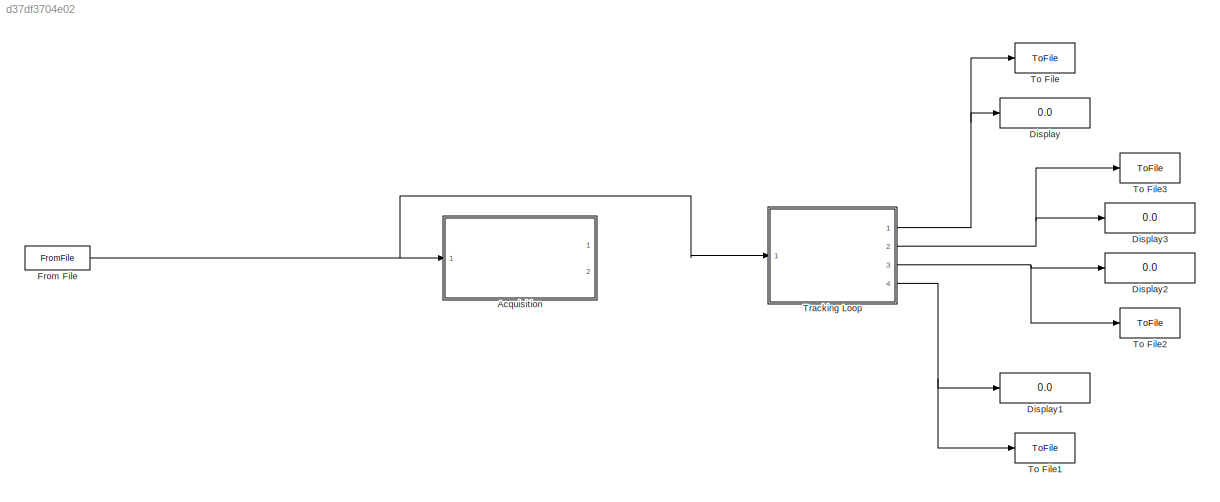
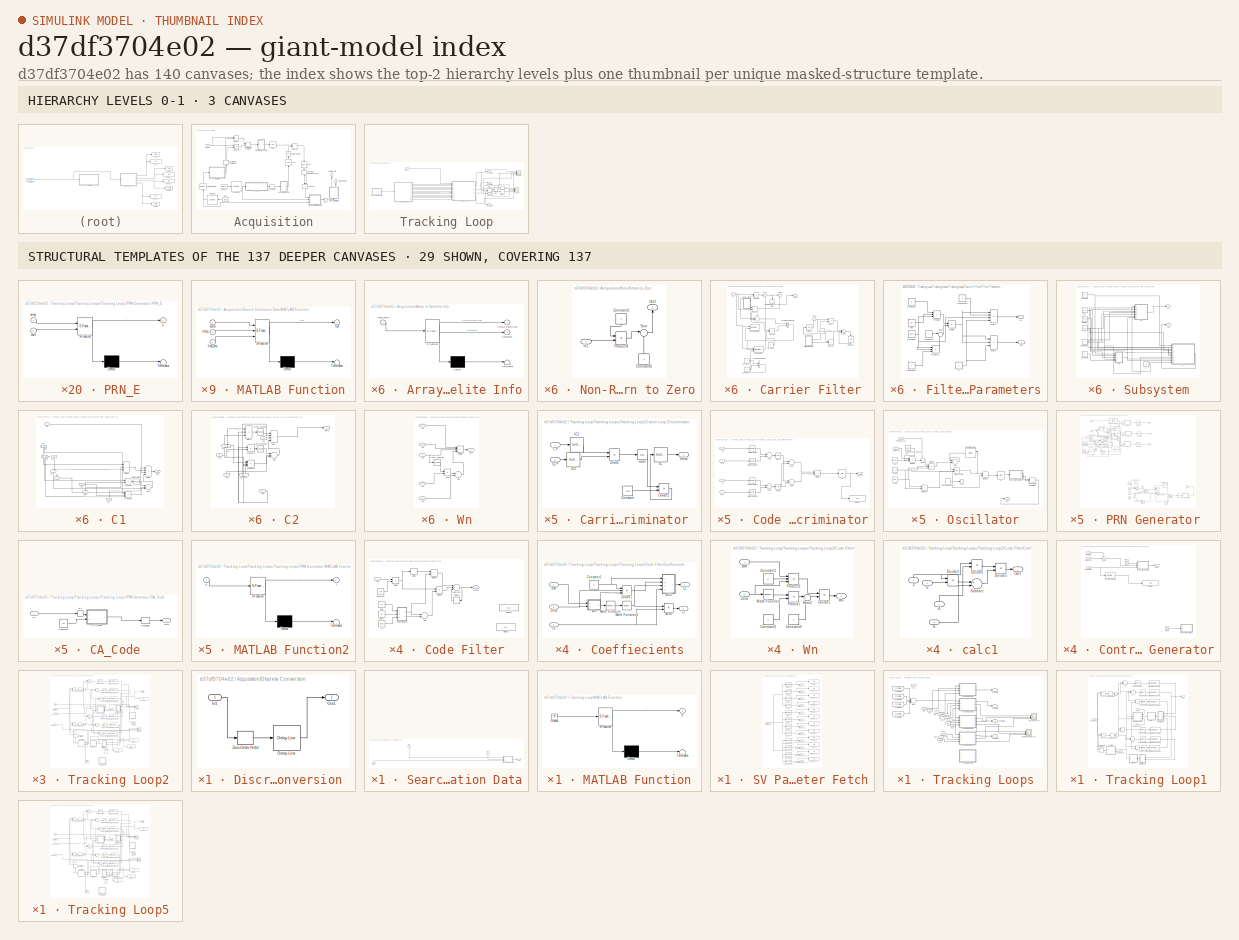
[diagram: thumbnail index - top-2 hierarchy levels (3 canvases) + 29 structural-template representatives of the remaining 137 canvases]
MODEL slx_d37df3704e02
KIND model
CONFIG AbsTol = auto
CONFIG EnableMultiTasking = off
CONFIG FixedStep = auto
CONFIG MaxStep = auto
CONFIG MinStep = auto
CONFIG RelTol = 1e-3
CONFIG SampleTimeConstraint = Unconstrained
CONFIG Solver = VariableStepAuto
CONFIG SolverName = VariableStepAuto
CONFIG StartTime = 0.0
CONFIG StopTime = 0.5
BLOCK [SubSystem] Acquisition
  Commented = on
  Ports = [1, 2]
  RequestExecContextInheritance = off
  Variant = off
BLOCK [Outport] Acquisition/ACQ Complete
  IconDisplay = Port number
  Port = 2
BLOCK [Outport] Acquisition/ACQ Results
  IconDisplay = Port number
BLOCK [SubSystem] Acquisition/Array of Sattelite Info
  ErrorFcn = Stateflow.Translate.translate
  PermitHierarchicalResolution = ExplicitOnly
  Ports = [1, 2]
  RequestExecContextInheritance = off
  SFBlockType = MATLAB Function
  SystemSampleTime = 0.021
  TreatAsAtomicUnit = on
  Variant = off
BLOCK [Demux] Acquisition/Array of Sattelite Info/ Demux 
  Outputs = 1
  Ports = [1, 1]
BLOCK [S-Function] Acquisition/Array of Sattelite Info/ SFunction 
  EnableBusSupport = on
  FunctionName = sf_sfun
  PortCounts = [1 3]
  Ports = [1, 3]
  SFcnIsStateOwnerBlock = off
  SFunctionDeploymentMode = off
  Tag = Stateflow S-Function Acquisition_from_autosave 1
BLOCK [Terminator] Acquisition/Array of Sattelite Info/ Terminator 
BLOCK [Outport] Acquisition/Array of Sattelite Info/Complete
  IconDisplay = Port number
  Port = 2
BLOCK [Outport] Acquisition/Array of Sattelite Info/Visible_Satellites
  IconDisplay = Port number
BLOCK [Inport] Acquisition/Array of Sattelite Info/input_vector
  IconDisplay = Port number
BLOCK [Reference] Acquisition/CA Number  REF=dspswit3/Counter
  Ports = [1, 1]
  SourceBlock = dspswit3/Counter
  SourceProductBaseCode = DS
  SourceProductName = DSP System Toolbox
  SourceType = Counter
BLOCK [ModelReference] Acquisition/CAcode
  ModelNameDialog = CAcode.mdl
  ModelReferenceVersion = 1.53
  Ports = [1, 1]
  Variant = off
BLOCK [Reference] Acquisition/Clock  REF=simulink_extras/Flip Flops/Clock
  Ports = [0, 1]
  SourceBlock = simulink_extras/Flip Flops/Clock
  SourceProductBaseCode = SL
  SourceProductName = Simulink
  SourceType = Digital clock
BLOCK [Reference] Acquisition/Clock1  REF=simulink_extras/Flip Flops/Clock
  Ports = [0, 1]
  SourceBlock = simulink_extras/Flip Flops/Clock
  SourceProductBaseCode = SL
  SourceProductName = Simulink
  SourceType = Digital clock
BLOCK [ComplexToMagnitudeAngle] Acquisition/Complex to Magnitude-Angle
  Output = Magnitude
  Ports = [1, 1]
BLOCK [ComplexToRealImag] Acquisition/Complex to Real-Imag1
  Ports = [1, 2]
BLOCK [SubSystem] Acquisition/Discrete Conversion 
  Ports = [1, 1]
  RequestExecContextInheritance = off
  Variant = off
BLOCK [Reference] Acquisition/Discrete Conversion /Delay Line  REF=dspbuff3/Delay Line
  Ports = [1, 1]
  SourceBlock = dspbuff3/Delay Line
  SourceProductBaseCode = DS
  SourceProductName = DSP System Toolbox
  SourceType = Delay Line
  UserDataPersistent = on
BLOCK [Inport] Acquisition/Discrete Conversion /In1
  IconDisplay = Port number
BLOCK [Outport] Acquisition/Discrete Conversion /Out1
  IconDisplay = Port number
  SampleTime = 0.001
BLOCK [ZeroOrderHold] Acquisition/Discrete Conversion /Zero-Order Hold
  SampleTime = 3.05175781e-8
BLOCK [Reference] Acquisition/FFT  REF=dspxfrm3/FFT
  Ports = [1, 1]
  SourceBlock = dspxfrm3/FFT
  SourceProductBaseCode = DS
  SourceProductName = DSP System Toolbox
  SourceType = FFT
BLOCK [Reference] Acquisition/FFT1  REF=dspxfrm3/FFT
  Ports = [1, 1]
  SourceBlock = dspxfrm3/FFT
  SourceProductBaseCode = DS
  SourceProductName = DSP System Toolbox
  SourceType = FFT
BLOCK [Reference] Acquisition/Freq Step  REF=dspswit3/Counter
  Ports = [1, 1]
  SourceBlock = dspswit3/Counter
  SourceProductBaseCode = DS
  SourceProductName = DSP System Toolbox
  SourceType = Counter
BLOCK [Reference] Acquisition/IFFT  REF=dspxfrm3/IFFT
  Ports = [1, 1]
  SourceBlock = dspxfrm3/IFFT
  SourceProductBaseCode = DS
  SourceProductName = DSP System Toolbox
  SourceType = IFFT
BLOCK [Math] Acquisition/Math Function
  Operator = conj
  Ports = [1, 1]
BLOCK [SubSystem] Acquisition/Non-Return to Zero
  Ports = [1, 1]
  RequestExecContextInheritance = off
  Variant = off
BLOCK [Constant] Acquisition/Non-Return to Zero/Constant2
  Value = 2
BLOCK [Constant] Acquisition/Non-Return to Zero/Constant6
  Value = -1
BLOCK [Inport] Acquisition/Non-Return to Zero/In1
  IconDisplay = Port number
BLOCK [Outport] Acquisition/Non-Return to Zero/Out1
  IconDisplay = Port number
BLOCK [Product] Acquisition/Non-Return to Zero/Product4
  InputSameDT = off
  OutDataTypeStr = Inherit: Inherit via internal rule
  Ports = [2, 1]
  RndMeth = Floor
  SaturateOnIntegerOverflow = off
BLOCK [Sum] Acquisition/Non-Return to Zero/Sum
  IconShape = round
  InputSameDT = off
  Inputs = |++
  OutDataTypeStr = Inherit: Inherit via internal rule
  Ports = [2, 1]
  SaturateOnIntegerOverflow = off
BLOCK [ModelReference] Acquisition/Oscillator
  ModelNameDialog = Local_Oscillator.slx
  ModelReferenceVersion = 1.39
  Ports = [1, 1]
  Variant = off
BLOCK [Product] Acquisition/Product
  InputSameDT = off
  OutDataTypeStr = Inherit: Inherit via internal rule
  Ports = [2, 1]
  RndMeth = Floor
  SaturateOnIntegerOverflow = off
BLOCK [Product] Acquisition/Product1
  InputSameDT = off
  OutDataTypeStr = Inherit: Inherit via internal rule
  Ports = [2, 1]
  RndMeth = Floor
  SaturateOnIntegerOverflow = off
BLOCK [Product] Acquisition/Product2
  InputSameDT = off
  OutDataTypeStr = Inherit: Inherit via internal rule
  Ports = [2, 1]
  RndMeth = Floor
  SaturateOnIntegerOverflow = off
BLOCK [Product] Acquisition/Product3
  InputSameDT = off
  OutDataTypeStr = Inherit: Inherit via internal rule
  Ports = [2, 1]
  RndMeth = Floor
  SaturateOnIntegerOverflow = off
BLOCK [RateTransition] Acquisition/RT
  OutPortSampleTime = 0.021
BLOCK [RateTransition] Acquisition/Rate Transition
BLOCK [RealImagToComplex] Acquisition/Real-Imag to Complex
  Ports = [2, 1]
BLOCK [Reshape] Acquisition/Reshape
  OutputDimensionality = Column vector (2-D)
  Ports = [1, 1]
BLOCK [SubSystem] Acquisition/Search Correlation Data
  Ports = [3, 1]
  RequestExecContextInheritance = off
  Variant = off
BLOCK [Inport] Acquisition/Search Correlation Data/In1
  IconDisplay = Port number
  PortDimensions = [32768 1]
  SampleTime = 0.001
  VarSizeSig = No
BLOCK [Inport] Acquisition/Search Correlation Data/In2
  IconDisplay = Port number
  Port = 2
  SampleTime = 0.001
  VarSizeSig = No
BLOCK [Inport] Acquisition/Search Correlation Data/In3
  IconDisplay = Port number
  Port = 3
  SampleTime = 0.001
  VarSizeSig = No
BLOCK [SubSystem] Acquisition/Search Correlation Data/MATLAB Function
  ErrorFcn = Stateflow.Translate.translate
  PermitHierarchicalResolution = ExplicitOnly
  Ports = [3, 1]
  RequestExecContextInheritance = off
  SFBlockType = MATLAB Function
  SystemSampleTime = 0.001
  TreatAsAtomicUnit = on
  Variant = off
BLOCK [Demux] Acquisition/Search Correlation Data/MATLAB Function/ Demux 
  Outputs = 1
  Ports = [1, 1]
BLOCK [S-Function] Acquisition/Search Correlation Data/MATLAB Function/ SFunction 
  EnableBusSupport = on
  FunctionName = sf_sfun
  PortCounts = [3 2]
  Ports = [3, 2]
  SFcnIsStateOwnerBlock = off
  SFunctionDeploymentMode = off
  Tag = Stateflow S-Function Acquisition_from_autosave 2
BLOCK [Terminator] Acquisition/Search Correlation Data/MATLAB Function/ Terminator 
BLOCK [Inport] Acquisition/Search Correlation Data/MATLAB Function/PRN
  IconDisplay = Port number
  Port = 2
BLOCK [Outport] Acquisition/Search Correlation Data/MATLAB Function/Sat
  IconDisplay = Port number
BLOCK [Inport] Acquisition/Search Correlation Data/MATLAB Function/freq_step
  IconDisplay = Port number
  Port = 3
BLOCK [Inport] Acquisition/Search Correlation Data/MATLAB Function/vector
  IconDisplay = Port number
BLOCK [Outport] Acquisition/Search Correlation Data/Out1
  IconDisplay = Port number
  VarSizeSig = No
BLOCK [Inport] Acquisition/Signal
  IconDisplay = Port number
BLOCK [Display] Display
  Decimation = 1
  Ports = [1]
BLOCK [Display] Display1
  Decimation = 1
  Ports = [1]
BLOCK [Display] Display2
  Decimation = 1
  Ports = [1]
BLOCK [Display] Display3
  Decimation = 1
  Ports = [1]
BLOCK [FromFile] From File
  FileName = Tracking_Test_3sig.mat
  SampleTime = 0
BLOCK [ToFile] To File
  Commented = on
  Filename = SV1_Data
  MatrixName = SV1
  Ports = [1]
  SampleTime = 0.01
BLOCK [ToFile] To File1
  Commented = on
  Filename = SV4_Data
  MatrixName = SV4
  Ports = [1]
  SampleTime = 0.01
BLOCK [ToFile] To File2
  Commented = on
  Filename = SV3_Data
  MatrixName = SV3
  Ports = [1]
  SampleTime = 0.01
BLOCK [ToFile] To File3
  Commented = on
  Filename = SV2_Data
  MatrixName = SV2
  Ports = [1]
  SampleTime = 0.01
BLOCK [SubSystem] Tracking Loop
  MinAlgLoopOccurrences = on
  Ports = [1, 4]
  RequestExecContextInheritance = off
  Variant = off
BLOCK [SubSystem] Tracking Loop/MATLAB Function
  ErrorFcn = Stateflow.Translate.translate
  PermitHierarchicalResolution = ExplicitOnly
  Ports = [0, 1]
  RequestExecContextInheritance = off
  SFBlockType = MATLAB Function
  TreatAsAtomicUnit = on
  Variant = off
BLOCK [Demux] Tracking Loop/MATLAB Function/ Demux 
  Outputs = 1
  Ports = [1, 1]
BLOCK [Ground] Tracking Loop/MATLAB Function/ Ground 
BLOCK [S-Function] Tracking Loop/MATLAB Function/ SFunction 
  EnableBusSupport = on
  FunctionName = sf_sfun
  PortCounts = [1 2]
  Ports = [1, 2]
  SFcnIsStateOwnerBlock = off
  SFunctionDeploymentMode = off
  Tag = Stateflow S-Function Acquisition_from_autosave 22
BLOCK [Terminator] Tracking Loop/MATLAB Function/ Terminator 
BLOCK [Outport] Tracking Loop/MATLAB Function/y
  IconDisplay = Port number
BLOCK [SubSystem] Tracking Loop/SV Parameter Fetch
  Ports = [1, 12]
  RequestExecContextInheritance = off
  Variant = off
BLOCK [Inport] Tracking Loop/SV Parameter Fetch/ACQ results
  IconDisplay = Port number
BLOCK [Reference] Tracking Loop/SV Parameter Fetch/CodePhase_1  REF=dspmtrx3/Submatrix
  Ports = [1, 1]
  SourceBlock = dspmtrx3/Submatrix
  SourceProductBaseCode = DS
  SourceProductName = DSP System Toolbox
  SourceType = Submatrix
BLOCK [Reference] Tracking Loop/SV Parameter Fetch/CodePhase_2  REF=dspmtrx3/Submatrix
  Ports = [1, 1]
  SourceBlock = dspmtrx3/Submatrix
  SourceProductBaseCode = DS
  SourceProductName = DSP System Toolbox
  SourceType = Submatrix
BLOCK [Reference] Tracking Loop/SV Parameter Fetch/CodePhase_3  REF=dspmtrx3/Submatrix
  Ports = [1, 1]
  SourceBlock = dspmtrx3/Submatrix
  SourceProductBaseCode = DS
  SourceProductName = DSP System Toolbox
  SourceType = Submatrix
BLOCK [Reference] Tracking Loop/SV Parameter Fetch/CodePhase_4  REF=dspmtrx3/Submatrix
  Ports = [1, 1]
  SourceBlock = dspmtrx3/Submatrix
  SourceProductBaseCode = DS
  SourceProductName = DSP System Toolbox
  SourceType = Submatrix
BLOCK [Outport] Tracking Loop/SV Parameter Fetch/CodePhase_SV_1
  IconDisplay = Port number
  Port = 3
BLOCK [Outport] Tracking Loop/SV Parameter Fetch/CodePhase_SV_2
  IconDisplay = Port number
  Port = 6
BLOCK [Outport] Tracking Loop/SV Parameter Fetch/CodePhase_SV_3
  IconDisplay = Port number
  Port = 9
BLOCK [Outport] Tracking Loop/SV Parameter Fetch/CodePhase_SV_4
  IconDisplay = Port number
  Port = 12
BLOCK [Display] Tracking Loop/SV Parameter Fetch/Display
  Decimation = 1
  Ports = [1]
BLOCK [Display] Tracking Loop/SV Parameter Fetch/Display1
  Decimation = 1
  Ports = [1]
BLOCK [Display] Tracking Loop/SV Parameter Fetch/Display10
  Decimation = 1
  Ports = [1]
BLOCK [Display] Tracking Loop/SV Parameter Fetch/Display11
  Decimation = 1
  Ports = [1]
BLOCK [Display] Tracking Loop/SV Parameter Fetch/Display2
  Decimation = 1
  Ports = [1]
BLOCK [Display] Tracking Loop/SV Parameter Fetch/Display3
  Decimation = 1
  Ports = [1]
BLOCK [Display] Tracking Loop/SV Parameter Fetch/Display4
  Decimation = 1
  Ports = [1]
BLOCK [Display] Tracking Loop/SV Parameter Fetch/Display5
  Decimation = 1
  Ports = [1]
BLOCK [Display] Tracking Loop/SV Parameter Fetch/Display6
  Decimation = 1
  Ports = [1]
BLOCK [Display] Tracking Loop/SV Parameter Fetch/Display7
  Decimation = 1
  Ports = [1]
BLOCK [Display] Tracking Loop/SV Parameter Fetch/Display8
  Decimation = 1
  Ports = [1]
BLOCK [Display] Tracking Loop/SV Parameter Fetch/Display9
  Decimation = 1
  Ports = [1]
BLOCK [Reference] Tracking Loop/SV Parameter Fetch/Freq_1  REF=dspmtrx3/Submatrix
  Ports = [1, 1]
  SourceBlock = dspmtrx3/Submatrix
  SourceProductBaseCode = DS
  SourceProductName = DSP System Toolbox
  SourceType = Submatrix
BLOCK [Reference] Tracking Loop/SV Parameter Fetch/Freq_2  REF=dspmtrx3/Submatrix
  Ports = [1, 1]
  SourceBlock = dspmtrx3/Submatrix
  SourceProductBaseCode = DS
  SourceProductName = DSP System Toolbox
  SourceType = Submatrix
BLOCK [Reference] Tracking Loop/SV Parameter Fetch/Freq_3  REF=dspmtrx3/Submatrix
  Ports = [1, 1]
  SourceBlock = dspmtrx3/Submatrix
  SourceProductBaseCode = DS
  SourceProductName = DSP System Toolbox
  SourceType = Submatrix
BLOCK [Reference] Tracking Loop/SV Parameter Fetch/Freq_4  REF=dspmtrx3/Submatrix
  Ports = [1, 1]
  SourceBlock = dspmtrx3/Submatrix
  SourceProductBaseCode = DS
  SourceProductName = DSP System Toolbox
  SourceType = Submatrix
BLOCK [Outport] Tracking Loop/SV Parameter Fetch/Freq_SV_1
  IconDisplay = Port number
  Port = 2
BLOCK [Outport] Tracking Loop/SV Parameter Fetch/Freq_SV_2
  IconDisplay = Port number
  Port = 5
BLOCK [Outport] Tracking Loop/SV Parameter Fetch/Freq_SV_3
  IconDisplay = Port number
  Port = 8
BLOCK [Outport] Tracking Loop/SV Parameter Fetch/Freq_SV_4
  IconDisplay = Port number
  Port = 11
BLOCK [Reference] Tracking Loop/SV Parameter Fetch/PRN_1  REF=dspmtrx3/Submatrix
  Ports = [1, 1]
  SourceBlock = dspmtrx3/Submatrix
  SourceProductBaseCode = DS
  SourceProductName = DSP System Toolbox
  SourceType = Submatrix
BLOCK [Reference] Tracking Loop/SV Parameter Fetch/PRN_2  REF=dspmtrx3/Submatrix
  Ports = [1, 1]
  SourceBlock = dspmtrx3/Submatrix
  SourceProductBaseCode = DS
  SourceProductName = DSP System Toolbox
  SourceType = Submatrix
BLOCK [Reference] Tracking Loop/SV Parameter Fetch/PRN_3  REF=dspmtrx3/Submatrix
  Ports = [1, 1]
  SourceBlock = dspmtrx3/Submatrix
  SourceProductBaseCode = DS
  SourceProductName = DSP System Toolbox
  SourceType = Submatrix
BLOCK [Reference] Tracking Loop/SV Parameter Fetch/PRN_4  REF=dspmtrx3/Submatrix
  Ports = [1, 1]
  SourceBlock = dspmtrx3/Submatrix
  SourceProductBaseCode = DS
  SourceProductName = DSP System Toolbox
  SourceType = Submatrix
BLOCK [Outport] Tracking Loop/SV Parameter Fetch/PRN_SV_1
  IconDisplay = Port number
BLOCK [Outport] Tracking Loop/SV Parameter Fetch/PRN_SV_2
  IconDisplay = Port number
  Port = 4
BLOCK [Outport] Tracking Loop/SV Parameter Fetch/PRN_SV_3
  IconDisplay = Port number
  Port = 7
BLOCK [Outport] Tracking Loop/SV Parameter Fetch/PRN_SV_4
  IconDisplay = Port number
  Port = 10
BLOCK [Outport] Tracking Loop/SV1 Data
  IconDisplay = Port number
BLOCK [Outport] Tracking Loop/SV2 Data
  IconDisplay = Port number
  Port = 2
BLOCK [Outport] Tracking Loop/SV3 Data
  IconDisplay = Port number
  Port = 3
BLOCK [Outport] Tracking Loop/SV4 Data
  IconDisplay = Port number
  Port = 4
BLOCK [Scope] Tracking Loop/Scope
  NumInputPorts = 4
  Ports = [4]
  ScopeSpecificationString = Simulink.scopes.TimeScopeBlockCfg('CurrentConfiguration', extmgr.ConfigurationSet(extmgr.Configuration('Core','General UI',true),extmgr.Configuration('Core','Source UI',true),extmgr.Configuration('Sources','WiredSimulink',true,'DataLoggingVariableName','ScopeData1'),extmgr.Configuration('Visuals','Time Domain',true,'SerializedDisplays',{struct('MinYLimReal','-1.25','MaxYLimReal','1.25','YLabelReal...<+1465ch>
BLOCK [Scope] Tracking Loop/Scope1
  NumInputPorts = 4
  Ports = [4]
  ScopeSpecificationString = Simulink.scopes.TimeScopeBlockCfg('CurrentConfiguration', extmgr.ConfigurationSet(extmgr.Configuration('Core','General UI',true),extmgr.Configuration('Core','Source UI',true),extmgr.Configuration('Sources','WiredSimulink',true,'DataLoggingVariableName','ScopeData1'),extmgr.Configuration('Visuals','Time Domain',true,'SerializedDisplays',{struct('MinYLimReal','-19296.02601','MaxYLimReal','20356.0872...<+1559ch>
BLOCK [Signum] Tracking Loop/Sign
BLOCK [Signum] Tracking Loop/Sign1
BLOCK [Signum] Tracking Loop/Sign2
BLOCK [Signum] Tracking Loop/Sign3
BLOCK [Inport] Tracking Loop/Signal
  IconDisplay = Port number
BLOCK [SubSystem] Tracking Loop/Tracking Loops
  Ports = [13, 4]
  RequestExecContextInheritance = off
  Variant = off
BLOCK [Scope] Tracking Loop/Tracking Loops/Carrier Error
  NumInputPorts = 4
  Ports = [4]
  ScopeSpecificationString = Simulink.scopes.TimeScopeBlockCfg('CurrentConfiguration', extmgr.ConfigurationSet(extmgr.Configuration('Core','General UI',true),extmgr.Configuration('Core','Source UI',true),extmgr.Configuration('Sources','WiredSimulink',true,'DataLoggingVariableName','ScopeData3'),extmgr.Configuration('Visuals','Time Domain',true,'SerializedDisplays',{struct('MinYLimReal','-0.04757','MaxYLimReal','0.02603','YLab...<+1527ch>
BLOCK [Scope] Tracking Loop/Tracking Loops/Code Phase Error
  NumInputPorts = 4
  Ports = [4]
  ScopeSpecificationString = Simulink.scopes.TimeScopeBlockCfg('CurrentConfiguration', extmgr.ConfigurationSet(extmgr.Configuration('Core','General UI',true),extmgr.Configuration('Core','Source UI',true),extmgr.Configuration('Sources','WiredSimulink',true,'DataLoggingVariableName','ScopeData1'),extmgr.Configuration('Visuals','Time Domain',true,'SerializedDisplays',{struct('MinYLimReal','-0.20593','MaxYLimReal','0.23477','YLab...<+1527ch>
BLOCK [FromFile] Tracking Loop/Tracking Loops/From File
  FileName = Tracking_Test_3sig_1.mat
  SampleTime = 0
BLOCK [FromFile] Tracking Loop/Tracking Loops/From File1
  FileName = Tracking_Test_3sig_2.mat
  SampleTime = 0
BLOCK [FromFile] Tracking Loop/Tracking Loops/From File2
  FileName = Tracking_Test_3sig_3.mat
  SampleTime = 0
BLOCK [FromFile] Tracking Loop/Tracking Loops/From File3
  FileName = Tracking_Test_3sig_4.mat
  SampleTime = 0
BLOCK [Inport] Tracking Loop/Tracking Loops/In1
  IconDisplay = Port number
BLOCK [Inport] Tracking Loop/Tracking Loops/In10
  IconDisplay = Port number
  Port = 10
BLOCK [Inport] Tracking Loop/Tracking Loops/In11
  IconDisplay = Port number
  Port = 11
BLOCK [Inport] Tracking Loop/Tracking Loops/In12
  IconDisplay = Port number
  Port = 12
BLOCK [Inport] Tracking Loop/Tracking Loops/In13
  IconDisplay = Port number
  Port = 13
BLOCK [Inport] Tracking Loop/Tracking Loops/In2
  IconDisplay = Port number
  Port = 2
BLOCK [Inport] Tracking Loop/Tracking Loops/In3
  IconDisplay = Port number
  Port = 3
BLOCK [Inport] Tracking Loop/Tracking Loops/In4
  IconDisplay = Port number
  Port = 4
BLOCK [Inport] Tracking Loop/Tracking Loops/In5
  IconDisplay = Port number
  Port = 5
BLOCK [Inport] Tracking Loop/Tracking Loops/In6
  IconDisplay = Port number
  Port = 6
BLOCK [Inport] Tracking Loop/Tracking Loops/In7
  IconDisplay = Port number
  Port = 7
BLOCK [Inport] Tracking Loop/Tracking Loops/In8
  IconDisplay = Port number
  Port = 8
BLOCK [Inport] Tracking Loop/Tracking Loops/In9
  IconDisplay = Port number
  Port = 9
BLOCK [Outport] Tracking Loop/Tracking Loops/SV1 Data
  IconDisplay = Port number
BLOCK [Outport] Tracking Loop/Tracking Loops/SV2 Data
  IconDisplay = Port number
  Port = 2
BLOCK [Outport] Tracking Loop/Tracking Loops/SV3 Data
  IconDisplay = Port number
  Port = 3
BLOCK [Outport] Tracking Loop/Tracking Loops/SV4 Data
  IconDisplay = Port number
  Port = 4
BLOCK [Sum] Tracking Loop/Tracking Loops/Sum
  IconShape = round
  InputSameDT = off
  Inputs = |++++|
  OutDataTypeStr = Inherit: Inherit via internal rule
  Ports = [4, 1]
  SaturateOnIntegerOverflow = off
BLOCK [SubSystem] Tracking Loop/Tracking Loops/Tracking Loop1
  Commented = on
  MinAlgLoopOccurrences = on
  Ports = [4, 1]
  RequestExecContextInheritance = off
  TreatAsAtomicUnit = on
  Variant = off
BLOCK [SubSystem] Tracking Loop/Tracking Loops/Tracking Loop1/Carrier Filter
  Ports = [1, 1]
  RequestExecContextInheritance = off
  Variant = off
BLOCK [Sum] Tracking Loop/Tracking Loops/Tracking Loop1/Carrier Filter/Add
  InputSameDT = off
  OutDataTypeStr = Inherit: Inherit via internal rule
  Ports = [2, 1]
  SaturateOnIntegerOverflow = off
BLOCK [Constant] Tracking Loop/Tracking Loops/Tracking Loop1/Carrier Filter/Constant
  Value = 0.001
BLOCK [Constant] Tracking Loop/Tracking Loops/Tracking Loop1/Carrier Filter/Constant1
  Value = -1
BLOCK [Constant] Tracking Loop/Tracking Loops/Tracking Loop1/Carrier Filter/Constant2
BLOCK [Constant] Tracking Loop/Tracking Loops/Tracking Loop1/Carrier Filter/Constant3
  Value = -1
BLOCK [Delay] Tracking Loop/Tracking Loops/Tracking Loop1/Carrier Filter/Delay
  DelayLength = 1
  InitialCondition = 0
  InputPortMap = u0
  Ports = [1, 1]
  SampleTime = 0.001
BLOCK [DiscreteFir] Tracking Loop/Tracking Loops/Tracking Loop1/Carrier Filter/Discrete FIR Filter
  CoefSource = Input port
  Coefficients = [2 1]
  InputPortMap = u0,u1
  OutputPortMap = o0
  Ports = [2, 1]
  SampleTime = 0.001
BLOCK [DiscreteFilter] Tracking Loop/Tracking Loops/Tracking Loop1/Carrier Filter/Discrete Filter
  DenominatorSource = Input port
  InputPortMap = u0,p1,p3
  NumeratorSource = Input port
  Ports = [3, 1]
  SampleTime = 0.001
  a0EqualsOne = on
BLOCK [SubSystem] Tracking Loop/Tracking Loops/Tracking Loop1/Carrier Filter/Filter Parameters
  Ports = [0, 2]
  RequestExecContextInheritance = off
  Variant = off
BLOCK [Constant] Tracking Loop/Tracking Loops/Tracking Loop1/Carrier Filter/Filter Parameters/BW
  Value = 25
BLOCK [Constant] Tracking Loop/Tracking Loops/Tracking Loop1/Carrier Filter/Filter Parameters/Constant
  Value = 8
BLOCK [Constant] Tracking Loop/Tracking Loops/Tracking Loop1/Carrier Filter/Filter Parameters/Constant1
  Value = 4
BLOCK [Constant] Tracking Loop/Tracking Loops/Tracking Loop1/Carrier Filter/Filter Parameters/Constant2
BLOCK [Constant] Tracking Loop/Tracking Loops/Tracking Loop1/Carrier Filter/Filter Parameters/Constant3
  Value = 2
BLOCK [Constant] Tracking Loop/Tracking Loops/Tracking Loop1/Carrier Filter/Filter Parameters/Damping
  Value = 0.707
BLOCK [Product] Tracking Loop/Tracking Loops/Tracking Loop1/Carrier Filter/Filter Parameters/Divide
  InputSameDT = off
  Inputs = */
  OutDataTypeStr = Inherit: Inherit via internal rule
  Ports = [2, 1]
  RndMeth = Floor
  SaturateOnIntegerOverflow = off
BLOCK [Product] Tracking Loop/Tracking Loops/Tracking Loop1/Carrier Filter/Filter Parameters/Gain 1
  InputSameDT = off
  Inputs = ***/
  OutDataTypeStr = Inherit: Inherit via internal rule
  Ports = [4, 1]
  RndMeth = Floor
  SaturateOnIntegerOverflow = off
BLOCK [Product] Tracking Loop/Tracking Loops/Tracking Loop1/Carrier Filter/Filter Parameters/Gain 2
  InputSameDT = off
  Inputs = **/
  OutDataTypeStr = Inherit: Inherit via internal rule
  Ports = [3, 1]
  RndMeth = Floor
  SaturateOnIntegerOverflow = off
BLOCK [Constant] Tracking Loop/Tracking Loops/Tracking Loop1/Carrier Filter/Filter Parameters/K
BLOCK [Outport] Tracking Loop/Tracking Loops/Tracking Loop1/Carrier Filter/Filter Parameters/K1
  IconDisplay = Port number
BLOCK [Outport] Tracking Loop/Tracking Loops/Tracking Loop1/Carrier Filter/Filter Parameters/K2
  IconDisplay = Port number
  Port = 2
BLOCK [Product] Tracking Loop/Tracking Loops/Tracking Loop1/Carrier Filter/Filter Parameters/Product
  InputSameDT = off
  Inputs = 3
  OutDataTypeStr = Inherit: Inherit via internal rule
  Ports = [3, 1]
  RndMeth = Floor
  SaturateOnIntegerOverflow = off
BLOCK [Product] Tracking Loop/Tracking Loops/Tracking Loop1/Carrier Filter/Filter Parameters/Product1
  InputSameDT = off
  Inputs = 3
  OutDataTypeStr = Inherit: Inherit via internal rule
  Ports = [3, 1]
  RndMeth = Floor
  SaturateOnIntegerOverflow = off
BLOCK [Sum] Tracking Loop/Tracking Loops/Tracking Loop1/Carrier Filter/Filter Parameters/Sum
  IconShape = round
  InputSameDT = off
  Inputs = |++
  OutDataTypeStr = Inherit: Inherit via internal rule
  Ports = [2, 1]
  SaturateOnIntegerOverflow = off
BLOCK [Inport] Tracking Loop/Tracking Loops/Tracking Loop1/Carrier Filter/In2
  IconDisplay = Port number
BLOCK [Outport] Tracking Loop/Tracking Loops/Tracking Loop1/Carrier Filter/Out1
  IconDisplay = Port number
BLOCK [Product] Tracking Loop/Tracking Loops/Tracking Loop1/Carrier Filter/Product
  InputSameDT = off
  OutDataTypeStr = Inherit: Inherit via internal rule
  Ports = [2, 1]
  RndMeth = Floor
  SaturateOnIntegerOverflow = off
BLOCK [Product] Tracking Loop/Tracking Loops/Tracking Loop1/Carrier Filter/Product1
  InputSameDT = off
  Inputs = 3
  OutDataTypeStr = Inherit: Inherit via internal rule
  Ports = [3, 1]
  RndMeth = Floor
  SaturateOnIntegerOverflow = off
BLOCK [Product] Tracking Loop/Tracking Loops/Tracking Loop1/Carrier Filter/Product2
  InputSameDT = off
  OutDataTypeStr = Inherit: Inherit via internal rule
  Ports = [2, 1]
  RndMeth = Floor
  SaturateOnIntegerOverflow = off
BLOCK [Product] Tracking Loop/Tracking Loops/Tracking Loop1/Carrier Filter/Product3
  InputSameDT = off
  OutDataTypeStr = Inherit: Inherit via internal rule
  Ports = [2, 1]
  RndMeth = Floor
  SaturateOnIntegerOverflow = off
BLOCK [Product] Tracking Loop/Tracking Loops/Tracking Loop1/Carrier Filter/Product4
  InputSameDT = off
  OutDataTypeStr = Inherit: Inherit via internal rule
  Ports = [2, 1]
  RndMeth = Floor
  SaturateOnIntegerOverflow = off
BLOCK [SubSystem] Tracking Loop/Tracking Loops/Tracking Loop1/Carrier Filter/Subsystem
  Ports = [0, 2]
  RequestExecContextInheritance = off
  Variant = off
BLOCK [Constant] Tracking Loop/Tracking Loops/Tracking Loop1/Carrier Filter/Subsystem/BW
  Value = 30
BLOCK [SubSystem] Tracking Loop/Tracking Loops/Tracking Loop1/Carrier Filter/Subsystem/C1
  Ports = [11, 1]
  RequestExecContextInheritance = off
  Variant = off
BLOCK [Sum] Tracking Loop/Tracking Loops/Tracking Loop1/Carrier Filter/Subsystem/C1/Add1
  InputSameDT = off
  Inputs = +++
  OutDataTypeStr = Inherit: Inherit via internal rule
  Ports = [3, 1]
  SaturateOnIntegerOverflow = off
BLOCK [Product] Tracking Loop/Tracking Loops/Tracking Loop1/Carrier Filter/Subsystem/C1/Gain 3
  InputSameDT = off
  Inputs = ***/
  OutDataTypeStr = Inherit: Inherit via internal rule
  Ports = [4, 1]
  RndMeth = Floor
  SaturateOnIntegerOverflow = off
BLOCK [Product] Tracking Loop/Tracking Loops/Tracking Loop1/Carrier Filter/Subsystem/C1/Gain 4
  InputSameDT = off
  Inputs = ***
  OutDataTypeStr = Inherit: Inherit via internal rule
  Ports = [3, 1]
  RndMeth = Floor
  SaturateOnIntegerOverflow = off
BLOCK [Inport] Tracking Loop/Tracking Loops/Tracking Loop1/Carrier Filter/Subsystem/C1/In1
  IconDisplay = Port number
BLOCK [Inport] Tracking Loop/Tracking Loops/Tracking Loop1/Carrier Filter/Subsystem/C1/In10
  IconDisplay = Port number
  Port = 10
BLOCK [Inport] Tracking Loop/Tracking Loops/Tracking Loop1/Carrier Filter/Subsystem/C1/In11
  IconDisplay = Port number
  Port = 11
BLOCK [Inport] Tracking Loop/Tracking Loops/Tracking Loop1/Carrier Filter/Subsystem/C1/In2
  IconDisplay = Port number
  Port = 2
BLOCK [Inport] Tracking Loop/Tracking Loops/Tracking Loop1/Carrier Filter/Subsystem/C1/In3
  IconDisplay = Port number
  Port = 3
BLOCK [Inport] Tracking Loop/Tracking Loops/Tracking Loop1/Carrier Filter/Subsystem/C1/In4
  IconDisplay = Port number
  Port = 4
BLOCK [Inport] Tracking Loop/Tracking Loops/Tracking Loop1/Carrier Filter/Subsystem/C1/In5
  IconDisplay = Port number
  Port = 5
BLOCK [Inport] Tracking Loop/Tracking Loops/Tracking Loop1/Carrier Filter/Subsystem/C1/In6
  IconDisplay = Port number
  Port = 6
BLOCK [Inport] Tracking Loop/Tracking Loops/Tracking Loop1/Carrier Filter/Subsystem/C1/In7
  IconDisplay = Port number
  Port = 7
BLOCK [Inport] Tracking Loop/Tracking Loops/Tracking Loop1/Carrier Filter/Subsystem/C1/In8
  IconDisplay = Port number
  Port = 8
BLOCK [Inport] Tracking Loop/Tracking Loops/Tracking Loop1/Carrier Filter/Subsystem/C1/In9
  IconDisplay = Port number
  Port = 9
BLOCK [Math] Tracking Loop/Tracking Loops/Tracking Loop1/Carrier Filter/Subsystem/C1/Math Function3
  Operator = square
  Ports = [1, 1]
BLOCK [Outport] Tracking Loop/Tracking Loops/Tracking Loop1/Carrier Filter/Subsystem/C1/Out1
  IconDisplay = Port number
BLOCK [Product] Tracking Loop/Tracking Loops/Tracking Loop1/Carrier Filter/Subsystem/C1/Product3
  InputSameDT = off
  OutDataTypeStr = Inherit: Inherit via internal rule
  Ports = [2, 1]
  RndMeth = Floor
  SaturateOnIntegerOverflow = off
BLOCK [Product] Tracking Loop/Tracking Loops/Tracking Loop1/Carrier Filter/Subsystem/C1/Product4
  InputSameDT = off
  Inputs = 4
  OutDataTypeStr = Inherit: Inherit via internal rule
  Ports = [4, 1]
  RndMeth = Floor
  SaturateOnIntegerOverflow = off
BLOCK [SubSystem] Tracking Loop/Tracking Loops/Tracking Loop1/Carrier Filter/Subsystem/C2
  Ports = [8, 1]
  RequestExecContextInheritance = off
  Variant = off
BLOCK [Sum] Tracking Loop/Tracking Loops/Tracking Loop1/Carrier Filter/Subsystem/C2/Add
  InputSameDT = off
  Inputs = +++
  OutDataTypeStr = Inherit: Inherit via internal rule
  Ports = [3, 1]
  SaturateOnIntegerOverflow = off
BLOCK [Product] Tracking Loop/Tracking Loops/Tracking Loop1/Carrier Filter/Subsystem/C2/Gain 1
  InputSameDT = off
  Inputs = ***/
  OutDataTypeStr = Inherit: Inherit via internal rule
  Ports = [4, 1]
  RndMeth = Floor
  SaturateOnIntegerOverflow = off
BLOCK [Product] Tracking Loop/Tracking Loops/Tracking Loop1/Carrier Filter/Subsystem/C2/Gain 2
  InputSameDT = off
  Inputs = ***
  OutDataTypeStr = Inherit: Inherit via internal rule
  Ports = [3, 1]
  RndMeth = Floor
  SaturateOnIntegerOverflow = off
BLOCK [Inport] Tracking Loop/Tracking Loops/Tracking Loop1/Carrier Filter/Subsystem/C2/In1
  IconDisplay = Port number
BLOCK [Inport] Tracking Loop/Tracking Loops/Tracking Loop1/Carrier Filter/Subsystem/C2/In2
  IconDisplay = Port number
  Port = 2
BLOCK [Inport] Tracking Loop/Tracking Loops/Tracking Loop1/Carrier Filter/Subsystem/C2/In3
  IconDisplay = Port number
  Port = 3
BLOCK [Inport] Tracking Loop/Tracking Loops/Tracking Loop1/Carrier Filter/Subsystem/C2/In4
  IconDisplay = Port number
  Port = 4
BLOCK [Inport] Tracking Loop/Tracking Loops/Tracking Loop1/Carrier Filter/Subsystem/C2/In5
  IconDisplay = Port number
  Port = 5
BLOCK [Inport] Tracking Loop/Tracking Loops/Tracking Loop1/Carrier Filter/Subsystem/C2/In6
  IconDisplay = Port number
  Port = 6
BLOCK [Inport] Tracking Loop/Tracking Loops/Tracking Loop1/Carrier Filter/Subsystem/C2/In7
  IconDisplay = Port number
  Port = 7
BLOCK [Inport] Tracking Loop/Tracking Loops/Tracking Loop1/Carrier Filter/Subsystem/C2/In8
  IconDisplay = Port number
  Port = 8
BLOCK [Math] Tracking Loop/Tracking Loops/Tracking Loop1/Carrier Filter/Subsystem/C2/Math Function
  Operator = square
  Ports = [1, 1]
BLOCK [Math] Tracking Loop/Tracking Loops/Tracking Loop1/Carrier Filter/Subsystem/C2/Math Function1
  Operator = square
  Ports = [1, 1]
BLOCK [Outport] Tracking Loop/Tracking Loops/Tracking Loop1/Carrier Filter/Subsystem/C2/Out1
  IconDisplay = Port number
BLOCK [Product] Tracking Loop/Tracking Loops/Tracking Loop1/Carrier Filter/Subsystem/C2/Product1
  InputSameDT = off
  OutDataTypeStr = Inherit: Inherit via internal rule
  Ports = [2, 1]
  RndMeth = Floor
  SaturateOnIntegerOverflow = off
BLOCK [Product] Tracking Loop/Tracking Loops/Tracking Loop1/Carrier Filter/Subsystem/C2/Product2
  InputSameDT = off
  Inputs = 4
  OutDataTypeStr = Inherit: Inherit via internal rule
  Ports = [4, 1]
  RndMeth = Floor
  SaturateOnIntegerOverflow = off
BLOCK [Constant] Tracking Loop/Tracking Loops/Tracking Loop1/Carrier Filter/Subsystem/Constant1
  Value = 8
BLOCK [Constant] Tracking Loop/Tracking Loops/Tracking Loop1/Carrier Filter/Subsystem/Constant2
  Value = 4
BLOCK [Constant] Tracking Loop/Tracking Loops/Tracking Loop1/Carrier Filter/Subsystem/Constant4
BLOCK [Constant] Tracking Loop/Tracking Loops/Tracking Loop1/Carrier Filter/Subsystem/Damping
  Value = 0.707
BLOCK [Constant] Tracking Loop/Tracking Loops/Tracking Loop1/Carrier Filter/Subsystem/K
  Value = 4
BLOCK [Outport] Tracking Loop/Tracking Loops/Tracking Loop1/Carrier Filter/Subsystem/K1
  IconDisplay = Port number
  Port = 2
BLOCK [Outport] Tracking Loop/Tracking Loops/Tracking Loop1/Carrier Filter/Subsystem/K2 
  IconDisplay = Port number
BLOCK [Constant] Tracking Loop/Tracking Loops/Tracking Loop1/Carrier Filter/Subsystem/T
  Value = 0.001
BLOCK [SubSystem] Tracking Loop/Tracking Loops/Tracking Loop1/Carrier Filter/Subsystem/Wn
  Ports = [5, 1]
  RequestExecContextInheritance = off
  Variant = off
BLOCK [Sum] Tracking Loop/Tracking Loops/Tracking Loop1/Carrier Filter/Subsystem/Wn/Add
  InputSameDT = off
  OutDataTypeStr = Inherit: Inherit via internal rule
  Ports = [2, 1]
  SaturateOnIntegerOverflow = off
BLOCK [Product] Tracking Loop/Tracking Loops/Tracking Loop1/Carrier Filter/Subsystem/Wn/Divide1
  InputSameDT = off
  Inputs = ***/
  OutDataTypeStr = Inherit: Inherit via internal rule
  Ports = [4, 1]
  RndMeth = Floor
  SaturateOnIntegerOverflow = off
BLOCK [Inport] Tracking Loop/Tracking Loops/Tracking Loop1/Carrier Filter/Subsystem/Wn/In1
  IconDisplay = Port number
BLOCK [Inport] Tracking Loop/Tracking Loops/Tracking Loop1/Carrier Filter/Subsystem/Wn/In2
  IconDisplay = Port number
  Port = 2
BLOCK [Inport] Tracking Loop/Tracking Loops/Tracking Loop1/Carrier Filter/Subsystem/Wn/In3
  IconDisplay = Port number
  Port = 3
BLOCK [Inport] Tracking Loop/Tracking Loops/Tracking Loop1/Carrier Filter/Subsystem/Wn/In4
  IconDisplay = Port number
  Port = 4
BLOCK [Inport] Tracking Loop/Tracking Loops/Tracking Loop1/Carrier Filter/Subsystem/Wn/In5
  IconDisplay = Port number
  Port = 5
BLOCK [Math] Tracking Loop/Tracking Loops/Tracking Loop1/Carrier Filter/Subsystem/Wn/Math Function
  Operator = square
  Ports = [1, 1]
BLOCK [Outport] Tracking Loop/Tracking Loops/Tracking Loop1/Carrier Filter/Subsystem/Wn/Out1
  IconDisplay = Port number
BLOCK [Product] Tracking Loop/Tracking Loops/Tracking Loop1/Carrier Filter/Subsystem/Wn/Wn1
  InputSameDT = off
  OutDataTypeStr = Inherit: Inherit via internal rule
  Ports = [2, 1]
  RndMeth = Floor
  SaturateOnIntegerOverflow = off
BLOCK [Sum] Tracking Loop/Tracking Loops/Tracking Loop1/Carrier Filter/Sum
  IconShape = round
  InputSameDT = off
  Inputs = |++
  OutDataTypeStr = Inherit: Inherit via internal rule
  Ports = [2, 1]
  SaturateOnIntegerOverflow = off
BLOCK [Sum] Tracking Loop/Tracking Loops/Tracking Loop1/Carrier Filter/Sum1
  IconShape = round
  InputSameDT = off
  Inputs = |++
  OutDataTypeStr = Inherit: Inherit via internal rule
  Ports = [2, 1]
  SaturateOnIntegerOverflow = off
BLOCK [Sum] Tracking Loop/Tracking Loops/Tracking Loop1/Carrier Filter/Sum3
  IconShape = round
  InputSameDT = off
  Inputs = |+-
  OutDataTypeStr = Inherit: Inherit via internal rule
  Ports = [2, 1]
  SaturateOnIntegerOverflow = off
BLOCK [Sum] Tracking Loop/Tracking Loops/Tracking Loop1/Carrier Filter/Sum4
  IconShape = round
  InputSameDT = off
  Inputs = +++
  OutDataTypeStr = Inherit: Inherit via internal rule
  Ports = [3, 1]
  SaturateOnIntegerOverflow = off
BLOCK [UnitDelay] Tracking Loop/Tracking Loops/Tracking Loop1/Carrier Filter/Unit Delay
  InputProcessing = Elements as channels (sample based)
  SampleTime = 0.001
BLOCK [UnitDelay] Tracking Loop/Tracking Loops/Tracking Loop1/Carrier Filter/Unit Delay1
  InputProcessing = Elements as channels (sample based)
  SampleTime = 0.001
BLOCK [Concatenate] Tracking Loop/Tracking Loops/Tracking Loop1/Carrier Filter/Vector Concatenate
  Ports = [2, 1]
BLOCK [Concatenate] Tracking Loop/Tracking Loops/Tracking Loop1/Carrier Filter/Vector Concatenate1
  Ports = [2, 1]
BLOCK [SubSystem] Tracking Loop/Tracking Loops/Tracking Loop1/Carrier Loop Discriminator 
  Ports = [2, 1]
  RequestExecContextInheritance = off
  Variant = off
BLOCK [Constant] Tracking Loop/Tracking Loops/Tracking Loop1/Carrier Loop Discriminator /Constant
  Value = 2*pi
BLOCK [Product] Tracking Loop/Tracking Loops/Tracking Loop1/Carrier Loop Discriminator /Divide
  InputSameDT = off
  Inputs = /*
  OutDataTypeStr = Inherit: Inherit via internal rule
  Ports = [2, 1]
  RndMeth = Floor
  SaturateOnIntegerOverflow = off
BLOCK [Product] Tracking Loop/Tracking Loops/Tracking Loop1/Carrier Loop Discriminator /Divide1
  InputSameDT = off
  Inputs = */
  OutDataTypeStr = Inherit: Inherit via internal rule
  Ports = [2, 1]
  RndMeth = Floor
  SaturateOnIntegerOverflow = off
BLOCK [InitialCondition] Tracking Loop/Tracking Loops/Tracking Loop1/Carrier Loop Discriminator /IC
  Value = 0
BLOCK [InitialCondition] Tracking Loop/Tracking Loops/Tracking Loop1/Carrier Loop Discriminator /IC1
BLOCK [InitialCondition] Tracking Loop/Tracking Loops/Tracking Loop1/Carrier Loop Discriminator /IC2
BLOCK [Inport] Tracking Loop/Tracking Loops/Tracking Loop1/Carrier Loop Discriminator /I_P
  IconDisplay = Port number
BLOCK [Inport] Tracking Loop/Tracking Loops/Tracking Loop1/Carrier Loop Discriminator /Q_P
  IconDisplay = Port number
  Port = 2
BLOCK [Trigonometry] Tracking Loop/Tracking Loops/Tracking Loop1/Carrier Loop Discriminator /atan
  Operator = atan
  Ports = [1, 1]
BLOCK [Outport] Tracking Loop/Tracking Loops/Tracking Loop1/Carrier Loop Discriminator /theta
  IconDisplay = Port number
BLOCK [SubSystem] Tracking Loop/Tracking Loops/Tracking Loop1/Code Loop Discriminator
  Ports = [4, 1]
  RequestExecContextInheritance = off
  Variant = off
BLOCK [Sum] Tracking Loop/Tracking Loops/Tracking Loop1/Code Loop Discriminator/Add
  InputSameDT = off
  OutDataTypeStr = Inherit: Inherit via internal rule
  Ports = [2, 1]
  SaturateOnIntegerOverflow = off
BLOCK [Sum] Tracking Loop/Tracking Loops/Tracking Loop1/Code Loop Discriminator/Add1
  InputSameDT = off
  OutDataTypeStr = Inherit: Inherit via internal rule
  Ports = [2, 1]
  SaturateOnIntegerOverflow = off
BLOCK [Sum] Tracking Loop/Tracking Loops/Tracking Loop1/Code Loop Discriminator/Add2
  InputSameDT = off
  Inputs = +-
  OutDataTypeStr = Inherit: Inherit via internal rule
  Ports = [2, 1]
  SaturateOnIntegerOverflow = off
BLOCK [Sum] Tracking Loop/Tracking Loops/Tracking Loop1/Code Loop Discriminator/Add3
  InputSameDT = off
  OutDataTypeStr = Inherit: Inherit via internal rule
  Ports = [2, 1]
  SaturateOnIntegerOverflow = off
BLOCK [Display] Tracking Loop/Tracking Loops/Tracking Loop1/Code Loop Discriminator/Display
  Decimation = 1
  Ports = [1]
BLOCK [Product] Tracking Loop/Tracking Loops/Tracking Loop1/Code Loop Discriminator/Divide
  InputSameDT = off
  Inputs = */
  OutDataTypeStr = Inherit: Inherit via internal rule
  Ports = [2, 1]
  RndMeth = Floor
  SaturateOnIntegerOverflow = off
BLOCK [InitialCondition] Tracking Loop/Tracking Loops/Tracking Loop1/Code Loop Discriminator/IC
  Value = 0
BLOCK [Inport] Tracking Loop/Tracking Loops/Tracking Loop1/Code Loop Discriminator/I_E
  IconDisplay = Port number
BLOCK [Inport] Tracking Loop/Tracking Loops/Tracking Loop1/Code Loop Discriminator/I_L
  IconDisplay = Port number
  Port = 2
BLOCK [Math] Tracking Loop/Tracking Loops/Tracking Loop1/Code Loop Discriminator/Math Function
  Operator = magnitude^2
  Ports = [1, 1]
  RndMeth = Zero
BLOCK [Math] Tracking Loop/Tracking Loops/Tracking Loop1/Code Loop Discriminator/Math Function2
  Operator = magnitude^2
  Ports = [1, 1]
  RndMeth = Zero
BLOCK [Math] Tracking Loop/Tracking Loops/Tracking Loop1/Code Loop Discriminator/Math Function3
  Operator = magnitude^2
  Ports = [1, 1]
  RndMeth = Zero
BLOCK [Math] Tracking Loop/Tracking Loops/Tracking Loop1/Code Loop Discriminator/Math Function5
  Operator = magnitude^2
  Ports = [1, 1]
  RndMeth = Zero
BLOCK [Inport] Tracking Loop/Tracking Loops/Tracking Loop1/Code Loop Discriminator/Q_E
  IconDisplay = Port number
  Port = 3
BLOCK [Inport] Tracking Loop/Tracking Loops/Tracking Loop1/Code Loop Discriminator/Q_L
  IconDisplay = Port number
  Port = 4
BLOCK [Sqrt] Tracking Loop/Tracking Loops/Tracking Loop1/Code Loop Discriminator/Sqrt
BLOCK [Sqrt] Tracking Loop/Tracking Loops/Tracking Loop1/Code Loop Discriminator/Sqrt1
BLOCK [Outport] Tracking Loop/Tracking Loops/Tracking Loop1/Code Loop Discriminator/error
  IconDisplay = Port number
BLOCK [Inport] Tracking Loop/Tracking Loops/Tracking Loop1/Code Phase1
  IconDisplay = Port number
  Port = 4
BLOCK [ComplexToRealImag] Tracking Loop/Tracking Loops/Tracking Loop1/Complex to Real-Imag1
  Ports = [1, 2]
BLOCK [Outport] Tracking Loop/Tracking Loops/Tracking Loop1/Data
  IconDisplay = Port number
BLOCK [SubSystem] Tracking Loop/Tracking Loops/Tracking Loop1/Filter
  Ports = [1, 1]
  RequestExecContextInheritance = off
  Variant = off
BLOCK [Sum] Tracking Loop/Tracking Loops/Tracking Loop1/Filter/Add
  InputSameDT = off
  OutDataTypeStr = Inherit: Inherit via internal rule
  Ports = [2, 1]
  SaturateOnIntegerOverflow = off
BLOCK [Constant] Tracking Loop/Tracking Loops/Tracking Loop1/Filter/Constant
  Value = 0.001
BLOCK [Constant] Tracking Loop/Tracking Loops/Tracking Loop1/Filter/Constant1
  Value = -1
BLOCK [Constant] Tracking Loop/Tracking Loops/Tracking Loop1/Filter/Constant2
BLOCK [Constant] Tracking Loop/Tracking Loops/Tracking Loop1/Filter/Constant3
  Value = -1
BLOCK [Delay] Tracking Loop/Tracking Loops/Tracking Loop1/Filter/Delay
  DelayLength = 1
  InitialCondition = 0
  InputPortMap = u0
  Ports = [1, 1]
  SampleTime = 0.001
BLOCK [DiscreteFir] Tracking Loop/Tracking Loops/Tracking Loop1/Filter/Discrete FIR Filter
  CoefSource = Input port
  Coefficients = [2 1]
  InputPortMap = u0,u1
  OutputPortMap = o0
  Ports = [2, 1]
  SampleTime = 0.001
BLOCK [DiscreteFilter] Tracking Loop/Tracking Loops/Tracking Loop1/Filter/Discrete Filter
  DenominatorSource = Input port
  InputPortMap = u0,p1,p3
  NumeratorSource = Input port
  Ports = [3, 1]
  SampleTime = 0.001
  a0EqualsOne = on
BLOCK [SubSystem] Tracking Loop/Tracking Loops/Tracking Loop1/Filter/Filter Parameters
  Ports = [0, 2]
  RequestExecContextInheritance = off
  Variant = off
BLOCK [Constant] Tracking Loop/Tracking Loops/Tracking Loop1/Filter/Filter Parameters/BW
  Value = 25
BLOCK [Constant] Tracking Loop/Tracking Loops/Tracking Loop1/Filter/Filter Parameters/Constant
  Value = 8
BLOCK [Constant] Tracking Loop/Tracking Loops/Tracking Loop1/Filter/Filter Parameters/Constant1
  Value = 4
BLOCK [Constant] Tracking Loop/Tracking Loops/Tracking Loop1/Filter/Filter Parameters/Constant2
BLOCK [Constant] Tracking Loop/Tracking Loops/Tracking Loop1/Filter/Filter Parameters/Constant3
  Value = 2
BLOCK [Constant] Tracking Loop/Tracking Loops/Tracking Loop1/Filter/Filter Parameters/Damping
  Value = 0.707
BLOCK [Product] Tracking Loop/Tracking Loops/Tracking Loop1/Filter/Filter Parameters/Divide
  InputSameDT = off
  Inputs = */
  OutDataTypeStr = Inherit: Inherit via internal rule
  Ports = [2, 1]
  RndMeth = Floor
  SaturateOnIntegerOverflow = off
BLOCK [Product] Tracking Loop/Tracking Loops/Tracking Loop1/Filter/Filter Parameters/Gain 1
  InputSameDT = off
  Inputs = ***/
  OutDataTypeStr = Inherit: Inherit via internal rule
  Ports = [4, 1]
  RndMeth = Floor
  SaturateOnIntegerOverflow = off
BLOCK [Product] Tracking Loop/Tracking Loops/Tracking Loop1/Filter/Filter Parameters/Gain 2
  InputSameDT = off
  Inputs = **/
  OutDataTypeStr = Inherit: Inherit via internal rule
  Ports = [3, 1]
  RndMeth = Floor
  SaturateOnIntegerOverflow = off
BLOCK [Constant] Tracking Loop/Tracking Loops/Tracking Loop1/Filter/Filter Parameters/K
BLOCK [Outport] Tracking Loop/Tracking Loops/Tracking Loop1/Filter/Filter Parameters/K1
  IconDisplay = Port number
BLOCK [Outport] Tracking Loop/Tracking Loops/Tracking Loop1/Filter/Filter Parameters/K2
  IconDisplay = Port number
  Port = 2
BLOCK [Product] Tracking Loop/Tracking Loops/Tracking Loop1/Filter/Filter Parameters/Product
  InputSameDT = off
  Inputs = 3
  OutDataTypeStr = Inherit: Inherit via internal rule
  Ports = [3, 1]
  RndMeth = Floor
  SaturateOnIntegerOverflow = off
BLOCK [Product] Tracking Loop/Tracking Loops/Tracking Loop1/Filter/Filter Parameters/Product1
  InputSameDT = off
  Inputs = 3
  OutDataTypeStr = Inherit: Inherit via internal rule
  Ports = [3, 1]
  RndMeth = Floor
  SaturateOnIntegerOverflow = off
BLOCK [Sum] Tracking Loop/Tracking Loops/Tracking Loop1/Filter/Filter Parameters/Sum
  IconShape = round
  InputSameDT = off
  Inputs = |++
  OutDataTypeStr = Inherit: Inherit via internal rule
  Ports = [2, 1]
  SaturateOnIntegerOverflow = off
BLOCK [Inport] Tracking Loop/Tracking Loops/Tracking Loop1/Filter/In2
  IconDisplay = Port number
BLOCK [Outport] Tracking Loop/Tracking Loops/Tracking Loop1/Filter/Out1
  IconDisplay = Port number
BLOCK [Product] Tracking Loop/Tracking Loops/Tracking Loop1/Filter/Product
  InputSameDT = off
  OutDataTypeStr = Inherit: Inherit via internal rule
  Ports = [2, 1]
  RndMeth = Floor
  SaturateOnIntegerOverflow = off
BLOCK [Product] Tracking Loop/Tracking Loops/Tracking Loop1/Filter/Product1
  InputSameDT = off
  Inputs = 3
  OutDataTypeStr = Inherit: Inherit via internal rule
  Ports = [3, 1]
  RndMeth = Floor
  SaturateOnIntegerOverflow = off
BLOCK [Product] Tracking Loop/Tracking Loops/Tracking Loop1/Filter/Product2
  InputSameDT = off
  OutDataTypeStr = Inherit: Inherit via internal rule
  Ports = [2, 1]
  RndMeth = Floor
  SaturateOnIntegerOverflow = off
BLOCK [Product] Tracking Loop/Tracking Loops/Tracking Loop1/Filter/Product3
  InputSameDT = off
  OutDataTypeStr = Inherit: Inherit via internal rule
  Ports = [2, 1]
  RndMeth = Floor
  SaturateOnIntegerOverflow = off
BLOCK [Product] Tracking Loop/Tracking Loops/Tracking Loop1/Filter/Product4
  InputSameDT = off
  OutDataTypeStr = Inherit: Inherit via internal rule
  Ports = [2, 1]
  RndMeth = Floor
  SaturateOnIntegerOverflow = off
BLOCK [SubSystem] Tracking Loop/Tracking Loops/Tracking Loop1/Filter/Subsystem
  Ports = [0, 2]
  RequestExecContextInheritance = off
  Variant = off
BLOCK [Constant] Tracking Loop/Tracking Loops/Tracking Loop1/Filter/Subsystem/BW
  Value = 30
BLOCK [SubSystem] Tracking Loop/Tracking Loops/Tracking Loop1/Filter/Subsystem/C1
  Ports = [11, 1]
  RequestExecContextInheritance = off
  Variant = off
BLOCK [Sum] Tracking Loop/Tracking Loops/Tracking Loop1/Filter/Subsystem/C1/Add1
  InputSameDT = off
  Inputs = +++
  OutDataTypeStr = Inherit: Inherit via internal rule
  Ports = [3, 1]
  SaturateOnIntegerOverflow = off
BLOCK [Product] Tracking Loop/Tracking Loops/Tracking Loop1/Filter/Subsystem/C1/Gain 3
  InputSameDT = off
  Inputs = ***/
  OutDataTypeStr = Inherit: Inherit via internal rule
  Ports = [4, 1]
  RndMeth = Floor
  SaturateOnIntegerOverflow = off
BLOCK [Product] Tracking Loop/Tracking Loops/Tracking Loop1/Filter/Subsystem/C1/Gain 4
  InputSameDT = off
  Inputs = ***
  OutDataTypeStr = Inherit: Inherit via internal rule
  Ports = [3, 1]
  RndMeth = Floor
  SaturateOnIntegerOverflow = off
BLOCK [Inport] Tracking Loop/Tracking Loops/Tracking Loop1/Filter/Subsystem/C1/In1
  IconDisplay = Port number
BLOCK [Inport] Tracking Loop/Tracking Loops/Tracking Loop1/Filter/Subsystem/C1/In10
  IconDisplay = Port number
  Port = 10
BLOCK [Inport] Tracking Loop/Tracking Loops/Tracking Loop1/Filter/Subsystem/C1/In11
  IconDisplay = Port number
  Port = 11
BLOCK [Inport] Tracking Loop/Tracking Loops/Tracking Loop1/Filter/Subsystem/C1/In2
  IconDisplay = Port number
  Port = 2
BLOCK [Inport] Tracking Loop/Tracking Loops/Tracking Loop1/Filter/Subsystem/C1/In3
  IconDisplay = Port number
  Port = 3
BLOCK [Inport] Tracking Loop/Tracking Loops/Tracking Loop1/Filter/Subsystem/C1/In4
  IconDisplay = Port number
  Port = 4
BLOCK [Inport] Tracking Loop/Tracking Loops/Tracking Loop1/Filter/Subsystem/C1/In5
  IconDisplay = Port number
  Port = 5
BLOCK [Inport] Tracking Loop/Tracking Loops/Tracking Loop1/Filter/Subsystem/C1/In6
  IconDisplay = Port number
  Port = 6
BLOCK [Inport] Tracking Loop/Tracking Loops/Tracking Loop1/Filter/Subsystem/C1/In7
  IconDisplay = Port number
  Port = 7
BLOCK [Inport] Tracking Loop/Tracking Loops/Tracking Loop1/Filter/Subsystem/C1/In8
  IconDisplay = Port number
  Port = 8
BLOCK [Inport] Tracking Loop/Tracking Loops/Tracking Loop1/Filter/Subsystem/C1/In9
  IconDisplay = Port number
  Port = 9
BLOCK [Math] Tracking Loop/Tracking Loops/Tracking Loop1/Filter/Subsystem/C1/Math Function3
  Operator = square
  Ports = [1, 1]
BLOCK [Outport] Tracking Loop/Tracking Loops/Tracking Loop1/Filter/Subsystem/C1/Out1
  IconDisplay = Port number
BLOCK [Product] Tracking Loop/Tracking Loops/Tracking Loop1/Filter/Subsystem/C1/Product3
  InputSameDT = off
  OutDataTypeStr = Inherit: Inherit via internal rule
  Ports = [2, 1]
  RndMeth = Floor
  SaturateOnIntegerOverflow = off
BLOCK [Product] Tracking Loop/Tracking Loops/Tracking Loop1/Filter/Subsystem/C1/Product4
  InputSameDT = off
  Inputs = 4
  OutDataTypeStr = Inherit: Inherit via internal rule
  Ports = [4, 1]
  RndMeth = Floor
  SaturateOnIntegerOverflow = off
BLOCK [SubSystem] Tracking Loop/Tracking Loops/Tracking Loop1/Filter/Subsystem/C2
  Ports = [8, 1]
  RequestExecContextInheritance = off
  Variant = off
BLOCK [Sum] Tracking Loop/Tracking Loops/Tracking Loop1/Filter/Subsystem/C2/Add
  InputSameDT = off
  Inputs = +++
  OutDataTypeStr = Inherit: Inherit via internal rule
  Ports = [3, 1]
  SaturateOnIntegerOverflow = off
BLOCK [Product] Tracking Loop/Tracking Loops/Tracking Loop1/Filter/Subsystem/C2/Gain 1
  InputSameDT = off
  Inputs = ***/
  OutDataTypeStr = Inherit: Inherit via internal rule
  Ports = [4, 1]
  RndMeth = Floor
  SaturateOnIntegerOverflow = off
BLOCK [Product] Tracking Loop/Tracking Loops/Tracking Loop1/Filter/Subsystem/C2/Gain 2
  InputSameDT = off
  Inputs = ***
  OutDataTypeStr = Inherit: Inherit via internal rule
  Ports = [3, 1]
  RndMeth = Floor
  SaturateOnIntegerOverflow = off
BLOCK [Inport] Tracking Loop/Tracking Loops/Tracking Loop1/Filter/Subsystem/C2/In1
  IconDisplay = Port number
BLOCK [Inport] Tracking Loop/Tracking Loops/Tracking Loop1/Filter/Subsystem/C2/In2
  IconDisplay = Port number
  Port = 2
BLOCK [Inport] Tracking Loop/Tracking Loops/Tracking Loop1/Filter/Subsystem/C2/In3
  IconDisplay = Port number
  Port = 3
BLOCK [Inport] Tracking Loop/Tracking Loops/Tracking Loop1/Filter/Subsystem/C2/In4
  IconDisplay = Port number
  Port = 4
BLOCK [Inport] Tracking Loop/Tracking Loops/Tracking Loop1/Filter/Subsystem/C2/In5
  IconDisplay = Port number
  Port = 5
BLOCK [Inport] Tracking Loop/Tracking Loops/Tracking Loop1/Filter/Subsystem/C2/In6
  IconDisplay = Port number
  Port = 6
BLOCK [Inport] Tracking Loop/Tracking Loops/Tracking Loop1/Filter/Subsystem/C2/In7
  IconDisplay = Port number
  Port = 7
BLOCK [Inport] Tracking Loop/Tracking Loops/Tracking Loop1/Filter/Subsystem/C2/In8
  IconDisplay = Port number
  Port = 8
BLOCK [Math] Tracking Loop/Tracking Loops/Tracking Loop1/Filter/Subsystem/C2/Math Function
  Operator = square
  Ports = [1, 1]
BLOCK [Math] Tracking Loop/Tracking Loops/Tracking Loop1/Filter/Subsystem/C2/Math Function1
  Operator = square
  Ports = [1, 1]
BLOCK [Outport] Tracking Loop/Tracking Loops/Tracking Loop1/Filter/Subsystem/C2/Out1
  IconDisplay = Port number
BLOCK [Product] Tracking Loop/Tracking Loops/Tracking Loop1/Filter/Subsystem/C2/Product1
  InputSameDT = off
  OutDataTypeStr = Inherit: Inherit via internal rule
  Ports = [2, 1]
  RndMeth = Floor
  SaturateOnIntegerOverflow = off
BLOCK [Product] Tracking Loop/Tracking Loops/Tracking Loop1/Filter/Subsystem/C2/Product2
  InputSameDT = off
  Inputs = 4
  OutDataTypeStr = Inherit: Inherit via internal rule
  Ports = [4, 1]
  RndMeth = Floor
  SaturateOnIntegerOverflow = off
BLOCK [Constant] Tracking Loop/Tracking Loops/Tracking Loop1/Filter/Subsystem/Constant1
  Value = 8
BLOCK [Constant] Tracking Loop/Tracking Loops/Tracking Loop1/Filter/Subsystem/Constant2
  Value = 4
BLOCK [Constant] Tracking Loop/Tracking Loops/Tracking Loop1/Filter/Subsystem/Constant4
BLOCK [Constant] Tracking Loop/Tracking Loops/Tracking Loop1/Filter/Subsystem/Damping
  Value = 0.707
BLOCK [Constant] Tracking Loop/Tracking Loops/Tracking Loop1/Filter/Subsystem/K
  Value = 4
BLOCK [Outport] Tracking Loop/Tracking Loops/Tracking Loop1/Filter/Subsystem/K1
  IconDisplay = Port number
  Port = 2
BLOCK [Outport] Tracking Loop/Tracking Loops/Tracking Loop1/Filter/Subsystem/K2 
  IconDisplay = Port number
BLOCK [Constant] Tracking Loop/Tracking Loops/Tracking Loop1/Filter/Subsystem/T
  Value = 0.001
BLOCK [SubSystem] Tracking Loop/Tracking Loops/Tracking Loop1/Filter/Subsystem/Wn
  Ports = [5, 1]
  RequestExecContextInheritance = off
  Variant = off
BLOCK [Sum] Tracking Loop/Tracking Loops/Tracking Loop1/Filter/Subsystem/Wn/Add
  InputSameDT = off
  OutDataTypeStr = Inherit: Inherit via internal rule
  Ports = [2, 1]
  SaturateOnIntegerOverflow = off
BLOCK [Product] Tracking Loop/Tracking Loops/Tracking Loop1/Filter/Subsystem/Wn/Divide1
  InputSameDT = off
  Inputs = ***/
  OutDataTypeStr = Inherit: Inherit via internal rule
  Ports = [4, 1]
  RndMeth = Floor
  SaturateOnIntegerOverflow = off
BLOCK [Inport] Tracking Loop/Tracking Loops/Tracking Loop1/Filter/Subsystem/Wn/In1
  IconDisplay = Port number
BLOCK [Inport] Tracking Loop/Tracking Loops/Tracking Loop1/Filter/Subsystem/Wn/In2
  IconDisplay = Port number
  Port = 2
BLOCK [Inport] Tracking Loop/Tracking Loops/Tracking Loop1/Filter/Subsystem/Wn/In3
  IconDisplay = Port number
  Port = 3
BLOCK [Inport] Tracking Loop/Tracking Loops/Tracking Loop1/Filter/Subsystem/Wn/In4
  IconDisplay = Port number
  Port = 4
BLOCK [Inport] Tracking Loop/Tracking Loops/Tracking Loop1/Filter/Subsystem/Wn/In5
  IconDisplay = Port number
  Port = 5
BLOCK [Math] Tracking Loop/Tracking Loops/Tracking Loop1/Filter/Subsystem/Wn/Math Function
  Operator = square
  Ports = [1, 1]
BLOCK [Outport] Tracking Loop/Tracking Loops/Tracking Loop1/Filter/Subsystem/Wn/Out1
  IconDisplay = Port number
BLOCK [Product] Tracking Loop/Tracking Loops/Tracking Loop1/Filter/Subsystem/Wn/Wn1
  InputSameDT = off
  OutDataTypeStr = Inherit: Inherit via internal rule
  Ports = [2, 1]
  RndMeth = Floor
  SaturateOnIntegerOverflow = off
BLOCK [Sum] Tracking Loop/Tracking Loops/Tracking Loop1/Filter/Sum
  IconShape = round
  InputSameDT = off
  Inputs = |++
  OutDataTypeStr = Inherit: Inherit via internal rule
  Ports = [2, 1]
  SaturateOnIntegerOverflow = off
BLOCK [Sum] Tracking Loop/Tracking Loops/Tracking Loop1/Filter/Sum1
  IconShape = round
  InputSameDT = off
  Inputs = |++
  OutDataTypeStr = Inherit: Inherit via internal rule
  Ports = [2, 1]
  SaturateOnIntegerOverflow = off
BLOCK [Sum] Tracking Loop/Tracking Loops/Tracking Loop1/Filter/Sum3
  IconShape = round
  InputSameDT = off
  Inputs = |+-
  OutDataTypeStr = Inherit: Inherit via internal rule
  Ports = [2, 1]
  SaturateOnIntegerOverflow = off
BLOCK [Sum] Tracking Loop/Tracking Loops/Tracking Loop1/Filter/Sum4
  IconShape = round
  InputSameDT = off
  Inputs = +++
  OutDataTypeStr = Inherit: Inherit via internal rule
  Ports = [3, 1]
  SaturateOnIntegerOverflow = off
BLOCK [UnitDelay] Tracking Loop/Tracking Loops/Tracking Loop1/Filter/Unit Delay
  InputProcessing = Elements as channels (sample based)
  SampleTime = 0.001
BLOCK [UnitDelay] Tracking Loop/Tracking Loops/Tracking Loop1/Filter/Unit Delay1
  InputProcessing = Elements as channels (sample based)
  SampleTime = 0.001
BLOCK [Concatenate] Tracking Loop/Tracking Loops/Tracking Loop1/Filter/Vector Concatenate
  Ports = [2, 1]
BLOCK [Concatenate] Tracking Loop/Tracking Loops/Tracking Loop1/Filter/Vector Concatenate1
  Ports = [2, 1]
BLOCK [Inport] Tracking Loop/Tracking Loops/Tracking Loop1/Frequency
  IconDisplay = Port number
  Port = 3
BLOCK [Product] Tracking Loop/Tracking Loops/Tracking Loop1/I_E
  InputSameDT = off
  OutDataTypeStr = Inherit: Inherit via internal rule
  Ports = [2, 1]
  RndMeth = Floor
  SaturateOnIntegerOverflow = off
BLOCK [Product] Tracking Loop/Tracking Loops/Tracking Loop1/I_L
  InputSameDT = off
  OutDataTypeStr = Inherit: Inherit via internal rule
  Ports = [2, 1]
  RndMeth = Floor
  SaturateOnIntegerOverflow = off
BLOCK [Product] Tracking Loop/Tracking Loops/Tracking Loop1/I_P 
  InputSameDT = off
  OutDataTypeStr = Inherit: Inherit via internal rule
  Ports = [2, 1]
  RndMeth = Floor
  SaturateOnIntegerOverflow = off
BLOCK [Inport] Tracking Loop/Tracking Loops/Tracking Loop1/Input Signal
  IconDisplay = Port number
BLOCK [Reference] Tracking Loop/Tracking Loops/Tracking Loop1/Integrate and Dump  REF=commfilt2/Integrate
and Dump
  Ports = [1, 1]
  SourceBlock = commfilt2/Integrate\nand Dump
  SourceProductBaseCode = CM
  SourceProductName = Communications System Toolbox
  SourceType = Integrate and Dump
BLOCK [Reference] Tracking Loop/Tracking Loops/Tracking Loop1/Integrate and Dump1  REF=commfilt2/Integrate
and Dump
  Ports = [1, 1]
  SourceBlock = commfilt2/Integrate\nand Dump
  SourceProductBaseCode = CM
  SourceProductName = Communications System Toolbox
  SourceType = Integrate and Dump
BLOCK [Reference] Tracking Loop/Tracking Loops/Tracking Loop1/Integrate and Dump2  REF=commfilt2/Integrate
and Dump
  Ports = [1, 1]
  SourceBlock = commfilt2/Integrate\nand Dump
  SourceProductBaseCode = CM
  SourceProductName = Communications System Toolbox
  SourceType = Integrate and Dump
BLOCK [Reference] Tracking Loop/Tracking Loops/Tracking Loop1/Integrate and Dump3  REF=commfilt2/Integrate
and Dump
  Ports = [1, 1]
  SourceBlock = commfilt2/Integrate\nand Dump
  SourceProductBaseCode = CM
  SourceProductName = Communications System Toolbox
  SourceType = Integrate and Dump
BLOCK [Reference] Tracking Loop/Tracking Loops/Tracking Loop1/Integrate and Dump4  REF=commfilt2/Integrate
and Dump
  Ports = [1, 1]
  SourceBlock = commfilt2/Integrate\nand Dump
  SourceProductBaseCode = CM
  SourceProductName = Communications System Toolbox
  SourceType = Integrate and Dump
BLOCK [Reference] Tracking Loop/Tracking Loops/Tracking Loop1/Integrate and Dump5  REF=commfilt2/Integrate
and Dump
  Ports = [1, 1]
  SourceBlock = commfilt2/Integrate\nand Dump
  SourceProductBaseCode = CM
  SourceProductName = Communications System Toolbox
  SourceType = Integrate and Dump
BLOCK [SubSystem] Tracking Loop/Tracking Loops/Tracking Loop1/Oscillator
  Ports = [2, 1]
  RequestExecContextInheritance = off
  Variant = off
BLOCK [Constant] Tracking Loop/Tracking Loops/Tracking Loop1/Oscillator/2*pi2
  Value = 2*pi
BLOCK [Constant] Tracking Loop/Tracking Loops/Tracking Loop1/Oscillator/2^N2
  Value = 2^16
BLOCK [Inport] Tracking Loop/Tracking Loops/Tracking Loop1/Oscillator/Acq Freq
  IconDisplay = Port number
  Port = 2
BLOCK [Sum] Tracking Loop/Tracking Loops/Tracking Loop1/Oscillator/Add
  InputSameDT = off
  OutDataTypeStr = Inherit: Inherit via internal rule
  Ports = [2, 1]
  SaturateOnIntegerOverflow = off
BLOCK [Reference] Tracking Loop/Tracking Loops/Tracking Loop1/Oscillator/Counter Free-Running  REF=simulink/Sources/Counter
Free-Running
  Ports = [0, 1]
  SourceBlock = simulink/Sources/Counter\nFree-Running
  SourceProductBaseCode = SL
  SourceProductName = Simulink
  SourceType = Counter Free-Running
BLOCK [Product] Tracking Loop/Tracking Loops/Tracking Loop1/Oscillator/Divide1
  InputSameDT = off
  Inputs = */
  OutDataTypeStr = Inherit: Inherit via internal rule
  Ports = [2, 1]
  RndMeth = Floor
  SaturateOnIntegerOverflow = off
BLOCK [Product] Tracking Loop/Tracking Loops/Tracking Loop1/Oscillator/Divide10
  InputSameDT = off
  OutDataTypeStr = Inherit: Inherit via internal rule
  Ports = [2, 1]
  RndMeth = Floor
  SaturateOnIntegerOverflow = off
BLOCK [Product] Tracking Loop/Tracking Loops/Tracking Loop1/Oscillator/Divide8
  InputSameDT = off
  Inputs = */*
  OutDataTypeStr = Inherit: Inherit via internal rule
  Ports = [3, 1]
  RndMeth = Floor
  SaturateOnIntegerOverflow = off
BLOCK [Product] Tracking Loop/Tracking Loops/Tracking Loop1/Oscillator/Divide9
  InputSameDT = off
  Inputs = ***
  OutDataTypeStr = Inherit: Inherit via internal rule
  Ports = [3, 1]
  RndMeth = Floor
  SaturateOnIntegerOverflow = off
BLOCK [Constant] Tracking Loop/Tracking Loops/Tracking Loop1/Oscillator/Fs2
  Value = 32768000
BLOCK [InitialCondition] Tracking Loop/Tracking Loops/Tracking Loop1/Oscillator/IC
  Value = 9207000
BLOCK [SubSystem] Tracking Loop/Tracking Loops/Tracking Loop1/Oscillator/MATLAB Function2
  ErrorFcn = Stateflow.Translate.translate
  PermitHierarchicalResolution = ExplicitOnly
  Ports = [1, 2]
  RequestExecContextInheritance = off
  SFBlockType = MATLAB Function
  TreatAsAtomicUnit = on
  Variant = off
BLOCK [Demux] Tracking Loop/Tracking Loops/Tracking Loop1/Oscillator/MATLAB Function2/ Demux 
  Outputs = 1
  Ports = [1, 1]
BLOCK [S-Function] Tracking Loop/Tracking Loops/Tracking Loop1/Oscillator/MATLAB Function2/ SFunction 
  EnableBusSupport = on
  FunctionName = sf_sfun
  PortCounts = [1 3]
  Ports = [1, 3]
  SFcnIsStateOwnerBlock = off
  SFunctionDeploymentMode = off
  Tag = Stateflow S-Function Acquisition_from_autosave 28
BLOCK [Terminator] Tracking Loop/Tracking Loops/Tracking Loop1/Oscillator/MATLAB Function2/ Terminator 
BLOCK [Outport] Tracking Loop/Tracking Loops/Tracking Loop1/Oscillator/MATLAB Function2/I
  IconDisplay = Port number
BLOCK [Outport] Tracking Loop/Tracking Loops/Tracking Loop1/Oscillator/MATLAB Function2/Q
  IconDisplay = Port number
  Port = 2
BLOCK [Inport] Tracking Loop/Tracking Loops/Tracking Loop1/Oscillator/MATLAB Function2/u
  IconDisplay = Port number
BLOCK [Math] Tracking Loop/Tracking Loops/Tracking Loop1/Oscillator/Math Function
  Operator = mod
  Ports = [2, 1]
BLOCK [Outport] Tracking Loop/Tracking Loops/Tracking Loop1/Oscillator/Out1
  IconDisplay = Port number
BLOCK [DiscretePulseGenerator] Tracking Loop/Tracking Loops/Tracking Loop1/Oscillator/Pulse Generator1
  Period = 0.005
  Ports = [0, 1]
  PulseType = Time based
  PulseWidth = 50
BLOCK [RateTransition] Tracking Loop/Tracking Loops/Tracking Loop1/Oscillator/RT2
BLOCK [RealImagToComplex] Tracking Loop/Tracking Loops/Tracking Loop1/Oscillator/Real-Imag to Complex2
  Ports = [2, 1]
BLOCK [Delay] Tracking Loop/Tracking Loops/Tracking Loop1/Oscillator/Resettable Delay
  DelayLength = 1
  ExternalReset = Rising
  InputPortMap = u0,r5
  Ports = [2, 1]
  SampleTime = 0.001
BLOCK [Sum] Tracking Loop/Tracking Loops/Tracking Loop1/Oscillator/Sum2
  IconShape = round
  InputSameDT = off
  Inputs = -+|
  OutDataTypeStr = Inherit: Inherit via internal rule
  Ports = [2, 1]
  SaturateOnIntegerOverflow = off
BLOCK [Inport] Tracking Loop/Tracking Loops/Tracking Loop1/Oscillator/phase error
  IconDisplay = Port number
BLOCK [Inport] Tracking Loop/Tracking Loops/Tracking Loop1/PRN
  IconDisplay = Port number
  Port = 2
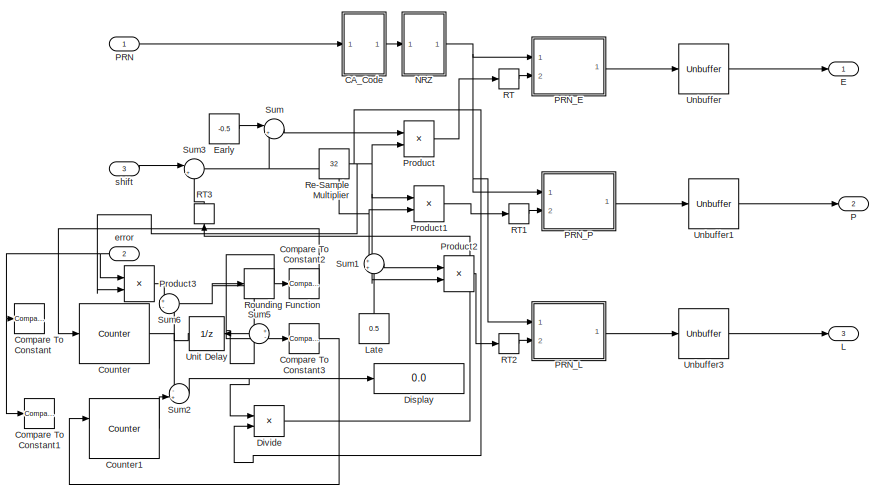
[diagram: Tracking Loop/Tracking Loops/Tracking Loop1/PRN Generator  - part 1/2, top left region]
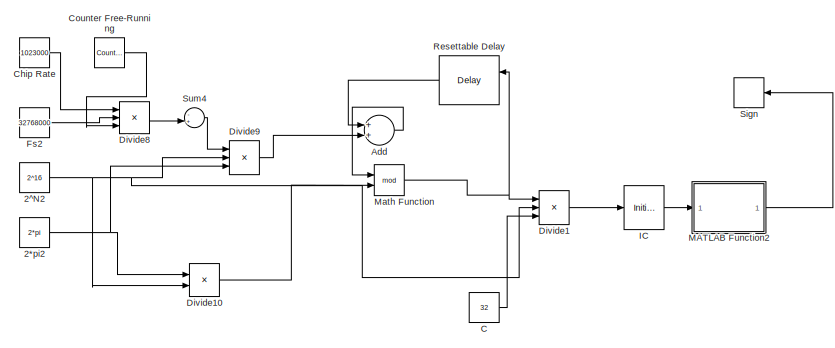
[diagram: Tracking Loop/Tracking Loops/Tracking Loop1/PRN Generator  - part 2/2, bottom right region]
BLOCK [SubSystem] Tracking Loop/Tracking Loops/Tracking Loop1/PRN Generator 
  Ports = [3, 3]
  RequestExecContextInheritance = off
  Variant = off
BLOCK [Constant] Tracking Loop/Tracking Loops/Tracking Loop1/PRN Generator /2*pi2
  Commented = on
  Value = 2*pi
BLOCK [Constant] Tracking Loop/Tracking Loops/Tracking Loop1/PRN Generator /2^N2
  Commented = on
  Value = 2^16
BLOCK [Sum] Tracking Loop/Tracking Loops/Tracking Loop1/PRN Generator /Add
  Commented = on
  InputSameDT = off
  OutDataTypeStr = Inherit: Inherit via internal rule
  Ports = [2, 1]
  SaturateOnIntegerOverflow = off
BLOCK [Constant] Tracking Loop/Tracking Loops/Tracking Loop1/PRN Generator /C
  Commented = on
  Value = 32
BLOCK [SubSystem] Tracking Loop/Tracking Loops/Tracking Loop1/PRN Generator /CA_Code 
  Ports = [1, 1]
  RequestExecContextInheritance = off
  Variant = off
BLOCK [SubSystem] Tracking Loop/Tracking Loops/Tracking Loop1/PRN Generator /CA_Code /CA_Code
  ErrorFcn = Stateflow.Translate.translate
  PermitHierarchicalResolution = ExplicitOnly
  Ports = [2, 1]
  RequestExecContextInheritance = off
  SFBlockType = MATLAB Function
  SystemSampleTime = 0.001
  TreatAsAtomicUnit = on
  Variant = off
BLOCK [Demux] Tracking Loop/Tracking Loops/Tracking Loop1/PRN Generator /CA_Code /CA_Code/ Demux 
  Outputs = 1
  Ports = [1, 1]
BLOCK [S-Function] Tracking Loop/Tracking Loops/Tracking Loop1/PRN Generator /CA_Code /CA_Code/ SFunction 
  EnableBusSupport = on
  FunctionName = sf_sfun
  PortCounts = [2 2]
  Ports = [2, 2]
  SFcnIsStateOwnerBlock = off
  SFunctionDeploymentMode = off
  Tag = Stateflow S-Function Acquisition_from_autosave 29
BLOCK [Terminator] Tracking Loop/Tracking Loops/Tracking Loop1/PRN Generator /CA_Code /CA_Code/ Terminator 
BLOCK [Inport] Tracking Loop/Tracking Loops/Tracking Loop1/PRN Generator /CA_Code /CA_Code/fs
  IconDisplay = Port number
  Port = 2
BLOCK [Outport] Tracking Loop/Tracking Loops/Tracking Loop1/PRN Generator /CA_Code /CA_Code/g
  IconDisplay = Port number
BLOCK [Inport] Tracking Loop/Tracking Loops/Tracking Loop1/PRN Generator /CA_Code /CA_Code/sv
  IconDisplay = Port number
BLOCK [Constant] Tracking Loop/Tracking Loops/Tracking Loop1/PRN Generator /CA_Code /Constant1
  Value = 32
BLOCK [Inport] Tracking Loop/Tracking Loops/Tracking Loop1/PRN Generator /CA_Code /In1
  IconDisplay = Port number
BLOCK [Outport] Tracking Loop/Tracking Loops/Tracking Loop1/PRN Generator /CA_Code /Out1
  IconDisplay = Port number
BLOCK [RateTransition] Tracking Loop/Tracking Loops/Tracking Loop1/PRN Generator /CA_Code /RT
  OutPortSampleTime = 0.001
BLOCK [Reshape] Tracking Loop/Tracking Loops/Tracking Loop1/PRN Generator /CA_Code /Reshape
  OutputDimensionality = Column vector (2-D)
  Ports = [1, 1]
BLOCK [Constant] Tracking Loop/Tracking Loops/Tracking Loop1/PRN Generator /Chip Rate
  Commented = on
  Value = 1023000
BLOCK [Reference] Tracking Loop/Tracking Loops/Tracking Loop1/PRN Generator /Compare To Constant  REF=simulink/Logic and Bit
Operations/Compare
To Constant
  Ports = [1, 1]
  SourceBlock = simulink/Logic and Bit\nOperations/Compare\nTo Constant
  SourceProductBaseCode = SL
  SourceProductName = Simulink
  SourceType = Compare To Constant
BLOCK [Reference] Tracking Loop/Tracking Loops/Tracking Loop1/PRN Generator /Compare To Constant1  REF=simulink/Logic and Bit
Operations/Compare
To Constant
  Ports = [1, 1]
  SourceBlock = simulink/Logic and Bit\nOperations/Compare\nTo Constant
  SourceProductBaseCode = SL
  SourceProductName = Simulink
  SourceType = Compare To Constant
BLOCK [Reference] Tracking Loop/Tracking Loops/Tracking Loop1/PRN Generator /Compare To Constant2  REF=simulink/Logic and Bit
Operations/Compare
To Constant
  Ports = [1, 1]
  SourceBlock = simulink/Logic and Bit\nOperations/Compare\nTo Constant
  SourceProductBaseCode = SL
  SourceProductName = Simulink
  SourceType = Compare To Constant
BLOCK [Reference] Tracking Loop/Tracking Loops/Tracking Loop1/PRN Generator /Compare To Constant3  REF=simulink/Logic and Bit
Operations/Compare
To Constant
  Ports = [1, 1]
  SourceBlock = simulink/Logic and Bit\nOperations/Compare\nTo Constant
  SourceProductBaseCode = SL
  SourceProductName = Simulink
  SourceType = Compare To Constant
BLOCK [Reference] Tracking Loop/Tracking Loops/Tracking Loop1/PRN Generator /Counter  REF=dspswit3/Counter
  Ports = [1, 1]
  SourceBlock = dspswit3/Counter
  SourceProductBaseCode = DS
  SourceProductName = DSP System Toolbox
  SourceType = Counter
BLOCK [Reference] Tracking Loop/Tracking Loops/Tracking Loop1/PRN Generator /Counter Free-Running  REF=simulink/Sources/Counter
Free-Running
  Commented = on
  Ports = [0, 1]
  SourceBlock = simulink/Sources/Counter\nFree-Running
  SourceProductBaseCode = SL
  SourceProductName = Simulink
  SourceType = Counter Free-Running
BLOCK [Reference] Tracking Loop/Tracking Loops/Tracking Loop1/PRN Generator /Counter1  REF=dspswit3/Counter
  Ports = [2, 1]
  SourceBlock = dspswit3/Counter
  SourceProductBaseCode = DS
  SourceProductName = DSP System Toolbox
  SourceType = Counter
BLOCK [Display] Tracking Loop/Tracking Loops/Tracking Loop1/PRN Generator /Display
  Decimation = 1
  Ports = [1]
BLOCK [Product] Tracking Loop/Tracking Loops/Tracking Loop1/PRN Generator /Divide
  InputSameDT = off
  Inputs = */
  OutDataTypeStr = Inherit: Inherit via internal rule
  Ports = [2, 1]
  RndMeth = Floor
  SaturateOnIntegerOverflow = off
BLOCK [Product] Tracking Loop/Tracking Loops/Tracking Loop1/PRN Generator /Divide1
  Commented = on
  InputSameDT = off
  Inputs = */*
  OutDataTypeStr = Inherit: Inherit via internal rule
  Ports = [3, 1]
  RndMeth = Floor
  SaturateOnIntegerOverflow = off
BLOCK [Product] Tracking Loop/Tracking Loops/Tracking Loop1/PRN Generator /Divide10
  Commented = on
  InputSameDT = off
  OutDataTypeStr = Inherit: Inherit via internal rule
  Ports = [2, 1]
  RndMeth = Floor
  SaturateOnIntegerOverflow = off
BLOCK [Product] Tracking Loop/Tracking Loops/Tracking Loop1/PRN Generator /Divide8
  Commented = on
  InputSameDT = off
  Inputs = */*
  OutDataTypeStr = Inherit: Inherit via internal rule
  Ports = [3, 1]
  RndMeth = Floor
  SaturateOnIntegerOverflow = off
BLOCK [Product] Tracking Loop/Tracking Loops/Tracking Loop1/PRN Generator /Divide9
  Commented = on
  InputSameDT = off
  Inputs = ***
  OutDataTypeStr = Inherit: Inherit via internal rule
  Ports = [3, 1]
  RndMeth = Floor
  SaturateOnIntegerOverflow = off
BLOCK [Outport] Tracking Loop/Tracking Loops/Tracking Loop1/PRN Generator /E
  IconDisplay = Port number
BLOCK [Constant] Tracking Loop/Tracking Loops/Tracking Loop1/PRN Generator /Early
  Value = -0.5
BLOCK [Constant] Tracking Loop/Tracking Loops/Tracking Loop1/PRN Generator /Fs2
  Commented = on
  Value = 32768000
BLOCK [InitialCondition] Tracking Loop/Tracking Loops/Tracking Loop1/PRN Generator /IC
  Commented = on
  Value = 1023000
BLOCK [Outport] Tracking Loop/Tracking Loops/Tracking Loop1/PRN Generator /L
  IconDisplay = Port number
  Port = 3
BLOCK [Constant] Tracking Loop/Tracking Loops/Tracking Loop1/PRN Generator /Late
  Value = 0.5
BLOCK [SubSystem] Tracking Loop/Tracking Loops/Tracking Loop1/PRN Generator /MATLAB Function2
  Commented = on
  ErrorFcn = Stateflow.Translate.translate
  PermitHierarchicalResolution = ExplicitOnly
  Ports = [1, 1]
  RequestExecContextInheritance = off
  SFBlockType = MATLAB Function
  TreatAsAtomicUnit = on
  Variant = off
BLOCK [Demux] Tracking Loop/Tracking Loops/Tracking Loop1/PRN Generator /MATLAB Function2/ Demux 
  Outputs = 1
  Ports = [1, 1]
BLOCK [S-Function] Tracking Loop/Tracking Loops/Tracking Loop1/PRN Generator /MATLAB Function2/ SFunction 
  EnableBusSupport = on
  FunctionName = sf_sfun
  PortCounts = [1 2]
  Ports = [1, 2]
  SFcnIsStateOwnerBlock = off
  SFunctionDeploymentMode = off
  Tag = Stateflow S-Function Acquisition_from_autosave 30
BLOCK [Terminator] Tracking Loop/Tracking Loops/Tracking Loop1/PRN Generator /MATLAB Function2/ Terminator 
BLOCK [Outport] Tracking Loop/Tracking Loops/Tracking Loop1/PRN Generator /MATLAB Function2/I
  IconDisplay = Port number
BLOCK [Inport] Tracking Loop/Tracking Loops/Tracking Loop1/PRN Generator /MATLAB Function2/u
  IconDisplay = Port number
BLOCK [Math] Tracking Loop/Tracking Loops/Tracking Loop1/PRN Generator /Math Function
  Commented = on
  Operator = mod
  Ports = [2, 1]
BLOCK [SubSystem] Tracking Loop/Tracking Loops/Tracking Loop1/PRN Generator /NRZ
  Ports = [1, 1]
  RequestExecContextInheritance = off
  Variant = off
BLOCK [Constant] Tracking Loop/Tracking Loops/Tracking Loop1/PRN Generator /NRZ/Constant5
  SampleTime = -1
  Value = 2
BLOCK [Constant] Tracking Loop/Tracking Loops/Tracking Loop1/PRN Generator /NRZ/Constant6
  Value = -1
BLOCK [Inport] Tracking Loop/Tracking Loops/Tracking Loop1/PRN Generator /NRZ/In1
  IconDisplay = Port number
BLOCK [Outport] Tracking Loop/Tracking Loops/Tracking Loop1/PRN Generator /NRZ/Out1
  IconDisplay = Port number
BLOCK [Product] Tracking Loop/Tracking Loops/Tracking Loop1/PRN Generator /NRZ/Product4
  InputSameDT = off
  OutDataTypeStr = Inherit: Inherit via internal rule
  Ports = [2, 1]
  RndMeth = Floor
  SaturateOnIntegerOverflow = off
BLOCK [Sum] Tracking Loop/Tracking Loops/Tracking Loop1/PRN Generator /NRZ/Sum4
  IconShape = round
  InputSameDT = off
  Inputs = |++
  OutDataTypeStr = Inherit: Inherit via internal rule
  Ports = [2, 1]
  SaturateOnIntegerOverflow = off
BLOCK [Outport] Tracking Loop/Tracking Loops/Tracking Loop1/PRN Generator /P
  IconDisplay = Port number
  Port = 2
BLOCK [Inport] Tracking Loop/Tracking Loops/Tracking Loop1/PRN Generator /PRN
  IconDisplay = Port number
BLOCK [SubSystem] Tracking Loop/Tracking Loops/Tracking Loop1/PRN Generator /PRN_E
  ErrorFcn = Stateflow.Translate.translate
  PermitHierarchicalResolution = ExplicitOnly
  Ports = [2, 1]
  RequestExecContextInheritance = off
  SFBlockType = MATLAB Function
  SystemSampleTime = 0.001
  TreatAsAtomicUnit = on
  Variant = off
BLOCK [Demux] Tracking Loop/Tracking Loops/Tracking Loop1/PRN Generator /PRN_E/ Demux 
  Outputs = 1
  Ports = [1, 1]
BLOCK [S-Function] Tracking Loop/Tracking Loops/Tracking Loop1/PRN Generator /PRN_E/ SFunction 
  EnableBusSupport = on
  FunctionName = sf_sfun
  PortCounts = [2 2]
  Ports = [2, 2]
  SFcnIsStateOwnerBlock = off
  SFunctionDeploymentMode = off
  Tag = Stateflow S-Function Acquisition_from_autosave 31
BLOCK [Terminator] Tracking Loop/Tracking Loops/Tracking Loop1/PRN Generator /PRN_E/ Terminator 
BLOCK [Inport] Tracking Loop/Tracking Loops/Tracking Loop1/PRN Generator /PRN_E/array
  IconDisplay = Port number
BLOCK [Inport] Tracking Loop/Tracking Loops/Tracking Loop1/PRN Generator /PRN_E/shift
  IconDisplay = Port number
  Port = 2
BLOCK [Outport] Tracking Loop/Tracking Loops/Tracking Loop1/PRN Generator /PRN_E/y
  IconDisplay = Port number
BLOCK [SubSystem] Tracking Loop/Tracking Loops/Tracking Loop1/PRN Generator /PRN_L
  ErrorFcn = Stateflow.Translate.translate
  PermitHierarchicalResolution = ExplicitOnly
  Ports = [2, 1]
  RequestExecContextInheritance = off
  SFBlockType = MATLAB Function
  SystemSampleTime = 0.001
  TreatAsAtomicUnit = on
  Variant = off
BLOCK [Demux] Tracking Loop/Tracking Loops/Tracking Loop1/PRN Generator /PRN_L/ Demux 
  Outputs = 1
  Ports = [1, 1]
BLOCK [S-Function] Tracking Loop/Tracking Loops/Tracking Loop1/PRN Generator /PRN_L/ SFunction 
  EnableBusSupport = on
  FunctionName = sf_sfun
  PortCounts = [2 2]
  Ports = [2, 2]
  SFcnIsStateOwnerBlock = off
  SFunctionDeploymentMode = off
  Tag = Stateflow S-Function Acquisition_from_autosave 32
BLOCK [Terminator] Tracking Loop/Tracking Loops/Tracking Loop1/PRN Generator /PRN_L/ Terminator 
BLOCK [Inport] Tracking Loop/Tracking Loops/Tracking Loop1/PRN Generator /PRN_L/array
  IconDisplay = Port number
BLOCK [Inport] Tracking Loop/Tracking Loops/Tracking Loop1/PRN Generator /PRN_L/shift
  IconDisplay = Port number
  Port = 2
BLOCK [Outport] Tracking Loop/Tracking Loops/Tracking Loop1/PRN Generator /PRN_L/y
  IconDisplay = Port number
BLOCK [SubSystem] Tracking Loop/Tracking Loops/Tracking Loop1/PRN Generator /PRN_P
  ErrorFcn = Stateflow.Translate.translate
  PermitHierarchicalResolution = ExplicitOnly
  Ports = [2, 1]
  RequestExecContextInheritance = off
  SFBlockType = MATLAB Function
  SystemSampleTime = 0.001
  TreatAsAtomicUnit = on
  Variant = off
BLOCK [Demux] Tracking Loop/Tracking Loops/Tracking Loop1/PRN Generator /PRN_P/ Demux 
  Outputs = 1
  Ports = [1, 1]
BLOCK [S-Function] Tracking Loop/Tracking Loops/Tracking Loop1/PRN Generator /PRN_P/ SFunction 
  EnableBusSupport = on
  FunctionName = sf_sfun
  PortCounts = [2 2]
  Ports = [2, 2]
  SFcnIsStateOwnerBlock = off
  SFunctionDeploymentMode = off
  Tag = Stateflow S-Function Acquisition_from_autosave 43
BLOCK [Terminator] Tracking Loop/Tracking Loops/Tracking Loop1/PRN Generator /PRN_P/ Terminator 
BLOCK [Inport] Tracking Loop/Tracking Loops/Tracking Loop1/PRN Generator /PRN_P/array
  IconDisplay = Port number
BLOCK [Inport] Tracking Loop/Tracking Loops/Tracking Loop1/PRN Generator /PRN_P/shift
  IconDisplay = Port number
  Port = 2
BLOCK [Outport] Tracking Loop/Tracking Loops/Tracking Loop1/PRN Generator /PRN_P/y
  IconDisplay = Port number
BLOCK [Product] Tracking Loop/Tracking Loops/Tracking Loop1/PRN Generator /Product
  InputSameDT = off
  OutDataTypeStr = Inherit: Inherit via internal rule
  Ports = [2, 1]
  RndMeth = Floor
  SaturateOnIntegerOverflow = off
BLOCK [Product] Tracking Loop/Tracking Loops/Tracking Loop1/PRN Generator /Product1
  InputSameDT = off
  OutDataTypeStr = Inherit: Inherit via internal rule
  Ports = [2, 1]
  RndMeth = Floor
  SaturateOnIntegerOverflow = off
BLOCK [Product] Tracking Loop/Tracking Loops/Tracking Loop1/PRN Generator /Product2
  InputSameDT = off
  OutDataTypeStr = Inherit: Inherit via internal rule
  Ports = [2, 1]
  RndMeth = Floor
  SaturateOnIntegerOverflow = off
BLOCK [Product] Tracking Loop/Tracking Loops/Tracking Loop1/PRN Generator /Product3
  InputSameDT = off
  OutDataTypeStr = Inherit: Inherit via internal rule
  Ports = [2, 1]
  RndMeth = Floor
  SaturateOnIntegerOverflow = off
BLOCK [RateTransition] Tracking Loop/Tracking Loops/Tracking Loop1/PRN Generator /RT
  OutPortSampleTime = 0.001
BLOCK [RateTransition] Tracking Loop/Tracking Loops/Tracking Loop1/PRN Generator /RT1
  OutPortSampleTime = 0.001
BLOCK [RateTransition] Tracking Loop/Tracking Loops/Tracking Loop1/PRN Generator /RT2
  OutPortSampleTime = 0.001
BLOCK [RateTransition] Tracking Loop/Tracking Loops/Tracking Loop1/PRN Generator /RT3
BLOCK [Constant] Tracking Loop/Tracking Loops/Tracking Loop1/PRN Generator /Re-Sample Multiplier
  Value = 32
BLOCK [Delay] Tracking Loop/Tracking Loops/Tracking Loop1/PRN Generator /Resettable Delay
  Commented = on
  DelayLength = 1
  ExternalReset = Rising
  InputPortMap = u0,r5
  Ports = [2, 1]
  SampleTime = 0.001
BLOCK [Rounding] Tracking Loop/Tracking Loops/Tracking Loop1/PRN Generator /Rounding Function
  Operator = round
BLOCK [Signum] Tracking Loop/Tracking Loops/Tracking Loop1/PRN Generator /Sign
  Commented = on
BLOCK [Sum] Tracking Loop/Tracking Loops/Tracking Loop1/PRN Generator /Sum
  IconShape = round
  InputSameDT = off
  Inputs = |++
  OutDataTypeStr = Inherit: Inherit via internal rule
  Ports = [2, 1]
  SaturateOnIntegerOverflow = off
BLOCK [Sum] Tracking Loop/Tracking Loops/Tracking Loop1/PRN Generator /Sum1
  IconShape = round
  InputSameDT = off
  OutDataTypeStr = Inherit: Inherit via internal rule
  Ports = [2, 1]
  SaturateOnIntegerOverflow = off
BLOCK [Sum] Tracking Loop/Tracking Loops/Tracking Loop1/PRN Generator /Sum2
  IconShape = round
  InputSameDT = off
  Inputs = -+
  OutDataTypeStr = Inherit: Inherit via internal rule
  Ports = [2, 1]
  SaturateOnIntegerOverflow = off
BLOCK [Sum] Tracking Loop/Tracking Loops/Tracking Loop1/PRN Generator /Sum3
  IconShape = round
  InputSameDT = off
  Inputs = |++
  OutDataTypeStr = Inherit: Inherit via internal rule
  Ports = [2, 1]
  SaturateOnIntegerOverflow = off
BLOCK [Sum] Tracking Loop/Tracking Loops/Tracking Loop1/PRN Generator /Sum4
  Commented = on
  IconShape = round
  InputSameDT = off
  Inputs = -+|
  OutDataTypeStr = Inherit: Inherit via internal rule
  Ports = [2, 1]
  SaturateOnIntegerOverflow = off
BLOCK [Sum] Tracking Loop/Tracking Loops/Tracking Loop1/PRN Generator /Sum5
  IconShape = round
  InputSameDT = off
  Inputs = +-
  OutDataTypeStr = Inherit: Inherit via internal rule
  Ports = [2, 1]
  SaturateOnIntegerOverflow = off
BLOCK [Sum] Tracking Loop/Tracking Loops/Tracking Loop1/PRN Generator /Sum6
  IconShape = round
  InputSameDT = off
  Inputs = +-
  OutDataTypeStr = Inherit: Inherit via internal rule
  Ports = [2, 1]
  SaturateOnIntegerOverflow = off
BLOCK [Unbuffer] Tracking Loop/Tracking Loops/Tracking Loop1/PRN Generator /Unbuffer
  Ports = [1, 1]
BLOCK [Unbuffer] Tracking Loop/Tracking Loops/Tracking Loop1/PRN Generator /Unbuffer1
  Ports = [1, 1]
BLOCK [Unbuffer] Tracking Loop/Tracking Loops/Tracking Loop1/PRN Generator /Unbuffer3
  Ports = [1, 1]
BLOCK [UnitDelay] Tracking Loop/Tracking Loops/Tracking Loop1/PRN Generator /Unit Delay
  InputProcessing = Elements as channels (sample based)
  SampleTime = 0.001
BLOCK [Inport] Tracking Loop/Tracking Loops/Tracking Loop1/PRN Generator /error
  IconDisplay = Port number
  Port = 2
  SampleTime = 0.001
BLOCK [Inport] Tracking Loop/Tracking Loops/Tracking Loop1/PRN Generator /shift
  IconDisplay = Port number
  Port = 3
BLOCK [Product] Tracking Loop/Tracking Loops/Tracking Loop1/Product
  InputSameDT = off
  OutDataTypeStr = Inherit: Inherit via internal rule
  Ports = [2, 1]
  RndMeth = Floor
  SaturateOnIntegerOverflow = off
BLOCK [Product] Tracking Loop/Tracking Loops/Tracking Loop1/Product1
  InputSameDT = off
  OutDataTypeStr = Inherit: Inherit via internal rule
  Ports = [2, 1]
  RndMeth = Floor
  SaturateOnIntegerOverflow = off
BLOCK [Product] Tracking Loop/Tracking Loops/Tracking Loop1/Q_E
  InputSameDT = off
  OutDataTypeStr = Inherit: Inherit via internal rule
  Ports = [2, 1]
  RndMeth = Floor
  SaturateOnIntegerOverflow = off
BLOCK [Product] Tracking Loop/Tracking Loops/Tracking Loop1/Q_L
  InputSameDT = off
  OutDataTypeStr = Inherit: Inherit via internal rule
  Ports = [2, 1]
  RndMeth = Floor
  SaturateOnIntegerOverflow = off
BLOCK [Product] Tracking Loop/Tracking Loops/Tracking Loop1/Q_P
  InputSameDT = off
  OutDataTypeStr = Inherit: Inherit via internal rule
  Ports = [2, 1]
  RndMeth = Floor
  SaturateOnIntegerOverflow = off
BLOCK [RateTransition] Tracking Loop/Tracking Loops/Tracking Loop1/RT
BLOCK [RateTransition] Tracking Loop/Tracking Loops/Tracking Loop1/RT1
BLOCK [RateTransition] Tracking Loop/Tracking Loops/Tracking Loop1/Rate Transition
  OutPortSampleTime = 3.0517578125e-8
BLOCK [RateTransition] Tracking Loop/Tracking Loops/Tracking Loop1/Rate Transition1
  OutPortSampleTime = 3.0517578125e-8
BLOCK [RateTransition] Tracking Loop/Tracking Loops/Tracking Loop1/Rate Transition2
  OutPortSampleTime = 3.0517578125e-8
BLOCK [RateTransition] Tracking Loop/Tracking Loops/Tracking Loop1/Rate Transition3
  OutPortSampleTime = 3.0517578125e-8
BLOCK [RateTransition] Tracking Loop/Tracking Loops/Tracking Loop1/Rate Transition4
  OutPortSampleTime = 3.0517578125e-8
BLOCK [RateTransition] Tracking Loop/Tracking Loops/Tracking Loop1/Rate Transition5
  OutPortSampleTime = 3.0517578125e-8
BLOCK [ZeroOrderHold] Tracking Loop/Tracking Loops/Tracking Loop1/Zero-Order Hold
  SampleTime = 3.0517578125e-8
BLOCK [ZeroOrderHold] Tracking Loop/Tracking Loops/Tracking Loop1/Zero-Order Hold1
  SampleTime = 3.0517578125e-8
BLOCK [SubSystem] Tracking Loop/Tracking Loops/Tracking Loop2
  Commented = on
  MinAlgLoopOccurrences = on
  Ports = [4, 3]
  RequestExecContextInheritance = off
  TreatAsAtomicUnit = on
  Variant = off
BLOCK [SubSystem] Tracking Loop/Tracking Loops/Tracking Loop2/Carrier Filter
  Ports = [1, 1]
  RequestExecContextInheritance = off
  Variant = off
BLOCK [Sum] Tracking Loop/Tracking Loops/Tracking Loop2/Carrier Filter/Add
  InputSameDT = off
  OutDataTypeStr = Inherit: Inherit via internal rule
  Ports = [2, 1]
  SaturateOnIntegerOverflow = off
BLOCK [Constant] Tracking Loop/Tracking Loops/Tracking Loop2/Carrier Filter/Constant
  Value = 0.001
BLOCK [Constant] Tracking Loop/Tracking Loops/Tracking Loop2/Carrier Filter/Constant1
  Value = -1
BLOCK [Constant] Tracking Loop/Tracking Loops/Tracking Loop2/Carrier Filter/Constant2
BLOCK [Constant] Tracking Loop/Tracking Loops/Tracking Loop2/Carrier Filter/Constant3
  Value = -1
BLOCK [Delay] Tracking Loop/Tracking Loops/Tracking Loop2/Carrier Filter/Delay
  DelayLength = 1
  InitialCondition = 0
  InputPortMap = u0
  Ports = [1, 1]
  SampleTime = 0.001
BLOCK [DiscreteFir] Tracking Loop/Tracking Loops/Tracking Loop2/Carrier Filter/Discrete FIR Filter
  CoefSource = Input port
  Coefficients = [2 1]
  InputPortMap = u0,u1
  OutputPortMap = o0
  Ports = [2, 1]
  SampleTime = 0.001
BLOCK [DiscreteFilter] Tracking Loop/Tracking Loops/Tracking Loop2/Carrier Filter/Discrete Filter
  DenominatorSource = Input port
  InputPortMap = u0,p1,p3
  NumeratorSource = Input port
  Ports = [3, 1]
  SampleTime = 0.001
  a0EqualsOne = on
BLOCK [SubSystem] Tracking Loop/Tracking Loops/Tracking Loop2/Carrier Filter/Filter Parameters
  Ports = [0, 2]
  RequestExecContextInheritance = off
  Variant = off
BLOCK [Constant] Tracking Loop/Tracking Loops/Tracking Loop2/Carrier Filter/Filter Parameters/BW
  Value = 25
BLOCK [Constant] Tracking Loop/Tracking Loops/Tracking Loop2/Carrier Filter/Filter Parameters/Constant
  Value = 8
BLOCK [Constant] Tracking Loop/Tracking Loops/Tracking Loop2/Carrier Filter/Filter Parameters/Constant1
  Value = 4
BLOCK [Constant] Tracking Loop/Tracking Loops/Tracking Loop2/Carrier Filter/Filter Parameters/Constant2
BLOCK [Constant] Tracking Loop/Tracking Loops/Tracking Loop2/Carrier Filter/Filter Parameters/Constant3
  Value = 2
BLOCK [Constant] Tracking Loop/Tracking Loops/Tracking Loop2/Carrier Filter/Filter Parameters/Damping
  Value = 0.707
BLOCK [Product] Tracking Loop/Tracking Loops/Tracking Loop2/Carrier Filter/Filter Parameters/Divide
  InputSameDT = off
  Inputs = */
  OutDataTypeStr = Inherit: Inherit via internal rule
  Ports = [2, 1]
  RndMeth = Floor
  SaturateOnIntegerOverflow = off
BLOCK [Product] Tracking Loop/Tracking Loops/Tracking Loop2/Carrier Filter/Filter Parameters/Gain 1
  InputSameDT = off
  Inputs = ***/
  OutDataTypeStr = Inherit: Inherit via internal rule
  Ports = [4, 1]
  RndMeth = Floor
  SaturateOnIntegerOverflow = off
BLOCK [Product] Tracking Loop/Tracking Loops/Tracking Loop2/Carrier Filter/Filter Parameters/Gain 2
  InputSameDT = off
  Inputs = **/
  OutDataTypeStr = Inherit: Inherit via internal rule
  Ports = [3, 1]
  RndMeth = Floor
  SaturateOnIntegerOverflow = off
BLOCK [Constant] Tracking Loop/Tracking Loops/Tracking Loop2/Carrier Filter/Filter Parameters/K
BLOCK [Outport] Tracking Loop/Tracking Loops/Tracking Loop2/Carrier Filter/Filter Parameters/K1
  IconDisplay = Port number
BLOCK [Outport] Tracking Loop/Tracking Loops/Tracking Loop2/Carrier Filter/Filter Parameters/K2
  IconDisplay = Port number
  Port = 2
BLOCK [Product] Tracking Loop/Tracking Loops/Tracking Loop2/Carrier Filter/Filter Parameters/Product
  InputSameDT = off
  Inputs = 3
  OutDataTypeStr = Inherit: Inherit via internal rule
  Ports = [3, 1]
  RndMeth = Floor
  SaturateOnIntegerOverflow = off
BLOCK [Product] Tracking Loop/Tracking Loops/Tracking Loop2/Carrier Filter/Filter Parameters/Product1
  InputSameDT = off
  Inputs = 3
  OutDataTypeStr = Inherit: Inherit via internal rule
  Ports = [3, 1]
  RndMeth = Floor
  SaturateOnIntegerOverflow = off
BLOCK [Sum] Tracking Loop/Tracking Loops/Tracking Loop2/Carrier Filter/Filter Parameters/Sum
  IconShape = round
  InputSameDT = off
  Inputs = |++
  OutDataTypeStr = Inherit: Inherit via internal rule
  Ports = [2, 1]
  SaturateOnIntegerOverflow = off
BLOCK [Inport] Tracking Loop/Tracking Loops/Tracking Loop2/Carrier Filter/In2
  IconDisplay = Port number
BLOCK [Outport] Tracking Loop/Tracking Loops/Tracking Loop2/Carrier Filter/Out1
  IconDisplay = Port number
BLOCK [Product] Tracking Loop/Tracking Loops/Tracking Loop2/Carrier Filter/Product
  InputSameDT = off
  OutDataTypeStr = Inherit: Inherit via internal rule
  Ports = [2, 1]
  RndMeth = Floor
  SaturateOnIntegerOverflow = off
BLOCK [Product] Tracking Loop/Tracking Loops/Tracking Loop2/Carrier Filter/Product1
  InputSameDT = off
  Inputs = 3
  OutDataTypeStr = Inherit: Inherit via internal rule
  Ports = [3, 1]
  RndMeth = Floor
  SaturateOnIntegerOverflow = off
BLOCK [Product] Tracking Loop/Tracking Loops/Tracking Loop2/Carrier Filter/Product2
  InputSameDT = off
  OutDataTypeStr = Inherit: Inherit via internal rule
  Ports = [2, 1]
  RndMeth = Floor
  SaturateOnIntegerOverflow = off
BLOCK [Product] Tracking Loop/Tracking Loops/Tracking Loop2/Carrier Filter/Product3
  InputSameDT = off
  OutDataTypeStr = Inherit: Inherit via internal rule
  Ports = [2, 1]
  RndMeth = Floor
  SaturateOnIntegerOverflow = off
BLOCK [Product] Tracking Loop/Tracking Loops/Tracking Loop2/Carrier Filter/Product4
  InputSameDT = off
  OutDataTypeStr = Inherit: Inherit via internal rule
  Ports = [2, 1]
  RndMeth = Floor
  SaturateOnIntegerOverflow = off
BLOCK [SubSystem] Tracking Loop/Tracking Loops/Tracking Loop2/Carrier Filter/Subsystem
  Ports = [0, 2]
  RequestExecContextInheritance = off
  Variant = off
BLOCK [Constant] Tracking Loop/Tracking Loops/Tracking Loop2/Carrier Filter/Subsystem/BW
  Value = 30
BLOCK [SubSystem] Tracking Loop/Tracking Loops/Tracking Loop2/Carrier Filter/Subsystem/C1
  Ports = [11, 1]
  RequestExecContextInheritance = off
  Variant = off
BLOCK [Sum] Tracking Loop/Tracking Loops/Tracking Loop2/Carrier Filter/Subsystem/C1/Add1
  InputSameDT = off
  Inputs = +++
  OutDataTypeStr = Inherit: Inherit via internal rule
  Ports = [3, 1]
  SaturateOnIntegerOverflow = off
BLOCK [Product] Tracking Loop/Tracking Loops/Tracking Loop2/Carrier Filter/Subsystem/C1/Gain 3
  InputSameDT = off
  Inputs = ***/
  OutDataTypeStr = Inherit: Inherit via internal rule
  Ports = [4, 1]
  RndMeth = Floor
  SaturateOnIntegerOverflow = off
BLOCK [Product] Tracking Loop/Tracking Loops/Tracking Loop2/Carrier Filter/Subsystem/C1/Gain 4
  InputSameDT = off
  Inputs = ***
  OutDataTypeStr = Inherit: Inherit via internal rule
  Ports = [3, 1]
  RndMeth = Floor
  SaturateOnIntegerOverflow = off
BLOCK [Inport] Tracking Loop/Tracking Loops/Tracking Loop2/Carrier Filter/Subsystem/C1/In1
  IconDisplay = Port number
BLOCK [Inport] Tracking Loop/Tracking Loops/Tracking Loop2/Carrier Filter/Subsystem/C1/In10
  IconDisplay = Port number
  Port = 10
BLOCK [Inport] Tracking Loop/Tracking Loops/Tracking Loop2/Carrier Filter/Subsystem/C1/In11
  IconDisplay = Port number
  Port = 11
BLOCK [Inport] Tracking Loop/Tracking Loops/Tracking Loop2/Carrier Filter/Subsystem/C1/In2
  IconDisplay = Port number
  Port = 2
BLOCK [Inport] Tracking Loop/Tracking Loops/Tracking Loop2/Carrier Filter/Subsystem/C1/In3
  IconDisplay = Port number
  Port = 3
BLOCK [Inport] Tracking Loop/Tracking Loops/Tracking Loop2/Carrier Filter/Subsystem/C1/In4
  IconDisplay = Port number
  Port = 4
BLOCK [Inport] Tracking Loop/Tracking Loops/Tracking Loop2/Carrier Filter/Subsystem/C1/In5
  IconDisplay = Port number
  Port = 5
BLOCK [Inport] Tracking Loop/Tracking Loops/Tracking Loop2/Carrier Filter/Subsystem/C1/In6
  IconDisplay = Port number
  Port = 6
BLOCK [Inport] Tracking Loop/Tracking Loops/Tracking Loop2/Carrier Filter/Subsystem/C1/In7
  IconDisplay = Port number
  Port = 7
BLOCK [Inport] Tracking Loop/Tracking Loops/Tracking Loop2/Carrier Filter/Subsystem/C1/In8
  IconDisplay = Port number
  Port = 8
BLOCK [Inport] Tracking Loop/Tracking Loops/Tracking Loop2/Carrier Filter/Subsystem/C1/In9
  IconDisplay = Port number
  Port = 9
BLOCK [Math] Tracking Loop/Tracking Loops/Tracking Loop2/Carrier Filter/Subsystem/C1/Math Function3
  Operator = square
  Ports = [1, 1]
BLOCK [Outport] Tracking Loop/Tracking Loops/Tracking Loop2/Carrier Filter/Subsystem/C1/Out1
  IconDisplay = Port number
BLOCK [Product] Tracking Loop/Tracking Loops/Tracking Loop2/Carrier Filter/Subsystem/C1/Product3
  InputSameDT = off
  OutDataTypeStr = Inherit: Inherit via internal rule
  Ports = [2, 1]
  RndMeth = Floor
  SaturateOnIntegerOverflow = off
BLOCK [Product] Tracking Loop/Tracking Loops/Tracking Loop2/Carrier Filter/Subsystem/C1/Product4
  InputSameDT = off
  Inputs = 4
  OutDataTypeStr = Inherit: Inherit via internal rule
  Ports = [4, 1]
  RndMeth = Floor
  SaturateOnIntegerOverflow = off
BLOCK [SubSystem] Tracking Loop/Tracking Loops/Tracking Loop2/Carrier Filter/Subsystem/C2
  Ports = [8, 1]
  RequestExecContextInheritance = off
  Variant = off
BLOCK [Sum] Tracking Loop/Tracking Loops/Tracking Loop2/Carrier Filter/Subsystem/C2/Add
  InputSameDT = off
  Inputs = +++
  OutDataTypeStr = Inherit: Inherit via internal rule
  Ports = [3, 1]
  SaturateOnIntegerOverflow = off
BLOCK [Product] Tracking Loop/Tracking Loops/Tracking Loop2/Carrier Filter/Subsystem/C2/Gain 1
  InputSameDT = off
  Inputs = ***/
  OutDataTypeStr = Inherit: Inherit via internal rule
  Ports = [4, 1]
  RndMeth = Floor
  SaturateOnIntegerOverflow = off
BLOCK [Product] Tracking Loop/Tracking Loops/Tracking Loop2/Carrier Filter/Subsystem/C2/Gain 2
  InputSameDT = off
  Inputs = ***
  OutDataTypeStr = Inherit: Inherit via internal rule
  Ports = [3, 1]
  RndMeth = Floor
  SaturateOnIntegerOverflow = off
BLOCK [Inport] Tracking Loop/Tracking Loops/Tracking Loop2/Carrier Filter/Subsystem/C2/In1
  IconDisplay = Port number
BLOCK [Inport] Tracking Loop/Tracking Loops/Tracking Loop2/Carrier Filter/Subsystem/C2/In2
  IconDisplay = Port number
  Port = 2
BLOCK [Inport] Tracking Loop/Tracking Loops/Tracking Loop2/Carrier Filter/Subsystem/C2/In3
  IconDisplay = Port number
  Port = 3
BLOCK [Inport] Tracking Loop/Tracking Loops/Tracking Loop2/Carrier Filter/Subsystem/C2/In4
  IconDisplay = Port number
  Port = 4
BLOCK [Inport] Tracking Loop/Tracking Loops/Tracking Loop2/Carrier Filter/Subsystem/C2/In5
  IconDisplay = Port number
  Port = 5
BLOCK [Inport] Tracking Loop/Tracking Loops/Tracking Loop2/Carrier Filter/Subsystem/C2/In6
  IconDisplay = Port number
  Port = 6
BLOCK [Inport] Tracking Loop/Tracking Loops/Tracking Loop2/Carrier Filter/Subsystem/C2/In7
  IconDisplay = Port number
  Port = 7
BLOCK [Inport] Tracking Loop/Tracking Loops/Tracking Loop2/Carrier Filter/Subsystem/C2/In8
  IconDisplay = Port number
  Port = 8
BLOCK [Math] Tracking Loop/Tracking Loops/Tracking Loop2/Carrier Filter/Subsystem/C2/Math Function
  Operator = square
  Ports = [1, 1]
BLOCK [Math] Tracking Loop/Tracking Loops/Tracking Loop2/Carrier Filter/Subsystem/C2/Math Function1
  Operator = square
  Ports = [1, 1]
BLOCK [Outport] Tracking Loop/Tracking Loops/Tracking Loop2/Carrier Filter/Subsystem/C2/Out1
  IconDisplay = Port number
BLOCK [Product] Tracking Loop/Tracking Loops/Tracking Loop2/Carrier Filter/Subsystem/C2/Product1
  InputSameDT = off
  OutDataTypeStr = Inherit: Inherit via internal rule
  Ports = [2, 1]
  RndMeth = Floor
  SaturateOnIntegerOverflow = off
BLOCK [Product] Tracking Loop/Tracking Loops/Tracking Loop2/Carrier Filter/Subsystem/C2/Product2
  InputSameDT = off
  Inputs = 4
  OutDataTypeStr = Inherit: Inherit via internal rule
  Ports = [4, 1]
  RndMeth = Floor
  SaturateOnIntegerOverflow = off
BLOCK [Constant] Tracking Loop/Tracking Loops/Tracking Loop2/Carrier Filter/Subsystem/Constant1
  Value = 8
BLOCK [Constant] Tracking Loop/Tracking Loops/Tracking Loop2/Carrier Filter/Subsystem/Constant2
  Value = 4
BLOCK [Constant] Tracking Loop/Tracking Loops/Tracking Loop2/Carrier Filter/Subsystem/Constant4
BLOCK [Constant] Tracking Loop/Tracking Loops/Tracking Loop2/Carrier Filter/Subsystem/Damping
  Value = 0.707
BLOCK [Constant] Tracking Loop/Tracking Loops/Tracking Loop2/Carrier Filter/Subsystem/K
  Value = 4
BLOCK [Outport] Tracking Loop/Tracking Loops/Tracking Loop2/Carrier Filter/Subsystem/K1
  IconDisplay = Port number
  Port = 2
BLOCK [Outport] Tracking Loop/Tracking Loops/Tracking Loop2/Carrier Filter/Subsystem/K2 
  IconDisplay = Port number
BLOCK [Constant] Tracking Loop/Tracking Loops/Tracking Loop2/Carrier Filter/Subsystem/T
  Value = 0.001
BLOCK [SubSystem] Tracking Loop/Tracking Loops/Tracking Loop2/Carrier Filter/Subsystem/Wn
  Ports = [5, 1]
  RequestExecContextInheritance = off
  Variant = off
BLOCK [Sum] Tracking Loop/Tracking Loops/Tracking Loop2/Carrier Filter/Subsystem/Wn/Add
  InputSameDT = off
  OutDataTypeStr = Inherit: Inherit via internal rule
  Ports = [2, 1]
  SaturateOnIntegerOverflow = off
BLOCK [Product] Tracking Loop/Tracking Loops/Tracking Loop2/Carrier Filter/Subsystem/Wn/Divide1
  InputSameDT = off
  Inputs = ***/
  OutDataTypeStr = Inherit: Inherit via internal rule
  Ports = [4, 1]
  RndMeth = Floor
  SaturateOnIntegerOverflow = off
BLOCK [Inport] Tracking Loop/Tracking Loops/Tracking Loop2/Carrier Filter/Subsystem/Wn/In1
  IconDisplay = Port number
BLOCK [Inport] Tracking Loop/Tracking Loops/Tracking Loop2/Carrier Filter/Subsystem/Wn/In2
  IconDisplay = Port number
  Port = 2
BLOCK [Inport] Tracking Loop/Tracking Loops/Tracking Loop2/Carrier Filter/Subsystem/Wn/In3
  IconDisplay = Port number
  Port = 3
BLOCK [Inport] Tracking Loop/Tracking Loops/Tracking Loop2/Carrier Filter/Subsystem/Wn/In4
  IconDisplay = Port number
  Port = 4
BLOCK [Inport] Tracking Loop/Tracking Loops/Tracking Loop2/Carrier Filter/Subsystem/Wn/In5
  IconDisplay = Port number
  Port = 5
BLOCK [Math] Tracking Loop/Tracking Loops/Tracking Loop2/Carrier Filter/Subsystem/Wn/Math Function
  Operator = square
  Ports = [1, 1]
BLOCK [Outport] Tracking Loop/Tracking Loops/Tracking Loop2/Carrier Filter/Subsystem/Wn/Out1
  IconDisplay = Port number
BLOCK [Product] Tracking Loop/Tracking Loops/Tracking Loop2/Carrier Filter/Subsystem/Wn/Wn1
  InputSameDT = off
  OutDataTypeStr = Inherit: Inherit via internal rule
  Ports = [2, 1]
  RndMeth = Floor
  SaturateOnIntegerOverflow = off
BLOCK [Sum] Tracking Loop/Tracking Loops/Tracking Loop2/Carrier Filter/Sum
  IconShape = round
  InputSameDT = off
  Inputs = |++
  OutDataTypeStr = Inherit: Inherit via internal rule
  Ports = [2, 1]
  SaturateOnIntegerOverflow = off
BLOCK [Sum] Tracking Loop/Tracking Loops/Tracking Loop2/Carrier Filter/Sum1
  IconShape = round
  InputSameDT = off
  Inputs = |++
  OutDataTypeStr = Inherit: Inherit via internal rule
  Ports = [2, 1]
  SaturateOnIntegerOverflow = off
BLOCK [Sum] Tracking Loop/Tracking Loops/Tracking Loop2/Carrier Filter/Sum3
  IconShape = round
  InputSameDT = off
  Inputs = |+-
  OutDataTypeStr = Inherit: Inherit via internal rule
  Ports = [2, 1]
  SaturateOnIntegerOverflow = off
BLOCK [Sum] Tracking Loop/Tracking Loops/Tracking Loop2/Carrier Filter/Sum4
  IconShape = round
  InputSameDT = off
  Inputs = +++
  OutDataTypeStr = Inherit: Inherit via internal rule
  Ports = [3, 1]
  SaturateOnIntegerOverflow = off
BLOCK [UnitDelay] Tracking Loop/Tracking Loops/Tracking Loop2/Carrier Filter/Unit Delay
  InputProcessing = Elements as channels (sample based)
  SampleTime = 0.001
BLOCK [UnitDelay] Tracking Loop/Tracking Loops/Tracking Loop2/Carrier Filter/Unit Delay1
  InputProcessing = Elements as channels (sample based)
  SampleTime = 0.001
BLOCK [Concatenate] Tracking Loop/Tracking Loops/Tracking Loop2/Carrier Filter/Vector Concatenate
  Ports = [2, 1]
BLOCK [Concatenate] Tracking Loop/Tracking Loops/Tracking Loop2/Carrier Filter/Vector Concatenate1
  Ports = [2, 1]
BLOCK [SubSystem] Tracking Loop/Tracking Loops/Tracking Loop2/Carrier Loop Discriminator 
  Ports = [2, 1]
  RequestExecContextInheritance = off
  Variant = off
BLOCK [Constant] Tracking Loop/Tracking Loops/Tracking Loop2/Carrier Loop Discriminator /Constant
  Value = 2*pi
BLOCK [Product] Tracking Loop/Tracking Loops/Tracking Loop2/Carrier Loop Discriminator /Divide
  InputSameDT = off
  Inputs = /*
  OutDataTypeStr = Inherit: Inherit via internal rule
  Ports = [2, 1]
  RndMeth = Floor
  SaturateOnIntegerOverflow = off
BLOCK [Product] Tracking Loop/Tracking Loops/Tracking Loop2/Carrier Loop Discriminator /Divide1
  InputSameDT = off
  Inputs = */
  OutDataTypeStr = Inherit: Inherit via internal rule
  Ports = [2, 1]
  RndMeth = Floor
  SaturateOnIntegerOverflow = off
BLOCK [InitialCondition] Tracking Loop/Tracking Loops/Tracking Loop2/Carrier Loop Discriminator /IC
  Value = 0
BLOCK [InitialCondition] Tracking Loop/Tracking Loops/Tracking Loop2/Carrier Loop Discriminator /IC1
BLOCK [InitialCondition] Tracking Loop/Tracking Loops/Tracking Loop2/Carrier Loop Discriminator /IC2
BLOCK [Inport] Tracking Loop/Tracking Loops/Tracking Loop2/Carrier Loop Discriminator /I_P
  IconDisplay = Port number
BLOCK [Inport] Tracking Loop/Tracking Loops/Tracking Loop2/Carrier Loop Discriminator /Q_P
  IconDisplay = Port number
  Port = 2
BLOCK [Trigonometry] Tracking Loop/Tracking Loops/Tracking Loop2/Carrier Loop Discriminator /atan
  Operator = atan
  Ports = [1, 1]
BLOCK [Outport] Tracking Loop/Tracking Loops/Tracking Loop2/Carrier Loop Discriminator /theta
  IconDisplay = Port number
BLOCK [SubSystem] Tracking Loop/Tracking Loops/Tracking Loop2/Code Filter
  Commented = on
  Ports = [1, 1]
  RequestExecContextInheritance = off
  Variant = off
BLOCK [Sum] Tracking Loop/Tracking Loops/Tracking Loop2/Code Filter/Add
  InputSameDT = off
  OutDataTypeStr = Inherit: Inherit via internal rule
  Ports = [2, 1]
  SaturateOnIntegerOverflow = off
BLOCK [Constant] Tracking Loop/Tracking Loops/Tracking Loop2/Code Filter/BW
  Value = 25
BLOCK [SubSystem] Tracking Loop/Tracking Loops/Tracking Loop2/Code Filter/Coeffiecients
  Ports = [3, 2]
  RequestExecContextInheritance = off
  Variant = off
BLOCK [Inport] Tracking Loop/Tracking Loops/Tracking Loop2/Code Filter/Coeffiecients/BW
  IconDisplay = Port number
BLOCK [Outport] Tracking Loop/Tracking Loops/Tracking Loop2/Code Filter/Coeffiecients/C1
  IconDisplay = Port number
BLOCK [Outport] Tracking Loop/Tracking Loops/Tracking Loop2/Code Filter/Coeffiecients/C2
  IconDisplay = Port number
  Port = 2
BLOCK [Constant] Tracking Loop/Tracking Loops/Tracking Loop2/Code Filter/Coeffiecients/Constant1
  Value = 2
BLOCK [Product] Tracking Loop/Tracking Loops/Tracking Loop2/Code Filter/Coeffiecients/Divide1
  InputSameDT = off
  Inputs = **/
  OutDataTypeStr = Inherit: Inherit via internal rule
  Ports = [3, 1]
  RndMeth = Floor
  SaturateOnIntegerOverflow = off
BLOCK [Math] Tracking Loop/Tracking Loops/Tracking Loop2/Code Filter/Coeffiecients/Math Function
  Operator = square
  Ports = [1, 1]
BLOCK [Math] Tracking Loop/Tracking Loops/Tracking Loop2/Code Filter/Coeffiecients/Math Function1
  Operator = reciprocal
  Ports = [1, 1]
BLOCK [SubSystem] Tracking Loop/Tracking Loops/Tracking Loop2/Code Filter/Coeffiecients/Wn
  Ports = [2, 1]
  RequestExecContextInheritance = off
  Variant = off
BLOCK [Inport] Tracking Loop/Tracking Loops/Tracking Loop2/Code Filter/Coeffiecients/Wn/BW
  IconDisplay = Port number
BLOCK [Constant] Tracking Loop/Tracking Loops/Tracking Loop2/Code Filter/Coeffiecients/Wn/Constant1
  Value = 8
BLOCK [Constant] Tracking Loop/Tracking Loops/Tracking Loop2/Code Filter/Coeffiecients/Wn/Constant2
  Value = 4
BLOCK [Constant] Tracking Loop/Tracking Loops/Tracking Loop2/Code Filter/Coeffiecients/Wn/Constant3
BLOCK [Product] Tracking Loop/Tracking Loops/Tracking Loop2/Code Filter/Coeffiecients/Wn/Divide1
  InputSameDT = off
  Inputs = */
  OutDataTypeStr = Inherit: Inherit via internal rule
  Ports = [2, 1]
  RndMeth = Floor
  SaturateOnIntegerOverflow = off
BLOCK [Math] Tracking Loop/Tracking Loops/Tracking Loop2/Code Filter/Coeffiecients/Wn/Math Function
  Operator = square
  Ports = [1, 1]
BLOCK [Product] Tracking Loop/Tracking Loops/Tracking Loop2/Code Filter/Coeffiecients/Wn/Product
  InputSameDT = off
  OutDataTypeStr = Inherit: Inherit via internal rule
  Ports = [2, 1]
  RndMeth = Floor
  SaturateOnIntegerOverflow = off
BLOCK [Product] Tracking Loop/Tracking Loops/Tracking Loop2/Code Filter/Coeffiecients/Wn/Product1
  InputSameDT = off
  Inputs = 3
  OutDataTypeStr = Inherit: Inherit via internal rule
  Ports = [3, 1]
  RndMeth = Floor
  SaturateOnIntegerOverflow = off
BLOCK [Sum] Tracking Loop/Tracking Loops/Tracking Loop2/Code Filter/Coeffiecients/Wn/Sum3
  IconShape = round
  InputSameDT = off
  Inputs = |++
  OutDataTypeStr = Inherit: Inherit via internal rule
  Ports = [2, 1]
  SaturateOnIntegerOverflow = off
BLOCK [Outport] Tracking Loop/Tracking Loops/Tracking Loop2/Code Filter/Coeffiecients/Wn/Wn
  IconDisplay = Port number
BLOCK [Inport] Tracking Loop/Tracking Loops/Tracking Loop2/Code Filter/Coeffiecients/Wn/Zeta
  IconDisplay = Port number
  Port = 2
BLOCK [Inport] Tracking Loop/Tracking Loops/Tracking Loop2/Code Filter/Coeffiecients/Zeta
  IconDisplay = Port number
  Port = 2
BLOCK [SubSystem] Tracking Loop/Tracking Loops/Tracking Loop2/Code Filter/Coeffiecients/calc1 
  Ports = [4, 1]
  RequestExecContextInheritance = off
  Variant = off
BLOCK [Inport] Tracking Loop/Tracking Loops/Tracking Loop2/Code Filter/Coeffiecients/calc1 /2
  IconDisplay = Port number
BLOCK [Product] Tracking Loop/Tracking Loops/Tracking Loop2/Code Filter/Coeffiecients/calc1 /Divide3
  InputSameDT = off
  Inputs = **
  OutDataTypeStr = Inherit: Inherit via internal rule
  Ports = [2, 1]
  RndMeth = Floor
  SaturateOnIntegerOverflow = off
BLOCK [Product] Tracking Loop/Tracking Loops/Tracking Loop2/Code Filter/Coeffiecients/calc1 /Divide4
  InputSameDT = off
  Inputs = **
  OutDataTypeStr = Inherit: Inherit via internal rule
  Ports = [2, 1]
  RndMeth = Floor
  SaturateOnIntegerOverflow = off
BLOCK [Product] Tracking Loop/Tracking Loops/Tracking Loop2/Code Filter/Coeffiecients/calc1 /Divide5
  InputSameDT = off
  Inputs = /*
  OutDataTypeStr = Inherit: Inherit via internal rule
  Ports = [2, 1]
  RndMeth = Floor
  SaturateOnIntegerOverflow = off
BLOCK [Outport] Tracking Loop/Tracking Loops/Tracking Loop2/Code Filter/Coeffiecients/calc1 /Out1
  IconDisplay = Port number
BLOCK [Sum] Tracking Loop/Tracking Loops/Tracking Loop2/Code Filter/Coeffiecients/calc1 /Subtract
  InputSameDT = off
  Inputs = +-
  OutDataTypeStr = Inherit: Inherit via internal rule
  Ports = [2, 1]
  SaturateOnIntegerOverflow = off
BLOCK [Inport] Tracking Loop/Tracking Loops/Tracking Loop2/Code Filter/Coeffiecients/calc1 /t1
  IconDisplay = Port number
  Port = 3
BLOCK [Inport] Tracking Loop/Tracking Loops/Tracking Loop2/Code Filter/Coeffiecients/calc1 /t2
  IconDisplay = Port number
  Port = 2
BLOCK [Inport] Tracking Loop/Tracking Loops/Tracking Loop2/Code Filter/Coeffiecients/calc1 /ts
  IconDisplay = Port number
  Port = 4
BLOCK [Product] Tracking Loop/Tracking Loops/Tracking Loop2/Code Filter/Coeffiecients/calc2
  InputSameDT = off
  Inputs = /*
  OutDataTypeStr = Inherit: Inherit via internal rule
  Ports = [2, 1]
  RndMeth = Floor
  SaturateOnIntegerOverflow = off
BLOCK [Inport] Tracking Loop/Tracking Loops/Tracking Loop2/Code Filter/Coeffiecients/ts
  IconDisplay = Port number
  Port = 3
BLOCK [Constant] Tracking Loop/Tracking Loops/Tracking Loop2/Code Filter/Constant
  Value = 2*pi
BLOCK [Delay] Tracking Loop/Tracking Loops/Tracking Loop2/Code Filter/Delay
  DelayLength = 1
  InitialCondition = 0
  InputPortMap = u0
  Ports = [1, 1]
  SampleTime = 0.001
BLOCK [Delay] Tracking Loop/Tracking Loops/Tracking Loop2/Code Filter/Delay1
  DelayLength = 1
  InitialCondition = 0
  InputPortMap = u0
  Ports = [1, 1]
  SampleTime = 0.001
BLOCK [Display] Tracking Loop/Tracking Loops/Tracking Loop2/Code Filter/Display
  Decimation = 1
  Ports = [1]
BLOCK [Display] Tracking Loop/Tracking Loops/Tracking Loop2/Code Filter/Display1
  Decimation = 1
  Ports = [1]
BLOCK [Product] Tracking Loop/Tracking Loops/Tracking Loop2/Code Filter/Divide
  InputSameDT = off
  Inputs = */
  OutDataTypeStr = Inherit: Inherit via internal rule
  Ports = [2, 1]
  RndMeth = Floor
  SaturateOnIntegerOverflow = off
BLOCK [Product] Tracking Loop/Tracking Loops/Tracking Loop2/Code Filter/Divide1
  InputSameDT = off
  Inputs = **
  OutDataTypeStr = Inherit: Inherit via internal rule
  Ports = [2, 1]
  RndMeth = Floor
  SaturateOnIntegerOverflow = off
BLOCK [Product] Tracking Loop/Tracking Loops/Tracking Loop2/Code Filter/Divide2
  InputSameDT = off
  Inputs = **
  OutDataTypeStr = Inherit: Inherit via internal rule
  Ports = [2, 1]
  RndMeth = Floor
  SaturateOnIntegerOverflow = off
BLOCK [Inport] Tracking Loop/Tracking Loops/Tracking Loop2/Code Filter/In1
  IconDisplay = Port number
  SampleTime = 0.001
BLOCK [Outport] Tracking Loop/Tracking Loops/Tracking Loop2/Code Filter/Out1
  IconDisplay = Port number
BLOCK [Sum] Tracking Loop/Tracking Loops/Tracking Loop2/Code Filter/Subtract
  InputSameDT = off
  Inputs = -++
  OutDataTypeStr = Inherit: Inherit via internal rule
  Ports = [3, 1]
  SaturateOnIntegerOverflow = off
BLOCK [Constant] Tracking Loop/Tracking Loops/Tracking Loop2/Code Filter/ts
  Value = 0.001
BLOCK [Constant] Tracking Loop/Tracking Loops/Tracking Loop2/Code Filter/zeta
  Value = 0.7
BLOCK [SubSystem] Tracking Loop/Tracking Loops/Tracking Loop2/Code Loop Discriminator
  Ports = [4, 1]
  RequestExecContextInheritance = off
  Variant = off
BLOCK [Sum] Tracking Loop/Tracking Loops/Tracking Loop2/Code Loop Discriminator/Add
  InputSameDT = off
  OutDataTypeStr = Inherit: Inherit via internal rule
  Ports = [2, 1]
  SaturateOnIntegerOverflow = off
BLOCK [Sum] Tracking Loop/Tracking Loops/Tracking Loop2/Code Loop Discriminator/Add1
  InputSameDT = off
  OutDataTypeStr = Inherit: Inherit via internal rule
  Ports = [2, 1]
  SaturateOnIntegerOverflow = off
BLOCK [Sum] Tracking Loop/Tracking Loops/Tracking Loop2/Code Loop Discriminator/Add2
  InputSameDT = off
  Inputs = +-
  OutDataTypeStr = Inherit: Inherit via internal rule
  Ports = [2, 1]
  SaturateOnIntegerOverflow = off
BLOCK [Sum] Tracking Loop/Tracking Loops/Tracking Loop2/Code Loop Discriminator/Add3
  InputSameDT = off
  OutDataTypeStr = Inherit: Inherit via internal rule
  Ports = [2, 1]
  SaturateOnIntegerOverflow = off
BLOCK [Display] Tracking Loop/Tracking Loops/Tracking Loop2/Code Loop Discriminator/Display
  Decimation = 1
  Ports = [1]
BLOCK [Product] Tracking Loop/Tracking Loops/Tracking Loop2/Code Loop Discriminator/Divide
  InputSameDT = off
  Inputs = */
  OutDataTypeStr = Inherit: Inherit via internal rule
  Ports = [2, 1]
  RndMeth = Floor
  SaturateOnIntegerOverflow = off
BLOCK [InitialCondition] Tracking Loop/Tracking Loops/Tracking Loop2/Code Loop Discriminator/IC
  Value = 0
BLOCK [Inport] Tracking Loop/Tracking Loops/Tracking Loop2/Code Loop Discriminator/I_E
  IconDisplay = Port number
BLOCK [Inport] Tracking Loop/Tracking Loops/Tracking Loop2/Code Loop Discriminator/I_L
  IconDisplay = Port number
  Port = 2
BLOCK [Math] Tracking Loop/Tracking Loops/Tracking Loop2/Code Loop Discriminator/Math Function
  Operator = magnitude^2
  Ports = [1, 1]
  RndMeth = Zero
BLOCK [Math] Tracking Loop/Tracking Loops/Tracking Loop2/Code Loop Discriminator/Math Function2
  Operator = magnitude^2
  Ports = [1, 1]
  RndMeth = Zero
BLOCK [Math] Tracking Loop/Tracking Loops/Tracking Loop2/Code Loop Discriminator/Math Function3
  Operator = magnitude^2
  Ports = [1, 1]
  RndMeth = Zero
BLOCK [Math] Tracking Loop/Tracking Loops/Tracking Loop2/Code Loop Discriminator/Math Function5
  Operator = magnitude^2
  Ports = [1, 1]
  RndMeth = Zero
BLOCK [Inport] Tracking Loop/Tracking Loops/Tracking Loop2/Code Loop Discriminator/Q_E
  IconDisplay = Port number
  Port = 3
BLOCK [Inport] Tracking Loop/Tracking Loops/Tracking Loop2/Code Loop Discriminator/Q_L
  IconDisplay = Port number
  Port = 4
BLOCK [Sqrt] Tracking Loop/Tracking Loops/Tracking Loop2/Code Loop Discriminator/Sqrt
BLOCK [Sqrt] Tracking Loop/Tracking Loops/Tracking Loop2/Code Loop Discriminator/Sqrt1
BLOCK [Outport] Tracking Loop/Tracking Loops/Tracking Loop2/Code Loop Discriminator/error
  IconDisplay = Port number
BLOCK [Inport] Tracking Loop/Tracking Loops/Tracking Loop2/Code Phase1
  IconDisplay = Port number
  Port = 4
BLOCK [ComplexToRealImag] Tracking Loop/Tracking Loops/Tracking Loop2/Complex to Real-Imag1
  Ports = [1, 2]
BLOCK [Constant] Tracking Loop/Tracking Loops/Tracking Loop2/Constant
  SampleTime = 0.001
  Value = 0
BLOCK [SubSystem] Tracking Loop/Tracking Loops/Tracking Loop2/Controlled Carrier Generator
  Ports = [3, 1]
  RequestExecContextInheritance = off
  Variant = off
BLOCK [Clock] Tracking Loop/Tracking Loops/Tracking Loop2/Controlled Carrier Generator/Clock
  Commented = on
BLOCK [Clock] Tracking Loop/Tracking Loops/Tracking Loop2/Controlled Carrier Generator/Clock1
BLOCK [Reference] Tracking Loop/Tracking Loops/Tracking Loop2/Controlled Carrier Generator/Discrete Derivative  REF=simulink/Discrete/Discrete Derivative
  Ports = [1, 1]
  SourceBlock = simulink/Discrete/Discrete Derivative
  SourceProductBaseCode = SL
  SourceProductName = Simulink
  SourceType = Discrete Derivative
BLOCK [Display] Tracking Loop/Tracking Loops/Tracking Loop2/Controlled Carrier Generator/Display
  Decimation = 1
  Format = long
  Ports = [1]
BLOCK [Inport] Tracking Loop/Tracking Loops/Tracking Loop2/Controlled Carrier Generator/Freq ACQ
  IconDisplay = Port number
BLOCK [Inport] Tracking Loop/Tracking Loops/Tracking Loop2/Controlled Carrier Generator/Freq Error
  IconDisplay = Port number
  Port = 3
BLOCK [SubSystem] Tracking Loop/Tracking Loops/Tracking Loop2/Controlled Carrier Generator/MATLAB Function
  ErrorFcn = Stateflow.Translate.translate
  PermitHierarchicalResolution = ExplicitOnly
  Ports = [3, 1]
  RequestExecContextInheritance = off
  SFBlockType = MATLAB Function
  TreatAsAtomicUnit = on
  Variant = off
BLOCK [Demux] Tracking Loop/Tracking Loops/Tracking Loop2/Controlled Carrier Generator/MATLAB Function/ Demux 
  Outputs = 1
  Ports = [1, 1]
BLOCK [S-Function] Tracking Loop/Tracking Loops/Tracking Loop2/Controlled Carrier Generator/MATLAB Function/ SFunction 
  EnableBusSupport = on
  FunctionName = sf_sfun
  PortCounts = [3 2]
  Ports = [3, 2]
  SFcnIsStateOwnerBlock = off
  SFunctionDeploymentMode = off
  Tag = Stateflow S-Function Acquisition_from_autosave 7
BLOCK [Terminator] Tracking Loop/Tracking Loops/Tracking Loop2/Controlled Carrier Generator/MATLAB Function/ Terminator 
BLOCK [Inport] Tracking Loop/Tracking Loops/Tracking Loop2/Controlled Carrier Generator/MATLAB Function/freq
  IconDisplay = Port number
  Port = 2
BLOCK [Inport] Tracking Loop/Tracking Loops/Tracking Loop2/Controlled Carrier Generator/MATLAB Function/phase
  IconDisplay = Port number
  Port = 3
BLOCK [Inport] Tracking Loop/Tracking Loops/Tracking Loop2/Controlled Carrier Generator/MATLAB Function/time
  IconDisplay = Port number
BLOCK [Outport] Tracking Loop/Tracking Loops/Tracking Loop2/Controlled Carrier Generator/MATLAB Function/wave
  IconDisplay = Port number
BLOCK [SubSystem] Tracking Loop/Tracking Loops/Tracking Loop2/Controlled Carrier Generator/MATLAB Function1
  Commented = on
  ErrorFcn = Stateflow.Translate.translate
  PermitHierarchicalResolution = ExplicitOnly
  Ports = [3, 1]
  RequestExecContextInheritance = off
  SFBlockType = MATLAB Function
  TreatAsAtomicUnit = on
  Variant = off
BLOCK [Demux] Tracking Loop/Tracking Loops/Tracking Loop2/Controlled Carrier Generator/MATLAB Function1/ Demux 
  Outputs = 1
  Ports = [1, 1]
BLOCK [S-Function] Tracking Loop/Tracking Loops/Tracking Loop2/Controlled Carrier Generator/MATLAB Function1/ SFunction 
  EnableBusSupport = on
  FunctionName = sf_sfun
  PortCounts = [3 2]
  Ports = [3, 2]
  SFcnIsStateOwnerBlock = off
  SFunctionDeploymentMode = off
  Tag = Stateflow S-Function Acquisition_from_autosave 8
BLOCK [Terminator] Tracking Loop/Tracking Loops/Tracking Loop2/Controlled Carrier Generator/MATLAB Function1/ Terminator 
BLOCK [Inport] Tracking Loop/Tracking Loops/Tracking Loop2/Controlled Carrier Generator/MATLAB Function1/f
  IconDisplay = Port number
BLOCK [Inport] Tracking Loop/Tracking Loops/Tracking Loop2/Controlled Carrier Generator/MATLAB Function1/phase_error
  IconDisplay = Port number
  Port = 3
BLOCK [Inport] Tracking Loop/Tracking Loops/Tracking Loop2/Controlled Carrier Generator/MATLAB Function1/timer
  IconDisplay = Port number
  Port = 2
BLOCK [Outport] Tracking Loop/Tracking Loops/Tracking Loop2/Controlled Carrier Generator/MATLAB Function1/wave
  IconDisplay = Port number
BLOCK [Inport] Tracking Loop/Tracking Loops/Tracking Loop2/Controlled Carrier Generator/Phase Error
  IconDisplay = Port number
  Port = 2
BLOCK [Sum] Tracking Loop/Tracking Loops/Tracking Loop2/Controlled Carrier Generator/Sum
  IconShape = round
  InputSameDT = off
  Inputs = ++|
  OutDataTypeStr = Inherit: Inherit via internal rule
  Ports = [2, 1]
  SaturateOnIntegerOverflow = off
BLOCK [Outport] Tracking Loop/Tracking Loops/Tracking Loop2/Controlled Carrier Generator/wave 
  IconDisplay = Port number
BLOCK [Outport] Tracking Loop/Tracking Loops/Tracking Loop2/Data
  IconDisplay = Port number
BLOCK [Display] Tracking Loop/Tracking Loops/Tracking Loop2/Display
  Decimation = 1
  Ports = [1]
BLOCK [Display] Tracking Loop/Tracking Loops/Tracking Loop2/Display1
  Decimation = 1
  Ports = [1]
BLOCK [Display] Tracking Loop/Tracking Loops/Tracking Loop2/Display2
  Decimation = 1
  Ports = [1]
BLOCK [Display] Tracking Loop/Tracking Loops/Tracking Loop2/Display3
  Decimation = 1
  Ports = [1]
BLOCK [Inport] Tracking Loop/Tracking Loops/Tracking Loop2/Frequency
  IconDisplay = Port number
  Port = 3
BLOCK [Product] Tracking Loop/Tracking Loops/Tracking Loop2/I_E
  InputSameDT = off
  OutDataTypeStr = Inherit: Inherit via internal rule
  Ports = [2, 1]
  RndMeth = Floor
  SaturateOnIntegerOverflow = off
BLOCK [Product] Tracking Loop/Tracking Loops/Tracking Loop2/I_L
  InputSameDT = off
  OutDataTypeStr = Inherit: Inherit via internal rule
  Ports = [2, 1]
  RndMeth = Floor
  SaturateOnIntegerOverflow = off
BLOCK [Product] Tracking Loop/Tracking Loops/Tracking Loop2/I_P 
  InputSameDT = off
  OutDataTypeStr = Inherit: Inherit via internal rule
  Ports = [2, 1]
  RndMeth = Floor
  SaturateOnIntegerOverflow = off
BLOCK [Inport] Tracking Loop/Tracking Loops/Tracking Loop2/Input Signal
  IconDisplay = Port number
BLOCK [Reference] Tracking Loop/Tracking Loops/Tracking Loop2/Integrate and Dump  REF=commfilt2/Integrate
and Dump
  Ports = [1, 1]
  SourceBlock = commfilt2/Integrate\nand Dump
  SourceProductBaseCode = CM
  SourceProductName = Communications System Toolbox
  SourceType = Integrate and Dump
BLOCK [Reference] Tracking Loop/Tracking Loops/Tracking Loop2/Integrate and Dump1  REF=commfilt2/Integrate
and Dump
  Ports = [1, 1]
  SourceBlock = commfilt2/Integrate\nand Dump
  SourceProductBaseCode = CM
  SourceProductName = Communications System Toolbox
  SourceType = Integrate and Dump
BLOCK [Reference] Tracking Loop/Tracking Loops/Tracking Loop2/Integrate and Dump2  REF=commfilt2/Integrate
and Dump
  Ports = [1, 1]
  SourceBlock = commfilt2/Integrate\nand Dump
  SourceProductBaseCode = CM
  SourceProductName = Communications System Toolbox
  SourceType = Integrate and Dump
BLOCK [Reference] Tracking Loop/Tracking Loops/Tracking Loop2/Integrate and Dump3  REF=commfilt2/Integrate
and Dump
  Ports = [1, 1]
  SourceBlock = commfilt2/Integrate\nand Dump
  SourceProductBaseCode = CM
  SourceProductName = Communications System Toolbox
  SourceType = Integrate and Dump
BLOCK [Reference] Tracking Loop/Tracking Loops/Tracking Loop2/Integrate and Dump4  REF=commfilt2/Integrate
and Dump
  Ports = [1, 1]
  SourceBlock = commfilt2/Integrate\nand Dump
  SourceProductBaseCode = CM
  SourceProductName = Communications System Toolbox
  SourceType = Integrate and Dump
BLOCK [Reference] Tracking Loop/Tracking Loops/Tracking Loop2/Integrate and Dump5  REF=commfilt2/Integrate
and Dump
  Ports = [1, 1]
  SourceBlock = commfilt2/Integrate\nand Dump
  SourceProductBaseCode = CM
  SourceProductName = Communications System Toolbox
  SourceType = Integrate and Dump
BLOCK [SubSystem] Tracking Loop/Tracking Loops/Tracking Loop2/Oscillator
  Ports = [2, 1]
  RequestExecContextInheritance = off
  Variant = off
BLOCK [Constant] Tracking Loop/Tracking Loops/Tracking Loop2/Oscillator/2*pi2
  Value = 2*pi
BLOCK [Constant] Tracking Loop/Tracking Loops/Tracking Loop2/Oscillator/2^N2
  Value = 2^16
BLOCK [Inport] Tracking Loop/Tracking Loops/Tracking Loop2/Oscillator/Acq Freq
  IconDisplay = Port number
  Port = 2
BLOCK [Sum] Tracking Loop/Tracking Loops/Tracking Loop2/Oscillator/Add
  InputSameDT = off
  OutDataTypeStr = Inherit: Inherit via internal rule
  Ports = [2, 1]
  SaturateOnIntegerOverflow = off
BLOCK [Reference] Tracking Loop/Tracking Loops/Tracking Loop2/Oscillator/Counter Free-Running  REF=simulink/Sources/Counter
Free-Running
  Ports = [0, 1]
  SourceBlock = simulink/Sources/Counter\nFree-Running
  SourceProductBaseCode = SL
  SourceProductName = Simulink
  SourceType = Counter Free-Running
BLOCK [Product] Tracking Loop/Tracking Loops/Tracking Loop2/Oscillator/Divide1
  InputSameDT = off
  Inputs = */
  OutDataTypeStr = Inherit: Inherit via internal rule
  Ports = [2, 1]
  RndMeth = Floor
  SaturateOnIntegerOverflow = off
BLOCK [Product] Tracking Loop/Tracking Loops/Tracking Loop2/Oscillator/Divide10
  InputSameDT = off
  OutDataTypeStr = Inherit: Inherit via internal rule
  Ports = [2, 1]
  RndMeth = Floor
  SaturateOnIntegerOverflow = off
BLOCK [Product] Tracking Loop/Tracking Loops/Tracking Loop2/Oscillator/Divide8
  InputSameDT = off
  Inputs = */*
  OutDataTypeStr = Inherit: Inherit via internal rule
  Ports = [3, 1]
  RndMeth = Floor
  SaturateOnIntegerOverflow = off
BLOCK [Product] Tracking Loop/Tracking Loops/Tracking Loop2/Oscillator/Divide9
  InputSameDT = off
  Inputs = ***
  OutDataTypeStr = Inherit: Inherit via internal rule
  Ports = [3, 1]
  RndMeth = Floor
  SaturateOnIntegerOverflow = off
BLOCK [Constant] Tracking Loop/Tracking Loops/Tracking Loop2/Oscillator/Fs2
  Value = 32768000
BLOCK [InitialCondition] Tracking Loop/Tracking Loops/Tracking Loop2/Oscillator/IC
  Value = 9207000
BLOCK [SubSystem] Tracking Loop/Tracking Loops/Tracking Loop2/Oscillator/MATLAB Function2
  ErrorFcn = Stateflow.Translate.translate
  PermitHierarchicalResolution = ExplicitOnly
  Ports = [1, 2]
  RequestExecContextInheritance = off
  SFBlockType = MATLAB Function
  TreatAsAtomicUnit = on
  Variant = off
BLOCK [Demux] Tracking Loop/Tracking Loops/Tracking Loop2/Oscillator/MATLAB Function2/ Demux 
  Outputs = 1
  Ports = [1, 1]
BLOCK [S-Function] Tracking Loop/Tracking Loops/Tracking Loop2/Oscillator/MATLAB Function2/ SFunction 
  EnableBusSupport = on
  FunctionName = sf_sfun
  PortCounts = [1 3]
  Ports = [1, 3]
  SFcnIsStateOwnerBlock = off
  SFunctionDeploymentMode = off
  Tag = Stateflow S-Function Acquisition_from_autosave 9
BLOCK [Terminator] Tracking Loop/Tracking Loops/Tracking Loop2/Oscillator/MATLAB Function2/ Terminator 
BLOCK [Outport] Tracking Loop/Tracking Loops/Tracking Loop2/Oscillator/MATLAB Function2/I
  IconDisplay = Port number
BLOCK [Outport] Tracking Loop/Tracking Loops/Tracking Loop2/Oscillator/MATLAB Function2/Q
  IconDisplay = Port number
  Port = 2
BLOCK [Inport] Tracking Loop/Tracking Loops/Tracking Loop2/Oscillator/MATLAB Function2/u
  IconDisplay = Port number
BLOCK [Math] Tracking Loop/Tracking Loops/Tracking Loop2/Oscillator/Math Function
  Operator = mod
  Ports = [2, 1]
BLOCK [Outport] Tracking Loop/Tracking Loops/Tracking Loop2/Oscillator/Out1
  IconDisplay = Port number
BLOCK [DiscretePulseGenerator] Tracking Loop/Tracking Loops/Tracking Loop2/Oscillator/Pulse Generator1
  Period = 0.005
  Ports = [0, 1]
  PulseType = Time based
  PulseWidth = 50
BLOCK [RateTransition] Tracking Loop/Tracking Loops/Tracking Loop2/Oscillator/RT2
BLOCK [RealImagToComplex] Tracking Loop/Tracking Loops/Tracking Loop2/Oscillator/Real-Imag to Complex2
  Ports = [2, 1]
BLOCK [Delay] Tracking Loop/Tracking Loops/Tracking Loop2/Oscillator/Resettable Delay
  DelayLength = 1
  ExternalReset = Rising
  InputPortMap = u0,r5
  Ports = [2, 1]
  SampleTime = 0.001
BLOCK [Sum] Tracking Loop/Tracking Loops/Tracking Loop2/Oscillator/Sum2
  IconShape = round
  InputSameDT = off
  Inputs = -+|
  OutDataTypeStr = Inherit: Inherit via internal rule
  Ports = [2, 1]
  SaturateOnIntegerOverflow = off
BLOCK [Inport] Tracking Loop/Tracking Loops/Tracking Loop2/Oscillator/phase error
  IconDisplay = Port number
BLOCK [Inport] Tracking Loop/Tracking Loops/Tracking Loop2/PRN
  IconDisplay = Port number
  Port = 2
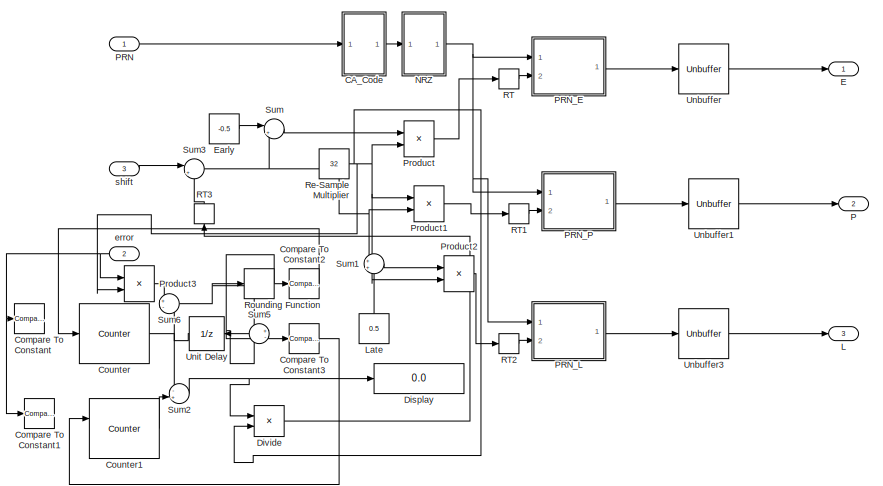
[diagram: Tracking Loop/Tracking Loops/Tracking Loop2/PRN Generator  - part 1/2, top left region]
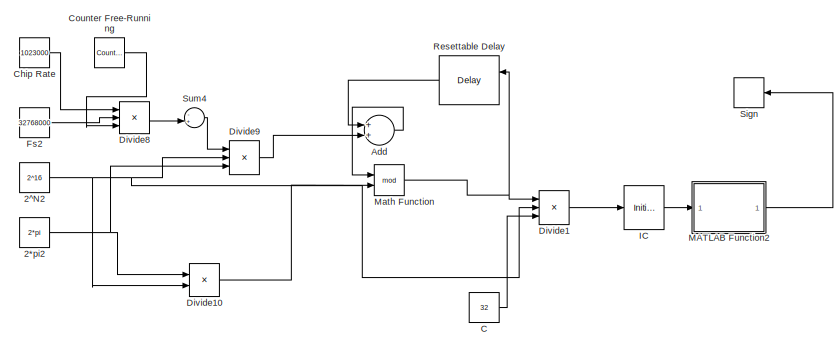
[diagram: Tracking Loop/Tracking Loops/Tracking Loop2/PRN Generator  - part 2/2, bottom right region]
BLOCK [SubSystem] Tracking Loop/Tracking Loops/Tracking Loop2/PRN Generator 
  Ports = [3, 3]
  RequestExecContextInheritance = off
  Variant = off
BLOCK [Constant] Tracking Loop/Tracking Loops/Tracking Loop2/PRN Generator /2*pi2
  Commented = on
  Value = 2*pi
BLOCK [Constant] Tracking Loop/Tracking Loops/Tracking Loop2/PRN Generator /2^N2
  Commented = on
  Value = 2^16
BLOCK [Sum] Tracking Loop/Tracking Loops/Tracking Loop2/PRN Generator /Add
  Commented = on
  InputSameDT = off
  OutDataTypeStr = Inherit: Inherit via internal rule
  Ports = [2, 1]
  SaturateOnIntegerOverflow = off
BLOCK [Constant] Tracking Loop/Tracking Loops/Tracking Loop2/PRN Generator /C
  Commented = on
  Value = 32
BLOCK [SubSystem] Tracking Loop/Tracking Loops/Tracking Loop2/PRN Generator /CA_Code 
  Ports = [1, 1]
  RequestExecContextInheritance = off
  Variant = off
BLOCK [SubSystem] Tracking Loop/Tracking Loops/Tracking Loop2/PRN Generator /CA_Code /CA_Code
  ErrorFcn = Stateflow.Translate.translate
  PermitHierarchicalResolution = ExplicitOnly
  Ports = [2, 1]
  RequestExecContextInheritance = off
  SFBlockType = MATLAB Function
  SystemSampleTime = 0.001
  TreatAsAtomicUnit = on
  Variant = off
BLOCK [Demux] Tracking Loop/Tracking Loops/Tracking Loop2/PRN Generator /CA_Code /CA_Code/ Demux 
  Outputs = 1
  Ports = [1, 1]
BLOCK [S-Function] Tracking Loop/Tracking Loops/Tracking Loop2/PRN Generator /CA_Code /CA_Code/ SFunction 
  EnableBusSupport = on
  FunctionName = sf_sfun
  PortCounts = [2 2]
  Ports = [2, 2]
  SFcnIsStateOwnerBlock = off
  SFunctionDeploymentMode = off
  Tag = Stateflow S-Function Acquisition_from_autosave 10
BLOCK [Terminator] Tracking Loop/Tracking Loops/Tracking Loop2/PRN Generator /CA_Code /CA_Code/ Terminator 
BLOCK [Inport] Tracking Loop/Tracking Loops/Tracking Loop2/PRN Generator /CA_Code /CA_Code/fs
  IconDisplay = Port number
  Port = 2
BLOCK [Outport] Tracking Loop/Tracking Loops/Tracking Loop2/PRN Generator /CA_Code /CA_Code/g
  IconDisplay = Port number
BLOCK [Inport] Tracking Loop/Tracking Loops/Tracking Loop2/PRN Generator /CA_Code /CA_Code/sv
  IconDisplay = Port number
BLOCK [Constant] Tracking Loop/Tracking Loops/Tracking Loop2/PRN Generator /CA_Code /Constant1
  Value = 32
BLOCK [Inport] Tracking Loop/Tracking Loops/Tracking Loop2/PRN Generator /CA_Code /In1
  IconDisplay = Port number
BLOCK [Outport] Tracking Loop/Tracking Loops/Tracking Loop2/PRN Generator /CA_Code /Out1
  IconDisplay = Port number
BLOCK [RateTransition] Tracking Loop/Tracking Loops/Tracking Loop2/PRN Generator /CA_Code /RT
  OutPortSampleTime = 0.001
BLOCK [Reshape] Tracking Loop/Tracking Loops/Tracking Loop2/PRN Generator /CA_Code /Reshape
  OutputDimensionality = Column vector (2-D)
  Ports = [1, 1]
BLOCK [Constant] Tracking Loop/Tracking Loops/Tracking Loop2/PRN Generator /Chip Rate
  Commented = on
  Value = 1023000
BLOCK [Reference] Tracking Loop/Tracking Loops/Tracking Loop2/PRN Generator /Compare To Constant  REF=simulink/Logic and Bit
Operations/Compare
To Constant
  Ports = [1, 1]
  SourceBlock = simulink/Logic and Bit\nOperations/Compare\nTo Constant
  SourceProductBaseCode = SL
  SourceProductName = Simulink
  SourceType = Compare To Constant
BLOCK [Reference] Tracking Loop/Tracking Loops/Tracking Loop2/PRN Generator /Compare To Constant1  REF=simulink/Logic and Bit
Operations/Compare
To Constant
  Ports = [1, 1]
  SourceBlock = simulink/Logic and Bit\nOperations/Compare\nTo Constant
  SourceProductBaseCode = SL
  SourceProductName = Simulink
  SourceType = Compare To Constant
BLOCK [Reference] Tracking Loop/Tracking Loops/Tracking Loop2/PRN Generator /Compare To Constant2  REF=simulink/Logic and Bit
Operations/Compare
To Constant
  Ports = [1, 1]
  SourceBlock = simulink/Logic and Bit\nOperations/Compare\nTo Constant
  SourceProductBaseCode = SL
  SourceProductName = Simulink
  SourceType = Compare To Constant
BLOCK [Reference] Tracking Loop/Tracking Loops/Tracking Loop2/PRN Generator /Compare To Constant3  REF=simulink/Logic and Bit
Operations/Compare
To Constant
  Ports = [1, 1]
  SourceBlock = simulink/Logic and Bit\nOperations/Compare\nTo Constant
  SourceProductBaseCode = SL
  SourceProductName = Simulink
  SourceType = Compare To Constant
BLOCK [Reference] Tracking Loop/Tracking Loops/Tracking Loop2/PRN Generator /Counter  REF=dspswit3/Counter
  Ports = [1, 1]
  SourceBlock = dspswit3/Counter
  SourceProductBaseCode = DS
  SourceProductName = DSP System Toolbox
  SourceType = Counter
BLOCK [Reference] Tracking Loop/Tracking Loops/Tracking Loop2/PRN Generator /Counter Free-Running  REF=simulink/Sources/Counter
Free-Running
  Commented = on
  Ports = [0, 1]
  SourceBlock = simulink/Sources/Counter\nFree-Running
  SourceProductBaseCode = SL
  SourceProductName = Simulink
  SourceType = Counter Free-Running
BLOCK [Reference] Tracking Loop/Tracking Loops/Tracking Loop2/PRN Generator /Counter1  REF=dspswit3/Counter
  Ports = [2, 1]
  SourceBlock = dspswit3/Counter
  SourceProductBaseCode = DS
  SourceProductName = DSP System Toolbox
  SourceType = Counter
BLOCK [Display] Tracking Loop/Tracking Loops/Tracking Loop2/PRN Generator /Display
  Decimation = 1
  Ports = [1]
BLOCK [Product] Tracking Loop/Tracking Loops/Tracking Loop2/PRN Generator /Divide
  InputSameDT = off
  Inputs = */
  OutDataTypeStr = Inherit: Inherit via internal rule
  Ports = [2, 1]
  RndMeth = Floor
  SaturateOnIntegerOverflow = off
BLOCK [Product] Tracking Loop/Tracking Loops/Tracking Loop2/PRN Generator /Divide1
  Commented = on
  InputSameDT = off
  Inputs = */*
  OutDataTypeStr = Inherit: Inherit via internal rule
  Ports = [3, 1]
  RndMeth = Floor
  SaturateOnIntegerOverflow = off
BLOCK [Product] Tracking Loop/Tracking Loops/Tracking Loop2/PRN Generator /Divide10
  Commented = on
  InputSameDT = off
  OutDataTypeStr = Inherit: Inherit via internal rule
  Ports = [2, 1]
  RndMeth = Floor
  SaturateOnIntegerOverflow = off
BLOCK [Product] Tracking Loop/Tracking Loops/Tracking Loop2/PRN Generator /Divide8
  Commented = on
  InputSameDT = off
  Inputs = */*
  OutDataTypeStr = Inherit: Inherit via internal rule
  Ports = [3, 1]
  RndMeth = Floor
  SaturateOnIntegerOverflow = off
BLOCK [Product] Tracking Loop/Tracking Loops/Tracking Loop2/PRN Generator /Divide9
  Commented = on
  InputSameDT = off
  Inputs = ***
  OutDataTypeStr = Inherit: Inherit via internal rule
  Ports = [3, 1]
  RndMeth = Floor
  SaturateOnIntegerOverflow = off
BLOCK [Outport] Tracking Loop/Tracking Loops/Tracking Loop2/PRN Generator /E
  IconDisplay = Port number
BLOCK [Constant] Tracking Loop/Tracking Loops/Tracking Loop2/PRN Generator /Early
  Value = -0.5
BLOCK [Constant] Tracking Loop/Tracking Loops/Tracking Loop2/PRN Generator /Fs2
  Commented = on
  Value = 32768000
BLOCK [InitialCondition] Tracking Loop/Tracking Loops/Tracking Loop2/PRN Generator /IC
  Commented = on
  Value = 1023000
BLOCK [Outport] Tracking Loop/Tracking Loops/Tracking Loop2/PRN Generator /L
  IconDisplay = Port number
  Port = 3
BLOCK [Constant] Tracking Loop/Tracking Loops/Tracking Loop2/PRN Generator /Late
  Value = 0.5
BLOCK [SubSystem] Tracking Loop/Tracking Loops/Tracking Loop2/PRN Generator /MATLAB Function2
  Commented = on
  ErrorFcn = Stateflow.Translate.translate
  PermitHierarchicalResolution = ExplicitOnly
  Ports = [1, 1]
  RequestExecContextInheritance = off
  SFBlockType = MATLAB Function
  TreatAsAtomicUnit = on
  Variant = off
BLOCK [Demux] Tracking Loop/Tracking Loops/Tracking Loop2/PRN Generator /MATLAB Function2/ Demux 
  Outputs = 1
  Ports = [1, 1]
BLOCK [S-Function] Tracking Loop/Tracking Loops/Tracking Loop2/PRN Generator /MATLAB Function2/ SFunction 
  EnableBusSupport = on
  FunctionName = sf_sfun
  PortCounts = [1 2]
  Ports = [1, 2]
  SFcnIsStateOwnerBlock = off
  SFunctionDeploymentMode = off
  Tag = Stateflow S-Function Acquisition_from_autosave 14
BLOCK [Terminator] Tracking Loop/Tracking Loops/Tracking Loop2/PRN Generator /MATLAB Function2/ Terminator 
BLOCK [Outport] Tracking Loop/Tracking Loops/Tracking Loop2/PRN Generator /MATLAB Function2/I
  IconDisplay = Port number
BLOCK [Inport] Tracking Loop/Tracking Loops/Tracking Loop2/PRN Generator /MATLAB Function2/u
  IconDisplay = Port number
BLOCK [Math] Tracking Loop/Tracking Loops/Tracking Loop2/PRN Generator /Math Function
  Commented = on
  Operator = mod
  Ports = [2, 1]
BLOCK [SubSystem] Tracking Loop/Tracking Loops/Tracking Loop2/PRN Generator /NRZ
  Ports = [1, 1]
  RequestExecContextInheritance = off
  Variant = off
BLOCK [Constant] Tracking Loop/Tracking Loops/Tracking Loop2/PRN Generator /NRZ/Constant5
  SampleTime = -1
  Value = 2
BLOCK [Constant] Tracking Loop/Tracking Loops/Tracking Loop2/PRN Generator /NRZ/Constant6
  Value = -1
BLOCK [Inport] Tracking Loop/Tracking Loops/Tracking Loop2/PRN Generator /NRZ/In1
  IconDisplay = Port number
BLOCK [Outport] Tracking Loop/Tracking Loops/Tracking Loop2/PRN Generator /NRZ/Out1
  IconDisplay = Port number
BLOCK [Product] Tracking Loop/Tracking Loops/Tracking Loop2/PRN Generator /NRZ/Product4
  InputSameDT = off
  OutDataTypeStr = Inherit: Inherit via internal rule
  Ports = [2, 1]
  RndMeth = Floor
  SaturateOnIntegerOverflow = off
BLOCK [Sum] Tracking Loop/Tracking Loops/Tracking Loop2/PRN Generator /NRZ/Sum4
  IconShape = round
  InputSameDT = off
  Inputs = |++
  OutDataTypeStr = Inherit: Inherit via internal rule
  Ports = [2, 1]
  SaturateOnIntegerOverflow = off
BLOCK [Outport] Tracking Loop/Tracking Loops/Tracking Loop2/PRN Generator /P
  IconDisplay = Port number
  Port = 2
BLOCK [Inport] Tracking Loop/Tracking Loops/Tracking Loop2/PRN Generator /PRN
  IconDisplay = Port number
BLOCK [SubSystem] Tracking Loop/Tracking Loops/Tracking Loop2/PRN Generator /PRN_E
  ErrorFcn = Stateflow.Translate.translate
  PermitHierarchicalResolution = ExplicitOnly
  Ports = [2, 1]
  RequestExecContextInheritance = off
  SFBlockType = MATLAB Function
  SystemSampleTime = 0.001
  TreatAsAtomicUnit = on
  Variant = off
BLOCK [Demux] Tracking Loop/Tracking Loops/Tracking Loop2/PRN Generator /PRN_E/ Demux 
  Outputs = 1
  Ports = [1, 1]
BLOCK [S-Function] Tracking Loop/Tracking Loops/Tracking Loop2/PRN Generator /PRN_E/ SFunction 
  EnableBusSupport = on
  FunctionName = sf_sfun
  PortCounts = [2 2]
  Ports = [2, 2]
  SFcnIsStateOwnerBlock = off
  SFunctionDeploymentMode = off
  Tag = Stateflow S-Function Acquisition_from_autosave 19
BLOCK [Terminator] Tracking Loop/Tracking Loops/Tracking Loop2/PRN Generator /PRN_E/ Terminator 
BLOCK [Inport] Tracking Loop/Tracking Loops/Tracking Loop2/PRN Generator /PRN_E/array
  IconDisplay = Port number
BLOCK [Inport] Tracking Loop/Tracking Loops/Tracking Loop2/PRN Generator /PRN_E/shift
  IconDisplay = Port number
  Port = 2
BLOCK [Outport] Tracking Loop/Tracking Loops/Tracking Loop2/PRN Generator /PRN_E/y
  IconDisplay = Port number
BLOCK [SubSystem] Tracking Loop/Tracking Loops/Tracking Loop2/PRN Generator /PRN_L
  ErrorFcn = Stateflow.Translate.translate
  PermitHierarchicalResolution = ExplicitOnly
  Ports = [2, 1]
  RequestExecContextInheritance = off
  SFBlockType = MATLAB Function
  SystemSampleTime = 0.001
  TreatAsAtomicUnit = on
  Variant = off
BLOCK [Demux] Tracking Loop/Tracking Loops/Tracking Loop2/PRN Generator /PRN_L/ Demux 
  Outputs = 1
  Ports = [1, 1]
BLOCK [S-Function] Tracking Loop/Tracking Loops/Tracking Loop2/PRN Generator /PRN_L/ SFunction 
  EnableBusSupport = on
  FunctionName = sf_sfun
  PortCounts = [2 2]
  Ports = [2, 2]
  SFcnIsStateOwnerBlock = off
  SFunctionDeploymentMode = off
  Tag = Stateflow S-Function Acquisition_from_autosave 20
BLOCK [Terminator] Tracking Loop/Tracking Loops/Tracking Loop2/PRN Generator /PRN_L/ Terminator 
BLOCK [Inport] Tracking Loop/Tracking Loops/Tracking Loop2/PRN Generator /PRN_L/array
  IconDisplay = Port number
BLOCK [Inport] Tracking Loop/Tracking Loops/Tracking Loop2/PRN Generator /PRN_L/shift
  IconDisplay = Port number
  Port = 2
BLOCK [Outport] Tracking Loop/Tracking Loops/Tracking Loop2/PRN Generator /PRN_L/y
  IconDisplay = Port number
BLOCK [SubSystem] Tracking Loop/Tracking Loops/Tracking Loop2/PRN Generator /PRN_P
  ErrorFcn = Stateflow.Translate.translate
  PermitHierarchicalResolution = ExplicitOnly
  Ports = [2, 1]
  RequestExecContextInheritance = off
  SFBlockType = MATLAB Function
  SystemSampleTime = 0.001
  TreatAsAtomicUnit = on
  Variant = off
BLOCK [Demux] Tracking Loop/Tracking Loops/Tracking Loop2/PRN Generator /PRN_P/ Demux 
  Outputs = 1
  Ports = [1, 1]
BLOCK [S-Function] Tracking Loop/Tracking Loops/Tracking Loop2/PRN Generator /PRN_P/ SFunction 
  EnableBusSupport = on
  FunctionName = sf_sfun
  PortCounts = [2 2]
  Ports = [2, 2]
  SFcnIsStateOwnerBlock = off
  SFunctionDeploymentMode = off
  Tag = Stateflow S-Function Acquisition_from_autosave 25
BLOCK [Terminator] Tracking Loop/Tracking Loops/Tracking Loop2/PRN Generator /PRN_P/ Terminator 
BLOCK [Inport] Tracking Loop/Tracking Loops/Tracking Loop2/PRN Generator /PRN_P/array
  IconDisplay = Port number
BLOCK [Inport] Tracking Loop/Tracking Loops/Tracking Loop2/PRN Generator /PRN_P/shift
  IconDisplay = Port number
  Port = 2
BLOCK [Outport] Tracking Loop/Tracking Loops/Tracking Loop2/PRN Generator /PRN_P/y
  IconDisplay = Port number
BLOCK [Product] Tracking Loop/Tracking Loops/Tracking Loop2/PRN Generator /Product
  InputSameDT = off
  OutDataTypeStr = Inherit: Inherit via internal rule
  Ports = [2, 1]
  RndMeth = Floor
  SaturateOnIntegerOverflow = off
BLOCK [Product] Tracking Loop/Tracking Loops/Tracking Loop2/PRN Generator /Product1
  InputSameDT = off
  OutDataTypeStr = Inherit: Inherit via internal rule
  Ports = [2, 1]
  RndMeth = Floor
  SaturateOnIntegerOverflow = off
BLOCK [Product] Tracking Loop/Tracking Loops/Tracking Loop2/PRN Generator /Product2
  InputSameDT = off
  OutDataTypeStr = Inherit: Inherit via internal rule
  Ports = [2, 1]
  RndMeth = Floor
  SaturateOnIntegerOverflow = off
BLOCK [Product] Tracking Loop/Tracking Loops/Tracking Loop2/PRN Generator /Product3
  InputSameDT = off
  OutDataTypeStr = Inherit: Inherit via internal rule
  Ports = [2, 1]
  RndMeth = Floor
  SaturateOnIntegerOverflow = off
BLOCK [RateTransition] Tracking Loop/Tracking Loops/Tracking Loop2/PRN Generator /RT
  OutPortSampleTime = 0.001
BLOCK [RateTransition] Tracking Loop/Tracking Loops/Tracking Loop2/PRN Generator /RT1
  OutPortSampleTime = 0.001
BLOCK [RateTransition] Tracking Loop/Tracking Loops/Tracking Loop2/PRN Generator /RT2
  OutPortSampleTime = 0.001
BLOCK [RateTransition] Tracking Loop/Tracking Loops/Tracking Loop2/PRN Generator /RT3
BLOCK [Constant] Tracking Loop/Tracking Loops/Tracking Loop2/PRN Generator /Re-Sample Multiplier
  Value = 32
BLOCK [Delay] Tracking Loop/Tracking Loops/Tracking Loop2/PRN Generator /Resettable Delay
  Commented = on
  DelayLength = 1
  ExternalReset = Rising
  InputPortMap = u0,r5
  Ports = [2, 1]
  SampleTime = 0.001
BLOCK [Rounding] Tracking Loop/Tracking Loops/Tracking Loop2/PRN Generator /Rounding Function
  Operator = round
BLOCK [Signum] Tracking Loop/Tracking Loops/Tracking Loop2/PRN Generator /Sign
  Commented = on
BLOCK [Sum] Tracking Loop/Tracking Loops/Tracking Loop2/PRN Generator /Sum
  IconShape = round
  InputSameDT = off
  Inputs = |++
  OutDataTypeStr = Inherit: Inherit via internal rule
  Ports = [2, 1]
  SaturateOnIntegerOverflow = off
BLOCK [Sum] Tracking Loop/Tracking Loops/Tracking Loop2/PRN Generator /Sum1
  IconShape = round
  InputSameDT = off
  OutDataTypeStr = Inherit: Inherit via internal rule
  Ports = [2, 1]
  SaturateOnIntegerOverflow = off
BLOCK [Sum] Tracking Loop/Tracking Loops/Tracking Loop2/PRN Generator /Sum2
  IconShape = round
  InputSameDT = off
  Inputs = -+
  OutDataTypeStr = Inherit: Inherit via internal rule
  Ports = [2, 1]
  SaturateOnIntegerOverflow = off
BLOCK [Sum] Tracking Loop/Tracking Loops/Tracking Loop2/PRN Generator /Sum3
  IconShape = round
  InputSameDT = off
  Inputs = |++
  OutDataTypeStr = Inherit: Inherit via internal rule
  Ports = [2, 1]
  SaturateOnIntegerOverflow = off
BLOCK [Sum] Tracking Loop/Tracking Loops/Tracking Loop2/PRN Generator /Sum4
  Commented = on
  IconShape = round
  InputSameDT = off
  Inputs = -+|
  OutDataTypeStr = Inherit: Inherit via internal rule
  Ports = [2, 1]
  SaturateOnIntegerOverflow = off
BLOCK [Sum] Tracking Loop/Tracking Loops/Tracking Loop2/PRN Generator /Sum5
  IconShape = round
  InputSameDT = off
  Inputs = +-
  OutDataTypeStr = Inherit: Inherit via internal rule
  Ports = [2, 1]
  SaturateOnIntegerOverflow = off
BLOCK [Sum] Tracking Loop/Tracking Loops/Tracking Loop2/PRN Generator /Sum6
  IconShape = round
  InputSameDT = off
  Inputs = +-
  OutDataTypeStr = Inherit: Inherit via internal rule
  Ports = [2, 1]
  SaturateOnIntegerOverflow = off
BLOCK [Unbuffer] Tracking Loop/Tracking Loops/Tracking Loop2/PRN Generator /Unbuffer
  Ports = [1, 1]
BLOCK [Unbuffer] Tracking Loop/Tracking Loops/Tracking Loop2/PRN Generator /Unbuffer1
  Ports = [1, 1]
BLOCK [Unbuffer] Tracking Loop/Tracking Loops/Tracking Loop2/PRN Generator /Unbuffer3
  Ports = [1, 1]
BLOCK [UnitDelay] Tracking Loop/Tracking Loops/Tracking Loop2/PRN Generator /Unit Delay
  InputProcessing = Elements as channels (sample based)
  SampleTime = 0.001
BLOCK [Inport] Tracking Loop/Tracking Loops/Tracking Loop2/PRN Generator /error
  IconDisplay = Port number
  Port = 2
  SampleTime = 0.001
BLOCK [Inport] Tracking Loop/Tracking Loops/Tracking Loop2/PRN Generator /shift
  IconDisplay = Port number
  Port = 3
BLOCK [Product] Tracking Loop/Tracking Loops/Tracking Loop2/Product
  InputSameDT = off
  OutDataTypeStr = Inherit: Inherit via internal rule
  Ports = [2, 1]
  RndMeth = Floor
  SaturateOnIntegerOverflow = off
BLOCK [Product] Tracking Loop/Tracking Loops/Tracking Loop2/Product1
  InputSameDT = off
  OutDataTypeStr = Inherit: Inherit via internal rule
  Ports = [2, 1]
  RndMeth = Floor
  SaturateOnIntegerOverflow = off
BLOCK [Product] Tracking Loop/Tracking Loops/Tracking Loop2/Q_E
  InputSameDT = off
  OutDataTypeStr = Inherit: Inherit via internal rule
  Ports = [2, 1]
  RndMeth = Floor
  SaturateOnIntegerOverflow = off
BLOCK [Product] Tracking Loop/Tracking Loops/Tracking Loop2/Q_L
  InputSameDT = off
  OutDataTypeStr = Inherit: Inherit via internal rule
  Ports = [2, 1]
  RndMeth = Floor
  SaturateOnIntegerOverflow = off
BLOCK [Product] Tracking Loop/Tracking Loops/Tracking Loop2/Q_P
  InputSameDT = off
  OutDataTypeStr = Inherit: Inherit via internal rule
  Ports = [2, 1]
  RndMeth = Floor
  SaturateOnIntegerOverflow = off
BLOCK [RateTransition] Tracking Loop/Tracking Loops/Tracking Loop2/RT
BLOCK [RateTransition] Tracking Loop/Tracking Loops/Tracking Loop2/RT1
BLOCK [RateTransition] Tracking Loop/Tracking Loops/Tracking Loop2/Rate Transition
  OutPortSampleTime = 3.0517578125e-8
BLOCK [RateTransition] Tracking Loop/Tracking Loops/Tracking Loop2/Rate Transition1
  OutPortSampleTime = 3.0517578125e-8
BLOCK [RateTransition] Tracking Loop/Tracking Loops/Tracking Loop2/Rate Transition2
  OutPortSampleTime = 3.0517578125e-8
BLOCK [RateTransition] Tracking Loop/Tracking Loops/Tracking Loop2/Rate Transition3
  OutPortSampleTime = 3.0517578125e-8
BLOCK [RateTransition] Tracking Loop/Tracking Loops/Tracking Loop2/Rate Transition4
  OutPortSampleTime = 3.0517578125e-8
BLOCK [RateTransition] Tracking Loop/Tracking Loops/Tracking Loop2/Rate Transition5
  OutPortSampleTime = 3.0517578125e-8
BLOCK [Scope] Tracking Loop/Tracking Loops/Tracking Loop2/Scope
  NumInputPorts = 3
  Ports = [3]
  ScopeSpecificationString = Simulink.scopes.TimeScopeBlockCfg('CurrentConfiguration', extmgr.ConfigurationSet(extmgr.Configuration('Core','General UI',true),extmgr.Configuration('Core','Source UI',true),extmgr.Configuration('Sources','WiredSimulink',true,'DataLoggingVariableName','ScopeData1'),extmgr.Configuration('Visuals','Time Domain',true,'SerializedDisplays',{struct('MinYLimReal','-20478.62716','MaxYLimReal','20286.0114...<+1548ch>  <repeated x4 — deduplicated; at blocks: Scope>
BLOCK [Scope] Tracking Loop/Tracking Loops/Tracking Loop2/Scope1
  NumInputPorts = 3
  Ports = [3]
  ScopeSpecificationString = Simulink.scopes.TimeScopeBlockCfg('CurrentConfiguration', extmgr.ConfigurationSet(extmgr.Configuration('Core','General UI',true),extmgr.Configuration('Core','Source UI',true),extmgr.Configuration('Sources','WiredSimulink',true,'DataLoggingVariableName','ScopeData1'),extmgr.Configuration('Visuals','Time Domain',true,'SerializedDisplays',{struct('MinYLimReal','-1.25','MaxYLimReal','1.25','YLabelReal...<+1568ch>  <repeated x4 — deduplicated; at blocks: Scope1>
BLOCK [Scope] Tracking Loop/Tracking Loops/Tracking Loop2/Scope2
  NumInputPorts = 3
  Ports = [3]
  ScopeSpecificationString = Simulink.scopes.TimeScopeBlockCfg('CurrentConfiguration', extmgr.ConfigurationSet(extmgr.Configuration('Core','General UI',true),extmgr.Configuration('Core','Source UI',true),extmgr.Configuration('Sources','WiredSimulink',true,'DataLoggingVariableName','ScopeData1'),extmgr.Configuration('Visuals','Time Domain',true,'SerializedDisplays',{struct('MinYLimReal','-1.25','MaxYLimReal','1.25','YLabelReal...<+1461ch>  <repeated x4 — deduplicated; at blocks: Scope2>
BLOCK [ZeroOrderHold] Tracking Loop/Tracking Loops/Tracking Loop2/Zero-Order Hold
  SampleTime = 3.0517578125e-8
BLOCK [ZeroOrderHold] Tracking Loop/Tracking Loops/Tracking Loop2/Zero-Order Hold1
  SampleTime = 3.0517578125e-8
BLOCK [Outport] Tracking Loop/Tracking Loops/Tracking Loop2/code_phase_error
  IconDisplay = Port number
  Port = 3
BLOCK [Outport] Tracking Loop/Tracking Loops/Tracking Loop2/filter error
  IconDisplay = Port number
  Port = 2
BLOCK [SubSystem] Tracking Loop/Tracking Loops/Tracking Loop3
  MinAlgLoopOccurrences = on
  Ports = [4, 3]
  RequestExecContextInheritance = off
  TreatAsAtomicUnit = on
  Variant = off
BLOCK [SubSystem] Tracking Loop/Tracking Loops/Tracking Loop3/Carrier Filter
  Ports = [1, 1]
  RequestExecContextInheritance = off
  Variant = off
BLOCK [Sum] Tracking Loop/Tracking Loops/Tracking Loop3/Carrier Filter/Add
  InputSameDT = off
  OutDataTypeStr = Inherit: Inherit via internal rule
  Ports = [2, 1]
  SaturateOnIntegerOverflow = off
BLOCK [Constant] Tracking Loop/Tracking Loops/Tracking Loop3/Carrier Filter/Constant
  Value = 0.001
BLOCK [Constant] Tracking Loop/Tracking Loops/Tracking Loop3/Carrier Filter/Constant1
  Value = -1
BLOCK [Constant] Tracking Loop/Tracking Loops/Tracking Loop3/Carrier Filter/Constant2
BLOCK [Constant] Tracking Loop/Tracking Loops/Tracking Loop3/Carrier Filter/Constant3
  Value = -1
BLOCK [Delay] Tracking Loop/Tracking Loops/Tracking Loop3/Carrier Filter/Delay
  DelayLength = 1
  InitialCondition = 0
  InputPortMap = u0
  Ports = [1, 1]
  SampleTime = 0.001
BLOCK [DiscreteFir] Tracking Loop/Tracking Loops/Tracking Loop3/Carrier Filter/Discrete FIR Filter
  CoefSource = Input port
  Coefficients = [2 1]
  InputPortMap = u0,u1
  OutputPortMap = o0
  Ports = [2, 1]
  SampleTime = 0.001
BLOCK [DiscreteFilter] Tracking Loop/Tracking Loops/Tracking Loop3/Carrier Filter/Discrete Filter
  DenominatorSource = Input port
  InputPortMap = u0,p1,p3
  NumeratorSource = Input port
  Ports = [3, 1]
  SampleTime = 0.001
  a0EqualsOne = on
BLOCK [SubSystem] Tracking Loop/Tracking Loops/Tracking Loop3/Carrier Filter/Filter Parameters
  Ports = [0, 2]
  RequestExecContextInheritance = off
  Variant = off
BLOCK [Constant] Tracking Loop/Tracking Loops/Tracking Loop3/Carrier Filter/Filter Parameters/BW
  Value = 25
BLOCK [Constant] Tracking Loop/Tracking Loops/Tracking Loop3/Carrier Filter/Filter Parameters/Constant
  Value = 8
BLOCK [Constant] Tracking Loop/Tracking Loops/Tracking Loop3/Carrier Filter/Filter Parameters/Constant1
  Value = 4
BLOCK [Constant] Tracking Loop/Tracking Loops/Tracking Loop3/Carrier Filter/Filter Parameters/Constant2
BLOCK [Constant] Tracking Loop/Tracking Loops/Tracking Loop3/Carrier Filter/Filter Parameters/Constant3
  Value = 2
BLOCK [Constant] Tracking Loop/Tracking Loops/Tracking Loop3/Carrier Filter/Filter Parameters/Damping
  Value = 0.707
BLOCK [Product] Tracking Loop/Tracking Loops/Tracking Loop3/Carrier Filter/Filter Parameters/Divide
  InputSameDT = off
  Inputs = */
  OutDataTypeStr = Inherit: Inherit via internal rule
  Ports = [2, 1]
  RndMeth = Floor
  SaturateOnIntegerOverflow = off
BLOCK [Product] Tracking Loop/Tracking Loops/Tracking Loop3/Carrier Filter/Filter Parameters/Gain 1
  InputSameDT = off
  Inputs = ***/
  OutDataTypeStr = Inherit: Inherit via internal rule
  Ports = [4, 1]
  RndMeth = Floor
  SaturateOnIntegerOverflow = off
BLOCK [Product] Tracking Loop/Tracking Loops/Tracking Loop3/Carrier Filter/Filter Parameters/Gain 2
  InputSameDT = off
  Inputs = **/
  OutDataTypeStr = Inherit: Inherit via internal rule
  Ports = [3, 1]
  RndMeth = Floor
  SaturateOnIntegerOverflow = off
BLOCK [Constant] Tracking Loop/Tracking Loops/Tracking Loop3/Carrier Filter/Filter Parameters/K
BLOCK [Outport] Tracking Loop/Tracking Loops/Tracking Loop3/Carrier Filter/Filter Parameters/K1
  IconDisplay = Port number
BLOCK [Outport] Tracking Loop/Tracking Loops/Tracking Loop3/Carrier Filter/Filter Parameters/K2
  IconDisplay = Port number
  Port = 2
BLOCK [Product] Tracking Loop/Tracking Loops/Tracking Loop3/Carrier Filter/Filter Parameters/Product
  InputSameDT = off
  Inputs = 3
  OutDataTypeStr = Inherit: Inherit via internal rule
  Ports = [3, 1]
  RndMeth = Floor
  SaturateOnIntegerOverflow = off
BLOCK [Product] Tracking Loop/Tracking Loops/Tracking Loop3/Carrier Filter/Filter Parameters/Product1
  InputSameDT = off
  Inputs = 3
  OutDataTypeStr = Inherit: Inherit via internal rule
  Ports = [3, 1]
  RndMeth = Floor
  SaturateOnIntegerOverflow = off
BLOCK [Sum] Tracking Loop/Tracking Loops/Tracking Loop3/Carrier Filter/Filter Parameters/Sum
  IconShape = round
  InputSameDT = off
  Inputs = |++
  OutDataTypeStr = Inherit: Inherit via internal rule
  Ports = [2, 1]
  SaturateOnIntegerOverflow = off
BLOCK [Inport] Tracking Loop/Tracking Loops/Tracking Loop3/Carrier Filter/In2
  IconDisplay = Port number
BLOCK [Outport] Tracking Loop/Tracking Loops/Tracking Loop3/Carrier Filter/Out1
  IconDisplay = Port number
BLOCK [Product] Tracking Loop/Tracking Loops/Tracking Loop3/Carrier Filter/Product
  InputSameDT = off
  OutDataTypeStr = Inherit: Inherit via internal rule
  Ports = [2, 1]
  RndMeth = Floor
  SaturateOnIntegerOverflow = off
BLOCK [Product] Tracking Loop/Tracking Loops/Tracking Loop3/Carrier Filter/Product1
  InputSameDT = off
  Inputs = 3
  OutDataTypeStr = Inherit: Inherit via internal rule
  Ports = [3, 1]
  RndMeth = Floor
  SaturateOnIntegerOverflow = off
BLOCK [Product] Tracking Loop/Tracking Loops/Tracking Loop3/Carrier Filter/Product2
  InputSameDT = off
  OutDataTypeStr = Inherit: Inherit via internal rule
  Ports = [2, 1]
  RndMeth = Floor
  SaturateOnIntegerOverflow = off
BLOCK [Product] Tracking Loop/Tracking Loops/Tracking Loop3/Carrier Filter/Product3
  InputSameDT = off
  OutDataTypeStr = Inherit: Inherit via internal rule
  Ports = [2, 1]
  RndMeth = Floor
  SaturateOnIntegerOverflow = off
BLOCK [Product] Tracking Loop/Tracking Loops/Tracking Loop3/Carrier Filter/Product4
  InputSameDT = off
  OutDataTypeStr = Inherit: Inherit via internal rule
  Ports = [2, 1]
  RndMeth = Floor
  SaturateOnIntegerOverflow = off
BLOCK [SubSystem] Tracking Loop/Tracking Loops/Tracking Loop3/Carrier Filter/Subsystem
  Ports = [0, 2]
  RequestExecContextInheritance = off
  Variant = off
BLOCK [Constant] Tracking Loop/Tracking Loops/Tracking Loop3/Carrier Filter/Subsystem/BW
  Value = 30
BLOCK [SubSystem] Tracking Loop/Tracking Loops/Tracking Loop3/Carrier Filter/Subsystem/C1
  Ports = [11, 1]
  RequestExecContextInheritance = off
  Variant = off
BLOCK [Sum] Tracking Loop/Tracking Loops/Tracking Loop3/Carrier Filter/Subsystem/C1/Add1
  InputSameDT = off
  Inputs = +++
  OutDataTypeStr = Inherit: Inherit via internal rule
  Ports = [3, 1]
  SaturateOnIntegerOverflow = off
BLOCK [Product] Tracking Loop/Tracking Loops/Tracking Loop3/Carrier Filter/Subsystem/C1/Gain 3
  InputSameDT = off
  Inputs = ***/
  OutDataTypeStr = Inherit: Inherit via internal rule
  Ports = [4, 1]
  RndMeth = Floor
  SaturateOnIntegerOverflow = off
BLOCK [Product] Tracking Loop/Tracking Loops/Tracking Loop3/Carrier Filter/Subsystem/C1/Gain 4
  InputSameDT = off
  Inputs = ***
  OutDataTypeStr = Inherit: Inherit via internal rule
  Ports = [3, 1]
  RndMeth = Floor
  SaturateOnIntegerOverflow = off
BLOCK [Inport] Tracking Loop/Tracking Loops/Tracking Loop3/Carrier Filter/Subsystem/C1/In1
  IconDisplay = Port number
BLOCK [Inport] Tracking Loop/Tracking Loops/Tracking Loop3/Carrier Filter/Subsystem/C1/In10
  IconDisplay = Port number
  Port = 10
BLOCK [Inport] Tracking Loop/Tracking Loops/Tracking Loop3/Carrier Filter/Subsystem/C1/In11
  IconDisplay = Port number
  Port = 11
BLOCK [Inport] Tracking Loop/Tracking Loops/Tracking Loop3/Carrier Filter/Subsystem/C1/In2
  IconDisplay = Port number
  Port = 2
BLOCK [Inport] Tracking Loop/Tracking Loops/Tracking Loop3/Carrier Filter/Subsystem/C1/In3
  IconDisplay = Port number
  Port = 3
BLOCK [Inport] Tracking Loop/Tracking Loops/Tracking Loop3/Carrier Filter/Subsystem/C1/In4
  IconDisplay = Port number
  Port = 4
BLOCK [Inport] Tracking Loop/Tracking Loops/Tracking Loop3/Carrier Filter/Subsystem/C1/In5
  IconDisplay = Port number
  Port = 5
BLOCK [Inport] Tracking Loop/Tracking Loops/Tracking Loop3/Carrier Filter/Subsystem/C1/In6
  IconDisplay = Port number
  Port = 6
BLOCK [Inport] Tracking Loop/Tracking Loops/Tracking Loop3/Carrier Filter/Subsystem/C1/In7
  IconDisplay = Port number
  Port = 7
BLOCK [Inport] Tracking Loop/Tracking Loops/Tracking Loop3/Carrier Filter/Subsystem/C1/In8
  IconDisplay = Port number
  Port = 8
BLOCK [Inport] Tracking Loop/Tracking Loops/Tracking Loop3/Carrier Filter/Subsystem/C1/In9
  IconDisplay = Port number
  Port = 9
BLOCK [Math] Tracking Loop/Tracking Loops/Tracking Loop3/Carrier Filter/Subsystem/C1/Math Function3
  Operator = square
  Ports = [1, 1]
BLOCK [Outport] Tracking Loop/Tracking Loops/Tracking Loop3/Carrier Filter/Subsystem/C1/Out1
  IconDisplay = Port number
BLOCK [Product] Tracking Loop/Tracking Loops/Tracking Loop3/Carrier Filter/Subsystem/C1/Product3
  InputSameDT = off
  OutDataTypeStr = Inherit: Inherit via internal rule
  Ports = [2, 1]
  RndMeth = Floor
  SaturateOnIntegerOverflow = off
BLOCK [Product] Tracking Loop/Tracking Loops/Tracking Loop3/Carrier Filter/Subsystem/C1/Product4
  InputSameDT = off
  Inputs = 4
  OutDataTypeStr = Inherit: Inherit via internal rule
  Ports = [4, 1]
  RndMeth = Floor
  SaturateOnIntegerOverflow = off
BLOCK [SubSystem] Tracking Loop/Tracking Loops/Tracking Loop3/Carrier Filter/Subsystem/C2
  Ports = [8, 1]
  RequestExecContextInheritance = off
  Variant = off
BLOCK [Sum] Tracking Loop/Tracking Loops/Tracking Loop3/Carrier Filter/Subsystem/C2/Add
  InputSameDT = off
  Inputs = +++
  OutDataTypeStr = Inherit: Inherit via internal rule
  Ports = [3, 1]
  SaturateOnIntegerOverflow = off
BLOCK [Product] Tracking Loop/Tracking Loops/Tracking Loop3/Carrier Filter/Subsystem/C2/Gain 1
  InputSameDT = off
  Inputs = ***/
  OutDataTypeStr = Inherit: Inherit via internal rule
  Ports = [4, 1]
  RndMeth = Floor
  SaturateOnIntegerOverflow = off
BLOCK [Product] Tracking Loop/Tracking Loops/Tracking Loop3/Carrier Filter/Subsystem/C2/Gain 2
  InputSameDT = off
  Inputs = ***
  OutDataTypeStr = Inherit: Inherit via internal rule
  Ports = [3, 1]
  RndMeth = Floor
  SaturateOnIntegerOverflow = off
BLOCK [Inport] Tracking Loop/Tracking Loops/Tracking Loop3/Carrier Filter/Subsystem/C2/In1
  IconDisplay = Port number
BLOCK [Inport] Tracking Loop/Tracking Loops/Tracking Loop3/Carrier Filter/Subsystem/C2/In2
  IconDisplay = Port number
  Port = 2
BLOCK [Inport] Tracking Loop/Tracking Loops/Tracking Loop3/Carrier Filter/Subsystem/C2/In3
  IconDisplay = Port number
  Port = 3
BLOCK [Inport] Tracking Loop/Tracking Loops/Tracking Loop3/Carrier Filter/Subsystem/C2/In4
  IconDisplay = Port number
  Port = 4
BLOCK [Inport] Tracking Loop/Tracking Loops/Tracking Loop3/Carrier Filter/Subsystem/C2/In5
  IconDisplay = Port number
  Port = 5
BLOCK [Inport] Tracking Loop/Tracking Loops/Tracking Loop3/Carrier Filter/Subsystem/C2/In6
  IconDisplay = Port number
  Port = 6
BLOCK [Inport] Tracking Loop/Tracking Loops/Tracking Loop3/Carrier Filter/Subsystem/C2/In7
  IconDisplay = Port number
  Port = 7
BLOCK [Inport] Tracking Loop/Tracking Loops/Tracking Loop3/Carrier Filter/Subsystem/C2/In8
  IconDisplay = Port number
  Port = 8
BLOCK [Math] Tracking Loop/Tracking Loops/Tracking Loop3/Carrier Filter/Subsystem/C2/Math Function
  Operator = square
  Ports = [1, 1]
BLOCK [Math] Tracking Loop/Tracking Loops/Tracking Loop3/Carrier Filter/Subsystem/C2/Math Function1
  Operator = square
  Ports = [1, 1]
BLOCK [Outport] Tracking Loop/Tracking Loops/Tracking Loop3/Carrier Filter/Subsystem/C2/Out1
  IconDisplay = Port number
BLOCK [Product] Tracking Loop/Tracking Loops/Tracking Loop3/Carrier Filter/Subsystem/C2/Product1
  InputSameDT = off
  OutDataTypeStr = Inherit: Inherit via internal rule
  Ports = [2, 1]
  RndMeth = Floor
  SaturateOnIntegerOverflow = off
BLOCK [Product] Tracking Loop/Tracking Loops/Tracking Loop3/Carrier Filter/Subsystem/C2/Product2
  InputSameDT = off
  Inputs = 4
  OutDataTypeStr = Inherit: Inherit via internal rule
  Ports = [4, 1]
  RndMeth = Floor
  SaturateOnIntegerOverflow = off
BLOCK [Constant] Tracking Loop/Tracking Loops/Tracking Loop3/Carrier Filter/Subsystem/Constant1
  Value = 8
BLOCK [Constant] Tracking Loop/Tracking Loops/Tracking Loop3/Carrier Filter/Subsystem/Constant2
  Value = 4
BLOCK [Constant] Tracking Loop/Tracking Loops/Tracking Loop3/Carrier Filter/Subsystem/Constant4
BLOCK [Constant] Tracking Loop/Tracking Loops/Tracking Loop3/Carrier Filter/Subsystem/Damping
  Value = 0.707
BLOCK [Constant] Tracking Loop/Tracking Loops/Tracking Loop3/Carrier Filter/Subsystem/K
  Value = 4
BLOCK [Outport] Tracking Loop/Tracking Loops/Tracking Loop3/Carrier Filter/Subsystem/K1
  IconDisplay = Port number
  Port = 2
BLOCK [Outport] Tracking Loop/Tracking Loops/Tracking Loop3/Carrier Filter/Subsystem/K2 
  IconDisplay = Port number
BLOCK [Constant] Tracking Loop/Tracking Loops/Tracking Loop3/Carrier Filter/Subsystem/T
  Value = 0.001
BLOCK [SubSystem] Tracking Loop/Tracking Loops/Tracking Loop3/Carrier Filter/Subsystem/Wn
  Ports = [5, 1]
  RequestExecContextInheritance = off
  Variant = off
BLOCK [Sum] Tracking Loop/Tracking Loops/Tracking Loop3/Carrier Filter/Subsystem/Wn/Add
  InputSameDT = off
  OutDataTypeStr = Inherit: Inherit via internal rule
  Ports = [2, 1]
  SaturateOnIntegerOverflow = off
BLOCK [Product] Tracking Loop/Tracking Loops/Tracking Loop3/Carrier Filter/Subsystem/Wn/Divide1
  InputSameDT = off
  Inputs = ***/
  OutDataTypeStr = Inherit: Inherit via internal rule
  Ports = [4, 1]
  RndMeth = Floor
  SaturateOnIntegerOverflow = off
BLOCK [Inport] Tracking Loop/Tracking Loops/Tracking Loop3/Carrier Filter/Subsystem/Wn/In1
  IconDisplay = Port number
BLOCK [Inport] Tracking Loop/Tracking Loops/Tracking Loop3/Carrier Filter/Subsystem/Wn/In2
  IconDisplay = Port number
  Port = 2
BLOCK [Inport] Tracking Loop/Tracking Loops/Tracking Loop3/Carrier Filter/Subsystem/Wn/In3
  IconDisplay = Port number
  Port = 3
BLOCK [Inport] Tracking Loop/Tracking Loops/Tracking Loop3/Carrier Filter/Subsystem/Wn/In4
  IconDisplay = Port number
  Port = 4
BLOCK [Inport] Tracking Loop/Tracking Loops/Tracking Loop3/Carrier Filter/Subsystem/Wn/In5
  IconDisplay = Port number
  Port = 5
BLOCK [Math] Tracking Loop/Tracking Loops/Tracking Loop3/Carrier Filter/Subsystem/Wn/Math Function
  Operator = square
  Ports = [1, 1]
BLOCK [Outport] Tracking Loop/Tracking Loops/Tracking Loop3/Carrier Filter/Subsystem/Wn/Out1
  IconDisplay = Port number
BLOCK [Product] Tracking Loop/Tracking Loops/Tracking Loop3/Carrier Filter/Subsystem/Wn/Wn1
  InputSameDT = off
  OutDataTypeStr = Inherit: Inherit via internal rule
  Ports = [2, 1]
  RndMeth = Floor
  SaturateOnIntegerOverflow = off
BLOCK [Sum] Tracking Loop/Tracking Loops/Tracking Loop3/Carrier Filter/Sum
  IconShape = round
  InputSameDT = off
  Inputs = |++
  OutDataTypeStr = Inherit: Inherit via internal rule
  Ports = [2, 1]
  SaturateOnIntegerOverflow = off
BLOCK [Sum] Tracking Loop/Tracking Loops/Tracking Loop3/Carrier Filter/Sum1
  IconShape = round
  InputSameDT = off
  Inputs = |++
  OutDataTypeStr = Inherit: Inherit via internal rule
  Ports = [2, 1]
  SaturateOnIntegerOverflow = off
BLOCK [Sum] Tracking Loop/Tracking Loops/Tracking Loop3/Carrier Filter/Sum3
  IconShape = round
  InputSameDT = off
  Inputs = |+-
  OutDataTypeStr = Inherit: Inherit via internal rule
  Ports = [2, 1]
  SaturateOnIntegerOverflow = off
BLOCK [Sum] Tracking Loop/Tracking Loops/Tracking Loop3/Carrier Filter/Sum4
  IconShape = round
  InputSameDT = off
  Inputs = +++
  OutDataTypeStr = Inherit: Inherit via internal rule
  Ports = [3, 1]
  SaturateOnIntegerOverflow = off
BLOCK [UnitDelay] Tracking Loop/Tracking Loops/Tracking Loop3/Carrier Filter/Unit Delay
  InputProcessing = Elements as channels (sample based)
  SampleTime = 0.001
BLOCK [UnitDelay] Tracking Loop/Tracking Loops/Tracking Loop3/Carrier Filter/Unit Delay1
  InputProcessing = Elements as channels (sample based)
  SampleTime = 0.001
BLOCK [Concatenate] Tracking Loop/Tracking Loops/Tracking Loop3/Carrier Filter/Vector Concatenate
  Ports = [2, 1]
BLOCK [Concatenate] Tracking Loop/Tracking Loops/Tracking Loop3/Carrier Filter/Vector Concatenate1
  Ports = [2, 1]
BLOCK [SubSystem] Tracking Loop/Tracking Loops/Tracking Loop3/Carrier Loop Discriminator 
  Ports = [2, 1]
  RequestExecContextInheritance = off
  Variant = off
BLOCK [Constant] Tracking Loop/Tracking Loops/Tracking Loop3/Carrier Loop Discriminator /Constant
  Value = 2*pi
BLOCK [Product] Tracking Loop/Tracking Loops/Tracking Loop3/Carrier Loop Discriminator /Divide
  InputSameDT = off
  Inputs = /*
  OutDataTypeStr = Inherit: Inherit via internal rule
  Ports = [2, 1]
  RndMeth = Floor
  SaturateOnIntegerOverflow = off
BLOCK [Product] Tracking Loop/Tracking Loops/Tracking Loop3/Carrier Loop Discriminator /Divide1
  InputSameDT = off
  Inputs = */
  OutDataTypeStr = Inherit: Inherit via internal rule
  Ports = [2, 1]
  RndMeth = Floor
  SaturateOnIntegerOverflow = off
BLOCK [InitialCondition] Tracking Loop/Tracking Loops/Tracking Loop3/Carrier Loop Discriminator /IC
  Value = 0
BLOCK [InitialCondition] Tracking Loop/Tracking Loops/Tracking Loop3/Carrier Loop Discriminator /IC1
BLOCK [InitialCondition] Tracking Loop/Tracking Loops/Tracking Loop3/Carrier Loop Discriminator /IC2
BLOCK [Inport] Tracking Loop/Tracking Loops/Tracking Loop3/Carrier Loop Discriminator /I_P
  IconDisplay = Port number
BLOCK [Inport] Tracking Loop/Tracking Loops/Tracking Loop3/Carrier Loop Discriminator /Q_P
  IconDisplay = Port number
  Port = 2
BLOCK [Trigonometry] Tracking Loop/Tracking Loops/Tracking Loop3/Carrier Loop Discriminator /atan
  Operator = atan
  Ports = [1, 1]
BLOCK [Outport] Tracking Loop/Tracking Loops/Tracking Loop3/Carrier Loop Discriminator /theta
  IconDisplay = Port number
BLOCK [SubSystem] Tracking Loop/Tracking Loops/Tracking Loop3/Code Filter
  Commented = on
  Ports = [1, 1]
  RequestExecContextInheritance = off
  Variant = off
BLOCK [Sum] Tracking Loop/Tracking Loops/Tracking Loop3/Code Filter/Add
  InputSameDT = off
  OutDataTypeStr = Inherit: Inherit via internal rule
  Ports = [2, 1]
  SaturateOnIntegerOverflow = off
BLOCK [Constant] Tracking Loop/Tracking Loops/Tracking Loop3/Code Filter/BW
  Value = 25
BLOCK [SubSystem] Tracking Loop/Tracking Loops/Tracking Loop3/Code Filter/Coeffiecients
  Ports = [3, 2]
  RequestExecContextInheritance = off
  Variant = off
BLOCK [Inport] Tracking Loop/Tracking Loops/Tracking Loop3/Code Filter/Coeffiecients/BW
  IconDisplay = Port number
BLOCK [Outport] Tracking Loop/Tracking Loops/Tracking Loop3/Code Filter/Coeffiecients/C1
  IconDisplay = Port number
BLOCK [Outport] Tracking Loop/Tracking Loops/Tracking Loop3/Code Filter/Coeffiecients/C2
  IconDisplay = Port number
  Port = 2
BLOCK [Constant] Tracking Loop/Tracking Loops/Tracking Loop3/Code Filter/Coeffiecients/Constant1
  Value = 2
BLOCK [Product] Tracking Loop/Tracking Loops/Tracking Loop3/Code Filter/Coeffiecients/Divide1
  InputSameDT = off
  Inputs = **/
  OutDataTypeStr = Inherit: Inherit via internal rule
  Ports = [3, 1]
  RndMeth = Floor
  SaturateOnIntegerOverflow = off
BLOCK [Math] Tracking Loop/Tracking Loops/Tracking Loop3/Code Filter/Coeffiecients/Math Function
  Operator = square
  Ports = [1, 1]
BLOCK [Math] Tracking Loop/Tracking Loops/Tracking Loop3/Code Filter/Coeffiecients/Math Function1
  Operator = reciprocal
  Ports = [1, 1]
BLOCK [SubSystem] Tracking Loop/Tracking Loops/Tracking Loop3/Code Filter/Coeffiecients/Wn
  Ports = [2, 1]
  RequestExecContextInheritance = off
  Variant = off
BLOCK [Inport] Tracking Loop/Tracking Loops/Tracking Loop3/Code Filter/Coeffiecients/Wn/BW
  IconDisplay = Port number
BLOCK [Constant] Tracking Loop/Tracking Loops/Tracking Loop3/Code Filter/Coeffiecients/Wn/Constant1
  Value = 8
BLOCK [Constant] Tracking Loop/Tracking Loops/Tracking Loop3/Code Filter/Coeffiecients/Wn/Constant2
  Value = 4
BLOCK [Constant] Tracking Loop/Tracking Loops/Tracking Loop3/Code Filter/Coeffiecients/Wn/Constant3
BLOCK [Product] Tracking Loop/Tracking Loops/Tracking Loop3/Code Filter/Coeffiecients/Wn/Divide1
  InputSameDT = off
  Inputs = */
  OutDataTypeStr = Inherit: Inherit via internal rule
  Ports = [2, 1]
  RndMeth = Floor
  SaturateOnIntegerOverflow = off
BLOCK [Math] Tracking Loop/Tracking Loops/Tracking Loop3/Code Filter/Coeffiecients/Wn/Math Function
  Operator = square
  Ports = [1, 1]
BLOCK [Product] Tracking Loop/Tracking Loops/Tracking Loop3/Code Filter/Coeffiecients/Wn/Product
  InputSameDT = off
  OutDataTypeStr = Inherit: Inherit via internal rule
  Ports = [2, 1]
  RndMeth = Floor
  SaturateOnIntegerOverflow = off
BLOCK [Product] Tracking Loop/Tracking Loops/Tracking Loop3/Code Filter/Coeffiecients/Wn/Product1
  InputSameDT = off
  Inputs = 3
  OutDataTypeStr = Inherit: Inherit via internal rule
  Ports = [3, 1]
  RndMeth = Floor
  SaturateOnIntegerOverflow = off
BLOCK [Sum] Tracking Loop/Tracking Loops/Tracking Loop3/Code Filter/Coeffiecients/Wn/Sum3
  IconShape = round
  InputSameDT = off
  Inputs = |++
  OutDataTypeStr = Inherit: Inherit via internal rule
  Ports = [2, 1]
  SaturateOnIntegerOverflow = off
BLOCK [Outport] Tracking Loop/Tracking Loops/Tracking Loop3/Code Filter/Coeffiecients/Wn/Wn
  IconDisplay = Port number
BLOCK [Inport] Tracking Loop/Tracking Loops/Tracking Loop3/Code Filter/Coeffiecients/Wn/Zeta
  IconDisplay = Port number
  Port = 2
BLOCK [Inport] Tracking Loop/Tracking Loops/Tracking Loop3/Code Filter/Coeffiecients/Zeta
  IconDisplay = Port number
  Port = 2
BLOCK [SubSystem] Tracking Loop/Tracking Loops/Tracking Loop3/Code Filter/Coeffiecients/calc1 
  Ports = [4, 1]
  RequestExecContextInheritance = off
  Variant = off
BLOCK [Inport] Tracking Loop/Tracking Loops/Tracking Loop3/Code Filter/Coeffiecients/calc1 /2
  IconDisplay = Port number
BLOCK [Product] Tracking Loop/Tracking Loops/Tracking Loop3/Code Filter/Coeffiecients/calc1 /Divide3
  InputSameDT = off
  Inputs = **
  OutDataTypeStr = Inherit: Inherit via internal rule
  Ports = [2, 1]
  RndMeth = Floor
  SaturateOnIntegerOverflow = off
BLOCK [Product] Tracking Loop/Tracking Loops/Tracking Loop3/Code Filter/Coeffiecients/calc1 /Divide4
  InputSameDT = off
  Inputs = **
  OutDataTypeStr = Inherit: Inherit via internal rule
  Ports = [2, 1]
  RndMeth = Floor
  SaturateOnIntegerOverflow = off
BLOCK [Product] Tracking Loop/Tracking Loops/Tracking Loop3/Code Filter/Coeffiecients/calc1 /Divide5
  InputSameDT = off
  Inputs = /*
  OutDataTypeStr = Inherit: Inherit via internal rule
  Ports = [2, 1]
  RndMeth = Floor
  SaturateOnIntegerOverflow = off
BLOCK [Outport] Tracking Loop/Tracking Loops/Tracking Loop3/Code Filter/Coeffiecients/calc1 /Out1
  IconDisplay = Port number
BLOCK [Sum] Tracking Loop/Tracking Loops/Tracking Loop3/Code Filter/Coeffiecients/calc1 /Subtract
  InputSameDT = off
  Inputs = +-
  OutDataTypeStr = Inherit: Inherit via internal rule
  Ports = [2, 1]
  SaturateOnIntegerOverflow = off
BLOCK [Inport] Tracking Loop/Tracking Loops/Tracking Loop3/Code Filter/Coeffiecients/calc1 /t1
  IconDisplay = Port number
  Port = 3
BLOCK [Inport] Tracking Loop/Tracking Loops/Tracking Loop3/Code Filter/Coeffiecients/calc1 /t2
  IconDisplay = Port number
  Port = 2
BLOCK [Inport] Tracking Loop/Tracking Loops/Tracking Loop3/Code Filter/Coeffiecients/calc1 /ts
  IconDisplay = Port number
  Port = 4
BLOCK [Product] Tracking Loop/Tracking Loops/Tracking Loop3/Code Filter/Coeffiecients/calc2
  InputSameDT = off
  Inputs = /*
  OutDataTypeStr = Inherit: Inherit via internal rule
  Ports = [2, 1]
  RndMeth = Floor
  SaturateOnIntegerOverflow = off
BLOCK [Inport] Tracking Loop/Tracking Loops/Tracking Loop3/Code Filter/Coeffiecients/ts
  IconDisplay = Port number
  Port = 3
BLOCK [Constant] Tracking Loop/Tracking Loops/Tracking Loop3/Code Filter/Constant
  Value = 2*pi
BLOCK [Delay] Tracking Loop/Tracking Loops/Tracking Loop3/Code Filter/Delay
  DelayLength = 1
  InitialCondition = 0
  InputPortMap = u0
  Ports = [1, 1]
  SampleTime = 0.001
BLOCK [Delay] Tracking Loop/Tracking Loops/Tracking Loop3/Code Filter/Delay1
  DelayLength = 1
  InitialCondition = 0
  InputPortMap = u0
  Ports = [1, 1]
  SampleTime = 0.001
BLOCK [Display] Tracking Loop/Tracking Loops/Tracking Loop3/Code Filter/Display
  Decimation = 1
  Ports = [1]
BLOCK [Display] Tracking Loop/Tracking Loops/Tracking Loop3/Code Filter/Display1
  Decimation = 1
  Ports = [1]
BLOCK [Product] Tracking Loop/Tracking Loops/Tracking Loop3/Code Filter/Divide
  InputSameDT = off
  Inputs = */
  OutDataTypeStr = Inherit: Inherit via internal rule
  Ports = [2, 1]
  RndMeth = Floor
  SaturateOnIntegerOverflow = off
BLOCK [Product] Tracking Loop/Tracking Loops/Tracking Loop3/Code Filter/Divide1
  InputSameDT = off
  Inputs = **
  OutDataTypeStr = Inherit: Inherit via internal rule
  Ports = [2, 1]
  RndMeth = Floor
  SaturateOnIntegerOverflow = off
BLOCK [Product] Tracking Loop/Tracking Loops/Tracking Loop3/Code Filter/Divide2
  InputSameDT = off
  Inputs = **
  OutDataTypeStr = Inherit: Inherit via internal rule
  Ports = [2, 1]
  RndMeth = Floor
  SaturateOnIntegerOverflow = off
BLOCK [Inport] Tracking Loop/Tracking Loops/Tracking Loop3/Code Filter/In1
  IconDisplay = Port number
  SampleTime = 0.001
BLOCK [Outport] Tracking Loop/Tracking Loops/Tracking Loop3/Code Filter/Out1
  IconDisplay = Port number
BLOCK [Sum] Tracking Loop/Tracking Loops/Tracking Loop3/Code Filter/Subtract
  InputSameDT = off
  Inputs = -++
  OutDataTypeStr = Inherit: Inherit via internal rule
  Ports = [3, 1]
  SaturateOnIntegerOverflow = off
BLOCK [Constant] Tracking Loop/Tracking Loops/Tracking Loop3/Code Filter/ts
  Value = 0.001
BLOCK [Constant] Tracking Loop/Tracking Loops/Tracking Loop3/Code Filter/zeta
  Value = 0.7
BLOCK [SubSystem] Tracking Loop/Tracking Loops/Tracking Loop3/Code Loop Discriminator
  Ports = [4, 1]
  RequestExecContextInheritance = off
  Variant = off
BLOCK [Sum] Tracking Loop/Tracking Loops/Tracking Loop3/Code Loop Discriminator/Add
  InputSameDT = off
  OutDataTypeStr = Inherit: Inherit via internal rule
  Ports = [2, 1]
  SaturateOnIntegerOverflow = off
BLOCK [Sum] Tracking Loop/Tracking Loops/Tracking Loop3/Code Loop Discriminator/Add1
  InputSameDT = off
  OutDataTypeStr = Inherit: Inherit via internal rule
  Ports = [2, 1]
  SaturateOnIntegerOverflow = off
BLOCK [Sum] Tracking Loop/Tracking Loops/Tracking Loop3/Code Loop Discriminator/Add2
  InputSameDT = off
  Inputs = +-
  OutDataTypeStr = Inherit: Inherit via internal rule
  Ports = [2, 1]
  SaturateOnIntegerOverflow = off
BLOCK [Sum] Tracking Loop/Tracking Loops/Tracking Loop3/Code Loop Discriminator/Add3
  InputSameDT = off
  OutDataTypeStr = Inherit: Inherit via internal rule
  Ports = [2, 1]
  SaturateOnIntegerOverflow = off
BLOCK [Display] Tracking Loop/Tracking Loops/Tracking Loop3/Code Loop Discriminator/Display
  Decimation = 1
  Ports = [1]
BLOCK [Product] Tracking Loop/Tracking Loops/Tracking Loop3/Code Loop Discriminator/Divide
  InputSameDT = off
  Inputs = */
  OutDataTypeStr = Inherit: Inherit via internal rule
  Ports = [2, 1]
  RndMeth = Floor
  SaturateOnIntegerOverflow = off
BLOCK [InitialCondition] Tracking Loop/Tracking Loops/Tracking Loop3/Code Loop Discriminator/IC
  Value = 0
BLOCK [Inport] Tracking Loop/Tracking Loops/Tracking Loop3/Code Loop Discriminator/I_E
  IconDisplay = Port number
BLOCK [Inport] Tracking Loop/Tracking Loops/Tracking Loop3/Code Loop Discriminator/I_L
  IconDisplay = Port number
  Port = 2
BLOCK [Math] Tracking Loop/Tracking Loops/Tracking Loop3/Code Loop Discriminator/Math Function
  Operator = magnitude^2
  Ports = [1, 1]
  RndMeth = Zero
BLOCK [Math] Tracking Loop/Tracking Loops/Tracking Loop3/Code Loop Discriminator/Math Function2
  Operator = magnitude^2
  Ports = [1, 1]
  RndMeth = Zero
BLOCK [Math] Tracking Loop/Tracking Loops/Tracking Loop3/Code Loop Discriminator/Math Function3
  Operator = magnitude^2
  Ports = [1, 1]
  RndMeth = Zero
BLOCK [Math] Tracking Loop/Tracking Loops/Tracking Loop3/Code Loop Discriminator/Math Function5
  Operator = magnitude^2
  Ports = [1, 1]
  RndMeth = Zero
BLOCK [Inport] Tracking Loop/Tracking Loops/Tracking Loop3/Code Loop Discriminator/Q_E
  IconDisplay = Port number
  Port = 3
BLOCK [Inport] Tracking Loop/Tracking Loops/Tracking Loop3/Code Loop Discriminator/Q_L
  IconDisplay = Port number
  Port = 4
BLOCK [Sqrt] Tracking Loop/Tracking Loops/Tracking Loop3/Code Loop Discriminator/Sqrt
BLOCK [Sqrt] Tracking Loop/Tracking Loops/Tracking Loop3/Code Loop Discriminator/Sqrt1
BLOCK [Outport] Tracking Loop/Tracking Loops/Tracking Loop3/Code Loop Discriminator/error
  IconDisplay = Port number
BLOCK [Inport] Tracking Loop/Tracking Loops/Tracking Loop3/Code Phase1
  IconDisplay = Port number
  Port = 4
BLOCK [ComplexToRealImag] Tracking Loop/Tracking Loops/Tracking Loop3/Complex to Real-Imag1
  Ports = [1, 2]
BLOCK [Constant] Tracking Loop/Tracking Loops/Tracking Loop3/Constant
  SampleTime = 0.001
  Value = 0
BLOCK [SubSystem] Tracking Loop/Tracking Loops/Tracking Loop3/Controlled Carrier Generator
  Ports = [3, 1]
  RequestExecContextInheritance = off
  Variant = off
BLOCK [Clock] Tracking Loop/Tracking Loops/Tracking Loop3/Controlled Carrier Generator/Clock
  Commented = on
BLOCK [Clock] Tracking Loop/Tracking Loops/Tracking Loop3/Controlled Carrier Generator/Clock1
BLOCK [Reference] Tracking Loop/Tracking Loops/Tracking Loop3/Controlled Carrier Generator/Discrete Derivative  REF=simulink/Discrete/Discrete Derivative
  Ports = [1, 1]
  SourceBlock = simulink/Discrete/Discrete Derivative
  SourceProductBaseCode = SL
  SourceProductName = Simulink
  SourceType = Discrete Derivative
BLOCK [Display] Tracking Loop/Tracking Loops/Tracking Loop3/Controlled Carrier Generator/Display
  Decimation = 1
  Format = long
  Ports = [1]
BLOCK [Inport] Tracking Loop/Tracking Loops/Tracking Loop3/Controlled Carrier Generator/Freq ACQ
  IconDisplay = Port number
BLOCK [Inport] Tracking Loop/Tracking Loops/Tracking Loop3/Controlled Carrier Generator/Freq Error
  IconDisplay = Port number
  Port = 3
BLOCK [SubSystem] Tracking Loop/Tracking Loops/Tracking Loop3/Controlled Carrier Generator/MATLAB Function
  ErrorFcn = Stateflow.Translate.translate
  PermitHierarchicalResolution = ExplicitOnly
  Ports = [3, 1]
  RequestExecContextInheritance = off
  SFBlockType = MATLAB Function
  TreatAsAtomicUnit = on
  Variant = off
BLOCK [Demux] Tracking Loop/Tracking Loops/Tracking Loop3/Controlled Carrier Generator/MATLAB Function/ Demux 
  Outputs = 1
  Ports = [1, 1]
BLOCK [S-Function] Tracking Loop/Tracking Loops/Tracking Loop3/Controlled Carrier Generator/MATLAB Function/ SFunction 
  EnableBusSupport = on
  FunctionName = sf_sfun
  PortCounts = [3 2]
  Ports = [3, 2]
  SFcnIsStateOwnerBlock = off
  SFunctionDeploymentMode = off
  Tag = Stateflow S-Function Acquisition_from_autosave 3
BLOCK [Terminator] Tracking Loop/Tracking Loops/Tracking Loop3/Controlled Carrier Generator/MATLAB Function/ Terminator 
BLOCK [Inport] Tracking Loop/Tracking Loops/Tracking Loop3/Controlled Carrier Generator/MATLAB Function/freq
  IconDisplay = Port number
  Port = 2
BLOCK [Inport] Tracking Loop/Tracking Loops/Tracking Loop3/Controlled Carrier Generator/MATLAB Function/phase
  IconDisplay = Port number
  Port = 3
BLOCK [Inport] Tracking Loop/Tracking Loops/Tracking Loop3/Controlled Carrier Generator/MATLAB Function/time
  IconDisplay = Port number
BLOCK [Outport] Tracking Loop/Tracking Loops/Tracking Loop3/Controlled Carrier Generator/MATLAB Function/wave
  IconDisplay = Port number
BLOCK [SubSystem] Tracking Loop/Tracking Loops/Tracking Loop3/Controlled Carrier Generator/MATLAB Function1
  Commented = on
  ErrorFcn = Stateflow.Translate.translate
  PermitHierarchicalResolution = ExplicitOnly
  Ports = [3, 1]
  RequestExecContextInheritance = off
  SFBlockType = MATLAB Function
  TreatAsAtomicUnit = on
  Variant = off
BLOCK [Demux] Tracking Loop/Tracking Loops/Tracking Loop3/Controlled Carrier Generator/MATLAB Function1/ Demux 
  Outputs = 1
  Ports = [1, 1]
BLOCK [S-Function] Tracking Loop/Tracking Loops/Tracking Loop3/Controlled Carrier Generator/MATLAB Function1/ SFunction 
  EnableBusSupport = on
  FunctionName = sf_sfun
  PortCounts = [3 2]
  Ports = [3, 2]
  SFcnIsStateOwnerBlock = off
  SFunctionDeploymentMode = off
  Tag = Stateflow S-Function Acquisition_from_autosave 4
BLOCK [Terminator] Tracking Loop/Tracking Loops/Tracking Loop3/Controlled Carrier Generator/MATLAB Function1/ Terminator 
BLOCK [Inport] Tracking Loop/Tracking Loops/Tracking Loop3/Controlled Carrier Generator/MATLAB Function1/f
  IconDisplay = Port number
BLOCK [Inport] Tracking Loop/Tracking Loops/Tracking Loop3/Controlled Carrier Generator/MATLAB Function1/phase_error
  IconDisplay = Port number
  Port = 3
BLOCK [Inport] Tracking Loop/Tracking Loops/Tracking Loop3/Controlled Carrier Generator/MATLAB Function1/timer
  IconDisplay = Port number
  Port = 2
BLOCK [Outport] Tracking Loop/Tracking Loops/Tracking Loop3/Controlled Carrier Generator/MATLAB Function1/wave
  IconDisplay = Port number
BLOCK [Inport] Tracking Loop/Tracking Loops/Tracking Loop3/Controlled Carrier Generator/Phase Error
  IconDisplay = Port number
  Port = 2
BLOCK [Sum] Tracking Loop/Tracking Loops/Tracking Loop3/Controlled Carrier Generator/Sum
  IconShape = round
  InputSameDT = off
  Inputs = ++|
  OutDataTypeStr = Inherit: Inherit via internal rule
  Ports = [2, 1]
  SaturateOnIntegerOverflow = off
BLOCK [Outport] Tracking Loop/Tracking Loops/Tracking Loop3/Controlled Carrier Generator/wave 
  IconDisplay = Port number
BLOCK [Outport] Tracking Loop/Tracking Loops/Tracking Loop3/Data
  IconDisplay = Port number
BLOCK [Display] Tracking Loop/Tracking Loops/Tracking Loop3/Display
  Decimation = 1
  Ports = [1]
BLOCK [Display] Tracking Loop/Tracking Loops/Tracking Loop3/Display1
  Decimation = 1
  Ports = [1]
BLOCK [Display] Tracking Loop/Tracking Loops/Tracking Loop3/Display2
  Decimation = 1
  Ports = [1]
BLOCK [Display] Tracking Loop/Tracking Loops/Tracking Loop3/Display3
  Decimation = 1
  Ports = [1]
BLOCK [Inport] Tracking Loop/Tracking Loops/Tracking Loop3/Frequency
  IconDisplay = Port number
  Port = 3
BLOCK [Product] Tracking Loop/Tracking Loops/Tracking Loop3/I_E
  InputSameDT = off
  OutDataTypeStr = Inherit: Inherit via internal rule
  Ports = [2, 1]
  RndMeth = Floor
  SaturateOnIntegerOverflow = off
BLOCK [Product] Tracking Loop/Tracking Loops/Tracking Loop3/I_L
  InputSameDT = off
  OutDataTypeStr = Inherit: Inherit via internal rule
  Ports = [2, 1]
  RndMeth = Floor
  SaturateOnIntegerOverflow = off
BLOCK [Product] Tracking Loop/Tracking Loops/Tracking Loop3/I_P 
  InputSameDT = off
  OutDataTypeStr = Inherit: Inherit via internal rule
  Ports = [2, 1]
  RndMeth = Floor
  SaturateOnIntegerOverflow = off
BLOCK [Inport] Tracking Loop/Tracking Loops/Tracking Loop3/Input Signal
  IconDisplay = Port number
BLOCK [Reference] Tracking Loop/Tracking Loops/Tracking Loop3/Integrate and Dump  REF=commfilt2/Integrate
and Dump
  Ports = [1, 1]
  SourceBlock = commfilt2/Integrate\nand Dump
  SourceProductBaseCode = CM
  SourceProductName = Communications System Toolbox
  SourceType = Integrate and Dump
BLOCK [Reference] Tracking Loop/Tracking Loops/Tracking Loop3/Integrate and Dump1  REF=commfilt2/Integrate
and Dump
  Ports = [1, 1]
  SourceBlock = commfilt2/Integrate\nand Dump
  SourceProductBaseCode = CM
  SourceProductName = Communications System Toolbox
  SourceType = Integrate and Dump
BLOCK [Reference] Tracking Loop/Tracking Loops/Tracking Loop3/Integrate and Dump2  REF=commfilt2/Integrate
and Dump
  Ports = [1, 1]
  SourceBlock = commfilt2/Integrate\nand Dump
  SourceProductBaseCode = CM
  SourceProductName = Communications System Toolbox
  SourceType = Integrate and Dump
BLOCK [Reference] Tracking Loop/Tracking Loops/Tracking Loop3/Integrate and Dump3  REF=commfilt2/Integrate
and Dump
  Ports = [1, 1]
  SourceBlock = commfilt2/Integrate\nand Dump
  SourceProductBaseCode = CM
  SourceProductName = Communications System Toolbox
  SourceType = Integrate and Dump
BLOCK [Reference] Tracking Loop/Tracking Loops/Tracking Loop3/Integrate and Dump4  REF=commfilt2/Integrate
and Dump
  Ports = [1, 1]
  SourceBlock = commfilt2/Integrate\nand Dump
  SourceProductBaseCode = CM
  SourceProductName = Communications System Toolbox
  SourceType = Integrate and Dump
BLOCK [Reference] Tracking Loop/Tracking Loops/Tracking Loop3/Integrate and Dump5  REF=commfilt2/Integrate
and Dump
  Ports = [1, 1]
  SourceBlock = commfilt2/Integrate\nand Dump
  SourceProductBaseCode = CM
  SourceProductName = Communications System Toolbox
  SourceType = Integrate and Dump
BLOCK [SubSystem] Tracking Loop/Tracking Loops/Tracking Loop3/Oscillator
  Ports = [2, 1]
  RequestExecContextInheritance = off
  Variant = off
BLOCK [Constant] Tracking Loop/Tracking Loops/Tracking Loop3/Oscillator/2*pi2
  Value = 2*pi
BLOCK [Constant] Tracking Loop/Tracking Loops/Tracking Loop3/Oscillator/2^N2
  Value = 2^16
BLOCK [Inport] Tracking Loop/Tracking Loops/Tracking Loop3/Oscillator/Acq Freq
  IconDisplay = Port number
  Port = 2
BLOCK [Sum] Tracking Loop/Tracking Loops/Tracking Loop3/Oscillator/Add
  InputSameDT = off
  OutDataTypeStr = Inherit: Inherit via internal rule
  Ports = [2, 1]
  SaturateOnIntegerOverflow = off
BLOCK [Reference] Tracking Loop/Tracking Loops/Tracking Loop3/Oscillator/Counter Free-Running  REF=simulink/Sources/Counter
Free-Running
  Ports = [0, 1]
  SourceBlock = simulink/Sources/Counter\nFree-Running
  SourceProductBaseCode = SL
  SourceProductName = Simulink
  SourceType = Counter Free-Running
BLOCK [Product] Tracking Loop/Tracking Loops/Tracking Loop3/Oscillator/Divide1
  InputSameDT = off
  Inputs = */
  OutDataTypeStr = Inherit: Inherit via internal rule
  Ports = [2, 1]
  RndMeth = Floor
  SaturateOnIntegerOverflow = off
BLOCK [Product] Tracking Loop/Tracking Loops/Tracking Loop3/Oscillator/Divide10
  InputSameDT = off
  OutDataTypeStr = Inherit: Inherit via internal rule
  Ports = [2, 1]
  RndMeth = Floor
  SaturateOnIntegerOverflow = off
BLOCK [Product] Tracking Loop/Tracking Loops/Tracking Loop3/Oscillator/Divide8
  InputSameDT = off
  Inputs = */*
  OutDataTypeStr = Inherit: Inherit via internal rule
  Ports = [3, 1]
  RndMeth = Floor
  SaturateOnIntegerOverflow = off
BLOCK [Product] Tracking Loop/Tracking Loops/Tracking Loop3/Oscillator/Divide9
  InputSameDT = off
  Inputs = ***
  OutDataTypeStr = Inherit: Inherit via internal rule
  Ports = [3, 1]
  RndMeth = Floor
  SaturateOnIntegerOverflow = off
BLOCK [Constant] Tracking Loop/Tracking Loops/Tracking Loop3/Oscillator/Fs2
  Value = 32768000
BLOCK [InitialCondition] Tracking Loop/Tracking Loops/Tracking Loop3/Oscillator/IC
  Value = 9207000
BLOCK [SubSystem] Tracking Loop/Tracking Loops/Tracking Loop3/Oscillator/MATLAB Function2
  ErrorFcn = Stateflow.Translate.translate
  PermitHierarchicalResolution = ExplicitOnly
  Ports = [1, 2]
  RequestExecContextInheritance = off
  SFBlockType = MATLAB Function
  TreatAsAtomicUnit = on
  Variant = off
BLOCK [Demux] Tracking Loop/Tracking Loops/Tracking Loop3/Oscillator/MATLAB Function2/ Demux 
  Outputs = 1
  Ports = [1, 1]
BLOCK [S-Function] Tracking Loop/Tracking Loops/Tracking Loop3/Oscillator/MATLAB Function2/ SFunction 
  EnableBusSupport = on
  FunctionName = sf_sfun
  PortCounts = [1 3]
  Ports = [1, 3]
  SFcnIsStateOwnerBlock = off
  SFunctionDeploymentMode = off
  Tag = Stateflow S-Function Acquisition_from_autosave 5
BLOCK [Terminator] Tracking Loop/Tracking Loops/Tracking Loop3/Oscillator/MATLAB Function2/ Terminator 
BLOCK [Outport] Tracking Loop/Tracking Loops/Tracking Loop3/Oscillator/MATLAB Function2/I
  IconDisplay = Port number
BLOCK [Outport] Tracking Loop/Tracking Loops/Tracking Loop3/Oscillator/MATLAB Function2/Q
  IconDisplay = Port number
  Port = 2
BLOCK [Inport] Tracking Loop/Tracking Loops/Tracking Loop3/Oscillator/MATLAB Function2/u
  IconDisplay = Port number
BLOCK [Math] Tracking Loop/Tracking Loops/Tracking Loop3/Oscillator/Math Function
  Operator = mod
  Ports = [2, 1]
BLOCK [Outport] Tracking Loop/Tracking Loops/Tracking Loop3/Oscillator/Out1
  IconDisplay = Port number
BLOCK [DiscretePulseGenerator] Tracking Loop/Tracking Loops/Tracking Loop3/Oscillator/Pulse Generator1
  Period = 0.005
  Ports = [0, 1]
  PulseType = Time based
  PulseWidth = 50
BLOCK [RateTransition] Tracking Loop/Tracking Loops/Tracking Loop3/Oscillator/RT2
BLOCK [RealImagToComplex] Tracking Loop/Tracking Loops/Tracking Loop3/Oscillator/Real-Imag to Complex2
  Ports = [2, 1]
BLOCK [Delay] Tracking Loop/Tracking Loops/Tracking Loop3/Oscillator/Resettable Delay
  DelayLength = 1
  ExternalReset = Rising
  InputPortMap = u0,r5
  Ports = [2, 1]
  SampleTime = 0.001
BLOCK [Sum] Tracking Loop/Tracking Loops/Tracking Loop3/Oscillator/Sum2
  IconShape = round
  InputSameDT = off
  Inputs = -+|
  OutDataTypeStr = Inherit: Inherit via internal rule
  Ports = [2, 1]
  SaturateOnIntegerOverflow = off
BLOCK [Inport] Tracking Loop/Tracking Loops/Tracking Loop3/Oscillator/phase error
  IconDisplay = Port number
BLOCK [Inport] Tracking Loop/Tracking Loops/Tracking Loop3/PRN
  IconDisplay = Port number
  Port = 2
BLOCK [SubSystem] Tracking Loop/Tracking Loops/Tracking Loop3/PRN Generator 
  Ports = [3, 3]
  RequestExecContextInheritance = off
  Variant = off
BLOCK [Constant] Tracking Loop/Tracking Loops/Tracking Loop3/PRN Generator /2*pi2
  Commented = on
  Value = 2*pi
BLOCK [Constant] Tracking Loop/Tracking Loops/Tracking Loop3/PRN Generator /2^N2
  Commented = on
  Value = 2^16
BLOCK [Sum] Tracking Loop/Tracking Loops/Tracking Loop3/PRN Generator /Add
  Commented = on
  InputSameDT = off
  OutDataTypeStr = Inherit: Inherit via internal rule
  Ports = [2, 1]
  SaturateOnIntegerOverflow = off
BLOCK [Constant] Tracking Loop/Tracking Loops/Tracking Loop3/PRN Generator /C
  Commented = on
  Value = 32
BLOCK [SubSystem] Tracking Loop/Tracking Loops/Tracking Loop3/PRN Generator /CA_Code 
  Ports = [1, 1]
  RequestExecContextInheritance = off
  Variant = off
BLOCK [SubSystem] Tracking Loop/Tracking Loops/Tracking Loop3/PRN Generator /CA_Code /CA_Code
  ErrorFcn = Stateflow.Translate.translate
  PermitHierarchicalResolution = ExplicitOnly
  Ports = [2, 1]
  RequestExecContextInheritance = off
  SFBlockType = MATLAB Function
  SystemSampleTime = 0.001
  TreatAsAtomicUnit = on
  Variant = off
BLOCK [Demux] Tracking Loop/Tracking Loops/Tracking Loop3/PRN Generator /CA_Code /CA_Code/ Demux 
  Outputs = 1
  Ports = [1, 1]
BLOCK [S-Function] Tracking Loop/Tracking Loops/Tracking Loop3/PRN Generator /CA_Code /CA_Code/ SFunction 
  EnableBusSupport = on
  FunctionName = sf_sfun
  PortCounts = [2 2]
  Ports = [2, 2]
  SFcnIsStateOwnerBlock = off
  SFunctionDeploymentMode = off
  Tag = Stateflow S-Function Acquisition_from_autosave 11
BLOCK [Terminator] Tracking Loop/Tracking Loops/Tracking Loop3/PRN Generator /CA_Code /CA_Code/ Terminator 
BLOCK [Inport] Tracking Loop/Tracking Loops/Tracking Loop3/PRN Generator /CA_Code /CA_Code/fs
  IconDisplay = Port number
  Port = 2
BLOCK [Outport] Tracking Loop/Tracking Loops/Tracking Loop3/PRN Generator /CA_Code /CA_Code/g
  IconDisplay = Port number
BLOCK [Inport] Tracking Loop/Tracking Loops/Tracking Loop3/PRN Generator /CA_Code /CA_Code/sv
  IconDisplay = Port number
BLOCK [Constant] Tracking Loop/Tracking Loops/Tracking Loop3/PRN Generator /CA_Code /Constant1
  Value = 32
BLOCK [Inport] Tracking Loop/Tracking Loops/Tracking Loop3/PRN Generator /CA_Code /In1
  IconDisplay = Port number
BLOCK [Outport] Tracking Loop/Tracking Loops/Tracking Loop3/PRN Generator /CA_Code /Out1
  IconDisplay = Port number
BLOCK [RateTransition] Tracking Loop/Tracking Loops/Tracking Loop3/PRN Generator /CA_Code /RT
  OutPortSampleTime = 0.001
BLOCK [Reshape] Tracking Loop/Tracking Loops/Tracking Loop3/PRN Generator /CA_Code /Reshape
  OutputDimensionality = Column vector (2-D)
  Ports = [1, 1]
BLOCK [Constant] Tracking Loop/Tracking Loops/Tracking Loop3/PRN Generator /Chip Rate
  Commented = on
  Value = 1023000
BLOCK [Reference] Tracking Loop/Tracking Loops/Tracking Loop3/PRN Generator /Compare To Constant  REF=simulink/Logic and Bit
Operations/Compare
To Constant
  Ports = [1, 1]
  SourceBlock = simulink/Logic and Bit\nOperations/Compare\nTo Constant
  SourceProductBaseCode = SL
  SourceProductName = Simulink
  SourceType = Compare To Constant
BLOCK [Reference] Tracking Loop/Tracking Loops/Tracking Loop3/PRN Generator /Compare To Constant1  REF=simulink/Logic and Bit
Operations/Compare
To Constant
  Ports = [1, 1]
  SourceBlock = simulink/Logic and Bit\nOperations/Compare\nTo Constant
  SourceProductBaseCode = SL
  SourceProductName = Simulink
  SourceType = Compare To Constant
BLOCK [Reference] Tracking Loop/Tracking Loops/Tracking Loop3/PRN Generator /Compare To Constant2  REF=simulink/Logic and Bit
Operations/Compare
To Constant
  Ports = [1, 1]
  SourceBlock = simulink/Logic and Bit\nOperations/Compare\nTo Constant
  SourceProductBaseCode = SL
  SourceProductName = Simulink
  SourceType = Compare To Constant
BLOCK [Reference] Tracking Loop/Tracking Loops/Tracking Loop3/PRN Generator /Compare To Constant3  REF=simulink/Logic and Bit
Operations/Compare
To Constant
  Ports = [1, 1]
  SourceBlock = simulink/Logic and Bit\nOperations/Compare\nTo Constant
  SourceProductBaseCode = SL
  SourceProductName = Simulink
  SourceType = Compare To Constant
BLOCK [Reference] Tracking Loop/Tracking Loops/Tracking Loop3/PRN Generator /Counter  REF=dspswit3/Counter
  Ports = [1, 1]
  SourceBlock = dspswit3/Counter
  SourceProductBaseCode = DS
  SourceProductName = DSP System Toolbox
  SourceType = Counter
BLOCK [Reference] Tracking Loop/Tracking Loops/Tracking Loop3/PRN Generator /Counter Free-Running  REF=simulink/Sources/Counter
Free-Running
  Commented = on
  Ports = [0, 1]
  SourceBlock = simulink/Sources/Counter\nFree-Running
  SourceProductBaseCode = SL
  SourceProductName = Simulink
  SourceType = Counter Free-Running
BLOCK [Reference] Tracking Loop/Tracking Loops/Tracking Loop3/PRN Generator /Counter1  REF=dspswit3/Counter
  Ports = [2, 1]
  SourceBlock = dspswit3/Counter
  SourceProductBaseCode = DS
  SourceProductName = DSP System Toolbox
  SourceType = Counter
BLOCK [Display] Tracking Loop/Tracking Loops/Tracking Loop3/PRN Generator /Display
  Decimation = 1
  Ports = [1]
BLOCK [Product] Tracking Loop/Tracking Loops/Tracking Loop3/PRN Generator /Divide
  InputSameDT = off
  Inputs = */
  OutDataTypeStr = Inherit: Inherit via internal rule
  Ports = [2, 1]
  RndMeth = Floor
  SaturateOnIntegerOverflow = off
BLOCK [Product] Tracking Loop/Tracking Loops/Tracking Loop3/PRN Generator /Divide1
  Commented = on
  InputSameDT = off
  Inputs = */*
  OutDataTypeStr = Inherit: Inherit via internal rule
  Ports = [3, 1]
  RndMeth = Floor
  SaturateOnIntegerOverflow = off
BLOCK [Product] Tracking Loop/Tracking Loops/Tracking Loop3/PRN Generator /Divide10
  Commented = on
  InputSameDT = off
  OutDataTypeStr = Inherit: Inherit via internal rule
  Ports = [2, 1]
  RndMeth = Floor
  SaturateOnIntegerOverflow = off
BLOCK [Product] Tracking Loop/Tracking Loops/Tracking Loop3/PRN Generator /Divide8
  Commented = on
  InputSameDT = off
  Inputs = */*
  OutDataTypeStr = Inherit: Inherit via internal rule
  Ports = [3, 1]
  RndMeth = Floor
  SaturateOnIntegerOverflow = off
BLOCK [Product] Tracking Loop/Tracking Loops/Tracking Loop3/PRN Generator /Divide9
  Commented = on
  InputSameDT = off
  Inputs = ***
  OutDataTypeStr = Inherit: Inherit via internal rule
  Ports = [3, 1]
  RndMeth = Floor
  SaturateOnIntegerOverflow = off
BLOCK [Outport] Tracking Loop/Tracking Loops/Tracking Loop3/PRN Generator /E
  IconDisplay = Port number
BLOCK [Constant] Tracking Loop/Tracking Loops/Tracking Loop3/PRN Generator /Early
  Value = -0.5
BLOCK [Constant] Tracking Loop/Tracking Loops/Tracking Loop3/PRN Generator /Fs2
  Commented = on
  Value = 32768000
BLOCK [InitialCondition] Tracking Loop/Tracking Loops/Tracking Loop3/PRN Generator /IC
  Commented = on
  Value = 1023000
BLOCK [Outport] Tracking Loop/Tracking Loops/Tracking Loop3/PRN Generator /L
  IconDisplay = Port number
  Port = 3
BLOCK [Constant] Tracking Loop/Tracking Loops/Tracking Loop3/PRN Generator /Late
  Value = 0.5
BLOCK [SubSystem] Tracking Loop/Tracking Loops/Tracking Loop3/PRN Generator /MATLAB Function2
  Commented = on
  ErrorFcn = Stateflow.Translate.translate
  PermitHierarchicalResolution = ExplicitOnly
  Ports = [1, 1]
  RequestExecContextInheritance = off
  SFBlockType = MATLAB Function
  TreatAsAtomicUnit = on
  Variant = off
BLOCK [Demux] Tracking Loop/Tracking Loops/Tracking Loop3/PRN Generator /MATLAB Function2/ Demux 
  Outputs = 1
  Ports = [1, 1]
BLOCK [S-Function] Tracking Loop/Tracking Loops/Tracking Loop3/PRN Generator /MATLAB Function2/ SFunction 
  EnableBusSupport = on
  FunctionName = sf_sfun
  PortCounts = [1 2]
  Ports = [1, 2]
  SFcnIsStateOwnerBlock = off
  SFunctionDeploymentMode = off
  Tag = Stateflow S-Function Acquisition_from_autosave 12
BLOCK [Terminator] Tracking Loop/Tracking Loops/Tracking Loop3/PRN Generator /MATLAB Function2/ Terminator 
BLOCK [Outport] Tracking Loop/Tracking Loops/Tracking Loop3/PRN Generator /MATLAB Function2/I
  IconDisplay = Port number
BLOCK [Inport] Tracking Loop/Tracking Loops/Tracking Loop3/PRN Generator /MATLAB Function2/u
  IconDisplay = Port number
BLOCK [Math] Tracking Loop/Tracking Loops/Tracking Loop3/PRN Generator /Math Function
  Commented = on
  Operator = mod
  Ports = [2, 1]
BLOCK [SubSystem] Tracking Loop/Tracking Loops/Tracking Loop3/PRN Generator /NRZ
  Ports = [1, 1]
  RequestExecContextInheritance = off
  Variant = off
BLOCK [Constant] Tracking Loop/Tracking Loops/Tracking Loop3/PRN Generator /NRZ/Constant5
  SampleTime = -1
  Value = 2
BLOCK [Constant] Tracking Loop/Tracking Loops/Tracking Loop3/PRN Generator /NRZ/Constant6
  Value = -1
BLOCK [Inport] Tracking Loop/Tracking Loops/Tracking Loop3/PRN Generator /NRZ/In1
  IconDisplay = Port number
BLOCK [Outport] Tracking Loop/Tracking Loops/Tracking Loop3/PRN Generator /NRZ/Out1
  IconDisplay = Port number
BLOCK [Product] Tracking Loop/Tracking Loops/Tracking Loop3/PRN Generator /NRZ/Product4
  InputSameDT = off
  OutDataTypeStr = Inherit: Inherit via internal rule
  Ports = [2, 1]
  RndMeth = Floor
  SaturateOnIntegerOverflow = off
BLOCK [Sum] Tracking Loop/Tracking Loops/Tracking Loop3/PRN Generator /NRZ/Sum4
  IconShape = round
  InputSameDT = off
  Inputs = |++
  OutDataTypeStr = Inherit: Inherit via internal rule
  Ports = [2, 1]
  SaturateOnIntegerOverflow = off
BLOCK [Outport] Tracking Loop/Tracking Loops/Tracking Loop3/PRN Generator /P
  IconDisplay = Port number
  Port = 2
BLOCK [Inport] Tracking Loop/Tracking Loops/Tracking Loop3/PRN Generator /PRN
  IconDisplay = Port number
BLOCK [SubSystem] Tracking Loop/Tracking Loops/Tracking Loop3/PRN Generator /PRN_E
  ErrorFcn = Stateflow.Translate.translate
  PermitHierarchicalResolution = ExplicitOnly
  Ports = [2, 1]
  RequestExecContextInheritance = off
  SFBlockType = MATLAB Function
  SystemSampleTime = 0.001
  TreatAsAtomicUnit = on
  Variant = off
BLOCK [Demux] Tracking Loop/Tracking Loops/Tracking Loop3/PRN Generator /PRN_E/ Demux 
  Outputs = 1
  Ports = [1, 1]
BLOCK [S-Function] Tracking Loop/Tracking Loops/Tracking Loop3/PRN Generator /PRN_E/ SFunction 
  EnableBusSupport = on
  FunctionName = sf_sfun
  PortCounts = [2 2]
  Ports = [2, 2]
  SFcnIsStateOwnerBlock = off
  SFunctionDeploymentMode = off
  Tag = Stateflow S-Function Acquisition_from_autosave 13
BLOCK [Terminator] Tracking Loop/Tracking Loops/Tracking Loop3/PRN Generator /PRN_E/ Terminator 
BLOCK [Inport] Tracking Loop/Tracking Loops/Tracking Loop3/PRN Generator /PRN_E/array
  IconDisplay = Port number
BLOCK [Inport] Tracking Loop/Tracking Loops/Tracking Loop3/PRN Generator /PRN_E/shift
  IconDisplay = Port number
  Port = 2
BLOCK [Outport] Tracking Loop/Tracking Loops/Tracking Loop3/PRN Generator /PRN_E/y
  IconDisplay = Port number
BLOCK [SubSystem] Tracking Loop/Tracking Loops/Tracking Loop3/PRN Generator /PRN_L
  ErrorFcn = Stateflow.Translate.translate
  PermitHierarchicalResolution = ExplicitOnly
  Ports = [2, 1]
  RequestExecContextInheritance = off
  SFBlockType = MATLAB Function
  SystemSampleTime = 0.001
  TreatAsAtomicUnit = on
  Variant = off
BLOCK [Demux] Tracking Loop/Tracking Loops/Tracking Loop3/PRN Generator /PRN_L/ Demux 
  Outputs = 1
  Ports = [1, 1]
BLOCK [S-Function] Tracking Loop/Tracking Loops/Tracking Loop3/PRN Generator /PRN_L/ SFunction 
  EnableBusSupport = on
  FunctionName = sf_sfun
  PortCounts = [2 2]
  Ports = [2, 2]
  SFcnIsStateOwnerBlock = off
  SFunctionDeploymentMode = off
  Tag = Stateflow S-Function Acquisition_from_autosave 33
BLOCK [Terminator] Tracking Loop/Tracking Loops/Tracking Loop3/PRN Generator /PRN_L/ Terminator 
BLOCK [Inport] Tracking Loop/Tracking Loops/Tracking Loop3/PRN Generator /PRN_L/array
  IconDisplay = Port number
BLOCK [Inport] Tracking Loop/Tracking Loops/Tracking Loop3/PRN Generator /PRN_L/shift
  IconDisplay = Port number
  Port = 2
BLOCK [Outport] Tracking Loop/Tracking Loops/Tracking Loop3/PRN Generator /PRN_L/y
  IconDisplay = Port number
BLOCK [SubSystem] Tracking Loop/Tracking Loops/Tracking Loop3/PRN Generator /PRN_P
  ErrorFcn = Stateflow.Translate.translate
  PermitHierarchicalResolution = ExplicitOnly
  Ports = [2, 1]
  RequestExecContextInheritance = off
  SFBlockType = MATLAB Function
  SystemSampleTime = 0.001
  TreatAsAtomicUnit = on
  Variant = off
BLOCK [Demux] Tracking Loop/Tracking Loops/Tracking Loop3/PRN Generator /PRN_P/ Demux 
  Outputs = 1
  Ports = [1, 1]
BLOCK [S-Function] Tracking Loop/Tracking Loops/Tracking Loop3/PRN Generator /PRN_P/ SFunction 
  EnableBusSupport = on
  FunctionName = sf_sfun
  PortCounts = [2 2]
  Ports = [2, 2]
  SFcnIsStateOwnerBlock = off
  SFunctionDeploymentMode = off
  Tag = Stateflow S-Function Acquisition_from_autosave 34
BLOCK [Terminator] Tracking Loop/Tracking Loops/Tracking Loop3/PRN Generator /PRN_P/ Terminator 
BLOCK [Inport] Tracking Loop/Tracking Loops/Tracking Loop3/PRN Generator /PRN_P/array
  IconDisplay = Port number
BLOCK [Inport] Tracking Loop/Tracking Loops/Tracking Loop3/PRN Generator /PRN_P/shift
  IconDisplay = Port number
  Port = 2
BLOCK [Outport] Tracking Loop/Tracking Loops/Tracking Loop3/PRN Generator /PRN_P/y
  IconDisplay = Port number
BLOCK [Product] Tracking Loop/Tracking Loops/Tracking Loop3/PRN Generator /Product
  InputSameDT = off
  OutDataTypeStr = Inherit: Inherit via internal rule
  Ports = [2, 1]
  RndMeth = Floor
  SaturateOnIntegerOverflow = off
BLOCK [Product] Tracking Loop/Tracking Loops/Tracking Loop3/PRN Generator /Product1
  InputSameDT = off
  OutDataTypeStr = Inherit: Inherit via internal rule
  Ports = [2, 1]
  RndMeth = Floor
  SaturateOnIntegerOverflow = off
BLOCK [Product] Tracking Loop/Tracking Loops/Tracking Loop3/PRN Generator /Product2
  InputSameDT = off
  OutDataTypeStr = Inherit: Inherit via internal rule
  Ports = [2, 1]
  RndMeth = Floor
  SaturateOnIntegerOverflow = off
BLOCK [Product] Tracking Loop/Tracking Loops/Tracking Loop3/PRN Generator /Product3
  InputSameDT = off
  OutDataTypeStr = Inherit: Inherit via internal rule
  Ports = [2, 1]
  RndMeth = Floor
  SaturateOnIntegerOverflow = off
BLOCK [RateTransition] Tracking Loop/Tracking Loops/Tracking Loop3/PRN Generator /RT
  OutPortSampleTime = 0.001
BLOCK [RateTransition] Tracking Loop/Tracking Loops/Tracking Loop3/PRN Generator /RT1
  OutPortSampleTime = 0.001
BLOCK [RateTransition] Tracking Loop/Tracking Loops/Tracking Loop3/PRN Generator /RT2
  OutPortSampleTime = 0.001
BLOCK [RateTransition] Tracking Loop/Tracking Loops/Tracking Loop3/PRN Generator /RT3
BLOCK [Constant] Tracking Loop/Tracking Loops/Tracking Loop3/PRN Generator /Re-Sample Multiplier
  Value = 32
BLOCK [Delay] Tracking Loop/Tracking Loops/Tracking Loop3/PRN Generator /Resettable Delay
  Commented = on
  DelayLength = 1
  ExternalReset = Rising
  InputPortMap = u0,r5
  Ports = [2, 1]
  SampleTime = 0.001
BLOCK [Rounding] Tracking Loop/Tracking Loops/Tracking Loop3/PRN Generator /Rounding Function
  Operator = round
BLOCK [Signum] Tracking Loop/Tracking Loops/Tracking Loop3/PRN Generator /Sign
  Commented = on
BLOCK [Sum] Tracking Loop/Tracking Loops/Tracking Loop3/PRN Generator /Sum
  IconShape = round
  InputSameDT = off
  Inputs = |++
  OutDataTypeStr = Inherit: Inherit via internal rule
  Ports = [2, 1]
  SaturateOnIntegerOverflow = off
BLOCK [Sum] Tracking Loop/Tracking Loops/Tracking Loop3/PRN Generator /Sum1
  IconShape = round
  InputSameDT = off
  OutDataTypeStr = Inherit: Inherit via internal rule
  Ports = [2, 1]
  SaturateOnIntegerOverflow = off
BLOCK [Sum] Tracking Loop/Tracking Loops/Tracking Loop3/PRN Generator /Sum2
  IconShape = round
  InputSameDT = off
  Inputs = -+
  OutDataTypeStr = Inherit: Inherit via internal rule
  Ports = [2, 1]
  SaturateOnIntegerOverflow = off
BLOCK [Sum] Tracking Loop/Tracking Loops/Tracking Loop3/PRN Generator /Sum3
  IconShape = round
  InputSameDT = off
  Inputs = |++
  OutDataTypeStr = Inherit: Inherit via internal rule
  Ports = [2, 1]
  SaturateOnIntegerOverflow = off
BLOCK [Sum] Tracking Loop/Tracking Loops/Tracking Loop3/PRN Generator /Sum4
  Commented = on
  IconShape = round
  InputSameDT = off
  Inputs = -+|
  OutDataTypeStr = Inherit: Inherit via internal rule
  Ports = [2, 1]
  SaturateOnIntegerOverflow = off
BLOCK [Sum] Tracking Loop/Tracking Loops/Tracking Loop3/PRN Generator /Sum5
  IconShape = round
  InputSameDT = off
  Inputs = +-
  OutDataTypeStr = Inherit: Inherit via internal rule
  Ports = [2, 1]
  SaturateOnIntegerOverflow = off
BLOCK [Sum] Tracking Loop/Tracking Loops/Tracking Loop3/PRN Generator /Sum6
  IconShape = round
  InputSameDT = off
  Inputs = +-
  OutDataTypeStr = Inherit: Inherit via internal rule
  Ports = [2, 1]
  SaturateOnIntegerOverflow = off
BLOCK [Unbuffer] Tracking Loop/Tracking Loops/Tracking Loop3/PRN Generator /Unbuffer
  Ports = [1, 1]
BLOCK [Unbuffer] Tracking Loop/Tracking Loops/Tracking Loop3/PRN Generator /Unbuffer1
  Ports = [1, 1]
BLOCK [Unbuffer] Tracking Loop/Tracking Loops/Tracking Loop3/PRN Generator /Unbuffer3
  Ports = [1, 1]
BLOCK [UnitDelay] Tracking Loop/Tracking Loops/Tracking Loop3/PRN Generator /Unit Delay
  InputProcessing = Elements as channels (sample based)
  SampleTime = 0.001
BLOCK [Inport] Tracking Loop/Tracking Loops/Tracking Loop3/PRN Generator /error
  IconDisplay = Port number
  Port = 2
  SampleTime = 0.001
BLOCK [Inport] Tracking Loop/Tracking Loops/Tracking Loop3/PRN Generator /shift
  IconDisplay = Port number
  Port = 3
BLOCK [Product] Tracking Loop/Tracking Loops/Tracking Loop3/Product
  InputSameDT = off
  OutDataTypeStr = Inherit: Inherit via internal rule
  Ports = [2, 1]
  RndMeth = Floor
  SaturateOnIntegerOverflow = off
BLOCK [Product] Tracking Loop/Tracking Loops/Tracking Loop3/Product1
  InputSameDT = off
  OutDataTypeStr = Inherit: Inherit via internal rule
  Ports = [2, 1]
  RndMeth = Floor
  SaturateOnIntegerOverflow = off
BLOCK [Product] Tracking Loop/Tracking Loops/Tracking Loop3/Q_E
  InputSameDT = off
  OutDataTypeStr = Inherit: Inherit via internal rule
  Ports = [2, 1]
  RndMeth = Floor
  SaturateOnIntegerOverflow = off
BLOCK [Product] Tracking Loop/Tracking Loops/Tracking Loop3/Q_L
  InputSameDT = off
  OutDataTypeStr = Inherit: Inherit via internal rule
  Ports = [2, 1]
  RndMeth = Floor
  SaturateOnIntegerOverflow = off
BLOCK [Product] Tracking Loop/Tracking Loops/Tracking Loop3/Q_P
  InputSameDT = off
  OutDataTypeStr = Inherit: Inherit via internal rule
  Ports = [2, 1]
  RndMeth = Floor
  SaturateOnIntegerOverflow = off
BLOCK [RateTransition] Tracking Loop/Tracking Loops/Tracking Loop3/RT
BLOCK [RateTransition] Tracking Loop/Tracking Loops/Tracking Loop3/RT1
BLOCK [RateTransition] Tracking Loop/Tracking Loops/Tracking Loop3/Rate Transition
  OutPortSampleTime = 3.0517578125e-8
BLOCK [RateTransition] Tracking Loop/Tracking Loops/Tracking Loop3/Rate Transition1
  OutPortSampleTime = 3.0517578125e-8
BLOCK [RateTransition] Tracking Loop/Tracking Loops/Tracking Loop3/Rate Transition2
  OutPortSampleTime = 3.0517578125e-8
BLOCK [RateTransition] Tracking Loop/Tracking Loops/Tracking Loop3/Rate Transition3
  OutPortSampleTime = 3.0517578125e-8
BLOCK [RateTransition] Tracking Loop/Tracking Loops/Tracking Loop3/Rate Transition4
  OutPortSampleTime = 3.0517578125e-8
BLOCK [RateTransition] Tracking Loop/Tracking Loops/Tracking Loop3/Rate Transition5
  OutPortSampleTime = 3.0517578125e-8
BLOCK [Scope] Tracking Loop/Tracking Loops/Tracking Loop3/Scope
  NumInputPorts = 3
  Ports = [3]
BLOCK [Scope] Tracking Loop/Tracking Loops/Tracking Loop3/Scope1
  NumInputPorts = 3
  Ports = [3]
BLOCK [Scope] Tracking Loop/Tracking Loops/Tracking Loop3/Scope2
  NumInputPorts = 3
  Ports = [3]
BLOCK [ZeroOrderHold] Tracking Loop/Tracking Loops/Tracking Loop3/Zero-Order Hold
  SampleTime = 3.0517578125e-8
BLOCK [ZeroOrderHold] Tracking Loop/Tracking Loops/Tracking Loop3/Zero-Order Hold1
  SampleTime = 3.0517578125e-8
BLOCK [Outport] Tracking Loop/Tracking Loops/Tracking Loop3/code_phase_error
  IconDisplay = Port number
  Port = 3
BLOCK [Outport] Tracking Loop/Tracking Loops/Tracking Loop3/filter error
  IconDisplay = Port number
  Port = 2
BLOCK [SubSystem] Tracking Loop/Tracking Loops/Tracking Loop4
  MinAlgLoopOccurrences = on
  Ports = [4, 3]
  RequestExecContextInheritance = off
  TreatAsAtomicUnit = on
  Variant = off
BLOCK [SubSystem] Tracking Loop/Tracking Loops/Tracking Loop4/Carrier Filter
  Ports = [1, 1]
  RequestExecContextInheritance = off
  Variant = off
BLOCK [Sum] Tracking Loop/Tracking Loops/Tracking Loop4/Carrier Filter/Add
  InputSameDT = off
  OutDataTypeStr = Inherit: Inherit via internal rule
  Ports = [2, 1]
  SaturateOnIntegerOverflow = off
BLOCK [Constant] Tracking Loop/Tracking Loops/Tracking Loop4/Carrier Filter/Constant
  Value = 0.001
BLOCK [Constant] Tracking Loop/Tracking Loops/Tracking Loop4/Carrier Filter/Constant1
  Value = -1
BLOCK [Constant] Tracking Loop/Tracking Loops/Tracking Loop4/Carrier Filter/Constant2
BLOCK [Constant] Tracking Loop/Tracking Loops/Tracking Loop4/Carrier Filter/Constant3
  Value = -1
BLOCK [Delay] Tracking Loop/Tracking Loops/Tracking Loop4/Carrier Filter/Delay
  DelayLength = 1
  InitialCondition = 0
  InputPortMap = u0
  Ports = [1, 1]
  SampleTime = 0.001
BLOCK [DiscreteFir] Tracking Loop/Tracking Loops/Tracking Loop4/Carrier Filter/Discrete FIR Filter
  CoefSource = Input port
  Coefficients = [2 1]
  InputPortMap = u0,u1
  OutputPortMap = o0
  Ports = [2, 1]
  SampleTime = 0.001
BLOCK [DiscreteFilter] Tracking Loop/Tracking Loops/Tracking Loop4/Carrier Filter/Discrete Filter
  DenominatorSource = Input port
  InputPortMap = u0,p1,p3
  NumeratorSource = Input port
  Ports = [3, 1]
  SampleTime = 0.001
  a0EqualsOne = on
BLOCK [SubSystem] Tracking Loop/Tracking Loops/Tracking Loop4/Carrier Filter/Filter Parameters
  Ports = [0, 2]
  RequestExecContextInheritance = off
  Variant = off
BLOCK [Constant] Tracking Loop/Tracking Loops/Tracking Loop4/Carrier Filter/Filter Parameters/BW
  Value = 25
BLOCK [Constant] Tracking Loop/Tracking Loops/Tracking Loop4/Carrier Filter/Filter Parameters/Constant
  Value = 8
BLOCK [Constant] Tracking Loop/Tracking Loops/Tracking Loop4/Carrier Filter/Filter Parameters/Constant1
  Value = 4
BLOCK [Constant] Tracking Loop/Tracking Loops/Tracking Loop4/Carrier Filter/Filter Parameters/Constant2
BLOCK [Constant] Tracking Loop/Tracking Loops/Tracking Loop4/Carrier Filter/Filter Parameters/Constant3
  Value = 2
BLOCK [Constant] Tracking Loop/Tracking Loops/Tracking Loop4/Carrier Filter/Filter Parameters/Damping
  Value = 0.707
BLOCK [Product] Tracking Loop/Tracking Loops/Tracking Loop4/Carrier Filter/Filter Parameters/Divide
  InputSameDT = off
  Inputs = */
  OutDataTypeStr = Inherit: Inherit via internal rule
  Ports = [2, 1]
  RndMeth = Floor
  SaturateOnIntegerOverflow = off
BLOCK [Product] Tracking Loop/Tracking Loops/Tracking Loop4/Carrier Filter/Filter Parameters/Gain 1
  InputSameDT = off
  Inputs = ***/
  OutDataTypeStr = Inherit: Inherit via internal rule
  Ports = [4, 1]
  RndMeth = Floor
  SaturateOnIntegerOverflow = off
BLOCK [Product] Tracking Loop/Tracking Loops/Tracking Loop4/Carrier Filter/Filter Parameters/Gain 2
  InputSameDT = off
  Inputs = **/
  OutDataTypeStr = Inherit: Inherit via internal rule
  Ports = [3, 1]
  RndMeth = Floor
  SaturateOnIntegerOverflow = off
BLOCK [Constant] Tracking Loop/Tracking Loops/Tracking Loop4/Carrier Filter/Filter Parameters/K
BLOCK [Outport] Tracking Loop/Tracking Loops/Tracking Loop4/Carrier Filter/Filter Parameters/K1
  IconDisplay = Port number
BLOCK [Outport] Tracking Loop/Tracking Loops/Tracking Loop4/Carrier Filter/Filter Parameters/K2
  IconDisplay = Port number
  Port = 2
BLOCK [Product] Tracking Loop/Tracking Loops/Tracking Loop4/Carrier Filter/Filter Parameters/Product
  InputSameDT = off
  Inputs = 3
  OutDataTypeStr = Inherit: Inherit via internal rule
  Ports = [3, 1]
  RndMeth = Floor
  SaturateOnIntegerOverflow = off
BLOCK [Product] Tracking Loop/Tracking Loops/Tracking Loop4/Carrier Filter/Filter Parameters/Product1
  InputSameDT = off
  Inputs = 3
  OutDataTypeStr = Inherit: Inherit via internal rule
  Ports = [3, 1]
  RndMeth = Floor
  SaturateOnIntegerOverflow = off
BLOCK [Sum] Tracking Loop/Tracking Loops/Tracking Loop4/Carrier Filter/Filter Parameters/Sum
  IconShape = round
  InputSameDT = off
  Inputs = |++
  OutDataTypeStr = Inherit: Inherit via internal rule
  Ports = [2, 1]
  SaturateOnIntegerOverflow = off
BLOCK [Inport] Tracking Loop/Tracking Loops/Tracking Loop4/Carrier Filter/In2
  IconDisplay = Port number
BLOCK [Outport] Tracking Loop/Tracking Loops/Tracking Loop4/Carrier Filter/Out1
  IconDisplay = Port number
BLOCK [Product] Tracking Loop/Tracking Loops/Tracking Loop4/Carrier Filter/Product
  InputSameDT = off
  OutDataTypeStr = Inherit: Inherit via internal rule
  Ports = [2, 1]
  RndMeth = Floor
  SaturateOnIntegerOverflow = off
BLOCK [Product] Tracking Loop/Tracking Loops/Tracking Loop4/Carrier Filter/Product1
  InputSameDT = off
  Inputs = 3
  OutDataTypeStr = Inherit: Inherit via internal rule
  Ports = [3, 1]
  RndMeth = Floor
  SaturateOnIntegerOverflow = off
BLOCK [Product] Tracking Loop/Tracking Loops/Tracking Loop4/Carrier Filter/Product2
  InputSameDT = off
  OutDataTypeStr = Inherit: Inherit via internal rule
  Ports = [2, 1]
  RndMeth = Floor
  SaturateOnIntegerOverflow = off
BLOCK [Product] Tracking Loop/Tracking Loops/Tracking Loop4/Carrier Filter/Product3
  InputSameDT = off
  OutDataTypeStr = Inherit: Inherit via internal rule
  Ports = [2, 1]
  RndMeth = Floor
  SaturateOnIntegerOverflow = off
BLOCK [Product] Tracking Loop/Tracking Loops/Tracking Loop4/Carrier Filter/Product4
  InputSameDT = off
  OutDataTypeStr = Inherit: Inherit via internal rule
  Ports = [2, 1]
  RndMeth = Floor
  SaturateOnIntegerOverflow = off
BLOCK [SubSystem] Tracking Loop/Tracking Loops/Tracking Loop4/Carrier Filter/Subsystem
  Ports = [0, 2]
  RequestExecContextInheritance = off
  Variant = off
BLOCK [Constant] Tracking Loop/Tracking Loops/Tracking Loop4/Carrier Filter/Subsystem/BW
  Value = 30
BLOCK [SubSystem] Tracking Loop/Tracking Loops/Tracking Loop4/Carrier Filter/Subsystem/C1
  Ports = [11, 1]
  RequestExecContextInheritance = off
  Variant = off
BLOCK [Sum] Tracking Loop/Tracking Loops/Tracking Loop4/Carrier Filter/Subsystem/C1/Add1
  InputSameDT = off
  Inputs = +++
  OutDataTypeStr = Inherit: Inherit via internal rule
  Ports = [3, 1]
  SaturateOnIntegerOverflow = off
BLOCK [Product] Tracking Loop/Tracking Loops/Tracking Loop4/Carrier Filter/Subsystem/C1/Gain 3
  InputSameDT = off
  Inputs = ***/
  OutDataTypeStr = Inherit: Inherit via internal rule
  Ports = [4, 1]
  RndMeth = Floor
  SaturateOnIntegerOverflow = off
BLOCK [Product] Tracking Loop/Tracking Loops/Tracking Loop4/Carrier Filter/Subsystem/C1/Gain 4
  InputSameDT = off
  Inputs = ***
  OutDataTypeStr = Inherit: Inherit via internal rule
  Ports = [3, 1]
  RndMeth = Floor
  SaturateOnIntegerOverflow = off
BLOCK [Inport] Tracking Loop/Tracking Loops/Tracking Loop4/Carrier Filter/Subsystem/C1/In1
  IconDisplay = Port number
BLOCK [Inport] Tracking Loop/Tracking Loops/Tracking Loop4/Carrier Filter/Subsystem/C1/In10
  IconDisplay = Port number
  Port = 10
BLOCK [Inport] Tracking Loop/Tracking Loops/Tracking Loop4/Carrier Filter/Subsystem/C1/In11
  IconDisplay = Port number
  Port = 11
BLOCK [Inport] Tracking Loop/Tracking Loops/Tracking Loop4/Carrier Filter/Subsystem/C1/In2
  IconDisplay = Port number
  Port = 2
BLOCK [Inport] Tracking Loop/Tracking Loops/Tracking Loop4/Carrier Filter/Subsystem/C1/In3
  IconDisplay = Port number
  Port = 3
BLOCK [Inport] Tracking Loop/Tracking Loops/Tracking Loop4/Carrier Filter/Subsystem/C1/In4
  IconDisplay = Port number
  Port = 4
BLOCK [Inport] Tracking Loop/Tracking Loops/Tracking Loop4/Carrier Filter/Subsystem/C1/In5
  IconDisplay = Port number
  Port = 5
BLOCK [Inport] Tracking Loop/Tracking Loops/Tracking Loop4/Carrier Filter/Subsystem/C1/In6
  IconDisplay = Port number
  Port = 6
BLOCK [Inport] Tracking Loop/Tracking Loops/Tracking Loop4/Carrier Filter/Subsystem/C1/In7
  IconDisplay = Port number
  Port = 7
BLOCK [Inport] Tracking Loop/Tracking Loops/Tracking Loop4/Carrier Filter/Subsystem/C1/In8
  IconDisplay = Port number
  Port = 8
BLOCK [Inport] Tracking Loop/Tracking Loops/Tracking Loop4/Carrier Filter/Subsystem/C1/In9
  IconDisplay = Port number
  Port = 9
BLOCK [Math] Tracking Loop/Tracking Loops/Tracking Loop4/Carrier Filter/Subsystem/C1/Math Function3
  Operator = square
  Ports = [1, 1]
BLOCK [Outport] Tracking Loop/Tracking Loops/Tracking Loop4/Carrier Filter/Subsystem/C1/Out1
  IconDisplay = Port number
BLOCK [Product] Tracking Loop/Tracking Loops/Tracking Loop4/Carrier Filter/Subsystem/C1/Product3
  InputSameDT = off
  OutDataTypeStr = Inherit: Inherit via internal rule
  Ports = [2, 1]
  RndMeth = Floor
  SaturateOnIntegerOverflow = off
BLOCK [Product] Tracking Loop/Tracking Loops/Tracking Loop4/Carrier Filter/Subsystem/C1/Product4
  InputSameDT = off
  Inputs = 4
  OutDataTypeStr = Inherit: Inherit via internal rule
  Ports = [4, 1]
  RndMeth = Floor
  SaturateOnIntegerOverflow = off
BLOCK [SubSystem] Tracking Loop/Tracking Loops/Tracking Loop4/Carrier Filter/Subsystem/C2
  Ports = [8, 1]
  RequestExecContextInheritance = off
  Variant = off
BLOCK [Sum] Tracking Loop/Tracking Loops/Tracking Loop4/Carrier Filter/Subsystem/C2/Add
  InputSameDT = off
  Inputs = +++
  OutDataTypeStr = Inherit: Inherit via internal rule
  Ports = [3, 1]
  SaturateOnIntegerOverflow = off
BLOCK [Product] Tracking Loop/Tracking Loops/Tracking Loop4/Carrier Filter/Subsystem/C2/Gain 1
  InputSameDT = off
  Inputs = ***/
  OutDataTypeStr = Inherit: Inherit via internal rule
  Ports = [4, 1]
  RndMeth = Floor
  SaturateOnIntegerOverflow = off
BLOCK [Product] Tracking Loop/Tracking Loops/Tracking Loop4/Carrier Filter/Subsystem/C2/Gain 2
  InputSameDT = off
  Inputs = ***
  OutDataTypeStr = Inherit: Inherit via internal rule
  Ports = [3, 1]
  RndMeth = Floor
  SaturateOnIntegerOverflow = off
BLOCK [Inport] Tracking Loop/Tracking Loops/Tracking Loop4/Carrier Filter/Subsystem/C2/In1
  IconDisplay = Port number
BLOCK [Inport] Tracking Loop/Tracking Loops/Tracking Loop4/Carrier Filter/Subsystem/C2/In2
  IconDisplay = Port number
  Port = 2
BLOCK [Inport] Tracking Loop/Tracking Loops/Tracking Loop4/Carrier Filter/Subsystem/C2/In3
  IconDisplay = Port number
  Port = 3
BLOCK [Inport] Tracking Loop/Tracking Loops/Tracking Loop4/Carrier Filter/Subsystem/C2/In4
  IconDisplay = Port number
  Port = 4
BLOCK [Inport] Tracking Loop/Tracking Loops/Tracking Loop4/Carrier Filter/Subsystem/C2/In5
  IconDisplay = Port number
  Port = 5
BLOCK [Inport] Tracking Loop/Tracking Loops/Tracking Loop4/Carrier Filter/Subsystem/C2/In6
  IconDisplay = Port number
  Port = 6
BLOCK [Inport] Tracking Loop/Tracking Loops/Tracking Loop4/Carrier Filter/Subsystem/C2/In7
  IconDisplay = Port number
  Port = 7
BLOCK [Inport] Tracking Loop/Tracking Loops/Tracking Loop4/Carrier Filter/Subsystem/C2/In8
  IconDisplay = Port number
  Port = 8
BLOCK [Math] Tracking Loop/Tracking Loops/Tracking Loop4/Carrier Filter/Subsystem/C2/Math Function
  Operator = square
  Ports = [1, 1]
BLOCK [Math] Tracking Loop/Tracking Loops/Tracking Loop4/Carrier Filter/Subsystem/C2/Math Function1
  Operator = square
  Ports = [1, 1]
BLOCK [Outport] Tracking Loop/Tracking Loops/Tracking Loop4/Carrier Filter/Subsystem/C2/Out1
  IconDisplay = Port number
BLOCK [Product] Tracking Loop/Tracking Loops/Tracking Loop4/Carrier Filter/Subsystem/C2/Product1
  InputSameDT = off
  OutDataTypeStr = Inherit: Inherit via internal rule
  Ports = [2, 1]
  RndMeth = Floor
  SaturateOnIntegerOverflow = off
BLOCK [Product] Tracking Loop/Tracking Loops/Tracking Loop4/Carrier Filter/Subsystem/C2/Product2
  InputSameDT = off
  Inputs = 4
  OutDataTypeStr = Inherit: Inherit via internal rule
  Ports = [4, 1]
  RndMeth = Floor
  SaturateOnIntegerOverflow = off
BLOCK [Constant] Tracking Loop/Tracking Loops/Tracking Loop4/Carrier Filter/Subsystem/Constant1
  Value = 8
BLOCK [Constant] Tracking Loop/Tracking Loops/Tracking Loop4/Carrier Filter/Subsystem/Constant2
  Value = 4
BLOCK [Constant] Tracking Loop/Tracking Loops/Tracking Loop4/Carrier Filter/Subsystem/Constant4
BLOCK [Constant] Tracking Loop/Tracking Loops/Tracking Loop4/Carrier Filter/Subsystem/Damping
  Value = 0.707
BLOCK [Constant] Tracking Loop/Tracking Loops/Tracking Loop4/Carrier Filter/Subsystem/K
  Value = 4
BLOCK [Outport] Tracking Loop/Tracking Loops/Tracking Loop4/Carrier Filter/Subsystem/K1
  IconDisplay = Port number
  Port = 2
BLOCK [Outport] Tracking Loop/Tracking Loops/Tracking Loop4/Carrier Filter/Subsystem/K2 
  IconDisplay = Port number
BLOCK [Constant] Tracking Loop/Tracking Loops/Tracking Loop4/Carrier Filter/Subsystem/T
  Value = 0.001
BLOCK [SubSystem] Tracking Loop/Tracking Loops/Tracking Loop4/Carrier Filter/Subsystem/Wn
  Ports = [5, 1]
  RequestExecContextInheritance = off
  Variant = off
BLOCK [Sum] Tracking Loop/Tracking Loops/Tracking Loop4/Carrier Filter/Subsystem/Wn/Add
  InputSameDT = off
  OutDataTypeStr = Inherit: Inherit via internal rule
  Ports = [2, 1]
  SaturateOnIntegerOverflow = off
BLOCK [Product] Tracking Loop/Tracking Loops/Tracking Loop4/Carrier Filter/Subsystem/Wn/Divide1
  InputSameDT = off
  Inputs = ***/
  OutDataTypeStr = Inherit: Inherit via internal rule
  Ports = [4, 1]
  RndMeth = Floor
  SaturateOnIntegerOverflow = off
BLOCK [Inport] Tracking Loop/Tracking Loops/Tracking Loop4/Carrier Filter/Subsystem/Wn/In1
  IconDisplay = Port number
BLOCK [Inport] Tracking Loop/Tracking Loops/Tracking Loop4/Carrier Filter/Subsystem/Wn/In2
  IconDisplay = Port number
  Port = 2
BLOCK [Inport] Tracking Loop/Tracking Loops/Tracking Loop4/Carrier Filter/Subsystem/Wn/In3
  IconDisplay = Port number
  Port = 3
BLOCK [Inport] Tracking Loop/Tracking Loops/Tracking Loop4/Carrier Filter/Subsystem/Wn/In4
  IconDisplay = Port number
  Port = 4
BLOCK [Inport] Tracking Loop/Tracking Loops/Tracking Loop4/Carrier Filter/Subsystem/Wn/In5
  IconDisplay = Port number
  Port = 5
BLOCK [Math] Tracking Loop/Tracking Loops/Tracking Loop4/Carrier Filter/Subsystem/Wn/Math Function
  Operator = square
  Ports = [1, 1]
BLOCK [Outport] Tracking Loop/Tracking Loops/Tracking Loop4/Carrier Filter/Subsystem/Wn/Out1
  IconDisplay = Port number
BLOCK [Product] Tracking Loop/Tracking Loops/Tracking Loop4/Carrier Filter/Subsystem/Wn/Wn1
  InputSameDT = off
  OutDataTypeStr = Inherit: Inherit via internal rule
  Ports = [2, 1]
  RndMeth = Floor
  SaturateOnIntegerOverflow = off
BLOCK [Sum] Tracking Loop/Tracking Loops/Tracking Loop4/Carrier Filter/Sum
  IconShape = round
  InputSameDT = off
  Inputs = |++
  OutDataTypeStr = Inherit: Inherit via internal rule
  Ports = [2, 1]
  SaturateOnIntegerOverflow = off
BLOCK [Sum] Tracking Loop/Tracking Loops/Tracking Loop4/Carrier Filter/Sum1
  IconShape = round
  InputSameDT = off
  Inputs = |++
  OutDataTypeStr = Inherit: Inherit via internal rule
  Ports = [2, 1]
  SaturateOnIntegerOverflow = off
BLOCK [Sum] Tracking Loop/Tracking Loops/Tracking Loop4/Carrier Filter/Sum3
  IconShape = round
  InputSameDT = off
  Inputs = |+-
  OutDataTypeStr = Inherit: Inherit via internal rule
  Ports = [2, 1]
  SaturateOnIntegerOverflow = off
BLOCK [Sum] Tracking Loop/Tracking Loops/Tracking Loop4/Carrier Filter/Sum4
  IconShape = round
  InputSameDT = off
  Inputs = +++
  OutDataTypeStr = Inherit: Inherit via internal rule
  Ports = [3, 1]
  SaturateOnIntegerOverflow = off
BLOCK [UnitDelay] Tracking Loop/Tracking Loops/Tracking Loop4/Carrier Filter/Unit Delay
  InputProcessing = Elements as channels (sample based)
  SampleTime = 0.001
BLOCK [UnitDelay] Tracking Loop/Tracking Loops/Tracking Loop4/Carrier Filter/Unit Delay1
  InputProcessing = Elements as channels (sample based)
  SampleTime = 0.001
BLOCK [Concatenate] Tracking Loop/Tracking Loops/Tracking Loop4/Carrier Filter/Vector Concatenate
  Ports = [2, 1]
BLOCK [Concatenate] Tracking Loop/Tracking Loops/Tracking Loop4/Carrier Filter/Vector Concatenate1
  Ports = [2, 1]
BLOCK [SubSystem] Tracking Loop/Tracking Loops/Tracking Loop4/Carrier Loop Discriminator 
  Ports = [2, 1]
  RequestExecContextInheritance = off
  Variant = off
BLOCK [Constant] Tracking Loop/Tracking Loops/Tracking Loop4/Carrier Loop Discriminator /Constant
  Value = 2*pi
BLOCK [Product] Tracking Loop/Tracking Loops/Tracking Loop4/Carrier Loop Discriminator /Divide
  InputSameDT = off
  Inputs = /*
  OutDataTypeStr = Inherit: Inherit via internal rule
  Ports = [2, 1]
  RndMeth = Floor
  SaturateOnIntegerOverflow = off
BLOCK [Product] Tracking Loop/Tracking Loops/Tracking Loop4/Carrier Loop Discriminator /Divide1
  InputSameDT = off
  Inputs = */
  OutDataTypeStr = Inherit: Inherit via internal rule
  Ports = [2, 1]
  RndMeth = Floor
  SaturateOnIntegerOverflow = off
BLOCK [InitialCondition] Tracking Loop/Tracking Loops/Tracking Loop4/Carrier Loop Discriminator /IC
  Value = 0
BLOCK [InitialCondition] Tracking Loop/Tracking Loops/Tracking Loop4/Carrier Loop Discriminator /IC1
BLOCK [InitialCondition] Tracking Loop/Tracking Loops/Tracking Loop4/Carrier Loop Discriminator /IC2
BLOCK [Inport] Tracking Loop/Tracking Loops/Tracking Loop4/Carrier Loop Discriminator /I_P
  IconDisplay = Port number
BLOCK [Inport] Tracking Loop/Tracking Loops/Tracking Loop4/Carrier Loop Discriminator /Q_P
  IconDisplay = Port number
  Port = 2
BLOCK [Trigonometry] Tracking Loop/Tracking Loops/Tracking Loop4/Carrier Loop Discriminator /atan
  Operator = atan
  Ports = [1, 1]
BLOCK [Outport] Tracking Loop/Tracking Loops/Tracking Loop4/Carrier Loop Discriminator /theta
  IconDisplay = Port number
BLOCK [SubSystem] Tracking Loop/Tracking Loops/Tracking Loop4/Code Filter
  Commented = on
  Ports = [1, 1]
  RequestExecContextInheritance = off
  Variant = off
BLOCK [Sum] Tracking Loop/Tracking Loops/Tracking Loop4/Code Filter/Add
  InputSameDT = off
  OutDataTypeStr = Inherit: Inherit via internal rule
  Ports = [2, 1]
  SaturateOnIntegerOverflow = off
BLOCK [Constant] Tracking Loop/Tracking Loops/Tracking Loop4/Code Filter/BW
  Value = 25
BLOCK [SubSystem] Tracking Loop/Tracking Loops/Tracking Loop4/Code Filter/Coeffiecients
  Ports = [3, 2]
  RequestExecContextInheritance = off
  Variant = off
BLOCK [Inport] Tracking Loop/Tracking Loops/Tracking Loop4/Code Filter/Coeffiecients/BW
  IconDisplay = Port number
BLOCK [Outport] Tracking Loop/Tracking Loops/Tracking Loop4/Code Filter/Coeffiecients/C1
  IconDisplay = Port number
BLOCK [Outport] Tracking Loop/Tracking Loops/Tracking Loop4/Code Filter/Coeffiecients/C2
  IconDisplay = Port number
  Port = 2
BLOCK [Constant] Tracking Loop/Tracking Loops/Tracking Loop4/Code Filter/Coeffiecients/Constant1
  Value = 2
BLOCK [Product] Tracking Loop/Tracking Loops/Tracking Loop4/Code Filter/Coeffiecients/Divide1
  InputSameDT = off
  Inputs = **/
  OutDataTypeStr = Inherit: Inherit via internal rule
  Ports = [3, 1]
  RndMeth = Floor
  SaturateOnIntegerOverflow = off
BLOCK [Math] Tracking Loop/Tracking Loops/Tracking Loop4/Code Filter/Coeffiecients/Math Function
  Operator = square
  Ports = [1, 1]
BLOCK [Math] Tracking Loop/Tracking Loops/Tracking Loop4/Code Filter/Coeffiecients/Math Function1
  Operator = reciprocal
  Ports = [1, 1]
BLOCK [SubSystem] Tracking Loop/Tracking Loops/Tracking Loop4/Code Filter/Coeffiecients/Wn
  Ports = [2, 1]
  RequestExecContextInheritance = off
  Variant = off
BLOCK [Inport] Tracking Loop/Tracking Loops/Tracking Loop4/Code Filter/Coeffiecients/Wn/BW
  IconDisplay = Port number
BLOCK [Constant] Tracking Loop/Tracking Loops/Tracking Loop4/Code Filter/Coeffiecients/Wn/Constant1
  Value = 8
BLOCK [Constant] Tracking Loop/Tracking Loops/Tracking Loop4/Code Filter/Coeffiecients/Wn/Constant2
  Value = 4
BLOCK [Constant] Tracking Loop/Tracking Loops/Tracking Loop4/Code Filter/Coeffiecients/Wn/Constant3
BLOCK [Product] Tracking Loop/Tracking Loops/Tracking Loop4/Code Filter/Coeffiecients/Wn/Divide1
  InputSameDT = off
  Inputs = */
  OutDataTypeStr = Inherit: Inherit via internal rule
  Ports = [2, 1]
  RndMeth = Floor
  SaturateOnIntegerOverflow = off
BLOCK [Math] Tracking Loop/Tracking Loops/Tracking Loop4/Code Filter/Coeffiecients/Wn/Math Function
  Operator = square
  Ports = [1, 1]
BLOCK [Product] Tracking Loop/Tracking Loops/Tracking Loop4/Code Filter/Coeffiecients/Wn/Product
  InputSameDT = off
  OutDataTypeStr = Inherit: Inherit via internal rule
  Ports = [2, 1]
  RndMeth = Floor
  SaturateOnIntegerOverflow = off
BLOCK [Product] Tracking Loop/Tracking Loops/Tracking Loop4/Code Filter/Coeffiecients/Wn/Product1
  InputSameDT = off
  Inputs = 3
  OutDataTypeStr = Inherit: Inherit via internal rule
  Ports = [3, 1]
  RndMeth = Floor
  SaturateOnIntegerOverflow = off
BLOCK [Sum] Tracking Loop/Tracking Loops/Tracking Loop4/Code Filter/Coeffiecients/Wn/Sum3
  IconShape = round
  InputSameDT = off
  Inputs = |++
  OutDataTypeStr = Inherit: Inherit via internal rule
  Ports = [2, 1]
  SaturateOnIntegerOverflow = off
BLOCK [Outport] Tracking Loop/Tracking Loops/Tracking Loop4/Code Filter/Coeffiecients/Wn/Wn
  IconDisplay = Port number
BLOCK [Inport] Tracking Loop/Tracking Loops/Tracking Loop4/Code Filter/Coeffiecients/Wn/Zeta
  IconDisplay = Port number
  Port = 2
BLOCK [Inport] Tracking Loop/Tracking Loops/Tracking Loop4/Code Filter/Coeffiecients/Zeta
  IconDisplay = Port number
  Port = 2
BLOCK [SubSystem] Tracking Loop/Tracking Loops/Tracking Loop4/Code Filter/Coeffiecients/calc1 
  Ports = [4, 1]
  RequestExecContextInheritance = off
  Variant = off
BLOCK [Inport] Tracking Loop/Tracking Loops/Tracking Loop4/Code Filter/Coeffiecients/calc1 /2
  IconDisplay = Port number
BLOCK [Product] Tracking Loop/Tracking Loops/Tracking Loop4/Code Filter/Coeffiecients/calc1 /Divide3
  InputSameDT = off
  Inputs = **
  OutDataTypeStr = Inherit: Inherit via internal rule
  Ports = [2, 1]
  RndMeth = Floor
  SaturateOnIntegerOverflow = off
BLOCK [Product] Tracking Loop/Tracking Loops/Tracking Loop4/Code Filter/Coeffiecients/calc1 /Divide4
  InputSameDT = off
  Inputs = **
  OutDataTypeStr = Inherit: Inherit via internal rule
  Ports = [2, 1]
  RndMeth = Floor
  SaturateOnIntegerOverflow = off
BLOCK [Product] Tracking Loop/Tracking Loops/Tracking Loop4/Code Filter/Coeffiecients/calc1 /Divide5
  InputSameDT = off
  Inputs = /*
  OutDataTypeStr = Inherit: Inherit via internal rule
  Ports = [2, 1]
  RndMeth = Floor
  SaturateOnIntegerOverflow = off
BLOCK [Outport] Tracking Loop/Tracking Loops/Tracking Loop4/Code Filter/Coeffiecients/calc1 /Out1
  IconDisplay = Port number
BLOCK [Sum] Tracking Loop/Tracking Loops/Tracking Loop4/Code Filter/Coeffiecients/calc1 /Subtract
  InputSameDT = off
  Inputs = +-
  OutDataTypeStr = Inherit: Inherit via internal rule
  Ports = [2, 1]
  SaturateOnIntegerOverflow = off
BLOCK [Inport] Tracking Loop/Tracking Loops/Tracking Loop4/Code Filter/Coeffiecients/calc1 /t1
  IconDisplay = Port number
  Port = 3
BLOCK [Inport] Tracking Loop/Tracking Loops/Tracking Loop4/Code Filter/Coeffiecients/calc1 /t2
  IconDisplay = Port number
  Port = 2
BLOCK [Inport] Tracking Loop/Tracking Loops/Tracking Loop4/Code Filter/Coeffiecients/calc1 /ts
  IconDisplay = Port number
  Port = 4
BLOCK [Product] Tracking Loop/Tracking Loops/Tracking Loop4/Code Filter/Coeffiecients/calc2
  InputSameDT = off
  Inputs = /*
  OutDataTypeStr = Inherit: Inherit via internal rule
  Ports = [2, 1]
  RndMeth = Floor
  SaturateOnIntegerOverflow = off
BLOCK [Inport] Tracking Loop/Tracking Loops/Tracking Loop4/Code Filter/Coeffiecients/ts
  IconDisplay = Port number
  Port = 3
BLOCK [Constant] Tracking Loop/Tracking Loops/Tracking Loop4/Code Filter/Constant
  Value = 2*pi
BLOCK [Delay] Tracking Loop/Tracking Loops/Tracking Loop4/Code Filter/Delay
  DelayLength = 1
  InitialCondition = 0
  InputPortMap = u0
  Ports = [1, 1]
  SampleTime = 0.001
BLOCK [Delay] Tracking Loop/Tracking Loops/Tracking Loop4/Code Filter/Delay1
  DelayLength = 1
  InitialCondition = 0
  InputPortMap = u0
  Ports = [1, 1]
  SampleTime = 0.001
BLOCK [Display] Tracking Loop/Tracking Loops/Tracking Loop4/Code Filter/Display
  Decimation = 1
  Ports = [1]
BLOCK [Display] Tracking Loop/Tracking Loops/Tracking Loop4/Code Filter/Display1
  Decimation = 1
  Ports = [1]
BLOCK [Product] Tracking Loop/Tracking Loops/Tracking Loop4/Code Filter/Divide
  InputSameDT = off
  Inputs = */
  OutDataTypeStr = Inherit: Inherit via internal rule
  Ports = [2, 1]
  RndMeth = Floor
  SaturateOnIntegerOverflow = off
BLOCK [Product] Tracking Loop/Tracking Loops/Tracking Loop4/Code Filter/Divide1
  InputSameDT = off
  Inputs = **
  OutDataTypeStr = Inherit: Inherit via internal rule
  Ports = [2, 1]
  RndMeth = Floor
  SaturateOnIntegerOverflow = off
BLOCK [Product] Tracking Loop/Tracking Loops/Tracking Loop4/Code Filter/Divide2
  InputSameDT = off
  Inputs = **
  OutDataTypeStr = Inherit: Inherit via internal rule
  Ports = [2, 1]
  RndMeth = Floor
  SaturateOnIntegerOverflow = off
BLOCK [Inport] Tracking Loop/Tracking Loops/Tracking Loop4/Code Filter/In1
  IconDisplay = Port number
  SampleTime = 0.001
BLOCK [Outport] Tracking Loop/Tracking Loops/Tracking Loop4/Code Filter/Out1
  IconDisplay = Port number
BLOCK [Sum] Tracking Loop/Tracking Loops/Tracking Loop4/Code Filter/Subtract
  InputSameDT = off
  Inputs = -++
  OutDataTypeStr = Inherit: Inherit via internal rule
  Ports = [3, 1]
  SaturateOnIntegerOverflow = off
BLOCK [Constant] Tracking Loop/Tracking Loops/Tracking Loop4/Code Filter/ts
  Value = 0.001
BLOCK [Constant] Tracking Loop/Tracking Loops/Tracking Loop4/Code Filter/zeta
  Value = 0.7
BLOCK [SubSystem] Tracking Loop/Tracking Loops/Tracking Loop4/Code Loop Discriminator
  Ports = [4, 1]
  RequestExecContextInheritance = off
  Variant = off
BLOCK [Sum] Tracking Loop/Tracking Loops/Tracking Loop4/Code Loop Discriminator/Add
  InputSameDT = off
  OutDataTypeStr = Inherit: Inherit via internal rule
  Ports = [2, 1]
  SaturateOnIntegerOverflow = off
BLOCK [Sum] Tracking Loop/Tracking Loops/Tracking Loop4/Code Loop Discriminator/Add1
  InputSameDT = off
  OutDataTypeStr = Inherit: Inherit via internal rule
  Ports = [2, 1]
  SaturateOnIntegerOverflow = off
BLOCK [Sum] Tracking Loop/Tracking Loops/Tracking Loop4/Code Loop Discriminator/Add2
  InputSameDT = off
  Inputs = +-
  OutDataTypeStr = Inherit: Inherit via internal rule
  Ports = [2, 1]
  SaturateOnIntegerOverflow = off
BLOCK [Sum] Tracking Loop/Tracking Loops/Tracking Loop4/Code Loop Discriminator/Add3
  InputSameDT = off
  OutDataTypeStr = Inherit: Inherit via internal rule
  Ports = [2, 1]
  SaturateOnIntegerOverflow = off
BLOCK [Display] Tracking Loop/Tracking Loops/Tracking Loop4/Code Loop Discriminator/Display
  Decimation = 1
  Ports = [1]
BLOCK [Product] Tracking Loop/Tracking Loops/Tracking Loop4/Code Loop Discriminator/Divide
  InputSameDT = off
  Inputs = */
  OutDataTypeStr = Inherit: Inherit via internal rule
  Ports = [2, 1]
  RndMeth = Floor
  SaturateOnIntegerOverflow = off
BLOCK [InitialCondition] Tracking Loop/Tracking Loops/Tracking Loop4/Code Loop Discriminator/IC
  Value = 0
BLOCK [Inport] Tracking Loop/Tracking Loops/Tracking Loop4/Code Loop Discriminator/I_E
  IconDisplay = Port number
BLOCK [Inport] Tracking Loop/Tracking Loops/Tracking Loop4/Code Loop Discriminator/I_L
  IconDisplay = Port number
  Port = 2
BLOCK [Math] Tracking Loop/Tracking Loops/Tracking Loop4/Code Loop Discriminator/Math Function
  Operator = magnitude^2
  Ports = [1, 1]
  RndMeth = Zero
BLOCK [Math] Tracking Loop/Tracking Loops/Tracking Loop4/Code Loop Discriminator/Math Function2
  Operator = magnitude^2
  Ports = [1, 1]
  RndMeth = Zero
BLOCK [Math] Tracking Loop/Tracking Loops/Tracking Loop4/Code Loop Discriminator/Math Function3
  Operator = magnitude^2
  Ports = [1, 1]
  RndMeth = Zero
BLOCK [Math] Tracking Loop/Tracking Loops/Tracking Loop4/Code Loop Discriminator/Math Function5
  Operator = magnitude^2
  Ports = [1, 1]
  RndMeth = Zero
BLOCK [Inport] Tracking Loop/Tracking Loops/Tracking Loop4/Code Loop Discriminator/Q_E
  IconDisplay = Port number
  Port = 3
BLOCK [Inport] Tracking Loop/Tracking Loops/Tracking Loop4/Code Loop Discriminator/Q_L
  IconDisplay = Port number
  Port = 4
BLOCK [Sqrt] Tracking Loop/Tracking Loops/Tracking Loop4/Code Loop Discriminator/Sqrt
BLOCK [Sqrt] Tracking Loop/Tracking Loops/Tracking Loop4/Code Loop Discriminator/Sqrt1
BLOCK [Outport] Tracking Loop/Tracking Loops/Tracking Loop4/Code Loop Discriminator/error
  IconDisplay = Port number
BLOCK [Inport] Tracking Loop/Tracking Loops/Tracking Loop4/Code Phase1
  IconDisplay = Port number
  Port = 4
BLOCK [ComplexToRealImag] Tracking Loop/Tracking Loops/Tracking Loop4/Complex to Real-Imag1
  Ports = [1, 2]
BLOCK [Constant] Tracking Loop/Tracking Loops/Tracking Loop4/Constant
  SampleTime = 0.001
  Value = 0
BLOCK [SubSystem] Tracking Loop/Tracking Loops/Tracking Loop4/Controlled Carrier Generator
  Ports = [3, 1]
  RequestExecContextInheritance = off
  Variant = off
BLOCK [Clock] Tracking Loop/Tracking Loops/Tracking Loop4/Controlled Carrier Generator/Clock
  Commented = on
BLOCK [Clock] Tracking Loop/Tracking Loops/Tracking Loop4/Controlled Carrier Generator/Clock1
BLOCK [Reference] Tracking Loop/Tracking Loops/Tracking Loop4/Controlled Carrier Generator/Discrete Derivative  REF=simulink/Discrete/Discrete Derivative
  Ports = [1, 1]
  SourceBlock = simulink/Discrete/Discrete Derivative
  SourceProductBaseCode = SL
  SourceProductName = Simulink
  SourceType = Discrete Derivative
BLOCK [Display] Tracking Loop/Tracking Loops/Tracking Loop4/Controlled Carrier Generator/Display
  Decimation = 1
  Format = long
  Ports = [1]
BLOCK [Inport] Tracking Loop/Tracking Loops/Tracking Loop4/Controlled Carrier Generator/Freq ACQ
  IconDisplay = Port number
BLOCK [Inport] Tracking Loop/Tracking Loops/Tracking Loop4/Controlled Carrier Generator/Freq Error
  IconDisplay = Port number
  Port = 3
BLOCK [SubSystem] Tracking Loop/Tracking Loops/Tracking Loop4/Controlled Carrier Generator/MATLAB Function
  ErrorFcn = Stateflow.Translate.translate
  PermitHierarchicalResolution = ExplicitOnly
  Ports = [3, 1]
  RequestExecContextInheritance = off
  SFBlockType = MATLAB Function
  TreatAsAtomicUnit = on
  Variant = off
BLOCK [Demux] Tracking Loop/Tracking Loops/Tracking Loop4/Controlled Carrier Generator/MATLAB Function/ Demux 
  Outputs = 1
  Ports = [1, 1]
BLOCK [S-Function] Tracking Loop/Tracking Loops/Tracking Loop4/Controlled Carrier Generator/MATLAB Function/ SFunction 
  EnableBusSupport = on
  FunctionName = sf_sfun
  PortCounts = [3 2]
  Ports = [3, 2]
  SFcnIsStateOwnerBlock = off
  SFunctionDeploymentMode = off
  Tag = Stateflow S-Function Acquisition_from_autosave 6
BLOCK [Terminator] Tracking Loop/Tracking Loops/Tracking Loop4/Controlled Carrier Generator/MATLAB Function/ Terminator 
BLOCK [Inport] Tracking Loop/Tracking Loops/Tracking Loop4/Controlled Carrier Generator/MATLAB Function/freq
  IconDisplay = Port number
  Port = 2
BLOCK [Inport] Tracking Loop/Tracking Loops/Tracking Loop4/Controlled Carrier Generator/MATLAB Function/phase
  IconDisplay = Port number
  Port = 3
BLOCK [Inport] Tracking Loop/Tracking Loops/Tracking Loop4/Controlled Carrier Generator/MATLAB Function/time
  IconDisplay = Port number
BLOCK [Outport] Tracking Loop/Tracking Loops/Tracking Loop4/Controlled Carrier Generator/MATLAB Function/wave
  IconDisplay = Port number
BLOCK [SubSystem] Tracking Loop/Tracking Loops/Tracking Loop4/Controlled Carrier Generator/MATLAB Function1
  Commented = on
  ErrorFcn = Stateflow.Translate.translate
  PermitHierarchicalResolution = ExplicitOnly
  Ports = [3, 1]
  RequestExecContextInheritance = off
  SFBlockType = MATLAB Function
  TreatAsAtomicUnit = on
  Variant = off
BLOCK [Demux] Tracking Loop/Tracking Loops/Tracking Loop4/Controlled Carrier Generator/MATLAB Function1/ Demux 
  Outputs = 1
  Ports = [1, 1]
BLOCK [S-Function] Tracking Loop/Tracking Loops/Tracking Loop4/Controlled Carrier Generator/MATLAB Function1/ SFunction 
  EnableBusSupport = on
  FunctionName = sf_sfun
  PortCounts = [3 2]
  Ports = [3, 2]
  SFcnIsStateOwnerBlock = off
  SFunctionDeploymentMode = off
  Tag = Stateflow S-Function Acquisition_from_autosave 15
BLOCK [Terminator] Tracking Loop/Tracking Loops/Tracking Loop4/Controlled Carrier Generator/MATLAB Function1/ Terminator 
BLOCK [Inport] Tracking Loop/Tracking Loops/Tracking Loop4/Controlled Carrier Generator/MATLAB Function1/f
  IconDisplay = Port number
BLOCK [Inport] Tracking Loop/Tracking Loops/Tracking Loop4/Controlled Carrier Generator/MATLAB Function1/phase_error
  IconDisplay = Port number
  Port = 3
BLOCK [Inport] Tracking Loop/Tracking Loops/Tracking Loop4/Controlled Carrier Generator/MATLAB Function1/timer
  IconDisplay = Port number
  Port = 2
BLOCK [Outport] Tracking Loop/Tracking Loops/Tracking Loop4/Controlled Carrier Generator/MATLAB Function1/wave
  IconDisplay = Port number
BLOCK [Inport] Tracking Loop/Tracking Loops/Tracking Loop4/Controlled Carrier Generator/Phase Error
  IconDisplay = Port number
  Port = 2
BLOCK [Sum] Tracking Loop/Tracking Loops/Tracking Loop4/Controlled Carrier Generator/Sum
  IconShape = round
  InputSameDT = off
  Inputs = ++|
  OutDataTypeStr = Inherit: Inherit via internal rule
  Ports = [2, 1]
  SaturateOnIntegerOverflow = off
BLOCK [Outport] Tracking Loop/Tracking Loops/Tracking Loop4/Controlled Carrier Generator/wave 
  IconDisplay = Port number
BLOCK [Outport] Tracking Loop/Tracking Loops/Tracking Loop4/Data
  IconDisplay = Port number
BLOCK [Display] Tracking Loop/Tracking Loops/Tracking Loop4/Display
  Decimation = 1
  Ports = [1]
BLOCK [Display] Tracking Loop/Tracking Loops/Tracking Loop4/Display1
  Decimation = 1
  Ports = [1]
BLOCK [Display] Tracking Loop/Tracking Loops/Tracking Loop4/Display2
  Decimation = 1
  Ports = [1]
BLOCK [Display] Tracking Loop/Tracking Loops/Tracking Loop4/Display3
  Decimation = 1
  Ports = [1]
BLOCK [Inport] Tracking Loop/Tracking Loops/Tracking Loop4/Frequency
  IconDisplay = Port number
  Port = 3
BLOCK [Product] Tracking Loop/Tracking Loops/Tracking Loop4/I_E
  InputSameDT = off
  OutDataTypeStr = Inherit: Inherit via internal rule
  Ports = [2, 1]
  RndMeth = Floor
  SaturateOnIntegerOverflow = off
BLOCK [Product] Tracking Loop/Tracking Loops/Tracking Loop4/I_L
  InputSameDT = off
  OutDataTypeStr = Inherit: Inherit via internal rule
  Ports = [2, 1]
  RndMeth = Floor
  SaturateOnIntegerOverflow = off
BLOCK [Product] Tracking Loop/Tracking Loops/Tracking Loop4/I_P 
  InputSameDT = off
  OutDataTypeStr = Inherit: Inherit via internal rule
  Ports = [2, 1]
  RndMeth = Floor
  SaturateOnIntegerOverflow = off
BLOCK [Inport] Tracking Loop/Tracking Loops/Tracking Loop4/Input Signal
  IconDisplay = Port number
BLOCK [Reference] Tracking Loop/Tracking Loops/Tracking Loop4/Integrate and Dump  REF=commfilt2/Integrate
and Dump
  Ports = [1, 1]
  SourceBlock = commfilt2/Integrate\nand Dump
  SourceProductBaseCode = CM
  SourceProductName = Communications System Toolbox
  SourceType = Integrate and Dump
BLOCK [Reference] Tracking Loop/Tracking Loops/Tracking Loop4/Integrate and Dump1  REF=commfilt2/Integrate
and Dump
  Ports = [1, 1]
  SourceBlock = commfilt2/Integrate\nand Dump
  SourceProductBaseCode = CM
  SourceProductName = Communications System Toolbox
  SourceType = Integrate and Dump
BLOCK [Reference] Tracking Loop/Tracking Loops/Tracking Loop4/Integrate and Dump2  REF=commfilt2/Integrate
and Dump
  Ports = [1, 1]
  SourceBlock = commfilt2/Integrate\nand Dump
  SourceProductBaseCode = CM
  SourceProductName = Communications System Toolbox
  SourceType = Integrate and Dump
BLOCK [Reference] Tracking Loop/Tracking Loops/Tracking Loop4/Integrate and Dump3  REF=commfilt2/Integrate
and Dump
  Ports = [1, 1]
  SourceBlock = commfilt2/Integrate\nand Dump
  SourceProductBaseCode = CM
  SourceProductName = Communications System Toolbox
  SourceType = Integrate and Dump
BLOCK [Reference] Tracking Loop/Tracking Loops/Tracking Loop4/Integrate and Dump4  REF=commfilt2/Integrate
and Dump
  Ports = [1, 1]
  SourceBlock = commfilt2/Integrate\nand Dump
  SourceProductBaseCode = CM
  SourceProductName = Communications System Toolbox
  SourceType = Integrate and Dump
BLOCK [Reference] Tracking Loop/Tracking Loops/Tracking Loop4/Integrate and Dump5  REF=commfilt2/Integrate
and Dump
  Ports = [1, 1]
  SourceBlock = commfilt2/Integrate\nand Dump
  SourceProductBaseCode = CM
  SourceProductName = Communications System Toolbox
  SourceType = Integrate and Dump
BLOCK [SubSystem] Tracking Loop/Tracking Loops/Tracking Loop4/Oscillator
  Ports = [2, 1]
  RequestExecContextInheritance = off
  Variant = off
BLOCK [Constant] Tracking Loop/Tracking Loops/Tracking Loop4/Oscillator/2*pi2
  Value = 2*pi
BLOCK [Constant] Tracking Loop/Tracking Loops/Tracking Loop4/Oscillator/2^N2
  Value = 2^16
BLOCK [Inport] Tracking Loop/Tracking Loops/Tracking Loop4/Oscillator/Acq Freq
  IconDisplay = Port number
  Port = 2
BLOCK [Sum] Tracking Loop/Tracking Loops/Tracking Loop4/Oscillator/Add
  InputSameDT = off
  OutDataTypeStr = Inherit: Inherit via internal rule
  Ports = [2, 1]
  SaturateOnIntegerOverflow = off
BLOCK [Reference] Tracking Loop/Tracking Loops/Tracking Loop4/Oscillator/Counter Free-Running  REF=simulink/Sources/Counter
Free-Running
  Ports = [0, 1]
  SourceBlock = simulink/Sources/Counter\nFree-Running
  SourceProductBaseCode = SL
  SourceProductName = Simulink
  SourceType = Counter Free-Running
BLOCK [Product] Tracking Loop/Tracking Loops/Tracking Loop4/Oscillator/Divide1
  InputSameDT = off
  Inputs = */
  OutDataTypeStr = Inherit: Inherit via internal rule
  Ports = [2, 1]
  RndMeth = Floor
  SaturateOnIntegerOverflow = off
BLOCK [Product] Tracking Loop/Tracking Loops/Tracking Loop4/Oscillator/Divide10
  InputSameDT = off
  OutDataTypeStr = Inherit: Inherit via internal rule
  Ports = [2, 1]
  RndMeth = Floor
  SaturateOnIntegerOverflow = off
BLOCK [Product] Tracking Loop/Tracking Loops/Tracking Loop4/Oscillator/Divide8
  InputSameDT = off
  Inputs = */*
  OutDataTypeStr = Inherit: Inherit via internal rule
  Ports = [3, 1]
  RndMeth = Floor
  SaturateOnIntegerOverflow = off
BLOCK [Product] Tracking Loop/Tracking Loops/Tracking Loop4/Oscillator/Divide9
  InputSameDT = off
  Inputs = ***
  OutDataTypeStr = Inherit: Inherit via internal rule
  Ports = [3, 1]
  RndMeth = Floor
  SaturateOnIntegerOverflow = off
BLOCK [Constant] Tracking Loop/Tracking Loops/Tracking Loop4/Oscillator/Fs2
  Value = 32768000
BLOCK [InitialCondition] Tracking Loop/Tracking Loops/Tracking Loop4/Oscillator/IC
  Value = 9207000
BLOCK [SubSystem] Tracking Loop/Tracking Loops/Tracking Loop4/Oscillator/MATLAB Function2
  ErrorFcn = Stateflow.Translate.translate
  PermitHierarchicalResolution = ExplicitOnly
  Ports = [1, 2]
  RequestExecContextInheritance = off
  SFBlockType = MATLAB Function
  TreatAsAtomicUnit = on
  Variant = off
BLOCK [Demux] Tracking Loop/Tracking Loops/Tracking Loop4/Oscillator/MATLAB Function2/ Demux 
  Outputs = 1
  Ports = [1, 1]
BLOCK [S-Function] Tracking Loop/Tracking Loops/Tracking Loop4/Oscillator/MATLAB Function2/ SFunction 
  EnableBusSupport = on
  FunctionName = sf_sfun
  PortCounts = [1 3]
  Ports = [1, 3]
  SFcnIsStateOwnerBlock = off
  SFunctionDeploymentMode = off
  Tag = Stateflow S-Function Acquisition_from_autosave 16
BLOCK [Terminator] Tracking Loop/Tracking Loops/Tracking Loop4/Oscillator/MATLAB Function2/ Terminator 
BLOCK [Outport] Tracking Loop/Tracking Loops/Tracking Loop4/Oscillator/MATLAB Function2/I
  IconDisplay = Port number
BLOCK [Outport] Tracking Loop/Tracking Loops/Tracking Loop4/Oscillator/MATLAB Function2/Q
  IconDisplay = Port number
  Port = 2
BLOCK [Inport] Tracking Loop/Tracking Loops/Tracking Loop4/Oscillator/MATLAB Function2/u
  IconDisplay = Port number
BLOCK [Math] Tracking Loop/Tracking Loops/Tracking Loop4/Oscillator/Math Function
  Operator = mod
  Ports = [2, 1]
BLOCK [Outport] Tracking Loop/Tracking Loops/Tracking Loop4/Oscillator/Out1
  IconDisplay = Port number
BLOCK [DiscretePulseGenerator] Tracking Loop/Tracking Loops/Tracking Loop4/Oscillator/Pulse Generator1
  Period = 0.005
  Ports = [0, 1]
  PulseType = Time based
  PulseWidth = 50
BLOCK [RateTransition] Tracking Loop/Tracking Loops/Tracking Loop4/Oscillator/RT2
BLOCK [RealImagToComplex] Tracking Loop/Tracking Loops/Tracking Loop4/Oscillator/Real-Imag to Complex2
  Ports = [2, 1]
BLOCK [Delay] Tracking Loop/Tracking Loops/Tracking Loop4/Oscillator/Resettable Delay
  DelayLength = 1
  ExternalReset = Rising
  InputPortMap = u0,r5
  Ports = [2, 1]
  SampleTime = 0.001
BLOCK [Sum] Tracking Loop/Tracking Loops/Tracking Loop4/Oscillator/Sum2
  IconShape = round
  InputSameDT = off
  Inputs = -+|
  OutDataTypeStr = Inherit: Inherit via internal rule
  Ports = [2, 1]
  SaturateOnIntegerOverflow = off
BLOCK [Inport] Tracking Loop/Tracking Loops/Tracking Loop4/Oscillator/phase error
  IconDisplay = Port number
BLOCK [Inport] Tracking Loop/Tracking Loops/Tracking Loop4/PRN
  IconDisplay = Port number
  Port = 2
BLOCK [SubSystem] Tracking Loop/Tracking Loops/Tracking Loop4/PRN Generator 
  Ports = [3, 3]
  RequestExecContextInheritance = off
  Variant = off
BLOCK [Constant] Tracking Loop/Tracking Loops/Tracking Loop4/PRN Generator /2*pi2
  Commented = on
  Value = 2*pi
BLOCK [Constant] Tracking Loop/Tracking Loops/Tracking Loop4/PRN Generator /2^N2
  Commented = on
  Value = 2^16
BLOCK [Sum] Tracking Loop/Tracking Loops/Tracking Loop4/PRN Generator /Add
  Commented = on
  InputSameDT = off
  OutDataTypeStr = Inherit: Inherit via internal rule
  Ports = [2, 1]
  SaturateOnIntegerOverflow = off
BLOCK [Constant] Tracking Loop/Tracking Loops/Tracking Loop4/PRN Generator /C
  Commented = on
  Value = 32
BLOCK [SubSystem] Tracking Loop/Tracking Loops/Tracking Loop4/PRN Generator /CA_Code 
  Ports = [1, 1]
  RequestExecContextInheritance = off
  Variant = off
BLOCK [SubSystem] Tracking Loop/Tracking Loops/Tracking Loop4/PRN Generator /CA_Code /CA_Code
  ErrorFcn = Stateflow.Translate.translate
  PermitHierarchicalResolution = ExplicitOnly
  Ports = [2, 1]
  RequestExecContextInheritance = off
  SFBlockType = MATLAB Function
  SystemSampleTime = 0.001
  TreatAsAtomicUnit = on
  Variant = off
BLOCK [Demux] Tracking Loop/Tracking Loops/Tracking Loop4/PRN Generator /CA_Code /CA_Code/ Demux 
  Outputs = 1
  Ports = [1, 1]
BLOCK [S-Function] Tracking Loop/Tracking Loops/Tracking Loop4/PRN Generator /CA_Code /CA_Code/ SFunction 
  EnableBusSupport = on
  FunctionName = sf_sfun
  PortCounts = [2 2]
  Ports = [2, 2]
  SFcnIsStateOwnerBlock = off
  SFunctionDeploymentMode = off
  Tag = Stateflow S-Function Acquisition_from_autosave 17
BLOCK [Terminator] Tracking Loop/Tracking Loops/Tracking Loop4/PRN Generator /CA_Code /CA_Code/ Terminator 
BLOCK [Inport] Tracking Loop/Tracking Loops/Tracking Loop4/PRN Generator /CA_Code /CA_Code/fs
  IconDisplay = Port number
  Port = 2
BLOCK [Outport] Tracking Loop/Tracking Loops/Tracking Loop4/PRN Generator /CA_Code /CA_Code/g
  IconDisplay = Port number
BLOCK [Inport] Tracking Loop/Tracking Loops/Tracking Loop4/PRN Generator /CA_Code /CA_Code/sv
  IconDisplay = Port number
BLOCK [Constant] Tracking Loop/Tracking Loops/Tracking Loop4/PRN Generator /CA_Code /Constant1
  Value = 32
BLOCK [Inport] Tracking Loop/Tracking Loops/Tracking Loop4/PRN Generator /CA_Code /In1
  IconDisplay = Port number
BLOCK [Outport] Tracking Loop/Tracking Loops/Tracking Loop4/PRN Generator /CA_Code /Out1
  IconDisplay = Port number
BLOCK [RateTransition] Tracking Loop/Tracking Loops/Tracking Loop4/PRN Generator /CA_Code /RT
  OutPortSampleTime = 0.001
BLOCK [Reshape] Tracking Loop/Tracking Loops/Tracking Loop4/PRN Generator /CA_Code /Reshape
  OutputDimensionality = Column vector (2-D)
  Ports = [1, 1]
BLOCK [Constant] Tracking Loop/Tracking Loops/Tracking Loop4/PRN Generator /Chip Rate
  Commented = on
  Value = 1023000
BLOCK [Reference] Tracking Loop/Tracking Loops/Tracking Loop4/PRN Generator /Compare To Constant  REF=simulink/Logic and Bit
Operations/Compare
To Constant
  Ports = [1, 1]
  SourceBlock = simulink/Logic and Bit\nOperations/Compare\nTo Constant
  SourceProductBaseCode = SL
  SourceProductName = Simulink
  SourceType = Compare To Constant
BLOCK [Reference] Tracking Loop/Tracking Loops/Tracking Loop4/PRN Generator /Compare To Constant1  REF=simulink/Logic and Bit
Operations/Compare
To Constant
  Ports = [1, 1]
  SourceBlock = simulink/Logic and Bit\nOperations/Compare\nTo Constant
  SourceProductBaseCode = SL
  SourceProductName = Simulink
  SourceType = Compare To Constant
BLOCK [Reference] Tracking Loop/Tracking Loops/Tracking Loop4/PRN Generator /Compare To Constant2  REF=simulink/Logic and Bit
Operations/Compare
To Constant
  Ports = [1, 1]
  SourceBlock = simulink/Logic and Bit\nOperations/Compare\nTo Constant
  SourceProductBaseCode = SL
  SourceProductName = Simulink
  SourceType = Compare To Constant
BLOCK [Reference] Tracking Loop/Tracking Loops/Tracking Loop4/PRN Generator /Compare To Constant3  REF=simulink/Logic and Bit
Operations/Compare
To Constant
  Ports = [1, 1]
  SourceBlock = simulink/Logic and Bit\nOperations/Compare\nTo Constant
  SourceProductBaseCode = SL
  SourceProductName = Simulink
  SourceType = Compare To Constant
BLOCK [Reference] Tracking Loop/Tracking Loops/Tracking Loop4/PRN Generator /Counter  REF=dspswit3/Counter
  Ports = [1, 1]
  SourceBlock = dspswit3/Counter
  SourceProductBaseCode = DS
  SourceProductName = DSP System Toolbox
  SourceType = Counter
BLOCK [Reference] Tracking Loop/Tracking Loops/Tracking Loop4/PRN Generator /Counter Free-Running  REF=simulink/Sources/Counter
Free-Running
  Commented = on
  Ports = [0, 1]
  SourceBlock = simulink/Sources/Counter\nFree-Running
  SourceProductBaseCode = SL
  SourceProductName = Simulink
  SourceType = Counter Free-Running
BLOCK [Reference] Tracking Loop/Tracking Loops/Tracking Loop4/PRN Generator /Counter1  REF=dspswit3/Counter
  Ports = [2, 1]
  SourceBlock = dspswit3/Counter
  SourceProductBaseCode = DS
  SourceProductName = DSP System Toolbox
  SourceType = Counter
BLOCK [Display] Tracking Loop/Tracking Loops/Tracking Loop4/PRN Generator /Display
  Decimation = 1
  Ports = [1]
BLOCK [Product] Tracking Loop/Tracking Loops/Tracking Loop4/PRN Generator /Divide
  InputSameDT = off
  Inputs = */
  OutDataTypeStr = Inherit: Inherit via internal rule
  Ports = [2, 1]
  RndMeth = Floor
  SaturateOnIntegerOverflow = off
BLOCK [Product] Tracking Loop/Tracking Loops/Tracking Loop4/PRN Generator /Divide1
  Commented = on
  InputSameDT = off
  Inputs = */*
  OutDataTypeStr = Inherit: Inherit via internal rule
  Ports = [3, 1]
  RndMeth = Floor
  SaturateOnIntegerOverflow = off
BLOCK [Product] Tracking Loop/Tracking Loops/Tracking Loop4/PRN Generator /Divide10
  Commented = on
  InputSameDT = off
  OutDataTypeStr = Inherit: Inherit via internal rule
  Ports = [2, 1]
  RndMeth = Floor
  SaturateOnIntegerOverflow = off
BLOCK [Product] Tracking Loop/Tracking Loops/Tracking Loop4/PRN Generator /Divide8
  Commented = on
  InputSameDT = off
  Inputs = */*
  OutDataTypeStr = Inherit: Inherit via internal rule
  Ports = [3, 1]
  RndMeth = Floor
  SaturateOnIntegerOverflow = off
BLOCK [Product] Tracking Loop/Tracking Loops/Tracking Loop4/PRN Generator /Divide9
  Commented = on
  InputSameDT = off
  Inputs = ***
  OutDataTypeStr = Inherit: Inherit via internal rule
  Ports = [3, 1]
  RndMeth = Floor
  SaturateOnIntegerOverflow = off
BLOCK [Outport] Tracking Loop/Tracking Loops/Tracking Loop4/PRN Generator /E
  IconDisplay = Port number
BLOCK [Constant] Tracking Loop/Tracking Loops/Tracking Loop4/PRN Generator /Early
  Value = -0.5
BLOCK [Constant] Tracking Loop/Tracking Loops/Tracking Loop4/PRN Generator /Fs2
  Commented = on
  Value = 32768000
BLOCK [InitialCondition] Tracking Loop/Tracking Loops/Tracking Loop4/PRN Generator /IC
  Commented = on
  Value = 1023000
BLOCK [Outport] Tracking Loop/Tracking Loops/Tracking Loop4/PRN Generator /L
  IconDisplay = Port number
  Port = 3
BLOCK [Constant] Tracking Loop/Tracking Loops/Tracking Loop4/PRN Generator /Late
  Value = 0.5
BLOCK [SubSystem] Tracking Loop/Tracking Loops/Tracking Loop4/PRN Generator /MATLAB Function2
  Commented = on
  ErrorFcn = Stateflow.Translate.translate
  PermitHierarchicalResolution = ExplicitOnly
  Ports = [1, 1]
  RequestExecContextInheritance = off
  SFBlockType = MATLAB Function
  TreatAsAtomicUnit = on
  Variant = off
BLOCK [Demux] Tracking Loop/Tracking Loops/Tracking Loop4/PRN Generator /MATLAB Function2/ Demux 
  Outputs = 1
  Ports = [1, 1]
BLOCK [S-Function] Tracking Loop/Tracking Loops/Tracking Loop4/PRN Generator /MATLAB Function2/ SFunction 
  EnableBusSupport = on
  FunctionName = sf_sfun
  PortCounts = [1 2]
  Ports = [1, 2]
  SFcnIsStateOwnerBlock = off
  SFunctionDeploymentMode = off
  Tag = Stateflow S-Function Acquisition_from_autosave 18
BLOCK [Terminator] Tracking Loop/Tracking Loops/Tracking Loop4/PRN Generator /MATLAB Function2/ Terminator 
BLOCK [Outport] Tracking Loop/Tracking Loops/Tracking Loop4/PRN Generator /MATLAB Function2/I
  IconDisplay = Port number
BLOCK [Inport] Tracking Loop/Tracking Loops/Tracking Loop4/PRN Generator /MATLAB Function2/u
  IconDisplay = Port number
BLOCK [Math] Tracking Loop/Tracking Loops/Tracking Loop4/PRN Generator /Math Function
  Commented = on
  Operator = mod
  Ports = [2, 1]
BLOCK [SubSystem] Tracking Loop/Tracking Loops/Tracking Loop4/PRN Generator /NRZ
  Ports = [1, 1]
  RequestExecContextInheritance = off
  Variant = off
BLOCK [Constant] Tracking Loop/Tracking Loops/Tracking Loop4/PRN Generator /NRZ/Constant5
  SampleTime = -1
  Value = 2
BLOCK [Constant] Tracking Loop/Tracking Loops/Tracking Loop4/PRN Generator /NRZ/Constant6
  Value = -1
BLOCK [Inport] Tracking Loop/Tracking Loops/Tracking Loop4/PRN Generator /NRZ/In1
  IconDisplay = Port number
BLOCK [Outport] Tracking Loop/Tracking Loops/Tracking Loop4/PRN Generator /NRZ/Out1
  IconDisplay = Port number
BLOCK [Product] Tracking Loop/Tracking Loops/Tracking Loop4/PRN Generator /NRZ/Product4
  InputSameDT = off
  OutDataTypeStr = Inherit: Inherit via internal rule
  Ports = [2, 1]
  RndMeth = Floor
  SaturateOnIntegerOverflow = off
BLOCK [Sum] Tracking Loop/Tracking Loops/Tracking Loop4/PRN Generator /NRZ/Sum4
  IconShape = round
  InputSameDT = off
  Inputs = |++
  OutDataTypeStr = Inherit: Inherit via internal rule
  Ports = [2, 1]
  SaturateOnIntegerOverflow = off
BLOCK [Outport] Tracking Loop/Tracking Loops/Tracking Loop4/PRN Generator /P
  IconDisplay = Port number
  Port = 2
BLOCK [Inport] Tracking Loop/Tracking Loops/Tracking Loop4/PRN Generator /PRN
  IconDisplay = Port number
BLOCK [SubSystem] Tracking Loop/Tracking Loops/Tracking Loop4/PRN Generator /PRN_E
  ErrorFcn = Stateflow.Translate.translate
  PermitHierarchicalResolution = ExplicitOnly
  Ports = [2, 1]
  RequestExecContextInheritance = off
  SFBlockType = MATLAB Function
  SystemSampleTime = 0.001
  TreatAsAtomicUnit = on
  Variant = off
BLOCK [Demux] Tracking Loop/Tracking Loops/Tracking Loop4/PRN Generator /PRN_E/ Demux 
  Outputs = 1
  Ports = [1, 1]
BLOCK [S-Function] Tracking Loop/Tracking Loops/Tracking Loop4/PRN Generator /PRN_E/ SFunction 
  EnableBusSupport = on
  FunctionName = sf_sfun
  PortCounts = [2 2]
  Ports = [2, 2]
  SFcnIsStateOwnerBlock = off
  SFunctionDeploymentMode = off
  Tag = Stateflow S-Function Acquisition_from_autosave 21
BLOCK [Terminator] Tracking Loop/Tracking Loops/Tracking Loop4/PRN Generator /PRN_E/ Terminator 
BLOCK [Inport] Tracking Loop/Tracking Loops/Tracking Loop4/PRN Generator /PRN_E/array
  IconDisplay = Port number
BLOCK [Inport] Tracking Loop/Tracking Loops/Tracking Loop4/PRN Generator /PRN_E/shift
  IconDisplay = Port number
  Port = 2
BLOCK [Outport] Tracking Loop/Tracking Loops/Tracking Loop4/PRN Generator /PRN_E/y
  IconDisplay = Port number
BLOCK [SubSystem] Tracking Loop/Tracking Loops/Tracking Loop4/PRN Generator /PRN_L
  ErrorFcn = Stateflow.Translate.translate
  PermitHierarchicalResolution = ExplicitOnly
  Ports = [2, 1]
  RequestExecContextInheritance = off
  SFBlockType = MATLAB Function
  SystemSampleTime = 0.001
  TreatAsAtomicUnit = on
  Variant = off
BLOCK [Demux] Tracking Loop/Tracking Loops/Tracking Loop4/PRN Generator /PRN_L/ Demux 
  Outputs = 1
  Ports = [1, 1]
BLOCK [S-Function] Tracking Loop/Tracking Loops/Tracking Loop4/PRN Generator /PRN_L/ SFunction 
  EnableBusSupport = on
  FunctionName = sf_sfun
  PortCounts = [2 2]
  Ports = [2, 2]
  SFcnIsStateOwnerBlock = off
  SFunctionDeploymentMode = off
  Tag = Stateflow S-Function Acquisition_from_autosave 26
BLOCK [Terminator] Tracking Loop/Tracking Loops/Tracking Loop4/PRN Generator /PRN_L/ Terminator 
BLOCK [Inport] Tracking Loop/Tracking Loops/Tracking Loop4/PRN Generator /PRN_L/array
  IconDisplay = Port number
BLOCK [Inport] Tracking Loop/Tracking Loops/Tracking Loop4/PRN Generator /PRN_L/shift
  IconDisplay = Port number
  Port = 2
BLOCK [Outport] Tracking Loop/Tracking Loops/Tracking Loop4/PRN Generator /PRN_L/y
  IconDisplay = Port number
BLOCK [SubSystem] Tracking Loop/Tracking Loops/Tracking Loop4/PRN Generator /PRN_P
  ErrorFcn = Stateflow.Translate.translate
  PermitHierarchicalResolution = ExplicitOnly
  Ports = [2, 1]
  RequestExecContextInheritance = off
  SFBlockType = MATLAB Function
  SystemSampleTime = 0.001
  TreatAsAtomicUnit = on
  Variant = off
BLOCK [Demux] Tracking Loop/Tracking Loops/Tracking Loop4/PRN Generator /PRN_P/ Demux 
  Outputs = 1
  Ports = [1, 1]
BLOCK [S-Function] Tracking Loop/Tracking Loops/Tracking Loop4/PRN Generator /PRN_P/ SFunction 
  EnableBusSupport = on
  FunctionName = sf_sfun
  PortCounts = [2 2]
  Ports = [2, 2]
  SFcnIsStateOwnerBlock = off
  SFunctionDeploymentMode = off
  Tag = Stateflow S-Function Acquisition_from_autosave 27
BLOCK [Terminator] Tracking Loop/Tracking Loops/Tracking Loop4/PRN Generator /PRN_P/ Terminator 
BLOCK [Inport] Tracking Loop/Tracking Loops/Tracking Loop4/PRN Generator /PRN_P/array
  IconDisplay = Port number
BLOCK [Inport] Tracking Loop/Tracking Loops/Tracking Loop4/PRN Generator /PRN_P/shift
  IconDisplay = Port number
  Port = 2
BLOCK [Outport] Tracking Loop/Tracking Loops/Tracking Loop4/PRN Generator /PRN_P/y
  IconDisplay = Port number
BLOCK [Product] Tracking Loop/Tracking Loops/Tracking Loop4/PRN Generator /Product
  InputSameDT = off
  OutDataTypeStr = Inherit: Inherit via internal rule
  Ports = [2, 1]
  RndMeth = Floor
  SaturateOnIntegerOverflow = off
BLOCK [Product] Tracking Loop/Tracking Loops/Tracking Loop4/PRN Generator /Product1
  InputSameDT = off
  OutDataTypeStr = Inherit: Inherit via internal rule
  Ports = [2, 1]
  RndMeth = Floor
  SaturateOnIntegerOverflow = off
BLOCK [Product] Tracking Loop/Tracking Loops/Tracking Loop4/PRN Generator /Product2
  InputSameDT = off
  OutDataTypeStr = Inherit: Inherit via internal rule
  Ports = [2, 1]
  RndMeth = Floor
  SaturateOnIntegerOverflow = off
BLOCK [Product] Tracking Loop/Tracking Loops/Tracking Loop4/PRN Generator /Product3
  InputSameDT = off
  OutDataTypeStr = Inherit: Inherit via internal rule
  Ports = [2, 1]
  RndMeth = Floor
  SaturateOnIntegerOverflow = off
BLOCK [RateTransition] Tracking Loop/Tracking Loops/Tracking Loop4/PRN Generator /RT
  OutPortSampleTime = 0.001
BLOCK [RateTransition] Tracking Loop/Tracking Loops/Tracking Loop4/PRN Generator /RT1
  OutPortSampleTime = 0.001
BLOCK [RateTransition] Tracking Loop/Tracking Loops/Tracking Loop4/PRN Generator /RT2
  OutPortSampleTime = 0.001
BLOCK [RateTransition] Tracking Loop/Tracking Loops/Tracking Loop4/PRN Generator /RT3
BLOCK [Constant] Tracking Loop/Tracking Loops/Tracking Loop4/PRN Generator /Re-Sample Multiplier
  Value = 32
BLOCK [Delay] Tracking Loop/Tracking Loops/Tracking Loop4/PRN Generator /Resettable Delay
  Commented = on
  DelayLength = 1
  ExternalReset = Rising
  InputPortMap = u0,r5
  Ports = [2, 1]
  SampleTime = 0.001
BLOCK [Rounding] Tracking Loop/Tracking Loops/Tracking Loop4/PRN Generator /Rounding Function
  Operator = round
BLOCK [Signum] Tracking Loop/Tracking Loops/Tracking Loop4/PRN Generator /Sign
  Commented = on
BLOCK [Sum] Tracking Loop/Tracking Loops/Tracking Loop4/PRN Generator /Sum
  IconShape = round
  InputSameDT = off
  Inputs = |++
  OutDataTypeStr = Inherit: Inherit via internal rule
  Ports = [2, 1]
  SaturateOnIntegerOverflow = off
BLOCK [Sum] Tracking Loop/Tracking Loops/Tracking Loop4/PRN Generator /Sum1
  IconShape = round
  InputSameDT = off
  OutDataTypeStr = Inherit: Inherit via internal rule
  Ports = [2, 1]
  SaturateOnIntegerOverflow = off
BLOCK [Sum] Tracking Loop/Tracking Loops/Tracking Loop4/PRN Generator /Sum2
  IconShape = round
  InputSameDT = off
  Inputs = -+
  OutDataTypeStr = Inherit: Inherit via internal rule
  Ports = [2, 1]
  SaturateOnIntegerOverflow = off
BLOCK [Sum] Tracking Loop/Tracking Loops/Tracking Loop4/PRN Generator /Sum3
  IconShape = round
  InputSameDT = off
  Inputs = |++
  OutDataTypeStr = Inherit: Inherit via internal rule
  Ports = [2, 1]
  SaturateOnIntegerOverflow = off
BLOCK [Sum] Tracking Loop/Tracking Loops/Tracking Loop4/PRN Generator /Sum4
  Commented = on
  IconShape = round
  InputSameDT = off
  Inputs = -+|
  OutDataTypeStr = Inherit: Inherit via internal rule
  Ports = [2, 1]
  SaturateOnIntegerOverflow = off
BLOCK [Sum] Tracking Loop/Tracking Loops/Tracking Loop4/PRN Generator /Sum5
  IconShape = round
  InputSameDT = off
  Inputs = +-
  OutDataTypeStr = Inherit: Inherit via internal rule
  Ports = [2, 1]
  SaturateOnIntegerOverflow = off
BLOCK [Sum] Tracking Loop/Tracking Loops/Tracking Loop4/PRN Generator /Sum6
  IconShape = round
  InputSameDT = off
  Inputs = +-
  OutDataTypeStr = Inherit: Inherit via internal rule
  Ports = [2, 1]
  SaturateOnIntegerOverflow = off
BLOCK [Unbuffer] Tracking Loop/Tracking Loops/Tracking Loop4/PRN Generator /Unbuffer
  Ports = [1, 1]
BLOCK [Unbuffer] Tracking Loop/Tracking Loops/Tracking Loop4/PRN Generator /Unbuffer1
  Ports = [1, 1]
BLOCK [Unbuffer] Tracking Loop/Tracking Loops/Tracking Loop4/PRN Generator /Unbuffer3
  Ports = [1, 1]
BLOCK [UnitDelay] Tracking Loop/Tracking Loops/Tracking Loop4/PRN Generator /Unit Delay
  InputProcessing = Elements as channels (sample based)
  SampleTime = 0.001
BLOCK [Inport] Tracking Loop/Tracking Loops/Tracking Loop4/PRN Generator /error
  IconDisplay = Port number
  Port = 2
  SampleTime = 0.001
BLOCK [Inport] Tracking Loop/Tracking Loops/Tracking Loop4/PRN Generator /shift
  IconDisplay = Port number
  Port = 3
BLOCK [Product] Tracking Loop/Tracking Loops/Tracking Loop4/Product
  InputSameDT = off
  OutDataTypeStr = Inherit: Inherit via internal rule
  Ports = [2, 1]
  RndMeth = Floor
  SaturateOnIntegerOverflow = off
BLOCK [Product] Tracking Loop/Tracking Loops/Tracking Loop4/Product1
  InputSameDT = off
  OutDataTypeStr = Inherit: Inherit via internal rule
  Ports = [2, 1]
  RndMeth = Floor
  SaturateOnIntegerOverflow = off
BLOCK [Product] Tracking Loop/Tracking Loops/Tracking Loop4/Q_E
  InputSameDT = off
  OutDataTypeStr = Inherit: Inherit via internal rule
  Ports = [2, 1]
  RndMeth = Floor
  SaturateOnIntegerOverflow = off
BLOCK [Product] Tracking Loop/Tracking Loops/Tracking Loop4/Q_L
  InputSameDT = off
  OutDataTypeStr = Inherit: Inherit via internal rule
  Ports = [2, 1]
  RndMeth = Floor
  SaturateOnIntegerOverflow = off
BLOCK [Product] Tracking Loop/Tracking Loops/Tracking Loop4/Q_P
  InputSameDT = off
  OutDataTypeStr = Inherit: Inherit via internal rule
  Ports = [2, 1]
  RndMeth = Floor
  SaturateOnIntegerOverflow = off
BLOCK [RateTransition] Tracking Loop/Tracking Loops/Tracking Loop4/RT
BLOCK [RateTransition] Tracking Loop/Tracking Loops/Tracking Loop4/RT1
BLOCK [RateTransition] Tracking Loop/Tracking Loops/Tracking Loop4/Rate Transition
  OutPortSampleTime = 3.0517578125e-8
BLOCK [RateTransition] Tracking Loop/Tracking Loops/Tracking Loop4/Rate Transition1
  OutPortSampleTime = 3.0517578125e-8
BLOCK [RateTransition] Tracking Loop/Tracking Loops/Tracking Loop4/Rate Transition2
  OutPortSampleTime = 3.0517578125e-8
BLOCK [RateTransition] Tracking Loop/Tracking Loops/Tracking Loop4/Rate Transition3
  OutPortSampleTime = 3.0517578125e-8
BLOCK [RateTransition] Tracking Loop/Tracking Loops/Tracking Loop4/Rate Transition4
  OutPortSampleTime = 3.0517578125e-8
BLOCK [RateTransition] Tracking Loop/Tracking Loops/Tracking Loop4/Rate Transition5
  OutPortSampleTime = 3.0517578125e-8
BLOCK [Scope] Tracking Loop/Tracking Loops/Tracking Loop4/Scope
  NumInputPorts = 3
  Ports = [3]
BLOCK [Scope] Tracking Loop/Tracking Loops/Tracking Loop4/Scope1
  NumInputPorts = 3
  Ports = [3]
BLOCK [Scope] Tracking Loop/Tracking Loops/Tracking Loop4/Scope2
  NumInputPorts = 3
  Ports = [3]
BLOCK [ZeroOrderHold] Tracking Loop/Tracking Loops/Tracking Loop4/Zero-Order Hold
  SampleTime = 3.0517578125e-8
BLOCK [ZeroOrderHold] Tracking Loop/Tracking Loops/Tracking Loop4/Zero-Order Hold1
  SampleTime = 3.0517578125e-8
BLOCK [Outport] Tracking Loop/Tracking Loops/Tracking Loop4/code_phase_error
  IconDisplay = Port number
  Port = 3
BLOCK [Outport] Tracking Loop/Tracking Loops/Tracking Loop4/filter error
  IconDisplay = Port number
  Port = 2
BLOCK [SubSystem] Tracking Loop/Tracking Loops/Tracking Loop5
  MinAlgLoopOccurrences = on
  Ports = [4, 3]
  RequestExecContextInheritance = off
  TreatAsAtomicUnit = on
  Variant = off
BLOCK [SubSystem] Tracking Loop/Tracking Loops/Tracking Loop5/Carrier Filter
  Ports = [1, 1]
  RequestExecContextInheritance = off
  Variant = off
BLOCK [Sum] Tracking Loop/Tracking Loops/Tracking Loop5/Carrier Filter/Add
  InputSameDT = off
  OutDataTypeStr = Inherit: Inherit via internal rule
  Ports = [2, 1]
  SaturateOnIntegerOverflow = off
BLOCK [Constant] Tracking Loop/Tracking Loops/Tracking Loop5/Carrier Filter/Constant
  Value = 0.001
BLOCK [Constant] Tracking Loop/Tracking Loops/Tracking Loop5/Carrier Filter/Constant1
  Value = -1
BLOCK [Constant] Tracking Loop/Tracking Loops/Tracking Loop5/Carrier Filter/Constant2
BLOCK [Constant] Tracking Loop/Tracking Loops/Tracking Loop5/Carrier Filter/Constant3
  Value = -1
BLOCK [Delay] Tracking Loop/Tracking Loops/Tracking Loop5/Carrier Filter/Delay
  DelayLength = 1
  InitialCondition = 0
  InputPortMap = u0
  Ports = [1, 1]
  SampleTime = 0.001
BLOCK [DiscreteFir] Tracking Loop/Tracking Loops/Tracking Loop5/Carrier Filter/Discrete FIR Filter
  CoefSource = Input port
  Coefficients = [2 1]
  InputPortMap = u0,u1
  OutputPortMap = o0
  Ports = [2, 1]
  SampleTime = 0.001
BLOCK [DiscreteFilter] Tracking Loop/Tracking Loops/Tracking Loop5/Carrier Filter/Discrete Filter
  DenominatorSource = Input port
  InputPortMap = u0,p1,p3
  NumeratorSource = Input port
  Ports = [3, 1]
  SampleTime = 0.001
  a0EqualsOne = on
BLOCK [SubSystem] Tracking Loop/Tracking Loops/Tracking Loop5/Carrier Filter/Filter Parameters
  Ports = [0, 2]
  RequestExecContextInheritance = off
  Variant = off
BLOCK [Constant] Tracking Loop/Tracking Loops/Tracking Loop5/Carrier Filter/Filter Parameters/BW
  Value = 25
BLOCK [Constant] Tracking Loop/Tracking Loops/Tracking Loop5/Carrier Filter/Filter Parameters/Constant
  Value = 8
BLOCK [Constant] Tracking Loop/Tracking Loops/Tracking Loop5/Carrier Filter/Filter Parameters/Constant1
  Value = 4
BLOCK [Constant] Tracking Loop/Tracking Loops/Tracking Loop5/Carrier Filter/Filter Parameters/Constant2
BLOCK [Constant] Tracking Loop/Tracking Loops/Tracking Loop5/Carrier Filter/Filter Parameters/Constant3
  Value = 2
BLOCK [Constant] Tracking Loop/Tracking Loops/Tracking Loop5/Carrier Filter/Filter Parameters/Damping
  Value = 0.707
BLOCK [Product] Tracking Loop/Tracking Loops/Tracking Loop5/Carrier Filter/Filter Parameters/Divide
  InputSameDT = off
  Inputs = */
  OutDataTypeStr = Inherit: Inherit via internal rule
  Ports = [2, 1]
  RndMeth = Floor
  SaturateOnIntegerOverflow = off
BLOCK [Product] Tracking Loop/Tracking Loops/Tracking Loop5/Carrier Filter/Filter Parameters/Gain 1
  InputSameDT = off
  Inputs = ***/
  OutDataTypeStr = Inherit: Inherit via internal rule
  Ports = [4, 1]
  RndMeth = Floor
  SaturateOnIntegerOverflow = off
BLOCK [Product] Tracking Loop/Tracking Loops/Tracking Loop5/Carrier Filter/Filter Parameters/Gain 2
  InputSameDT = off
  Inputs = **/
  OutDataTypeStr = Inherit: Inherit via internal rule
  Ports = [3, 1]
  RndMeth = Floor
  SaturateOnIntegerOverflow = off
BLOCK [Constant] Tracking Loop/Tracking Loops/Tracking Loop5/Carrier Filter/Filter Parameters/K
BLOCK [Outport] Tracking Loop/Tracking Loops/Tracking Loop5/Carrier Filter/Filter Parameters/K1
  IconDisplay = Port number
BLOCK [Outport] Tracking Loop/Tracking Loops/Tracking Loop5/Carrier Filter/Filter Parameters/K2
  IconDisplay = Port number
  Port = 2
BLOCK [Product] Tracking Loop/Tracking Loops/Tracking Loop5/Carrier Filter/Filter Parameters/Product
  InputSameDT = off
  Inputs = 3
  OutDataTypeStr = Inherit: Inherit via internal rule
  Ports = [3, 1]
  RndMeth = Floor
  SaturateOnIntegerOverflow = off
BLOCK [Product] Tracking Loop/Tracking Loops/Tracking Loop5/Carrier Filter/Filter Parameters/Product1
  InputSameDT = off
  Inputs = 3
  OutDataTypeStr = Inherit: Inherit via internal rule
  Ports = [3, 1]
  RndMeth = Floor
  SaturateOnIntegerOverflow = off
BLOCK [Sum] Tracking Loop/Tracking Loops/Tracking Loop5/Carrier Filter/Filter Parameters/Sum
  IconShape = round
  InputSameDT = off
  Inputs = |++
  OutDataTypeStr = Inherit: Inherit via internal rule
  Ports = [2, 1]
  SaturateOnIntegerOverflow = off
BLOCK [Inport] Tracking Loop/Tracking Loops/Tracking Loop5/Carrier Filter/In2
  IconDisplay = Port number
BLOCK [Outport] Tracking Loop/Tracking Loops/Tracking Loop5/Carrier Filter/Out1
  IconDisplay = Port number
BLOCK [Product] Tracking Loop/Tracking Loops/Tracking Loop5/Carrier Filter/Product
  InputSameDT = off
  OutDataTypeStr = Inherit: Inherit via internal rule
  Ports = [2, 1]
  RndMeth = Floor
  SaturateOnIntegerOverflow = off
BLOCK [Product] Tracking Loop/Tracking Loops/Tracking Loop5/Carrier Filter/Product1
  InputSameDT = off
  Inputs = 3
  OutDataTypeStr = Inherit: Inherit via internal rule
  Ports = [3, 1]
  RndMeth = Floor
  SaturateOnIntegerOverflow = off
BLOCK [Product] Tracking Loop/Tracking Loops/Tracking Loop5/Carrier Filter/Product2
  InputSameDT = off
  OutDataTypeStr = Inherit: Inherit via internal rule
  Ports = [2, 1]
  RndMeth = Floor
  SaturateOnIntegerOverflow = off
BLOCK [Product] Tracking Loop/Tracking Loops/Tracking Loop5/Carrier Filter/Product3
  InputSameDT = off
  OutDataTypeStr = Inherit: Inherit via internal rule
  Ports = [2, 1]
  RndMeth = Floor
  SaturateOnIntegerOverflow = off
BLOCK [Product] Tracking Loop/Tracking Loops/Tracking Loop5/Carrier Filter/Product4
  InputSameDT = off
  OutDataTypeStr = Inherit: Inherit via internal rule
  Ports = [2, 1]
  RndMeth = Floor
  SaturateOnIntegerOverflow = off
BLOCK [SubSystem] Tracking Loop/Tracking Loops/Tracking Loop5/Carrier Filter/Subsystem
  Ports = [0, 2]
  RequestExecContextInheritance = off
  Variant = off
BLOCK [Constant] Tracking Loop/Tracking Loops/Tracking Loop5/Carrier Filter/Subsystem/BW
  Value = 30
BLOCK [SubSystem] Tracking Loop/Tracking Loops/Tracking Loop5/Carrier Filter/Subsystem/C1
  Ports = [11, 1]
  RequestExecContextInheritance = off
  Variant = off
BLOCK [Sum] Tracking Loop/Tracking Loops/Tracking Loop5/Carrier Filter/Subsystem/C1/Add1
  InputSameDT = off
  Inputs = +++
  OutDataTypeStr = Inherit: Inherit via internal rule
  Ports = [3, 1]
  SaturateOnIntegerOverflow = off
BLOCK [Product] Tracking Loop/Tracking Loops/Tracking Loop5/Carrier Filter/Subsystem/C1/Gain 3
  InputSameDT = off
  Inputs = ***/
  OutDataTypeStr = Inherit: Inherit via internal rule
  Ports = [4, 1]
  RndMeth = Floor
  SaturateOnIntegerOverflow = off
BLOCK [Product] Tracking Loop/Tracking Loops/Tracking Loop5/Carrier Filter/Subsystem/C1/Gain 4
  InputSameDT = off
  Inputs = ***
  OutDataTypeStr = Inherit: Inherit via internal rule
  Ports = [3, 1]
  RndMeth = Floor
  SaturateOnIntegerOverflow = off
BLOCK [Inport] Tracking Loop/Tracking Loops/Tracking Loop5/Carrier Filter/Subsystem/C1/In1
  IconDisplay = Port number
BLOCK [Inport] Tracking Loop/Tracking Loops/Tracking Loop5/Carrier Filter/Subsystem/C1/In10
  IconDisplay = Port number
  Port = 10
BLOCK [Inport] Tracking Loop/Tracking Loops/Tracking Loop5/Carrier Filter/Subsystem/C1/In11
  IconDisplay = Port number
  Port = 11
BLOCK [Inport] Tracking Loop/Tracking Loops/Tracking Loop5/Carrier Filter/Subsystem/C1/In2
  IconDisplay = Port number
  Port = 2
BLOCK [Inport] Tracking Loop/Tracking Loops/Tracking Loop5/Carrier Filter/Subsystem/C1/In3
  IconDisplay = Port number
  Port = 3
BLOCK [Inport] Tracking Loop/Tracking Loops/Tracking Loop5/Carrier Filter/Subsystem/C1/In4
  IconDisplay = Port number
  Port = 4
BLOCK [Inport] Tracking Loop/Tracking Loops/Tracking Loop5/Carrier Filter/Subsystem/C1/In5
  IconDisplay = Port number
  Port = 5
BLOCK [Inport] Tracking Loop/Tracking Loops/Tracking Loop5/Carrier Filter/Subsystem/C1/In6
  IconDisplay = Port number
  Port = 6
BLOCK [Inport] Tracking Loop/Tracking Loops/Tracking Loop5/Carrier Filter/Subsystem/C1/In7
  IconDisplay = Port number
  Port = 7
BLOCK [Inport] Tracking Loop/Tracking Loops/Tracking Loop5/Carrier Filter/Subsystem/C1/In8
  IconDisplay = Port number
  Port = 8
BLOCK [Inport] Tracking Loop/Tracking Loops/Tracking Loop5/Carrier Filter/Subsystem/C1/In9
  IconDisplay = Port number
  Port = 9
BLOCK [Math] Tracking Loop/Tracking Loops/Tracking Loop5/Carrier Filter/Subsystem/C1/Math Function3
  Operator = square
  Ports = [1, 1]
BLOCK [Outport] Tracking Loop/Tracking Loops/Tracking Loop5/Carrier Filter/Subsystem/C1/Out1
  IconDisplay = Port number
BLOCK [Product] Tracking Loop/Tracking Loops/Tracking Loop5/Carrier Filter/Subsystem/C1/Product3
  InputSameDT = off
  OutDataTypeStr = Inherit: Inherit via internal rule
  Ports = [2, 1]
  RndMeth = Floor
  SaturateOnIntegerOverflow = off
BLOCK [Product] Tracking Loop/Tracking Loops/Tracking Loop5/Carrier Filter/Subsystem/C1/Product4
  InputSameDT = off
  Inputs = 4
  OutDataTypeStr = Inherit: Inherit via internal rule
  Ports = [4, 1]
  RndMeth = Floor
  SaturateOnIntegerOverflow = off
BLOCK [SubSystem] Tracking Loop/Tracking Loops/Tracking Loop5/Carrier Filter/Subsystem/C2
  Ports = [8, 1]
  RequestExecContextInheritance = off
  Variant = off
BLOCK [Sum] Tracking Loop/Tracking Loops/Tracking Loop5/Carrier Filter/Subsystem/C2/Add
  InputSameDT = off
  Inputs = +++
  OutDataTypeStr = Inherit: Inherit via internal rule
  Ports = [3, 1]
  SaturateOnIntegerOverflow = off
BLOCK [Product] Tracking Loop/Tracking Loops/Tracking Loop5/Carrier Filter/Subsystem/C2/Gain 1
  InputSameDT = off
  Inputs = ***/
  OutDataTypeStr = Inherit: Inherit via internal rule
  Ports = [4, 1]
  RndMeth = Floor
  SaturateOnIntegerOverflow = off
BLOCK [Product] Tracking Loop/Tracking Loops/Tracking Loop5/Carrier Filter/Subsystem/C2/Gain 2
  InputSameDT = off
  Inputs = ***
  OutDataTypeStr = Inherit: Inherit via internal rule
  Ports = [3, 1]
  RndMeth = Floor
  SaturateOnIntegerOverflow = off
BLOCK [Inport] Tracking Loop/Tracking Loops/Tracking Loop5/Carrier Filter/Subsystem/C2/In1
  IconDisplay = Port number
BLOCK [Inport] Tracking Loop/Tracking Loops/Tracking Loop5/Carrier Filter/Subsystem/C2/In2
  IconDisplay = Port number
  Port = 2
BLOCK [Inport] Tracking Loop/Tracking Loops/Tracking Loop5/Carrier Filter/Subsystem/C2/In3
  IconDisplay = Port number
  Port = 3
BLOCK [Inport] Tracking Loop/Tracking Loops/Tracking Loop5/Carrier Filter/Subsystem/C2/In4
  IconDisplay = Port number
  Port = 4
BLOCK [Inport] Tracking Loop/Tracking Loops/Tracking Loop5/Carrier Filter/Subsystem/C2/In5
  IconDisplay = Port number
  Port = 5
BLOCK [Inport] Tracking Loop/Tracking Loops/Tracking Loop5/Carrier Filter/Subsystem/C2/In6
  IconDisplay = Port number
  Port = 6
BLOCK [Inport] Tracking Loop/Tracking Loops/Tracking Loop5/Carrier Filter/Subsystem/C2/In7
  IconDisplay = Port number
  Port = 7
BLOCK [Inport] Tracking Loop/Tracking Loops/Tracking Loop5/Carrier Filter/Subsystem/C2/In8
  IconDisplay = Port number
  Port = 8
BLOCK [Math] Tracking Loop/Tracking Loops/Tracking Loop5/Carrier Filter/Subsystem/C2/Math Function
  Operator = square
  Ports = [1, 1]
BLOCK [Math] Tracking Loop/Tracking Loops/Tracking Loop5/Carrier Filter/Subsystem/C2/Math Function1
  Operator = square
  Ports = [1, 1]
BLOCK [Outport] Tracking Loop/Tracking Loops/Tracking Loop5/Carrier Filter/Subsystem/C2/Out1
  IconDisplay = Port number
BLOCK [Product] Tracking Loop/Tracking Loops/Tracking Loop5/Carrier Filter/Subsystem/C2/Product1
  InputSameDT = off
  OutDataTypeStr = Inherit: Inherit via internal rule
  Ports = [2, 1]
  RndMeth = Floor
  SaturateOnIntegerOverflow = off
BLOCK [Product] Tracking Loop/Tracking Loops/Tracking Loop5/Carrier Filter/Subsystem/C2/Product2
  InputSameDT = off
  Inputs = 4
  OutDataTypeStr = Inherit: Inherit via internal rule
  Ports = [4, 1]
  RndMeth = Floor
  SaturateOnIntegerOverflow = off
BLOCK [Constant] Tracking Loop/Tracking Loops/Tracking Loop5/Carrier Filter/Subsystem/Constant1
  Value = 8
BLOCK [Constant] Tracking Loop/Tracking Loops/Tracking Loop5/Carrier Filter/Subsystem/Constant2
  Value = 4
BLOCK [Constant] Tracking Loop/Tracking Loops/Tracking Loop5/Carrier Filter/Subsystem/Constant4
BLOCK [Constant] Tracking Loop/Tracking Loops/Tracking Loop5/Carrier Filter/Subsystem/Damping
  Value = 0.707
BLOCK [Constant] Tracking Loop/Tracking Loops/Tracking Loop5/Carrier Filter/Subsystem/K
  Value = 4
BLOCK [Outport] Tracking Loop/Tracking Loops/Tracking Loop5/Carrier Filter/Subsystem/K1
  IconDisplay = Port number
  Port = 2
BLOCK [Outport] Tracking Loop/Tracking Loops/Tracking Loop5/Carrier Filter/Subsystem/K2 
  IconDisplay = Port number
BLOCK [Constant] Tracking Loop/Tracking Loops/Tracking Loop5/Carrier Filter/Subsystem/T
  Value = 0.001
BLOCK [SubSystem] Tracking Loop/Tracking Loops/Tracking Loop5/Carrier Filter/Subsystem/Wn
  Ports = [5, 1]
  RequestExecContextInheritance = off
  Variant = off
BLOCK [Sum] Tracking Loop/Tracking Loops/Tracking Loop5/Carrier Filter/Subsystem/Wn/Add
  InputSameDT = off
  OutDataTypeStr = Inherit: Inherit via internal rule
  Ports = [2, 1]
  SaturateOnIntegerOverflow = off
BLOCK [Product] Tracking Loop/Tracking Loops/Tracking Loop5/Carrier Filter/Subsystem/Wn/Divide1
  InputSameDT = off
  Inputs = ***/
  OutDataTypeStr = Inherit: Inherit via internal rule
  Ports = [4, 1]
  RndMeth = Floor
  SaturateOnIntegerOverflow = off
BLOCK [Inport] Tracking Loop/Tracking Loops/Tracking Loop5/Carrier Filter/Subsystem/Wn/In1
  IconDisplay = Port number
BLOCK [Inport] Tracking Loop/Tracking Loops/Tracking Loop5/Carrier Filter/Subsystem/Wn/In2
  IconDisplay = Port number
  Port = 2
BLOCK [Inport] Tracking Loop/Tracking Loops/Tracking Loop5/Carrier Filter/Subsystem/Wn/In3
  IconDisplay = Port number
  Port = 3
BLOCK [Inport] Tracking Loop/Tracking Loops/Tracking Loop5/Carrier Filter/Subsystem/Wn/In4
  IconDisplay = Port number
  Port = 4
BLOCK [Inport] Tracking Loop/Tracking Loops/Tracking Loop5/Carrier Filter/Subsystem/Wn/In5
  IconDisplay = Port number
  Port = 5
BLOCK [Math] Tracking Loop/Tracking Loops/Tracking Loop5/Carrier Filter/Subsystem/Wn/Math Function
  Operator = square
  Ports = [1, 1]
BLOCK [Outport] Tracking Loop/Tracking Loops/Tracking Loop5/Carrier Filter/Subsystem/Wn/Out1
  IconDisplay = Port number
BLOCK [Product] Tracking Loop/Tracking Loops/Tracking Loop5/Carrier Filter/Subsystem/Wn/Wn1
  InputSameDT = off
  OutDataTypeStr = Inherit: Inherit via internal rule
  Ports = [2, 1]
  RndMeth = Floor
  SaturateOnIntegerOverflow = off
BLOCK [Sum] Tracking Loop/Tracking Loops/Tracking Loop5/Carrier Filter/Sum
  IconShape = round
  InputSameDT = off
  Inputs = |++
  OutDataTypeStr = Inherit: Inherit via internal rule
  Ports = [2, 1]
  SaturateOnIntegerOverflow = off
BLOCK [Sum] Tracking Loop/Tracking Loops/Tracking Loop5/Carrier Filter/Sum1
  IconShape = round
  InputSameDT = off
  Inputs = |++
  OutDataTypeStr = Inherit: Inherit via internal rule
  Ports = [2, 1]
  SaturateOnIntegerOverflow = off
BLOCK [Sum] Tracking Loop/Tracking Loops/Tracking Loop5/Carrier Filter/Sum3
  IconShape = round
  InputSameDT = off
  Inputs = |+-
  OutDataTypeStr = Inherit: Inherit via internal rule
  Ports = [2, 1]
  SaturateOnIntegerOverflow = off
BLOCK [Sum] Tracking Loop/Tracking Loops/Tracking Loop5/Carrier Filter/Sum4
  IconShape = round
  InputSameDT = off
  Inputs = +++
  OutDataTypeStr = Inherit: Inherit via internal rule
  Ports = [3, 1]
  SaturateOnIntegerOverflow = off
BLOCK [UnitDelay] Tracking Loop/Tracking Loops/Tracking Loop5/Carrier Filter/Unit Delay
  InputProcessing = Elements as channels (sample based)
  SampleTime = 0.001
BLOCK [UnitDelay] Tracking Loop/Tracking Loops/Tracking Loop5/Carrier Filter/Unit Delay1
  InputProcessing = Elements as channels (sample based)
  SampleTime = 0.001
BLOCK [Concatenate] Tracking Loop/Tracking Loops/Tracking Loop5/Carrier Filter/Vector Concatenate
  Ports = [2, 1]
BLOCK [Concatenate] Tracking Loop/Tracking Loops/Tracking Loop5/Carrier Filter/Vector Concatenate1
  Ports = [2, 1]
BLOCK [SubSystem] Tracking Loop/Tracking Loops/Tracking Loop5/Carrier Loop Discriminator 
  Ports = [2, 1]
  RequestExecContextInheritance = off
  Variant = off
BLOCK [Constant] Tracking Loop/Tracking Loops/Tracking Loop5/Carrier Loop Discriminator /Constant
  Value = 2*pi
BLOCK [Product] Tracking Loop/Tracking Loops/Tracking Loop5/Carrier Loop Discriminator /Divide
  InputSameDT = off
  Inputs = /*
  OutDataTypeStr = Inherit: Inherit via internal rule
  Ports = [2, 1]
  RndMeth = Floor
  SaturateOnIntegerOverflow = off
BLOCK [Product] Tracking Loop/Tracking Loops/Tracking Loop5/Carrier Loop Discriminator /Divide1
  InputSameDT = off
  Inputs = */
  OutDataTypeStr = Inherit: Inherit via internal rule
  Ports = [2, 1]
  RndMeth = Floor
  SaturateOnIntegerOverflow = off
BLOCK [InitialCondition] Tracking Loop/Tracking Loops/Tracking Loop5/Carrier Loop Discriminator /IC
  Value = 0
BLOCK [InitialCondition] Tracking Loop/Tracking Loops/Tracking Loop5/Carrier Loop Discriminator /IC1
BLOCK [InitialCondition] Tracking Loop/Tracking Loops/Tracking Loop5/Carrier Loop Discriminator /IC2
BLOCK [Inport] Tracking Loop/Tracking Loops/Tracking Loop5/Carrier Loop Discriminator /I_P
  IconDisplay = Port number
BLOCK [Inport] Tracking Loop/Tracking Loops/Tracking Loop5/Carrier Loop Discriminator /Q_P
  IconDisplay = Port number
  Port = 2
BLOCK [Trigonometry] Tracking Loop/Tracking Loops/Tracking Loop5/Carrier Loop Discriminator /atan
  Operator = atan
  Ports = [1, 1]
BLOCK [Outport] Tracking Loop/Tracking Loops/Tracking Loop5/Carrier Loop Discriminator /theta
  IconDisplay = Port number
BLOCK [SubSystem] Tracking Loop/Tracking Loops/Tracking Loop5/Code Filter
  Commented = on
  Ports = [1, 1]
  RequestExecContextInheritance = off
  Variant = off
BLOCK [Sum] Tracking Loop/Tracking Loops/Tracking Loop5/Code Filter/Add
  InputSameDT = off
  OutDataTypeStr = Inherit: Inherit via internal rule
  Ports = [2, 1]
  SaturateOnIntegerOverflow = off
BLOCK [Constant] Tracking Loop/Tracking Loops/Tracking Loop5/Code Filter/BW
  Value = 25
BLOCK [SubSystem] Tracking Loop/Tracking Loops/Tracking Loop5/Code Filter/Coeffiecients
  Ports = [3, 2]
  RequestExecContextInheritance = off
  Variant = off
BLOCK [Inport] Tracking Loop/Tracking Loops/Tracking Loop5/Code Filter/Coeffiecients/BW
  IconDisplay = Port number
BLOCK [Outport] Tracking Loop/Tracking Loops/Tracking Loop5/Code Filter/Coeffiecients/C1
  IconDisplay = Port number
BLOCK [Outport] Tracking Loop/Tracking Loops/Tracking Loop5/Code Filter/Coeffiecients/C2
  IconDisplay = Port number
  Port = 2
BLOCK [Constant] Tracking Loop/Tracking Loops/Tracking Loop5/Code Filter/Coeffiecients/Constant1
  Value = 2
BLOCK [Product] Tracking Loop/Tracking Loops/Tracking Loop5/Code Filter/Coeffiecients/Divide1
  InputSameDT = off
  Inputs = **/
  OutDataTypeStr = Inherit: Inherit via internal rule
  Ports = [3, 1]
  RndMeth = Floor
  SaturateOnIntegerOverflow = off
BLOCK [Math] Tracking Loop/Tracking Loops/Tracking Loop5/Code Filter/Coeffiecients/Math Function
  Operator = square
  Ports = [1, 1]
BLOCK [Math] Tracking Loop/Tracking Loops/Tracking Loop5/Code Filter/Coeffiecients/Math Function1
  Operator = reciprocal
  Ports = [1, 1]
BLOCK [SubSystem] Tracking Loop/Tracking Loops/Tracking Loop5/Code Filter/Coeffiecients/Wn
  Ports = [2, 1]
  RequestExecContextInheritance = off
  Variant = off
BLOCK [Inport] Tracking Loop/Tracking Loops/Tracking Loop5/Code Filter/Coeffiecients/Wn/BW
  IconDisplay = Port number
BLOCK [Constant] Tracking Loop/Tracking Loops/Tracking Loop5/Code Filter/Coeffiecients/Wn/Constant1
  Value = 8
BLOCK [Constant] Tracking Loop/Tracking Loops/Tracking Loop5/Code Filter/Coeffiecients/Wn/Constant2
  Value = 4
BLOCK [Constant] Tracking Loop/Tracking Loops/Tracking Loop5/Code Filter/Coeffiecients/Wn/Constant3
BLOCK [Product] Tracking Loop/Tracking Loops/Tracking Loop5/Code Filter/Coeffiecients/Wn/Divide1
  InputSameDT = off
  Inputs = */
  OutDataTypeStr = Inherit: Inherit via internal rule
  Ports = [2, 1]
  RndMeth = Floor
  SaturateOnIntegerOverflow = off
BLOCK [Math] Tracking Loop/Tracking Loops/Tracking Loop5/Code Filter/Coeffiecients/Wn/Math Function
  Operator = square
  Ports = [1, 1]
BLOCK [Product] Tracking Loop/Tracking Loops/Tracking Loop5/Code Filter/Coeffiecients/Wn/Product
  InputSameDT = off
  OutDataTypeStr = Inherit: Inherit via internal rule
  Ports = [2, 1]
  RndMeth = Floor
  SaturateOnIntegerOverflow = off
BLOCK [Product] Tracking Loop/Tracking Loops/Tracking Loop5/Code Filter/Coeffiecients/Wn/Product1
  InputSameDT = off
  Inputs = 3
  OutDataTypeStr = Inherit: Inherit via internal rule
  Ports = [3, 1]
  RndMeth = Floor
  SaturateOnIntegerOverflow = off
BLOCK [Sum] Tracking Loop/Tracking Loops/Tracking Loop5/Code Filter/Coeffiecients/Wn/Sum3
  IconShape = round
  InputSameDT = off
  Inputs = |++
  OutDataTypeStr = Inherit: Inherit via internal rule
  Ports = [2, 1]
  SaturateOnIntegerOverflow = off
BLOCK [Outport] Tracking Loop/Tracking Loops/Tracking Loop5/Code Filter/Coeffiecients/Wn/Wn
  IconDisplay = Port number
BLOCK [Inport] Tracking Loop/Tracking Loops/Tracking Loop5/Code Filter/Coeffiecients/Wn/Zeta
  IconDisplay = Port number
  Port = 2
BLOCK [Inport] Tracking Loop/Tracking Loops/Tracking Loop5/Code Filter/Coeffiecients/Zeta
  IconDisplay = Port number
  Port = 2
BLOCK [SubSystem] Tracking Loop/Tracking Loops/Tracking Loop5/Code Filter/Coeffiecients/calc1 
  Ports = [4, 1]
  RequestExecContextInheritance = off
  Variant = off
BLOCK [Inport] Tracking Loop/Tracking Loops/Tracking Loop5/Code Filter/Coeffiecients/calc1 /2
  IconDisplay = Port number
BLOCK [Product] Tracking Loop/Tracking Loops/Tracking Loop5/Code Filter/Coeffiecients/calc1 /Divide3
  InputSameDT = off
  Inputs = **
  OutDataTypeStr = Inherit: Inherit via internal rule
  Ports = [2, 1]
  RndMeth = Floor
  SaturateOnIntegerOverflow = off
BLOCK [Product] Tracking Loop/Tracking Loops/Tracking Loop5/Code Filter/Coeffiecients/calc1 /Divide4
  InputSameDT = off
  Inputs = **
  OutDataTypeStr = Inherit: Inherit via internal rule
  Ports = [2, 1]
  RndMeth = Floor
  SaturateOnIntegerOverflow = off
BLOCK [Product] Tracking Loop/Tracking Loops/Tracking Loop5/Code Filter/Coeffiecients/calc1 /Divide5
  InputSameDT = off
  Inputs = /*
  OutDataTypeStr = Inherit: Inherit via internal rule
  Ports = [2, 1]
  RndMeth = Floor
  SaturateOnIntegerOverflow = off
BLOCK [Outport] Tracking Loop/Tracking Loops/Tracking Loop5/Code Filter/Coeffiecients/calc1 /Out1
  IconDisplay = Port number
BLOCK [Sum] Tracking Loop/Tracking Loops/Tracking Loop5/Code Filter/Coeffiecients/calc1 /Subtract
  InputSameDT = off
  Inputs = +-
  OutDataTypeStr = Inherit: Inherit via internal rule
  Ports = [2, 1]
  SaturateOnIntegerOverflow = off
BLOCK [Inport] Tracking Loop/Tracking Loops/Tracking Loop5/Code Filter/Coeffiecients/calc1 /t1
  IconDisplay = Port number
  Port = 3
BLOCK [Inport] Tracking Loop/Tracking Loops/Tracking Loop5/Code Filter/Coeffiecients/calc1 /t2
  IconDisplay = Port number
  Port = 2
BLOCK [Inport] Tracking Loop/Tracking Loops/Tracking Loop5/Code Filter/Coeffiecients/calc1 /ts
  IconDisplay = Port number
  Port = 4
BLOCK [Product] Tracking Loop/Tracking Loops/Tracking Loop5/Code Filter/Coeffiecients/calc2
  InputSameDT = off
  Inputs = /*
  OutDataTypeStr = Inherit: Inherit via internal rule
  Ports = [2, 1]
  RndMeth = Floor
  SaturateOnIntegerOverflow = off
BLOCK [Inport] Tracking Loop/Tracking Loops/Tracking Loop5/Code Filter/Coeffiecients/ts
  IconDisplay = Port number
  Port = 3
BLOCK [Constant] Tracking Loop/Tracking Loops/Tracking Loop5/Code Filter/Constant
  Value = 2*pi
BLOCK [Delay] Tracking Loop/Tracking Loops/Tracking Loop5/Code Filter/Delay
  DelayLength = 1
  InitialCondition = 0
  InputPortMap = u0
  Ports = [1, 1]
  SampleTime = 0.001
BLOCK [Delay] Tracking Loop/Tracking Loops/Tracking Loop5/Code Filter/Delay1
  DelayLength = 1
  InitialCondition = 0
  InputPortMap = u0
  Ports = [1, 1]
  SampleTime = 0.001
BLOCK [Display] Tracking Loop/Tracking Loops/Tracking Loop5/Code Filter/Display
  Decimation = 1
  Ports = [1]
BLOCK [Display] Tracking Loop/Tracking Loops/Tracking Loop5/Code Filter/Display1
  Decimation = 1
  Ports = [1]
BLOCK [Product] Tracking Loop/Tracking Loops/Tracking Loop5/Code Filter/Divide
  InputSameDT = off
  Inputs = */
  OutDataTypeStr = Inherit: Inherit via internal rule
  Ports = [2, 1]
  RndMeth = Floor
  SaturateOnIntegerOverflow = off
BLOCK [Product] Tracking Loop/Tracking Loops/Tracking Loop5/Code Filter/Divide1
  InputSameDT = off
  Inputs = **
  OutDataTypeStr = Inherit: Inherit via internal rule
  Ports = [2, 1]
  RndMeth = Floor
  SaturateOnIntegerOverflow = off
BLOCK [Product] Tracking Loop/Tracking Loops/Tracking Loop5/Code Filter/Divide2
  InputSameDT = off
  Inputs = **
  OutDataTypeStr = Inherit: Inherit via internal rule
  Ports = [2, 1]
  RndMeth = Floor
  SaturateOnIntegerOverflow = off
BLOCK [Inport] Tracking Loop/Tracking Loops/Tracking Loop5/Code Filter/In1
  IconDisplay = Port number
  SampleTime = 0.001
BLOCK [Outport] Tracking Loop/Tracking Loops/Tracking Loop5/Code Filter/Out1
  IconDisplay = Port number
BLOCK [Sum] Tracking Loop/Tracking Loops/Tracking Loop5/Code Filter/Subtract
  InputSameDT = off
  Inputs = -++
  OutDataTypeStr = Inherit: Inherit via internal rule
  Ports = [3, 1]
  SaturateOnIntegerOverflow = off
BLOCK [Constant] Tracking Loop/Tracking Loops/Tracking Loop5/Code Filter/ts
  Value = 0.001
BLOCK [Constant] Tracking Loop/Tracking Loops/Tracking Loop5/Code Filter/zeta
  Value = 0.7
BLOCK [SubSystem] Tracking Loop/Tracking Loops/Tracking Loop5/Code Loop Discriminator
  Ports = [4, 1]
  RequestExecContextInheritance = off
  Variant = off
BLOCK [Sum] Tracking Loop/Tracking Loops/Tracking Loop5/Code Loop Discriminator/Add
  InputSameDT = off
  OutDataTypeStr = Inherit: Inherit via internal rule
  Ports = [2, 1]
  SaturateOnIntegerOverflow = off
BLOCK [Sum] Tracking Loop/Tracking Loops/Tracking Loop5/Code Loop Discriminator/Add1
  InputSameDT = off
  OutDataTypeStr = Inherit: Inherit via internal rule
  Ports = [2, 1]
  SaturateOnIntegerOverflow = off
BLOCK [Sum] Tracking Loop/Tracking Loops/Tracking Loop5/Code Loop Discriminator/Add2
  InputSameDT = off
  Inputs = +-
  OutDataTypeStr = Inherit: Inherit via internal rule
  Ports = [2, 1]
  SaturateOnIntegerOverflow = off
BLOCK [Sum] Tracking Loop/Tracking Loops/Tracking Loop5/Code Loop Discriminator/Add3
  InputSameDT = off
  OutDataTypeStr = Inherit: Inherit via internal rule
  Ports = [2, 1]
  SaturateOnIntegerOverflow = off
BLOCK [Display] Tracking Loop/Tracking Loops/Tracking Loop5/Code Loop Discriminator/Display
  Decimation = 1
  Ports = [1]
BLOCK [Product] Tracking Loop/Tracking Loops/Tracking Loop5/Code Loop Discriminator/Divide
  InputSameDT = off
  Inputs = */
  OutDataTypeStr = Inherit: Inherit via internal rule
  Ports = [2, 1]
  RndMeth = Floor
  SaturateOnIntegerOverflow = off
BLOCK [InitialCondition] Tracking Loop/Tracking Loops/Tracking Loop5/Code Loop Discriminator/IC
  Value = 0
BLOCK [Inport] Tracking Loop/Tracking Loops/Tracking Loop5/Code Loop Discriminator/I_E
  IconDisplay = Port number
BLOCK [Inport] Tracking Loop/Tracking Loops/Tracking Loop5/Code Loop Discriminator/I_L
  IconDisplay = Port number
  Port = 2
BLOCK [Math] Tracking Loop/Tracking Loops/Tracking Loop5/Code Loop Discriminator/Math Function
  Operator = magnitude^2
  Ports = [1, 1]
  RndMeth = Zero
BLOCK [Math] Tracking Loop/Tracking Loops/Tracking Loop5/Code Loop Discriminator/Math Function2
  Operator = magnitude^2
  Ports = [1, 1]
  RndMeth = Zero
BLOCK [Math] Tracking Loop/Tracking Loops/Tracking Loop5/Code Loop Discriminator/Math Function3
  Operator = magnitude^2
  Ports = [1, 1]
  RndMeth = Zero
BLOCK [Math] Tracking Loop/Tracking Loops/Tracking Loop5/Code Loop Discriminator/Math Function5
  Operator = magnitude^2
  Ports = [1, 1]
  RndMeth = Zero
BLOCK [Inport] Tracking Loop/Tracking Loops/Tracking Loop5/Code Loop Discriminator/Q_E
  IconDisplay = Port number
  Port = 3
BLOCK [Inport] Tracking Loop/Tracking Loops/Tracking Loop5/Code Loop Discriminator/Q_L
  IconDisplay = Port number
  Port = 4
BLOCK [Sqrt] Tracking Loop/Tracking Loops/Tracking Loop5/Code Loop Discriminator/Sqrt
BLOCK [Sqrt] Tracking Loop/Tracking Loops/Tracking Loop5/Code Loop Discriminator/Sqrt1
BLOCK [Outport] Tracking Loop/Tracking Loops/Tracking Loop5/Code Loop Discriminator/error
  IconDisplay = Port number
BLOCK [Inport] Tracking Loop/Tracking Loops/Tracking Loop5/Code Phase1
  IconDisplay = Port number
  Port = 4
BLOCK [ComplexToMagnitudeAngle] Tracking Loop/Tracking Loops/Tracking Loop5/Complex to Magnitude-Angle
  Output = Magnitude
  Ports = [1, 1]
BLOCK [ComplexToMagnitudeAngle] Tracking Loop/Tracking Loops/Tracking Loop5/Complex to Magnitude-Angle1
  Output = Magnitude
  Ports = [1, 1]
BLOCK [ComplexToRealImag] Tracking Loop/Tracking Loops/Tracking Loop5/Complex to Real-Imag1
  Ports = [1, 2]
BLOCK [Constant] Tracking Loop/Tracking Loops/Tracking Loop5/Constant
  SampleTime = 0.001
  Value = 0
BLOCK [SubSystem] Tracking Loop/Tracking Loops/Tracking Loop5/Controlled Carrier Generator
  Ports = [3, 1]
  RequestExecContextInheritance = off
  Variant = off
BLOCK [Clock] Tracking Loop/Tracking Loops/Tracking Loop5/Controlled Carrier Generator/Clock
  Commented = on
BLOCK [Clock] Tracking Loop/Tracking Loops/Tracking Loop5/Controlled Carrier Generator/Clock1
BLOCK [Reference] Tracking Loop/Tracking Loops/Tracking Loop5/Controlled Carrier Generator/Discrete Derivative  REF=simulink/Discrete/Discrete Derivative
  Ports = [1, 1]
  SourceBlock = simulink/Discrete/Discrete Derivative
  SourceProductBaseCode = SL
  SourceProductName = Simulink
  SourceType = Discrete Derivative
BLOCK [Display] Tracking Loop/Tracking Loops/Tracking Loop5/Controlled Carrier Generator/Display
  Decimation = 1
  Format = long
  Ports = [1]
BLOCK [Inport] Tracking Loop/Tracking Loops/Tracking Loop5/Controlled Carrier Generator/Freq ACQ
  IconDisplay = Port number
BLOCK [Inport] Tracking Loop/Tracking Loops/Tracking Loop5/Controlled Carrier Generator/Freq Error
  IconDisplay = Port number
  Port = 3
BLOCK [SubSystem] Tracking Loop/Tracking Loops/Tracking Loop5/Controlled Carrier Generator/MATLAB Function
  ErrorFcn = Stateflow.Translate.translate
  PermitHierarchicalResolution = ExplicitOnly
  Ports = [3, 1]
  RequestExecContextInheritance = off
  SFBlockType = MATLAB Function
  TreatAsAtomicUnit = on
  Variant = off
BLOCK [Demux] Tracking Loop/Tracking Loops/Tracking Loop5/Controlled Carrier Generator/MATLAB Function/ Demux 
  Outputs = 1
  Ports = [1, 1]
BLOCK [S-Function] Tracking Loop/Tracking Loops/Tracking Loop5/Controlled Carrier Generator/MATLAB Function/ SFunction 
  EnableBusSupport = on
  FunctionName = sf_sfun
  PortCounts = [3 2]
  Ports = [3, 2]
  SFcnIsStateOwnerBlock = off
  SFunctionDeploymentMode = off
  Tag = Stateflow S-Function Acquisition_from_autosave 35
BLOCK [Terminator] Tracking Loop/Tracking Loops/Tracking Loop5/Controlled Carrier Generator/MATLAB Function/ Terminator 
BLOCK [Inport] Tracking Loop/Tracking Loops/Tracking Loop5/Controlled Carrier Generator/MATLAB Function/freq
  IconDisplay = Port number
  Port = 2
BLOCK [Inport] Tracking Loop/Tracking Loops/Tracking Loop5/Controlled Carrier Generator/MATLAB Function/phase
  IconDisplay = Port number
  Port = 3
BLOCK [Inport] Tracking Loop/Tracking Loops/Tracking Loop5/Controlled Carrier Generator/MATLAB Function/time
  IconDisplay = Port number
BLOCK [Outport] Tracking Loop/Tracking Loops/Tracking Loop5/Controlled Carrier Generator/MATLAB Function/wave
  IconDisplay = Port number
BLOCK [SubSystem] Tracking Loop/Tracking Loops/Tracking Loop5/Controlled Carrier Generator/MATLAB Function1
  Commented = on
  ErrorFcn = Stateflow.Translate.translate
  PermitHierarchicalResolution = ExplicitOnly
  Ports = [3, 1]
  RequestExecContextInheritance = off
  SFBlockType = MATLAB Function
  TreatAsAtomicUnit = on
  Variant = off
BLOCK [Demux] Tracking Loop/Tracking Loops/Tracking Loop5/Controlled Carrier Generator/MATLAB Function1/ Demux 
  Outputs = 1
  Ports = [1, 1]
BLOCK [S-Function] Tracking Loop/Tracking Loops/Tracking Loop5/Controlled Carrier Generator/MATLAB Function1/ SFunction 
  EnableBusSupport = on
  FunctionName = sf_sfun
  PortCounts = [3 2]
  Ports = [3, 2]
  SFcnIsStateOwnerBlock = off
  SFunctionDeploymentMode = off
  Tag = Stateflow S-Function Acquisition_from_autosave 36
BLOCK [Terminator] Tracking Loop/Tracking Loops/Tracking Loop5/Controlled Carrier Generator/MATLAB Function1/ Terminator 
BLOCK [Inport] Tracking Loop/Tracking Loops/Tracking Loop5/Controlled Carrier Generator/MATLAB Function1/f
  IconDisplay = Port number
BLOCK [Inport] Tracking Loop/Tracking Loops/Tracking Loop5/Controlled Carrier Generator/MATLAB Function1/phase_error
  IconDisplay = Port number
  Port = 3
BLOCK [Inport] Tracking Loop/Tracking Loops/Tracking Loop5/Controlled Carrier Generator/MATLAB Function1/timer
  IconDisplay = Port number
  Port = 2
BLOCK [Outport] Tracking Loop/Tracking Loops/Tracking Loop5/Controlled Carrier Generator/MATLAB Function1/wave
  IconDisplay = Port number
BLOCK [Inport] Tracking Loop/Tracking Loops/Tracking Loop5/Controlled Carrier Generator/Phase Error
  IconDisplay = Port number
  Port = 2
BLOCK [Sum] Tracking Loop/Tracking Loops/Tracking Loop5/Controlled Carrier Generator/Sum
  IconShape = round
  InputSameDT = off
  Inputs = ++|
  OutDataTypeStr = Inherit: Inherit via internal rule
  Ports = [2, 1]
  SaturateOnIntegerOverflow = off
BLOCK [Outport] Tracking Loop/Tracking Loops/Tracking Loop5/Controlled Carrier Generator/wave 
  IconDisplay = Port number
BLOCK [Outport] Tracking Loop/Tracking Loops/Tracking Loop5/Data
  IconDisplay = Port number
BLOCK [Display] Tracking Loop/Tracking Loops/Tracking Loop5/Display
  Decimation = 1
  Ports = [1]
BLOCK [Display] Tracking Loop/Tracking Loops/Tracking Loop5/Display1
  Decimation = 1
  Ports = [1]
BLOCK [Display] Tracking Loop/Tracking Loops/Tracking Loop5/Display2
  Decimation = 1
  Ports = [1]
BLOCK [Display] Tracking Loop/Tracking Loops/Tracking Loop5/Display3
  Decimation = 1
  Ports = [1]
BLOCK [Inport] Tracking Loop/Tracking Loops/Tracking Loop5/Frequency
  IconDisplay = Port number
  Port = 3
BLOCK [Product] Tracking Loop/Tracking Loops/Tracking Loop5/I_E
  InputSameDT = off
  OutDataTypeStr = Inherit: Inherit via internal rule
  Ports = [2, 1]
  RndMeth = Floor
  SaturateOnIntegerOverflow = off
BLOCK [Product] Tracking Loop/Tracking Loops/Tracking Loop5/I_L
  InputSameDT = off
  OutDataTypeStr = Inherit: Inherit via internal rule
  Ports = [2, 1]
  RndMeth = Floor
  SaturateOnIntegerOverflow = off
BLOCK [Product] Tracking Loop/Tracking Loops/Tracking Loop5/I_P 
  InputSameDT = off
  OutDataTypeStr = Inherit: Inherit via internal rule
  Ports = [2, 1]
  RndMeth = Floor
  SaturateOnIntegerOverflow = off
BLOCK [Inport] Tracking Loop/Tracking Loops/Tracking Loop5/Input Signal
  IconDisplay = Port number
BLOCK [Reference] Tracking Loop/Tracking Loops/Tracking Loop5/Integrate and Dump  REF=commfilt2/Integrate
and Dump
  Ports = [1, 1]
  SourceBlock = commfilt2/Integrate\nand Dump
  SourceProductBaseCode = CM
  SourceProductName = Communications System Toolbox
  SourceType = Integrate and Dump
BLOCK [Reference] Tracking Loop/Tracking Loops/Tracking Loop5/Integrate and Dump1  REF=commfilt2/Integrate
and Dump
  Ports = [1, 1]
  SourceBlock = commfilt2/Integrate\nand Dump
  SourceProductBaseCode = CM
  SourceProductName = Communications System Toolbox
  SourceType = Integrate and Dump
BLOCK [Reference] Tracking Loop/Tracking Loops/Tracking Loop5/Integrate and Dump2  REF=commfilt2/Integrate
and Dump
  Ports = [1, 1]
  SourceBlock = commfilt2/Integrate\nand Dump
  SourceProductBaseCode = CM
  SourceProductName = Communications System Toolbox
  SourceType = Integrate and Dump
BLOCK [Reference] Tracking Loop/Tracking Loops/Tracking Loop5/Integrate and Dump3  REF=commfilt2/Integrate
and Dump
  Ports = [1, 1]
  SourceBlock = commfilt2/Integrate\nand Dump
  SourceProductBaseCode = CM
  SourceProductName = Communications System Toolbox
  SourceType = Integrate and Dump
BLOCK [Reference] Tracking Loop/Tracking Loops/Tracking Loop5/Integrate and Dump4  REF=commfilt2/Integrate
and Dump
  Ports = [1, 1]
  SourceBlock = commfilt2/Integrate\nand Dump
  SourceProductBaseCode = CM
  SourceProductName = Communications System Toolbox
  SourceType = Integrate and Dump
BLOCK [Reference] Tracking Loop/Tracking Loops/Tracking Loop5/Integrate and Dump5  REF=commfilt2/Integrate
and Dump
  Ports = [1, 1]
  SourceBlock = commfilt2/Integrate\nand Dump
  SourceProductBaseCode = CM
  SourceProductName = Communications System Toolbox
  SourceType = Integrate and Dump
BLOCK [SubSystem] Tracking Loop/Tracking Loops/Tracking Loop5/Oscillator
  Ports = [2, 1]
  RequestExecContextInheritance = off
  Variant = off
BLOCK [Constant] Tracking Loop/Tracking Loops/Tracking Loop5/Oscillator/2*pi2
  Value = 2*pi
BLOCK [Constant] Tracking Loop/Tracking Loops/Tracking Loop5/Oscillator/2^N2
  Value = 2^16
BLOCK [Inport] Tracking Loop/Tracking Loops/Tracking Loop5/Oscillator/Acq Freq
  IconDisplay = Port number
  Port = 2
BLOCK [Sum] Tracking Loop/Tracking Loops/Tracking Loop5/Oscillator/Add
  InputSameDT = off
  OutDataTypeStr = Inherit: Inherit via internal rule
  Ports = [2, 1]
  SaturateOnIntegerOverflow = off
BLOCK [Reference] Tracking Loop/Tracking Loops/Tracking Loop5/Oscillator/Counter Free-Running  REF=simulink/Sources/Counter
Free-Running
  Ports = [0, 1]
  SourceBlock = simulink/Sources/Counter\nFree-Running
  SourceProductBaseCode = SL
  SourceProductName = Simulink
  SourceType = Counter Free-Running
BLOCK [Product] Tracking Loop/Tracking Loops/Tracking Loop5/Oscillator/Divide1
  InputSameDT = off
  Inputs = */
  OutDataTypeStr = Inherit: Inherit via internal rule
  Ports = [2, 1]
  RndMeth = Floor
  SaturateOnIntegerOverflow = off
BLOCK [Product] Tracking Loop/Tracking Loops/Tracking Loop5/Oscillator/Divide10
  InputSameDT = off
  OutDataTypeStr = Inherit: Inherit via internal rule
  Ports = [2, 1]
  RndMeth = Floor
  SaturateOnIntegerOverflow = off
BLOCK [Product] Tracking Loop/Tracking Loops/Tracking Loop5/Oscillator/Divide8
  InputSameDT = off
  Inputs = */*
  OutDataTypeStr = Inherit: Inherit via internal rule
  Ports = [3, 1]
  RndMeth = Floor
  SaturateOnIntegerOverflow = off
BLOCK [Product] Tracking Loop/Tracking Loops/Tracking Loop5/Oscillator/Divide9
  InputSameDT = off
  Inputs = ***
  OutDataTypeStr = Inherit: Inherit via internal rule
  Ports = [3, 1]
  RndMeth = Floor
  SaturateOnIntegerOverflow = off
BLOCK [Constant] Tracking Loop/Tracking Loops/Tracking Loop5/Oscillator/Fs2
  Value = 32768000
BLOCK [InitialCondition] Tracking Loop/Tracking Loops/Tracking Loop5/Oscillator/IC
  Value = 9207000
BLOCK [SubSystem] Tracking Loop/Tracking Loops/Tracking Loop5/Oscillator/MATLAB Function2
  ErrorFcn = Stateflow.Translate.translate
  PermitHierarchicalResolution = ExplicitOnly
  Ports = [1, 2]
  RequestExecContextInheritance = off
  SFBlockType = MATLAB Function
  TreatAsAtomicUnit = on
  Variant = off
BLOCK [Demux] Tracking Loop/Tracking Loops/Tracking Loop5/Oscillator/MATLAB Function2/ Demux 
  Outputs = 1
  Ports = [1, 1]
BLOCK [S-Function] Tracking Loop/Tracking Loops/Tracking Loop5/Oscillator/MATLAB Function2/ SFunction 
  EnableBusSupport = on
  FunctionName = sf_sfun
  PortCounts = [1 3]
  Ports = [1, 3]
  SFcnIsStateOwnerBlock = off
  SFunctionDeploymentMode = off
  Tag = Stateflow S-Function Acquisition_from_autosave 37
BLOCK [Terminator] Tracking Loop/Tracking Loops/Tracking Loop5/Oscillator/MATLAB Function2/ Terminator 
BLOCK [Outport] Tracking Loop/Tracking Loops/Tracking Loop5/Oscillator/MATLAB Function2/I
  IconDisplay = Port number
BLOCK [Outport] Tracking Loop/Tracking Loops/Tracking Loop5/Oscillator/MATLAB Function2/Q
  IconDisplay = Port number
  Port = 2
BLOCK [Inport] Tracking Loop/Tracking Loops/Tracking Loop5/Oscillator/MATLAB Function2/u
  IconDisplay = Port number
BLOCK [Math] Tracking Loop/Tracking Loops/Tracking Loop5/Oscillator/Math Function
  Operator = mod
  Ports = [2, 1]
BLOCK [Outport] Tracking Loop/Tracking Loops/Tracking Loop5/Oscillator/Out1
  IconDisplay = Port number
BLOCK [DiscretePulseGenerator] Tracking Loop/Tracking Loops/Tracking Loop5/Oscillator/Pulse Generator1
  Period = 0.005
  Ports = [0, 1]
  PulseType = Time based
  PulseWidth = 50
BLOCK [RateTransition] Tracking Loop/Tracking Loops/Tracking Loop5/Oscillator/RT2
BLOCK [RealImagToComplex] Tracking Loop/Tracking Loops/Tracking Loop5/Oscillator/Real-Imag to Complex2
  Ports = [2, 1]
BLOCK [Delay] Tracking Loop/Tracking Loops/Tracking Loop5/Oscillator/Resettable Delay
  DelayLength = 1
  ExternalReset = Rising
  InputPortMap = u0,r5
  Ports = [2, 1]
  SampleTime = 0.001
BLOCK [Sum] Tracking Loop/Tracking Loops/Tracking Loop5/Oscillator/Sum2
  IconShape = round
  InputSameDT = off
  Inputs = -+|
  OutDataTypeStr = Inherit: Inherit via internal rule
  Ports = [2, 1]
  SaturateOnIntegerOverflow = off
BLOCK [Inport] Tracking Loop/Tracking Loops/Tracking Loop5/Oscillator/phase error
  IconDisplay = Port number
BLOCK [Inport] Tracking Loop/Tracking Loops/Tracking Loop5/PRN
  IconDisplay = Port number
  Port = 2
BLOCK [SubSystem] Tracking Loop/Tracking Loops/Tracking Loop5/PRN Generator 
  Ports = [3, 3]
  RequestExecContextInheritance = off
  Variant = off
BLOCK [Constant] Tracking Loop/Tracking Loops/Tracking Loop5/PRN Generator /2*pi2
  Commented = on
  Value = 2*pi
BLOCK [Constant] Tracking Loop/Tracking Loops/Tracking Loop5/PRN Generator /2^N2
  Commented = on
  Value = 2^16
BLOCK [Sum] Tracking Loop/Tracking Loops/Tracking Loop5/PRN Generator /Add
  Commented = on
  InputSameDT = off
  OutDataTypeStr = Inherit: Inherit via internal rule
  Ports = [2, 1]
  SaturateOnIntegerOverflow = off
BLOCK [Constant] Tracking Loop/Tracking Loops/Tracking Loop5/PRN Generator /C
  Commented = on
  Value = 32
BLOCK [SubSystem] Tracking Loop/Tracking Loops/Tracking Loop5/PRN Generator /CA_Code 
  Ports = [1, 1]
  RequestExecContextInheritance = off
  Variant = off
BLOCK [SubSystem] Tracking Loop/Tracking Loops/Tracking Loop5/PRN Generator /CA_Code /CA_Code
  ErrorFcn = Stateflow.Translate.translate
  PermitHierarchicalResolution = ExplicitOnly
  Ports = [2, 1]
  RequestExecContextInheritance = off
  SFBlockType = MATLAB Function
  SystemSampleTime = 0.001
  TreatAsAtomicUnit = on
  Variant = off
BLOCK [Demux] Tracking Loop/Tracking Loops/Tracking Loop5/PRN Generator /CA_Code /CA_Code/ Demux 
  Outputs = 1
  Ports = [1, 1]
BLOCK [S-Function] Tracking Loop/Tracking Loops/Tracking Loop5/PRN Generator /CA_Code /CA_Code/ SFunction 
  EnableBusSupport = on
  FunctionName = sf_sfun
  PortCounts = [2 2]
  Ports = [2, 2]
  SFcnIsStateOwnerBlock = off
  SFunctionDeploymentMode = off
  Tag = Stateflow S-Function Acquisition_from_autosave 38
BLOCK [Terminator] Tracking Loop/Tracking Loops/Tracking Loop5/PRN Generator /CA_Code /CA_Code/ Terminator 
BLOCK [Inport] Tracking Loop/Tracking Loops/Tracking Loop5/PRN Generator /CA_Code /CA_Code/fs
  IconDisplay = Port number
  Port = 2
BLOCK [Outport] Tracking Loop/Tracking Loops/Tracking Loop5/PRN Generator /CA_Code /CA_Code/g
  IconDisplay = Port number
BLOCK [Inport] Tracking Loop/Tracking Loops/Tracking Loop5/PRN Generator /CA_Code /CA_Code/sv
  IconDisplay = Port number
BLOCK [Constant] Tracking Loop/Tracking Loops/Tracking Loop5/PRN Generator /CA_Code /Constant1
  Value = 32
BLOCK [Inport] Tracking Loop/Tracking Loops/Tracking Loop5/PRN Generator /CA_Code /In1
  IconDisplay = Port number
BLOCK [Outport] Tracking Loop/Tracking Loops/Tracking Loop5/PRN Generator /CA_Code /Out1
  IconDisplay = Port number
BLOCK [RateTransition] Tracking Loop/Tracking Loops/Tracking Loop5/PRN Generator /CA_Code /RT
  OutPortSampleTime = 0.001
BLOCK [Reshape] Tracking Loop/Tracking Loops/Tracking Loop5/PRN Generator /CA_Code /Reshape
  OutputDimensionality = Column vector (2-D)
  Ports = [1, 1]
BLOCK [Constant] Tracking Loop/Tracking Loops/Tracking Loop5/PRN Generator /Chip Rate
  Commented = on
  Value = 1023000
BLOCK [Reference] Tracking Loop/Tracking Loops/Tracking Loop5/PRN Generator /Compare To Constant  REF=simulink/Logic and Bit
Operations/Compare
To Constant
  Ports = [1, 1]
  SourceBlock = simulink/Logic and Bit\nOperations/Compare\nTo Constant
  SourceProductBaseCode = SL
  SourceProductName = Simulink
  SourceType = Compare To Constant
BLOCK [Reference] Tracking Loop/Tracking Loops/Tracking Loop5/PRN Generator /Compare To Constant1  REF=simulink/Logic and Bit
Operations/Compare
To Constant
  Ports = [1, 1]
  SourceBlock = simulink/Logic and Bit\nOperations/Compare\nTo Constant
  SourceProductBaseCode = SL
  SourceProductName = Simulink
  SourceType = Compare To Constant
BLOCK [Reference] Tracking Loop/Tracking Loops/Tracking Loop5/PRN Generator /Compare To Constant2  REF=simulink/Logic and Bit
Operations/Compare
To Constant
  Ports = [1, 1]
  SourceBlock = simulink/Logic and Bit\nOperations/Compare\nTo Constant
  SourceProductBaseCode = SL
  SourceProductName = Simulink
  SourceType = Compare To Constant
BLOCK [Reference] Tracking Loop/Tracking Loops/Tracking Loop5/PRN Generator /Compare To Constant3  REF=simulink/Logic and Bit
Operations/Compare
To Constant
  Ports = [1, 1]
  SourceBlock = simulink/Logic and Bit\nOperations/Compare\nTo Constant
  SourceProductBaseCode = SL
  SourceProductName = Simulink
  SourceType = Compare To Constant
BLOCK [Reference] Tracking Loop/Tracking Loops/Tracking Loop5/PRN Generator /Counter  REF=dspswit3/Counter
  Ports = [1, 1]
  SourceBlock = dspswit3/Counter
  SourceProductBaseCode = DS
  SourceProductName = DSP System Toolbox
  SourceType = Counter
BLOCK [Reference] Tracking Loop/Tracking Loops/Tracking Loop5/PRN Generator /Counter Free-Running  REF=simulink/Sources/Counter
Free-Running
  Commented = on
  Ports = [0, 1]
  SourceBlock = simulink/Sources/Counter\nFree-Running
  SourceProductBaseCode = SL
  SourceProductName = Simulink
  SourceType = Counter Free-Running
BLOCK [Reference] Tracking Loop/Tracking Loops/Tracking Loop5/PRN Generator /Counter1  REF=dspswit3/Counter
  Ports = [2, 1]
  SourceBlock = dspswit3/Counter
  SourceProductBaseCode = DS
  SourceProductName = DSP System Toolbox
  SourceType = Counter
BLOCK [Display] Tracking Loop/Tracking Loops/Tracking Loop5/PRN Generator /Display
  Decimation = 1
  Ports = [1]
BLOCK [Product] Tracking Loop/Tracking Loops/Tracking Loop5/PRN Generator /Divide
  InputSameDT = off
  Inputs = */
  OutDataTypeStr = Inherit: Inherit via internal rule
  Ports = [2, 1]
  RndMeth = Floor
  SaturateOnIntegerOverflow = off
BLOCK [Product] Tracking Loop/Tracking Loops/Tracking Loop5/PRN Generator /Divide1
  Commented = on
  InputSameDT = off
  Inputs = */*
  OutDataTypeStr = Inherit: Inherit via internal rule
  Ports = [3, 1]
  RndMeth = Floor
  SaturateOnIntegerOverflow = off
BLOCK [Product] Tracking Loop/Tracking Loops/Tracking Loop5/PRN Generator /Divide10
  Commented = on
  InputSameDT = off
  OutDataTypeStr = Inherit: Inherit via internal rule
  Ports = [2, 1]
  RndMeth = Floor
  SaturateOnIntegerOverflow = off
BLOCK [Product] Tracking Loop/Tracking Loops/Tracking Loop5/PRN Generator /Divide8
  Commented = on
  InputSameDT = off
  Inputs = */*
  OutDataTypeStr = Inherit: Inherit via internal rule
  Ports = [3, 1]
  RndMeth = Floor
  SaturateOnIntegerOverflow = off
BLOCK [Product] Tracking Loop/Tracking Loops/Tracking Loop5/PRN Generator /Divide9
  Commented = on
  InputSameDT = off
  Inputs = ***
  OutDataTypeStr = Inherit: Inherit via internal rule
  Ports = [3, 1]
  RndMeth = Floor
  SaturateOnIntegerOverflow = off
BLOCK [Outport] Tracking Loop/Tracking Loops/Tracking Loop5/PRN Generator /E
  IconDisplay = Port number
BLOCK [Constant] Tracking Loop/Tracking Loops/Tracking Loop5/PRN Generator /Early
  Value = -0.5
BLOCK [Constant] Tracking Loop/Tracking Loops/Tracking Loop5/PRN Generator /Fs2
  Commented = on
  Value = 32768000
BLOCK [InitialCondition] Tracking Loop/Tracking Loops/Tracking Loop5/PRN Generator /IC
  Commented = on
  Value = 1023000
BLOCK [Outport] Tracking Loop/Tracking Loops/Tracking Loop5/PRN Generator /L
  IconDisplay = Port number
  Port = 3
BLOCK [Constant] Tracking Loop/Tracking Loops/Tracking Loop5/PRN Generator /Late
  Value = 0.5
BLOCK [SubSystem] Tracking Loop/Tracking Loops/Tracking Loop5/PRN Generator /MATLAB Function2
  Commented = on
  ErrorFcn = Stateflow.Translate.translate
  PermitHierarchicalResolution = ExplicitOnly
  Ports = [1, 1]
  RequestExecContextInheritance = off
  SFBlockType = MATLAB Function
  TreatAsAtomicUnit = on
  Variant = off
BLOCK [Demux] Tracking Loop/Tracking Loops/Tracking Loop5/PRN Generator /MATLAB Function2/ Demux 
  Outputs = 1
  Ports = [1, 1]
BLOCK [S-Function] Tracking Loop/Tracking Loops/Tracking Loop5/PRN Generator /MATLAB Function2/ SFunction 
  EnableBusSupport = on
  FunctionName = sf_sfun
  PortCounts = [1 2]
  Ports = [1, 2]
  SFcnIsStateOwnerBlock = off
  SFunctionDeploymentMode = off
  Tag = Stateflow S-Function Acquisition_from_autosave 39
BLOCK [Terminator] Tracking Loop/Tracking Loops/Tracking Loop5/PRN Generator /MATLAB Function2/ Terminator 
BLOCK [Outport] Tracking Loop/Tracking Loops/Tracking Loop5/PRN Generator /MATLAB Function2/I
  IconDisplay = Port number
BLOCK [Inport] Tracking Loop/Tracking Loops/Tracking Loop5/PRN Generator /MATLAB Function2/u
  IconDisplay = Port number
BLOCK [Math] Tracking Loop/Tracking Loops/Tracking Loop5/PRN Generator /Math Function
  Commented = on
  Operator = mod
  Ports = [2, 1]
BLOCK [SubSystem] Tracking Loop/Tracking Loops/Tracking Loop5/PRN Generator /NRZ
  Ports = [1, 1]
  RequestExecContextInheritance = off
  Variant = off
BLOCK [Constant] Tracking Loop/Tracking Loops/Tracking Loop5/PRN Generator /NRZ/Constant5
  SampleTime = -1
  Value = 2
BLOCK [Constant] Tracking Loop/Tracking Loops/Tracking Loop5/PRN Generator /NRZ/Constant6
  Value = -1
BLOCK [Inport] Tracking Loop/Tracking Loops/Tracking Loop5/PRN Generator /NRZ/In1
  IconDisplay = Port number
BLOCK [Outport] Tracking Loop/Tracking Loops/Tracking Loop5/PRN Generator /NRZ/Out1
  IconDisplay = Port number
BLOCK [Product] Tracking Loop/Tracking Loops/Tracking Loop5/PRN Generator /NRZ/Product4
  InputSameDT = off
  OutDataTypeStr = Inherit: Inherit via internal rule
  Ports = [2, 1]
  RndMeth = Floor
  SaturateOnIntegerOverflow = off
BLOCK [Sum] Tracking Loop/Tracking Loops/Tracking Loop5/PRN Generator /NRZ/Sum4
  IconShape = round
  InputSameDT = off
  Inputs = |++
  OutDataTypeStr = Inherit: Inherit via internal rule
  Ports = [2, 1]
  SaturateOnIntegerOverflow = off
BLOCK [Outport] Tracking Loop/Tracking Loops/Tracking Loop5/PRN Generator /P
  IconDisplay = Port number
  Port = 2
BLOCK [Inport] Tracking Loop/Tracking Loops/Tracking Loop5/PRN Generator /PRN
  IconDisplay = Port number
BLOCK [SubSystem] Tracking Loop/Tracking Loops/Tracking Loop5/PRN Generator /PRN_E
  ErrorFcn = Stateflow.Translate.translate
  PermitHierarchicalResolution = ExplicitOnly
  Ports = [2, 1]
  RequestExecContextInheritance = off
  SFBlockType = MATLAB Function
  SystemSampleTime = 0.001
  TreatAsAtomicUnit = on
  Variant = off
BLOCK [Demux] Tracking Loop/Tracking Loops/Tracking Loop5/PRN Generator /PRN_E/ Demux 
  Outputs = 1
  Ports = [1, 1]
BLOCK [S-Function] Tracking Loop/Tracking Loops/Tracking Loop5/PRN Generator /PRN_E/ SFunction 
  EnableBusSupport = on
  FunctionName = sf_sfun
  PortCounts = [2 2]
  Ports = [2, 2]
  SFcnIsStateOwnerBlock = off
  SFunctionDeploymentMode = off
  Tag = Stateflow S-Function Acquisition_from_autosave 40
BLOCK [Terminator] Tracking Loop/Tracking Loops/Tracking Loop5/PRN Generator /PRN_E/ Terminator 
BLOCK [Inport] Tracking Loop/Tracking Loops/Tracking Loop5/PRN Generator /PRN_E/array
  IconDisplay = Port number
BLOCK [Inport] Tracking Loop/Tracking Loops/Tracking Loop5/PRN Generator /PRN_E/shift
  IconDisplay = Port number
  Port = 2
BLOCK [Outport] Tracking Loop/Tracking Loops/Tracking Loop5/PRN Generator /PRN_E/y
  IconDisplay = Port number
BLOCK [SubSystem] Tracking Loop/Tracking Loops/Tracking Loop5/PRN Generator /PRN_L
  ErrorFcn = Stateflow.Translate.translate
  PermitHierarchicalResolution = ExplicitOnly
  Ports = [2, 1]
  RequestExecContextInheritance = off
  SFBlockType = MATLAB Function
  SystemSampleTime = 0.001
  TreatAsAtomicUnit = on
  Variant = off
BLOCK [Demux] Tracking Loop/Tracking Loops/Tracking Loop5/PRN Generator /PRN_L/ Demux 
  Outputs = 1
  Ports = [1, 1]
BLOCK [S-Function] Tracking Loop/Tracking Loops/Tracking Loop5/PRN Generator /PRN_L/ SFunction 
  EnableBusSupport = on
  FunctionName = sf_sfun
  PortCounts = [2 2]
  Ports = [2, 2]
  SFcnIsStateOwnerBlock = off
  SFunctionDeploymentMode = off
  Tag = Stateflow S-Function Acquisition_from_autosave 41
BLOCK [Terminator] Tracking Loop/Tracking Loops/Tracking Loop5/PRN Generator /PRN_L/ Terminator 
BLOCK [Inport] Tracking Loop/Tracking Loops/Tracking Loop5/PRN Generator /PRN_L/array
  IconDisplay = Port number
BLOCK [Inport] Tracking Loop/Tracking Loops/Tracking Loop5/PRN Generator /PRN_L/shift
  IconDisplay = Port number
  Port = 2
BLOCK [Outport] Tracking Loop/Tracking Loops/Tracking Loop5/PRN Generator /PRN_L/y
  IconDisplay = Port number
BLOCK [SubSystem] Tracking Loop/Tracking Loops/Tracking Loop5/PRN Generator /PRN_P
  ErrorFcn = Stateflow.Translate.translate
  PermitHierarchicalResolution = ExplicitOnly
  Ports = [2, 1]
  RequestExecContextInheritance = off
  SFBlockType = MATLAB Function
  SystemSampleTime = 0.001
  TreatAsAtomicUnit = on
  Variant = off
BLOCK [Demux] Tracking Loop/Tracking Loops/Tracking Loop5/PRN Generator /PRN_P/ Demux 
  Outputs = 1
  Ports = [1, 1]
BLOCK [S-Function] Tracking Loop/Tracking Loops/Tracking Loop5/PRN Generator /PRN_P/ SFunction 
  EnableBusSupport = on
  FunctionName = sf_sfun
  PortCounts = [2 2]
  Ports = [2, 2]
  SFcnIsStateOwnerBlock = off
  SFunctionDeploymentMode = off
  Tag = Stateflow S-Function Acquisition_from_autosave 42
BLOCK [Terminator] Tracking Loop/Tracking Loops/Tracking Loop5/PRN Generator /PRN_P/ Terminator 
BLOCK [Inport] Tracking Loop/Tracking Loops/Tracking Loop5/PRN Generator /PRN_P/array
  IconDisplay = Port number
BLOCK [Inport] Tracking Loop/Tracking Loops/Tracking Loop5/PRN Generator /PRN_P/shift
  IconDisplay = Port number
  Port = 2
BLOCK [Outport] Tracking Loop/Tracking Loops/Tracking Loop5/PRN Generator /PRN_P/y
  IconDisplay = Port number
BLOCK [Product] Tracking Loop/Tracking Loops/Tracking Loop5/PRN Generator /Product
  InputSameDT = off
  OutDataTypeStr = Inherit: Inherit via internal rule
  Ports = [2, 1]
  RndMeth = Floor
  SaturateOnIntegerOverflow = off
BLOCK [Product] Tracking Loop/Tracking Loops/Tracking Loop5/PRN Generator /Product1
  InputSameDT = off
  OutDataTypeStr = Inherit: Inherit via internal rule
  Ports = [2, 1]
  RndMeth = Floor
  SaturateOnIntegerOverflow = off
BLOCK [Product] Tracking Loop/Tracking Loops/Tracking Loop5/PRN Generator /Product2
  InputSameDT = off
  OutDataTypeStr = Inherit: Inherit via internal rule
  Ports = [2, 1]
  RndMeth = Floor
  SaturateOnIntegerOverflow = off
BLOCK [Product] Tracking Loop/Tracking Loops/Tracking Loop5/PRN Generator /Product3
  InputSameDT = off
  OutDataTypeStr = Inherit: Inherit via internal rule
  Ports = [2, 1]
  RndMeth = Floor
  SaturateOnIntegerOverflow = off
BLOCK [RateTransition] Tracking Loop/Tracking Loops/Tracking Loop5/PRN Generator /RT
  OutPortSampleTime = 0.001
BLOCK [RateTransition] Tracking Loop/Tracking Loops/Tracking Loop5/PRN Generator /RT1
  OutPortSampleTime = 0.001
BLOCK [RateTransition] Tracking Loop/Tracking Loops/Tracking Loop5/PRN Generator /RT2
  OutPortSampleTime = 0.001
BLOCK [RateTransition] Tracking Loop/Tracking Loops/Tracking Loop5/PRN Generator /RT3
BLOCK [Constant] Tracking Loop/Tracking Loops/Tracking Loop5/PRN Generator /Re-Sample Multiplier
  Value = 32
BLOCK [Delay] Tracking Loop/Tracking Loops/Tracking Loop5/PRN Generator /Resettable Delay
  Commented = on
  DelayLength = 1
  ExternalReset = Rising
  InputPortMap = u0,r5
  Ports = [2, 1]
  SampleTime = 0.001
BLOCK [Rounding] Tracking Loop/Tracking Loops/Tracking Loop5/PRN Generator /Rounding Function
  Operator = round
BLOCK [Signum] Tracking Loop/Tracking Loops/Tracking Loop5/PRN Generator /Sign
  Commented = on
BLOCK [Sum] Tracking Loop/Tracking Loops/Tracking Loop5/PRN Generator /Sum
  IconShape = round
  InputSameDT = off
  Inputs = |++
  OutDataTypeStr = Inherit: Inherit via internal rule
  Ports = [2, 1]
  SaturateOnIntegerOverflow = off
BLOCK [Sum] Tracking Loop/Tracking Loops/Tracking Loop5/PRN Generator /Sum1
  IconShape = round
  InputSameDT = off
  OutDataTypeStr = Inherit: Inherit via internal rule
  Ports = [2, 1]
  SaturateOnIntegerOverflow = off
BLOCK [Sum] Tracking Loop/Tracking Loops/Tracking Loop5/PRN Generator /Sum2
  IconShape = round
  InputSameDT = off
  Inputs = -+
  OutDataTypeStr = Inherit: Inherit via internal rule
  Ports = [2, 1]
  SaturateOnIntegerOverflow = off
BLOCK [Sum] Tracking Loop/Tracking Loops/Tracking Loop5/PRN Generator /Sum3
  IconShape = round
  InputSameDT = off
  Inputs = |++
  OutDataTypeStr = Inherit: Inherit via internal rule
  Ports = [2, 1]
  SaturateOnIntegerOverflow = off
BLOCK [Sum] Tracking Loop/Tracking Loops/Tracking Loop5/PRN Generator /Sum4
  Commented = on
  IconShape = round
  InputSameDT = off
  Inputs = -+|
  OutDataTypeStr = Inherit: Inherit via internal rule
  Ports = [2, 1]
  SaturateOnIntegerOverflow = off
BLOCK [Sum] Tracking Loop/Tracking Loops/Tracking Loop5/PRN Generator /Sum5
  IconShape = round
  InputSameDT = off
  Inputs = +-
  OutDataTypeStr = Inherit: Inherit via internal rule
  Ports = [2, 1]
  SaturateOnIntegerOverflow = off
BLOCK [Sum] Tracking Loop/Tracking Loops/Tracking Loop5/PRN Generator /Sum6
  IconShape = round
  InputSameDT = off
  Inputs = +-
  OutDataTypeStr = Inherit: Inherit via internal rule
  Ports = [2, 1]
  SaturateOnIntegerOverflow = off
BLOCK [Unbuffer] Tracking Loop/Tracking Loops/Tracking Loop5/PRN Generator /Unbuffer
  Ports = [1, 1]
BLOCK [Unbuffer] Tracking Loop/Tracking Loops/Tracking Loop5/PRN Generator /Unbuffer1
  Ports = [1, 1]
BLOCK [Unbuffer] Tracking Loop/Tracking Loops/Tracking Loop5/PRN Generator /Unbuffer3
  Ports = [1, 1]
BLOCK [UnitDelay] Tracking Loop/Tracking Loops/Tracking Loop5/PRN Generator /Unit Delay
  InputProcessing = Elements as channels (sample based)
  SampleTime = 0.001
BLOCK [Inport] Tracking Loop/Tracking Loops/Tracking Loop5/PRN Generator /error
  IconDisplay = Port number
  Port = 2
  SampleTime = 0.001
BLOCK [Inport] Tracking Loop/Tracking Loops/Tracking Loop5/PRN Generator /shift
  IconDisplay = Port number
  Port = 3
BLOCK [Product] Tracking Loop/Tracking Loops/Tracking Loop5/Product
  InputSameDT = off
  OutDataTypeStr = Inherit: Inherit via internal rule
  Ports = [2, 1]
  RndMeth = Floor
  SaturateOnIntegerOverflow = off
BLOCK [Product] Tracking Loop/Tracking Loops/Tracking Loop5/Product1
  InputSameDT = off
  OutDataTypeStr = Inherit: Inherit via internal rule
  Ports = [2, 1]
  RndMeth = Floor
  SaturateOnIntegerOverflow = off
BLOCK [Product] Tracking Loop/Tracking Loops/Tracking Loop5/Q_E
  InputSameDT = off
  OutDataTypeStr = Inherit: Inherit via internal rule
  Ports = [2, 1]
  RndMeth = Floor
  SaturateOnIntegerOverflow = off
BLOCK [Product] Tracking Loop/Tracking Loops/Tracking Loop5/Q_L
  InputSameDT = off
  OutDataTypeStr = Inherit: Inherit via internal rule
  Ports = [2, 1]
  RndMeth = Floor
  SaturateOnIntegerOverflow = off
BLOCK [Product] Tracking Loop/Tracking Loops/Tracking Loop5/Q_P
  InputSameDT = off
  OutDataTypeStr = Inherit: Inherit via internal rule
  Ports = [2, 1]
  RndMeth = Floor
  SaturateOnIntegerOverflow = off
BLOCK [RateTransition] Tracking Loop/Tracking Loops/Tracking Loop5/RT
BLOCK [RateTransition] Tracking Loop/Tracking Loops/Tracking Loop5/RT1
BLOCK [RateTransition] Tracking Loop/Tracking Loops/Tracking Loop5/Rate Transition
  OutPortSampleTime = 3.0517578125e-8
BLOCK [RateTransition] Tracking Loop/Tracking Loops/Tracking Loop5/Rate Transition1
  OutPortSampleTime = 3.0517578125e-8
BLOCK [RateTransition] Tracking Loop/Tracking Loops/Tracking Loop5/Rate Transition2
  OutPortSampleTime = 3.0517578125e-8
BLOCK [RateTransition] Tracking Loop/Tracking Loops/Tracking Loop5/Rate Transition3
  OutPortSampleTime = 3.0517578125e-8
BLOCK [RateTransition] Tracking Loop/Tracking Loops/Tracking Loop5/Rate Transition4
  OutPortSampleTime = 3.0517578125e-8
BLOCK [RateTransition] Tracking Loop/Tracking Loops/Tracking Loop5/Rate Transition5
  OutPortSampleTime = 3.0517578125e-8
BLOCK [Scope] Tracking Loop/Tracking Loops/Tracking Loop5/Scope
  NumInputPorts = 3
  Ports = [3]
BLOCK [Scope] Tracking Loop/Tracking Loops/Tracking Loop5/Scope1
  NumInputPorts = 3
  Ports = [3]
BLOCK [Scope] Tracking Loop/Tracking Loops/Tracking Loop5/Scope2
  NumInputPorts = 3
  Ports = [3]
BLOCK [ZeroOrderHold] Tracking Loop/Tracking Loops/Tracking Loop5/Zero-Order Hold
  SampleTime = 3.0517578125e-8
BLOCK [ZeroOrderHold] Tracking Loop/Tracking Loops/Tracking Loop5/Zero-Order Hold1
  SampleTime = 3.0517578125e-8
BLOCK [Outport] Tracking Loop/Tracking Loops/Tracking Loop5/code_phase_error
  IconDisplay = Port number
  Port = 3
BLOCK [Outport] Tracking Loop/Tracking Loops/Tracking Loop5/filter error
  IconDisplay = Port number
  Port = 2
LINE Acquisition/Array of Sattelite Info:1 -> Acquisition/ACQ Results:1
LINE Acquisition/Array of Sattelite Info:2 -> Acquisition/ACQ Complete:1
NET Acquisition/CA Number:1 -> Acquisition/CAcode:1, Acquisition/Search Correlation Data:2
LINE Acquisition/CAcode:1 -> Acquisition/Reshape:1
LINE Acquisition/Clock1:1 -> Acquisition/CA Number:1
LINE Acquisition/Clock:1 -> Acquisition/Freq Step:1
NET Acquisition/Complex to Magnitude-Angle:1 -> Acquisition/Product3:1, Acquisition/Product3:2
LINE Acquisition/Complex to Real-Imag1:1 -> Acquisition/Product:2
LINE Acquisition/Complex to Real-Imag1:2 -> Acquisition/Product1:2
LINE Acquisition/Discrete Conversion /Delay Line:1 -> Acquisition/Discrete Conversion /Out1:1
LINE Acquisition/Discrete Conversion /In1:1 -> Acquisition/Discrete Conversion /Zero-Order Hold:1
LINE Acquisition/Discrete Conversion /Zero-Order Hold:1 -> Acquisition/Discrete Conversion /Delay Line:1
LINE Acquisition/Discrete Conversion :1 -> Acquisition/FFT:1
LINE Acquisition/FFT1:1 -> Acquisition/Math Function:1
LINE Acquisition/FFT:1 -> Acquisition/Product2:1
NET Acquisition/Freq Step:1 -> Acquisition/Rate Transition:1, Acquisition/Search Correlation Data:3
LINE Acquisition/IFFT:1 -> Acquisition/Complex to Magnitude-Angle:1
LINE Acquisition/Math Function:1 -> Acquisition/Product2:2
LINE Acquisition/Non-Return to Zero/Constant2:1 -> Acquisition/Non-Return to Zero/Product4:1
LINE Acquisition/Non-Return to Zero/Constant6:1 -> Acquisition/Non-Return to Zero/Sum:2
LINE Acquisition/Non-Return to Zero/In1:1 -> Acquisition/Non-Return to Zero/Product4:2
LINE Acquisition/Non-Return to Zero/Product4:1 -> Acquisition/Non-Return to Zero/Sum:1
LINE Acquisition/Non-Return to Zero/Sum:1 -> Acquisition/Non-Return to Zero/Out1:1
LINE Acquisition/Non-Return to Zero:1 -> Acquisition/FFT1:1
LINE Acquisition/Oscillator:1 -> Acquisition/Complex to Real-Imag1:1
LINE Acquisition/Product1:1 -> Acquisition/Real-Imag to Complex:2
LINE Acquisition/Product2:1 -> Acquisition/IFFT:1
LINE Acquisition/Product3:1 -> Acquisition/Search Correlation Data:1
LINE Acquisition/Product:1 -> Acquisition/Real-Imag to Complex:1
LINE Acquisition/RT:1 -> Acquisition/Array of Sattelite Info:1
LINE Acquisition/Rate Transition:1 -> Acquisition/Oscillator:1
LINE Acquisition/Real-Imag to Complex:1 -> Acquisition/Discrete Conversion :1
LINE Acquisition/Reshape:1 -> Acquisition/Non-Return to Zero:1
LINE Acquisition/Search Correlation Data/In1:1 -> Acquisition/Search Correlation Data/MATLAB Function:1
LINE Acquisition/Search Correlation Data/In2:1 -> Acquisition/Search Correlation Data/MATLAB Function:2
LINE Acquisition/Search Correlation Data/In3:1 -> Acquisition/Search Correlation Data/MATLAB Function:3
LINE Acquisition/Search Correlation Data/MATLAB Function:1 -> Acquisition/Search Correlation Data/Out1:1
LINE Acquisition/Search Correlation Data:1 -> Acquisition/RT:1
NET Acquisition/Signal:1 -> Acquisition/Product1:1, Acquisition/Product:1
NET From File:1 -> Acquisition:1, Tracking Loop:1
LINE Tracking Loop/MATLAB Function:1 -> Tracking Loop/SV Parameter Fetch:1
NET Tracking Loop/SV Parameter Fetch/ACQ results:1 -> Tracking Loop/SV Parameter Fetch/CodePhase_1:1, Tracking Loop/SV Parameter Fetch/CodePhase_2:1, Tracking Loop/SV Parameter Fetch/CodePhase_3:1, Tracking Loop/SV Parameter Fetch/CodePhase_4:1, Tracking Loop/SV Parameter Fetch/Freq_1:1, Tracking Loop/SV Parameter Fetch/Freq_2:1, Tracking Loop/SV Parameter Fetch/Freq_3:1, Tracking Loop/SV Parameter Fetch/Freq_4:1, Tracking Loop/SV Parameter Fetch/PRN_1:1, Tracking Loop/SV Parameter Fetch/PRN_2:1, Tracking Loop/SV Parameter Fetch/PRN_3:1, Tracking Loop/SV Parameter Fetch/PRN_4:1
NET Tracking Loop/SV Parameter Fetch/CodePhase_1:1 -> Tracking Loop/SV Parameter Fetch/CodePhase_SV_1:1, Tracking Loop/SV Parameter Fetch/Display8:1
NET Tracking Loop/SV Parameter Fetch/CodePhase_2:1 -> Tracking Loop/SV Parameter Fetch/CodePhase_SV_2:1, Tracking Loop/SV Parameter Fetch/Display9:1
NET Tracking Loop/SV Parameter Fetch/CodePhase_3:1 -> Tracking Loop/SV Parameter Fetch/CodePhase_SV_3:1, Tracking Loop/SV Parameter Fetch/Display10:1
NET Tracking Loop/SV Parameter Fetch/CodePhase_4:1 -> Tracking Loop/SV Parameter Fetch/CodePhase_SV_4:1, Tracking Loop/SV Parameter Fetch/Display11:1
NET Tracking Loop/SV Parameter Fetch/Freq_1:1 -> Tracking Loop/SV Parameter Fetch/Display4:1, Tracking Loop/SV Parameter Fetch/Freq_SV_1:1
NET Tracking Loop/SV Parameter Fetch/Freq_2:1 -> Tracking Loop/SV Parameter Fetch/Display5:1, Tracking Loop/SV Parameter Fetch/Freq_SV_2:1
NET Tracking Loop/SV Parameter Fetch/Freq_3:1 -> Tracking Loop/SV Parameter Fetch/Display6:1, Tracking Loop/SV Parameter Fetch/Freq_SV_3:1
NET Tracking Loop/SV Parameter Fetch/Freq_4:1 -> Tracking Loop/SV Parameter Fetch/Display7:1, Tracking Loop/SV Parameter Fetch/Freq_SV_4:1
NET Tracking Loop/SV Parameter Fetch/PRN_1:1 -> Tracking Loop/SV Parameter Fetch/Display:1, Tracking Loop/SV Parameter Fetch/PRN_SV_1:1
NET Tracking Loop/SV Parameter Fetch/PRN_2:1 -> Tracking Loop/SV Parameter Fetch/Display1:1, Tracking Loop/SV Parameter Fetch/PRN_SV_2:1
NET Tracking Loop/SV Parameter Fetch/PRN_3:1 -> Tracking Loop/SV Parameter Fetch/Display2:1, Tracking Loop/SV Parameter Fetch/PRN_SV_3:1
NET Tracking Loop/SV Parameter Fetch/PRN_4:1 -> Tracking Loop/SV Parameter Fetch/Display3:1, Tracking Loop/SV Parameter Fetch/PRN_SV_4:1
LINE Tracking Loop/SV Parameter Fetch:1 -> Tracking Loop/Tracking Loops:2
LINE Tracking Loop/SV Parameter Fetch:10 -> Tracking Loop/Tracking Loops:11
LINE Tracking Loop/SV Parameter Fetch:11 -> Tracking Loop/Tracking Loops:12
LINE Tracking Loop/SV Parameter Fetch:12 -> Tracking Loop/Tracking Loops:13
LINE Tracking Loop/SV Parameter Fetch:2 -> Tracking Loop/Tracking Loops:3
LINE Tracking Loop/SV Parameter Fetch:3 -> Tracking Loop/Tracking Loops:4
LINE Tracking Loop/SV Parameter Fetch:4 -> Tracking Loop/Tracking Loops:5
LINE Tracking Loop/SV Parameter Fetch:5 -> Tracking Loop/Tracking Loops:6
LINE Tracking Loop/SV Parameter Fetch:6 -> Tracking Loop/Tracking Loops:7
LINE Tracking Loop/SV Parameter Fetch:7 -> Tracking Loop/Tracking Loops:8
LINE Tracking Loop/SV Parameter Fetch:8 -> Tracking Loop/Tracking Loops:9
LINE Tracking Loop/SV Parameter Fetch:9 -> Tracking Loop/Tracking Loops:10
LINE Tracking Loop/Sign1:1 -> Tracking Loop/Scope:2
LINE Tracking Loop/Sign2:1 -> Tracking Loop/Scope:4
LINE Tracking Loop/Sign3:1 -> Tracking Loop/Scope:3
LINE Tracking Loop/Sign:1 -> Tracking Loop/Scope:1
LINE Tracking Loop/Signal:1 -> Tracking Loop/Tracking Loops:1
LINE Tracking Loop/Tracking Loops/From File1:1 -> Tracking Loop/Tracking Loops/Sum:2
LINE Tracking Loop/Tracking Loops/From File2:1 -> Tracking Loop/Tracking Loops/Sum:3
LINE Tracking Loop/Tracking Loops/From File3:1 -> Tracking Loop/Tracking Loops/Sum:4
LINE Tracking Loop/Tracking Loops/From File:1 -> Tracking Loop/Tracking Loops/Sum:1
LINE Tracking Loop/Tracking Loops/In10:1 -> Tracking Loop/Tracking Loops/Tracking Loop3:4
LINE Tracking Loop/Tracking Loops/In11:1 -> Tracking Loop/Tracking Loops/Tracking Loop4:2
LINE Tracking Loop/Tracking Loops/In12:1 -> Tracking Loop/Tracking Loops/Tracking Loop4:3
LINE Tracking Loop/Tracking Loops/In13:1 -> Tracking Loop/Tracking Loops/Tracking Loop4:4
LINE Tracking Loop/Tracking Loops/In2:1 -> Tracking Loop/Tracking Loops/Tracking Loop1:2
LINE Tracking Loop/Tracking Loops/In3:1 -> Tracking Loop/Tracking Loops/Tracking Loop1:3
LINE Tracking Loop/Tracking Loops/In4:1 -> Tracking Loop/Tracking Loops/Tracking Loop1:4
LINE Tracking Loop/Tracking Loops/In5:1 -> Tracking Loop/Tracking Loops/Tracking Loop5:2
LINE Tracking Loop/Tracking Loops/In6:1 -> Tracking Loop/Tracking Loops/Tracking Loop5:3
LINE Tracking Loop/Tracking Loops/In7:1 -> Tracking Loop/Tracking Loops/Tracking Loop5:4
LINE Tracking Loop/Tracking Loops/In8:1 -> Tracking Loop/Tracking Loops/Tracking Loop3:2
LINE Tracking Loop/Tracking Loops/In9:1 -> Tracking Loop/Tracking Loops/Tracking Loop3:3
NET Tracking Loop/Tracking Loops/Sum:1 -> Tracking Loop/Tracking Loops/Tracking Loop1:1, Tracking Loop/Tracking Loops/Tracking Loop3:1, Tracking Loop/Tracking Loops/Tracking Loop4:1, Tracking Loop/Tracking Loops/Tracking Loop5:1
LINE Tracking Loop/Tracking Loops/Tracking Loop1/Carrier Filter/Add:1 -> Tracking Loop/Tracking Loops/Tracking Loop1/Carrier Filter/Vector Concatenate:1
LINE Tracking Loop/Tracking Loops/Tracking Loop1/Carrier Filter/Constant1:1 -> Tracking Loop/Tracking Loops/Tracking Loop1/Carrier Filter/Product4:2
LINE Tracking Loop/Tracking Loops/Tracking Loop1/Carrier Filter/Constant2:1 -> Tracking Loop/Tracking Loops/Tracking Loop1/Carrier Filter/Vector Concatenate1:1
LINE Tracking Loop/Tracking Loops/Tracking Loop1/Carrier Filter/Constant3:1 -> Tracking Loop/Tracking Loops/Tracking Loop1/Carrier Filter/Vector Concatenate1:2
LINE Tracking Loop/Tracking Loops/Tracking Loop1/Carrier Filter/Constant:1 -> Tracking Loop/Tracking Loops/Tracking Loop1/Carrier Filter/Product1:1
LINE Tracking Loop/Tracking Loops/Tracking Loop1/Carrier Filter/Delay:1 -> Tracking Loop/Tracking Loops/Tracking Loop1/Carrier Filter/Sum:2
LINE Tracking Loop/Tracking Loops/Tracking Loop1/Carrier Filter/Discrete Filter:1 -> Tracking Loop/Tracking Loops/Tracking Loop1/Carrier Filter/Out1:1
LINE Tracking Loop/Tracking Loops/Tracking Loop1/Carrier Filter/Filter Parameters/BW:1 -> Tracking Loop/Tracking Loops/Tracking Loop1/Carrier Filter/Filter Parameters/Product:2
LINE Tracking Loop/Tracking Loops/Tracking Loop1/Carrier Filter/Filter Parameters/Constant1:1 -> Tracking Loop/Tracking Loops/Tracking Loop1/Carrier Filter/Filter Parameters/Product1:3
LINE Tracking Loop/Tracking Loops/Tracking Loop1/Carrier Filter/Filter Parameters/Constant2:1 -> Tracking Loop/Tracking Loops/Tracking Loop1/Carrier Filter/Filter Parameters/Sum:1
LINE Tracking Loop/Tracking Loops/Tracking Loop1/Carrier Filter/Filter Parameters/Constant3:1 -> Tracking Loop/Tracking Loops/Tracking Loop1/Carrier Filter/Filter Parameters/Gain 1:2
LINE Tracking Loop/Tracking Loops/Tracking Loop1/Carrier Filter/Filter Parameters/Constant:1 -> Tracking Loop/Tracking Loops/Tracking Loop1/Carrier Filter/Filter Parameters/Product:1
NET Tracking Loop/Tracking Loops/Tracking Loop1/Carrier Filter/Filter Parameters/Damping:1 -> Tracking Loop/Tracking Loops/Tracking Loop1/Carrier Filter/Filter Parameters/Gain 1:3, Tracking Loop/Tracking Loops/Tracking Loop1/Carrier Filter/Filter Parameters/Product1:1, Tracking Loop/Tracking Loops/Tracking Loop1/Carrier Filter/Filter Parameters/Product1:2, Tracking Loop/Tracking Loops/Tracking Loop1/Carrier Filter/Filter Parameters/Product:3
NET Tracking Loop/Tracking Loops/Tracking Loop1/Carrier Filter/Filter Parameters/Divide:1 -> Tracking Loop/Tracking Loops/Tracking Loop1/Carrier Filter/Filter Parameters/Gain 1:1, Tracking Loop/Tracking Loops/Tracking Loop1/Carrier Filter/Filter Parameters/Gain 2:1, Tracking Loop/Tracking Loops/Tracking Loop1/Carrier Filter/Filter Parameters/Gain 2:2
LINE Tracking Loop/Tracking Loops/Tracking Loop1/Carrier Filter/Filter Parameters/Gain 1:1 -> Tracking Loop/Tracking Loops/Tracking Loop1/Carrier Filter/Filter Parameters/K1:1
LINE Tracking Loop/Tracking Loops/Tracking Loop1/Carrier Filter/Filter Parameters/Gain 2:1 -> Tracking Loop/Tracking Loops/Tracking Loop1/Carrier Filter/Filter Parameters/K2:1
NET Tracking Loop/Tracking Loops/Tracking Loop1/Carrier Filter/Filter Parameters/K:1 -> Tracking Loop/Tracking Loops/Tracking Loop1/Carrier Filter/Filter Parameters/Gain 1:4, Tracking Loop/Tracking Loops/Tracking Loop1/Carrier Filter/Filter Parameters/Gain 2:3
LINE Tracking Loop/Tracking Loops/Tracking Loop1/Carrier Filter/Filter Parameters/Product1:1 -> Tracking Loop/Tracking Loops/Tracking Loop1/Carrier Filter/Filter Parameters/Sum:2
LINE Tracking Loop/Tracking Loops/Tracking Loop1/Carrier Filter/Filter Parameters/Product:1 -> Tracking Loop/Tracking Loops/Tracking Loop1/Carrier Filter/Filter Parameters/Divide:1
LINE Tracking Loop/Tracking Loops/Tracking Loop1/Carrier Filter/Filter Parameters/Sum:1 -> Tracking Loop/Tracking Loops/Tracking Loop1/Carrier Filter/Filter Parameters/Divide:2
LINE Tracking Loop/Tracking Loops/Tracking Loop1/Carrier Filter/Filter Parameters:1 -> Tracking Loop/Tracking Loops/Tracking Loop1/Carrier Filter/Product:2
LINE Tracking Loop/Tracking Loops/Tracking Loop1/Carrier Filter/Filter Parameters:2 -> Tracking Loop/Tracking Loops/Tracking Loop1/Carrier Filter/Product1:2
NET Tracking Loop/Tracking Loops/Tracking Loop1/Carrier Filter/In2:1 -> Tracking Loop/Tracking Loops/Tracking Loop1/Carrier Filter/Discrete FIR Filter:1, Tracking Loop/Tracking Loops/Tracking Loop1/Carrier Filter/Discrete Filter:1, Tracking Loop/Tracking Loops/Tracking Loop1/Carrier Filter/Product2:1, Tracking Loop/Tracking Loops/Tracking Loop1/Carrier Filter/Product3:2
LINE Tracking Loop/Tracking Loops/Tracking Loop1/Carrier Filter/Product1:1 -> Tracking Loop/Tracking Loops/Tracking Loop1/Carrier Filter/Sum4:2
LINE Tracking Loop/Tracking Loops/Tracking Loop1/Carrier Filter/Product2:1 -> Tracking Loop/Tracking Loops/Tracking Loop1/Carrier Filter/Sum:1
LINE Tracking Loop/Tracking Loops/Tracking Loop1/Carrier Filter/Product3:1 -> Tracking Loop/Tracking Loops/Tracking Loop1/Carrier Filter/Sum1:2
LINE Tracking Loop/Tracking Loops/Tracking Loop1/Carrier Filter/Product4:1 -> Tracking Loop/Tracking Loops/Tracking Loop1/Carrier Filter/Vector Concatenate:2
LINE Tracking Loop/Tracking Loops/Tracking Loop1/Carrier Filter/Product:1 -> Tracking Loop/Tracking Loops/Tracking Loop1/Carrier Filter/Sum4:1
LINE Tracking Loop/Tracking Loops/Tracking Loop1/Carrier Filter/Subsystem/BW:1 -> Tracking Loop/Tracking Loops/Tracking Loop1/Carrier Filter/Subsystem/Wn:2
LINE Tracking Loop/Tracking Loops/Tracking Loop1/Carrier Filter/Subsystem/C1/Add1:1 -> Tracking Loop/Tracking Loops/Tracking Loop1/Carrier Filter/Subsystem/C1/Gain 3:4
LINE Tracking Loop/Tracking Loops/Tracking Loop1/Carrier Filter/Subsystem/C1/Gain 3:1 -> Tracking Loop/Tracking Loops/Tracking Loop1/Carrier Filter/Subsystem/C1/Out1:1
LINE Tracking Loop/Tracking Loops/Tracking Loop1/Carrier Filter/Subsystem/C1/Gain 4:1 -> Tracking Loop/Tracking Loops/Tracking Loop1/Carrier Filter/Subsystem/C1/Gain 3:2
NET Tracking Loop/Tracking Loops/Tracking Loop1/Carrier Filter/Subsystem/C1/In10:1 -> Tracking Loop/Tracking Loops/Tracking Loop1/Carrier Filter/Subsystem/C1/Gain 4:2, Tracking Loop/Tracking Loops/Tracking Loop1/Carrier Filter/Subsystem/C1/Product3:2
LINE Tracking Loop/Tracking Loops/Tracking Loop1/Carrier Filter/Subsystem/C1/In11:1 -> Tracking Loop/Tracking Loops/Tracking Loop1/Carrier Filter/Subsystem/C1/Gain 3:1
LINE Tracking Loop/Tracking Loops/Tracking Loop1/Carrier Filter/Subsystem/C1/In1:1 -> Tracking Loop/Tracking Loops/Tracking Loop1/Carrier Filter/Subsystem/C1/Gain 3:3
LINE Tracking Loop/Tracking Loops/Tracking Loop1/Carrier Filter/Subsystem/C1/In2:1 -> Tracking Loop/Tracking Loops/Tracking Loop1/Carrier Filter/Subsystem/C1/Gain 4:1
LINE Tracking Loop/Tracking Loops/Tracking Loop1/Carrier Filter/Subsystem/C1/In3:1 -> Tracking Loop/Tracking Loops/Tracking Loop1/Carrier Filter/Subsystem/C1/Product4:2
LINE Tracking Loop/Tracking Loops/Tracking Loop1/Carrier Filter/Subsystem/C1/In4:1 -> Tracking Loop/Tracking Loops/Tracking Loop1/Carrier Filter/Subsystem/C1/Product3:1
LINE Tracking Loop/Tracking Loops/Tracking Loop1/Carrier Filter/Subsystem/C1/In5:1 -> Tracking Loop/Tracking Loops/Tracking Loop1/Carrier Filter/Subsystem/C1/Product4:4
LINE Tracking Loop/Tracking Loops/Tracking Loop1/Carrier Filter/Subsystem/C1/In6:1 -> Tracking Loop/Tracking Loops/Tracking Loop1/Carrier Filter/Subsystem/C1/Gain 4:3
LINE Tracking Loop/Tracking Loops/Tracking Loop1/Carrier Filter/Subsystem/C1/In7:1 -> Tracking Loop/Tracking Loops/Tracking Loop1/Carrier Filter/Subsystem/C1/Add1:3
LINE Tracking Loop/Tracking Loops/Tracking Loop1/Carrier Filter/Subsystem/C1/In8:1 -> Tracking Loop/Tracking Loops/Tracking Loop1/Carrier Filter/Subsystem/C1/Product4:1
LINE Tracking Loop/Tracking Loops/Tracking Loop1/Carrier Filter/Subsystem/C1/In9:1 -> Tracking Loop/Tracking Loops/Tracking Loop1/Carrier Filter/Subsystem/C1/Product4:3
LINE Tracking Loop/Tracking Loops/Tracking Loop1/Carrier Filter/Subsystem/C1/Math Function3:1 -> Tracking Loop/Tracking Loops/Tracking Loop1/Carrier Filter/Subsystem/C1/Add1:1
LINE Tracking Loop/Tracking Loops/Tracking Loop1/Carrier Filter/Subsystem/C1/Product3:1 -> Tracking Loop/Tracking Loops/Tracking Loop1/Carrier Filter/Subsystem/C1/Math Function3:1
LINE Tracking Loop/Tracking Loops/Tracking Loop1/Carrier Filter/Subsystem/C1/Product4:1 -> Tracking Loop/Tracking Loops/Tracking Loop1/Carrier Filter/Subsystem/C1/Add1:2
LINE Tracking Loop/Tracking Loops/Tracking Loop1/Carrier Filter/Subsystem/C1:1 -> Tracking Loop/Tracking Loops/Tracking Loop1/Carrier Filter/Subsystem/K1:1
LINE Tracking Loop/Tracking Loops/Tracking Loop1/Carrier Filter/Subsystem/C2/Add:1 -> Tracking Loop/Tracking Loops/Tracking Loop1/Carrier Filter/Subsystem/C2/Gain 1:4
LINE Tracking Loop/Tracking Loops/Tracking Loop1/Carrier Filter/Subsystem/C2/Gain 1:1 -> Tracking Loop/Tracking Loops/Tracking Loop1/Carrier Filter/Subsystem/C2/Out1:1
LINE Tracking Loop/Tracking Loops/Tracking Loop1/Carrier Filter/Subsystem/C2/Gain 2:1 -> Tracking Loop/Tracking Loops/Tracking Loop1/Carrier Filter/Subsystem/C2/Math Function:1
LINE Tracking Loop/Tracking Loops/Tracking Loop1/Carrier Filter/Subsystem/C2/In1:1 -> Tracking Loop/Tracking Loops/Tracking Loop1/Carrier Filter/Subsystem/C2/Gain 1:3
LINE Tracking Loop/Tracking Loops/Tracking Loop1/Carrier Filter/Subsystem/C2/In2:1 -> Tracking Loop/Tracking Loops/Tracking Loop1/Carrier Filter/Subsystem/C2/Gain 2:1
LINE Tracking Loop/Tracking Loops/Tracking Loop1/Carrier Filter/Subsystem/C2/In3:1 -> Tracking Loop/Tracking Loops/Tracking Loop1/Carrier Filter/Subsystem/C2/Product2:2
NET Tracking Loop/Tracking Loops/Tracking Loop1/Carrier Filter/Subsystem/C2/In4:1 -> Tracking Loop/Tracking Loops/Tracking Loop1/Carrier Filter/Subsystem/C2/Gain 2:3, Tracking Loop/Tracking Loops/Tracking Loop1/Carrier Filter/Subsystem/C2/Product1:2, Tracking Loop/Tracking Loops/Tracking Loop1/Carrier Filter/Subsystem/C2/Product2:4
LINE Tracking Loop/Tracking Loops/Tracking Loop1/Carrier Filter/Subsystem/C2/In5:1 -> Tracking Loop/Tracking Loops/Tracking Loop1/Carrier Filter/Subsystem/C2/Add:3
LINE Tracking Loop/Tracking Loops/Tracking Loop1/Carrier Filter/Subsystem/C2/In6:1 -> Tracking Loop/Tracking Loops/Tracking Loop1/Carrier Filter/Subsystem/C2/Gain 1:2
LINE Tracking Loop/Tracking Loops/Tracking Loop1/Carrier Filter/Subsystem/C2/In7:1 -> Tracking Loop/Tracking Loops/Tracking Loop1/Carrier Filter/Subsystem/C2/Product2:1
NET Tracking Loop/Tracking Loops/Tracking Loop1/Carrier Filter/Subsystem/C2/In8:1 -> Tracking Loop/Tracking Loops/Tracking Loop1/Carrier Filter/Subsystem/C2/Gain 2:2, Tracking Loop/Tracking Loops/Tracking Loop1/Carrier Filter/Subsystem/C2/Product1:1, Tracking Loop/Tracking Loops/Tracking Loop1/Carrier Filter/Subsystem/C2/Product2:3
LINE Tracking Loop/Tracking Loops/Tracking Loop1/Carrier Filter/Subsystem/C2/Math Function1:1 -> Tracking Loop/Tracking Loops/Tracking Loop1/Carrier Filter/Subsystem/C2/Add:1
LINE Tracking Loop/Tracking Loops/Tracking Loop1/Carrier Filter/Subsystem/C2/Math Function:1 -> Tracking Loop/Tracking Loops/Tracking Loop1/Carrier Filter/Subsystem/C2/Gain 1:1
LINE Tracking Loop/Tracking Loops/Tracking Loop1/Carrier Filter/Subsystem/C2/Product1:1 -> Tracking Loop/Tracking Loops/Tracking Loop1/Carrier Filter/Subsystem/C2/Math Function1:1
LINE Tracking Loop/Tracking Loops/Tracking Loop1/Carrier Filter/Subsystem/C2/Product2:1 -> Tracking Loop/Tracking Loops/Tracking Loop1/Carrier Filter/Subsystem/C2/Add:2
LINE Tracking Loop/Tracking Loops/Tracking Loop1/Carrier Filter/Subsystem/C2:1 -> Tracking Loop/Tracking Loops/Tracking Loop1/Carrier Filter/Subsystem/K2 :1
NET Tracking Loop/Tracking Loops/Tracking Loop1/Carrier Filter/Subsystem/Constant1:1 -> Tracking Loop/Tracking Loops/Tracking Loop1/Carrier Filter/Subsystem/C1:1, Tracking Loop/Tracking Loops/Tracking Loop1/Carrier Filter/Subsystem/Wn:1
NET Tracking Loop/Tracking Loops/Tracking Loop1/Carrier Filter/Subsystem/Constant2:1 -> Tracking Loop/Tracking Loops/Tracking Loop1/Carrier Filter/Subsystem/C1:7, Tracking Loop/Tracking Loops/Tracking Loop1/Carrier Filter/Subsystem/C1:8, Tracking Loop/Tracking Loops/Tracking Loop1/Carrier Filter/Subsystem/C2:5, Tracking Loop/Tracking Loops/Tracking Loop1/Carrier Filter/Subsystem/C2:6, Tracking Loop/Tracking Loops/Tracking Loop1/Carrier Filter/Subsystem/C2:7, Tracking Loop/Tracking Loops/Tracking Loop1/Carrier Filter/Subsystem/Wn:4
LINE Tracking Loop/Tracking Loops/Tracking Loop1/Carrier Filter/Subsystem/Constant4:1 -> Tracking Loop/Tracking Loops/Tracking Loop1/Carrier Filter/Subsystem/Wn:5
NET Tracking Loop/Tracking Loops/Tracking Loop1/Carrier Filter/Subsystem/Damping:1 -> Tracking Loop/Tracking Loops/Tracking Loop1/Carrier Filter/Subsystem/C1:2, Tracking Loop/Tracking Loops/Tracking Loop1/Carrier Filter/Subsystem/C1:3, Tracking Loop/Tracking Loops/Tracking Loop1/Carrier Filter/Subsystem/C2:2, Tracking Loop/Tracking Loops/Tracking Loop1/Carrier Filter/Subsystem/C2:3, Tracking Loop/Tracking Loops/Tracking Loop1/Carrier Filter/Subsystem/Wn:3
NET Tracking Loop/Tracking Loops/Tracking Loop1/Carrier Filter/Subsystem/K:1 -> Tracking Loop/Tracking Loops/Tracking Loop1/Carrier Filter/Subsystem/C1:11, Tracking Loop/Tracking Loops/Tracking Loop1/Carrier Filter/Subsystem/C2:1
NET Tracking Loop/Tracking Loops/Tracking Loop1/Carrier Filter/Subsystem/T:1 -> Tracking Loop/Tracking Loops/Tracking Loop1/Carrier Filter/Subsystem/C1:4, Tracking Loop/Tracking Loops/Tracking Loop1/Carrier Filter/Subsystem/C1:5, Tracking Loop/Tracking Loops/Tracking Loop1/Carrier Filter/Subsystem/C1:6, Tracking Loop/Tracking Loops/Tracking Loop1/Carrier Filter/Subsystem/C2:4
LINE Tracking Loop/Tracking Loops/Tracking Loop1/Carrier Filter/Subsystem/Wn/Add:1 -> Tracking Loop/Tracking Loops/Tracking Loop1/Carrier Filter/Subsystem/Wn/Divide1:4
LINE Tracking Loop/Tracking Loops/Tracking Loop1/Carrier Filter/Subsystem/Wn/Divide1:1 -> Tracking Loop/Tracking Loops/Tracking Loop1/Carrier Filter/Subsystem/Wn/Out1:1
LINE Tracking Loop/Tracking Loops/Tracking Loop1/Carrier Filter/Subsystem/Wn/In1:1 -> Tracking Loop/Tracking Loops/Tracking Loop1/Carrier Filter/Subsystem/Wn/Divide1:1
LINE Tracking Loop/Tracking Loops/Tracking Loop1/Carrier Filter/Subsystem/Wn/In2:1 -> Tracking Loop/Tracking Loops/Tracking Loop1/Carrier Filter/Subsystem/Wn/Divide1:2
NET Tracking Loop/Tracking Loops/Tracking Loop1/Carrier Filter/Subsystem/Wn/In3:1 -> Tracking Loop/Tracking Loops/Tracking Loop1/Carrier Filter/Subsystem/Wn/Divide1:3, Tracking Loop/Tracking Loops/Tracking Loop1/Carrier Filter/Subsystem/Wn/Math Function:1
LINE Tracking Loop/Tracking Loops/Tracking Loop1/Carrier Filter/Subsystem/Wn/In4:1 -> Tracking Loop/Tracking Loops/Tracking Loop1/Carrier Filter/Subsystem/Wn/Wn1:2
LINE Tracking Loop/Tracking Loops/Tracking Loop1/Carrier Filter/Subsystem/Wn/In5:1 -> Tracking Loop/Tracking Loops/Tracking Loop1/Carrier Filter/Subsystem/Wn/Add:2
LINE Tracking Loop/Tracking Loops/Tracking Loop1/Carrier Filter/Subsystem/Wn/Math Function:1 -> Tracking Loop/Tracking Loops/Tracking Loop1/Carrier Filter/Subsystem/Wn/Wn1:1
LINE Tracking Loop/Tracking Loops/Tracking Loop1/Carrier Filter/Subsystem/Wn/Wn1:1 -> Tracking Loop/Tracking Loops/Tracking Loop1/Carrier Filter/Subsystem/Wn/Add:1
NET Tracking Loop/Tracking Loops/Tracking Loop1/Carrier Filter/Subsystem/Wn:1 -> Tracking Loop/Tracking Loops/Tracking Loop1/Carrier Filter/Subsystem/C1:10, Tracking Loop/Tracking Loops/Tracking Loop1/Carrier Filter/Subsystem/C1:9, Tracking Loop/Tracking Loops/Tracking Loop1/Carrier Filter/Subsystem/C2:8
NET Tracking Loop/Tracking Loops/Tracking Loop1/Carrier Filter/Subsystem:1 -> Tracking Loop/Tracking Loops/Tracking Loop1/Carrier Filter/Add:1, Tracking Loop/Tracking Loops/Tracking Loop1/Carrier Filter/Product2:2
NET Tracking Loop/Tracking Loops/Tracking Loop1/Carrier Filter/Subsystem:2 -> Tracking Loop/Tracking Loops/Tracking Loop1/Carrier Filter/Add:2, Tracking Loop/Tracking Loops/Tracking Loop1/Carrier Filter/Product3:1, Tracking Loop/Tracking Loops/Tracking Loop1/Carrier Filter/Product4:1
NET Tracking Loop/Tracking Loops/Tracking Loop1/Carrier Filter/Sum3:1 -> Tracking Loop/Tracking Loops/Tracking Loop1/Carrier Filter/Product:1, Tracking Loop/Tracking Loops/Tracking Loop1/Carrier Filter/Unit Delay:1
LINE Tracking Loop/Tracking Loops/Tracking Loop1/Carrier Filter/Sum4:1 -> Tracking Loop/Tracking Loops/Tracking Loop1/Carrier Filter/Unit Delay1:1
NET Tracking Loop/Tracking Loops/Tracking Loop1/Carrier Filter/Sum:1 -> Tracking Loop/Tracking Loops/Tracking Loop1/Carrier Filter/Delay:1, Tracking Loop/Tracking Loops/Tracking Loop1/Carrier Filter/Sum1:1
LINE Tracking Loop/Tracking Loops/Tracking Loop1/Carrier Filter/Unit Delay1:1 -> Tracking Loop/Tracking Loops/Tracking Loop1/Carrier Filter/Sum4:3
LINE Tracking Loop/Tracking Loops/Tracking Loop1/Carrier Filter/Unit Delay:1 -> Tracking Loop/Tracking Loops/Tracking Loop1/Carrier Filter/Sum3:2
LINE Tracking Loop/Tracking Loops/Tracking Loop1/Carrier Filter/Vector Concatenate1:1 -> Tracking Loop/Tracking Loops/Tracking Loop1/Carrier Filter/Discrete Filter:3
NET Tracking Loop/Tracking Loops/Tracking Loop1/Carrier Filter/Vector Concatenate:1 -> Tracking Loop/Tracking Loops/Tracking Loop1/Carrier Filter/Discrete FIR Filter:2, Tracking Loop/Tracking Loops/Tracking Loop1/Carrier Filter/Discrete Filter:2
LINE Tracking Loop/Tracking Loops/Tracking Loop1/Carrier Filter:1 -> Tracking Loop/Tracking Loops/Tracking Loop1/Oscillator:1
LINE Tracking Loop/Tracking Loops/Tracking Loop1/Carrier Loop Discriminator /Constant:1 -> Tracking Loop/Tracking Loops/Tracking Loop1/Carrier Loop Discriminator /Divide1:2
LINE Tracking Loop/Tracking Loops/Tracking Loop1/Carrier Loop Discriminator /Divide1:1 -> Tracking Loop/Tracking Loops/Tracking Loop1/Carrier Loop Discriminator /IC:1
LINE Tracking Loop/Tracking Loops/Tracking Loop1/Carrier Loop Discriminator /Divide:1 -> Tracking Loop/Tracking Loops/Tracking Loop1/Carrier Loop Discriminator /atan:1
LINE Tracking Loop/Tracking Loops/Tracking Loop1/Carrier Loop Discriminator /IC1:1 -> Tracking Loop/Tracking Loops/Tracking Loop1/Carrier Loop Discriminator /Divide:1
LINE Tracking Loop/Tracking Loops/Tracking Loop1/Carrier Loop Discriminator /IC2:1 -> Tracking Loop/Tracking Loops/Tracking Loop1/Carrier Loop Discriminator /Divide:2
LINE Tracking Loop/Tracking Loops/Tracking Loop1/Carrier Loop Discriminator /IC:1 -> Tracking Loop/Tracking Loops/Tracking Loop1/Carrier Loop Discriminator /theta:1
LINE Tracking Loop/Tracking Loops/Tracking Loop1/Carrier Loop Discriminator /I_P:1 -> Tracking Loop/Tracking Loops/Tracking Loop1/Carrier Loop Discriminator /IC1:1
LINE Tracking Loop/Tracking Loops/Tracking Loop1/Carrier Loop Discriminator /Q_P:1 -> Tracking Loop/Tracking Loops/Tracking Loop1/Carrier Loop Discriminator /IC2:1
LINE Tracking Loop/Tracking Loops/Tracking Loop1/Carrier Loop Discriminator /atan:1 -> Tracking Loop/Tracking Loops/Tracking Loop1/Carrier Loop Discriminator /Divide1:1
LINE Tracking Loop/Tracking Loops/Tracking Loop1/Carrier Loop Discriminator :1 -> Tracking Loop/Tracking Loops/Tracking Loop1/Carrier Filter:1
LINE Tracking Loop/Tracking Loops/Tracking Loop1/Code Loop Discriminator/Add1:1 -> Tracking Loop/Tracking Loops/Tracking Loop1/Code Loop Discriminator/Sqrt1:1
LINE Tracking Loop/Tracking Loops/Tracking Loop1/Code Loop Discriminator/Add2:1 -> Tracking Loop/Tracking Loops/Tracking Loop1/Code Loop Discriminator/Divide:1
LINE Tracking Loop/Tracking Loops/Tracking Loop1/Code Loop Discriminator/Add3:1 -> Tracking Loop/Tracking Loops/Tracking Loop1/Code Loop Discriminator/Divide:2
LINE Tracking Loop/Tracking Loops/Tracking Loop1/Code Loop Discriminator/Add:1 -> Tracking Loop/Tracking Loops/Tracking Loop1/Code Loop Discriminator/Sqrt:1
LINE Tracking Loop/Tracking Loops/Tracking Loop1/Code Loop Discriminator/Divide:1 -> Tracking Loop/Tracking Loops/Tracking Loop1/Code Loop Discriminator/IC:1
NET Tracking Loop/Tracking Loops/Tracking Loop1/Code Loop Discriminator/IC:1 -> Tracking Loop/Tracking Loops/Tracking Loop1/Code Loop Discriminator/Display:1, Tracking Loop/Tracking Loops/Tracking Loop1/Code Loop Discriminator/error:1
LINE Tracking Loop/Tracking Loops/Tracking Loop1/Code Loop Discriminator/I_E:1 -> Tracking Loop/Tracking Loops/Tracking Loop1/Code Loop Discriminator/Math Function:1
LINE Tracking Loop/Tracking Loops/Tracking Loop1/Code Loop Discriminator/I_L:1 -> Tracking Loop/Tracking Loops/Tracking Loop1/Code Loop Discriminator/Math Function2:1
LINE Tracking Loop/Tracking Loops/Tracking Loop1/Code Loop Discriminator/Math Function2:1 -> Tracking Loop/Tracking Loops/Tracking Loop1/Code Loop Discriminator/Add1:1
LINE Tracking Loop/Tracking Loops/Tracking Loop1/Code Loop Discriminator/Math Function3:1 -> Tracking Loop/Tracking Loops/Tracking Loop1/Code Loop Discriminator/Add:2
LINE Tracking Loop/Tracking Loops/Tracking Loop1/Code Loop Discriminator/Math Function5:1 -> Tracking Loop/Tracking Loops/Tracking Loop1/Code Loop Discriminator/Add1:2
LINE Tracking Loop/Tracking Loops/Tracking Loop1/Code Loop Discriminator/Math Function:1 -> Tracking Loop/Tracking Loops/Tracking Loop1/Code Loop Discriminator/Add:1
LINE Tracking Loop/Tracking Loops/Tracking Loop1/Code Loop Discriminator/Q_E:1 -> Tracking Loop/Tracking Loops/Tracking Loop1/Code Loop Discriminator/Math Function3:1
LINE Tracking Loop/Tracking Loops/Tracking Loop1/Code Loop Discriminator/Q_L:1 -> Tracking Loop/Tracking Loops/Tracking Loop1/Code Loop Discriminator/Math Function5:1
NET Tracking Loop/Tracking Loops/Tracking Loop1/Code Loop Discriminator/Sqrt1:1 -> Tracking Loop/Tracking Loops/Tracking Loop1/Code Loop Discriminator/Add2:2, Tracking Loop/Tracking Loops/Tracking Loop1/Code Loop Discriminator/Add3:2
NET Tracking Loop/Tracking Loops/Tracking Loop1/Code Loop Discriminator/Sqrt:1 -> Tracking Loop/Tracking Loops/Tracking Loop1/Code Loop Discriminator/Add2:1, Tracking Loop/Tracking Loops/Tracking Loop1/Code Loop Discriminator/Add3:1
LINE Tracking Loop/Tracking Loops/Tracking Loop1/Code Loop Discriminator:1 -> Tracking Loop/Tracking Loops/Tracking Loop1/Filter:1
LINE Tracking Loop/Tracking Loops/Tracking Loop1/Code Phase1:1 -> Tracking Loop/Tracking Loops/Tracking Loop1/PRN Generator :3
LINE Tracking Loop/Tracking Loops/Tracking Loop1/Complex to Real-Imag1:1 -> Tracking Loop/Tracking Loops/Tracking Loop1/Product:2
LINE Tracking Loop/Tracking Loops/Tracking Loop1/Complex to Real-Imag1:2 -> Tracking Loop/Tracking Loops/Tracking Loop1/Product1:2
LINE Tracking Loop/Tracking Loops/Tracking Loop1/Filter/Add:1 -> Tracking Loop/Tracking Loops/Tracking Loop1/Filter/Vector Concatenate:1
LINE Tracking Loop/Tracking Loops/Tracking Loop1/Filter/Constant1:1 -> Tracking Loop/Tracking Loops/Tracking Loop1/Filter/Product4:2
LINE Tracking Loop/Tracking Loops/Tracking Loop1/Filter/Constant2:1 -> Tracking Loop/Tracking Loops/Tracking Loop1/Filter/Vector Concatenate1:1
LINE Tracking Loop/Tracking Loops/Tracking Loop1/Filter/Constant3:1 -> Tracking Loop/Tracking Loops/Tracking Loop1/Filter/Vector Concatenate1:2
LINE Tracking Loop/Tracking Loops/Tracking Loop1/Filter/Constant:1 -> Tracking Loop/Tracking Loops/Tracking Loop1/Filter/Product1:1
LINE Tracking Loop/Tracking Loops/Tracking Loop1/Filter/Delay:1 -> Tracking Loop/Tracking Loops/Tracking Loop1/Filter/Sum:2
LINE Tracking Loop/Tracking Loops/Tracking Loop1/Filter/Discrete Filter:1 -> Tracking Loop/Tracking Loops/Tracking Loop1/Filter/Out1:1
LINE Tracking Loop/Tracking Loops/Tracking Loop1/Filter/Filter Parameters/BW:1 -> Tracking Loop/Tracking Loops/Tracking Loop1/Filter/Filter Parameters/Product:2
LINE Tracking Loop/Tracking Loops/Tracking Loop1/Filter/Filter Parameters/Constant1:1 -> Tracking Loop/Tracking Loops/Tracking Loop1/Filter/Filter Parameters/Product1:3
LINE Tracking Loop/Tracking Loops/Tracking Loop1/Filter/Filter Parameters/Constant2:1 -> Tracking Loop/Tracking Loops/Tracking Loop1/Filter/Filter Parameters/Sum:1
LINE Tracking Loop/Tracking Loops/Tracking Loop1/Filter/Filter Parameters/Constant3:1 -> Tracking Loop/Tracking Loops/Tracking Loop1/Filter/Filter Parameters/Gain 1:2
LINE Tracking Loop/Tracking Loops/Tracking Loop1/Filter/Filter Parameters/Constant:1 -> Tracking Loop/Tracking Loops/Tracking Loop1/Filter/Filter Parameters/Product:1
NET Tracking Loop/Tracking Loops/Tracking Loop1/Filter/Filter Parameters/Damping:1 -> Tracking Loop/Tracking Loops/Tracking Loop1/Filter/Filter Parameters/Gain 1:3, Tracking Loop/Tracking Loops/Tracking Loop1/Filter/Filter Parameters/Product1:1, Tracking Loop/Tracking Loops/Tracking Loop1/Filter/Filter Parameters/Product1:2, Tracking Loop/Tracking Loops/Tracking Loop1/Filter/Filter Parameters/Product:3
NET Tracking Loop/Tracking Loops/Tracking Loop1/Filter/Filter Parameters/Divide:1 -> Tracking Loop/Tracking Loops/Tracking Loop1/Filter/Filter Parameters/Gain 1:1, Tracking Loop/Tracking Loops/Tracking Loop1/Filter/Filter Parameters/Gain 2:1, Tracking Loop/Tracking Loops/Tracking Loop1/Filter/Filter Parameters/Gain 2:2
LINE Tracking Loop/Tracking Loops/Tracking Loop1/Filter/Filter Parameters/Gain 1:1 -> Tracking Loop/Tracking Loops/Tracking Loop1/Filter/Filter Parameters/K1:1
LINE Tracking Loop/Tracking Loops/Tracking Loop1/Filter/Filter Parameters/Gain 2:1 -> Tracking Loop/Tracking Loops/Tracking Loop1/Filter/Filter Parameters/K2:1
NET Tracking Loop/Tracking Loops/Tracking Loop1/Filter/Filter Parameters/K:1 -> Tracking Loop/Tracking Loops/Tracking Loop1/Filter/Filter Parameters/Gain 1:4, Tracking Loop/Tracking Loops/Tracking Loop1/Filter/Filter Parameters/Gain 2:3
LINE Tracking Loop/Tracking Loops/Tracking Loop1/Filter/Filter Parameters/Product1:1 -> Tracking Loop/Tracking Loops/Tracking Loop1/Filter/Filter Parameters/Sum:2
LINE Tracking Loop/Tracking Loops/Tracking Loop1/Filter/Filter Parameters/Product:1 -> Tracking Loop/Tracking Loops/Tracking Loop1/Filter/Filter Parameters/Divide:1
LINE Tracking Loop/Tracking Loops/Tracking Loop1/Filter/Filter Parameters/Sum:1 -> Tracking Loop/Tracking Loops/Tracking Loop1/Filter/Filter Parameters/Divide:2
LINE Tracking Loop/Tracking Loops/Tracking Loop1/Filter/Filter Parameters:1 -> Tracking Loop/Tracking Loops/Tracking Loop1/Filter/Product:2
LINE Tracking Loop/Tracking Loops/Tracking Loop1/Filter/Filter Parameters:2 -> Tracking Loop/Tracking Loops/Tracking Loop1/Filter/Product1:2
NET Tracking Loop/Tracking Loops/Tracking Loop1/Filter/In2:1 -> Tracking Loop/Tracking Loops/Tracking Loop1/Filter/Discrete FIR Filter:1, Tracking Loop/Tracking Loops/Tracking Loop1/Filter/Discrete Filter:1, Tracking Loop/Tracking Loops/Tracking Loop1/Filter/Product2:1, Tracking Loop/Tracking Loops/Tracking Loop1/Filter/Product3:2
LINE Tracking Loop/Tracking Loops/Tracking Loop1/Filter/Product1:1 -> Tracking Loop/Tracking Loops/Tracking Loop1/Filter/Sum4:2
LINE Tracking Loop/Tracking Loops/Tracking Loop1/Filter/Product2:1 -> Tracking Loop/Tracking Loops/Tracking Loop1/Filter/Sum:1
LINE Tracking Loop/Tracking Loops/Tracking Loop1/Filter/Product3:1 -> Tracking Loop/Tracking Loops/Tracking Loop1/Filter/Sum1:2
LINE Tracking Loop/Tracking Loops/Tracking Loop1/Filter/Product4:1 -> Tracking Loop/Tracking Loops/Tracking Loop1/Filter/Vector Concatenate:2
LINE Tracking Loop/Tracking Loops/Tracking Loop1/Filter/Product:1 -> Tracking Loop/Tracking Loops/Tracking Loop1/Filter/Sum4:1
LINE Tracking Loop/Tracking Loops/Tracking Loop1/Filter/Subsystem/BW:1 -> Tracking Loop/Tracking Loops/Tracking Loop1/Filter/Subsystem/Wn:2
LINE Tracking Loop/Tracking Loops/Tracking Loop1/Filter/Subsystem/C1/Add1:1 -> Tracking Loop/Tracking Loops/Tracking Loop1/Filter/Subsystem/C1/Gain 3:4
LINE Tracking Loop/Tracking Loops/Tracking Loop1/Filter/Subsystem/C1/Gain 3:1 -> Tracking Loop/Tracking Loops/Tracking Loop1/Filter/Subsystem/C1/Out1:1
LINE Tracking Loop/Tracking Loops/Tracking Loop1/Filter/Subsystem/C1/Gain 4:1 -> Tracking Loop/Tracking Loops/Tracking Loop1/Filter/Subsystem/C1/Gain 3:2
NET Tracking Loop/Tracking Loops/Tracking Loop1/Filter/Subsystem/C1/In10:1 -> Tracking Loop/Tracking Loops/Tracking Loop1/Filter/Subsystem/C1/Gain 4:2, Tracking Loop/Tracking Loops/Tracking Loop1/Filter/Subsystem/C1/Product3:2
LINE Tracking Loop/Tracking Loops/Tracking Loop1/Filter/Subsystem/C1/In11:1 -> Tracking Loop/Tracking Loops/Tracking Loop1/Filter/Subsystem/C1/Gain 3:1
LINE Tracking Loop/Tracking Loops/Tracking Loop1/Filter/Subsystem/C1/In1:1 -> Tracking Loop/Tracking Loops/Tracking Loop1/Filter/Subsystem/C1/Gain 3:3
LINE Tracking Loop/Tracking Loops/Tracking Loop1/Filter/Subsystem/C1/In2:1 -> Tracking Loop/Tracking Loops/Tracking Loop1/Filter/Subsystem/C1/Gain 4:1
LINE Tracking Loop/Tracking Loops/Tracking Loop1/Filter/Subsystem/C1/In3:1 -> Tracking Loop/Tracking Loops/Tracking Loop1/Filter/Subsystem/C1/Product4:2
LINE Tracking Loop/Tracking Loops/Tracking Loop1/Filter/Subsystem/C1/In4:1 -> Tracking Loop/Tracking Loops/Tracking Loop1/Filter/Subsystem/C1/Product3:1
LINE Tracking Loop/Tracking Loops/Tracking Loop1/Filter/Subsystem/C1/In5:1 -> Tracking Loop/Tracking Loops/Tracking Loop1/Filter/Subsystem/C1/Product4:4
LINE Tracking Loop/Tracking Loops/Tracking Loop1/Filter/Subsystem/C1/In6:1 -> Tracking Loop/Tracking Loops/Tracking Loop1/Filter/Subsystem/C1/Gain 4:3
LINE Tracking Loop/Tracking Loops/Tracking Loop1/Filter/Subsystem/C1/In7:1 -> Tracking Loop/Tracking Loops/Tracking Loop1/Filter/Subsystem/C1/Add1:3
LINE Tracking Loop/Tracking Loops/Tracking Loop1/Filter/Subsystem/C1/In8:1 -> Tracking Loop/Tracking Loops/Tracking Loop1/Filter/Subsystem/C1/Product4:1
LINE Tracking Loop/Tracking Loops/Tracking Loop1/Filter/Subsystem/C1/In9:1 -> Tracking Loop/Tracking Loops/Tracking Loop1/Filter/Subsystem/C1/Product4:3
LINE Tracking Loop/Tracking Loops/Tracking Loop1/Filter/Subsystem/C1/Math Function3:1 -> Tracking Loop/Tracking Loops/Tracking Loop1/Filter/Subsystem/C1/Add1:1
LINE Tracking Loop/Tracking Loops/Tracking Loop1/Filter/Subsystem/C1/Product3:1 -> Tracking Loop/Tracking Loops/Tracking Loop1/Filter/Subsystem/C1/Math Function3:1
LINE Tracking Loop/Tracking Loops/Tracking Loop1/Filter/Subsystem/C1/Product4:1 -> Tracking Loop/Tracking Loops/Tracking Loop1/Filter/Subsystem/C1/Add1:2
LINE Tracking Loop/Tracking Loops/Tracking Loop1/Filter/Subsystem/C1:1 -> Tracking Loop/Tracking Loops/Tracking Loop1/Filter/Subsystem/K1:1
LINE Tracking Loop/Tracking Loops/Tracking Loop1/Filter/Subsystem/C2/Add:1 -> Tracking Loop/Tracking Loops/Tracking Loop1/Filter/Subsystem/C2/Gain 1:4
LINE Tracking Loop/Tracking Loops/Tracking Loop1/Filter/Subsystem/C2/Gain 1:1 -> Tracking Loop/Tracking Loops/Tracking Loop1/Filter/Subsystem/C2/Out1:1
LINE Tracking Loop/Tracking Loops/Tracking Loop1/Filter/Subsystem/C2/Gain 2:1 -> Tracking Loop/Tracking Loops/Tracking Loop1/Filter/Subsystem/C2/Math Function:1
LINE Tracking Loop/Tracking Loops/Tracking Loop1/Filter/Subsystem/C2/In1:1 -> Tracking Loop/Tracking Loops/Tracking Loop1/Filter/Subsystem/C2/Gain 1:3
LINE Tracking Loop/Tracking Loops/Tracking Loop1/Filter/Subsystem/C2/In2:1 -> Tracking Loop/Tracking Loops/Tracking Loop1/Filter/Subsystem/C2/Gain 2:1
LINE Tracking Loop/Tracking Loops/Tracking Loop1/Filter/Subsystem/C2/In3:1 -> Tracking Loop/Tracking Loops/Tracking Loop1/Filter/Subsystem/C2/Product2:2
NET Tracking Loop/Tracking Loops/Tracking Loop1/Filter/Subsystem/C2/In4:1 -> Tracking Loop/Tracking Loops/Tracking Loop1/Filter/Subsystem/C2/Gain 2:3, Tracking Loop/Tracking Loops/Tracking Loop1/Filter/Subsystem/C2/Product1:2, Tracking Loop/Tracking Loops/Tracking Loop1/Filter/Subsystem/C2/Product2:4
LINE Tracking Loop/Tracking Loops/Tracking Loop1/Filter/Subsystem/C2/In5:1 -> Tracking Loop/Tracking Loops/Tracking Loop1/Filter/Subsystem/C2/Add:3
LINE Tracking Loop/Tracking Loops/Tracking Loop1/Filter/Subsystem/C2/In6:1 -> Tracking Loop/Tracking Loops/Tracking Loop1/Filter/Subsystem/C2/Gain 1:2
LINE Tracking Loop/Tracking Loops/Tracking Loop1/Filter/Subsystem/C2/In7:1 -> Tracking Loop/Tracking Loops/Tracking Loop1/Filter/Subsystem/C2/Product2:1
NET Tracking Loop/Tracking Loops/Tracking Loop1/Filter/Subsystem/C2/In8:1 -> Tracking Loop/Tracking Loops/Tracking Loop1/Filter/Subsystem/C2/Gain 2:2, Tracking Loop/Tracking Loops/Tracking Loop1/Filter/Subsystem/C2/Product1:1, Tracking Loop/Tracking Loops/Tracking Loop1/Filter/Subsystem/C2/Product2:3
LINE Tracking Loop/Tracking Loops/Tracking Loop1/Filter/Subsystem/C2/Math Function1:1 -> Tracking Loop/Tracking Loops/Tracking Loop1/Filter/Subsystem/C2/Add:1
LINE Tracking Loop/Tracking Loops/Tracking Loop1/Filter/Subsystem/C2/Math Function:1 -> Tracking Loop/Tracking Loops/Tracking Loop1/Filter/Subsystem/C2/Gain 1:1
LINE Tracking Loop/Tracking Loops/Tracking Loop1/Filter/Subsystem/C2/Product1:1 -> Tracking Loop/Tracking Loops/Tracking Loop1/Filter/Subsystem/C2/Math Function1:1
LINE Tracking Loop/Tracking Loops/Tracking Loop1/Filter/Subsystem/C2/Product2:1 -> Tracking Loop/Tracking Loops/Tracking Loop1/Filter/Subsystem/C2/Add:2
LINE Tracking Loop/Tracking Loops/Tracking Loop1/Filter/Subsystem/C2:1 -> Tracking Loop/Tracking Loops/Tracking Loop1/Filter/Subsystem/K2 :1
NET Tracking Loop/Tracking Loops/Tracking Loop1/Filter/Subsystem/Constant1:1 -> Tracking Loop/Tracking Loops/Tracking Loop1/Filter/Subsystem/C1:1, Tracking Loop/Tracking Loops/Tracking Loop1/Filter/Subsystem/Wn:1
NET Tracking Loop/Tracking Loops/Tracking Loop1/Filter/Subsystem/Constant2:1 -> Tracking Loop/Tracking Loops/Tracking Loop1/Filter/Subsystem/C1:7, Tracking Loop/Tracking Loops/Tracking Loop1/Filter/Subsystem/C1:8, Tracking Loop/Tracking Loops/Tracking Loop1/Filter/Subsystem/C2:5, Tracking Loop/Tracking Loops/Tracking Loop1/Filter/Subsystem/C2:6, Tracking Loop/Tracking Loops/Tracking Loop1/Filter/Subsystem/C2:7, Tracking Loop/Tracking Loops/Tracking Loop1/Filter/Subsystem/Wn:4
LINE Tracking Loop/Tracking Loops/Tracking Loop1/Filter/Subsystem/Constant4:1 -> Tracking Loop/Tracking Loops/Tracking Loop1/Filter/Subsystem/Wn:5
NET Tracking Loop/Tracking Loops/Tracking Loop1/Filter/Subsystem/Damping:1 -> Tracking Loop/Tracking Loops/Tracking Loop1/Filter/Subsystem/C1:2, Tracking Loop/Tracking Loops/Tracking Loop1/Filter/Subsystem/C1:3, Tracking Loop/Tracking Loops/Tracking Loop1/Filter/Subsystem/C2:2, Tracking Loop/Tracking Loops/Tracking Loop1/Filter/Subsystem/C2:3, Tracking Loop/Tracking Loops/Tracking Loop1/Filter/Subsystem/Wn:3
NET Tracking Loop/Tracking Loops/Tracking Loop1/Filter/Subsystem/K:1 -> Tracking Loop/Tracking Loops/Tracking Loop1/Filter/Subsystem/C1:11, Tracking Loop/Tracking Loops/Tracking Loop1/Filter/Subsystem/C2:1
NET Tracking Loop/Tracking Loops/Tracking Loop1/Filter/Subsystem/T:1 -> Tracking Loop/Tracking Loops/Tracking Loop1/Filter/Subsystem/C1:4, Tracking Loop/Tracking Loops/Tracking Loop1/Filter/Subsystem/C1:5, Tracking Loop/Tracking Loops/Tracking Loop1/Filter/Subsystem/C1:6, Tracking Loop/Tracking Loops/Tracking Loop1/Filter/Subsystem/C2:4
LINE Tracking Loop/Tracking Loops/Tracking Loop1/Filter/Subsystem/Wn/Add:1 -> Tracking Loop/Tracking Loops/Tracking Loop1/Filter/Subsystem/Wn/Divide1:4
LINE Tracking Loop/Tracking Loops/Tracking Loop1/Filter/Subsystem/Wn/Divide1:1 -> Tracking Loop/Tracking Loops/Tracking Loop1/Filter/Subsystem/Wn/Out1:1
LINE Tracking Loop/Tracking Loops/Tracking Loop1/Filter/Subsystem/Wn/In1:1 -> Tracking Loop/Tracking Loops/Tracking Loop1/Filter/Subsystem/Wn/Divide1:1
LINE Tracking Loop/Tracking Loops/Tracking Loop1/Filter/Subsystem/Wn/In2:1 -> Tracking Loop/Tracking Loops/Tracking Loop1/Filter/Subsystem/Wn/Divide1:2
NET Tracking Loop/Tracking Loops/Tracking Loop1/Filter/Subsystem/Wn/In3:1 -> Tracking Loop/Tracking Loops/Tracking Loop1/Filter/Subsystem/Wn/Divide1:3, Tracking Loop/Tracking Loops/Tracking Loop1/Filter/Subsystem/Wn/Math Function:1
LINE Tracking Loop/Tracking Loops/Tracking Loop1/Filter/Subsystem/Wn/In4:1 -> Tracking Loop/Tracking Loops/Tracking Loop1/Filter/Subsystem/Wn/Wn1:2
LINE Tracking Loop/Tracking Loops/Tracking Loop1/Filter/Subsystem/Wn/In5:1 -> Tracking Loop/Tracking Loops/Tracking Loop1/Filter/Subsystem/Wn/Add:2
LINE Tracking Loop/Tracking Loops/Tracking Loop1/Filter/Subsystem/Wn/Math Function:1 -> Tracking Loop/Tracking Loops/Tracking Loop1/Filter/Subsystem/Wn/Wn1:1
LINE Tracking Loop/Tracking Loops/Tracking Loop1/Filter/Subsystem/Wn/Wn1:1 -> Tracking Loop/Tracking Loops/Tracking Loop1/Filter/Subsystem/Wn/Add:1
NET Tracking Loop/Tracking Loops/Tracking Loop1/Filter/Subsystem/Wn:1 -> Tracking Loop/Tracking Loops/Tracking Loop1/Filter/Subsystem/C1:10, Tracking Loop/Tracking Loops/Tracking Loop1/Filter/Subsystem/C1:9, Tracking Loop/Tracking Loops/Tracking Loop1/Filter/Subsystem/C2:8
NET Tracking Loop/Tracking Loops/Tracking Loop1/Filter/Subsystem:1 -> Tracking Loop/Tracking Loops/Tracking Loop1/Filter/Add:1, Tracking Loop/Tracking Loops/Tracking Loop1/Filter/Product2:2
NET Tracking Loop/Tracking Loops/Tracking Loop1/Filter/Subsystem:2 -> Tracking Loop/Tracking Loops/Tracking Loop1/Filter/Add:2, Tracking Loop/Tracking Loops/Tracking Loop1/Filter/Product3:1, Tracking Loop/Tracking Loops/Tracking Loop1/Filter/Product4:1
NET Tracking Loop/Tracking Loops/Tracking Loop1/Filter/Sum3:1 -> Tracking Loop/Tracking Loops/Tracking Loop1/Filter/Product:1, Tracking Loop/Tracking Loops/Tracking Loop1/Filter/Unit Delay:1
LINE Tracking Loop/Tracking Loops/Tracking Loop1/Filter/Sum4:1 -> Tracking Loop/Tracking Loops/Tracking Loop1/Filter/Unit Delay1:1
NET Tracking Loop/Tracking Loops/Tracking Loop1/Filter/Sum:1 -> Tracking Loop/Tracking Loops/Tracking Loop1/Filter/Delay:1, Tracking Loop/Tracking Loops/Tracking Loop1/Filter/Sum1:1
LINE Tracking Loop/Tracking Loops/Tracking Loop1/Filter/Unit Delay1:1 -> Tracking Loop/Tracking Loops/Tracking Loop1/Filter/Sum4:3
LINE Tracking Loop/Tracking Loops/Tracking Loop1/Filter/Unit Delay:1 -> Tracking Loop/Tracking Loops/Tracking Loop1/Filter/Sum3:2
LINE Tracking Loop/Tracking Loops/Tracking Loop1/Filter/Vector Concatenate1:1 -> Tracking Loop/Tracking Loops/Tracking Loop1/Filter/Discrete Filter:3
NET Tracking Loop/Tracking Loops/Tracking Loop1/Filter/Vector Concatenate:1 -> Tracking Loop/Tracking Loops/Tracking Loop1/Filter/Discrete FIR Filter:2, Tracking Loop/Tracking Loops/Tracking Loop1/Filter/Discrete Filter:2
LINE Tracking Loop/Tracking Loops/Tracking Loop1/Filter:1 -> Tracking Loop/Tracking Loops/Tracking Loop1/PRN Generator :2
LINE Tracking Loop/Tracking Loops/Tracking Loop1/Frequency:1 -> Tracking Loop/Tracking Loops/Tracking Loop1/Oscillator:2
LINE Tracking Loop/Tracking Loops/Tracking Loop1/I_E:1 -> Tracking Loop/Tracking Loops/Tracking Loop1/Rate Transition4:1
LINE Tracking Loop/Tracking Loops/Tracking Loop1/I_L:1 -> Tracking Loop/Tracking Loops/Tracking Loop1/Rate Transition5:1
LINE Tracking Loop/Tracking Loops/Tracking Loop1/I_P :1 -> Tracking Loop/Tracking Loops/Tracking Loop1/Rate Transition:1
NET Tracking Loop/Tracking Loops/Tracking Loop1/Input Signal:1 -> Tracking Loop/Tracking Loops/Tracking Loop1/Product1:1, Tracking Loop/Tracking Loops/Tracking Loop1/Product:1
NET Tracking Loop/Tracking Loops/Tracking Loop1/Integrate and Dump1:1 -> Tracking Loop/Tracking Loops/Tracking Loop1/Carrier Loop Discriminator :1, Tracking Loop/Tracking Loops/Tracking Loop1/Data:1
LINE Tracking Loop/Tracking Loops/Tracking Loop1/Integrate and Dump2:1 -> Tracking Loop/Tracking Loops/Tracking Loop1/Code Loop Discriminator:2
LINE Tracking Loop/Tracking Loops/Tracking Loop1/Integrate and Dump3:1 -> Tracking Loop/Tracking Loops/Tracking Loop1/Code Loop Discriminator:3
LINE Tracking Loop/Tracking Loops/Tracking Loop1/Integrate and Dump4:1 -> Tracking Loop/Tracking Loops/Tracking Loop1/Carrier Loop Discriminator :2
LINE Tracking Loop/Tracking Loops/Tracking Loop1/Integrate and Dump5:1 -> Tracking Loop/Tracking Loops/Tracking Loop1/Code Loop Discriminator:4
LINE Tracking Loop/Tracking Loops/Tracking Loop1/Integrate and Dump:1 -> Tracking Loop/Tracking Loops/Tracking Loop1/Code Loop Discriminator:1
NET Tracking Loop/Tracking Loops/Tracking Loop1/Oscillator/2*pi2:1 -> Tracking Loop/Tracking Loops/Tracking Loop1/Oscillator/Divide10:1, Tracking Loop/Tracking Loops/Tracking Loop1/Oscillator/Divide9:3
NET Tracking Loop/Tracking Loops/Tracking Loop1/Oscillator/2^N2:1 -> Tracking Loop/Tracking Loops/Tracking Loop1/Oscillator/Divide10:2, Tracking Loop/Tracking Loops/Tracking Loop1/Oscillator/Divide1:2, Tracking Loop/Tracking Loops/Tracking Loop1/Oscillator/Divide9:2
LINE Tracking Loop/Tracking Loops/Tracking Loop1/Oscillator/Acq Freq:1 -> Tracking Loop/Tracking Loops/Tracking Loop1/Oscillator/Divide8:1
LINE Tracking Loop/Tracking Loops/Tracking Loop1/Oscillator/Add:1 -> Tracking Loop/Tracking Loops/Tracking Loop1/Oscillator/Math Function:1
LINE Tracking Loop/Tracking Loops/Tracking Loop1/Oscillator/Counter Free-Running:1 -> Tracking Loop/Tracking Loops/Tracking Loop1/Oscillator/Divide8:3
LINE Tracking Loop/Tracking Loops/Tracking Loop1/Oscillator/Divide10:1 -> Tracking Loop/Tracking Loops/Tracking Loop1/Oscillator/Math Function:2
LINE Tracking Loop/Tracking Loops/Tracking Loop1/Oscillator/Divide1:1 -> Tracking Loop/Tracking Loops/Tracking Loop1/Oscillator/IC:1
LINE Tracking Loop/Tracking Loops/Tracking Loop1/Oscillator/Divide8:1 -> Tracking Loop/Tracking Loops/Tracking Loop1/Oscillator/Sum2:2
LINE Tracking Loop/Tracking Loops/Tracking Loop1/Oscillator/Divide9:1 -> Tracking Loop/Tracking Loops/Tracking Loop1/Oscillator/Add:2
LINE Tracking Loop/Tracking Loops/Tracking Loop1/Oscillator/Fs2:1 -> Tracking Loop/Tracking Loops/Tracking Loop1/Oscillator/Divide8:2
LINE Tracking Loop/Tracking Loops/Tracking Loop1/Oscillator/IC:1 -> Tracking Loop/Tracking Loops/Tracking Loop1/Oscillator/MATLAB Function2:1
LINE Tracking Loop/Tracking Loops/Tracking Loop1/Oscillator/MATLAB Function2:1 -> Tracking Loop/Tracking Loops/Tracking Loop1/Oscillator/Real-Imag to Complex2:1
LINE Tracking Loop/Tracking Loops/Tracking Loop1/Oscillator/MATLAB Function2:2 -> Tracking Loop/Tracking Loops/Tracking Loop1/Oscillator/Real-Imag to Complex2:2
NET Tracking Loop/Tracking Loops/Tracking Loop1/Oscillator/Math Function:1 -> Tracking Loop/Tracking Loops/Tracking Loop1/Oscillator/Divide1:1, Tracking Loop/Tracking Loops/Tracking Loop1/Oscillator/Resettable Delay:1
LINE Tracking Loop/Tracking Loops/Tracking Loop1/Oscillator/Pulse Generator1:1 -> Tracking Loop/Tracking Loops/Tracking Loop1/Oscillator/RT2:1
LINE Tracking Loop/Tracking Loops/Tracking Loop1/Oscillator/Real-Imag to Complex2:1 -> Tracking Loop/Tracking Loops/Tracking Loop1/Oscillator/Out1:1
LINE Tracking Loop/Tracking Loops/Tracking Loop1/Oscillator/Resettable Delay:1 -> Tracking Loop/Tracking Loops/Tracking Loop1/Oscillator/Add:1
LINE Tracking Loop/Tracking Loops/Tracking Loop1/Oscillator/Sum2:1 -> Tracking Loop/Tracking Loops/Tracking Loop1/Oscillator/Divide9:1
LINE Tracking Loop/Tracking Loops/Tracking Loop1/Oscillator/phase error:1 -> Tracking Loop/Tracking Loops/Tracking Loop1/Oscillator/Sum2:1
LINE Tracking Loop/Tracking Loops/Tracking Loop1/Oscillator:1 -> Tracking Loop/Tracking Loops/Tracking Loop1/Complex to Real-Imag1:1
NET Tracking Loop/Tracking Loops/Tracking Loop1/PRN Generator /2*pi2:1 -> Tracking Loop/Tracking Loops/Tracking Loop1/PRN Generator /Divide10:1, Tracking Loop/Tracking Loops/Tracking Loop1/PRN Generator /Divide9:3
NET Tracking Loop/Tracking Loops/Tracking Loop1/PRN Generator /2^N2:1 -> Tracking Loop/Tracking Loops/Tracking Loop1/PRN Generator /Divide10:2, Tracking Loop/Tracking Loops/Tracking Loop1/PRN Generator /Divide1:2, Tracking Loop/Tracking Loops/Tracking Loop1/PRN Generator /Divide9:2
LINE Tracking Loop/Tracking Loops/Tracking Loop1/PRN Generator /Add:1 -> Tracking Loop/Tracking Loops/Tracking Loop1/PRN Generator /Math Function:1
LINE Tracking Loop/Tracking Loops/Tracking Loop1/PRN Generator /C:1 -> Tracking Loop/Tracking Loops/Tracking Loop1/PRN Generator /Divide1:3
LINE Tracking Loop/Tracking Loops/Tracking Loop1/PRN Generator /CA_Code /CA_Code:1 -> Tracking Loop/Tracking Loops/Tracking Loop1/PRN Generator /CA_Code /Reshape:1
LINE Tracking Loop/Tracking Loops/Tracking Loop1/PRN Generator /CA_Code /Constant1:1 -> Tracking Loop/Tracking Loops/Tracking Loop1/PRN Generator /CA_Code /CA_Code:2
LINE Tracking Loop/Tracking Loops/Tracking Loop1/PRN Generator /CA_Code /In1:1 -> Tracking Loop/Tracking Loops/Tracking Loop1/PRN Generator /CA_Code /RT:1
LINE Tracking Loop/Tracking Loops/Tracking Loop1/PRN Generator /CA_Code /RT:1 -> Tracking Loop/Tracking Loops/Tracking Loop1/PRN Generator /CA_Code /CA_Code:1
LINE Tracking Loop/Tracking Loops/Tracking Loop1/PRN Generator /CA_Code /Reshape:1 -> Tracking Loop/Tracking Loops/Tracking Loop1/PRN Generator /CA_Code /Out1:1
LINE Tracking Loop/Tracking Loops/Tracking Loop1/PRN Generator /CA_Code :1 -> Tracking Loop/Tracking Loops/Tracking Loop1/PRN Generator /NRZ:1
LINE Tracking Loop/Tracking Loops/Tracking Loop1/PRN Generator /Chip Rate:1 -> Tracking Loop/Tracking Loops/Tracking Loop1/PRN Generator /Divide8:1
LINE Tracking Loop/Tracking Loops/Tracking Loop1/PRN Generator /Compare To Constant2:1 -> Tracking Loop/Tracking Loops/Tracking Loop1/PRN Generator /Counter:1
LINE Tracking Loop/Tracking Loops/Tracking Loop1/PRN Generator /Compare To Constant3:1 -> Tracking Loop/Tracking Loops/Tracking Loop1/PRN Generator /Counter1:1
LINE Tracking Loop/Tracking Loops/Tracking Loop1/PRN Generator /Counter Free-Running:1 -> Tracking Loop/Tracking Loops/Tracking Loop1/PRN Generator /Divide8:3
LINE Tracking Loop/Tracking Loops/Tracking Loop1/PRN Generator /Counter1:1 -> Tracking Loop/Tracking Loops/Tracking Loop1/PRN Generator /Sum2:2
LINE Tracking Loop/Tracking Loops/Tracking Loop1/PRN Generator /Counter:1 -> Tracking Loop/Tracking Loops/Tracking Loop1/PRN Generator /Sum2:1
LINE Tracking Loop/Tracking Loops/Tracking Loop1/PRN Generator /Divide10:1 -> Tracking Loop/Tracking Loops/Tracking Loop1/PRN Generator /Math Function:2
LINE Tracking Loop/Tracking Loops/Tracking Loop1/PRN Generator /Divide1:1 -> Tracking Loop/Tracking Loops/Tracking Loop1/PRN Generator /IC:1
LINE Tracking Loop/Tracking Loops/Tracking Loop1/PRN Generator /Divide8:1 -> Tracking Loop/Tracking Loops/Tracking Loop1/PRN Generator /Sum4:2
LINE Tracking Loop/Tracking Loops/Tracking Loop1/PRN Generator /Divide9:1 -> Tracking Loop/Tracking Loops/Tracking Loop1/PRN Generator /Add:2
LINE Tracking Loop/Tracking Loops/Tracking Loop1/PRN Generator /Divide:1 -> Tracking Loop/Tracking Loops/Tracking Loop1/PRN Generator /RT3:1
LINE Tracking Loop/Tracking Loops/Tracking Loop1/PRN Generator /Early:1 -> Tracking Loop/Tracking Loops/Tracking Loop1/PRN Generator /Sum:1
LINE Tracking Loop/Tracking Loops/Tracking Loop1/PRN Generator /Fs2:1 -> Tracking Loop/Tracking Loops/Tracking Loop1/PRN Generator /Divide8:2
LINE Tracking Loop/Tracking Loops/Tracking Loop1/PRN Generator /IC:1 -> Tracking Loop/Tracking Loops/Tracking Loop1/PRN Generator /MATLAB Function2:1
LINE Tracking Loop/Tracking Loops/Tracking Loop1/PRN Generator /Late:1 -> Tracking Loop/Tracking Loops/Tracking Loop1/PRN Generator /Sum1:2
LINE Tracking Loop/Tracking Loops/Tracking Loop1/PRN Generator /MATLAB Function2:1 -> Tracking Loop/Tracking Loops/Tracking Loop1/PRN Generator /Sign:1
NET Tracking Loop/Tracking Loops/Tracking Loop1/PRN Generator /Math Function:1 -> Tracking Loop/Tracking Loops/Tracking Loop1/PRN Generator /Divide1:1, Tracking Loop/Tracking Loops/Tracking Loop1/PRN Generator /Resettable Delay:1
LINE Tracking Loop/Tracking Loops/Tracking Loop1/PRN Generator /NRZ/Constant5:1 -> Tracking Loop/Tracking Loops/Tracking Loop1/PRN Generator /NRZ/Product4:1
LINE Tracking Loop/Tracking Loops/Tracking Loop1/PRN Generator /NRZ/Constant6:1 -> Tracking Loop/Tracking Loops/Tracking Loop1/PRN Generator /NRZ/Sum4:1
LINE Tracking Loop/Tracking Loops/Tracking Loop1/PRN Generator /NRZ/In1:1 -> Tracking Loop/Tracking Loops/Tracking Loop1/PRN Generator /NRZ/Product4:2
LINE Tracking Loop/Tracking Loops/Tracking Loop1/PRN Generator /NRZ/Product4:1 -> Tracking Loop/Tracking Loops/Tracking Loop1/PRN Generator /NRZ/Sum4:2
LINE Tracking Loop/Tracking Loops/Tracking Loop1/PRN Generator /NRZ/Sum4:1 -> Tracking Loop/Tracking Loops/Tracking Loop1/PRN Generator /NRZ/Out1:1
NET Tracking Loop/Tracking Loops/Tracking Loop1/PRN Generator /NRZ:1 -> Tracking Loop/Tracking Loops/Tracking Loop1/PRN Generator /PRN_E:1, Tracking Loop/Tracking Loops/Tracking Loop1/PRN Generator /PRN_L:1, Tracking Loop/Tracking Loops/Tracking Loop1/PRN Generator /PRN_P:1
LINE Tracking Loop/Tracking Loops/Tracking Loop1/PRN Generator /PRN:1 -> Tracking Loop/Tracking Loops/Tracking Loop1/PRN Generator /CA_Code :1
LINE Tracking Loop/Tracking Loops/Tracking Loop1/PRN Generator /PRN_E:1 -> Tracking Loop/Tracking Loops/Tracking Loop1/PRN Generator /Unbuffer:1
LINE Tracking Loop/Tracking Loops/Tracking Loop1/PRN Generator /PRN_L:1 -> Tracking Loop/Tracking Loops/Tracking Loop1/PRN Generator /Unbuffer3:1
LINE Tracking Loop/Tracking Loops/Tracking Loop1/PRN Generator /PRN_P:1 -> Tracking Loop/Tracking Loops/Tracking Loop1/PRN Generator /Unbuffer1:1
LINE Tracking Loop/Tracking Loops/Tracking Loop1/PRN Generator /Product1:1 -> Tracking Loop/Tracking Loops/Tracking Loop1/PRN Generator /RT1:1
LINE Tracking Loop/Tracking Loops/Tracking Loop1/PRN Generator /Product2:1 -> Tracking Loop/Tracking Loops/Tracking Loop1/PRN Generator /RT2:1
LINE Tracking Loop/Tracking Loops/Tracking Loop1/PRN Generator /Product3:1 -> Tracking Loop/Tracking Loops/Tracking Loop1/PRN Generator /Sum6:1
LINE Tracking Loop/Tracking Loops/Tracking Loop1/PRN Generator /Product:1 -> Tracking Loop/Tracking Loops/Tracking Loop1/PRN Generator /RT:1
LINE Tracking Loop/Tracking Loops/Tracking Loop1/PRN Generator /RT1:1 -> Tracking Loop/Tracking Loops/Tracking Loop1/PRN Generator /PRN_P:2
LINE Tracking Loop/Tracking Loops/Tracking Loop1/PRN Generator /RT2:1 -> Tracking Loop/Tracking Loops/Tracking Loop1/PRN Generator /PRN_L:2
LINE Tracking Loop/Tracking Loops/Tracking Loop1/PRN Generator /RT3:1 -> Tracking Loop/Tracking Loops/Tracking Loop1/PRN Generator /Sum3:2
LINE Tracking Loop/Tracking Loops/Tracking Loop1/PRN Generator /RT:1 -> Tracking Loop/Tracking Loops/Tracking Loop1/PRN Generator /PRN_E:2
NET Tracking Loop/Tracking Loops/Tracking Loop1/PRN Generator /Re-Sample Multiplier:1 -> Tracking Loop/Tracking Loops/Tracking Loop1/PRN Generator /Divide:2, Tracking Loop/Tracking Loops/Tracking Loop1/PRN Generator /Product1:1, Tracking Loop/Tracking Loops/Tracking Loop1/PRN Generator /Product2:2, Tracking Loop/Tracking Loops/Tracking Loop1/PRN Generator /Product3:2, Tracking Loop/Tracking Loops/Tracking Loop1/PRN Generator /Product:2
LINE Tracking Loop/Tracking Loops/Tracking Loop1/PRN Generator /Resettable Delay:1 -> Tracking Loop/Tracking Loops/Tracking Loop1/PRN Generator /Add:1
NET Tracking Loop/Tracking Loops/Tracking Loop1/PRN Generator /Rounding Function:1 -> Tracking Loop/Tracking Loops/Tracking Loop1/PRN Generator /Compare To Constant2:1, Tracking Loop/Tracking Loops/Tracking Loop1/PRN Generator /Compare To Constant3:1, Tracking Loop/Tracking Loops/Tracking Loop1/PRN Generator /Sum5:2
LINE Tracking Loop/Tracking Loops/Tracking Loop1/PRN Generator /Sum1:1 -> Tracking Loop/Tracking Loops/Tracking Loop1/PRN Generator /Product2:1
NET Tracking Loop/Tracking Loops/Tracking Loop1/PRN Generator /Sum2:1 -> Tracking Loop/Tracking Loops/Tracking Loop1/PRN Generator /Display:1, Tracking Loop/Tracking Loops/Tracking Loop1/PRN Generator /Divide:1
NET Tracking Loop/Tracking Loops/Tracking Loop1/PRN Generator /Sum3:1 -> Tracking Loop/Tracking Loops/Tracking Loop1/PRN Generator /Product1:2, Tracking Loop/Tracking Loops/Tracking Loop1/PRN Generator /Sum1:1, Tracking Loop/Tracking Loops/Tracking Loop1/PRN Generator /Sum:2
LINE Tracking Loop/Tracking Loops/Tracking Loop1/PRN Generator /Sum4:1 -> Tracking Loop/Tracking Loops/Tracking Loop1/PRN Generator /Divide9:1
LINE Tracking Loop/Tracking Loops/Tracking Loop1/PRN Generator /Sum5:1 -> Tracking Loop/Tracking Loops/Tracking Loop1/PRN Generator /Unit Delay:1
NET Tracking Loop/Tracking Loops/Tracking Loop1/PRN Generator /Sum6:1 -> Tracking Loop/Tracking Loops/Tracking Loop1/PRN Generator /Rounding Function:1, Tracking Loop/Tracking Loops/Tracking Loop1/PRN Generator /Sum5:1
LINE Tracking Loop/Tracking Loops/Tracking Loop1/PRN Generator /Sum:1 -> Tracking Loop/Tracking Loops/Tracking Loop1/PRN Generator /Product:1
LINE Tracking Loop/Tracking Loops/Tracking Loop1/PRN Generator /Unbuffer1:1 -> Tracking Loop/Tracking Loops/Tracking Loop1/PRN Generator /P:1
LINE Tracking Loop/Tracking Loops/Tracking Loop1/PRN Generator /Unbuffer3:1 -> Tracking Loop/Tracking Loops/Tracking Loop1/PRN Generator /L:1
LINE Tracking Loop/Tracking Loops/Tracking Loop1/PRN Generator /Unbuffer:1 -> Tracking Loop/Tracking Loops/Tracking Loop1/PRN Generator /E:1
LINE Tracking Loop/Tracking Loops/Tracking Loop1/PRN Generator /Unit Delay:1 -> Tracking Loop/Tracking Loops/Tracking Loop1/PRN Generator /Sum6:2
NET Tracking Loop/Tracking Loops/Tracking Loop1/PRN Generator /error:1 -> Tracking Loop/Tracking Loops/Tracking Loop1/PRN Generator /Compare To Constant1:1, Tracking Loop/Tracking Loops/Tracking Loop1/PRN Generator /Compare To Constant:1, Tracking Loop/Tracking Loops/Tracking Loop1/PRN Generator /Product3:1
LINE Tracking Loop/Tracking Loops/Tracking Loop1/PRN Generator /shift:1 -> Tracking Loop/Tracking Loops/Tracking Loop1/PRN Generator /Sum3:1
NET Tracking Loop/Tracking Loops/Tracking Loop1/PRN Generator :1 -> Tracking Loop/Tracking Loops/Tracking Loop1/I_E:2, Tracking Loop/Tracking Loops/Tracking Loop1/Q_E:2
NET Tracking Loop/Tracking Loops/Tracking Loop1/PRN Generator :2 -> Tracking Loop/Tracking Loops/Tracking Loop1/I_P :2, Tracking Loop/Tracking Loops/Tracking Loop1/Q_P:2
NET Tracking Loop/Tracking Loops/Tracking Loop1/PRN Generator :3 -> Tracking Loop/Tracking Loops/Tracking Loop1/I_L:2, Tracking Loop/Tracking Loops/Tracking Loop1/Q_L:2
LINE Tracking Loop/Tracking Loops/Tracking Loop1/PRN:1 -> Tracking Loop/Tracking Loops/Tracking Loop1/PRN Generator :1
LINE Tracking Loop/Tracking Loops/Tracking Loop1/Product1:1 -> Tracking Loop/Tracking Loops/Tracking Loop1/Zero-Order Hold1:1
LINE Tracking Loop/Tracking Loops/Tracking Loop1/Product:1 -> Tracking Loop/Tracking Loops/Tracking Loop1/Zero-Order Hold:1
LINE Tracking Loop/Tracking Loops/Tracking Loop1/Q_E:1 -> Tracking Loop/Tracking Loops/Tracking Loop1/Rate Transition2:1
LINE Tracking Loop/Tracking Loops/Tracking Loop1/Q_L:1 -> Tracking Loop/Tracking Loops/Tracking Loop1/Rate Transition3:1
LINE Tracking Loop/Tracking Loops/Tracking Loop1/Q_P:1 -> Tracking Loop/Tracking Loops/Tracking Loop1/Rate Transition1:1
NET Tracking Loop/Tracking Loops/Tracking Loop1/RT1:1 -> Tracking Loop/Tracking Loops/Tracking Loop1/I_E:1, Tracking Loop/Tracking Loops/Tracking Loop1/I_L:1, Tracking Loop/Tracking Loops/Tracking Loop1/I_P :1
NET Tracking Loop/Tracking Loops/Tracking Loop1/RT:1 -> Tracking Loop/Tracking Loops/Tracking Loop1/Q_E:1, Tracking Loop/Tracking Loops/Tracking Loop1/Q_L:1, Tracking Loop/Tracking Loops/Tracking Loop1/Q_P:1
LINE Tracking Loop/Tracking Loops/Tracking Loop1/Rate Transition1:1 -> Tracking Loop/Tracking Loops/Tracking Loop1/Integrate and Dump4:1
LINE Tracking Loop/Tracking Loops/Tracking Loop1/Rate Transition2:1 -> Tracking Loop/Tracking Loops/Tracking Loop1/Integrate and Dump3:1
LINE Tracking Loop/Tracking Loops/Tracking Loop1/Rate Transition3:1 -> Tracking Loop/Tracking Loops/Tracking Loop1/Integrate and Dump5:1
LINE Tracking Loop/Tracking Loops/Tracking Loop1/Rate Transition4:1 -> Tracking Loop/Tracking Loops/Tracking Loop1/Integrate and Dump:1
LINE Tracking Loop/Tracking Loops/Tracking Loop1/Rate Transition5:1 -> Tracking Loop/Tracking Loops/Tracking Loop1/Integrate and Dump2:1
LINE Tracking Loop/Tracking Loops/Tracking Loop1/Rate Transition:1 -> Tracking Loop/Tracking Loops/Tracking Loop1/Integrate and Dump1:1
LINE Tracking Loop/Tracking Loops/Tracking Loop1/Zero-Order Hold1:1 -> Tracking Loop/Tracking Loops/Tracking Loop1/RT:1
LINE Tracking Loop/Tracking Loops/Tracking Loop1/Zero-Order Hold:1 -> Tracking Loop/Tracking Loops/Tracking Loop1/RT1:1
LINE Tracking Loop/Tracking Loops/Tracking Loop1:1 -> Tracking Loop/Tracking Loops/SV1 Data:1
LINE Tracking Loop/Tracking Loops/Tracking Loop2/Carrier Filter/Add:1 -> Tracking Loop/Tracking Loops/Tracking Loop2/Carrier Filter/Vector Concatenate:1
LINE Tracking Loop/Tracking Loops/Tracking Loop2/Carrier Filter/Constant1:1 -> Tracking Loop/Tracking Loops/Tracking Loop2/Carrier Filter/Product4:2
LINE Tracking Loop/Tracking Loops/Tracking Loop2/Carrier Filter/Constant2:1 -> Tracking Loop/Tracking Loops/Tracking Loop2/Carrier Filter/Vector Concatenate1:1
LINE Tracking Loop/Tracking Loops/Tracking Loop2/Carrier Filter/Constant3:1 -> Tracking Loop/Tracking Loops/Tracking Loop2/Carrier Filter/Vector Concatenate1:2
LINE Tracking Loop/Tracking Loops/Tracking Loop2/Carrier Filter/Constant:1 -> Tracking Loop/Tracking Loops/Tracking Loop2/Carrier Filter/Product1:1
LINE Tracking Loop/Tracking Loops/Tracking Loop2/Carrier Filter/Delay:1 -> Tracking Loop/Tracking Loops/Tracking Loop2/Carrier Filter/Sum:2
LINE Tracking Loop/Tracking Loops/Tracking Loop2/Carrier Filter/Discrete Filter:1 -> Tracking Loop/Tracking Loops/Tracking Loop2/Carrier Filter/Out1:1
LINE Tracking Loop/Tracking Loops/Tracking Loop2/Carrier Filter/Filter Parameters/BW:1 -> Tracking Loop/Tracking Loops/Tracking Loop2/Carrier Filter/Filter Parameters/Product:2
LINE Tracking Loop/Tracking Loops/Tracking Loop2/Carrier Filter/Filter Parameters/Constant1:1 -> Tracking Loop/Tracking Loops/Tracking Loop2/Carrier Filter/Filter Parameters/Product1:3
LINE Tracking Loop/Tracking Loops/Tracking Loop2/Carrier Filter/Filter Parameters/Constant2:1 -> Tracking Loop/Tracking Loops/Tracking Loop2/Carrier Filter/Filter Parameters/Sum:1
LINE Tracking Loop/Tracking Loops/Tracking Loop2/Carrier Filter/Filter Parameters/Constant3:1 -> Tracking Loop/Tracking Loops/Tracking Loop2/Carrier Filter/Filter Parameters/Gain 1:2
LINE Tracking Loop/Tracking Loops/Tracking Loop2/Carrier Filter/Filter Parameters/Constant:1 -> Tracking Loop/Tracking Loops/Tracking Loop2/Carrier Filter/Filter Parameters/Product:1
NET Tracking Loop/Tracking Loops/Tracking Loop2/Carrier Filter/Filter Parameters/Damping:1 -> Tracking Loop/Tracking Loops/Tracking Loop2/Carrier Filter/Filter Parameters/Gain 1:3, Tracking Loop/Tracking Loops/Tracking Loop2/Carrier Filter/Filter Parameters/Product1:1, Tracking Loop/Tracking Loops/Tracking Loop2/Carrier Filter/Filter Parameters/Product1:2, Tracking Loop/Tracking Loops/Tracking Loop2/Carrier Filter/Filter Parameters/Product:3
NET Tracking Loop/Tracking Loops/Tracking Loop2/Carrier Filter/Filter Parameters/Divide:1 -> Tracking Loop/Tracking Loops/Tracking Loop2/Carrier Filter/Filter Parameters/Gain 1:1, Tracking Loop/Tracking Loops/Tracking Loop2/Carrier Filter/Filter Parameters/Gain 2:1, Tracking Loop/Tracking Loops/Tracking Loop2/Carrier Filter/Filter Parameters/Gain 2:2
LINE Tracking Loop/Tracking Loops/Tracking Loop2/Carrier Filter/Filter Parameters/Gain 1:1 -> Tracking Loop/Tracking Loops/Tracking Loop2/Carrier Filter/Filter Parameters/K1:1
LINE Tracking Loop/Tracking Loops/Tracking Loop2/Carrier Filter/Filter Parameters/Gain 2:1 -> Tracking Loop/Tracking Loops/Tracking Loop2/Carrier Filter/Filter Parameters/K2:1
NET Tracking Loop/Tracking Loops/Tracking Loop2/Carrier Filter/Filter Parameters/K:1 -> Tracking Loop/Tracking Loops/Tracking Loop2/Carrier Filter/Filter Parameters/Gain 1:4, Tracking Loop/Tracking Loops/Tracking Loop2/Carrier Filter/Filter Parameters/Gain 2:3
LINE Tracking Loop/Tracking Loops/Tracking Loop2/Carrier Filter/Filter Parameters/Product1:1 -> Tracking Loop/Tracking Loops/Tracking Loop2/Carrier Filter/Filter Parameters/Sum:2
LINE Tracking Loop/Tracking Loops/Tracking Loop2/Carrier Filter/Filter Parameters/Product:1 -> Tracking Loop/Tracking Loops/Tracking Loop2/Carrier Filter/Filter Parameters/Divide:1
LINE Tracking Loop/Tracking Loops/Tracking Loop2/Carrier Filter/Filter Parameters/Sum:1 -> Tracking Loop/Tracking Loops/Tracking Loop2/Carrier Filter/Filter Parameters/Divide:2
LINE Tracking Loop/Tracking Loops/Tracking Loop2/Carrier Filter/Filter Parameters:1 -> Tracking Loop/Tracking Loops/Tracking Loop2/Carrier Filter/Product:2
LINE Tracking Loop/Tracking Loops/Tracking Loop2/Carrier Filter/Filter Parameters:2 -> Tracking Loop/Tracking Loops/Tracking Loop2/Carrier Filter/Product1:2
NET Tracking Loop/Tracking Loops/Tracking Loop2/Carrier Filter/In2:1 -> Tracking Loop/Tracking Loops/Tracking Loop2/Carrier Filter/Discrete FIR Filter:1, Tracking Loop/Tracking Loops/Tracking Loop2/Carrier Filter/Discrete Filter:1, Tracking Loop/Tracking Loops/Tracking Loop2/Carrier Filter/Product2:1, Tracking Loop/Tracking Loops/Tracking Loop2/Carrier Filter/Product3:2
LINE Tracking Loop/Tracking Loops/Tracking Loop2/Carrier Filter/Product1:1 -> Tracking Loop/Tracking Loops/Tracking Loop2/Carrier Filter/Sum4:2
LINE Tracking Loop/Tracking Loops/Tracking Loop2/Carrier Filter/Product2:1 -> Tracking Loop/Tracking Loops/Tracking Loop2/Carrier Filter/Sum:1
LINE Tracking Loop/Tracking Loops/Tracking Loop2/Carrier Filter/Product3:1 -> Tracking Loop/Tracking Loops/Tracking Loop2/Carrier Filter/Sum1:2
LINE Tracking Loop/Tracking Loops/Tracking Loop2/Carrier Filter/Product4:1 -> Tracking Loop/Tracking Loops/Tracking Loop2/Carrier Filter/Vector Concatenate:2
LINE Tracking Loop/Tracking Loops/Tracking Loop2/Carrier Filter/Product:1 -> Tracking Loop/Tracking Loops/Tracking Loop2/Carrier Filter/Sum4:1
LINE Tracking Loop/Tracking Loops/Tracking Loop2/Carrier Filter/Subsystem/BW:1 -> Tracking Loop/Tracking Loops/Tracking Loop2/Carrier Filter/Subsystem/Wn:2
LINE Tracking Loop/Tracking Loops/Tracking Loop2/Carrier Filter/Subsystem/C1/Add1:1 -> Tracking Loop/Tracking Loops/Tracking Loop2/Carrier Filter/Subsystem/C1/Gain 3:4
LINE Tracking Loop/Tracking Loops/Tracking Loop2/Carrier Filter/Subsystem/C1/Gain 3:1 -> Tracking Loop/Tracking Loops/Tracking Loop2/Carrier Filter/Subsystem/C1/Out1:1
LINE Tracking Loop/Tracking Loops/Tracking Loop2/Carrier Filter/Subsystem/C1/Gain 4:1 -> Tracking Loop/Tracking Loops/Tracking Loop2/Carrier Filter/Subsystem/C1/Gain 3:2
NET Tracking Loop/Tracking Loops/Tracking Loop2/Carrier Filter/Subsystem/C1/In10:1 -> Tracking Loop/Tracking Loops/Tracking Loop2/Carrier Filter/Subsystem/C1/Gain 4:2, Tracking Loop/Tracking Loops/Tracking Loop2/Carrier Filter/Subsystem/C1/Product3:2
LINE Tracking Loop/Tracking Loops/Tracking Loop2/Carrier Filter/Subsystem/C1/In11:1 -> Tracking Loop/Tracking Loops/Tracking Loop2/Carrier Filter/Subsystem/C1/Gain 3:1
LINE Tracking Loop/Tracking Loops/Tracking Loop2/Carrier Filter/Subsystem/C1/In1:1 -> Tracking Loop/Tracking Loops/Tracking Loop2/Carrier Filter/Subsystem/C1/Gain 3:3
LINE Tracking Loop/Tracking Loops/Tracking Loop2/Carrier Filter/Subsystem/C1/In2:1 -> Tracking Loop/Tracking Loops/Tracking Loop2/Carrier Filter/Subsystem/C1/Gain 4:1
LINE Tracking Loop/Tracking Loops/Tracking Loop2/Carrier Filter/Subsystem/C1/In3:1 -> Tracking Loop/Tracking Loops/Tracking Loop2/Carrier Filter/Subsystem/C1/Product4:2
LINE Tracking Loop/Tracking Loops/Tracking Loop2/Carrier Filter/Subsystem/C1/In4:1 -> Tracking Loop/Tracking Loops/Tracking Loop2/Carrier Filter/Subsystem/C1/Product3:1
LINE Tracking Loop/Tracking Loops/Tracking Loop2/Carrier Filter/Subsystem/C1/In5:1 -> Tracking Loop/Tracking Loops/Tracking Loop2/Carrier Filter/Subsystem/C1/Product4:4
LINE Tracking Loop/Tracking Loops/Tracking Loop2/Carrier Filter/Subsystem/C1/In6:1 -> Tracking Loop/Tracking Loops/Tracking Loop2/Carrier Filter/Subsystem/C1/Gain 4:3
LINE Tracking Loop/Tracking Loops/Tracking Loop2/Carrier Filter/Subsystem/C1/In7:1 -> Tracking Loop/Tracking Loops/Tracking Loop2/Carrier Filter/Subsystem/C1/Add1:3
LINE Tracking Loop/Tracking Loops/Tracking Loop2/Carrier Filter/Subsystem/C1/In8:1 -> Tracking Loop/Tracking Loops/Tracking Loop2/Carrier Filter/Subsystem/C1/Product4:1
LINE Tracking Loop/Tracking Loops/Tracking Loop2/Carrier Filter/Subsystem/C1/In9:1 -> Tracking Loop/Tracking Loops/Tracking Loop2/Carrier Filter/Subsystem/C1/Product4:3
LINE Tracking Loop/Tracking Loops/Tracking Loop2/Carrier Filter/Subsystem/C1/Math Function3:1 -> Tracking Loop/Tracking Loops/Tracking Loop2/Carrier Filter/Subsystem/C1/Add1:1
LINE Tracking Loop/Tracking Loops/Tracking Loop2/Carrier Filter/Subsystem/C1/Product3:1 -> Tracking Loop/Tracking Loops/Tracking Loop2/Carrier Filter/Subsystem/C1/Math Function3:1
LINE Tracking Loop/Tracking Loops/Tracking Loop2/Carrier Filter/Subsystem/C1/Product4:1 -> Tracking Loop/Tracking Loops/Tracking Loop2/Carrier Filter/Subsystem/C1/Add1:2
LINE Tracking Loop/Tracking Loops/Tracking Loop2/Carrier Filter/Subsystem/C1:1 -> Tracking Loop/Tracking Loops/Tracking Loop2/Carrier Filter/Subsystem/K1:1
LINE Tracking Loop/Tracking Loops/Tracking Loop2/Carrier Filter/Subsystem/C2/Add:1 -> Tracking Loop/Tracking Loops/Tracking Loop2/Carrier Filter/Subsystem/C2/Gain 1:4
LINE Tracking Loop/Tracking Loops/Tracking Loop2/Carrier Filter/Subsystem/C2/Gain 1:1 -> Tracking Loop/Tracking Loops/Tracking Loop2/Carrier Filter/Subsystem/C2/Out1:1
LINE Tracking Loop/Tracking Loops/Tracking Loop2/Carrier Filter/Subsystem/C2/Gain 2:1 -> Tracking Loop/Tracking Loops/Tracking Loop2/Carrier Filter/Subsystem/C2/Math Function:1
LINE Tracking Loop/Tracking Loops/Tracking Loop2/Carrier Filter/Subsystem/C2/In1:1 -> Tracking Loop/Tracking Loops/Tracking Loop2/Carrier Filter/Subsystem/C2/Gain 1:3
LINE Tracking Loop/Tracking Loops/Tracking Loop2/Carrier Filter/Subsystem/C2/In2:1 -> Tracking Loop/Tracking Loops/Tracking Loop2/Carrier Filter/Subsystem/C2/Gain 2:1
LINE Tracking Loop/Tracking Loops/Tracking Loop2/Carrier Filter/Subsystem/C2/In3:1 -> Tracking Loop/Tracking Loops/Tracking Loop2/Carrier Filter/Subsystem/C2/Product2:2
NET Tracking Loop/Tracking Loops/Tracking Loop2/Carrier Filter/Subsystem/C2/In4:1 -> Tracking Loop/Tracking Loops/Tracking Loop2/Carrier Filter/Subsystem/C2/Gain 2:3, Tracking Loop/Tracking Loops/Tracking Loop2/Carrier Filter/Subsystem/C2/Product1:2, Tracking Loop/Tracking Loops/Tracking Loop2/Carrier Filter/Subsystem/C2/Product2:4
LINE Tracking Loop/Tracking Loops/Tracking Loop2/Carrier Filter/Subsystem/C2/In5:1 -> Tracking Loop/Tracking Loops/Tracking Loop2/Carrier Filter/Subsystem/C2/Add:3
LINE Tracking Loop/Tracking Loops/Tracking Loop2/Carrier Filter/Subsystem/C2/In6:1 -> Tracking Loop/Tracking Loops/Tracking Loop2/Carrier Filter/Subsystem/C2/Gain 1:2
LINE Tracking Loop/Tracking Loops/Tracking Loop2/Carrier Filter/Subsystem/C2/In7:1 -> Tracking Loop/Tracking Loops/Tracking Loop2/Carrier Filter/Subsystem/C2/Product2:1
NET Tracking Loop/Tracking Loops/Tracking Loop2/Carrier Filter/Subsystem/C2/In8:1 -> Tracking Loop/Tracking Loops/Tracking Loop2/Carrier Filter/Subsystem/C2/Gain 2:2, Tracking Loop/Tracking Loops/Tracking Loop2/Carrier Filter/Subsystem/C2/Product1:1, Tracking Loop/Tracking Loops/Tracking Loop2/Carrier Filter/Subsystem/C2/Product2:3
LINE Tracking Loop/Tracking Loops/Tracking Loop2/Carrier Filter/Subsystem/C2/Math Function1:1 -> Tracking Loop/Tracking Loops/Tracking Loop2/Carrier Filter/Subsystem/C2/Add:1
LINE Tracking Loop/Tracking Loops/Tracking Loop2/Carrier Filter/Subsystem/C2/Math Function:1 -> Tracking Loop/Tracking Loops/Tracking Loop2/Carrier Filter/Subsystem/C2/Gain 1:1
LINE Tracking Loop/Tracking Loops/Tracking Loop2/Carrier Filter/Subsystem/C2/Product1:1 -> Tracking Loop/Tracking Loops/Tracking Loop2/Carrier Filter/Subsystem/C2/Math Function1:1
LINE Tracking Loop/Tracking Loops/Tracking Loop2/Carrier Filter/Subsystem/C2/Product2:1 -> Tracking Loop/Tracking Loops/Tracking Loop2/Carrier Filter/Subsystem/C2/Add:2
LINE Tracking Loop/Tracking Loops/Tracking Loop2/Carrier Filter/Subsystem/C2:1 -> Tracking Loop/Tracking Loops/Tracking Loop2/Carrier Filter/Subsystem/K2 :1
NET Tracking Loop/Tracking Loops/Tracking Loop2/Carrier Filter/Subsystem/Constant1:1 -> Tracking Loop/Tracking Loops/Tracking Loop2/Carrier Filter/Subsystem/C1:1, Tracking Loop/Tracking Loops/Tracking Loop2/Carrier Filter/Subsystem/Wn:1
NET Tracking Loop/Tracking Loops/Tracking Loop2/Carrier Filter/Subsystem/Constant2:1 -> Tracking Loop/Tracking Loops/Tracking Loop2/Carrier Filter/Subsystem/C1:7, Tracking Loop/Tracking Loops/Tracking Loop2/Carrier Filter/Subsystem/C1:8, Tracking Loop/Tracking Loops/Tracking Loop2/Carrier Filter/Subsystem/C2:5, Tracking Loop/Tracking Loops/Tracking Loop2/Carrier Filter/Subsystem/C2:6, Tracking Loop/Tracking Loops/Tracking Loop2/Carrier Filter/Subsystem/C2:7, Tracking Loop/Tracking Loops/Tracking Loop2/Carrier Filter/Subsystem/Wn:4
LINE Tracking Loop/Tracking Loops/Tracking Loop2/Carrier Filter/Subsystem/Constant4:1 -> Tracking Loop/Tracking Loops/Tracking Loop2/Carrier Filter/Subsystem/Wn:5
NET Tracking Loop/Tracking Loops/Tracking Loop2/Carrier Filter/Subsystem/Damping:1 -> Tracking Loop/Tracking Loops/Tracking Loop2/Carrier Filter/Subsystem/C1:2, Tracking Loop/Tracking Loops/Tracking Loop2/Carrier Filter/Subsystem/C1:3, Tracking Loop/Tracking Loops/Tracking Loop2/Carrier Filter/Subsystem/C2:2, Tracking Loop/Tracking Loops/Tracking Loop2/Carrier Filter/Subsystem/C2:3, Tracking Loop/Tracking Loops/Tracking Loop2/Carrier Filter/Subsystem/Wn:3
NET Tracking Loop/Tracking Loops/Tracking Loop2/Carrier Filter/Subsystem/K:1 -> Tracking Loop/Tracking Loops/Tracking Loop2/Carrier Filter/Subsystem/C1:11, Tracking Loop/Tracking Loops/Tracking Loop2/Carrier Filter/Subsystem/C2:1
NET Tracking Loop/Tracking Loops/Tracking Loop2/Carrier Filter/Subsystem/T:1 -> Tracking Loop/Tracking Loops/Tracking Loop2/Carrier Filter/Subsystem/C1:4, Tracking Loop/Tracking Loops/Tracking Loop2/Carrier Filter/Subsystem/C1:5, Tracking Loop/Tracking Loops/Tracking Loop2/Carrier Filter/Subsystem/C1:6, Tracking Loop/Tracking Loops/Tracking Loop2/Carrier Filter/Subsystem/C2:4
LINE Tracking Loop/Tracking Loops/Tracking Loop2/Carrier Filter/Subsystem/Wn/Add:1 -> Tracking Loop/Tracking Loops/Tracking Loop2/Carrier Filter/Subsystem/Wn/Divide1:4
LINE Tracking Loop/Tracking Loops/Tracking Loop2/Carrier Filter/Subsystem/Wn/Divide1:1 -> Tracking Loop/Tracking Loops/Tracking Loop2/Carrier Filter/Subsystem/Wn/Out1:1
LINE Tracking Loop/Tracking Loops/Tracking Loop2/Carrier Filter/Subsystem/Wn/In1:1 -> Tracking Loop/Tracking Loops/Tracking Loop2/Carrier Filter/Subsystem/Wn/Divide1:1
LINE Tracking Loop/Tracking Loops/Tracking Loop2/Carrier Filter/Subsystem/Wn/In2:1 -> Tracking Loop/Tracking Loops/Tracking Loop2/Carrier Filter/Subsystem/Wn/Divide1:2
NET Tracking Loop/Tracking Loops/Tracking Loop2/Carrier Filter/Subsystem/Wn/In3:1 -> Tracking Loop/Tracking Loops/Tracking Loop2/Carrier Filter/Subsystem/Wn/Divide1:3, Tracking Loop/Tracking Loops/Tracking Loop2/Carrier Filter/Subsystem/Wn/Math Function:1
LINE Tracking Loop/Tracking Loops/Tracking Loop2/Carrier Filter/Subsystem/Wn/In4:1 -> Tracking Loop/Tracking Loops/Tracking Loop2/Carrier Filter/Subsystem/Wn/Wn1:2
LINE Tracking Loop/Tracking Loops/Tracking Loop2/Carrier Filter/Subsystem/Wn/In5:1 -> Tracking Loop/Tracking Loops/Tracking Loop2/Carrier Filter/Subsystem/Wn/Add:2
LINE Tracking Loop/Tracking Loops/Tracking Loop2/Carrier Filter/Subsystem/Wn/Math Function:1 -> Tracking Loop/Tracking Loops/Tracking Loop2/Carrier Filter/Subsystem/Wn/Wn1:1
LINE Tracking Loop/Tracking Loops/Tracking Loop2/Carrier Filter/Subsystem/Wn/Wn1:1 -> Tracking Loop/Tracking Loops/Tracking Loop2/Carrier Filter/Subsystem/Wn/Add:1
NET Tracking Loop/Tracking Loops/Tracking Loop2/Carrier Filter/Subsystem/Wn:1 -> Tracking Loop/Tracking Loops/Tracking Loop2/Carrier Filter/Subsystem/C1:10, Tracking Loop/Tracking Loops/Tracking Loop2/Carrier Filter/Subsystem/C1:9, Tracking Loop/Tracking Loops/Tracking Loop2/Carrier Filter/Subsystem/C2:8
NET Tracking Loop/Tracking Loops/Tracking Loop2/Carrier Filter/Subsystem:1 -> Tracking Loop/Tracking Loops/Tracking Loop2/Carrier Filter/Add:1, Tracking Loop/Tracking Loops/Tracking Loop2/Carrier Filter/Product2:2
NET Tracking Loop/Tracking Loops/Tracking Loop2/Carrier Filter/Subsystem:2 -> Tracking Loop/Tracking Loops/Tracking Loop2/Carrier Filter/Add:2, Tracking Loop/Tracking Loops/Tracking Loop2/Carrier Filter/Product3:1, Tracking Loop/Tracking Loops/Tracking Loop2/Carrier Filter/Product4:1
NET Tracking Loop/Tracking Loops/Tracking Loop2/Carrier Filter/Sum3:1 -> Tracking Loop/Tracking Loops/Tracking Loop2/Carrier Filter/Product:1, Tracking Loop/Tracking Loops/Tracking Loop2/Carrier Filter/Unit Delay:1
LINE Tracking Loop/Tracking Loops/Tracking Loop2/Carrier Filter/Sum4:1 -> Tracking Loop/Tracking Loops/Tracking Loop2/Carrier Filter/Unit Delay1:1
NET Tracking Loop/Tracking Loops/Tracking Loop2/Carrier Filter/Sum:1 -> Tracking Loop/Tracking Loops/Tracking Loop2/Carrier Filter/Delay:1, Tracking Loop/Tracking Loops/Tracking Loop2/Carrier Filter/Sum1:1
LINE Tracking Loop/Tracking Loops/Tracking Loop2/Carrier Filter/Unit Delay1:1 -> Tracking Loop/Tracking Loops/Tracking Loop2/Carrier Filter/Sum4:3
LINE Tracking Loop/Tracking Loops/Tracking Loop2/Carrier Filter/Unit Delay:1 -> Tracking Loop/Tracking Loops/Tracking Loop2/Carrier Filter/Sum3:2
LINE Tracking Loop/Tracking Loops/Tracking Loop2/Carrier Filter/Vector Concatenate1:1 -> Tracking Loop/Tracking Loops/Tracking Loop2/Carrier Filter/Discrete Filter:3
NET Tracking Loop/Tracking Loops/Tracking Loop2/Carrier Filter/Vector Concatenate:1 -> Tracking Loop/Tracking Loops/Tracking Loop2/Carrier Filter/Discrete FIR Filter:2, Tracking Loop/Tracking Loops/Tracking Loop2/Carrier Filter/Discrete Filter:2
NET Tracking Loop/Tracking Loops/Tracking Loop2/Carrier Filter:1 -> Tracking Loop/Tracking Loops/Tracking Loop2/Oscillator:1, Tracking Loop/Tracking Loops/Tracking Loop2/Scope1:2, Tracking Loop/Tracking Loops/Tracking Loop2/filter error:1
LINE Tracking Loop/Tracking Loops/Tracking Loop2/Carrier Loop Discriminator /Constant:1 -> Tracking Loop/Tracking Loops/Tracking Loop2/Carrier Loop Discriminator /Divide1:2
LINE Tracking Loop/Tracking Loops/Tracking Loop2/Carrier Loop Discriminator /Divide1:1 -> Tracking Loop/Tracking Loops/Tracking Loop2/Carrier Loop Discriminator /IC:1
LINE Tracking Loop/Tracking Loops/Tracking Loop2/Carrier Loop Discriminator /Divide:1 -> Tracking Loop/Tracking Loops/Tracking Loop2/Carrier Loop Discriminator /atan:1
LINE Tracking Loop/Tracking Loops/Tracking Loop2/Carrier Loop Discriminator /IC1:1 -> Tracking Loop/Tracking Loops/Tracking Loop2/Carrier Loop Discriminator /Divide:1
LINE Tracking Loop/Tracking Loops/Tracking Loop2/Carrier Loop Discriminator /IC2:1 -> Tracking Loop/Tracking Loops/Tracking Loop2/Carrier Loop Discriminator /Divide:2
LINE Tracking Loop/Tracking Loops/Tracking Loop2/Carrier Loop Discriminator /IC:1 -> Tracking Loop/Tracking Loops/Tracking Loop2/Carrier Loop Discriminator /theta:1
LINE Tracking Loop/Tracking Loops/Tracking Loop2/Carrier Loop Discriminator /I_P:1 -> Tracking Loop/Tracking Loops/Tracking Loop2/Carrier Loop Discriminator /IC1:1
LINE Tracking Loop/Tracking Loops/Tracking Loop2/Carrier Loop Discriminator /Q_P:1 -> Tracking Loop/Tracking Loops/Tracking Loop2/Carrier Loop Discriminator /IC2:1
LINE Tracking Loop/Tracking Loops/Tracking Loop2/Carrier Loop Discriminator /atan:1 -> Tracking Loop/Tracking Loops/Tracking Loop2/Carrier Loop Discriminator /Divide1:1
NET Tracking Loop/Tracking Loops/Tracking Loop2/Carrier Loop Discriminator :1 -> Tracking Loop/Tracking Loops/Tracking Loop2/Carrier Filter:1, Tracking Loop/Tracking Loops/Tracking Loop2/Display1:1, Tracking Loop/Tracking Loops/Tracking Loop2/Scope1:1
LINE Tracking Loop/Tracking Loops/Tracking Loop2/Code Filter/Add:1 -> Tracking Loop/Tracking Loops/Tracking Loop2/Code Filter/Divide2:2
LINE Tracking Loop/Tracking Loops/Tracking Loop2/Code Filter/BW:1 -> Tracking Loop/Tracking Loops/Tracking Loop2/Code Filter/Coeffiecients:1
LINE Tracking Loop/Tracking Loops/Tracking Loop2/Code Filter/Coeffiecients/BW:1 -> Tracking Loop/Tracking Loops/Tracking Loop2/Code Filter/Coeffiecients/Wn:1
NET Tracking Loop/Tracking Loops/Tracking Loop2/Code Filter/Coeffiecients/Constant1:1 -> Tracking Loop/Tracking Loops/Tracking Loop2/Code Filter/Coeffiecients/Divide1:1, Tracking Loop/Tracking Loops/Tracking Loop2/Code Filter/Coeffiecients/calc1 :1
LINE Tracking Loop/Tracking Loops/Tracking Loop2/Code Filter/Coeffiecients/Divide1:1 -> Tracking Loop/Tracking Loops/Tracking Loop2/Code Filter/Coeffiecients/calc1 :2
NET Tracking Loop/Tracking Loops/Tracking Loop2/Code Filter/Coeffiecients/Math Function1:1 -> Tracking Loop/Tracking Loops/Tracking Loop2/Code Filter/Coeffiecients/calc1 :3, Tracking Loop/Tracking Loops/Tracking Loop2/Code Filter/Coeffiecients/calc2:1
LINE Tracking Loop/Tracking Loops/Tracking Loop2/Code Filter/Coeffiecients/Math Function:1 -> Tracking Loop/Tracking Loops/Tracking Loop2/Code Filter/Coeffiecients/Math Function1:1
LINE Tracking Loop/Tracking Loops/Tracking Loop2/Code Filter/Coeffiecients/Wn/BW:1 -> Tracking Loop/Tracking Loops/Tracking Loop2/Code Filter/Coeffiecients/Wn/Product1:1
LINE Tracking Loop/Tracking Loops/Tracking Loop2/Code Filter/Coeffiecients/Wn/Constant1:1 -> Tracking Loop/Tracking Loops/Tracking Loop2/Code Filter/Coeffiecients/Wn/Product1:2
LINE Tracking Loop/Tracking Loops/Tracking Loop2/Code Filter/Coeffiecients/Wn/Constant2:1 -> Tracking Loop/Tracking Loops/Tracking Loop2/Code Filter/Coeffiecients/Wn/Product:2
LINE Tracking Loop/Tracking Loops/Tracking Loop2/Code Filter/Coeffiecients/Wn/Constant3:1 -> Tracking Loop/Tracking Loops/Tracking Loop2/Code Filter/Coeffiecients/Wn/Sum3:2
LINE Tracking Loop/Tracking Loops/Tracking Loop2/Code Filter/Coeffiecients/Wn/Divide1:1 -> Tracking Loop/Tracking Loops/Tracking Loop2/Code Filter/Coeffiecients/Wn/Wn:1
LINE Tracking Loop/Tracking Loops/Tracking Loop2/Code Filter/Coeffiecients/Wn/Math Function:1 -> Tracking Loop/Tracking Loops/Tracking Loop2/Code Filter/Coeffiecients/Wn/Product:1
LINE Tracking Loop/Tracking Loops/Tracking Loop2/Code Filter/Coeffiecients/Wn/Product1:1 -> Tracking Loop/Tracking Loops/Tracking Loop2/Code Filter/Coeffiecients/Wn/Divide1:1
LINE Tracking Loop/Tracking Loops/Tracking Loop2/Code Filter/Coeffiecients/Wn/Product:1 -> Tracking Loop/Tracking Loops/Tracking Loop2/Code Filter/Coeffiecients/Wn/Sum3:1
LINE Tracking Loop/Tracking Loops/Tracking Loop2/Code Filter/Coeffiecients/Wn/Sum3:1 -> Tracking Loop/Tracking Loops/Tracking Loop2/Code Filter/Coeffiecients/Wn/Divide1:2
NET Tracking Loop/Tracking Loops/Tracking Loop2/Code Filter/Coeffiecients/Wn/Zeta:1 -> Tracking Loop/Tracking Loops/Tracking Loop2/Code Filter/Coeffiecients/Wn/Math Function:1, Tracking Loop/Tracking Loops/Tracking Loop2/Code Filter/Coeffiecients/Wn/Product1:3
NET Tracking Loop/Tracking Loops/Tracking Loop2/Code Filter/Coeffiecients/Wn:1 -> Tracking Loop/Tracking Loops/Tracking Loop2/Code Filter/Coeffiecients/Divide1:3, Tracking Loop/Tracking Loops/Tracking Loop2/Code Filter/Coeffiecients/Math Function:1
NET Tracking Loop/Tracking Loops/Tracking Loop2/Code Filter/Coeffiecients/Zeta:1 -> Tracking Loop/Tracking Loops/Tracking Loop2/Code Filter/Coeffiecients/Divide1:2, Tracking Loop/Tracking Loops/Tracking Loop2/Code Filter/Coeffiecients/Wn:2
NET Tracking Loop/Tracking Loops/Tracking Loop2/Code Filter/Coeffiecients/calc1 /2:1 -> Tracking Loop/Tracking Loops/Tracking Loop2/Code Filter/Coeffiecients/calc1 /Divide3:1, Tracking Loop/Tracking Loops/Tracking Loop2/Code Filter/Coeffiecients/calc1 /Divide4:1
LINE Tracking Loop/Tracking Loops/Tracking Loop2/Code Filter/Coeffiecients/calc1 /Divide3:1 -> Tracking Loop/Tracking Loops/Tracking Loop2/Code Filter/Coeffiecients/calc1 /Subtract:1
LINE Tracking Loop/Tracking Loops/Tracking Loop2/Code Filter/Coeffiecients/calc1 /Divide4:1 -> Tracking Loop/Tracking Loops/Tracking Loop2/Code Filter/Coeffiecients/calc1 /Divide5:1
LINE Tracking Loop/Tracking Loops/Tracking Loop2/Code Filter/Coeffiecients/calc1 /Divide5:1 -> Tracking Loop/Tracking Loops/Tracking Loop2/Code Filter/Coeffiecients/calc1 /Out1:1
LINE Tracking Loop/Tracking Loops/Tracking Loop2/Code Filter/Coeffiecients/calc1 /Subtract:1 -> Tracking Loop/Tracking Loops/Tracking Loop2/Code Filter/Coeffiecients/calc1 /Divide5:2
LINE Tracking Loop/Tracking Loops/Tracking Loop2/Code Filter/Coeffiecients/calc1 /t1:1 -> Tracking Loop/Tracking Loops/Tracking Loop2/Code Filter/Coeffiecients/calc1 /Divide4:2
LINE Tracking Loop/Tracking Loops/Tracking Loop2/Code Filter/Coeffiecients/calc1 /t2:1 -> Tracking Loop/Tracking Loops/Tracking Loop2/Code Filter/Coeffiecients/calc1 /Divide3:2
LINE Tracking Loop/Tracking Loops/Tracking Loop2/Code Filter/Coeffiecients/calc1 /ts:1 -> Tracking Loop/Tracking Loops/Tracking Loop2/Code Filter/Coeffiecients/calc1 /Subtract:2
LINE Tracking Loop/Tracking Loops/Tracking Loop2/Code Filter/Coeffiecients/calc1 :1 -> Tracking Loop/Tracking Loops/Tracking Loop2/Code Filter/Coeffiecients/C1:1
LINE Tracking Loop/Tracking Loops/Tracking Loop2/Code Filter/Coeffiecients/calc2:1 -> Tracking Loop/Tracking Loops/Tracking Loop2/Code Filter/Coeffiecients/C2:1
NET Tracking Loop/Tracking Loops/Tracking Loop2/Code Filter/Coeffiecients/ts:1 -> Tracking Loop/Tracking Loops/Tracking Loop2/Code Filter/Coeffiecients/calc1 :4, Tracking Loop/Tracking Loops/Tracking Loop2/Code Filter/Coeffiecients/calc2:2
NET Tracking Loop/Tracking Loops/Tracking Loop2/Code Filter/Coeffiecients:1 -> Tracking Loop/Tracking Loops/Tracking Loop2/Code Filter/Add:1, Tracking Loop/Tracking Loops/Tracking Loop2/Code Filter/Divide1:2
LINE Tracking Loop/Tracking Loops/Tracking Loop2/Code Filter/Coeffiecients:2 -> Tracking Loop/Tracking Loops/Tracking Loop2/Code Filter/Add:2
LINE Tracking Loop/Tracking Loops/Tracking Loop2/Code Filter/Constant:1 -> Tracking Loop/Tracking Loops/Tracking Loop2/Code Filter/Divide:2
LINE Tracking Loop/Tracking Loops/Tracking Loop2/Code Filter/Delay1:1 -> Tracking Loop/Tracking Loops/Tracking Loop2/Code Filter/Subtract:3
LINE Tracking Loop/Tracking Loops/Tracking Loop2/Code Filter/Delay:1 -> Tracking Loop/Tracking Loops/Tracking Loop2/Code Filter/Divide1:1
LINE Tracking Loop/Tracking Loops/Tracking Loop2/Code Filter/Divide1:1 -> Tracking Loop/Tracking Loops/Tracking Loop2/Code Filter/Subtract:1
LINE Tracking Loop/Tracking Loops/Tracking Loop2/Code Filter/Divide2:1 -> Tracking Loop/Tracking Loops/Tracking Loop2/Code Filter/Subtract:2
NET Tracking Loop/Tracking Loops/Tracking Loop2/Code Filter/Divide:1 -> Tracking Loop/Tracking Loops/Tracking Loop2/Code Filter/Delay:1, Tracking Loop/Tracking Loops/Tracking Loop2/Code Filter/Divide2:1
LINE Tracking Loop/Tracking Loops/Tracking Loop2/Code Filter/In1:1 -> Tracking Loop/Tracking Loops/Tracking Loop2/Code Filter/Divide:1
NET Tracking Loop/Tracking Loops/Tracking Loop2/Code Filter/Subtract:1 -> Tracking Loop/Tracking Loops/Tracking Loop2/Code Filter/Delay1:1, Tracking Loop/Tracking Loops/Tracking Loop2/Code Filter/Out1:1
LINE Tracking Loop/Tracking Loops/Tracking Loop2/Code Filter/ts:1 -> Tracking Loop/Tracking Loops/Tracking Loop2/Code Filter/Coeffiecients:3
LINE Tracking Loop/Tracking Loops/Tracking Loop2/Code Filter/zeta:1 -> Tracking Loop/Tracking Loops/Tracking Loop2/Code Filter/Coeffiecients:2
LINE Tracking Loop/Tracking Loops/Tracking Loop2/Code Loop Discriminator/Add1:1 -> Tracking Loop/Tracking Loops/Tracking Loop2/Code Loop Discriminator/Sqrt1:1
LINE Tracking Loop/Tracking Loops/Tracking Loop2/Code Loop Discriminator/Add2:1 -> Tracking Loop/Tracking Loops/Tracking Loop2/Code Loop Discriminator/Divide:1
LINE Tracking Loop/Tracking Loops/Tracking Loop2/Code Loop Discriminator/Add3:1 -> Tracking Loop/Tracking Loops/Tracking Loop2/Code Loop Discriminator/Divide:2
LINE Tracking Loop/Tracking Loops/Tracking Loop2/Code Loop Discriminator/Add:1 -> Tracking Loop/Tracking Loops/Tracking Loop2/Code Loop Discriminator/Sqrt:1
LINE Tracking Loop/Tracking Loops/Tracking Loop2/Code Loop Discriminator/Divide:1 -> Tracking Loop/Tracking Loops/Tracking Loop2/Code Loop Discriminator/IC:1
NET Tracking Loop/Tracking Loops/Tracking Loop2/Code Loop Discriminator/IC:1 -> Tracking Loop/Tracking Loops/Tracking Loop2/Code Loop Discriminator/Display:1, Tracking Loop/Tracking Loops/Tracking Loop2/Code Loop Discriminator/error:1
LINE Tracking Loop/Tracking Loops/Tracking Loop2/Code Loop Discriminator/I_E:1 -> Tracking Loop/Tracking Loops/Tracking Loop2/Code Loop Discriminator/Math Function:1
LINE Tracking Loop/Tracking Loops/Tracking Loop2/Code Loop Discriminator/I_L:1 -> Tracking Loop/Tracking Loops/Tracking Loop2/Code Loop Discriminator/Math Function2:1
LINE Tracking Loop/Tracking Loops/Tracking Loop2/Code Loop Discriminator/Math Function2:1 -> Tracking Loop/Tracking Loops/Tracking Loop2/Code Loop Discriminator/Add1:1
LINE Tracking Loop/Tracking Loops/Tracking Loop2/Code Loop Discriminator/Math Function3:1 -> Tracking Loop/Tracking Loops/Tracking Loop2/Code Loop Discriminator/Add:2
LINE Tracking Loop/Tracking Loops/Tracking Loop2/Code Loop Discriminator/Math Function5:1 -> Tracking Loop/Tracking Loops/Tracking Loop2/Code Loop Discriminator/Add1:2
LINE Tracking Loop/Tracking Loops/Tracking Loop2/Code Loop Discriminator/Math Function:1 -> Tracking Loop/Tracking Loops/Tracking Loop2/Code Loop Discriminator/Add:1
LINE Tracking Loop/Tracking Loops/Tracking Loop2/Code Loop Discriminator/Q_E:1 -> Tracking Loop/Tracking Loops/Tracking Loop2/Code Loop Discriminator/Math Function3:1
LINE Tracking Loop/Tracking Loops/Tracking Loop2/Code Loop Discriminator/Q_L:1 -> Tracking Loop/Tracking Loops/Tracking Loop2/Code Loop Discriminator/Math Function5:1
NET Tracking Loop/Tracking Loops/Tracking Loop2/Code Loop Discriminator/Sqrt1:1 -> Tracking Loop/Tracking Loops/Tracking Loop2/Code Loop Discriminator/Add2:2, Tracking Loop/Tracking Loops/Tracking Loop2/Code Loop Discriminator/Add3:2
NET Tracking Loop/Tracking Loops/Tracking Loop2/Code Loop Discriminator/Sqrt:1 -> Tracking Loop/Tracking Loops/Tracking Loop2/Code Loop Discriminator/Add2:1, Tracking Loop/Tracking Loops/Tracking Loop2/Code Loop Discriminator/Add3:1
NET Tracking Loop/Tracking Loops/Tracking Loop2/Code Loop Discriminator:1 -> Tracking Loop/Tracking Loops/Tracking Loop2/PRN Generator :2, Tracking Loop/Tracking Loops/Tracking Loop2/Scope2:1, Tracking Loop/Tracking Loops/Tracking Loop2/code_phase_error:1
LINE Tracking Loop/Tracking Loops/Tracking Loop2/Code Phase1:1 -> Tracking Loop/Tracking Loops/Tracking Loop2/PRN Generator :3
LINE Tracking Loop/Tracking Loops/Tracking Loop2/Complex to Real-Imag1:1 -> Tracking Loop/Tracking Loops/Tracking Loop2/Product:2
LINE Tracking Loop/Tracking Loops/Tracking Loop2/Complex to Real-Imag1:2 -> Tracking Loop/Tracking Loops/Tracking Loop2/Product1:2
LINE Tracking Loop/Tracking Loops/Tracking Loop2/Controlled Carrier Generator/Clock1:1 -> Tracking Loop/Tracking Loops/Tracking Loop2/Controlled Carrier Generator/MATLAB Function:1
LINE Tracking Loop/Tracking Loops/Tracking Loop2/Controlled Carrier Generator/Clock:1 -> Tracking Loop/Tracking Loops/Tracking Loop2/Controlled Carrier Generator/MATLAB Function1:2
LINE Tracking Loop/Tracking Loops/Tracking Loop2/Controlled Carrier Generator/Discrete Derivative:1 -> Tracking Loop/Tracking Loops/Tracking Loop2/Controlled Carrier Generator/Display:1
LINE Tracking Loop/Tracking Loops/Tracking Loop2/Controlled Carrier Generator/Freq ACQ:1 -> Tracking Loop/Tracking Loops/Tracking Loop2/Controlled Carrier Generator/Sum:2
LINE Tracking Loop/Tracking Loops/Tracking Loop2/Controlled Carrier Generator/Freq Error:1 -> Tracking Loop/Tracking Loops/Tracking Loop2/Controlled Carrier Generator/Sum:1
LINE Tracking Loop/Tracking Loops/Tracking Loop2/Controlled Carrier Generator/MATLAB Function:1 -> Tracking Loop/Tracking Loops/Tracking Loop2/Controlled Carrier Generator/wave :1
NET Tracking Loop/Tracking Loops/Tracking Loop2/Controlled Carrier Generator/Phase Error:1 -> Tracking Loop/Tracking Loops/Tracking Loop2/Controlled Carrier Generator/Discrete Derivative:1, Tracking Loop/Tracking Loops/Tracking Loop2/Controlled Carrier Generator/MATLAB Function:3
LINE Tracking Loop/Tracking Loops/Tracking Loop2/Controlled Carrier Generator/Sum:1 -> Tracking Loop/Tracking Loops/Tracking Loop2/Controlled Carrier Generator/MATLAB Function:2
LINE Tracking Loop/Tracking Loops/Tracking Loop2/Frequency:1 -> Tracking Loop/Tracking Loops/Tracking Loop2/Oscillator:2
LINE Tracking Loop/Tracking Loops/Tracking Loop2/I_E:1 -> Tracking Loop/Tracking Loops/Tracking Loop2/Rate Transition4:1
LINE Tracking Loop/Tracking Loops/Tracking Loop2/I_L:1 -> Tracking Loop/Tracking Loops/Tracking Loop2/Rate Transition5:1
LINE Tracking Loop/Tracking Loops/Tracking Loop2/I_P :1 -> Tracking Loop/Tracking Loops/Tracking Loop2/Rate Transition:1
NET Tracking Loop/Tracking Loops/Tracking Loop2/Input Signal:1 -> Tracking Loop/Tracking Loops/Tracking Loop2/Product1:1, Tracking Loop/Tracking Loops/Tracking Loop2/Product:1
NET Tracking Loop/Tracking Loops/Tracking Loop2/Integrate and Dump1:1 -> Tracking Loop/Tracking Loops/Tracking Loop2/Carrier Loop Discriminator :1, Tracking Loop/Tracking Loops/Tracking Loop2/Data:1, Tracking Loop/Tracking Loops/Tracking Loop2/Display2:1, Tracking Loop/Tracking Loops/Tracking Loop2/Display:1, Tracking Loop/Tracking Loops/Tracking Loop2/Scope:2
NET Tracking Loop/Tracking Loops/Tracking Loop2/Integrate and Dump2:1 -> Tracking Loop/Tracking Loops/Tracking Loop2/Code Loop Discriminator:2, Tracking Loop/Tracking Loops/Tracking Loop2/Scope:1
LINE Tracking Loop/Tracking Loops/Tracking Loop2/Integrate and Dump3:1 -> Tracking Loop/Tracking Loops/Tracking Loop2/Code Loop Discriminator:3
NET Tracking Loop/Tracking Loops/Tracking Loop2/Integrate and Dump4:1 -> Tracking Loop/Tracking Loops/Tracking Loop2/Carrier Loop Discriminator :2, Tracking Loop/Tracking Loops/Tracking Loop2/Display3:1
LINE Tracking Loop/Tracking Loops/Tracking Loop2/Integrate and Dump5:1 -> Tracking Loop/Tracking Loops/Tracking Loop2/Code Loop Discriminator:4
NET Tracking Loop/Tracking Loops/Tracking Loop2/Integrate and Dump:1 -> Tracking Loop/Tracking Loops/Tracking Loop2/Code Loop Discriminator:1, Tracking Loop/Tracking Loops/Tracking Loop2/Scope:3
NET Tracking Loop/Tracking Loops/Tracking Loop2/Oscillator/2*pi2:1 -> Tracking Loop/Tracking Loops/Tracking Loop2/Oscillator/Divide10:1, Tracking Loop/Tracking Loops/Tracking Loop2/Oscillator/Divide9:3
NET Tracking Loop/Tracking Loops/Tracking Loop2/Oscillator/2^N2:1 -> Tracking Loop/Tracking Loops/Tracking Loop2/Oscillator/Divide10:2, Tracking Loop/Tracking Loops/Tracking Loop2/Oscillator/Divide1:2, Tracking Loop/Tracking Loops/Tracking Loop2/Oscillator/Divide9:2
LINE Tracking Loop/Tracking Loops/Tracking Loop2/Oscillator/Acq Freq:1 -> Tracking Loop/Tracking Loops/Tracking Loop2/Oscillator/Divide8:1
LINE Tracking Loop/Tracking Loops/Tracking Loop2/Oscillator/Add:1 -> Tracking Loop/Tracking Loops/Tracking Loop2/Oscillator/Math Function:1
LINE Tracking Loop/Tracking Loops/Tracking Loop2/Oscillator/Counter Free-Running:1 -> Tracking Loop/Tracking Loops/Tracking Loop2/Oscillator/Divide8:3
LINE Tracking Loop/Tracking Loops/Tracking Loop2/Oscillator/Divide10:1 -> Tracking Loop/Tracking Loops/Tracking Loop2/Oscillator/Math Function:2
LINE Tracking Loop/Tracking Loops/Tracking Loop2/Oscillator/Divide1:1 -> Tracking Loop/Tracking Loops/Tracking Loop2/Oscillator/IC:1
LINE Tracking Loop/Tracking Loops/Tracking Loop2/Oscillator/Divide8:1 -> Tracking Loop/Tracking Loops/Tracking Loop2/Oscillator/Sum2:2
LINE Tracking Loop/Tracking Loops/Tracking Loop2/Oscillator/Divide9:1 -> Tracking Loop/Tracking Loops/Tracking Loop2/Oscillator/Add:2
LINE Tracking Loop/Tracking Loops/Tracking Loop2/Oscillator/Fs2:1 -> Tracking Loop/Tracking Loops/Tracking Loop2/Oscillator/Divide8:2
LINE Tracking Loop/Tracking Loops/Tracking Loop2/Oscillator/IC:1 -> Tracking Loop/Tracking Loops/Tracking Loop2/Oscillator/MATLAB Function2:1
LINE Tracking Loop/Tracking Loops/Tracking Loop2/Oscillator/MATLAB Function2:1 -> Tracking Loop/Tracking Loops/Tracking Loop2/Oscillator/Real-Imag to Complex2:1
LINE Tracking Loop/Tracking Loops/Tracking Loop2/Oscillator/MATLAB Function2:2 -> Tracking Loop/Tracking Loops/Tracking Loop2/Oscillator/Real-Imag to Complex2:2
NET Tracking Loop/Tracking Loops/Tracking Loop2/Oscillator/Math Function:1 -> Tracking Loop/Tracking Loops/Tracking Loop2/Oscillator/Divide1:1, Tracking Loop/Tracking Loops/Tracking Loop2/Oscillator/Resettable Delay:1
LINE Tracking Loop/Tracking Loops/Tracking Loop2/Oscillator/Pulse Generator1:1 -> Tracking Loop/Tracking Loops/Tracking Loop2/Oscillator/RT2:1
LINE Tracking Loop/Tracking Loops/Tracking Loop2/Oscillator/Real-Imag to Complex2:1 -> Tracking Loop/Tracking Loops/Tracking Loop2/Oscillator/Out1:1
LINE Tracking Loop/Tracking Loops/Tracking Loop2/Oscillator/Resettable Delay:1 -> Tracking Loop/Tracking Loops/Tracking Loop2/Oscillator/Add:1
LINE Tracking Loop/Tracking Loops/Tracking Loop2/Oscillator/Sum2:1 -> Tracking Loop/Tracking Loops/Tracking Loop2/Oscillator/Divide9:1
LINE Tracking Loop/Tracking Loops/Tracking Loop2/Oscillator/phase error:1 -> Tracking Loop/Tracking Loops/Tracking Loop2/Oscillator/Sum2:1
NET Tracking Loop/Tracking Loops/Tracking Loop2/Oscillator:1 -> Tracking Loop/Tracking Loops/Tracking Loop2/Complex to Real-Imag1:1, Tracking Loop/Tracking Loops/Tracking Loop2/Scope1:3
NET Tracking Loop/Tracking Loops/Tracking Loop2/PRN Generator /2*pi2:1 -> Tracking Loop/Tracking Loops/Tracking Loop2/PRN Generator /Divide10:1, Tracking Loop/Tracking Loops/Tracking Loop2/PRN Generator /Divide9:3
NET Tracking Loop/Tracking Loops/Tracking Loop2/PRN Generator /2^N2:1 -> Tracking Loop/Tracking Loops/Tracking Loop2/PRN Generator /Divide10:2, Tracking Loop/Tracking Loops/Tracking Loop2/PRN Generator /Divide1:2, Tracking Loop/Tracking Loops/Tracking Loop2/PRN Generator /Divide9:2
LINE Tracking Loop/Tracking Loops/Tracking Loop2/PRN Generator /Add:1 -> Tracking Loop/Tracking Loops/Tracking Loop2/PRN Generator /Math Function:1
LINE Tracking Loop/Tracking Loops/Tracking Loop2/PRN Generator /C:1 -> Tracking Loop/Tracking Loops/Tracking Loop2/PRN Generator /Divide1:3
LINE Tracking Loop/Tracking Loops/Tracking Loop2/PRN Generator /CA_Code /CA_Code:1 -> Tracking Loop/Tracking Loops/Tracking Loop2/PRN Generator /CA_Code /Reshape:1
LINE Tracking Loop/Tracking Loops/Tracking Loop2/PRN Generator /CA_Code /Constant1:1 -> Tracking Loop/Tracking Loops/Tracking Loop2/PRN Generator /CA_Code /CA_Code:2
LINE Tracking Loop/Tracking Loops/Tracking Loop2/PRN Generator /CA_Code /In1:1 -> Tracking Loop/Tracking Loops/Tracking Loop2/PRN Generator /CA_Code /RT:1
LINE Tracking Loop/Tracking Loops/Tracking Loop2/PRN Generator /CA_Code /RT:1 -> Tracking Loop/Tracking Loops/Tracking Loop2/PRN Generator /CA_Code /CA_Code:1
LINE Tracking Loop/Tracking Loops/Tracking Loop2/PRN Generator /CA_Code /Reshape:1 -> Tracking Loop/Tracking Loops/Tracking Loop2/PRN Generator /CA_Code /Out1:1
LINE Tracking Loop/Tracking Loops/Tracking Loop2/PRN Generator /CA_Code :1 -> Tracking Loop/Tracking Loops/Tracking Loop2/PRN Generator /NRZ:1
LINE Tracking Loop/Tracking Loops/Tracking Loop2/PRN Generator /Chip Rate:1 -> Tracking Loop/Tracking Loops/Tracking Loop2/PRN Generator /Divide8:1
LINE Tracking Loop/Tracking Loops/Tracking Loop2/PRN Generator /Compare To Constant2:1 -> Tracking Loop/Tracking Loops/Tracking Loop2/PRN Generator /Counter:1
LINE Tracking Loop/Tracking Loops/Tracking Loop2/PRN Generator /Compare To Constant3:1 -> Tracking Loop/Tracking Loops/Tracking Loop2/PRN Generator /Counter1:1
LINE Tracking Loop/Tracking Loops/Tracking Loop2/PRN Generator /Counter Free-Running:1 -> Tracking Loop/Tracking Loops/Tracking Loop2/PRN Generator /Divide8:3
LINE Tracking Loop/Tracking Loops/Tracking Loop2/PRN Generator /Counter1:1 -> Tracking Loop/Tracking Loops/Tracking Loop2/PRN Generator /Sum2:2
LINE Tracking Loop/Tracking Loops/Tracking Loop2/PRN Generator /Counter:1 -> Tracking Loop/Tracking Loops/Tracking Loop2/PRN Generator /Sum2:1
LINE Tracking Loop/Tracking Loops/Tracking Loop2/PRN Generator /Divide10:1 -> Tracking Loop/Tracking Loops/Tracking Loop2/PRN Generator /Math Function:2
LINE Tracking Loop/Tracking Loops/Tracking Loop2/PRN Generator /Divide1:1 -> Tracking Loop/Tracking Loops/Tracking Loop2/PRN Generator /IC:1
LINE Tracking Loop/Tracking Loops/Tracking Loop2/PRN Generator /Divide8:1 -> Tracking Loop/Tracking Loops/Tracking Loop2/PRN Generator /Sum4:2
LINE Tracking Loop/Tracking Loops/Tracking Loop2/PRN Generator /Divide9:1 -> Tracking Loop/Tracking Loops/Tracking Loop2/PRN Generator /Add:2
LINE Tracking Loop/Tracking Loops/Tracking Loop2/PRN Generator /Divide:1 -> Tracking Loop/Tracking Loops/Tracking Loop2/PRN Generator /RT3:1
LINE Tracking Loop/Tracking Loops/Tracking Loop2/PRN Generator /Early:1 -> Tracking Loop/Tracking Loops/Tracking Loop2/PRN Generator /Sum:1
LINE Tracking Loop/Tracking Loops/Tracking Loop2/PRN Generator /Fs2:1 -> Tracking Loop/Tracking Loops/Tracking Loop2/PRN Generator /Divide8:2
LINE Tracking Loop/Tracking Loops/Tracking Loop2/PRN Generator /IC:1 -> Tracking Loop/Tracking Loops/Tracking Loop2/PRN Generator /MATLAB Function2:1
LINE Tracking Loop/Tracking Loops/Tracking Loop2/PRN Generator /Late:1 -> Tracking Loop/Tracking Loops/Tracking Loop2/PRN Generator /Sum1:2
LINE Tracking Loop/Tracking Loops/Tracking Loop2/PRN Generator /MATLAB Function2:1 -> Tracking Loop/Tracking Loops/Tracking Loop2/PRN Generator /Sign:1
NET Tracking Loop/Tracking Loops/Tracking Loop2/PRN Generator /Math Function:1 -> Tracking Loop/Tracking Loops/Tracking Loop2/PRN Generator /Divide1:1, Tracking Loop/Tracking Loops/Tracking Loop2/PRN Generator /Resettable Delay:1
LINE Tracking Loop/Tracking Loops/Tracking Loop2/PRN Generator /NRZ/Constant5:1 -> Tracking Loop/Tracking Loops/Tracking Loop2/PRN Generator /NRZ/Product4:1
LINE Tracking Loop/Tracking Loops/Tracking Loop2/PRN Generator /NRZ/Constant6:1 -> Tracking Loop/Tracking Loops/Tracking Loop2/PRN Generator /NRZ/Sum4:1
LINE Tracking Loop/Tracking Loops/Tracking Loop2/PRN Generator /NRZ/In1:1 -> Tracking Loop/Tracking Loops/Tracking Loop2/PRN Generator /NRZ/Product4:2
LINE Tracking Loop/Tracking Loops/Tracking Loop2/PRN Generator /NRZ/Product4:1 -> Tracking Loop/Tracking Loops/Tracking Loop2/PRN Generator /NRZ/Sum4:2
LINE Tracking Loop/Tracking Loops/Tracking Loop2/PRN Generator /NRZ/Sum4:1 -> Tracking Loop/Tracking Loops/Tracking Loop2/PRN Generator /NRZ/Out1:1
NET Tracking Loop/Tracking Loops/Tracking Loop2/PRN Generator /NRZ:1 -> Tracking Loop/Tracking Loops/Tracking Loop2/PRN Generator /PRN_E:1, Tracking Loop/Tracking Loops/Tracking Loop2/PRN Generator /PRN_L:1, Tracking Loop/Tracking Loops/Tracking Loop2/PRN Generator /PRN_P:1
LINE Tracking Loop/Tracking Loops/Tracking Loop2/PRN Generator /PRN:1 -> Tracking Loop/Tracking Loops/Tracking Loop2/PRN Generator /CA_Code :1
LINE Tracking Loop/Tracking Loops/Tracking Loop2/PRN Generator /PRN_E:1 -> Tracking Loop/Tracking Loops/Tracking Loop2/PRN Generator /Unbuffer:1
LINE Tracking Loop/Tracking Loops/Tracking Loop2/PRN Generator /PRN_L:1 -> Tracking Loop/Tracking Loops/Tracking Loop2/PRN Generator /Unbuffer3:1
LINE Tracking Loop/Tracking Loops/Tracking Loop2/PRN Generator /PRN_P:1 -> Tracking Loop/Tracking Loops/Tracking Loop2/PRN Generator /Unbuffer1:1
LINE Tracking Loop/Tracking Loops/Tracking Loop2/PRN Generator /Product1:1 -> Tracking Loop/Tracking Loops/Tracking Loop2/PRN Generator /RT1:1
LINE Tracking Loop/Tracking Loops/Tracking Loop2/PRN Generator /Product2:1 -> Tracking Loop/Tracking Loops/Tracking Loop2/PRN Generator /RT2:1
LINE Tracking Loop/Tracking Loops/Tracking Loop2/PRN Generator /Product3:1 -> Tracking Loop/Tracking Loops/Tracking Loop2/PRN Generator /Sum6:1
LINE Tracking Loop/Tracking Loops/Tracking Loop2/PRN Generator /Product:1 -> Tracking Loop/Tracking Loops/Tracking Loop2/PRN Generator /RT:1
LINE Tracking Loop/Tracking Loops/Tracking Loop2/PRN Generator /RT1:1 -> Tracking Loop/Tracking Loops/Tracking Loop2/PRN Generator /PRN_P:2
LINE Tracking Loop/Tracking Loops/Tracking Loop2/PRN Generator /RT2:1 -> Tracking Loop/Tracking Loops/Tracking Loop2/PRN Generator /PRN_L:2
LINE Tracking Loop/Tracking Loops/Tracking Loop2/PRN Generator /RT3:1 -> Tracking Loop/Tracking Loops/Tracking Loop2/PRN Generator /Sum3:2
LINE Tracking Loop/Tracking Loops/Tracking Loop2/PRN Generator /RT:1 -> Tracking Loop/Tracking Loops/Tracking Loop2/PRN Generator /PRN_E:2
NET Tracking Loop/Tracking Loops/Tracking Loop2/PRN Generator /Re-Sample Multiplier:1 -> Tracking Loop/Tracking Loops/Tracking Loop2/PRN Generator /Divide:2, Tracking Loop/Tracking Loops/Tracking Loop2/PRN Generator /Product1:1, Tracking Loop/Tracking Loops/Tracking Loop2/PRN Generator /Product2:2, Tracking Loop/Tracking Loops/Tracking Loop2/PRN Generator /Product3:2, Tracking Loop/Tracking Loops/Tracking Loop2/PRN Generator /Product:2
LINE Tracking Loop/Tracking Loops/Tracking Loop2/PRN Generator /Resettable Delay:1 -> Tracking Loop/Tracking Loops/Tracking Loop2/PRN Generator /Add:1
NET Tracking Loop/Tracking Loops/Tracking Loop2/PRN Generator /Rounding Function:1 -> Tracking Loop/Tracking Loops/Tracking Loop2/PRN Generator /Compare To Constant2:1, Tracking Loop/Tracking Loops/Tracking Loop2/PRN Generator /Compare To Constant3:1, Tracking Loop/Tracking Loops/Tracking Loop2/PRN Generator /Sum5:2
LINE Tracking Loop/Tracking Loops/Tracking Loop2/PRN Generator /Sum1:1 -> Tracking Loop/Tracking Loops/Tracking Loop2/PRN Generator /Product2:1
NET Tracking Loop/Tracking Loops/Tracking Loop2/PRN Generator /Sum2:1 -> Tracking Loop/Tracking Loops/Tracking Loop2/PRN Generator /Display:1, Tracking Loop/Tracking Loops/Tracking Loop2/PRN Generator /Divide:1
NET Tracking Loop/Tracking Loops/Tracking Loop2/PRN Generator /Sum3:1 -> Tracking Loop/Tracking Loops/Tracking Loop2/PRN Generator /Product1:2, Tracking Loop/Tracking Loops/Tracking Loop2/PRN Generator /Sum1:1, Tracking Loop/Tracking Loops/Tracking Loop2/PRN Generator /Sum:2
LINE Tracking Loop/Tracking Loops/Tracking Loop2/PRN Generator /Sum4:1 -> Tracking Loop/Tracking Loops/Tracking Loop2/PRN Generator /Divide9:1
LINE Tracking Loop/Tracking Loops/Tracking Loop2/PRN Generator /Sum5:1 -> Tracking Loop/Tracking Loops/Tracking Loop2/PRN Generator /Unit Delay:1
NET Tracking Loop/Tracking Loops/Tracking Loop2/PRN Generator /Sum6:1 -> Tracking Loop/Tracking Loops/Tracking Loop2/PRN Generator /Rounding Function:1, Tracking Loop/Tracking Loops/Tracking Loop2/PRN Generator /Sum5:1
LINE Tracking Loop/Tracking Loops/Tracking Loop2/PRN Generator /Sum:1 -> Tracking Loop/Tracking Loops/Tracking Loop2/PRN Generator /Product:1
LINE Tracking Loop/Tracking Loops/Tracking Loop2/PRN Generator /Unbuffer1:1 -> Tracking Loop/Tracking Loops/Tracking Loop2/PRN Generator /P:1
LINE Tracking Loop/Tracking Loops/Tracking Loop2/PRN Generator /Unbuffer3:1 -> Tracking Loop/Tracking Loops/Tracking Loop2/PRN Generator /L:1
LINE Tracking Loop/Tracking Loops/Tracking Loop2/PRN Generator /Unbuffer:1 -> Tracking Loop/Tracking Loops/Tracking Loop2/PRN Generator /E:1
LINE Tracking Loop/Tracking Loops/Tracking Loop2/PRN Generator /Unit Delay:1 -> Tracking Loop/Tracking Loops/Tracking Loop2/PRN Generator /Sum6:2
NET Tracking Loop/Tracking Loops/Tracking Loop2/PRN Generator /error:1 -> Tracking Loop/Tracking Loops/Tracking Loop2/PRN Generator /Compare To Constant1:1, Tracking Loop/Tracking Loops/Tracking Loop2/PRN Generator /Compare To Constant:1, Tracking Loop/Tracking Loops/Tracking Loop2/PRN Generator /Product3:1
LINE Tracking Loop/Tracking Loops/Tracking Loop2/PRN Generator /shift:1 -> Tracking Loop/Tracking Loops/Tracking Loop2/PRN Generator /Sum3:1
NET Tracking Loop/Tracking Loops/Tracking Loop2/PRN Generator :1 -> Tracking Loop/Tracking Loops/Tracking Loop2/I_E:2, Tracking Loop/Tracking Loops/Tracking Loop2/Q_E:2
NET Tracking Loop/Tracking Loops/Tracking Loop2/PRN Generator :2 -> Tracking Loop/Tracking Loops/Tracking Loop2/I_P :2, Tracking Loop/Tracking Loops/Tracking Loop2/Q_P:2
NET Tracking Loop/Tracking Loops/Tracking Loop2/PRN Generator :3 -> Tracking Loop/Tracking Loops/Tracking Loop2/I_L:2, Tracking Loop/Tracking Loops/Tracking Loop2/Q_L:2
LINE Tracking Loop/Tracking Loops/Tracking Loop2/PRN:1 -> Tracking Loop/Tracking Loops/Tracking Loop2/PRN Generator :1
LINE Tracking Loop/Tracking Loops/Tracking Loop2/Product1:1 -> Tracking Loop/Tracking Loops/Tracking Loop2/Zero-Order Hold1:1
LINE Tracking Loop/Tracking Loops/Tracking Loop2/Product:1 -> Tracking Loop/Tracking Loops/Tracking Loop2/Zero-Order Hold:1
LINE Tracking Loop/Tracking Loops/Tracking Loop2/Q_E:1 -> Tracking Loop/Tracking Loops/Tracking Loop2/Rate Transition2:1
LINE Tracking Loop/Tracking Loops/Tracking Loop2/Q_L:1 -> Tracking Loop/Tracking Loops/Tracking Loop2/Rate Transition3:1
LINE Tracking Loop/Tracking Loops/Tracking Loop2/Q_P:1 -> Tracking Loop/Tracking Loops/Tracking Loop2/Rate Transition1:1
NET Tracking Loop/Tracking Loops/Tracking Loop2/RT1:1 -> Tracking Loop/Tracking Loops/Tracking Loop2/I_E:1, Tracking Loop/Tracking Loops/Tracking Loop2/I_L:1, Tracking Loop/Tracking Loops/Tracking Loop2/I_P :1
NET Tracking Loop/Tracking Loops/Tracking Loop2/RT:1 -> Tracking Loop/Tracking Loops/Tracking Loop2/Q_E:1, Tracking Loop/Tracking Loops/Tracking Loop2/Q_L:1, Tracking Loop/Tracking Loops/Tracking Loop2/Q_P:1
LINE Tracking Loop/Tracking Loops/Tracking Loop2/Rate Transition1:1 -> Tracking Loop/Tracking Loops/Tracking Loop2/Integrate and Dump4:1
LINE Tracking Loop/Tracking Loops/Tracking Loop2/Rate Transition2:1 -> Tracking Loop/Tracking Loops/Tracking Loop2/Integrate and Dump3:1
LINE Tracking Loop/Tracking Loops/Tracking Loop2/Rate Transition3:1 -> Tracking Loop/Tracking Loops/Tracking Loop2/Integrate and Dump5:1
LINE Tracking Loop/Tracking Loops/Tracking Loop2/Rate Transition4:1 -> Tracking Loop/Tracking Loops/Tracking Loop2/Integrate and Dump:1
LINE Tracking Loop/Tracking Loops/Tracking Loop2/Rate Transition5:1 -> Tracking Loop/Tracking Loops/Tracking Loop2/Integrate and Dump2:1
LINE Tracking Loop/Tracking Loops/Tracking Loop2/Rate Transition:1 -> Tracking Loop/Tracking Loops/Tracking Loop2/Integrate and Dump1:1
LINE Tracking Loop/Tracking Loops/Tracking Loop2/Zero-Order Hold1:1 -> Tracking Loop/Tracking Loops/Tracking Loop2/RT:1
LINE Tracking Loop/Tracking Loops/Tracking Loop2/Zero-Order Hold:1 -> Tracking Loop/Tracking Loops/Tracking Loop2/RT1:1
LINE Tracking Loop/Tracking Loops/Tracking Loop3/Carrier Filter/Add:1 -> Tracking Loop/Tracking Loops/Tracking Loop3/Carrier Filter/Vector Concatenate:1
LINE Tracking Loop/Tracking Loops/Tracking Loop3/Carrier Filter/Constant1:1 -> Tracking Loop/Tracking Loops/Tracking Loop3/Carrier Filter/Product4:2
LINE Tracking Loop/Tracking Loops/Tracking Loop3/Carrier Filter/Constant2:1 -> Tracking Loop/Tracking Loops/Tracking Loop3/Carrier Filter/Vector Concatenate1:1
LINE Tracking Loop/Tracking Loops/Tracking Loop3/Carrier Filter/Constant3:1 -> Tracking Loop/Tracking Loops/Tracking Loop3/Carrier Filter/Vector Concatenate1:2
LINE Tracking Loop/Tracking Loops/Tracking Loop3/Carrier Filter/Constant:1 -> Tracking Loop/Tracking Loops/Tracking Loop3/Carrier Filter/Product1:1
LINE Tracking Loop/Tracking Loops/Tracking Loop3/Carrier Filter/Delay:1 -> Tracking Loop/Tracking Loops/Tracking Loop3/Carrier Filter/Sum:2
LINE Tracking Loop/Tracking Loops/Tracking Loop3/Carrier Filter/Discrete Filter:1 -> Tracking Loop/Tracking Loops/Tracking Loop3/Carrier Filter/Out1:1
LINE Tracking Loop/Tracking Loops/Tracking Loop3/Carrier Filter/Filter Parameters/BW:1 -> Tracking Loop/Tracking Loops/Tracking Loop3/Carrier Filter/Filter Parameters/Product:2
LINE Tracking Loop/Tracking Loops/Tracking Loop3/Carrier Filter/Filter Parameters/Constant1:1 -> Tracking Loop/Tracking Loops/Tracking Loop3/Carrier Filter/Filter Parameters/Product1:3
LINE Tracking Loop/Tracking Loops/Tracking Loop3/Carrier Filter/Filter Parameters/Constant2:1 -> Tracking Loop/Tracking Loops/Tracking Loop3/Carrier Filter/Filter Parameters/Sum:1
LINE Tracking Loop/Tracking Loops/Tracking Loop3/Carrier Filter/Filter Parameters/Constant3:1 -> Tracking Loop/Tracking Loops/Tracking Loop3/Carrier Filter/Filter Parameters/Gain 1:2
LINE Tracking Loop/Tracking Loops/Tracking Loop3/Carrier Filter/Filter Parameters/Constant:1 -> Tracking Loop/Tracking Loops/Tracking Loop3/Carrier Filter/Filter Parameters/Product:1
NET Tracking Loop/Tracking Loops/Tracking Loop3/Carrier Filter/Filter Parameters/Damping:1 -> Tracking Loop/Tracking Loops/Tracking Loop3/Carrier Filter/Filter Parameters/Gain 1:3, Tracking Loop/Tracking Loops/Tracking Loop3/Carrier Filter/Filter Parameters/Product1:1, Tracking Loop/Tracking Loops/Tracking Loop3/Carrier Filter/Filter Parameters/Product1:2, Tracking Loop/Tracking Loops/Tracking Loop3/Carrier Filter/Filter Parameters/Product:3
NET Tracking Loop/Tracking Loops/Tracking Loop3/Carrier Filter/Filter Parameters/Divide:1 -> Tracking Loop/Tracking Loops/Tracking Loop3/Carrier Filter/Filter Parameters/Gain 1:1, Tracking Loop/Tracking Loops/Tracking Loop3/Carrier Filter/Filter Parameters/Gain 2:1, Tracking Loop/Tracking Loops/Tracking Loop3/Carrier Filter/Filter Parameters/Gain 2:2
LINE Tracking Loop/Tracking Loops/Tracking Loop3/Carrier Filter/Filter Parameters/Gain 1:1 -> Tracking Loop/Tracking Loops/Tracking Loop3/Carrier Filter/Filter Parameters/K1:1
LINE Tracking Loop/Tracking Loops/Tracking Loop3/Carrier Filter/Filter Parameters/Gain 2:1 -> Tracking Loop/Tracking Loops/Tracking Loop3/Carrier Filter/Filter Parameters/K2:1
NET Tracking Loop/Tracking Loops/Tracking Loop3/Carrier Filter/Filter Parameters/K:1 -> Tracking Loop/Tracking Loops/Tracking Loop3/Carrier Filter/Filter Parameters/Gain 1:4, Tracking Loop/Tracking Loops/Tracking Loop3/Carrier Filter/Filter Parameters/Gain 2:3
LINE Tracking Loop/Tracking Loops/Tracking Loop3/Carrier Filter/Filter Parameters/Product1:1 -> Tracking Loop/Tracking Loops/Tracking Loop3/Carrier Filter/Filter Parameters/Sum:2
LINE Tracking Loop/Tracking Loops/Tracking Loop3/Carrier Filter/Filter Parameters/Product:1 -> Tracking Loop/Tracking Loops/Tracking Loop3/Carrier Filter/Filter Parameters/Divide:1
LINE Tracking Loop/Tracking Loops/Tracking Loop3/Carrier Filter/Filter Parameters/Sum:1 -> Tracking Loop/Tracking Loops/Tracking Loop3/Carrier Filter/Filter Parameters/Divide:2
LINE Tracking Loop/Tracking Loops/Tracking Loop3/Carrier Filter/Filter Parameters:1 -> Tracking Loop/Tracking Loops/Tracking Loop3/Carrier Filter/Product:2
LINE Tracking Loop/Tracking Loops/Tracking Loop3/Carrier Filter/Filter Parameters:2 -> Tracking Loop/Tracking Loops/Tracking Loop3/Carrier Filter/Product1:2
NET Tracking Loop/Tracking Loops/Tracking Loop3/Carrier Filter/In2:1 -> Tracking Loop/Tracking Loops/Tracking Loop3/Carrier Filter/Discrete FIR Filter:1, Tracking Loop/Tracking Loops/Tracking Loop3/Carrier Filter/Discrete Filter:1, Tracking Loop/Tracking Loops/Tracking Loop3/Carrier Filter/Product2:1, Tracking Loop/Tracking Loops/Tracking Loop3/Carrier Filter/Product3:2
LINE Tracking Loop/Tracking Loops/Tracking Loop3/Carrier Filter/Product1:1 -> Tracking Loop/Tracking Loops/Tracking Loop3/Carrier Filter/Sum4:2
LINE Tracking Loop/Tracking Loops/Tracking Loop3/Carrier Filter/Product2:1 -> Tracking Loop/Tracking Loops/Tracking Loop3/Carrier Filter/Sum:1
LINE Tracking Loop/Tracking Loops/Tracking Loop3/Carrier Filter/Product3:1 -> Tracking Loop/Tracking Loops/Tracking Loop3/Carrier Filter/Sum1:2
LINE Tracking Loop/Tracking Loops/Tracking Loop3/Carrier Filter/Product4:1 -> Tracking Loop/Tracking Loops/Tracking Loop3/Carrier Filter/Vector Concatenate:2
LINE Tracking Loop/Tracking Loops/Tracking Loop3/Carrier Filter/Product:1 -> Tracking Loop/Tracking Loops/Tracking Loop3/Carrier Filter/Sum4:1
LINE Tracking Loop/Tracking Loops/Tracking Loop3/Carrier Filter/Subsystem/BW:1 -> Tracking Loop/Tracking Loops/Tracking Loop3/Carrier Filter/Subsystem/Wn:2
LINE Tracking Loop/Tracking Loops/Tracking Loop3/Carrier Filter/Subsystem/C1/Add1:1 -> Tracking Loop/Tracking Loops/Tracking Loop3/Carrier Filter/Subsystem/C1/Gain 3:4
LINE Tracking Loop/Tracking Loops/Tracking Loop3/Carrier Filter/Subsystem/C1/Gain 3:1 -> Tracking Loop/Tracking Loops/Tracking Loop3/Carrier Filter/Subsystem/C1/Out1:1
LINE Tracking Loop/Tracking Loops/Tracking Loop3/Carrier Filter/Subsystem/C1/Gain 4:1 -> Tracking Loop/Tracking Loops/Tracking Loop3/Carrier Filter/Subsystem/C1/Gain 3:2
NET Tracking Loop/Tracking Loops/Tracking Loop3/Carrier Filter/Subsystem/C1/In10:1 -> Tracking Loop/Tracking Loops/Tracking Loop3/Carrier Filter/Subsystem/C1/Gain 4:2, Tracking Loop/Tracking Loops/Tracking Loop3/Carrier Filter/Subsystem/C1/Product3:2
LINE Tracking Loop/Tracking Loops/Tracking Loop3/Carrier Filter/Subsystem/C1/In11:1 -> Tracking Loop/Tracking Loops/Tracking Loop3/Carrier Filter/Subsystem/C1/Gain 3:1
LINE Tracking Loop/Tracking Loops/Tracking Loop3/Carrier Filter/Subsystem/C1/In1:1 -> Tracking Loop/Tracking Loops/Tracking Loop3/Carrier Filter/Subsystem/C1/Gain 3:3
LINE Tracking Loop/Tracking Loops/Tracking Loop3/Carrier Filter/Subsystem/C1/In2:1 -> Tracking Loop/Tracking Loops/Tracking Loop3/Carrier Filter/Subsystem/C1/Gain 4:1
LINE Tracking Loop/Tracking Loops/Tracking Loop3/Carrier Filter/Subsystem/C1/In3:1 -> Tracking Loop/Tracking Loops/Tracking Loop3/Carrier Filter/Subsystem/C1/Product4:2
LINE Tracking Loop/Tracking Loops/Tracking Loop3/Carrier Filter/Subsystem/C1/In4:1 -> Tracking Loop/Tracking Loops/Tracking Loop3/Carrier Filter/Subsystem/C1/Product3:1
LINE Tracking Loop/Tracking Loops/Tracking Loop3/Carrier Filter/Subsystem/C1/In5:1 -> Tracking Loop/Tracking Loops/Tracking Loop3/Carrier Filter/Subsystem/C1/Product4:4
LINE Tracking Loop/Tracking Loops/Tracking Loop3/Carrier Filter/Subsystem/C1/In6:1 -> Tracking Loop/Tracking Loops/Tracking Loop3/Carrier Filter/Subsystem/C1/Gain 4:3
LINE Tracking Loop/Tracking Loops/Tracking Loop3/Carrier Filter/Subsystem/C1/In7:1 -> Tracking Loop/Tracking Loops/Tracking Loop3/Carrier Filter/Subsystem/C1/Add1:3
LINE Tracking Loop/Tracking Loops/Tracking Loop3/Carrier Filter/Subsystem/C1/In8:1 -> Tracking Loop/Tracking Loops/Tracking Loop3/Carrier Filter/Subsystem/C1/Product4:1
LINE Tracking Loop/Tracking Loops/Tracking Loop3/Carrier Filter/Subsystem/C1/In9:1 -> Tracking Loop/Tracking Loops/Tracking Loop3/Carrier Filter/Subsystem/C1/Product4:3
LINE Tracking Loop/Tracking Loops/Tracking Loop3/Carrier Filter/Subsystem/C1/Math Function3:1 -> Tracking Loop/Tracking Loops/Tracking Loop3/Carrier Filter/Subsystem/C1/Add1:1
LINE Tracking Loop/Tracking Loops/Tracking Loop3/Carrier Filter/Subsystem/C1/Product3:1 -> Tracking Loop/Tracking Loops/Tracking Loop3/Carrier Filter/Subsystem/C1/Math Function3:1
LINE Tracking Loop/Tracking Loops/Tracking Loop3/Carrier Filter/Subsystem/C1/Product4:1 -> Tracking Loop/Tracking Loops/Tracking Loop3/Carrier Filter/Subsystem/C1/Add1:2
LINE Tracking Loop/Tracking Loops/Tracking Loop3/Carrier Filter/Subsystem/C1:1 -> Tracking Loop/Tracking Loops/Tracking Loop3/Carrier Filter/Subsystem/K1:1
LINE Tracking Loop/Tracking Loops/Tracking Loop3/Carrier Filter/Subsystem/C2/Add:1 -> Tracking Loop/Tracking Loops/Tracking Loop3/Carrier Filter/Subsystem/C2/Gain 1:4
LINE Tracking Loop/Tracking Loops/Tracking Loop3/Carrier Filter/Subsystem/C2/Gain 1:1 -> Tracking Loop/Tracking Loops/Tracking Loop3/Carrier Filter/Subsystem/C2/Out1:1
LINE Tracking Loop/Tracking Loops/Tracking Loop3/Carrier Filter/Subsystem/C2/Gain 2:1 -> Tracking Loop/Tracking Loops/Tracking Loop3/Carrier Filter/Subsystem/C2/Math Function:1
LINE Tracking Loop/Tracking Loops/Tracking Loop3/Carrier Filter/Subsystem/C2/In1:1 -> Tracking Loop/Tracking Loops/Tracking Loop3/Carrier Filter/Subsystem/C2/Gain 1:3
LINE Tracking Loop/Tracking Loops/Tracking Loop3/Carrier Filter/Subsystem/C2/In2:1 -> Tracking Loop/Tracking Loops/Tracking Loop3/Carrier Filter/Subsystem/C2/Gain 2:1
LINE Tracking Loop/Tracking Loops/Tracking Loop3/Carrier Filter/Subsystem/C2/In3:1 -> Tracking Loop/Tracking Loops/Tracking Loop3/Carrier Filter/Subsystem/C2/Product2:2
NET Tracking Loop/Tracking Loops/Tracking Loop3/Carrier Filter/Subsystem/C2/In4:1 -> Tracking Loop/Tracking Loops/Tracking Loop3/Carrier Filter/Subsystem/C2/Gain 2:3, Tracking Loop/Tracking Loops/Tracking Loop3/Carrier Filter/Subsystem/C2/Product1:2, Tracking Loop/Tracking Loops/Tracking Loop3/Carrier Filter/Subsystem/C2/Product2:4
LINE Tracking Loop/Tracking Loops/Tracking Loop3/Carrier Filter/Subsystem/C2/In5:1 -> Tracking Loop/Tracking Loops/Tracking Loop3/Carrier Filter/Subsystem/C2/Add:3
LINE Tracking Loop/Tracking Loops/Tracking Loop3/Carrier Filter/Subsystem/C2/In6:1 -> Tracking Loop/Tracking Loops/Tracking Loop3/Carrier Filter/Subsystem/C2/Gain 1:2
LINE Tracking Loop/Tracking Loops/Tracking Loop3/Carrier Filter/Subsystem/C2/In7:1 -> Tracking Loop/Tracking Loops/Tracking Loop3/Carrier Filter/Subsystem/C2/Product2:1
NET Tracking Loop/Tracking Loops/Tracking Loop3/Carrier Filter/Subsystem/C2/In8:1 -> Tracking Loop/Tracking Loops/Tracking Loop3/Carrier Filter/Subsystem/C2/Gain 2:2, Tracking Loop/Tracking Loops/Tracking Loop3/Carrier Filter/Subsystem/C2/Product1:1, Tracking Loop/Tracking Loops/Tracking Loop3/Carrier Filter/Subsystem/C2/Product2:3
LINE Tracking Loop/Tracking Loops/Tracking Loop3/Carrier Filter/Subsystem/C2/Math Function1:1 -> Tracking Loop/Tracking Loops/Tracking Loop3/Carrier Filter/Subsystem/C2/Add:1
LINE Tracking Loop/Tracking Loops/Tracking Loop3/Carrier Filter/Subsystem/C2/Math Function:1 -> Tracking Loop/Tracking Loops/Tracking Loop3/Carrier Filter/Subsystem/C2/Gain 1:1
LINE Tracking Loop/Tracking Loops/Tracking Loop3/Carrier Filter/Subsystem/C2/Product1:1 -> Tracking Loop/Tracking Loops/Tracking Loop3/Carrier Filter/Subsystem/C2/Math Function1:1
LINE Tracking Loop/Tracking Loops/Tracking Loop3/Carrier Filter/Subsystem/C2/Product2:1 -> Tracking Loop/Tracking Loops/Tracking Loop3/Carrier Filter/Subsystem/C2/Add:2
LINE Tracking Loop/Tracking Loops/Tracking Loop3/Carrier Filter/Subsystem/C2:1 -> Tracking Loop/Tracking Loops/Tracking Loop3/Carrier Filter/Subsystem/K2 :1
NET Tracking Loop/Tracking Loops/Tracking Loop3/Carrier Filter/Subsystem/Constant1:1 -> Tracking Loop/Tracking Loops/Tracking Loop3/Carrier Filter/Subsystem/C1:1, Tracking Loop/Tracking Loops/Tracking Loop3/Carrier Filter/Subsystem/Wn:1
NET Tracking Loop/Tracking Loops/Tracking Loop3/Carrier Filter/Subsystem/Constant2:1 -> Tracking Loop/Tracking Loops/Tracking Loop3/Carrier Filter/Subsystem/C1:7, Tracking Loop/Tracking Loops/Tracking Loop3/Carrier Filter/Subsystem/C1:8, Tracking Loop/Tracking Loops/Tracking Loop3/Carrier Filter/Subsystem/C2:5, Tracking Loop/Tracking Loops/Tracking Loop3/Carrier Filter/Subsystem/C2:6, Tracking Loop/Tracking Loops/Tracking Loop3/Carrier Filter/Subsystem/C2:7, Tracking Loop/Tracking Loops/Tracking Loop3/Carrier Filter/Subsystem/Wn:4
LINE Tracking Loop/Tracking Loops/Tracking Loop3/Carrier Filter/Subsystem/Constant4:1 -> Tracking Loop/Tracking Loops/Tracking Loop3/Carrier Filter/Subsystem/Wn:5
NET Tracking Loop/Tracking Loops/Tracking Loop3/Carrier Filter/Subsystem/Damping:1 -> Tracking Loop/Tracking Loops/Tracking Loop3/Carrier Filter/Subsystem/C1:2, Tracking Loop/Tracking Loops/Tracking Loop3/Carrier Filter/Subsystem/C1:3, Tracking Loop/Tracking Loops/Tracking Loop3/Carrier Filter/Subsystem/C2:2, Tracking Loop/Tracking Loops/Tracking Loop3/Carrier Filter/Subsystem/C2:3, Tracking Loop/Tracking Loops/Tracking Loop3/Carrier Filter/Subsystem/Wn:3
NET Tracking Loop/Tracking Loops/Tracking Loop3/Carrier Filter/Subsystem/K:1 -> Tracking Loop/Tracking Loops/Tracking Loop3/Carrier Filter/Subsystem/C1:11, Tracking Loop/Tracking Loops/Tracking Loop3/Carrier Filter/Subsystem/C2:1
NET Tracking Loop/Tracking Loops/Tracking Loop3/Carrier Filter/Subsystem/T:1 -> Tracking Loop/Tracking Loops/Tracking Loop3/Carrier Filter/Subsystem/C1:4, Tracking Loop/Tracking Loops/Tracking Loop3/Carrier Filter/Subsystem/C1:5, Tracking Loop/Tracking Loops/Tracking Loop3/Carrier Filter/Subsystem/C1:6, Tracking Loop/Tracking Loops/Tracking Loop3/Carrier Filter/Subsystem/C2:4
LINE Tracking Loop/Tracking Loops/Tracking Loop3/Carrier Filter/Subsystem/Wn/Add:1 -> Tracking Loop/Tracking Loops/Tracking Loop3/Carrier Filter/Subsystem/Wn/Divide1:4
LINE Tracking Loop/Tracking Loops/Tracking Loop3/Carrier Filter/Subsystem/Wn/Divide1:1 -> Tracking Loop/Tracking Loops/Tracking Loop3/Carrier Filter/Subsystem/Wn/Out1:1
LINE Tracking Loop/Tracking Loops/Tracking Loop3/Carrier Filter/Subsystem/Wn/In1:1 -> Tracking Loop/Tracking Loops/Tracking Loop3/Carrier Filter/Subsystem/Wn/Divide1:1
LINE Tracking Loop/Tracking Loops/Tracking Loop3/Carrier Filter/Subsystem/Wn/In2:1 -> Tracking Loop/Tracking Loops/Tracking Loop3/Carrier Filter/Subsystem/Wn/Divide1:2
NET Tracking Loop/Tracking Loops/Tracking Loop3/Carrier Filter/Subsystem/Wn/In3:1 -> Tracking Loop/Tracking Loops/Tracking Loop3/Carrier Filter/Subsystem/Wn/Divide1:3, Tracking Loop/Tracking Loops/Tracking Loop3/Carrier Filter/Subsystem/Wn/Math Function:1
LINE Tracking Loop/Tracking Loops/Tracking Loop3/Carrier Filter/Subsystem/Wn/In4:1 -> Tracking Loop/Tracking Loops/Tracking Loop3/Carrier Filter/Subsystem/Wn/Wn1:2
LINE Tracking Loop/Tracking Loops/Tracking Loop3/Carrier Filter/Subsystem/Wn/In5:1 -> Tracking Loop/Tracking Loops/Tracking Loop3/Carrier Filter/Subsystem/Wn/Add:2
LINE Tracking Loop/Tracking Loops/Tracking Loop3/Carrier Filter/Subsystem/Wn/Math Function:1 -> Tracking Loop/Tracking Loops/Tracking Loop3/Carrier Filter/Subsystem/Wn/Wn1:1
LINE Tracking Loop/Tracking Loops/Tracking Loop3/Carrier Filter/Subsystem/Wn/Wn1:1 -> Tracking Loop/Tracking Loops/Tracking Loop3/Carrier Filter/Subsystem/Wn/Add:1
NET Tracking Loop/Tracking Loops/Tracking Loop3/Carrier Filter/Subsystem/Wn:1 -> Tracking Loop/Tracking Loops/Tracking Loop3/Carrier Filter/Subsystem/C1:10, Tracking Loop/Tracking Loops/Tracking Loop3/Carrier Filter/Subsystem/C1:9, Tracking Loop/Tracking Loops/Tracking Loop3/Carrier Filter/Subsystem/C2:8
NET Tracking Loop/Tracking Loops/Tracking Loop3/Carrier Filter/Subsystem:1 -> Tracking Loop/Tracking Loops/Tracking Loop3/Carrier Filter/Add:1, Tracking Loop/Tracking Loops/Tracking Loop3/Carrier Filter/Product2:2
NET Tracking Loop/Tracking Loops/Tracking Loop3/Carrier Filter/Subsystem:2 -> Tracking Loop/Tracking Loops/Tracking Loop3/Carrier Filter/Add:2, Tracking Loop/Tracking Loops/Tracking Loop3/Carrier Filter/Product3:1, Tracking Loop/Tracking Loops/Tracking Loop3/Carrier Filter/Product4:1
NET Tracking Loop/Tracking Loops/Tracking Loop3/Carrier Filter/Sum3:1 -> Tracking Loop/Tracking Loops/Tracking Loop3/Carrier Filter/Product:1, Tracking Loop/Tracking Loops/Tracking Loop3/Carrier Filter/Unit Delay:1
LINE Tracking Loop/Tracking Loops/Tracking Loop3/Carrier Filter/Sum4:1 -> Tracking Loop/Tracking Loops/Tracking Loop3/Carrier Filter/Unit Delay1:1
NET Tracking Loop/Tracking Loops/Tracking Loop3/Carrier Filter/Sum:1 -> Tracking Loop/Tracking Loops/Tracking Loop3/Carrier Filter/Delay:1, Tracking Loop/Tracking Loops/Tracking Loop3/Carrier Filter/Sum1:1
LINE Tracking Loop/Tracking Loops/Tracking Loop3/Carrier Filter/Unit Delay1:1 -> Tracking Loop/Tracking Loops/Tracking Loop3/Carrier Filter/Sum4:3
LINE Tracking Loop/Tracking Loops/Tracking Loop3/Carrier Filter/Unit Delay:1 -> Tracking Loop/Tracking Loops/Tracking Loop3/Carrier Filter/Sum3:2
LINE Tracking Loop/Tracking Loops/Tracking Loop3/Carrier Filter/Vector Concatenate1:1 -> Tracking Loop/Tracking Loops/Tracking Loop3/Carrier Filter/Discrete Filter:3
NET Tracking Loop/Tracking Loops/Tracking Loop3/Carrier Filter/Vector Concatenate:1 -> Tracking Loop/Tracking Loops/Tracking Loop3/Carrier Filter/Discrete FIR Filter:2, Tracking Loop/Tracking Loops/Tracking Loop3/Carrier Filter/Discrete Filter:2
NET Tracking Loop/Tracking Loops/Tracking Loop3/Carrier Filter:1 -> Tracking Loop/Tracking Loops/Tracking Loop3/Oscillator:1, Tracking Loop/Tracking Loops/Tracking Loop3/Scope1:2, Tracking Loop/Tracking Loops/Tracking Loop3/filter error:1
LINE Tracking Loop/Tracking Loops/Tracking Loop3/Carrier Loop Discriminator /Constant:1 -> Tracking Loop/Tracking Loops/Tracking Loop3/Carrier Loop Discriminator /Divide1:2
LINE Tracking Loop/Tracking Loops/Tracking Loop3/Carrier Loop Discriminator /Divide1:1 -> Tracking Loop/Tracking Loops/Tracking Loop3/Carrier Loop Discriminator /IC:1
LINE Tracking Loop/Tracking Loops/Tracking Loop3/Carrier Loop Discriminator /Divide:1 -> Tracking Loop/Tracking Loops/Tracking Loop3/Carrier Loop Discriminator /atan:1
LINE Tracking Loop/Tracking Loops/Tracking Loop3/Carrier Loop Discriminator /IC1:1 -> Tracking Loop/Tracking Loops/Tracking Loop3/Carrier Loop Discriminator /Divide:1
LINE Tracking Loop/Tracking Loops/Tracking Loop3/Carrier Loop Discriminator /IC2:1 -> Tracking Loop/Tracking Loops/Tracking Loop3/Carrier Loop Discriminator /Divide:2
LINE Tracking Loop/Tracking Loops/Tracking Loop3/Carrier Loop Discriminator /IC:1 -> Tracking Loop/Tracking Loops/Tracking Loop3/Carrier Loop Discriminator /theta:1
LINE Tracking Loop/Tracking Loops/Tracking Loop3/Carrier Loop Discriminator /I_P:1 -> Tracking Loop/Tracking Loops/Tracking Loop3/Carrier Loop Discriminator /IC1:1
LINE Tracking Loop/Tracking Loops/Tracking Loop3/Carrier Loop Discriminator /Q_P:1 -> Tracking Loop/Tracking Loops/Tracking Loop3/Carrier Loop Discriminator /IC2:1
LINE Tracking Loop/Tracking Loops/Tracking Loop3/Carrier Loop Discriminator /atan:1 -> Tracking Loop/Tracking Loops/Tracking Loop3/Carrier Loop Discriminator /Divide1:1
NET Tracking Loop/Tracking Loops/Tracking Loop3/Carrier Loop Discriminator :1 -> Tracking Loop/Tracking Loops/Tracking Loop3/Carrier Filter:1, Tracking Loop/Tracking Loops/Tracking Loop3/Display1:1, Tracking Loop/Tracking Loops/Tracking Loop3/Scope1:1
LINE Tracking Loop/Tracking Loops/Tracking Loop3/Code Filter/Add:1 -> Tracking Loop/Tracking Loops/Tracking Loop3/Code Filter/Divide2:2
LINE Tracking Loop/Tracking Loops/Tracking Loop3/Code Filter/BW:1 -> Tracking Loop/Tracking Loops/Tracking Loop3/Code Filter/Coeffiecients:1
LINE Tracking Loop/Tracking Loops/Tracking Loop3/Code Filter/Coeffiecients/BW:1 -> Tracking Loop/Tracking Loops/Tracking Loop3/Code Filter/Coeffiecients/Wn:1
NET Tracking Loop/Tracking Loops/Tracking Loop3/Code Filter/Coeffiecients/Constant1:1 -> Tracking Loop/Tracking Loops/Tracking Loop3/Code Filter/Coeffiecients/Divide1:1, Tracking Loop/Tracking Loops/Tracking Loop3/Code Filter/Coeffiecients/calc1 :1
LINE Tracking Loop/Tracking Loops/Tracking Loop3/Code Filter/Coeffiecients/Divide1:1 -> Tracking Loop/Tracking Loops/Tracking Loop3/Code Filter/Coeffiecients/calc1 :2
NET Tracking Loop/Tracking Loops/Tracking Loop3/Code Filter/Coeffiecients/Math Function1:1 -> Tracking Loop/Tracking Loops/Tracking Loop3/Code Filter/Coeffiecients/calc1 :3, Tracking Loop/Tracking Loops/Tracking Loop3/Code Filter/Coeffiecients/calc2:1
LINE Tracking Loop/Tracking Loops/Tracking Loop3/Code Filter/Coeffiecients/Math Function:1 -> Tracking Loop/Tracking Loops/Tracking Loop3/Code Filter/Coeffiecients/Math Function1:1
LINE Tracking Loop/Tracking Loops/Tracking Loop3/Code Filter/Coeffiecients/Wn/BW:1 -> Tracking Loop/Tracking Loops/Tracking Loop3/Code Filter/Coeffiecients/Wn/Product1:1
LINE Tracking Loop/Tracking Loops/Tracking Loop3/Code Filter/Coeffiecients/Wn/Constant1:1 -> Tracking Loop/Tracking Loops/Tracking Loop3/Code Filter/Coeffiecients/Wn/Product1:2
LINE Tracking Loop/Tracking Loops/Tracking Loop3/Code Filter/Coeffiecients/Wn/Constant2:1 -> Tracking Loop/Tracking Loops/Tracking Loop3/Code Filter/Coeffiecients/Wn/Product:2
LINE Tracking Loop/Tracking Loops/Tracking Loop3/Code Filter/Coeffiecients/Wn/Constant3:1 -> Tracking Loop/Tracking Loops/Tracking Loop3/Code Filter/Coeffiecients/Wn/Sum3:2
LINE Tracking Loop/Tracking Loops/Tracking Loop3/Code Filter/Coeffiecients/Wn/Divide1:1 -> Tracking Loop/Tracking Loops/Tracking Loop3/Code Filter/Coeffiecients/Wn/Wn:1
LINE Tracking Loop/Tracking Loops/Tracking Loop3/Code Filter/Coeffiecients/Wn/Math Function:1 -> Tracking Loop/Tracking Loops/Tracking Loop3/Code Filter/Coeffiecients/Wn/Product:1
LINE Tracking Loop/Tracking Loops/Tracking Loop3/Code Filter/Coeffiecients/Wn/Product1:1 -> Tracking Loop/Tracking Loops/Tracking Loop3/Code Filter/Coeffiecients/Wn/Divide1:1
LINE Tracking Loop/Tracking Loops/Tracking Loop3/Code Filter/Coeffiecients/Wn/Product:1 -> Tracking Loop/Tracking Loops/Tracking Loop3/Code Filter/Coeffiecients/Wn/Sum3:1
LINE Tracking Loop/Tracking Loops/Tracking Loop3/Code Filter/Coeffiecients/Wn/Sum3:1 -> Tracking Loop/Tracking Loops/Tracking Loop3/Code Filter/Coeffiecients/Wn/Divide1:2
NET Tracking Loop/Tracking Loops/Tracking Loop3/Code Filter/Coeffiecients/Wn/Zeta:1 -> Tracking Loop/Tracking Loops/Tracking Loop3/Code Filter/Coeffiecients/Wn/Math Function:1, Tracking Loop/Tracking Loops/Tracking Loop3/Code Filter/Coeffiecients/Wn/Product1:3
NET Tracking Loop/Tracking Loops/Tracking Loop3/Code Filter/Coeffiecients/Wn:1 -> Tracking Loop/Tracking Loops/Tracking Loop3/Code Filter/Coeffiecients/Divide1:3, Tracking Loop/Tracking Loops/Tracking Loop3/Code Filter/Coeffiecients/Math Function:1
NET Tracking Loop/Tracking Loops/Tracking Loop3/Code Filter/Coeffiecients/Zeta:1 -> Tracking Loop/Tracking Loops/Tracking Loop3/Code Filter/Coeffiecients/Divide1:2, Tracking Loop/Tracking Loops/Tracking Loop3/Code Filter/Coeffiecients/Wn:2
NET Tracking Loop/Tracking Loops/Tracking Loop3/Code Filter/Coeffiecients/calc1 /2:1 -> Tracking Loop/Tracking Loops/Tracking Loop3/Code Filter/Coeffiecients/calc1 /Divide3:1, Tracking Loop/Tracking Loops/Tracking Loop3/Code Filter/Coeffiecients/calc1 /Divide4:1
LINE Tracking Loop/Tracking Loops/Tracking Loop3/Code Filter/Coeffiecients/calc1 /Divide3:1 -> Tracking Loop/Tracking Loops/Tracking Loop3/Code Filter/Coeffiecients/calc1 /Subtract:1
LINE Tracking Loop/Tracking Loops/Tracking Loop3/Code Filter/Coeffiecients/calc1 /Divide4:1 -> Tracking Loop/Tracking Loops/Tracking Loop3/Code Filter/Coeffiecients/calc1 /Divide5:1
LINE Tracking Loop/Tracking Loops/Tracking Loop3/Code Filter/Coeffiecients/calc1 /Divide5:1 -> Tracking Loop/Tracking Loops/Tracking Loop3/Code Filter/Coeffiecients/calc1 /Out1:1
LINE Tracking Loop/Tracking Loops/Tracking Loop3/Code Filter/Coeffiecients/calc1 /Subtract:1 -> Tracking Loop/Tracking Loops/Tracking Loop3/Code Filter/Coeffiecients/calc1 /Divide5:2
LINE Tracking Loop/Tracking Loops/Tracking Loop3/Code Filter/Coeffiecients/calc1 /t1:1 -> Tracking Loop/Tracking Loops/Tracking Loop3/Code Filter/Coeffiecients/calc1 /Divide4:2
LINE Tracking Loop/Tracking Loops/Tracking Loop3/Code Filter/Coeffiecients/calc1 /t2:1 -> Tracking Loop/Tracking Loops/Tracking Loop3/Code Filter/Coeffiecients/calc1 /Divide3:2
LINE Tracking Loop/Tracking Loops/Tracking Loop3/Code Filter/Coeffiecients/calc1 /ts:1 -> Tracking Loop/Tracking Loops/Tracking Loop3/Code Filter/Coeffiecients/calc1 /Subtract:2
LINE Tracking Loop/Tracking Loops/Tracking Loop3/Code Filter/Coeffiecients/calc1 :1 -> Tracking Loop/Tracking Loops/Tracking Loop3/Code Filter/Coeffiecients/C1:1
LINE Tracking Loop/Tracking Loops/Tracking Loop3/Code Filter/Coeffiecients/calc2:1 -> Tracking Loop/Tracking Loops/Tracking Loop3/Code Filter/Coeffiecients/C2:1
NET Tracking Loop/Tracking Loops/Tracking Loop3/Code Filter/Coeffiecients/ts:1 -> Tracking Loop/Tracking Loops/Tracking Loop3/Code Filter/Coeffiecients/calc1 :4, Tracking Loop/Tracking Loops/Tracking Loop3/Code Filter/Coeffiecients/calc2:2
NET Tracking Loop/Tracking Loops/Tracking Loop3/Code Filter/Coeffiecients:1 -> Tracking Loop/Tracking Loops/Tracking Loop3/Code Filter/Add:1, Tracking Loop/Tracking Loops/Tracking Loop3/Code Filter/Divide1:2
LINE Tracking Loop/Tracking Loops/Tracking Loop3/Code Filter/Coeffiecients:2 -> Tracking Loop/Tracking Loops/Tracking Loop3/Code Filter/Add:2
LINE Tracking Loop/Tracking Loops/Tracking Loop3/Code Filter/Constant:1 -> Tracking Loop/Tracking Loops/Tracking Loop3/Code Filter/Divide:2
LINE Tracking Loop/Tracking Loops/Tracking Loop3/Code Filter/Delay1:1 -> Tracking Loop/Tracking Loops/Tracking Loop3/Code Filter/Subtract:3
LINE Tracking Loop/Tracking Loops/Tracking Loop3/Code Filter/Delay:1 -> Tracking Loop/Tracking Loops/Tracking Loop3/Code Filter/Divide1:1
LINE Tracking Loop/Tracking Loops/Tracking Loop3/Code Filter/Divide1:1 -> Tracking Loop/Tracking Loops/Tracking Loop3/Code Filter/Subtract:1
LINE Tracking Loop/Tracking Loops/Tracking Loop3/Code Filter/Divide2:1 -> Tracking Loop/Tracking Loops/Tracking Loop3/Code Filter/Subtract:2
NET Tracking Loop/Tracking Loops/Tracking Loop3/Code Filter/Divide:1 -> Tracking Loop/Tracking Loops/Tracking Loop3/Code Filter/Delay:1, Tracking Loop/Tracking Loops/Tracking Loop3/Code Filter/Divide2:1
LINE Tracking Loop/Tracking Loops/Tracking Loop3/Code Filter/In1:1 -> Tracking Loop/Tracking Loops/Tracking Loop3/Code Filter/Divide:1
NET Tracking Loop/Tracking Loops/Tracking Loop3/Code Filter/Subtract:1 -> Tracking Loop/Tracking Loops/Tracking Loop3/Code Filter/Delay1:1, Tracking Loop/Tracking Loops/Tracking Loop3/Code Filter/Out1:1
LINE Tracking Loop/Tracking Loops/Tracking Loop3/Code Filter/ts:1 -> Tracking Loop/Tracking Loops/Tracking Loop3/Code Filter/Coeffiecients:3
LINE Tracking Loop/Tracking Loops/Tracking Loop3/Code Filter/zeta:1 -> Tracking Loop/Tracking Loops/Tracking Loop3/Code Filter/Coeffiecients:2
LINE Tracking Loop/Tracking Loops/Tracking Loop3/Code Loop Discriminator/Add1:1 -> Tracking Loop/Tracking Loops/Tracking Loop3/Code Loop Discriminator/Sqrt1:1
LINE Tracking Loop/Tracking Loops/Tracking Loop3/Code Loop Discriminator/Add2:1 -> Tracking Loop/Tracking Loops/Tracking Loop3/Code Loop Discriminator/Divide:1
LINE Tracking Loop/Tracking Loops/Tracking Loop3/Code Loop Discriminator/Add3:1 -> Tracking Loop/Tracking Loops/Tracking Loop3/Code Loop Discriminator/Divide:2
LINE Tracking Loop/Tracking Loops/Tracking Loop3/Code Loop Discriminator/Add:1 -> Tracking Loop/Tracking Loops/Tracking Loop3/Code Loop Discriminator/Sqrt:1
LINE Tracking Loop/Tracking Loops/Tracking Loop3/Code Loop Discriminator/Divide:1 -> Tracking Loop/Tracking Loops/Tracking Loop3/Code Loop Discriminator/IC:1
NET Tracking Loop/Tracking Loops/Tracking Loop3/Code Loop Discriminator/IC:1 -> Tracking Loop/Tracking Loops/Tracking Loop3/Code Loop Discriminator/Display:1, Tracking Loop/Tracking Loops/Tracking Loop3/Code Loop Discriminator/error:1
LINE Tracking Loop/Tracking Loops/Tracking Loop3/Code Loop Discriminator/I_E:1 -> Tracking Loop/Tracking Loops/Tracking Loop3/Code Loop Discriminator/Math Function:1
LINE Tracking Loop/Tracking Loops/Tracking Loop3/Code Loop Discriminator/I_L:1 -> Tracking Loop/Tracking Loops/Tracking Loop3/Code Loop Discriminator/Math Function2:1
LINE Tracking Loop/Tracking Loops/Tracking Loop3/Code Loop Discriminator/Math Function2:1 -> Tracking Loop/Tracking Loops/Tracking Loop3/Code Loop Discriminator/Add1:1
LINE Tracking Loop/Tracking Loops/Tracking Loop3/Code Loop Discriminator/Math Function3:1 -> Tracking Loop/Tracking Loops/Tracking Loop3/Code Loop Discriminator/Add:2
LINE Tracking Loop/Tracking Loops/Tracking Loop3/Code Loop Discriminator/Math Function5:1 -> Tracking Loop/Tracking Loops/Tracking Loop3/Code Loop Discriminator/Add1:2
LINE Tracking Loop/Tracking Loops/Tracking Loop3/Code Loop Discriminator/Math Function:1 -> Tracking Loop/Tracking Loops/Tracking Loop3/Code Loop Discriminator/Add:1
LINE Tracking Loop/Tracking Loops/Tracking Loop3/Code Loop Discriminator/Q_E:1 -> Tracking Loop/Tracking Loops/Tracking Loop3/Code Loop Discriminator/Math Function3:1
LINE Tracking Loop/Tracking Loops/Tracking Loop3/Code Loop Discriminator/Q_L:1 -> Tracking Loop/Tracking Loops/Tracking Loop3/Code Loop Discriminator/Math Function5:1
NET Tracking Loop/Tracking Loops/Tracking Loop3/Code Loop Discriminator/Sqrt1:1 -> Tracking Loop/Tracking Loops/Tracking Loop3/Code Loop Discriminator/Add2:2, Tracking Loop/Tracking Loops/Tracking Loop3/Code Loop Discriminator/Add3:2
NET Tracking Loop/Tracking Loops/Tracking Loop3/Code Loop Discriminator/Sqrt:1 -> Tracking Loop/Tracking Loops/Tracking Loop3/Code Loop Discriminator/Add2:1, Tracking Loop/Tracking Loops/Tracking Loop3/Code Loop Discriminator/Add3:1
NET Tracking Loop/Tracking Loops/Tracking Loop3/Code Loop Discriminator:1 -> Tracking Loop/Tracking Loops/Tracking Loop3/PRN Generator :2, Tracking Loop/Tracking Loops/Tracking Loop3/Scope2:1, Tracking Loop/Tracking Loops/Tracking Loop3/code_phase_error:1
LINE Tracking Loop/Tracking Loops/Tracking Loop3/Code Phase1:1 -> Tracking Loop/Tracking Loops/Tracking Loop3/PRN Generator :3
LINE Tracking Loop/Tracking Loops/Tracking Loop3/Complex to Real-Imag1:1 -> Tracking Loop/Tracking Loops/Tracking Loop3/Product:2
LINE Tracking Loop/Tracking Loops/Tracking Loop3/Complex to Real-Imag1:2 -> Tracking Loop/Tracking Loops/Tracking Loop3/Product1:2
LINE Tracking Loop/Tracking Loops/Tracking Loop3/Controlled Carrier Generator/Clock1:1 -> Tracking Loop/Tracking Loops/Tracking Loop3/Controlled Carrier Generator/MATLAB Function:1
LINE Tracking Loop/Tracking Loops/Tracking Loop3/Controlled Carrier Generator/Clock:1 -> Tracking Loop/Tracking Loops/Tracking Loop3/Controlled Carrier Generator/MATLAB Function1:2
LINE Tracking Loop/Tracking Loops/Tracking Loop3/Controlled Carrier Generator/Discrete Derivative:1 -> Tracking Loop/Tracking Loops/Tracking Loop3/Controlled Carrier Generator/Display:1
LINE Tracking Loop/Tracking Loops/Tracking Loop3/Controlled Carrier Generator/Freq ACQ:1 -> Tracking Loop/Tracking Loops/Tracking Loop3/Controlled Carrier Generator/Sum:2
LINE Tracking Loop/Tracking Loops/Tracking Loop3/Controlled Carrier Generator/Freq Error:1 -> Tracking Loop/Tracking Loops/Tracking Loop3/Controlled Carrier Generator/Sum:1
LINE Tracking Loop/Tracking Loops/Tracking Loop3/Controlled Carrier Generator/MATLAB Function:1 -> Tracking Loop/Tracking Loops/Tracking Loop3/Controlled Carrier Generator/wave :1
NET Tracking Loop/Tracking Loops/Tracking Loop3/Controlled Carrier Generator/Phase Error:1 -> Tracking Loop/Tracking Loops/Tracking Loop3/Controlled Carrier Generator/Discrete Derivative:1, Tracking Loop/Tracking Loops/Tracking Loop3/Controlled Carrier Generator/MATLAB Function:3
LINE Tracking Loop/Tracking Loops/Tracking Loop3/Controlled Carrier Generator/Sum:1 -> Tracking Loop/Tracking Loops/Tracking Loop3/Controlled Carrier Generator/MATLAB Function:2
LINE Tracking Loop/Tracking Loops/Tracking Loop3/Frequency:1 -> Tracking Loop/Tracking Loops/Tracking Loop3/Oscillator:2
LINE Tracking Loop/Tracking Loops/Tracking Loop3/I_E:1 -> Tracking Loop/Tracking Loops/Tracking Loop3/Rate Transition4:1
LINE Tracking Loop/Tracking Loops/Tracking Loop3/I_L:1 -> Tracking Loop/Tracking Loops/Tracking Loop3/Rate Transition5:1
LINE Tracking Loop/Tracking Loops/Tracking Loop3/I_P :1 -> Tracking Loop/Tracking Loops/Tracking Loop3/Rate Transition:1
NET Tracking Loop/Tracking Loops/Tracking Loop3/Input Signal:1 -> Tracking Loop/Tracking Loops/Tracking Loop3/Product1:1, Tracking Loop/Tracking Loops/Tracking Loop3/Product:1
NET Tracking Loop/Tracking Loops/Tracking Loop3/Integrate and Dump1:1 -> Tracking Loop/Tracking Loops/Tracking Loop3/Carrier Loop Discriminator :1, Tracking Loop/Tracking Loops/Tracking Loop3/Data:1, Tracking Loop/Tracking Loops/Tracking Loop3/Display2:1, Tracking Loop/Tracking Loops/Tracking Loop3/Display:1, Tracking Loop/Tracking Loops/Tracking Loop3/Scope:2
NET Tracking Loop/Tracking Loops/Tracking Loop3/Integrate and Dump2:1 -> Tracking Loop/Tracking Loops/Tracking Loop3/Code Loop Discriminator:2, Tracking Loop/Tracking Loops/Tracking Loop3/Scope:1
LINE Tracking Loop/Tracking Loops/Tracking Loop3/Integrate and Dump3:1 -> Tracking Loop/Tracking Loops/Tracking Loop3/Code Loop Discriminator:3
NET Tracking Loop/Tracking Loops/Tracking Loop3/Integrate and Dump4:1 -> Tracking Loop/Tracking Loops/Tracking Loop3/Carrier Loop Discriminator :2, Tracking Loop/Tracking Loops/Tracking Loop3/Display3:1
LINE Tracking Loop/Tracking Loops/Tracking Loop3/Integrate and Dump5:1 -> Tracking Loop/Tracking Loops/Tracking Loop3/Code Loop Discriminator:4
NET Tracking Loop/Tracking Loops/Tracking Loop3/Integrate and Dump:1 -> Tracking Loop/Tracking Loops/Tracking Loop3/Code Loop Discriminator:1, Tracking Loop/Tracking Loops/Tracking Loop3/Scope:3
NET Tracking Loop/Tracking Loops/Tracking Loop3/Oscillator/2*pi2:1 -> Tracking Loop/Tracking Loops/Tracking Loop3/Oscillator/Divide10:1, Tracking Loop/Tracking Loops/Tracking Loop3/Oscillator/Divide9:3
NET Tracking Loop/Tracking Loops/Tracking Loop3/Oscillator/2^N2:1 -> Tracking Loop/Tracking Loops/Tracking Loop3/Oscillator/Divide10:2, Tracking Loop/Tracking Loops/Tracking Loop3/Oscillator/Divide1:2, Tracking Loop/Tracking Loops/Tracking Loop3/Oscillator/Divide9:2
LINE Tracking Loop/Tracking Loops/Tracking Loop3/Oscillator/Acq Freq:1 -> Tracking Loop/Tracking Loops/Tracking Loop3/Oscillator/Divide8:1
LINE Tracking Loop/Tracking Loops/Tracking Loop3/Oscillator/Add:1 -> Tracking Loop/Tracking Loops/Tracking Loop3/Oscillator/Math Function:1
LINE Tracking Loop/Tracking Loops/Tracking Loop3/Oscillator/Counter Free-Running:1 -> Tracking Loop/Tracking Loops/Tracking Loop3/Oscillator/Divide8:3
LINE Tracking Loop/Tracking Loops/Tracking Loop3/Oscillator/Divide10:1 -> Tracking Loop/Tracking Loops/Tracking Loop3/Oscillator/Math Function:2
LINE Tracking Loop/Tracking Loops/Tracking Loop3/Oscillator/Divide1:1 -> Tracking Loop/Tracking Loops/Tracking Loop3/Oscillator/IC:1
LINE Tracking Loop/Tracking Loops/Tracking Loop3/Oscillator/Divide8:1 -> Tracking Loop/Tracking Loops/Tracking Loop3/Oscillator/Sum2:2
LINE Tracking Loop/Tracking Loops/Tracking Loop3/Oscillator/Divide9:1 -> Tracking Loop/Tracking Loops/Tracking Loop3/Oscillator/Add:2
LINE Tracking Loop/Tracking Loops/Tracking Loop3/Oscillator/Fs2:1 -> Tracking Loop/Tracking Loops/Tracking Loop3/Oscillator/Divide8:2
LINE Tracking Loop/Tracking Loops/Tracking Loop3/Oscillator/IC:1 -> Tracking Loop/Tracking Loops/Tracking Loop3/Oscillator/MATLAB Function2:1
LINE Tracking Loop/Tracking Loops/Tracking Loop3/Oscillator/MATLAB Function2:1 -> Tracking Loop/Tracking Loops/Tracking Loop3/Oscillator/Real-Imag to Complex2:1
LINE Tracking Loop/Tracking Loops/Tracking Loop3/Oscillator/MATLAB Function2:2 -> Tracking Loop/Tracking Loops/Tracking Loop3/Oscillator/Real-Imag to Complex2:2
NET Tracking Loop/Tracking Loops/Tracking Loop3/Oscillator/Math Function:1 -> Tracking Loop/Tracking Loops/Tracking Loop3/Oscillator/Divide1:1, Tracking Loop/Tracking Loops/Tracking Loop3/Oscillator/Resettable Delay:1
LINE Tracking Loop/Tracking Loops/Tracking Loop3/Oscillator/Pulse Generator1:1 -> Tracking Loop/Tracking Loops/Tracking Loop3/Oscillator/RT2:1
LINE Tracking Loop/Tracking Loops/Tracking Loop3/Oscillator/Real-Imag to Complex2:1 -> Tracking Loop/Tracking Loops/Tracking Loop3/Oscillator/Out1:1
LINE Tracking Loop/Tracking Loops/Tracking Loop3/Oscillator/Resettable Delay:1 -> Tracking Loop/Tracking Loops/Tracking Loop3/Oscillator/Add:1
LINE Tracking Loop/Tracking Loops/Tracking Loop3/Oscillator/Sum2:1 -> Tracking Loop/Tracking Loops/Tracking Loop3/Oscillator/Divide9:1
LINE Tracking Loop/Tracking Loops/Tracking Loop3/Oscillator/phase error:1 -> Tracking Loop/Tracking Loops/Tracking Loop3/Oscillator/Sum2:1
NET Tracking Loop/Tracking Loops/Tracking Loop3/Oscillator:1 -> Tracking Loop/Tracking Loops/Tracking Loop3/Complex to Real-Imag1:1, Tracking Loop/Tracking Loops/Tracking Loop3/Scope1:3
NET Tracking Loop/Tracking Loops/Tracking Loop3/PRN Generator /2*pi2:1 -> Tracking Loop/Tracking Loops/Tracking Loop3/PRN Generator /Divide10:1, Tracking Loop/Tracking Loops/Tracking Loop3/PRN Generator /Divide9:3
NET Tracking Loop/Tracking Loops/Tracking Loop3/PRN Generator /2^N2:1 -> Tracking Loop/Tracking Loops/Tracking Loop3/PRN Generator /Divide10:2, Tracking Loop/Tracking Loops/Tracking Loop3/PRN Generator /Divide1:2, Tracking Loop/Tracking Loops/Tracking Loop3/PRN Generator /Divide9:2
LINE Tracking Loop/Tracking Loops/Tracking Loop3/PRN Generator /Add:1 -> Tracking Loop/Tracking Loops/Tracking Loop3/PRN Generator /Math Function:1
LINE Tracking Loop/Tracking Loops/Tracking Loop3/PRN Generator /C:1 -> Tracking Loop/Tracking Loops/Tracking Loop3/PRN Generator /Divide1:3
LINE Tracking Loop/Tracking Loops/Tracking Loop3/PRN Generator /CA_Code /CA_Code:1 -> Tracking Loop/Tracking Loops/Tracking Loop3/PRN Generator /CA_Code /Reshape:1
LINE Tracking Loop/Tracking Loops/Tracking Loop3/PRN Generator /CA_Code /Constant1:1 -> Tracking Loop/Tracking Loops/Tracking Loop3/PRN Generator /CA_Code /CA_Code:2
LINE Tracking Loop/Tracking Loops/Tracking Loop3/PRN Generator /CA_Code /In1:1 -> Tracking Loop/Tracking Loops/Tracking Loop3/PRN Generator /CA_Code /RT:1
LINE Tracking Loop/Tracking Loops/Tracking Loop3/PRN Generator /CA_Code /RT:1 -> Tracking Loop/Tracking Loops/Tracking Loop3/PRN Generator /CA_Code /CA_Code:1
LINE Tracking Loop/Tracking Loops/Tracking Loop3/PRN Generator /CA_Code /Reshape:1 -> Tracking Loop/Tracking Loops/Tracking Loop3/PRN Generator /CA_Code /Out1:1
LINE Tracking Loop/Tracking Loops/Tracking Loop3/PRN Generator /CA_Code :1 -> Tracking Loop/Tracking Loops/Tracking Loop3/PRN Generator /NRZ:1
LINE Tracking Loop/Tracking Loops/Tracking Loop3/PRN Generator /Chip Rate:1 -> Tracking Loop/Tracking Loops/Tracking Loop3/PRN Generator /Divide8:1
LINE Tracking Loop/Tracking Loops/Tracking Loop3/PRN Generator /Compare To Constant2:1 -> Tracking Loop/Tracking Loops/Tracking Loop3/PRN Generator /Counter:1
LINE Tracking Loop/Tracking Loops/Tracking Loop3/PRN Generator /Compare To Constant3:1 -> Tracking Loop/Tracking Loops/Tracking Loop3/PRN Generator /Counter1:1
LINE Tracking Loop/Tracking Loops/Tracking Loop3/PRN Generator /Counter Free-Running:1 -> Tracking Loop/Tracking Loops/Tracking Loop3/PRN Generator /Divide8:3
LINE Tracking Loop/Tracking Loops/Tracking Loop3/PRN Generator /Counter1:1 -> Tracking Loop/Tracking Loops/Tracking Loop3/PRN Generator /Sum2:2
LINE Tracking Loop/Tracking Loops/Tracking Loop3/PRN Generator /Counter:1 -> Tracking Loop/Tracking Loops/Tracking Loop3/PRN Generator /Sum2:1
LINE Tracking Loop/Tracking Loops/Tracking Loop3/PRN Generator /Divide10:1 -> Tracking Loop/Tracking Loops/Tracking Loop3/PRN Generator /Math Function:2
LINE Tracking Loop/Tracking Loops/Tracking Loop3/PRN Generator /Divide1:1 -> Tracking Loop/Tracking Loops/Tracking Loop3/PRN Generator /IC:1
LINE Tracking Loop/Tracking Loops/Tracking Loop3/PRN Generator /Divide8:1 -> Tracking Loop/Tracking Loops/Tracking Loop3/PRN Generator /Sum4:2
LINE Tracking Loop/Tracking Loops/Tracking Loop3/PRN Generator /Divide9:1 -> Tracking Loop/Tracking Loops/Tracking Loop3/PRN Generator /Add:2
LINE Tracking Loop/Tracking Loops/Tracking Loop3/PRN Generator /Divide:1 -> Tracking Loop/Tracking Loops/Tracking Loop3/PRN Generator /RT3:1
LINE Tracking Loop/Tracking Loops/Tracking Loop3/PRN Generator /Early:1 -> Tracking Loop/Tracking Loops/Tracking Loop3/PRN Generator /Sum:1
LINE Tracking Loop/Tracking Loops/Tracking Loop3/PRN Generator /Fs2:1 -> Tracking Loop/Tracking Loops/Tracking Loop3/PRN Generator /Divide8:2
LINE Tracking Loop/Tracking Loops/Tracking Loop3/PRN Generator /IC:1 -> Tracking Loop/Tracking Loops/Tracking Loop3/PRN Generator /MATLAB Function2:1
LINE Tracking Loop/Tracking Loops/Tracking Loop3/PRN Generator /Late:1 -> Tracking Loop/Tracking Loops/Tracking Loop3/PRN Generator /Sum1:2
LINE Tracking Loop/Tracking Loops/Tracking Loop3/PRN Generator /MATLAB Function2:1 -> Tracking Loop/Tracking Loops/Tracking Loop3/PRN Generator /Sign:1
NET Tracking Loop/Tracking Loops/Tracking Loop3/PRN Generator /Math Function:1 -> Tracking Loop/Tracking Loops/Tracking Loop3/PRN Generator /Divide1:1, Tracking Loop/Tracking Loops/Tracking Loop3/PRN Generator /Resettable Delay:1
LINE Tracking Loop/Tracking Loops/Tracking Loop3/PRN Generator /NRZ/Constant5:1 -> Tracking Loop/Tracking Loops/Tracking Loop3/PRN Generator /NRZ/Product4:1
LINE Tracking Loop/Tracking Loops/Tracking Loop3/PRN Generator /NRZ/Constant6:1 -> Tracking Loop/Tracking Loops/Tracking Loop3/PRN Generator /NRZ/Sum4:1
LINE Tracking Loop/Tracking Loops/Tracking Loop3/PRN Generator /NRZ/In1:1 -> Tracking Loop/Tracking Loops/Tracking Loop3/PRN Generator /NRZ/Product4:2
LINE Tracking Loop/Tracking Loops/Tracking Loop3/PRN Generator /NRZ/Product4:1 -> Tracking Loop/Tracking Loops/Tracking Loop3/PRN Generator /NRZ/Sum4:2
LINE Tracking Loop/Tracking Loops/Tracking Loop3/PRN Generator /NRZ/Sum4:1 -> Tracking Loop/Tracking Loops/Tracking Loop3/PRN Generator /NRZ/Out1:1
NET Tracking Loop/Tracking Loops/Tracking Loop3/PRN Generator /NRZ:1 -> Tracking Loop/Tracking Loops/Tracking Loop3/PRN Generator /PRN_E:1, Tracking Loop/Tracking Loops/Tracking Loop3/PRN Generator /PRN_L:1, Tracking Loop/Tracking Loops/Tracking Loop3/PRN Generator /PRN_P:1
LINE Tracking Loop/Tracking Loops/Tracking Loop3/PRN Generator /PRN:1 -> Tracking Loop/Tracking Loops/Tracking Loop3/PRN Generator /CA_Code :1
LINE Tracking Loop/Tracking Loops/Tracking Loop3/PRN Generator /PRN_E:1 -> Tracking Loop/Tracking Loops/Tracking Loop3/PRN Generator /Unbuffer:1
LINE Tracking Loop/Tracking Loops/Tracking Loop3/PRN Generator /PRN_L:1 -> Tracking Loop/Tracking Loops/Tracking Loop3/PRN Generator /Unbuffer3:1
LINE Tracking Loop/Tracking Loops/Tracking Loop3/PRN Generator /PRN_P:1 -> Tracking Loop/Tracking Loops/Tracking Loop3/PRN Generator /Unbuffer1:1
LINE Tracking Loop/Tracking Loops/Tracking Loop3/PRN Generator /Product1:1 -> Tracking Loop/Tracking Loops/Tracking Loop3/PRN Generator /RT1:1
LINE Tracking Loop/Tracking Loops/Tracking Loop3/PRN Generator /Product2:1 -> Tracking Loop/Tracking Loops/Tracking Loop3/PRN Generator /RT2:1
LINE Tracking Loop/Tracking Loops/Tracking Loop3/PRN Generator /Product3:1 -> Tracking Loop/Tracking Loops/Tracking Loop3/PRN Generator /Sum6:1
LINE Tracking Loop/Tracking Loops/Tracking Loop3/PRN Generator /Product:1 -> Tracking Loop/Tracking Loops/Tracking Loop3/PRN Generator /RT:1
LINE Tracking Loop/Tracking Loops/Tracking Loop3/PRN Generator /RT1:1 -> Tracking Loop/Tracking Loops/Tracking Loop3/PRN Generator /PRN_P:2
LINE Tracking Loop/Tracking Loops/Tracking Loop3/PRN Generator /RT2:1 -> Tracking Loop/Tracking Loops/Tracking Loop3/PRN Generator /PRN_L:2
LINE Tracking Loop/Tracking Loops/Tracking Loop3/PRN Generator /RT3:1 -> Tracking Loop/Tracking Loops/Tracking Loop3/PRN Generator /Sum3:2
LINE Tracking Loop/Tracking Loops/Tracking Loop3/PRN Generator /RT:1 -> Tracking Loop/Tracking Loops/Tracking Loop3/PRN Generator /PRN_E:2
NET Tracking Loop/Tracking Loops/Tracking Loop3/PRN Generator /Re-Sample Multiplier:1 -> Tracking Loop/Tracking Loops/Tracking Loop3/PRN Generator /Divide:2, Tracking Loop/Tracking Loops/Tracking Loop3/PRN Generator /Product1:1, Tracking Loop/Tracking Loops/Tracking Loop3/PRN Generator /Product2:2, Tracking Loop/Tracking Loops/Tracking Loop3/PRN Generator /Product3:2, Tracking Loop/Tracking Loops/Tracking Loop3/PRN Generator /Product:2
LINE Tracking Loop/Tracking Loops/Tracking Loop3/PRN Generator /Resettable Delay:1 -> Tracking Loop/Tracking Loops/Tracking Loop3/PRN Generator /Add:1
NET Tracking Loop/Tracking Loops/Tracking Loop3/PRN Generator /Rounding Function:1 -> Tracking Loop/Tracking Loops/Tracking Loop3/PRN Generator /Compare To Constant2:1, Tracking Loop/Tracking Loops/Tracking Loop3/PRN Generator /Compare To Constant3:1, Tracking Loop/Tracking Loops/Tracking Loop3/PRN Generator /Sum5:2
LINE Tracking Loop/Tracking Loops/Tracking Loop3/PRN Generator /Sum1:1 -> Tracking Loop/Tracking Loops/Tracking Loop3/PRN Generator /Product2:1
NET Tracking Loop/Tracking Loops/Tracking Loop3/PRN Generator /Sum2:1 -> Tracking Loop/Tracking Loops/Tracking Loop3/PRN Generator /Display:1, Tracking Loop/Tracking Loops/Tracking Loop3/PRN Generator /Divide:1
NET Tracking Loop/Tracking Loops/Tracking Loop3/PRN Generator /Sum3:1 -> Tracking Loop/Tracking Loops/Tracking Loop3/PRN Generator /Product1:2, Tracking Loop/Tracking Loops/Tracking Loop3/PRN Generator /Sum1:1, Tracking Loop/Tracking Loops/Tracking Loop3/PRN Generator /Sum:2
LINE Tracking Loop/Tracking Loops/Tracking Loop3/PRN Generator /Sum4:1 -> Tracking Loop/Tracking Loops/Tracking Loop3/PRN Generator /Divide9:1
LINE Tracking Loop/Tracking Loops/Tracking Loop3/PRN Generator /Sum5:1 -> Tracking Loop/Tracking Loops/Tracking Loop3/PRN Generator /Unit Delay:1
NET Tracking Loop/Tracking Loops/Tracking Loop3/PRN Generator /Sum6:1 -> Tracking Loop/Tracking Loops/Tracking Loop3/PRN Generator /Rounding Function:1, Tracking Loop/Tracking Loops/Tracking Loop3/PRN Generator /Sum5:1
LINE Tracking Loop/Tracking Loops/Tracking Loop3/PRN Generator /Sum:1 -> Tracking Loop/Tracking Loops/Tracking Loop3/PRN Generator /Product:1
LINE Tracking Loop/Tracking Loops/Tracking Loop3/PRN Generator /Unbuffer1:1 -> Tracking Loop/Tracking Loops/Tracking Loop3/PRN Generator /P:1
LINE Tracking Loop/Tracking Loops/Tracking Loop3/PRN Generator /Unbuffer3:1 -> Tracking Loop/Tracking Loops/Tracking Loop3/PRN Generator /L:1
LINE Tracking Loop/Tracking Loops/Tracking Loop3/PRN Generator /Unbuffer:1 -> Tracking Loop/Tracking Loops/Tracking Loop3/PRN Generator /E:1
LINE Tracking Loop/Tracking Loops/Tracking Loop3/PRN Generator /Unit Delay:1 -> Tracking Loop/Tracking Loops/Tracking Loop3/PRN Generator /Sum6:2
NET Tracking Loop/Tracking Loops/Tracking Loop3/PRN Generator /error:1 -> Tracking Loop/Tracking Loops/Tracking Loop3/PRN Generator /Compare To Constant1:1, Tracking Loop/Tracking Loops/Tracking Loop3/PRN Generator /Compare To Constant:1, Tracking Loop/Tracking Loops/Tracking Loop3/PRN Generator /Product3:1
LINE Tracking Loop/Tracking Loops/Tracking Loop3/PRN Generator /shift:1 -> Tracking Loop/Tracking Loops/Tracking Loop3/PRN Generator /Sum3:1
NET Tracking Loop/Tracking Loops/Tracking Loop3/PRN Generator :1 -> Tracking Loop/Tracking Loops/Tracking Loop3/I_E:2, Tracking Loop/Tracking Loops/Tracking Loop3/Q_E:2
NET Tracking Loop/Tracking Loops/Tracking Loop3/PRN Generator :2 -> Tracking Loop/Tracking Loops/Tracking Loop3/I_P :2, Tracking Loop/Tracking Loops/Tracking Loop3/Q_P:2
NET Tracking Loop/Tracking Loops/Tracking Loop3/PRN Generator :3 -> Tracking Loop/Tracking Loops/Tracking Loop3/I_L:2, Tracking Loop/Tracking Loops/Tracking Loop3/Q_L:2
LINE Tracking Loop/Tracking Loops/Tracking Loop3/PRN:1 -> Tracking Loop/Tracking Loops/Tracking Loop3/PRN Generator :1
LINE Tracking Loop/Tracking Loops/Tracking Loop3/Product1:1 -> Tracking Loop/Tracking Loops/Tracking Loop3/Zero-Order Hold1:1
LINE Tracking Loop/Tracking Loops/Tracking Loop3/Product:1 -> Tracking Loop/Tracking Loops/Tracking Loop3/Zero-Order Hold:1
LINE Tracking Loop/Tracking Loops/Tracking Loop3/Q_E:1 -> Tracking Loop/Tracking Loops/Tracking Loop3/Rate Transition2:1
LINE Tracking Loop/Tracking Loops/Tracking Loop3/Q_L:1 -> Tracking Loop/Tracking Loops/Tracking Loop3/Rate Transition3:1
LINE Tracking Loop/Tracking Loops/Tracking Loop3/Q_P:1 -> Tracking Loop/Tracking Loops/Tracking Loop3/Rate Transition1:1
NET Tracking Loop/Tracking Loops/Tracking Loop3/RT1:1 -> Tracking Loop/Tracking Loops/Tracking Loop3/I_E:1, Tracking Loop/Tracking Loops/Tracking Loop3/I_L:1, Tracking Loop/Tracking Loops/Tracking Loop3/I_P :1
NET Tracking Loop/Tracking Loops/Tracking Loop3/RT:1 -> Tracking Loop/Tracking Loops/Tracking Loop3/Q_E:1, Tracking Loop/Tracking Loops/Tracking Loop3/Q_L:1, Tracking Loop/Tracking Loops/Tracking Loop3/Q_P:1
LINE Tracking Loop/Tracking Loops/Tracking Loop3/Rate Transition1:1 -> Tracking Loop/Tracking Loops/Tracking Loop3/Integrate and Dump4:1
LINE Tracking Loop/Tracking Loops/Tracking Loop3/Rate Transition2:1 -> Tracking Loop/Tracking Loops/Tracking Loop3/Integrate and Dump3:1
LINE Tracking Loop/Tracking Loops/Tracking Loop3/Rate Transition3:1 -> Tracking Loop/Tracking Loops/Tracking Loop3/Integrate and Dump5:1
LINE Tracking Loop/Tracking Loops/Tracking Loop3/Rate Transition4:1 -> Tracking Loop/Tracking Loops/Tracking Loop3/Integrate and Dump:1
LINE Tracking Loop/Tracking Loops/Tracking Loop3/Rate Transition5:1 -> Tracking Loop/Tracking Loops/Tracking Loop3/Integrate and Dump2:1
LINE Tracking Loop/Tracking Loops/Tracking Loop3/Rate Transition:1 -> Tracking Loop/Tracking Loops/Tracking Loop3/Integrate and Dump1:1
LINE Tracking Loop/Tracking Loops/Tracking Loop3/Zero-Order Hold1:1 -> Tracking Loop/Tracking Loops/Tracking Loop3/RT:1
LINE Tracking Loop/Tracking Loops/Tracking Loop3/Zero-Order Hold:1 -> Tracking Loop/Tracking Loops/Tracking Loop3/RT1:1
LINE Tracking Loop/Tracking Loops/Tracking Loop3:1 -> Tracking Loop/Tracking Loops/SV3 Data:1
LINE Tracking Loop/Tracking Loops/Tracking Loop3:2 -> Tracking Loop/Tracking Loops/Carrier Error:3
LINE Tracking Loop/Tracking Loops/Tracking Loop3:3 -> Tracking Loop/Tracking Loops/Code Phase Error:3
LINE Tracking Loop/Tracking Loops/Tracking Loop4/Carrier Filter/Add:1 -> Tracking Loop/Tracking Loops/Tracking Loop4/Carrier Filter/Vector Concatenate:1
LINE Tracking Loop/Tracking Loops/Tracking Loop4/Carrier Filter/Constant1:1 -> Tracking Loop/Tracking Loops/Tracking Loop4/Carrier Filter/Product4:2
LINE Tracking Loop/Tracking Loops/Tracking Loop4/Carrier Filter/Constant2:1 -> Tracking Loop/Tracking Loops/Tracking Loop4/Carrier Filter/Vector Concatenate1:1
LINE Tracking Loop/Tracking Loops/Tracking Loop4/Carrier Filter/Constant3:1 -> Tracking Loop/Tracking Loops/Tracking Loop4/Carrier Filter/Vector Concatenate1:2
LINE Tracking Loop/Tracking Loops/Tracking Loop4/Carrier Filter/Constant:1 -> Tracking Loop/Tracking Loops/Tracking Loop4/Carrier Filter/Product1:1
LINE Tracking Loop/Tracking Loops/Tracking Loop4/Carrier Filter/Delay:1 -> Tracking Loop/Tracking Loops/Tracking Loop4/Carrier Filter/Sum:2
LINE Tracking Loop/Tracking Loops/Tracking Loop4/Carrier Filter/Discrete Filter:1 -> Tracking Loop/Tracking Loops/Tracking Loop4/Carrier Filter/Out1:1
LINE Tracking Loop/Tracking Loops/Tracking Loop4/Carrier Filter/Filter Parameters/BW:1 -> Tracking Loop/Tracking Loops/Tracking Loop4/Carrier Filter/Filter Parameters/Product:2
LINE Tracking Loop/Tracking Loops/Tracking Loop4/Carrier Filter/Filter Parameters/Constant1:1 -> Tracking Loop/Tracking Loops/Tracking Loop4/Carrier Filter/Filter Parameters/Product1:3
LINE Tracking Loop/Tracking Loops/Tracking Loop4/Carrier Filter/Filter Parameters/Constant2:1 -> Tracking Loop/Tracking Loops/Tracking Loop4/Carrier Filter/Filter Parameters/Sum:1
LINE Tracking Loop/Tracking Loops/Tracking Loop4/Carrier Filter/Filter Parameters/Constant3:1 -> Tracking Loop/Tracking Loops/Tracking Loop4/Carrier Filter/Filter Parameters/Gain 1:2
LINE Tracking Loop/Tracking Loops/Tracking Loop4/Carrier Filter/Filter Parameters/Constant:1 -> Tracking Loop/Tracking Loops/Tracking Loop4/Carrier Filter/Filter Parameters/Product:1
NET Tracking Loop/Tracking Loops/Tracking Loop4/Carrier Filter/Filter Parameters/Damping:1 -> Tracking Loop/Tracking Loops/Tracking Loop4/Carrier Filter/Filter Parameters/Gain 1:3, Tracking Loop/Tracking Loops/Tracking Loop4/Carrier Filter/Filter Parameters/Product1:1, Tracking Loop/Tracking Loops/Tracking Loop4/Carrier Filter/Filter Parameters/Product1:2, Tracking Loop/Tracking Loops/Tracking Loop4/Carrier Filter/Filter Parameters/Product:3
NET Tracking Loop/Tracking Loops/Tracking Loop4/Carrier Filter/Filter Parameters/Divide:1 -> Tracking Loop/Tracking Loops/Tracking Loop4/Carrier Filter/Filter Parameters/Gain 1:1, Tracking Loop/Tracking Loops/Tracking Loop4/Carrier Filter/Filter Parameters/Gain 2:1, Tracking Loop/Tracking Loops/Tracking Loop4/Carrier Filter/Filter Parameters/Gain 2:2
LINE Tracking Loop/Tracking Loops/Tracking Loop4/Carrier Filter/Filter Parameters/Gain 1:1 -> Tracking Loop/Tracking Loops/Tracking Loop4/Carrier Filter/Filter Parameters/K1:1
LINE Tracking Loop/Tracking Loops/Tracking Loop4/Carrier Filter/Filter Parameters/Gain 2:1 -> Tracking Loop/Tracking Loops/Tracking Loop4/Carrier Filter/Filter Parameters/K2:1
NET Tracking Loop/Tracking Loops/Tracking Loop4/Carrier Filter/Filter Parameters/K:1 -> Tracking Loop/Tracking Loops/Tracking Loop4/Carrier Filter/Filter Parameters/Gain 1:4, Tracking Loop/Tracking Loops/Tracking Loop4/Carrier Filter/Filter Parameters/Gain 2:3
LINE Tracking Loop/Tracking Loops/Tracking Loop4/Carrier Filter/Filter Parameters/Product1:1 -> Tracking Loop/Tracking Loops/Tracking Loop4/Carrier Filter/Filter Parameters/Sum:2
LINE Tracking Loop/Tracking Loops/Tracking Loop4/Carrier Filter/Filter Parameters/Product:1 -> Tracking Loop/Tracking Loops/Tracking Loop4/Carrier Filter/Filter Parameters/Divide:1
LINE Tracking Loop/Tracking Loops/Tracking Loop4/Carrier Filter/Filter Parameters/Sum:1 -> Tracking Loop/Tracking Loops/Tracking Loop4/Carrier Filter/Filter Parameters/Divide:2
LINE Tracking Loop/Tracking Loops/Tracking Loop4/Carrier Filter/Filter Parameters:1 -> Tracking Loop/Tracking Loops/Tracking Loop4/Carrier Filter/Product:2
LINE Tracking Loop/Tracking Loops/Tracking Loop4/Carrier Filter/Filter Parameters:2 -> Tracking Loop/Tracking Loops/Tracking Loop4/Carrier Filter/Product1:2
NET Tracking Loop/Tracking Loops/Tracking Loop4/Carrier Filter/In2:1 -> Tracking Loop/Tracking Loops/Tracking Loop4/Carrier Filter/Discrete FIR Filter:1, Tracking Loop/Tracking Loops/Tracking Loop4/Carrier Filter/Discrete Filter:1, Tracking Loop/Tracking Loops/Tracking Loop4/Carrier Filter/Product2:1, Tracking Loop/Tracking Loops/Tracking Loop4/Carrier Filter/Product3:2
LINE Tracking Loop/Tracking Loops/Tracking Loop4/Carrier Filter/Product1:1 -> Tracking Loop/Tracking Loops/Tracking Loop4/Carrier Filter/Sum4:2
LINE Tracking Loop/Tracking Loops/Tracking Loop4/Carrier Filter/Product2:1 -> Tracking Loop/Tracking Loops/Tracking Loop4/Carrier Filter/Sum:1
LINE Tracking Loop/Tracking Loops/Tracking Loop4/Carrier Filter/Product3:1 -> Tracking Loop/Tracking Loops/Tracking Loop4/Carrier Filter/Sum1:2
LINE Tracking Loop/Tracking Loops/Tracking Loop4/Carrier Filter/Product4:1 -> Tracking Loop/Tracking Loops/Tracking Loop4/Carrier Filter/Vector Concatenate:2
LINE Tracking Loop/Tracking Loops/Tracking Loop4/Carrier Filter/Product:1 -> Tracking Loop/Tracking Loops/Tracking Loop4/Carrier Filter/Sum4:1
LINE Tracking Loop/Tracking Loops/Tracking Loop4/Carrier Filter/Subsystem/BW:1 -> Tracking Loop/Tracking Loops/Tracking Loop4/Carrier Filter/Subsystem/Wn:2
LINE Tracking Loop/Tracking Loops/Tracking Loop4/Carrier Filter/Subsystem/C1/Add1:1 -> Tracking Loop/Tracking Loops/Tracking Loop4/Carrier Filter/Subsystem/C1/Gain 3:4
LINE Tracking Loop/Tracking Loops/Tracking Loop4/Carrier Filter/Subsystem/C1/Gain 3:1 -> Tracking Loop/Tracking Loops/Tracking Loop4/Carrier Filter/Subsystem/C1/Out1:1
LINE Tracking Loop/Tracking Loops/Tracking Loop4/Carrier Filter/Subsystem/C1/Gain 4:1 -> Tracking Loop/Tracking Loops/Tracking Loop4/Carrier Filter/Subsystem/C1/Gain 3:2
NET Tracking Loop/Tracking Loops/Tracking Loop4/Carrier Filter/Subsystem/C1/In10:1 -> Tracking Loop/Tracking Loops/Tracking Loop4/Carrier Filter/Subsystem/C1/Gain 4:2, Tracking Loop/Tracking Loops/Tracking Loop4/Carrier Filter/Subsystem/C1/Product3:2
LINE Tracking Loop/Tracking Loops/Tracking Loop4/Carrier Filter/Subsystem/C1/In11:1 -> Tracking Loop/Tracking Loops/Tracking Loop4/Carrier Filter/Subsystem/C1/Gain 3:1
LINE Tracking Loop/Tracking Loops/Tracking Loop4/Carrier Filter/Subsystem/C1/In1:1 -> Tracking Loop/Tracking Loops/Tracking Loop4/Carrier Filter/Subsystem/C1/Gain 3:3
LINE Tracking Loop/Tracking Loops/Tracking Loop4/Carrier Filter/Subsystem/C1/In2:1 -> Tracking Loop/Tracking Loops/Tracking Loop4/Carrier Filter/Subsystem/C1/Gain 4:1
LINE Tracking Loop/Tracking Loops/Tracking Loop4/Carrier Filter/Subsystem/C1/In3:1 -> Tracking Loop/Tracking Loops/Tracking Loop4/Carrier Filter/Subsystem/C1/Product4:2
LINE Tracking Loop/Tracking Loops/Tracking Loop4/Carrier Filter/Subsystem/C1/In4:1 -> Tracking Loop/Tracking Loops/Tracking Loop4/Carrier Filter/Subsystem/C1/Product3:1
LINE Tracking Loop/Tracking Loops/Tracking Loop4/Carrier Filter/Subsystem/C1/In5:1 -> Tracking Loop/Tracking Loops/Tracking Loop4/Carrier Filter/Subsystem/C1/Product4:4
LINE Tracking Loop/Tracking Loops/Tracking Loop4/Carrier Filter/Subsystem/C1/In6:1 -> Tracking Loop/Tracking Loops/Tracking Loop4/Carrier Filter/Subsystem/C1/Gain 4:3
LINE Tracking Loop/Tracking Loops/Tracking Loop4/Carrier Filter/Subsystem/C1/In7:1 -> Tracking Loop/Tracking Loops/Tracking Loop4/Carrier Filter/Subsystem/C1/Add1:3
LINE Tracking Loop/Tracking Loops/Tracking Loop4/Carrier Filter/Subsystem/C1/In8:1 -> Tracking Loop/Tracking Loops/Tracking Loop4/Carrier Filter/Subsystem/C1/Product4:1
LINE Tracking Loop/Tracking Loops/Tracking Loop4/Carrier Filter/Subsystem/C1/In9:1 -> Tracking Loop/Tracking Loops/Tracking Loop4/Carrier Filter/Subsystem/C1/Product4:3
LINE Tracking Loop/Tracking Loops/Tracking Loop4/Carrier Filter/Subsystem/C1/Math Function3:1 -> Tracking Loop/Tracking Loops/Tracking Loop4/Carrier Filter/Subsystem/C1/Add1:1
LINE Tracking Loop/Tracking Loops/Tracking Loop4/Carrier Filter/Subsystem/C1/Product3:1 -> Tracking Loop/Tracking Loops/Tracking Loop4/Carrier Filter/Subsystem/C1/Math Function3:1
LINE Tracking Loop/Tracking Loops/Tracking Loop4/Carrier Filter/Subsystem/C1/Product4:1 -> Tracking Loop/Tracking Loops/Tracking Loop4/Carrier Filter/Subsystem/C1/Add1:2
LINE Tracking Loop/Tracking Loops/Tracking Loop4/Carrier Filter/Subsystem/C1:1 -> Tracking Loop/Tracking Loops/Tracking Loop4/Carrier Filter/Subsystem/K1:1
LINE Tracking Loop/Tracking Loops/Tracking Loop4/Carrier Filter/Subsystem/C2/Add:1 -> Tracking Loop/Tracking Loops/Tracking Loop4/Carrier Filter/Subsystem/C2/Gain 1:4
LINE Tracking Loop/Tracking Loops/Tracking Loop4/Carrier Filter/Subsystem/C2/Gain 1:1 -> Tracking Loop/Tracking Loops/Tracking Loop4/Carrier Filter/Subsystem/C2/Out1:1
LINE Tracking Loop/Tracking Loops/Tracking Loop4/Carrier Filter/Subsystem/C2/Gain 2:1 -> Tracking Loop/Tracking Loops/Tracking Loop4/Carrier Filter/Subsystem/C2/Math Function:1
LINE Tracking Loop/Tracking Loops/Tracking Loop4/Carrier Filter/Subsystem/C2/In1:1 -> Tracking Loop/Tracking Loops/Tracking Loop4/Carrier Filter/Subsystem/C2/Gain 1:3
LINE Tracking Loop/Tracking Loops/Tracking Loop4/Carrier Filter/Subsystem/C2/In2:1 -> Tracking Loop/Tracking Loops/Tracking Loop4/Carrier Filter/Subsystem/C2/Gain 2:1
LINE Tracking Loop/Tracking Loops/Tracking Loop4/Carrier Filter/Subsystem/C2/In3:1 -> Tracking Loop/Tracking Loops/Tracking Loop4/Carrier Filter/Subsystem/C2/Product2:2
NET Tracking Loop/Tracking Loops/Tracking Loop4/Carrier Filter/Subsystem/C2/In4:1 -> Tracking Loop/Tracking Loops/Tracking Loop4/Carrier Filter/Subsystem/C2/Gain 2:3, Tracking Loop/Tracking Loops/Tracking Loop4/Carrier Filter/Subsystem/C2/Product1:2, Tracking Loop/Tracking Loops/Tracking Loop4/Carrier Filter/Subsystem/C2/Product2:4
LINE Tracking Loop/Tracking Loops/Tracking Loop4/Carrier Filter/Subsystem/C2/In5:1 -> Tracking Loop/Tracking Loops/Tracking Loop4/Carrier Filter/Subsystem/C2/Add:3
LINE Tracking Loop/Tracking Loops/Tracking Loop4/Carrier Filter/Subsystem/C2/In6:1 -> Tracking Loop/Tracking Loops/Tracking Loop4/Carrier Filter/Subsystem/C2/Gain 1:2
LINE Tracking Loop/Tracking Loops/Tracking Loop4/Carrier Filter/Subsystem/C2/In7:1 -> Tracking Loop/Tracking Loops/Tracking Loop4/Carrier Filter/Subsystem/C2/Product2:1
NET Tracking Loop/Tracking Loops/Tracking Loop4/Carrier Filter/Subsystem/C2/In8:1 -> Tracking Loop/Tracking Loops/Tracking Loop4/Carrier Filter/Subsystem/C2/Gain 2:2, Tracking Loop/Tracking Loops/Tracking Loop4/Carrier Filter/Subsystem/C2/Product1:1, Tracking Loop/Tracking Loops/Tracking Loop4/Carrier Filter/Subsystem/C2/Product2:3
LINE Tracking Loop/Tracking Loops/Tracking Loop4/Carrier Filter/Subsystem/C2/Math Function1:1 -> Tracking Loop/Tracking Loops/Tracking Loop4/Carrier Filter/Subsystem/C2/Add:1
LINE Tracking Loop/Tracking Loops/Tracking Loop4/Carrier Filter/Subsystem/C2/Math Function:1 -> Tracking Loop/Tracking Loops/Tracking Loop4/Carrier Filter/Subsystem/C2/Gain 1:1
LINE Tracking Loop/Tracking Loops/Tracking Loop4/Carrier Filter/Subsystem/C2/Product1:1 -> Tracking Loop/Tracking Loops/Tracking Loop4/Carrier Filter/Subsystem/C2/Math Function1:1
LINE Tracking Loop/Tracking Loops/Tracking Loop4/Carrier Filter/Subsystem/C2/Product2:1 -> Tracking Loop/Tracking Loops/Tracking Loop4/Carrier Filter/Subsystem/C2/Add:2
LINE Tracking Loop/Tracking Loops/Tracking Loop4/Carrier Filter/Subsystem/C2:1 -> Tracking Loop/Tracking Loops/Tracking Loop4/Carrier Filter/Subsystem/K2 :1
NET Tracking Loop/Tracking Loops/Tracking Loop4/Carrier Filter/Subsystem/Constant1:1 -> Tracking Loop/Tracking Loops/Tracking Loop4/Carrier Filter/Subsystem/C1:1, Tracking Loop/Tracking Loops/Tracking Loop4/Carrier Filter/Subsystem/Wn:1
NET Tracking Loop/Tracking Loops/Tracking Loop4/Carrier Filter/Subsystem/Constant2:1 -> Tracking Loop/Tracking Loops/Tracking Loop4/Carrier Filter/Subsystem/C1:7, Tracking Loop/Tracking Loops/Tracking Loop4/Carrier Filter/Subsystem/C1:8, Tracking Loop/Tracking Loops/Tracking Loop4/Carrier Filter/Subsystem/C2:5, Tracking Loop/Tracking Loops/Tracking Loop4/Carrier Filter/Subsystem/C2:6, Tracking Loop/Tracking Loops/Tracking Loop4/Carrier Filter/Subsystem/C2:7, Tracking Loop/Tracking Loops/Tracking Loop4/Carrier Filter/Subsystem/Wn:4
LINE Tracking Loop/Tracking Loops/Tracking Loop4/Carrier Filter/Subsystem/Constant4:1 -> Tracking Loop/Tracking Loops/Tracking Loop4/Carrier Filter/Subsystem/Wn:5
NET Tracking Loop/Tracking Loops/Tracking Loop4/Carrier Filter/Subsystem/Damping:1 -> Tracking Loop/Tracking Loops/Tracking Loop4/Carrier Filter/Subsystem/C1:2, Tracking Loop/Tracking Loops/Tracking Loop4/Carrier Filter/Subsystem/C1:3, Tracking Loop/Tracking Loops/Tracking Loop4/Carrier Filter/Subsystem/C2:2, Tracking Loop/Tracking Loops/Tracking Loop4/Carrier Filter/Subsystem/C2:3, Tracking Loop/Tracking Loops/Tracking Loop4/Carrier Filter/Subsystem/Wn:3
NET Tracking Loop/Tracking Loops/Tracking Loop4/Carrier Filter/Subsystem/K:1 -> Tracking Loop/Tracking Loops/Tracking Loop4/Carrier Filter/Subsystem/C1:11, Tracking Loop/Tracking Loops/Tracking Loop4/Carrier Filter/Subsystem/C2:1
NET Tracking Loop/Tracking Loops/Tracking Loop4/Carrier Filter/Subsystem/T:1 -> Tracking Loop/Tracking Loops/Tracking Loop4/Carrier Filter/Subsystem/C1:4, Tracking Loop/Tracking Loops/Tracking Loop4/Carrier Filter/Subsystem/C1:5, Tracking Loop/Tracking Loops/Tracking Loop4/Carrier Filter/Subsystem/C1:6, Tracking Loop/Tracking Loops/Tracking Loop4/Carrier Filter/Subsystem/C2:4
LINE Tracking Loop/Tracking Loops/Tracking Loop4/Carrier Filter/Subsystem/Wn/Add:1 -> Tracking Loop/Tracking Loops/Tracking Loop4/Carrier Filter/Subsystem/Wn/Divide1:4
LINE Tracking Loop/Tracking Loops/Tracking Loop4/Carrier Filter/Subsystem/Wn/Divide1:1 -> Tracking Loop/Tracking Loops/Tracking Loop4/Carrier Filter/Subsystem/Wn/Out1:1
LINE Tracking Loop/Tracking Loops/Tracking Loop4/Carrier Filter/Subsystem/Wn/In1:1 -> Tracking Loop/Tracking Loops/Tracking Loop4/Carrier Filter/Subsystem/Wn/Divide1:1
LINE Tracking Loop/Tracking Loops/Tracking Loop4/Carrier Filter/Subsystem/Wn/In2:1 -> Tracking Loop/Tracking Loops/Tracking Loop4/Carrier Filter/Subsystem/Wn/Divide1:2
NET Tracking Loop/Tracking Loops/Tracking Loop4/Carrier Filter/Subsystem/Wn/In3:1 -> Tracking Loop/Tracking Loops/Tracking Loop4/Carrier Filter/Subsystem/Wn/Divide1:3, Tracking Loop/Tracking Loops/Tracking Loop4/Carrier Filter/Subsystem/Wn/Math Function:1
LINE Tracking Loop/Tracking Loops/Tracking Loop4/Carrier Filter/Subsystem/Wn/In4:1 -> Tracking Loop/Tracking Loops/Tracking Loop4/Carrier Filter/Subsystem/Wn/Wn1:2
LINE Tracking Loop/Tracking Loops/Tracking Loop4/Carrier Filter/Subsystem/Wn/In5:1 -> Tracking Loop/Tracking Loops/Tracking Loop4/Carrier Filter/Subsystem/Wn/Add:2
LINE Tracking Loop/Tracking Loops/Tracking Loop4/Carrier Filter/Subsystem/Wn/Math Function:1 -> Tracking Loop/Tracking Loops/Tracking Loop4/Carrier Filter/Subsystem/Wn/Wn1:1
LINE Tracking Loop/Tracking Loops/Tracking Loop4/Carrier Filter/Subsystem/Wn/Wn1:1 -> Tracking Loop/Tracking Loops/Tracking Loop4/Carrier Filter/Subsystem/Wn/Add:1
NET Tracking Loop/Tracking Loops/Tracking Loop4/Carrier Filter/Subsystem/Wn:1 -> Tracking Loop/Tracking Loops/Tracking Loop4/Carrier Filter/Subsystem/C1:10, Tracking Loop/Tracking Loops/Tracking Loop4/Carrier Filter/Subsystem/C1:9, Tracking Loop/Tracking Loops/Tracking Loop4/Carrier Filter/Subsystem/C2:8
NET Tracking Loop/Tracking Loops/Tracking Loop4/Carrier Filter/Subsystem:1 -> Tracking Loop/Tracking Loops/Tracking Loop4/Carrier Filter/Add:1, Tracking Loop/Tracking Loops/Tracking Loop4/Carrier Filter/Product2:2
NET Tracking Loop/Tracking Loops/Tracking Loop4/Carrier Filter/Subsystem:2 -> Tracking Loop/Tracking Loops/Tracking Loop4/Carrier Filter/Add:2, Tracking Loop/Tracking Loops/Tracking Loop4/Carrier Filter/Product3:1, Tracking Loop/Tracking Loops/Tracking Loop4/Carrier Filter/Product4:1
NET Tracking Loop/Tracking Loops/Tracking Loop4/Carrier Filter/Sum3:1 -> Tracking Loop/Tracking Loops/Tracking Loop4/Carrier Filter/Product:1, Tracking Loop/Tracking Loops/Tracking Loop4/Carrier Filter/Unit Delay:1
LINE Tracking Loop/Tracking Loops/Tracking Loop4/Carrier Filter/Sum4:1 -> Tracking Loop/Tracking Loops/Tracking Loop4/Carrier Filter/Unit Delay1:1
NET Tracking Loop/Tracking Loops/Tracking Loop4/Carrier Filter/Sum:1 -> Tracking Loop/Tracking Loops/Tracking Loop4/Carrier Filter/Delay:1, Tracking Loop/Tracking Loops/Tracking Loop4/Carrier Filter/Sum1:1
LINE Tracking Loop/Tracking Loops/Tracking Loop4/Carrier Filter/Unit Delay1:1 -> Tracking Loop/Tracking Loops/Tracking Loop4/Carrier Filter/Sum4:3
LINE Tracking Loop/Tracking Loops/Tracking Loop4/Carrier Filter/Unit Delay:1 -> Tracking Loop/Tracking Loops/Tracking Loop4/Carrier Filter/Sum3:2
LINE Tracking Loop/Tracking Loops/Tracking Loop4/Carrier Filter/Vector Concatenate1:1 -> Tracking Loop/Tracking Loops/Tracking Loop4/Carrier Filter/Discrete Filter:3
NET Tracking Loop/Tracking Loops/Tracking Loop4/Carrier Filter/Vector Concatenate:1 -> Tracking Loop/Tracking Loops/Tracking Loop4/Carrier Filter/Discrete FIR Filter:2, Tracking Loop/Tracking Loops/Tracking Loop4/Carrier Filter/Discrete Filter:2
NET Tracking Loop/Tracking Loops/Tracking Loop4/Carrier Filter:1 -> Tracking Loop/Tracking Loops/Tracking Loop4/Oscillator:1, Tracking Loop/Tracking Loops/Tracking Loop4/Scope1:2, Tracking Loop/Tracking Loops/Tracking Loop4/filter error:1
LINE Tracking Loop/Tracking Loops/Tracking Loop4/Carrier Loop Discriminator /Constant:1 -> Tracking Loop/Tracking Loops/Tracking Loop4/Carrier Loop Discriminator /Divide1:2
LINE Tracking Loop/Tracking Loops/Tracking Loop4/Carrier Loop Discriminator /Divide1:1 -> Tracking Loop/Tracking Loops/Tracking Loop4/Carrier Loop Discriminator /IC:1
LINE Tracking Loop/Tracking Loops/Tracking Loop4/Carrier Loop Discriminator /Divide:1 -> Tracking Loop/Tracking Loops/Tracking Loop4/Carrier Loop Discriminator /atan:1
LINE Tracking Loop/Tracking Loops/Tracking Loop4/Carrier Loop Discriminator /IC1:1 -> Tracking Loop/Tracking Loops/Tracking Loop4/Carrier Loop Discriminator /Divide:1
LINE Tracking Loop/Tracking Loops/Tracking Loop4/Carrier Loop Discriminator /IC2:1 -> Tracking Loop/Tracking Loops/Tracking Loop4/Carrier Loop Discriminator /Divide:2
LINE Tracking Loop/Tracking Loops/Tracking Loop4/Carrier Loop Discriminator /IC:1 -> Tracking Loop/Tracking Loops/Tracking Loop4/Carrier Loop Discriminator /theta:1
LINE Tracking Loop/Tracking Loops/Tracking Loop4/Carrier Loop Discriminator /I_P:1 -> Tracking Loop/Tracking Loops/Tracking Loop4/Carrier Loop Discriminator /IC1:1
LINE Tracking Loop/Tracking Loops/Tracking Loop4/Carrier Loop Discriminator /Q_P:1 -> Tracking Loop/Tracking Loops/Tracking Loop4/Carrier Loop Discriminator /IC2:1
LINE Tracking Loop/Tracking Loops/Tracking Loop4/Carrier Loop Discriminator /atan:1 -> Tracking Loop/Tracking Loops/Tracking Loop4/Carrier Loop Discriminator /Divide1:1
NET Tracking Loop/Tracking Loops/Tracking Loop4/Carrier Loop Discriminator :1 -> Tracking Loop/Tracking Loops/Tracking Loop4/Carrier Filter:1, Tracking Loop/Tracking Loops/Tracking Loop4/Display1:1, Tracking Loop/Tracking Loops/Tracking Loop4/Scope1:1
LINE Tracking Loop/Tracking Loops/Tracking Loop4/Code Filter/Add:1 -> Tracking Loop/Tracking Loops/Tracking Loop4/Code Filter/Divide2:2
LINE Tracking Loop/Tracking Loops/Tracking Loop4/Code Filter/BW:1 -> Tracking Loop/Tracking Loops/Tracking Loop4/Code Filter/Coeffiecients:1
LINE Tracking Loop/Tracking Loops/Tracking Loop4/Code Filter/Coeffiecients/BW:1 -> Tracking Loop/Tracking Loops/Tracking Loop4/Code Filter/Coeffiecients/Wn:1
NET Tracking Loop/Tracking Loops/Tracking Loop4/Code Filter/Coeffiecients/Constant1:1 -> Tracking Loop/Tracking Loops/Tracking Loop4/Code Filter/Coeffiecients/Divide1:1, Tracking Loop/Tracking Loops/Tracking Loop4/Code Filter/Coeffiecients/calc1 :1
LINE Tracking Loop/Tracking Loops/Tracking Loop4/Code Filter/Coeffiecients/Divide1:1 -> Tracking Loop/Tracking Loops/Tracking Loop4/Code Filter/Coeffiecients/calc1 :2
NET Tracking Loop/Tracking Loops/Tracking Loop4/Code Filter/Coeffiecients/Math Function1:1 -> Tracking Loop/Tracking Loops/Tracking Loop4/Code Filter/Coeffiecients/calc1 :3, Tracking Loop/Tracking Loops/Tracking Loop4/Code Filter/Coeffiecients/calc2:1
LINE Tracking Loop/Tracking Loops/Tracking Loop4/Code Filter/Coeffiecients/Math Function:1 -> Tracking Loop/Tracking Loops/Tracking Loop4/Code Filter/Coeffiecients/Math Function1:1
LINE Tracking Loop/Tracking Loops/Tracking Loop4/Code Filter/Coeffiecients/Wn/BW:1 -> Tracking Loop/Tracking Loops/Tracking Loop4/Code Filter/Coeffiecients/Wn/Product1:1
LINE Tracking Loop/Tracking Loops/Tracking Loop4/Code Filter/Coeffiecients/Wn/Constant1:1 -> Tracking Loop/Tracking Loops/Tracking Loop4/Code Filter/Coeffiecients/Wn/Product1:2
LINE Tracking Loop/Tracking Loops/Tracking Loop4/Code Filter/Coeffiecients/Wn/Constant2:1 -> Tracking Loop/Tracking Loops/Tracking Loop4/Code Filter/Coeffiecients/Wn/Product:2
LINE Tracking Loop/Tracking Loops/Tracking Loop4/Code Filter/Coeffiecients/Wn/Constant3:1 -> Tracking Loop/Tracking Loops/Tracking Loop4/Code Filter/Coeffiecients/Wn/Sum3:2
LINE Tracking Loop/Tracking Loops/Tracking Loop4/Code Filter/Coeffiecients/Wn/Divide1:1 -> Tracking Loop/Tracking Loops/Tracking Loop4/Code Filter/Coeffiecients/Wn/Wn:1
LINE Tracking Loop/Tracking Loops/Tracking Loop4/Code Filter/Coeffiecients/Wn/Math Function:1 -> Tracking Loop/Tracking Loops/Tracking Loop4/Code Filter/Coeffiecients/Wn/Product:1
LINE Tracking Loop/Tracking Loops/Tracking Loop4/Code Filter/Coeffiecients/Wn/Product1:1 -> Tracking Loop/Tracking Loops/Tracking Loop4/Code Filter/Coeffiecients/Wn/Divide1:1
LINE Tracking Loop/Tracking Loops/Tracking Loop4/Code Filter/Coeffiecients/Wn/Product:1 -> Tracking Loop/Tracking Loops/Tracking Loop4/Code Filter/Coeffiecients/Wn/Sum3:1
LINE Tracking Loop/Tracking Loops/Tracking Loop4/Code Filter/Coeffiecients/Wn/Sum3:1 -> Tracking Loop/Tracking Loops/Tracking Loop4/Code Filter/Coeffiecients/Wn/Divide1:2
NET Tracking Loop/Tracking Loops/Tracking Loop4/Code Filter/Coeffiecients/Wn/Zeta:1 -> Tracking Loop/Tracking Loops/Tracking Loop4/Code Filter/Coeffiecients/Wn/Math Function:1, Tracking Loop/Tracking Loops/Tracking Loop4/Code Filter/Coeffiecients/Wn/Product1:3
NET Tracking Loop/Tracking Loops/Tracking Loop4/Code Filter/Coeffiecients/Wn:1 -> Tracking Loop/Tracking Loops/Tracking Loop4/Code Filter/Coeffiecients/Divide1:3, Tracking Loop/Tracking Loops/Tracking Loop4/Code Filter/Coeffiecients/Math Function:1
NET Tracking Loop/Tracking Loops/Tracking Loop4/Code Filter/Coeffiecients/Zeta:1 -> Tracking Loop/Tracking Loops/Tracking Loop4/Code Filter/Coeffiecients/Divide1:2, Tracking Loop/Tracking Loops/Tracking Loop4/Code Filter/Coeffiecients/Wn:2
NET Tracking Loop/Tracking Loops/Tracking Loop4/Code Filter/Coeffiecients/calc1 /2:1 -> Tracking Loop/Tracking Loops/Tracking Loop4/Code Filter/Coeffiecients/calc1 /Divide3:1, Tracking Loop/Tracking Loops/Tracking Loop4/Code Filter/Coeffiecients/calc1 /Divide4:1
LINE Tracking Loop/Tracking Loops/Tracking Loop4/Code Filter/Coeffiecients/calc1 /Divide3:1 -> Tracking Loop/Tracking Loops/Tracking Loop4/Code Filter/Coeffiecients/calc1 /Subtract:1
LINE Tracking Loop/Tracking Loops/Tracking Loop4/Code Filter/Coeffiecients/calc1 /Divide4:1 -> Tracking Loop/Tracking Loops/Tracking Loop4/Code Filter/Coeffiecients/calc1 /Divide5:1
LINE Tracking Loop/Tracking Loops/Tracking Loop4/Code Filter/Coeffiecients/calc1 /Divide5:1 -> Tracking Loop/Tracking Loops/Tracking Loop4/Code Filter/Coeffiecients/calc1 /Out1:1
LINE Tracking Loop/Tracking Loops/Tracking Loop4/Code Filter/Coeffiecients/calc1 /Subtract:1 -> Tracking Loop/Tracking Loops/Tracking Loop4/Code Filter/Coeffiecients/calc1 /Divide5:2
LINE Tracking Loop/Tracking Loops/Tracking Loop4/Code Filter/Coeffiecients/calc1 /t1:1 -> Tracking Loop/Tracking Loops/Tracking Loop4/Code Filter/Coeffiecients/calc1 /Divide4:2
LINE Tracking Loop/Tracking Loops/Tracking Loop4/Code Filter/Coeffiecients/calc1 /t2:1 -> Tracking Loop/Tracking Loops/Tracking Loop4/Code Filter/Coeffiecients/calc1 /Divide3:2
LINE Tracking Loop/Tracking Loops/Tracking Loop4/Code Filter/Coeffiecients/calc1 /ts:1 -> Tracking Loop/Tracking Loops/Tracking Loop4/Code Filter/Coeffiecients/calc1 /Subtract:2
LINE Tracking Loop/Tracking Loops/Tracking Loop4/Code Filter/Coeffiecients/calc1 :1 -> Tracking Loop/Tracking Loops/Tracking Loop4/Code Filter/Coeffiecients/C1:1
LINE Tracking Loop/Tracking Loops/Tracking Loop4/Code Filter/Coeffiecients/calc2:1 -> Tracking Loop/Tracking Loops/Tracking Loop4/Code Filter/Coeffiecients/C2:1
NET Tracking Loop/Tracking Loops/Tracking Loop4/Code Filter/Coeffiecients/ts:1 -> Tracking Loop/Tracking Loops/Tracking Loop4/Code Filter/Coeffiecients/calc1 :4, Tracking Loop/Tracking Loops/Tracking Loop4/Code Filter/Coeffiecients/calc2:2
NET Tracking Loop/Tracking Loops/Tracking Loop4/Code Filter/Coeffiecients:1 -> Tracking Loop/Tracking Loops/Tracking Loop4/Code Filter/Add:1, Tracking Loop/Tracking Loops/Tracking Loop4/Code Filter/Divide1:2
LINE Tracking Loop/Tracking Loops/Tracking Loop4/Code Filter/Coeffiecients:2 -> Tracking Loop/Tracking Loops/Tracking Loop4/Code Filter/Add:2
LINE Tracking Loop/Tracking Loops/Tracking Loop4/Code Filter/Constant:1 -> Tracking Loop/Tracking Loops/Tracking Loop4/Code Filter/Divide:2
LINE Tracking Loop/Tracking Loops/Tracking Loop4/Code Filter/Delay1:1 -> Tracking Loop/Tracking Loops/Tracking Loop4/Code Filter/Subtract:3
LINE Tracking Loop/Tracking Loops/Tracking Loop4/Code Filter/Delay:1 -> Tracking Loop/Tracking Loops/Tracking Loop4/Code Filter/Divide1:1
LINE Tracking Loop/Tracking Loops/Tracking Loop4/Code Filter/Divide1:1 -> Tracking Loop/Tracking Loops/Tracking Loop4/Code Filter/Subtract:1
LINE Tracking Loop/Tracking Loops/Tracking Loop4/Code Filter/Divide2:1 -> Tracking Loop/Tracking Loops/Tracking Loop4/Code Filter/Subtract:2
NET Tracking Loop/Tracking Loops/Tracking Loop4/Code Filter/Divide:1 -> Tracking Loop/Tracking Loops/Tracking Loop4/Code Filter/Delay:1, Tracking Loop/Tracking Loops/Tracking Loop4/Code Filter/Divide2:1
LINE Tracking Loop/Tracking Loops/Tracking Loop4/Code Filter/In1:1 -> Tracking Loop/Tracking Loops/Tracking Loop4/Code Filter/Divide:1
NET Tracking Loop/Tracking Loops/Tracking Loop4/Code Filter/Subtract:1 -> Tracking Loop/Tracking Loops/Tracking Loop4/Code Filter/Delay1:1, Tracking Loop/Tracking Loops/Tracking Loop4/Code Filter/Out1:1
LINE Tracking Loop/Tracking Loops/Tracking Loop4/Code Filter/ts:1 -> Tracking Loop/Tracking Loops/Tracking Loop4/Code Filter/Coeffiecients:3
LINE Tracking Loop/Tracking Loops/Tracking Loop4/Code Filter/zeta:1 -> Tracking Loop/Tracking Loops/Tracking Loop4/Code Filter/Coeffiecients:2
LINE Tracking Loop/Tracking Loops/Tracking Loop4/Code Loop Discriminator/Add1:1 -> Tracking Loop/Tracking Loops/Tracking Loop4/Code Loop Discriminator/Sqrt1:1
LINE Tracking Loop/Tracking Loops/Tracking Loop4/Code Loop Discriminator/Add2:1 -> Tracking Loop/Tracking Loops/Tracking Loop4/Code Loop Discriminator/Divide:1
LINE Tracking Loop/Tracking Loops/Tracking Loop4/Code Loop Discriminator/Add3:1 -> Tracking Loop/Tracking Loops/Tracking Loop4/Code Loop Discriminator/Divide:2
LINE Tracking Loop/Tracking Loops/Tracking Loop4/Code Loop Discriminator/Add:1 -> Tracking Loop/Tracking Loops/Tracking Loop4/Code Loop Discriminator/Sqrt:1
LINE Tracking Loop/Tracking Loops/Tracking Loop4/Code Loop Discriminator/Divide:1 -> Tracking Loop/Tracking Loops/Tracking Loop4/Code Loop Discriminator/IC:1
NET Tracking Loop/Tracking Loops/Tracking Loop4/Code Loop Discriminator/IC:1 -> Tracking Loop/Tracking Loops/Tracking Loop4/Code Loop Discriminator/Display:1, Tracking Loop/Tracking Loops/Tracking Loop4/Code Loop Discriminator/error:1
LINE Tracking Loop/Tracking Loops/Tracking Loop4/Code Loop Discriminator/I_E:1 -> Tracking Loop/Tracking Loops/Tracking Loop4/Code Loop Discriminator/Math Function:1
LINE Tracking Loop/Tracking Loops/Tracking Loop4/Code Loop Discriminator/I_L:1 -> Tracking Loop/Tracking Loops/Tracking Loop4/Code Loop Discriminator/Math Function2:1
LINE Tracking Loop/Tracking Loops/Tracking Loop4/Code Loop Discriminator/Math Function2:1 -> Tracking Loop/Tracking Loops/Tracking Loop4/Code Loop Discriminator/Add1:1
LINE Tracking Loop/Tracking Loops/Tracking Loop4/Code Loop Discriminator/Math Function3:1 -> Tracking Loop/Tracking Loops/Tracking Loop4/Code Loop Discriminator/Add:2
LINE Tracking Loop/Tracking Loops/Tracking Loop4/Code Loop Discriminator/Math Function5:1 -> Tracking Loop/Tracking Loops/Tracking Loop4/Code Loop Discriminator/Add1:2
LINE Tracking Loop/Tracking Loops/Tracking Loop4/Code Loop Discriminator/Math Function:1 -> Tracking Loop/Tracking Loops/Tracking Loop4/Code Loop Discriminator/Add:1
LINE Tracking Loop/Tracking Loops/Tracking Loop4/Code Loop Discriminator/Q_E:1 -> Tracking Loop/Tracking Loops/Tracking Loop4/Code Loop Discriminator/Math Function3:1
LINE Tracking Loop/Tracking Loops/Tracking Loop4/Code Loop Discriminator/Q_L:1 -> Tracking Loop/Tracking Loops/Tracking Loop4/Code Loop Discriminator/Math Function5:1
NET Tracking Loop/Tracking Loops/Tracking Loop4/Code Loop Discriminator/Sqrt1:1 -> Tracking Loop/Tracking Loops/Tracking Loop4/Code Loop Discriminator/Add2:2, Tracking Loop/Tracking Loops/Tracking Loop4/Code Loop Discriminator/Add3:2
NET Tracking Loop/Tracking Loops/Tracking Loop4/Code Loop Discriminator/Sqrt:1 -> Tracking Loop/Tracking Loops/Tracking Loop4/Code Loop Discriminator/Add2:1, Tracking Loop/Tracking Loops/Tracking Loop4/Code Loop Discriminator/Add3:1
NET Tracking Loop/Tracking Loops/Tracking Loop4/Code Loop Discriminator:1 -> Tracking Loop/Tracking Loops/Tracking Loop4/PRN Generator :2, Tracking Loop/Tracking Loops/Tracking Loop4/Scope2:1, Tracking Loop/Tracking Loops/Tracking Loop4/code_phase_error:1
LINE Tracking Loop/Tracking Loops/Tracking Loop4/Code Phase1:1 -> Tracking Loop/Tracking Loops/Tracking Loop4/PRN Generator :3
LINE Tracking Loop/Tracking Loops/Tracking Loop4/Complex to Real-Imag1:1 -> Tracking Loop/Tracking Loops/Tracking Loop4/Product:2
LINE Tracking Loop/Tracking Loops/Tracking Loop4/Complex to Real-Imag1:2 -> Tracking Loop/Tracking Loops/Tracking Loop4/Product1:2
LINE Tracking Loop/Tracking Loops/Tracking Loop4/Controlled Carrier Generator/Clock1:1 -> Tracking Loop/Tracking Loops/Tracking Loop4/Controlled Carrier Generator/MATLAB Function:1
LINE Tracking Loop/Tracking Loops/Tracking Loop4/Controlled Carrier Generator/Clock:1 -> Tracking Loop/Tracking Loops/Tracking Loop4/Controlled Carrier Generator/MATLAB Function1:2
LINE Tracking Loop/Tracking Loops/Tracking Loop4/Controlled Carrier Generator/Discrete Derivative:1 -> Tracking Loop/Tracking Loops/Tracking Loop4/Controlled Carrier Generator/Display:1
LINE Tracking Loop/Tracking Loops/Tracking Loop4/Controlled Carrier Generator/Freq ACQ:1 -> Tracking Loop/Tracking Loops/Tracking Loop4/Controlled Carrier Generator/Sum:2
LINE Tracking Loop/Tracking Loops/Tracking Loop4/Controlled Carrier Generator/Freq Error:1 -> Tracking Loop/Tracking Loops/Tracking Loop4/Controlled Carrier Generator/Sum:1
LINE Tracking Loop/Tracking Loops/Tracking Loop4/Controlled Carrier Generator/MATLAB Function:1 -> Tracking Loop/Tracking Loops/Tracking Loop4/Controlled Carrier Generator/wave :1
NET Tracking Loop/Tracking Loops/Tracking Loop4/Controlled Carrier Generator/Phase Error:1 -> Tracking Loop/Tracking Loops/Tracking Loop4/Controlled Carrier Generator/Discrete Derivative:1, Tracking Loop/Tracking Loops/Tracking Loop4/Controlled Carrier Generator/MATLAB Function:3
LINE Tracking Loop/Tracking Loops/Tracking Loop4/Controlled Carrier Generator/Sum:1 -> Tracking Loop/Tracking Loops/Tracking Loop4/Controlled Carrier Generator/MATLAB Function:2
LINE Tracking Loop/Tracking Loops/Tracking Loop4/Frequency:1 -> Tracking Loop/Tracking Loops/Tracking Loop4/Oscillator:2
LINE Tracking Loop/Tracking Loops/Tracking Loop4/I_E:1 -> Tracking Loop/Tracking Loops/Tracking Loop4/Rate Transition4:1
LINE Tracking Loop/Tracking Loops/Tracking Loop4/I_L:1 -> Tracking Loop/Tracking Loops/Tracking Loop4/Rate Transition5:1
LINE Tracking Loop/Tracking Loops/Tracking Loop4/I_P :1 -> Tracking Loop/Tracking Loops/Tracking Loop4/Rate Transition:1
NET Tracking Loop/Tracking Loops/Tracking Loop4/Input Signal:1 -> Tracking Loop/Tracking Loops/Tracking Loop4/Product1:1, Tracking Loop/Tracking Loops/Tracking Loop4/Product:1
NET Tracking Loop/Tracking Loops/Tracking Loop4/Integrate and Dump1:1 -> Tracking Loop/Tracking Loops/Tracking Loop4/Carrier Loop Discriminator :1, Tracking Loop/Tracking Loops/Tracking Loop4/Data:1, Tracking Loop/Tracking Loops/Tracking Loop4/Display2:1, Tracking Loop/Tracking Loops/Tracking Loop4/Display:1, Tracking Loop/Tracking Loops/Tracking Loop4/Scope:2
NET Tracking Loop/Tracking Loops/Tracking Loop4/Integrate and Dump2:1 -> Tracking Loop/Tracking Loops/Tracking Loop4/Code Loop Discriminator:2, Tracking Loop/Tracking Loops/Tracking Loop4/Scope:1
LINE Tracking Loop/Tracking Loops/Tracking Loop4/Integrate and Dump3:1 -> Tracking Loop/Tracking Loops/Tracking Loop4/Code Loop Discriminator:3
NET Tracking Loop/Tracking Loops/Tracking Loop4/Integrate and Dump4:1 -> Tracking Loop/Tracking Loops/Tracking Loop4/Carrier Loop Discriminator :2, Tracking Loop/Tracking Loops/Tracking Loop4/Display3:1
LINE Tracking Loop/Tracking Loops/Tracking Loop4/Integrate and Dump5:1 -> Tracking Loop/Tracking Loops/Tracking Loop4/Code Loop Discriminator:4
NET Tracking Loop/Tracking Loops/Tracking Loop4/Integrate and Dump:1 -> Tracking Loop/Tracking Loops/Tracking Loop4/Code Loop Discriminator:1, Tracking Loop/Tracking Loops/Tracking Loop4/Scope:3
NET Tracking Loop/Tracking Loops/Tracking Loop4/Oscillator/2*pi2:1 -> Tracking Loop/Tracking Loops/Tracking Loop4/Oscillator/Divide10:1, Tracking Loop/Tracking Loops/Tracking Loop4/Oscillator/Divide9:3
NET Tracking Loop/Tracking Loops/Tracking Loop4/Oscillator/2^N2:1 -> Tracking Loop/Tracking Loops/Tracking Loop4/Oscillator/Divide10:2, Tracking Loop/Tracking Loops/Tracking Loop4/Oscillator/Divide1:2, Tracking Loop/Tracking Loops/Tracking Loop4/Oscillator/Divide9:2
LINE Tracking Loop/Tracking Loops/Tracking Loop4/Oscillator/Acq Freq:1 -> Tracking Loop/Tracking Loops/Tracking Loop4/Oscillator/Divide8:1
LINE Tracking Loop/Tracking Loops/Tracking Loop4/Oscillator/Add:1 -> Tracking Loop/Tracking Loops/Tracking Loop4/Oscillator/Math Function:1
LINE Tracking Loop/Tracking Loops/Tracking Loop4/Oscillator/Counter Free-Running:1 -> Tracking Loop/Tracking Loops/Tracking Loop4/Oscillator/Divide8:3
LINE Tracking Loop/Tracking Loops/Tracking Loop4/Oscillator/Divide10:1 -> Tracking Loop/Tracking Loops/Tracking Loop4/Oscillator/Math Function:2
LINE Tracking Loop/Tracking Loops/Tracking Loop4/Oscillator/Divide1:1 -> Tracking Loop/Tracking Loops/Tracking Loop4/Oscillator/IC:1
LINE Tracking Loop/Tracking Loops/Tracking Loop4/Oscillator/Divide8:1 -> Tracking Loop/Tracking Loops/Tracking Loop4/Oscillator/Sum2:2
LINE Tracking Loop/Tracking Loops/Tracking Loop4/Oscillator/Divide9:1 -> Tracking Loop/Tracking Loops/Tracking Loop4/Oscillator/Add:2
LINE Tracking Loop/Tracking Loops/Tracking Loop4/Oscillator/Fs2:1 -> Tracking Loop/Tracking Loops/Tracking Loop4/Oscillator/Divide8:2
LINE Tracking Loop/Tracking Loops/Tracking Loop4/Oscillator/IC:1 -> Tracking Loop/Tracking Loops/Tracking Loop4/Oscillator/MATLAB Function2:1
LINE Tracking Loop/Tracking Loops/Tracking Loop4/Oscillator/MATLAB Function2:1 -> Tracking Loop/Tracking Loops/Tracking Loop4/Oscillator/Real-Imag to Complex2:1
LINE Tracking Loop/Tracking Loops/Tracking Loop4/Oscillator/MATLAB Function2:2 -> Tracking Loop/Tracking Loops/Tracking Loop4/Oscillator/Real-Imag to Complex2:2
NET Tracking Loop/Tracking Loops/Tracking Loop4/Oscillator/Math Function:1 -> Tracking Loop/Tracking Loops/Tracking Loop4/Oscillator/Divide1:1, Tracking Loop/Tracking Loops/Tracking Loop4/Oscillator/Resettable Delay:1
LINE Tracking Loop/Tracking Loops/Tracking Loop4/Oscillator/Pulse Generator1:1 -> Tracking Loop/Tracking Loops/Tracking Loop4/Oscillator/RT2:1
LINE Tracking Loop/Tracking Loops/Tracking Loop4/Oscillator/Real-Imag to Complex2:1 -> Tracking Loop/Tracking Loops/Tracking Loop4/Oscillator/Out1:1
LINE Tracking Loop/Tracking Loops/Tracking Loop4/Oscillator/Resettable Delay:1 -> Tracking Loop/Tracking Loops/Tracking Loop4/Oscillator/Add:1
LINE Tracking Loop/Tracking Loops/Tracking Loop4/Oscillator/Sum2:1 -> Tracking Loop/Tracking Loops/Tracking Loop4/Oscillator/Divide9:1
LINE Tracking Loop/Tracking Loops/Tracking Loop4/Oscillator/phase error:1 -> Tracking Loop/Tracking Loops/Tracking Loop4/Oscillator/Sum2:1
NET Tracking Loop/Tracking Loops/Tracking Loop4/Oscillator:1 -> Tracking Loop/Tracking Loops/Tracking Loop4/Complex to Real-Imag1:1, Tracking Loop/Tracking Loops/Tracking Loop4/Scope1:3
NET Tracking Loop/Tracking Loops/Tracking Loop4/PRN Generator /2*pi2:1 -> Tracking Loop/Tracking Loops/Tracking Loop4/PRN Generator /Divide10:1, Tracking Loop/Tracking Loops/Tracking Loop4/PRN Generator /Divide9:3
NET Tracking Loop/Tracking Loops/Tracking Loop4/PRN Generator /2^N2:1 -> Tracking Loop/Tracking Loops/Tracking Loop4/PRN Generator /Divide10:2, Tracking Loop/Tracking Loops/Tracking Loop4/PRN Generator /Divide1:2, Tracking Loop/Tracking Loops/Tracking Loop4/PRN Generator /Divide9:2
LINE Tracking Loop/Tracking Loops/Tracking Loop4/PRN Generator /Add:1 -> Tracking Loop/Tracking Loops/Tracking Loop4/PRN Generator /Math Function:1
LINE Tracking Loop/Tracking Loops/Tracking Loop4/PRN Generator /C:1 -> Tracking Loop/Tracking Loops/Tracking Loop4/PRN Generator /Divide1:3
LINE Tracking Loop/Tracking Loops/Tracking Loop4/PRN Generator /CA_Code /CA_Code:1 -> Tracking Loop/Tracking Loops/Tracking Loop4/PRN Generator /CA_Code /Reshape:1
LINE Tracking Loop/Tracking Loops/Tracking Loop4/PRN Generator /CA_Code /Constant1:1 -> Tracking Loop/Tracking Loops/Tracking Loop4/PRN Generator /CA_Code /CA_Code:2
LINE Tracking Loop/Tracking Loops/Tracking Loop4/PRN Generator /CA_Code /In1:1 -> Tracking Loop/Tracking Loops/Tracking Loop4/PRN Generator /CA_Code /RT:1
LINE Tracking Loop/Tracking Loops/Tracking Loop4/PRN Generator /CA_Code /RT:1 -> Tracking Loop/Tracking Loops/Tracking Loop4/PRN Generator /CA_Code /CA_Code:1
LINE Tracking Loop/Tracking Loops/Tracking Loop4/PRN Generator /CA_Code /Reshape:1 -> Tracking Loop/Tracking Loops/Tracking Loop4/PRN Generator /CA_Code /Out1:1
LINE Tracking Loop/Tracking Loops/Tracking Loop4/PRN Generator /CA_Code :1 -> Tracking Loop/Tracking Loops/Tracking Loop4/PRN Generator /NRZ:1
LINE Tracking Loop/Tracking Loops/Tracking Loop4/PRN Generator /Chip Rate:1 -> Tracking Loop/Tracking Loops/Tracking Loop4/PRN Generator /Divide8:1
LINE Tracking Loop/Tracking Loops/Tracking Loop4/PRN Generator /Compare To Constant2:1 -> Tracking Loop/Tracking Loops/Tracking Loop4/PRN Generator /Counter:1
LINE Tracking Loop/Tracking Loops/Tracking Loop4/PRN Generator /Compare To Constant3:1 -> Tracking Loop/Tracking Loops/Tracking Loop4/PRN Generator /Counter1:1
LINE Tracking Loop/Tracking Loops/Tracking Loop4/PRN Generator /Counter Free-Running:1 -> Tracking Loop/Tracking Loops/Tracking Loop4/PRN Generator /Divide8:3
LINE Tracking Loop/Tracking Loops/Tracking Loop4/PRN Generator /Counter1:1 -> Tracking Loop/Tracking Loops/Tracking Loop4/PRN Generator /Sum2:2
LINE Tracking Loop/Tracking Loops/Tracking Loop4/PRN Generator /Counter:1 -> Tracking Loop/Tracking Loops/Tracking Loop4/PRN Generator /Sum2:1
LINE Tracking Loop/Tracking Loops/Tracking Loop4/PRN Generator /Divide10:1 -> Tracking Loop/Tracking Loops/Tracking Loop4/PRN Generator /Math Function:2
LINE Tracking Loop/Tracking Loops/Tracking Loop4/PRN Generator /Divide1:1 -> Tracking Loop/Tracking Loops/Tracking Loop4/PRN Generator /IC:1
LINE Tracking Loop/Tracking Loops/Tracking Loop4/PRN Generator /Divide8:1 -> Tracking Loop/Tracking Loops/Tracking Loop4/PRN Generator /Sum4:2
LINE Tracking Loop/Tracking Loops/Tracking Loop4/PRN Generator /Divide9:1 -> Tracking Loop/Tracking Loops/Tracking Loop4/PRN Generator /Add:2
LINE Tracking Loop/Tracking Loops/Tracking Loop4/PRN Generator /Divide:1 -> Tracking Loop/Tracking Loops/Tracking Loop4/PRN Generator /RT3:1
LINE Tracking Loop/Tracking Loops/Tracking Loop4/PRN Generator /Early:1 -> Tracking Loop/Tracking Loops/Tracking Loop4/PRN Generator /Sum:1
LINE Tracking Loop/Tracking Loops/Tracking Loop4/PRN Generator /Fs2:1 -> Tracking Loop/Tracking Loops/Tracking Loop4/PRN Generator /Divide8:2
LINE Tracking Loop/Tracking Loops/Tracking Loop4/PRN Generator /IC:1 -> Tracking Loop/Tracking Loops/Tracking Loop4/PRN Generator /MATLAB Function2:1
LINE Tracking Loop/Tracking Loops/Tracking Loop4/PRN Generator /Late:1 -> Tracking Loop/Tracking Loops/Tracking Loop4/PRN Generator /Sum1:2
LINE Tracking Loop/Tracking Loops/Tracking Loop4/PRN Generator /MATLAB Function2:1 -> Tracking Loop/Tracking Loops/Tracking Loop4/PRN Generator /Sign:1
NET Tracking Loop/Tracking Loops/Tracking Loop4/PRN Generator /Math Function:1 -> Tracking Loop/Tracking Loops/Tracking Loop4/PRN Generator /Divide1:1, Tracking Loop/Tracking Loops/Tracking Loop4/PRN Generator /Resettable Delay:1
LINE Tracking Loop/Tracking Loops/Tracking Loop4/PRN Generator /NRZ/Constant5:1 -> Tracking Loop/Tracking Loops/Tracking Loop4/PRN Generator /NRZ/Product4:1
LINE Tracking Loop/Tracking Loops/Tracking Loop4/PRN Generator /NRZ/Constant6:1 -> Tracking Loop/Tracking Loops/Tracking Loop4/PRN Generator /NRZ/Sum4:1
LINE Tracking Loop/Tracking Loops/Tracking Loop4/PRN Generator /NRZ/In1:1 -> Tracking Loop/Tracking Loops/Tracking Loop4/PRN Generator /NRZ/Product4:2
LINE Tracking Loop/Tracking Loops/Tracking Loop4/PRN Generator /NRZ/Product4:1 -> Tracking Loop/Tracking Loops/Tracking Loop4/PRN Generator /NRZ/Sum4:2
LINE Tracking Loop/Tracking Loops/Tracking Loop4/PRN Generator /NRZ/Sum4:1 -> Tracking Loop/Tracking Loops/Tracking Loop4/PRN Generator /NRZ/Out1:1
NET Tracking Loop/Tracking Loops/Tracking Loop4/PRN Generator /NRZ:1 -> Tracking Loop/Tracking Loops/Tracking Loop4/PRN Generator /PRN_E:1, Tracking Loop/Tracking Loops/Tracking Loop4/PRN Generator /PRN_L:1, Tracking Loop/Tracking Loops/Tracking Loop4/PRN Generator /PRN_P:1
LINE Tracking Loop/Tracking Loops/Tracking Loop4/PRN Generator /PRN:1 -> Tracking Loop/Tracking Loops/Tracking Loop4/PRN Generator /CA_Code :1
LINE Tracking Loop/Tracking Loops/Tracking Loop4/PRN Generator /PRN_E:1 -> Tracking Loop/Tracking Loops/Tracking Loop4/PRN Generator /Unbuffer:1
LINE Tracking Loop/Tracking Loops/Tracking Loop4/PRN Generator /PRN_L:1 -> Tracking Loop/Tracking Loops/Tracking Loop4/PRN Generator /Unbuffer3:1
LINE Tracking Loop/Tracking Loops/Tracking Loop4/PRN Generator /PRN_P:1 -> Tracking Loop/Tracking Loops/Tracking Loop4/PRN Generator /Unbuffer1:1
LINE Tracking Loop/Tracking Loops/Tracking Loop4/PRN Generator /Product1:1 -> Tracking Loop/Tracking Loops/Tracking Loop4/PRN Generator /RT1:1
LINE Tracking Loop/Tracking Loops/Tracking Loop4/PRN Generator /Product2:1 -> Tracking Loop/Tracking Loops/Tracking Loop4/PRN Generator /RT2:1
LINE Tracking Loop/Tracking Loops/Tracking Loop4/PRN Generator /Product3:1 -> Tracking Loop/Tracking Loops/Tracking Loop4/PRN Generator /Sum6:1
LINE Tracking Loop/Tracking Loops/Tracking Loop4/PRN Generator /Product:1 -> Tracking Loop/Tracking Loops/Tracking Loop4/PRN Generator /RT:1
LINE Tracking Loop/Tracking Loops/Tracking Loop4/PRN Generator /RT1:1 -> Tracking Loop/Tracking Loops/Tracking Loop4/PRN Generator /PRN_P:2
LINE Tracking Loop/Tracking Loops/Tracking Loop4/PRN Generator /RT2:1 -> Tracking Loop/Tracking Loops/Tracking Loop4/PRN Generator /PRN_L:2
LINE Tracking Loop/Tracking Loops/Tracking Loop4/PRN Generator /RT3:1 -> Tracking Loop/Tracking Loops/Tracking Loop4/PRN Generator /Sum3:2
LINE Tracking Loop/Tracking Loops/Tracking Loop4/PRN Generator /RT:1 -> Tracking Loop/Tracking Loops/Tracking Loop4/PRN Generator /PRN_E:2
NET Tracking Loop/Tracking Loops/Tracking Loop4/PRN Generator /Re-Sample Multiplier:1 -> Tracking Loop/Tracking Loops/Tracking Loop4/PRN Generator /Divide:2, Tracking Loop/Tracking Loops/Tracking Loop4/PRN Generator /Product1:1, Tracking Loop/Tracking Loops/Tracking Loop4/PRN Generator /Product2:2, Tracking Loop/Tracking Loops/Tracking Loop4/PRN Generator /Product3:2, Tracking Loop/Tracking Loops/Tracking Loop4/PRN Generator /Product:2
LINE Tracking Loop/Tracking Loops/Tracking Loop4/PRN Generator /Resettable Delay:1 -> Tracking Loop/Tracking Loops/Tracking Loop4/PRN Generator /Add:1
NET Tracking Loop/Tracking Loops/Tracking Loop4/PRN Generator /Rounding Function:1 -> Tracking Loop/Tracking Loops/Tracking Loop4/PRN Generator /Compare To Constant2:1, Tracking Loop/Tracking Loops/Tracking Loop4/PRN Generator /Compare To Constant3:1, Tracking Loop/Tracking Loops/Tracking Loop4/PRN Generator /Sum5:2
LINE Tracking Loop/Tracking Loops/Tracking Loop4/PRN Generator /Sum1:1 -> Tracking Loop/Tracking Loops/Tracking Loop4/PRN Generator /Product2:1
NET Tracking Loop/Tracking Loops/Tracking Loop4/PRN Generator /Sum2:1 -> Tracking Loop/Tracking Loops/Tracking Loop4/PRN Generator /Display:1, Tracking Loop/Tracking Loops/Tracking Loop4/PRN Generator /Divide:1
NET Tracking Loop/Tracking Loops/Tracking Loop4/PRN Generator /Sum3:1 -> Tracking Loop/Tracking Loops/Tracking Loop4/PRN Generator /Product1:2, Tracking Loop/Tracking Loops/Tracking Loop4/PRN Generator /Sum1:1, Tracking Loop/Tracking Loops/Tracking Loop4/PRN Generator /Sum:2
LINE Tracking Loop/Tracking Loops/Tracking Loop4/PRN Generator /Sum4:1 -> Tracking Loop/Tracking Loops/Tracking Loop4/PRN Generator /Divide9:1
LINE Tracking Loop/Tracking Loops/Tracking Loop4/PRN Generator /Sum5:1 -> Tracking Loop/Tracking Loops/Tracking Loop4/PRN Generator /Unit Delay:1
NET Tracking Loop/Tracking Loops/Tracking Loop4/PRN Generator /Sum6:1 -> Tracking Loop/Tracking Loops/Tracking Loop4/PRN Generator /Rounding Function:1, Tracking Loop/Tracking Loops/Tracking Loop4/PRN Generator /Sum5:1
LINE Tracking Loop/Tracking Loops/Tracking Loop4/PRN Generator /Sum:1 -> Tracking Loop/Tracking Loops/Tracking Loop4/PRN Generator /Product:1
LINE Tracking Loop/Tracking Loops/Tracking Loop4/PRN Generator /Unbuffer1:1 -> Tracking Loop/Tracking Loops/Tracking Loop4/PRN Generator /P:1
LINE Tracking Loop/Tracking Loops/Tracking Loop4/PRN Generator /Unbuffer3:1 -> Tracking Loop/Tracking Loops/Tracking Loop4/PRN Generator /L:1
LINE Tracking Loop/Tracking Loops/Tracking Loop4/PRN Generator /Unbuffer:1 -> Tracking Loop/Tracking Loops/Tracking Loop4/PRN Generator /E:1
LINE Tracking Loop/Tracking Loops/Tracking Loop4/PRN Generator /Unit Delay:1 -> Tracking Loop/Tracking Loops/Tracking Loop4/PRN Generator /Sum6:2
NET Tracking Loop/Tracking Loops/Tracking Loop4/PRN Generator /error:1 -> Tracking Loop/Tracking Loops/Tracking Loop4/PRN Generator /Compare To Constant1:1, Tracking Loop/Tracking Loops/Tracking Loop4/PRN Generator /Compare To Constant:1, Tracking Loop/Tracking Loops/Tracking Loop4/PRN Generator /Product3:1
LINE Tracking Loop/Tracking Loops/Tracking Loop4/PRN Generator /shift:1 -> Tracking Loop/Tracking Loops/Tracking Loop4/PRN Generator /Sum3:1
NET Tracking Loop/Tracking Loops/Tracking Loop4/PRN Generator :1 -> Tracking Loop/Tracking Loops/Tracking Loop4/I_E:2, Tracking Loop/Tracking Loops/Tracking Loop4/Q_E:2
NET Tracking Loop/Tracking Loops/Tracking Loop4/PRN Generator :2 -> Tracking Loop/Tracking Loops/Tracking Loop4/I_P :2, Tracking Loop/Tracking Loops/Tracking Loop4/Q_P:2
NET Tracking Loop/Tracking Loops/Tracking Loop4/PRN Generator :3 -> Tracking Loop/Tracking Loops/Tracking Loop4/I_L:2, Tracking Loop/Tracking Loops/Tracking Loop4/Q_L:2
LINE Tracking Loop/Tracking Loops/Tracking Loop4/PRN:1 -> Tracking Loop/Tracking Loops/Tracking Loop4/PRN Generator :1
LINE Tracking Loop/Tracking Loops/Tracking Loop4/Product1:1 -> Tracking Loop/Tracking Loops/Tracking Loop4/Zero-Order Hold1:1
LINE Tracking Loop/Tracking Loops/Tracking Loop4/Product:1 -> Tracking Loop/Tracking Loops/Tracking Loop4/Zero-Order Hold:1
LINE Tracking Loop/Tracking Loops/Tracking Loop4/Q_E:1 -> Tracking Loop/Tracking Loops/Tracking Loop4/Rate Transition2:1
LINE Tracking Loop/Tracking Loops/Tracking Loop4/Q_L:1 -> Tracking Loop/Tracking Loops/Tracking Loop4/Rate Transition3:1
LINE Tracking Loop/Tracking Loops/Tracking Loop4/Q_P:1 -> Tracking Loop/Tracking Loops/Tracking Loop4/Rate Transition1:1
NET Tracking Loop/Tracking Loops/Tracking Loop4/RT1:1 -> Tracking Loop/Tracking Loops/Tracking Loop4/I_E:1, Tracking Loop/Tracking Loops/Tracking Loop4/I_L:1, Tracking Loop/Tracking Loops/Tracking Loop4/I_P :1
NET Tracking Loop/Tracking Loops/Tracking Loop4/RT:1 -> Tracking Loop/Tracking Loops/Tracking Loop4/Q_E:1, Tracking Loop/Tracking Loops/Tracking Loop4/Q_L:1, Tracking Loop/Tracking Loops/Tracking Loop4/Q_P:1
LINE Tracking Loop/Tracking Loops/Tracking Loop4/Rate Transition1:1 -> Tracking Loop/Tracking Loops/Tracking Loop4/Integrate and Dump4:1
LINE Tracking Loop/Tracking Loops/Tracking Loop4/Rate Transition2:1 -> Tracking Loop/Tracking Loops/Tracking Loop4/Integrate and Dump3:1
LINE Tracking Loop/Tracking Loops/Tracking Loop4/Rate Transition3:1 -> Tracking Loop/Tracking Loops/Tracking Loop4/Integrate and Dump5:1
LINE Tracking Loop/Tracking Loops/Tracking Loop4/Rate Transition4:1 -> Tracking Loop/Tracking Loops/Tracking Loop4/Integrate and Dump:1
LINE Tracking Loop/Tracking Loops/Tracking Loop4/Rate Transition5:1 -> Tracking Loop/Tracking Loops/Tracking Loop4/Integrate and Dump2:1
LINE Tracking Loop/Tracking Loops/Tracking Loop4/Rate Transition:1 -> Tracking Loop/Tracking Loops/Tracking Loop4/Integrate and Dump1:1
LINE Tracking Loop/Tracking Loops/Tracking Loop4/Zero-Order Hold1:1 -> Tracking Loop/Tracking Loops/Tracking Loop4/RT:1
LINE Tracking Loop/Tracking Loops/Tracking Loop4/Zero-Order Hold:1 -> Tracking Loop/Tracking Loops/Tracking Loop4/RT1:1
LINE Tracking Loop/Tracking Loops/Tracking Loop4:1 -> Tracking Loop/Tracking Loops/SV4 Data:1
LINE Tracking Loop/Tracking Loops/Tracking Loop4:2 -> Tracking Loop/Tracking Loops/Carrier Error:4
LINE Tracking Loop/Tracking Loops/Tracking Loop4:3 -> Tracking Loop/Tracking Loops/Code Phase Error:4
LINE Tracking Loop/Tracking Loops/Tracking Loop5/Carrier Filter/Add:1 -> Tracking Loop/Tracking Loops/Tracking Loop5/Carrier Filter/Vector Concatenate:1
LINE Tracking Loop/Tracking Loops/Tracking Loop5/Carrier Filter/Constant1:1 -> Tracking Loop/Tracking Loops/Tracking Loop5/Carrier Filter/Product4:2
LINE Tracking Loop/Tracking Loops/Tracking Loop5/Carrier Filter/Constant2:1 -> Tracking Loop/Tracking Loops/Tracking Loop5/Carrier Filter/Vector Concatenate1:1
LINE Tracking Loop/Tracking Loops/Tracking Loop5/Carrier Filter/Constant3:1 -> Tracking Loop/Tracking Loops/Tracking Loop5/Carrier Filter/Vector Concatenate1:2
LINE Tracking Loop/Tracking Loops/Tracking Loop5/Carrier Filter/Constant:1 -> Tracking Loop/Tracking Loops/Tracking Loop5/Carrier Filter/Product1:1
LINE Tracking Loop/Tracking Loops/Tracking Loop5/Carrier Filter/Delay:1 -> Tracking Loop/Tracking Loops/Tracking Loop5/Carrier Filter/Sum:2
LINE Tracking Loop/Tracking Loops/Tracking Loop5/Carrier Filter/Discrete Filter:1 -> Tracking Loop/Tracking Loops/Tracking Loop5/Carrier Filter/Out1:1
LINE Tracking Loop/Tracking Loops/Tracking Loop5/Carrier Filter/Filter Parameters/BW:1 -> Tracking Loop/Tracking Loops/Tracking Loop5/Carrier Filter/Filter Parameters/Product:2
LINE Tracking Loop/Tracking Loops/Tracking Loop5/Carrier Filter/Filter Parameters/Constant1:1 -> Tracking Loop/Tracking Loops/Tracking Loop5/Carrier Filter/Filter Parameters/Product1:3
LINE Tracking Loop/Tracking Loops/Tracking Loop5/Carrier Filter/Filter Parameters/Constant2:1 -> Tracking Loop/Tracking Loops/Tracking Loop5/Carrier Filter/Filter Parameters/Sum:1
LINE Tracking Loop/Tracking Loops/Tracking Loop5/Carrier Filter/Filter Parameters/Constant3:1 -> Tracking Loop/Tracking Loops/Tracking Loop5/Carrier Filter/Filter Parameters/Gain 1:2
LINE Tracking Loop/Tracking Loops/Tracking Loop5/Carrier Filter/Filter Parameters/Constant:1 -> Tracking Loop/Tracking Loops/Tracking Loop5/Carrier Filter/Filter Parameters/Product:1
NET Tracking Loop/Tracking Loops/Tracking Loop5/Carrier Filter/Filter Parameters/Damping:1 -> Tracking Loop/Tracking Loops/Tracking Loop5/Carrier Filter/Filter Parameters/Gain 1:3, Tracking Loop/Tracking Loops/Tracking Loop5/Carrier Filter/Filter Parameters/Product1:1, Tracking Loop/Tracking Loops/Tracking Loop5/Carrier Filter/Filter Parameters/Product1:2, Tracking Loop/Tracking Loops/Tracking Loop5/Carrier Filter/Filter Parameters/Product:3
NET Tracking Loop/Tracking Loops/Tracking Loop5/Carrier Filter/Filter Parameters/Divide:1 -> Tracking Loop/Tracking Loops/Tracking Loop5/Carrier Filter/Filter Parameters/Gain 1:1, Tracking Loop/Tracking Loops/Tracking Loop5/Carrier Filter/Filter Parameters/Gain 2:1, Tracking Loop/Tracking Loops/Tracking Loop5/Carrier Filter/Filter Parameters/Gain 2:2
LINE Tracking Loop/Tracking Loops/Tracking Loop5/Carrier Filter/Filter Parameters/Gain 1:1 -> Tracking Loop/Tracking Loops/Tracking Loop5/Carrier Filter/Filter Parameters/K1:1
LINE Tracking Loop/Tracking Loops/Tracking Loop5/Carrier Filter/Filter Parameters/Gain 2:1 -> Tracking Loop/Tracking Loops/Tracking Loop5/Carrier Filter/Filter Parameters/K2:1
NET Tracking Loop/Tracking Loops/Tracking Loop5/Carrier Filter/Filter Parameters/K:1 -> Tracking Loop/Tracking Loops/Tracking Loop5/Carrier Filter/Filter Parameters/Gain 1:4, Tracking Loop/Tracking Loops/Tracking Loop5/Carrier Filter/Filter Parameters/Gain 2:3
LINE Tracking Loop/Tracking Loops/Tracking Loop5/Carrier Filter/Filter Parameters/Product1:1 -> Tracking Loop/Tracking Loops/Tracking Loop5/Carrier Filter/Filter Parameters/Sum:2
LINE Tracking Loop/Tracking Loops/Tracking Loop5/Carrier Filter/Filter Parameters/Product:1 -> Tracking Loop/Tracking Loops/Tracking Loop5/Carrier Filter/Filter Parameters/Divide:1
LINE Tracking Loop/Tracking Loops/Tracking Loop5/Carrier Filter/Filter Parameters/Sum:1 -> Tracking Loop/Tracking Loops/Tracking Loop5/Carrier Filter/Filter Parameters/Divide:2
LINE Tracking Loop/Tracking Loops/Tracking Loop5/Carrier Filter/Filter Parameters:1 -> Tracking Loop/Tracking Loops/Tracking Loop5/Carrier Filter/Product:2
LINE Tracking Loop/Tracking Loops/Tracking Loop5/Carrier Filter/Filter Parameters:2 -> Tracking Loop/Tracking Loops/Tracking Loop5/Carrier Filter/Product1:2
NET Tracking Loop/Tracking Loops/Tracking Loop5/Carrier Filter/In2:1 -> Tracking Loop/Tracking Loops/Tracking Loop5/Carrier Filter/Discrete FIR Filter:1, Tracking Loop/Tracking Loops/Tracking Loop5/Carrier Filter/Discrete Filter:1, Tracking Loop/Tracking Loops/Tracking Loop5/Carrier Filter/Product2:1, Tracking Loop/Tracking Loops/Tracking Loop5/Carrier Filter/Product3:2
LINE Tracking Loop/Tracking Loops/Tracking Loop5/Carrier Filter/Product1:1 -> Tracking Loop/Tracking Loops/Tracking Loop5/Carrier Filter/Sum4:2
LINE Tracking Loop/Tracking Loops/Tracking Loop5/Carrier Filter/Product2:1 -> Tracking Loop/Tracking Loops/Tracking Loop5/Carrier Filter/Sum:1
LINE Tracking Loop/Tracking Loops/Tracking Loop5/Carrier Filter/Product3:1 -> Tracking Loop/Tracking Loops/Tracking Loop5/Carrier Filter/Sum1:2
LINE Tracking Loop/Tracking Loops/Tracking Loop5/Carrier Filter/Product4:1 -> Tracking Loop/Tracking Loops/Tracking Loop5/Carrier Filter/Vector Concatenate:2
LINE Tracking Loop/Tracking Loops/Tracking Loop5/Carrier Filter/Product:1 -> Tracking Loop/Tracking Loops/Tracking Loop5/Carrier Filter/Sum4:1
LINE Tracking Loop/Tracking Loops/Tracking Loop5/Carrier Filter/Subsystem/BW:1 -> Tracking Loop/Tracking Loops/Tracking Loop5/Carrier Filter/Subsystem/Wn:2
LINE Tracking Loop/Tracking Loops/Tracking Loop5/Carrier Filter/Subsystem/C1/Add1:1 -> Tracking Loop/Tracking Loops/Tracking Loop5/Carrier Filter/Subsystem/C1/Gain 3:4
LINE Tracking Loop/Tracking Loops/Tracking Loop5/Carrier Filter/Subsystem/C1/Gain 3:1 -> Tracking Loop/Tracking Loops/Tracking Loop5/Carrier Filter/Subsystem/C1/Out1:1
LINE Tracking Loop/Tracking Loops/Tracking Loop5/Carrier Filter/Subsystem/C1/Gain 4:1 -> Tracking Loop/Tracking Loops/Tracking Loop5/Carrier Filter/Subsystem/C1/Gain 3:2
NET Tracking Loop/Tracking Loops/Tracking Loop5/Carrier Filter/Subsystem/C1/In10:1 -> Tracking Loop/Tracking Loops/Tracking Loop5/Carrier Filter/Subsystem/C1/Gain 4:2, Tracking Loop/Tracking Loops/Tracking Loop5/Carrier Filter/Subsystem/C1/Product3:2
LINE Tracking Loop/Tracking Loops/Tracking Loop5/Carrier Filter/Subsystem/C1/In11:1 -> Tracking Loop/Tracking Loops/Tracking Loop5/Carrier Filter/Subsystem/C1/Gain 3:1
LINE Tracking Loop/Tracking Loops/Tracking Loop5/Carrier Filter/Subsystem/C1/In1:1 -> Tracking Loop/Tracking Loops/Tracking Loop5/Carrier Filter/Subsystem/C1/Gain 3:3
LINE Tracking Loop/Tracking Loops/Tracking Loop5/Carrier Filter/Subsystem/C1/In2:1 -> Tracking Loop/Tracking Loops/Tracking Loop5/Carrier Filter/Subsystem/C1/Gain 4:1
LINE Tracking Loop/Tracking Loops/Tracking Loop5/Carrier Filter/Subsystem/C1/In3:1 -> Tracking Loop/Tracking Loops/Tracking Loop5/Carrier Filter/Subsystem/C1/Product4:2
LINE Tracking Loop/Tracking Loops/Tracking Loop5/Carrier Filter/Subsystem/C1/In4:1 -> Tracking Loop/Tracking Loops/Tracking Loop5/Carrier Filter/Subsystem/C1/Product3:1
LINE Tracking Loop/Tracking Loops/Tracking Loop5/Carrier Filter/Subsystem/C1/In5:1 -> Tracking Loop/Tracking Loops/Tracking Loop5/Carrier Filter/Subsystem/C1/Product4:4
LINE Tracking Loop/Tracking Loops/Tracking Loop5/Carrier Filter/Subsystem/C1/In6:1 -> Tracking Loop/Tracking Loops/Tracking Loop5/Carrier Filter/Subsystem/C1/Gain 4:3
LINE Tracking Loop/Tracking Loops/Tracking Loop5/Carrier Filter/Subsystem/C1/In7:1 -> Tracking Loop/Tracking Loops/Tracking Loop5/Carrier Filter/Subsystem/C1/Add1:3
LINE Tracking Loop/Tracking Loops/Tracking Loop5/Carrier Filter/Subsystem/C1/In8:1 -> Tracking Loop/Tracking Loops/Tracking Loop5/Carrier Filter/Subsystem/C1/Product4:1
LINE Tracking Loop/Tracking Loops/Tracking Loop5/Carrier Filter/Subsystem/C1/In9:1 -> Tracking Loop/Tracking Loops/Tracking Loop5/Carrier Filter/Subsystem/C1/Product4:3
LINE Tracking Loop/Tracking Loops/Tracking Loop5/Carrier Filter/Subsystem/C1/Math Function3:1 -> Tracking Loop/Tracking Loops/Tracking Loop5/Carrier Filter/Subsystem/C1/Add1:1
LINE Tracking Loop/Tracking Loops/Tracking Loop5/Carrier Filter/Subsystem/C1/Product3:1 -> Tracking Loop/Tracking Loops/Tracking Loop5/Carrier Filter/Subsystem/C1/Math Function3:1
LINE Tracking Loop/Tracking Loops/Tracking Loop5/Carrier Filter/Subsystem/C1/Product4:1 -> Tracking Loop/Tracking Loops/Tracking Loop5/Carrier Filter/Subsystem/C1/Add1:2
LINE Tracking Loop/Tracking Loops/Tracking Loop5/Carrier Filter/Subsystem/C1:1 -> Tracking Loop/Tracking Loops/Tracking Loop5/Carrier Filter/Subsystem/K1:1
LINE Tracking Loop/Tracking Loops/Tracking Loop5/Carrier Filter/Subsystem/C2/Add:1 -> Tracking Loop/Tracking Loops/Tracking Loop5/Carrier Filter/Subsystem/C2/Gain 1:4
LINE Tracking Loop/Tracking Loops/Tracking Loop5/Carrier Filter/Subsystem/C2/Gain 1:1 -> Tracking Loop/Tracking Loops/Tracking Loop5/Carrier Filter/Subsystem/C2/Out1:1
LINE Tracking Loop/Tracking Loops/Tracking Loop5/Carrier Filter/Subsystem/C2/Gain 2:1 -> Tracking Loop/Tracking Loops/Tracking Loop5/Carrier Filter/Subsystem/C2/Math Function:1
LINE Tracking Loop/Tracking Loops/Tracking Loop5/Carrier Filter/Subsystem/C2/In1:1 -> Tracking Loop/Tracking Loops/Tracking Loop5/Carrier Filter/Subsystem/C2/Gain 1:3
LINE Tracking Loop/Tracking Loops/Tracking Loop5/Carrier Filter/Subsystem/C2/In2:1 -> Tracking Loop/Tracking Loops/Tracking Loop5/Carrier Filter/Subsystem/C2/Gain 2:1
LINE Tracking Loop/Tracking Loops/Tracking Loop5/Carrier Filter/Subsystem/C2/In3:1 -> Tracking Loop/Tracking Loops/Tracking Loop5/Carrier Filter/Subsystem/C2/Product2:2
NET Tracking Loop/Tracking Loops/Tracking Loop5/Carrier Filter/Subsystem/C2/In4:1 -> Tracking Loop/Tracking Loops/Tracking Loop5/Carrier Filter/Subsystem/C2/Gain 2:3, Tracking Loop/Tracking Loops/Tracking Loop5/Carrier Filter/Subsystem/C2/Product1:2, Tracking Loop/Tracking Loops/Tracking Loop5/Carrier Filter/Subsystem/C2/Product2:4
LINE Tracking Loop/Tracking Loops/Tracking Loop5/Carrier Filter/Subsystem/C2/In5:1 -> Tracking Loop/Tracking Loops/Tracking Loop5/Carrier Filter/Subsystem/C2/Add:3
LINE Tracking Loop/Tracking Loops/Tracking Loop5/Carrier Filter/Subsystem/C2/In6:1 -> Tracking Loop/Tracking Loops/Tracking Loop5/Carrier Filter/Subsystem/C2/Gain 1:2
LINE Tracking Loop/Tracking Loops/Tracking Loop5/Carrier Filter/Subsystem/C2/In7:1 -> Tracking Loop/Tracking Loops/Tracking Loop5/Carrier Filter/Subsystem/C2/Product2:1
NET Tracking Loop/Tracking Loops/Tracking Loop5/Carrier Filter/Subsystem/C2/In8:1 -> Tracking Loop/Tracking Loops/Tracking Loop5/Carrier Filter/Subsystem/C2/Gain 2:2, Tracking Loop/Tracking Loops/Tracking Loop5/Carrier Filter/Subsystem/C2/Product1:1, Tracking Loop/Tracking Loops/Tracking Loop5/Carrier Filter/Subsystem/C2/Product2:3
LINE Tracking Loop/Tracking Loops/Tracking Loop5/Carrier Filter/Subsystem/C2/Math Function1:1 -> Tracking Loop/Tracking Loops/Tracking Loop5/Carrier Filter/Subsystem/C2/Add:1
LINE Tracking Loop/Tracking Loops/Tracking Loop5/Carrier Filter/Subsystem/C2/Math Function:1 -> Tracking Loop/Tracking Loops/Tracking Loop5/Carrier Filter/Subsystem/C2/Gain 1:1
LINE Tracking Loop/Tracking Loops/Tracking Loop5/Carrier Filter/Subsystem/C2/Product1:1 -> Tracking Loop/Tracking Loops/Tracking Loop5/Carrier Filter/Subsystem/C2/Math Function1:1
LINE Tracking Loop/Tracking Loops/Tracking Loop5/Carrier Filter/Subsystem/C2/Product2:1 -> Tracking Loop/Tracking Loops/Tracking Loop5/Carrier Filter/Subsystem/C2/Add:2
LINE Tracking Loop/Tracking Loops/Tracking Loop5/Carrier Filter/Subsystem/C2:1 -> Tracking Loop/Tracking Loops/Tracking Loop5/Carrier Filter/Subsystem/K2 :1
NET Tracking Loop/Tracking Loops/Tracking Loop5/Carrier Filter/Subsystem/Constant1:1 -> Tracking Loop/Tracking Loops/Tracking Loop5/Carrier Filter/Subsystem/C1:1, Tracking Loop/Tracking Loops/Tracking Loop5/Carrier Filter/Subsystem/Wn:1
NET Tracking Loop/Tracking Loops/Tracking Loop5/Carrier Filter/Subsystem/Constant2:1 -> Tracking Loop/Tracking Loops/Tracking Loop5/Carrier Filter/Subsystem/C1:7, Tracking Loop/Tracking Loops/Tracking Loop5/Carrier Filter/Subsystem/C1:8, Tracking Loop/Tracking Loops/Tracking Loop5/Carrier Filter/Subsystem/C2:5, Tracking Loop/Tracking Loops/Tracking Loop5/Carrier Filter/Subsystem/C2:6, Tracking Loop/Tracking Loops/Tracking Loop5/Carrier Filter/Subsystem/C2:7, Tracking Loop/Tracking Loops/Tracking Loop5/Carrier Filter/Subsystem/Wn:4
LINE Tracking Loop/Tracking Loops/Tracking Loop5/Carrier Filter/Subsystem/Constant4:1 -> Tracking Loop/Tracking Loops/Tracking Loop5/Carrier Filter/Subsystem/Wn:5
NET Tracking Loop/Tracking Loops/Tracking Loop5/Carrier Filter/Subsystem/Damping:1 -> Tracking Loop/Tracking Loops/Tracking Loop5/Carrier Filter/Subsystem/C1:2, Tracking Loop/Tracking Loops/Tracking Loop5/Carrier Filter/Subsystem/C1:3, Tracking Loop/Tracking Loops/Tracking Loop5/Carrier Filter/Subsystem/C2:2, Tracking Loop/Tracking Loops/Tracking Loop5/Carrier Filter/Subsystem/C2:3, Tracking Loop/Tracking Loops/Tracking Loop5/Carrier Filter/Subsystem/Wn:3
NET Tracking Loop/Tracking Loops/Tracking Loop5/Carrier Filter/Subsystem/K:1 -> Tracking Loop/Tracking Loops/Tracking Loop5/Carrier Filter/Subsystem/C1:11, Tracking Loop/Tracking Loops/Tracking Loop5/Carrier Filter/Subsystem/C2:1
NET Tracking Loop/Tracking Loops/Tracking Loop5/Carrier Filter/Subsystem/T:1 -> Tracking Loop/Tracking Loops/Tracking Loop5/Carrier Filter/Subsystem/C1:4, Tracking Loop/Tracking Loops/Tracking Loop5/Carrier Filter/Subsystem/C1:5, Tracking Loop/Tracking Loops/Tracking Loop5/Carrier Filter/Subsystem/C1:6, Tracking Loop/Tracking Loops/Tracking Loop5/Carrier Filter/Subsystem/C2:4
LINE Tracking Loop/Tracking Loops/Tracking Loop5/Carrier Filter/Subsystem/Wn/Add:1 -> Tracking Loop/Tracking Loops/Tracking Loop5/Carrier Filter/Subsystem/Wn/Divide1:4
LINE Tracking Loop/Tracking Loops/Tracking Loop5/Carrier Filter/Subsystem/Wn/Divide1:1 -> Tracking Loop/Tracking Loops/Tracking Loop5/Carrier Filter/Subsystem/Wn/Out1:1
LINE Tracking Loop/Tracking Loops/Tracking Loop5/Carrier Filter/Subsystem/Wn/In1:1 -> Tracking Loop/Tracking Loops/Tracking Loop5/Carrier Filter/Subsystem/Wn/Divide1:1
LINE Tracking Loop/Tracking Loops/Tracking Loop5/Carrier Filter/Subsystem/Wn/In2:1 -> Tracking Loop/Tracking Loops/Tracking Loop5/Carrier Filter/Subsystem/Wn/Divide1:2
NET Tracking Loop/Tracking Loops/Tracking Loop5/Carrier Filter/Subsystem/Wn/In3:1 -> Tracking Loop/Tracking Loops/Tracking Loop5/Carrier Filter/Subsystem/Wn/Divide1:3, Tracking Loop/Tracking Loops/Tracking Loop5/Carrier Filter/Subsystem/Wn/Math Function:1
LINE Tracking Loop/Tracking Loops/Tracking Loop5/Carrier Filter/Subsystem/Wn/In4:1 -> Tracking Loop/Tracking Loops/Tracking Loop5/Carrier Filter/Subsystem/Wn/Wn1:2
LINE Tracking Loop/Tracking Loops/Tracking Loop5/Carrier Filter/Subsystem/Wn/In5:1 -> Tracking Loop/Tracking Loops/Tracking Loop5/Carrier Filter/Subsystem/Wn/Add:2
LINE Tracking Loop/Tracking Loops/Tracking Loop5/Carrier Filter/Subsystem/Wn/Math Function:1 -> Tracking Loop/Tracking Loops/Tracking Loop5/Carrier Filter/Subsystem/Wn/Wn1:1
LINE Tracking Loop/Tracking Loops/Tracking Loop5/Carrier Filter/Subsystem/Wn/Wn1:1 -> Tracking Loop/Tracking Loops/Tracking Loop5/Carrier Filter/Subsystem/Wn/Add:1
NET Tracking Loop/Tracking Loops/Tracking Loop5/Carrier Filter/Subsystem/Wn:1 -> Tracking Loop/Tracking Loops/Tracking Loop5/Carrier Filter/Subsystem/C1:10, Tracking Loop/Tracking Loops/Tracking Loop5/Carrier Filter/Subsystem/C1:9, Tracking Loop/Tracking Loops/Tracking Loop5/Carrier Filter/Subsystem/C2:8
NET Tracking Loop/Tracking Loops/Tracking Loop5/Carrier Filter/Subsystem:1 -> Tracking Loop/Tracking Loops/Tracking Loop5/Carrier Filter/Add:1, Tracking Loop/Tracking Loops/Tracking Loop5/Carrier Filter/Product2:2
NET Tracking Loop/Tracking Loops/Tracking Loop5/Carrier Filter/Subsystem:2 -> Tracking Loop/Tracking Loops/Tracking Loop5/Carrier Filter/Add:2, Tracking Loop/Tracking Loops/Tracking Loop5/Carrier Filter/Product3:1, Tracking Loop/Tracking Loops/Tracking Loop5/Carrier Filter/Product4:1
NET Tracking Loop/Tracking Loops/Tracking Loop5/Carrier Filter/Sum3:1 -> Tracking Loop/Tracking Loops/Tracking Loop5/Carrier Filter/Product:1, Tracking Loop/Tracking Loops/Tracking Loop5/Carrier Filter/Unit Delay:1
LINE Tracking Loop/Tracking Loops/Tracking Loop5/Carrier Filter/Sum4:1 -> Tracking Loop/Tracking Loops/Tracking Loop5/Carrier Filter/Unit Delay1:1
NET Tracking Loop/Tracking Loops/Tracking Loop5/Carrier Filter/Sum:1 -> Tracking Loop/Tracking Loops/Tracking Loop5/Carrier Filter/Delay:1, Tracking Loop/Tracking Loops/Tracking Loop5/Carrier Filter/Sum1:1
LINE Tracking Loop/Tracking Loops/Tracking Loop5/Carrier Filter/Unit Delay1:1 -> Tracking Loop/Tracking Loops/Tracking Loop5/Carrier Filter/Sum4:3
LINE Tracking Loop/Tracking Loops/Tracking Loop5/Carrier Filter/Unit Delay:1 -> Tracking Loop/Tracking Loops/Tracking Loop5/Carrier Filter/Sum3:2
LINE Tracking Loop/Tracking Loops/Tracking Loop5/Carrier Filter/Vector Concatenate1:1 -> Tracking Loop/Tracking Loops/Tracking Loop5/Carrier Filter/Discrete Filter:3
NET Tracking Loop/Tracking Loops/Tracking Loop5/Carrier Filter/Vector Concatenate:1 -> Tracking Loop/Tracking Loops/Tracking Loop5/Carrier Filter/Discrete FIR Filter:2, Tracking Loop/Tracking Loops/Tracking Loop5/Carrier Filter/Discrete Filter:2
NET Tracking Loop/Tracking Loops/Tracking Loop5/Carrier Filter:1 -> Tracking Loop/Tracking Loops/Tracking Loop5/Oscillator:1, Tracking Loop/Tracking Loops/Tracking Loop5/Scope1:2, Tracking Loop/Tracking Loops/Tracking Loop5/filter error:1
LINE Tracking Loop/Tracking Loops/Tracking Loop5/Carrier Loop Discriminator /Constant:1 -> Tracking Loop/Tracking Loops/Tracking Loop5/Carrier Loop Discriminator /Divide1:2
LINE Tracking Loop/Tracking Loops/Tracking Loop5/Carrier Loop Discriminator /Divide1:1 -> Tracking Loop/Tracking Loops/Tracking Loop5/Carrier Loop Discriminator /IC:1
LINE Tracking Loop/Tracking Loops/Tracking Loop5/Carrier Loop Discriminator /Divide:1 -> Tracking Loop/Tracking Loops/Tracking Loop5/Carrier Loop Discriminator /atan:1
LINE Tracking Loop/Tracking Loops/Tracking Loop5/Carrier Loop Discriminator /IC1:1 -> Tracking Loop/Tracking Loops/Tracking Loop5/Carrier Loop Discriminator /Divide:1
LINE Tracking Loop/Tracking Loops/Tracking Loop5/Carrier Loop Discriminator /IC2:1 -> Tracking Loop/Tracking Loops/Tracking Loop5/Carrier Loop Discriminator /Divide:2
LINE Tracking Loop/Tracking Loops/Tracking Loop5/Carrier Loop Discriminator /IC:1 -> Tracking Loop/Tracking Loops/Tracking Loop5/Carrier Loop Discriminator /theta:1
LINE Tracking Loop/Tracking Loops/Tracking Loop5/Carrier Loop Discriminator /I_P:1 -> Tracking Loop/Tracking Loops/Tracking Loop5/Carrier Loop Discriminator /IC1:1
LINE Tracking Loop/Tracking Loops/Tracking Loop5/Carrier Loop Discriminator /Q_P:1 -> Tracking Loop/Tracking Loops/Tracking Loop5/Carrier Loop Discriminator /IC2:1
LINE Tracking Loop/Tracking Loops/Tracking Loop5/Carrier Loop Discriminator /atan:1 -> Tracking Loop/Tracking Loops/Tracking Loop5/Carrier Loop Discriminator /Divide1:1
NET Tracking Loop/Tracking Loops/Tracking Loop5/Carrier Loop Discriminator :1 -> Tracking Loop/Tracking Loops/Tracking Loop5/Carrier Filter:1, Tracking Loop/Tracking Loops/Tracking Loop5/Display1:1, Tracking Loop/Tracking Loops/Tracking Loop5/Scope1:1
LINE Tracking Loop/Tracking Loops/Tracking Loop5/Code Filter/Add:1 -> Tracking Loop/Tracking Loops/Tracking Loop5/Code Filter/Divide2:2
LINE Tracking Loop/Tracking Loops/Tracking Loop5/Code Filter/BW:1 -> Tracking Loop/Tracking Loops/Tracking Loop5/Code Filter/Coeffiecients:1
LINE Tracking Loop/Tracking Loops/Tracking Loop5/Code Filter/Coeffiecients/BW:1 -> Tracking Loop/Tracking Loops/Tracking Loop5/Code Filter/Coeffiecients/Wn:1
NET Tracking Loop/Tracking Loops/Tracking Loop5/Code Filter/Coeffiecients/Constant1:1 -> Tracking Loop/Tracking Loops/Tracking Loop5/Code Filter/Coeffiecients/Divide1:1, Tracking Loop/Tracking Loops/Tracking Loop5/Code Filter/Coeffiecients/calc1 :1
LINE Tracking Loop/Tracking Loops/Tracking Loop5/Code Filter/Coeffiecients/Divide1:1 -> Tracking Loop/Tracking Loops/Tracking Loop5/Code Filter/Coeffiecients/calc1 :2
NET Tracking Loop/Tracking Loops/Tracking Loop5/Code Filter/Coeffiecients/Math Function1:1 -> Tracking Loop/Tracking Loops/Tracking Loop5/Code Filter/Coeffiecients/calc1 :3, Tracking Loop/Tracking Loops/Tracking Loop5/Code Filter/Coeffiecients/calc2:1
LINE Tracking Loop/Tracking Loops/Tracking Loop5/Code Filter/Coeffiecients/Math Function:1 -> Tracking Loop/Tracking Loops/Tracking Loop5/Code Filter/Coeffiecients/Math Function1:1
LINE Tracking Loop/Tracking Loops/Tracking Loop5/Code Filter/Coeffiecients/Wn/BW:1 -> Tracking Loop/Tracking Loops/Tracking Loop5/Code Filter/Coeffiecients/Wn/Product1:1
LINE Tracking Loop/Tracking Loops/Tracking Loop5/Code Filter/Coeffiecients/Wn/Constant1:1 -> Tracking Loop/Tracking Loops/Tracking Loop5/Code Filter/Coeffiecients/Wn/Product1:2
LINE Tracking Loop/Tracking Loops/Tracking Loop5/Code Filter/Coeffiecients/Wn/Constant2:1 -> Tracking Loop/Tracking Loops/Tracking Loop5/Code Filter/Coeffiecients/Wn/Product:2
LINE Tracking Loop/Tracking Loops/Tracking Loop5/Code Filter/Coeffiecients/Wn/Constant3:1 -> Tracking Loop/Tracking Loops/Tracking Loop5/Code Filter/Coeffiecients/Wn/Sum3:2
LINE Tracking Loop/Tracking Loops/Tracking Loop5/Code Filter/Coeffiecients/Wn/Divide1:1 -> Tracking Loop/Tracking Loops/Tracking Loop5/Code Filter/Coeffiecients/Wn/Wn:1
LINE Tracking Loop/Tracking Loops/Tracking Loop5/Code Filter/Coeffiecients/Wn/Math Function:1 -> Tracking Loop/Tracking Loops/Tracking Loop5/Code Filter/Coeffiecients/Wn/Product:1
LINE Tracking Loop/Tracking Loops/Tracking Loop5/Code Filter/Coeffiecients/Wn/Product1:1 -> Tracking Loop/Tracking Loops/Tracking Loop5/Code Filter/Coeffiecients/Wn/Divide1:1
LINE Tracking Loop/Tracking Loops/Tracking Loop5/Code Filter/Coeffiecients/Wn/Product:1 -> Tracking Loop/Tracking Loops/Tracking Loop5/Code Filter/Coeffiecients/Wn/Sum3:1
LINE Tracking Loop/Tracking Loops/Tracking Loop5/Code Filter/Coeffiecients/Wn/Sum3:1 -> Tracking Loop/Tracking Loops/Tracking Loop5/Code Filter/Coeffiecients/Wn/Divide1:2
NET Tracking Loop/Tracking Loops/Tracking Loop5/Code Filter/Coeffiecients/Wn/Zeta:1 -> Tracking Loop/Tracking Loops/Tracking Loop5/Code Filter/Coeffiecients/Wn/Math Function:1, Tracking Loop/Tracking Loops/Tracking Loop5/Code Filter/Coeffiecients/Wn/Product1:3
NET Tracking Loop/Tracking Loops/Tracking Loop5/Code Filter/Coeffiecients/Wn:1 -> Tracking Loop/Tracking Loops/Tracking Loop5/Code Filter/Coeffiecients/Divide1:3, Tracking Loop/Tracking Loops/Tracking Loop5/Code Filter/Coeffiecients/Math Function:1
NET Tracking Loop/Tracking Loops/Tracking Loop5/Code Filter/Coeffiecients/Zeta:1 -> Tracking Loop/Tracking Loops/Tracking Loop5/Code Filter/Coeffiecients/Divide1:2, Tracking Loop/Tracking Loops/Tracking Loop5/Code Filter/Coeffiecients/Wn:2
NET Tracking Loop/Tracking Loops/Tracking Loop5/Code Filter/Coeffiecients/calc1 /2:1 -> Tracking Loop/Tracking Loops/Tracking Loop5/Code Filter/Coeffiecients/calc1 /Divide3:1, Tracking Loop/Tracking Loops/Tracking Loop5/Code Filter/Coeffiecients/calc1 /Divide4:1
LINE Tracking Loop/Tracking Loops/Tracking Loop5/Code Filter/Coeffiecients/calc1 /Divide3:1 -> Tracking Loop/Tracking Loops/Tracking Loop5/Code Filter/Coeffiecients/calc1 /Subtract:1
LINE Tracking Loop/Tracking Loops/Tracking Loop5/Code Filter/Coeffiecients/calc1 /Divide4:1 -> Tracking Loop/Tracking Loops/Tracking Loop5/Code Filter/Coeffiecients/calc1 /Divide5:1
LINE Tracking Loop/Tracking Loops/Tracking Loop5/Code Filter/Coeffiecients/calc1 /Divide5:1 -> Tracking Loop/Tracking Loops/Tracking Loop5/Code Filter/Coeffiecients/calc1 /Out1:1
LINE Tracking Loop/Tracking Loops/Tracking Loop5/Code Filter/Coeffiecients/calc1 /Subtract:1 -> Tracking Loop/Tracking Loops/Tracking Loop5/Code Filter/Coeffiecients/calc1 /Divide5:2
LINE Tracking Loop/Tracking Loops/Tracking Loop5/Code Filter/Coeffiecients/calc1 /t1:1 -> Tracking Loop/Tracking Loops/Tracking Loop5/Code Filter/Coeffiecients/calc1 /Divide4:2
LINE Tracking Loop/Tracking Loops/Tracking Loop5/Code Filter/Coeffiecients/calc1 /t2:1 -> Tracking Loop/Tracking Loops/Tracking Loop5/Code Filter/Coeffiecients/calc1 /Divide3:2
LINE Tracking Loop/Tracking Loops/Tracking Loop5/Code Filter/Coeffiecients/calc1 /ts:1 -> Tracking Loop/Tracking Loops/Tracking Loop5/Code Filter/Coeffiecients/calc1 /Subtract:2
LINE Tracking Loop/Tracking Loops/Tracking Loop5/Code Filter/Coeffiecients/calc1 :1 -> Tracking Loop/Tracking Loops/Tracking Loop5/Code Filter/Coeffiecients/C1:1
LINE Tracking Loop/Tracking Loops/Tracking Loop5/Code Filter/Coeffiecients/calc2:1 -> Tracking Loop/Tracking Loops/Tracking Loop5/Code Filter/Coeffiecients/C2:1
NET Tracking Loop/Tracking Loops/Tracking Loop5/Code Filter/Coeffiecients/ts:1 -> Tracking Loop/Tracking Loops/Tracking Loop5/Code Filter/Coeffiecients/calc1 :4, Tracking Loop/Tracking Loops/Tracking Loop5/Code Filter/Coeffiecients/calc2:2
NET Tracking Loop/Tracking Loops/Tracking Loop5/Code Filter/Coeffiecients:1 -> Tracking Loop/Tracking Loops/Tracking Loop5/Code Filter/Add:1, Tracking Loop/Tracking Loops/Tracking Loop5/Code Filter/Divide1:2
LINE Tracking Loop/Tracking Loops/Tracking Loop5/Code Filter/Coeffiecients:2 -> Tracking Loop/Tracking Loops/Tracking Loop5/Code Filter/Add:2
LINE Tracking Loop/Tracking Loops/Tracking Loop5/Code Filter/Constant:1 -> Tracking Loop/Tracking Loops/Tracking Loop5/Code Filter/Divide:2
LINE Tracking Loop/Tracking Loops/Tracking Loop5/Code Filter/Delay1:1 -> Tracking Loop/Tracking Loops/Tracking Loop5/Code Filter/Subtract:3
LINE Tracking Loop/Tracking Loops/Tracking Loop5/Code Filter/Delay:1 -> Tracking Loop/Tracking Loops/Tracking Loop5/Code Filter/Divide1:1
LINE Tracking Loop/Tracking Loops/Tracking Loop5/Code Filter/Divide1:1 -> Tracking Loop/Tracking Loops/Tracking Loop5/Code Filter/Subtract:1
LINE Tracking Loop/Tracking Loops/Tracking Loop5/Code Filter/Divide2:1 -> Tracking Loop/Tracking Loops/Tracking Loop5/Code Filter/Subtract:2
NET Tracking Loop/Tracking Loops/Tracking Loop5/Code Filter/Divide:1 -> Tracking Loop/Tracking Loops/Tracking Loop5/Code Filter/Delay:1, Tracking Loop/Tracking Loops/Tracking Loop5/Code Filter/Divide2:1
LINE Tracking Loop/Tracking Loops/Tracking Loop5/Code Filter/In1:1 -> Tracking Loop/Tracking Loops/Tracking Loop5/Code Filter/Divide:1
NET Tracking Loop/Tracking Loops/Tracking Loop5/Code Filter/Subtract:1 -> Tracking Loop/Tracking Loops/Tracking Loop5/Code Filter/Delay1:1, Tracking Loop/Tracking Loops/Tracking Loop5/Code Filter/Out1:1
LINE Tracking Loop/Tracking Loops/Tracking Loop5/Code Filter/ts:1 -> Tracking Loop/Tracking Loops/Tracking Loop5/Code Filter/Coeffiecients:3
LINE Tracking Loop/Tracking Loops/Tracking Loop5/Code Filter/zeta:1 -> Tracking Loop/Tracking Loops/Tracking Loop5/Code Filter/Coeffiecients:2
LINE Tracking Loop/Tracking Loops/Tracking Loop5/Code Loop Discriminator/Add1:1 -> Tracking Loop/Tracking Loops/Tracking Loop5/Code Loop Discriminator/Sqrt1:1
LINE Tracking Loop/Tracking Loops/Tracking Loop5/Code Loop Discriminator/Add2:1 -> Tracking Loop/Tracking Loops/Tracking Loop5/Code Loop Discriminator/Divide:1
LINE Tracking Loop/Tracking Loops/Tracking Loop5/Code Loop Discriminator/Add3:1 -> Tracking Loop/Tracking Loops/Tracking Loop5/Code Loop Discriminator/Divide:2
LINE Tracking Loop/Tracking Loops/Tracking Loop5/Code Loop Discriminator/Add:1 -> Tracking Loop/Tracking Loops/Tracking Loop5/Code Loop Discriminator/Sqrt:1
LINE Tracking Loop/Tracking Loops/Tracking Loop5/Code Loop Discriminator/Divide:1 -> Tracking Loop/Tracking Loops/Tracking Loop5/Code Loop Discriminator/IC:1
NET Tracking Loop/Tracking Loops/Tracking Loop5/Code Loop Discriminator/IC:1 -> Tracking Loop/Tracking Loops/Tracking Loop5/Code Loop Discriminator/Display:1, Tracking Loop/Tracking Loops/Tracking Loop5/Code Loop Discriminator/error:1
LINE Tracking Loop/Tracking Loops/Tracking Loop5/Code Loop Discriminator/I_E:1 -> Tracking Loop/Tracking Loops/Tracking Loop5/Code Loop Discriminator/Math Function:1
LINE Tracking Loop/Tracking Loops/Tracking Loop5/Code Loop Discriminator/I_L:1 -> Tracking Loop/Tracking Loops/Tracking Loop5/Code Loop Discriminator/Math Function2:1
LINE Tracking Loop/Tracking Loops/Tracking Loop5/Code Loop Discriminator/Math Function2:1 -> Tracking Loop/Tracking Loops/Tracking Loop5/Code Loop Discriminator/Add1:1
LINE Tracking Loop/Tracking Loops/Tracking Loop5/Code Loop Discriminator/Math Function3:1 -> Tracking Loop/Tracking Loops/Tracking Loop5/Code Loop Discriminator/Add:2
LINE Tracking Loop/Tracking Loops/Tracking Loop5/Code Loop Discriminator/Math Function5:1 -> Tracking Loop/Tracking Loops/Tracking Loop5/Code Loop Discriminator/Add1:2
LINE Tracking Loop/Tracking Loops/Tracking Loop5/Code Loop Discriminator/Math Function:1 -> Tracking Loop/Tracking Loops/Tracking Loop5/Code Loop Discriminator/Add:1
LINE Tracking Loop/Tracking Loops/Tracking Loop5/Code Loop Discriminator/Q_E:1 -> Tracking Loop/Tracking Loops/Tracking Loop5/Code Loop Discriminator/Math Function3:1
LINE Tracking Loop/Tracking Loops/Tracking Loop5/Code Loop Discriminator/Q_L:1 -> Tracking Loop/Tracking Loops/Tracking Loop5/Code Loop Discriminator/Math Function5:1
NET Tracking Loop/Tracking Loops/Tracking Loop5/Code Loop Discriminator/Sqrt1:1 -> Tracking Loop/Tracking Loops/Tracking Loop5/Code Loop Discriminator/Add2:2, Tracking Loop/Tracking Loops/Tracking Loop5/Code Loop Discriminator/Add3:2
NET Tracking Loop/Tracking Loops/Tracking Loop5/Code Loop Discriminator/Sqrt:1 -> Tracking Loop/Tracking Loops/Tracking Loop5/Code Loop Discriminator/Add2:1, Tracking Loop/Tracking Loops/Tracking Loop5/Code Loop Discriminator/Add3:1
NET Tracking Loop/Tracking Loops/Tracking Loop5/Code Loop Discriminator:1 -> Tracking Loop/Tracking Loops/Tracking Loop5/PRN Generator :2, Tracking Loop/Tracking Loops/Tracking Loop5/Scope2:1, Tracking Loop/Tracking Loops/Tracking Loop5/code_phase_error:1
LINE Tracking Loop/Tracking Loops/Tracking Loop5/Code Phase1:1 -> Tracking Loop/Tracking Loops/Tracking Loop5/PRN Generator :3
LINE Tracking Loop/Tracking Loops/Tracking Loop5/Complex to Magnitude-Angle1:1 -> Tracking Loop/Tracking Loops/Tracking Loop5/Carrier Loop Discriminator :1
LINE Tracking Loop/Tracking Loops/Tracking Loop5/Complex to Magnitude-Angle:1 -> Tracking Loop/Tracking Loops/Tracking Loop5/Carrier Loop Discriminator :2
LINE Tracking Loop/Tracking Loops/Tracking Loop5/Complex to Real-Imag1:1 -> Tracking Loop/Tracking Loops/Tracking Loop5/Product:2
LINE Tracking Loop/Tracking Loops/Tracking Loop5/Complex to Real-Imag1:2 -> Tracking Loop/Tracking Loops/Tracking Loop5/Product1:2
LINE Tracking Loop/Tracking Loops/Tracking Loop5/Controlled Carrier Generator/Clock1:1 -> Tracking Loop/Tracking Loops/Tracking Loop5/Controlled Carrier Generator/MATLAB Function:1
LINE Tracking Loop/Tracking Loops/Tracking Loop5/Controlled Carrier Generator/Clock:1 -> Tracking Loop/Tracking Loops/Tracking Loop5/Controlled Carrier Generator/MATLAB Function1:2
LINE Tracking Loop/Tracking Loops/Tracking Loop5/Controlled Carrier Generator/Discrete Derivative:1 -> Tracking Loop/Tracking Loops/Tracking Loop5/Controlled Carrier Generator/Display:1
LINE Tracking Loop/Tracking Loops/Tracking Loop5/Controlled Carrier Generator/Freq ACQ:1 -> Tracking Loop/Tracking Loops/Tracking Loop5/Controlled Carrier Generator/Sum:2
LINE Tracking Loop/Tracking Loops/Tracking Loop5/Controlled Carrier Generator/Freq Error:1 -> Tracking Loop/Tracking Loops/Tracking Loop5/Controlled Carrier Generator/Sum:1
LINE Tracking Loop/Tracking Loops/Tracking Loop5/Controlled Carrier Generator/MATLAB Function:1 -> Tracking Loop/Tracking Loops/Tracking Loop5/Controlled Carrier Generator/wave :1
NET Tracking Loop/Tracking Loops/Tracking Loop5/Controlled Carrier Generator/Phase Error:1 -> Tracking Loop/Tracking Loops/Tracking Loop5/Controlled Carrier Generator/Discrete Derivative:1, Tracking Loop/Tracking Loops/Tracking Loop5/Controlled Carrier Generator/MATLAB Function:3
LINE Tracking Loop/Tracking Loops/Tracking Loop5/Controlled Carrier Generator/Sum:1 -> Tracking Loop/Tracking Loops/Tracking Loop5/Controlled Carrier Generator/MATLAB Function:2
LINE Tracking Loop/Tracking Loops/Tracking Loop5/Frequency:1 -> Tracking Loop/Tracking Loops/Tracking Loop5/Oscillator:2
LINE Tracking Loop/Tracking Loops/Tracking Loop5/I_E:1 -> Tracking Loop/Tracking Loops/Tracking Loop5/Rate Transition4:1
LINE Tracking Loop/Tracking Loops/Tracking Loop5/I_L:1 -> Tracking Loop/Tracking Loops/Tracking Loop5/Rate Transition5:1
LINE Tracking Loop/Tracking Loops/Tracking Loop5/I_P :1 -> Tracking Loop/Tracking Loops/Tracking Loop5/Rate Transition:1
NET Tracking Loop/Tracking Loops/Tracking Loop5/Input Signal:1 -> Tracking Loop/Tracking Loops/Tracking Loop5/Product1:1, Tracking Loop/Tracking Loops/Tracking Loop5/Product:1
NET Tracking Loop/Tracking Loops/Tracking Loop5/Integrate and Dump1:1 -> Tracking Loop/Tracking Loops/Tracking Loop5/Complex to Magnitude-Angle1:1, Tracking Loop/Tracking Loops/Tracking Loop5/Data:1, Tracking Loop/Tracking Loops/Tracking Loop5/Display2:1, Tracking Loop/Tracking Loops/Tracking Loop5/Display:1, Tracking Loop/Tracking Loops/Tracking Loop5/Scope:2
NET Tracking Loop/Tracking Loops/Tracking Loop5/Integrate and Dump2:1 -> Tracking Loop/Tracking Loops/Tracking Loop5/Code Loop Discriminator:2, Tracking Loop/Tracking Loops/Tracking Loop5/Scope:1
LINE Tracking Loop/Tracking Loops/Tracking Loop5/Integrate and Dump3:1 -> Tracking Loop/Tracking Loops/Tracking Loop5/Code Loop Discriminator:3
NET Tracking Loop/Tracking Loops/Tracking Loop5/Integrate and Dump4:1 -> Tracking Loop/Tracking Loops/Tracking Loop5/Complex to Magnitude-Angle:1, Tracking Loop/Tracking Loops/Tracking Loop5/Display3:1
LINE Tracking Loop/Tracking Loops/Tracking Loop5/Integrate and Dump5:1 -> Tracking Loop/Tracking Loops/Tracking Loop5/Code Loop Discriminator:4
NET Tracking Loop/Tracking Loops/Tracking Loop5/Integrate and Dump:1 -> Tracking Loop/Tracking Loops/Tracking Loop5/Code Loop Discriminator:1, Tracking Loop/Tracking Loops/Tracking Loop5/Scope:3
NET Tracking Loop/Tracking Loops/Tracking Loop5/Oscillator/2*pi2:1 -> Tracking Loop/Tracking Loops/Tracking Loop5/Oscillator/Divide10:1, Tracking Loop/Tracking Loops/Tracking Loop5/Oscillator/Divide9:3
NET Tracking Loop/Tracking Loops/Tracking Loop5/Oscillator/2^N2:1 -> Tracking Loop/Tracking Loops/Tracking Loop5/Oscillator/Divide10:2, Tracking Loop/Tracking Loops/Tracking Loop5/Oscillator/Divide1:2, Tracking Loop/Tracking Loops/Tracking Loop5/Oscillator/Divide9:2
LINE Tracking Loop/Tracking Loops/Tracking Loop5/Oscillator/Acq Freq:1 -> Tracking Loop/Tracking Loops/Tracking Loop5/Oscillator/Divide8:1
LINE Tracking Loop/Tracking Loops/Tracking Loop5/Oscillator/Add:1 -> Tracking Loop/Tracking Loops/Tracking Loop5/Oscillator/Math Function:1
LINE Tracking Loop/Tracking Loops/Tracking Loop5/Oscillator/Counter Free-Running:1 -> Tracking Loop/Tracking Loops/Tracking Loop5/Oscillator/Divide8:3
LINE Tracking Loop/Tracking Loops/Tracking Loop5/Oscillator/Divide10:1 -> Tracking Loop/Tracking Loops/Tracking Loop5/Oscillator/Math Function:2
LINE Tracking Loop/Tracking Loops/Tracking Loop5/Oscillator/Divide1:1 -> Tracking Loop/Tracking Loops/Tracking Loop5/Oscillator/IC:1
LINE Tracking Loop/Tracking Loops/Tracking Loop5/Oscillator/Divide8:1 -> Tracking Loop/Tracking Loops/Tracking Loop5/Oscillator/Sum2:2
LINE Tracking Loop/Tracking Loops/Tracking Loop5/Oscillator/Divide9:1 -> Tracking Loop/Tracking Loops/Tracking Loop5/Oscillator/Add:2
LINE Tracking Loop/Tracking Loops/Tracking Loop5/Oscillator/Fs2:1 -> Tracking Loop/Tracking Loops/Tracking Loop5/Oscillator/Divide8:2
LINE Tracking Loop/Tracking Loops/Tracking Loop5/Oscillator/IC:1 -> Tracking Loop/Tracking Loops/Tracking Loop5/Oscillator/MATLAB Function2:1
LINE Tracking Loop/Tracking Loops/Tracking Loop5/Oscillator/MATLAB Function2:1 -> Tracking Loop/Tracking Loops/Tracking Loop5/Oscillator/Real-Imag to Complex2:1
LINE Tracking Loop/Tracking Loops/Tracking Loop5/Oscillator/MATLAB Function2:2 -> Tracking Loop/Tracking Loops/Tracking Loop5/Oscillator/Real-Imag to Complex2:2
NET Tracking Loop/Tracking Loops/Tracking Loop5/Oscillator/Math Function:1 -> Tracking Loop/Tracking Loops/Tracking Loop5/Oscillator/Divide1:1, Tracking Loop/Tracking Loops/Tracking Loop5/Oscillator/Resettable Delay:1
LINE Tracking Loop/Tracking Loops/Tracking Loop5/Oscillator/Pulse Generator1:1 -> Tracking Loop/Tracking Loops/Tracking Loop5/Oscillator/RT2:1
LINE Tracking Loop/Tracking Loops/Tracking Loop5/Oscillator/Real-Imag to Complex2:1 -> Tracking Loop/Tracking Loops/Tracking Loop5/Oscillator/Out1:1
LINE Tracking Loop/Tracking Loops/Tracking Loop5/Oscillator/Resettable Delay:1 -> Tracking Loop/Tracking Loops/Tracking Loop5/Oscillator/Add:1
LINE Tracking Loop/Tracking Loops/Tracking Loop5/Oscillator/Sum2:1 -> Tracking Loop/Tracking Loops/Tracking Loop5/Oscillator/Divide9:1
LINE Tracking Loop/Tracking Loops/Tracking Loop5/Oscillator/phase error:1 -> Tracking Loop/Tracking Loops/Tracking Loop5/Oscillator/Sum2:1
NET Tracking Loop/Tracking Loops/Tracking Loop5/Oscillator:1 -> Tracking Loop/Tracking Loops/Tracking Loop5/Complex to Real-Imag1:1, Tracking Loop/Tracking Loops/Tracking Loop5/Scope1:3
NET Tracking Loop/Tracking Loops/Tracking Loop5/PRN Generator /2*pi2:1 -> Tracking Loop/Tracking Loops/Tracking Loop5/PRN Generator /Divide10:1, Tracking Loop/Tracking Loops/Tracking Loop5/PRN Generator /Divide9:3
NET Tracking Loop/Tracking Loops/Tracking Loop5/PRN Generator /2^N2:1 -> Tracking Loop/Tracking Loops/Tracking Loop5/PRN Generator /Divide10:2, Tracking Loop/Tracking Loops/Tracking Loop5/PRN Generator /Divide1:2, Tracking Loop/Tracking Loops/Tracking Loop5/PRN Generator /Divide9:2
LINE Tracking Loop/Tracking Loops/Tracking Loop5/PRN Generator /Add:1 -> Tracking Loop/Tracking Loops/Tracking Loop5/PRN Generator /Math Function:1
LINE Tracking Loop/Tracking Loops/Tracking Loop5/PRN Generator /C:1 -> Tracking Loop/Tracking Loops/Tracking Loop5/PRN Generator /Divide1:3
LINE Tracking Loop/Tracking Loops/Tracking Loop5/PRN Generator /CA_Code /CA_Code:1 -> Tracking Loop/Tracking Loops/Tracking Loop5/PRN Generator /CA_Code /Reshape:1
LINE Tracking Loop/Tracking Loops/Tracking Loop5/PRN Generator /CA_Code /Constant1:1 -> Tracking Loop/Tracking Loops/Tracking Loop5/PRN Generator /CA_Code /CA_Code:2
LINE Tracking Loop/Tracking Loops/Tracking Loop5/PRN Generator /CA_Code /In1:1 -> Tracking Loop/Tracking Loops/Tracking Loop5/PRN Generator /CA_Code /RT:1
LINE Tracking Loop/Tracking Loops/Tracking Loop5/PRN Generator /CA_Code /RT:1 -> Tracking Loop/Tracking Loops/Tracking Loop5/PRN Generator /CA_Code /CA_Code:1
LINE Tracking Loop/Tracking Loops/Tracking Loop5/PRN Generator /CA_Code /Reshape:1 -> Tracking Loop/Tracking Loops/Tracking Loop5/PRN Generator /CA_Code /Out1:1
LINE Tracking Loop/Tracking Loops/Tracking Loop5/PRN Generator /CA_Code :1 -> Tracking Loop/Tracking Loops/Tracking Loop5/PRN Generator /NRZ:1
LINE Tracking Loop/Tracking Loops/Tracking Loop5/PRN Generator /Chip Rate:1 -> Tracking Loop/Tracking Loops/Tracking Loop5/PRN Generator /Divide8:1
LINE Tracking Loop/Tracking Loops/Tracking Loop5/PRN Generator /Compare To Constant2:1 -> Tracking Loop/Tracking Loops/Tracking Loop5/PRN Generator /Counter:1
LINE Tracking Loop/Tracking Loops/Tracking Loop5/PRN Generator /Compare To Constant3:1 -> Tracking Loop/Tracking Loops/Tracking Loop5/PRN Generator /Counter1:1
LINE Tracking Loop/Tracking Loops/Tracking Loop5/PRN Generator /Counter Free-Running:1 -> Tracking Loop/Tracking Loops/Tracking Loop5/PRN Generator /Divide8:3
LINE Tracking Loop/Tracking Loops/Tracking Loop5/PRN Generator /Counter1:1 -> Tracking Loop/Tracking Loops/Tracking Loop5/PRN Generator /Sum2:2
LINE Tracking Loop/Tracking Loops/Tracking Loop5/PRN Generator /Counter:1 -> Tracking Loop/Tracking Loops/Tracking Loop5/PRN Generator /Sum2:1
LINE Tracking Loop/Tracking Loops/Tracking Loop5/PRN Generator /Divide10:1 -> Tracking Loop/Tracking Loops/Tracking Loop5/PRN Generator /Math Function:2
LINE Tracking Loop/Tracking Loops/Tracking Loop5/PRN Generator /Divide1:1 -> Tracking Loop/Tracking Loops/Tracking Loop5/PRN Generator /IC:1
LINE Tracking Loop/Tracking Loops/Tracking Loop5/PRN Generator /Divide8:1 -> Tracking Loop/Tracking Loops/Tracking Loop5/PRN Generator /Sum4:2
LINE Tracking Loop/Tracking Loops/Tracking Loop5/PRN Generator /Divide9:1 -> Tracking Loop/Tracking Loops/Tracking Loop5/PRN Generator /Add:2
LINE Tracking Loop/Tracking Loops/Tracking Loop5/PRN Generator /Divide:1 -> Tracking Loop/Tracking Loops/Tracking Loop5/PRN Generator /RT3:1
LINE Tracking Loop/Tracking Loops/Tracking Loop5/PRN Generator /Early:1 -> Tracking Loop/Tracking Loops/Tracking Loop5/PRN Generator /Sum:1
LINE Tracking Loop/Tracking Loops/Tracking Loop5/PRN Generator /Fs2:1 -> Tracking Loop/Tracking Loops/Tracking Loop5/PRN Generator /Divide8:2
LINE Tracking Loop/Tracking Loops/Tracking Loop5/PRN Generator /IC:1 -> Tracking Loop/Tracking Loops/Tracking Loop5/PRN Generator /MATLAB Function2:1
LINE Tracking Loop/Tracking Loops/Tracking Loop5/PRN Generator /Late:1 -> Tracking Loop/Tracking Loops/Tracking Loop5/PRN Generator /Sum1:2
LINE Tracking Loop/Tracking Loops/Tracking Loop5/PRN Generator /MATLAB Function2:1 -> Tracking Loop/Tracking Loops/Tracking Loop5/PRN Generator /Sign:1
NET Tracking Loop/Tracking Loops/Tracking Loop5/PRN Generator /Math Function:1 -> Tracking Loop/Tracking Loops/Tracking Loop5/PRN Generator /Divide1:1, Tracking Loop/Tracking Loops/Tracking Loop5/PRN Generator /Resettable Delay:1
LINE Tracking Loop/Tracking Loops/Tracking Loop5/PRN Generator /NRZ/Constant5:1 -> Tracking Loop/Tracking Loops/Tracking Loop5/PRN Generator /NRZ/Product4:1
LINE Tracking Loop/Tracking Loops/Tracking Loop5/PRN Generator /NRZ/Constant6:1 -> Tracking Loop/Tracking Loops/Tracking Loop5/PRN Generator /NRZ/Sum4:1
LINE Tracking Loop/Tracking Loops/Tracking Loop5/PRN Generator /NRZ/In1:1 -> Tracking Loop/Tracking Loops/Tracking Loop5/PRN Generator /NRZ/Product4:2
LINE Tracking Loop/Tracking Loops/Tracking Loop5/PRN Generator /NRZ/Product4:1 -> Tracking Loop/Tracking Loops/Tracking Loop5/PRN Generator /NRZ/Sum4:2
LINE Tracking Loop/Tracking Loops/Tracking Loop5/PRN Generator /NRZ/Sum4:1 -> Tracking Loop/Tracking Loops/Tracking Loop5/PRN Generator /NRZ/Out1:1
NET Tracking Loop/Tracking Loops/Tracking Loop5/PRN Generator /NRZ:1 -> Tracking Loop/Tracking Loops/Tracking Loop5/PRN Generator /PRN_E:1, Tracking Loop/Tracking Loops/Tracking Loop5/PRN Generator /PRN_L:1, Tracking Loop/Tracking Loops/Tracking Loop5/PRN Generator /PRN_P:1
LINE Tracking Loop/Tracking Loops/Tracking Loop5/PRN Generator /PRN:1 -> Tracking Loop/Tracking Loops/Tracking Loop5/PRN Generator /CA_Code :1
LINE Tracking Loop/Tracking Loops/Tracking Loop5/PRN Generator /PRN_E:1 -> Tracking Loop/Tracking Loops/Tracking Loop5/PRN Generator /Unbuffer:1
LINE Tracking Loop/Tracking Loops/Tracking Loop5/PRN Generator /PRN_L:1 -> Tracking Loop/Tracking Loops/Tracking Loop5/PRN Generator /Unbuffer3:1
LINE Tracking Loop/Tracking Loops/Tracking Loop5/PRN Generator /PRN_P:1 -> Tracking Loop/Tracking Loops/Tracking Loop5/PRN Generator /Unbuffer1:1
LINE Tracking Loop/Tracking Loops/Tracking Loop5/PRN Generator /Product1:1 -> Tracking Loop/Tracking Loops/Tracking Loop5/PRN Generator /RT1:1
LINE Tracking Loop/Tracking Loops/Tracking Loop5/PRN Generator /Product2:1 -> Tracking Loop/Tracking Loops/Tracking Loop5/PRN Generator /RT2:1
LINE Tracking Loop/Tracking Loops/Tracking Loop5/PRN Generator /Product3:1 -> Tracking Loop/Tracking Loops/Tracking Loop5/PRN Generator /Sum6:1
LINE Tracking Loop/Tracking Loops/Tracking Loop5/PRN Generator /Product:1 -> Tracking Loop/Tracking Loops/Tracking Loop5/PRN Generator /RT:1
LINE Tracking Loop/Tracking Loops/Tracking Loop5/PRN Generator /RT1:1 -> Tracking Loop/Tracking Loops/Tracking Loop5/PRN Generator /PRN_P:2
LINE Tracking Loop/Tracking Loops/Tracking Loop5/PRN Generator /RT2:1 -> Tracking Loop/Tracking Loops/Tracking Loop5/PRN Generator /PRN_L:2
LINE Tracking Loop/Tracking Loops/Tracking Loop5/PRN Generator /RT3:1 -> Tracking Loop/Tracking Loops/Tracking Loop5/PRN Generator /Sum3:2
LINE Tracking Loop/Tracking Loops/Tracking Loop5/PRN Generator /RT:1 -> Tracking Loop/Tracking Loops/Tracking Loop5/PRN Generator /PRN_E:2
NET Tracking Loop/Tracking Loops/Tracking Loop5/PRN Generator /Re-Sample Multiplier:1 -> Tracking Loop/Tracking Loops/Tracking Loop5/PRN Generator /Divide:2, Tracking Loop/Tracking Loops/Tracking Loop5/PRN Generator /Product1:1, Tracking Loop/Tracking Loops/Tracking Loop5/PRN Generator /Product2:2, Tracking Loop/Tracking Loops/Tracking Loop5/PRN Generator /Product3:2, Tracking Loop/Tracking Loops/Tracking Loop5/PRN Generator /Product:2
LINE Tracking Loop/Tracking Loops/Tracking Loop5/PRN Generator /Resettable Delay:1 -> Tracking Loop/Tracking Loops/Tracking Loop5/PRN Generator /Add:1
NET Tracking Loop/Tracking Loops/Tracking Loop5/PRN Generator /Rounding Function:1 -> Tracking Loop/Tracking Loops/Tracking Loop5/PRN Generator /Compare To Constant2:1, Tracking Loop/Tracking Loops/Tracking Loop5/PRN Generator /Compare To Constant3:1, Tracking Loop/Tracking Loops/Tracking Loop5/PRN Generator /Sum5:2
LINE Tracking Loop/Tracking Loops/Tracking Loop5/PRN Generator /Sum1:1 -> Tracking Loop/Tracking Loops/Tracking Loop5/PRN Generator /Product2:1
NET Tracking Loop/Tracking Loops/Tracking Loop5/PRN Generator /Sum2:1 -> Tracking Loop/Tracking Loops/Tracking Loop5/PRN Generator /Display:1, Tracking Loop/Tracking Loops/Tracking Loop5/PRN Generator /Divide:1
NET Tracking Loop/Tracking Loops/Tracking Loop5/PRN Generator /Sum3:1 -> Tracking Loop/Tracking Loops/Tracking Loop5/PRN Generator /Product1:2, Tracking Loop/Tracking Loops/Tracking Loop5/PRN Generator /Sum1:1, Tracking Loop/Tracking Loops/Tracking Loop5/PRN Generator /Sum:2
LINE Tracking Loop/Tracking Loops/Tracking Loop5/PRN Generator /Sum4:1 -> Tracking Loop/Tracking Loops/Tracking Loop5/PRN Generator /Divide9:1
LINE Tracking Loop/Tracking Loops/Tracking Loop5/PRN Generator /Sum5:1 -> Tracking Loop/Tracking Loops/Tracking Loop5/PRN Generator /Unit Delay:1
NET Tracking Loop/Tracking Loops/Tracking Loop5/PRN Generator /Sum6:1 -> Tracking Loop/Tracking Loops/Tracking Loop5/PRN Generator /Rounding Function:1, Tracking Loop/Tracking Loops/Tracking Loop5/PRN Generator /Sum5:1
LINE Tracking Loop/Tracking Loops/Tracking Loop5/PRN Generator /Sum:1 -> Tracking Loop/Tracking Loops/Tracking Loop5/PRN Generator /Product:1
LINE Tracking Loop/Tracking Loops/Tracking Loop5/PRN Generator /Unbuffer1:1 -> Tracking Loop/Tracking Loops/Tracking Loop5/PRN Generator /P:1
LINE Tracking Loop/Tracking Loops/Tracking Loop5/PRN Generator /Unbuffer3:1 -> Tracking Loop/Tracking Loops/Tracking Loop5/PRN Generator /L:1
LINE Tracking Loop/Tracking Loops/Tracking Loop5/PRN Generator /Unbuffer:1 -> Tracking Loop/Tracking Loops/Tracking Loop5/PRN Generator /E:1
LINE Tracking Loop/Tracking Loops/Tracking Loop5/PRN Generator /Unit Delay:1 -> Tracking Loop/Tracking Loops/Tracking Loop5/PRN Generator /Sum6:2
NET Tracking Loop/Tracking Loops/Tracking Loop5/PRN Generator /error:1 -> Tracking Loop/Tracking Loops/Tracking Loop5/PRN Generator /Compare To Constant1:1, Tracking Loop/Tracking Loops/Tracking Loop5/PRN Generator /Compare To Constant:1, Tracking Loop/Tracking Loops/Tracking Loop5/PRN Generator /Product3:1
LINE Tracking Loop/Tracking Loops/Tracking Loop5/PRN Generator /shift:1 -> Tracking Loop/Tracking Loops/Tracking Loop5/PRN Generator /Sum3:1
NET Tracking Loop/Tracking Loops/Tracking Loop5/PRN Generator :1 -> Tracking Loop/Tracking Loops/Tracking Loop5/I_E:2, Tracking Loop/Tracking Loops/Tracking Loop5/Q_E:2
NET Tracking Loop/Tracking Loops/Tracking Loop5/PRN Generator :2 -> Tracking Loop/Tracking Loops/Tracking Loop5/I_P :2, Tracking Loop/Tracking Loops/Tracking Loop5/Q_P:2
NET Tracking Loop/Tracking Loops/Tracking Loop5/PRN Generator :3 -> Tracking Loop/Tracking Loops/Tracking Loop5/I_L:2, Tracking Loop/Tracking Loops/Tracking Loop5/Q_L:2
LINE Tracking Loop/Tracking Loops/Tracking Loop5/PRN:1 -> Tracking Loop/Tracking Loops/Tracking Loop5/PRN Generator :1
LINE Tracking Loop/Tracking Loops/Tracking Loop5/Product1:1 -> Tracking Loop/Tracking Loops/Tracking Loop5/Zero-Order Hold1:1
LINE Tracking Loop/Tracking Loops/Tracking Loop5/Product:1 -> Tracking Loop/Tracking Loops/Tracking Loop5/Zero-Order Hold:1
LINE Tracking Loop/Tracking Loops/Tracking Loop5/Q_E:1 -> Tracking Loop/Tracking Loops/Tracking Loop5/Rate Transition2:1
LINE Tracking Loop/Tracking Loops/Tracking Loop5/Q_L:1 -> Tracking Loop/Tracking Loops/Tracking Loop5/Rate Transition3:1
LINE Tracking Loop/Tracking Loops/Tracking Loop5/Q_P:1 -> Tracking Loop/Tracking Loops/Tracking Loop5/Rate Transition1:1
NET Tracking Loop/Tracking Loops/Tracking Loop5/RT1:1 -> Tracking Loop/Tracking Loops/Tracking Loop5/I_E:1, Tracking Loop/Tracking Loops/Tracking Loop5/I_L:1, Tracking Loop/Tracking Loops/Tracking Loop5/I_P :1
NET Tracking Loop/Tracking Loops/Tracking Loop5/RT:1 -> Tracking Loop/Tracking Loops/Tracking Loop5/Q_E:1, Tracking Loop/Tracking Loops/Tracking Loop5/Q_L:1, Tracking Loop/Tracking Loops/Tracking Loop5/Q_P:1
LINE Tracking Loop/Tracking Loops/Tracking Loop5/Rate Transition1:1 -> Tracking Loop/Tracking Loops/Tracking Loop5/Integrate and Dump4:1
LINE Tracking Loop/Tracking Loops/Tracking Loop5/Rate Transition2:1 -> Tracking Loop/Tracking Loops/Tracking Loop5/Integrate and Dump3:1
LINE Tracking Loop/Tracking Loops/Tracking Loop5/Rate Transition3:1 -> Tracking Loop/Tracking Loops/Tracking Loop5/Integrate and Dump5:1
LINE Tracking Loop/Tracking Loops/Tracking Loop5/Rate Transition4:1 -> Tracking Loop/Tracking Loops/Tracking Loop5/Integrate and Dump:1
LINE Tracking Loop/Tracking Loops/Tracking Loop5/Rate Transition5:1 -> Tracking Loop/Tracking Loops/Tracking Loop5/Integrate and Dump2:1
LINE Tracking Loop/Tracking Loops/Tracking Loop5/Rate Transition:1 -> Tracking Loop/Tracking Loops/Tracking Loop5/Integrate and Dump1:1
LINE Tracking Loop/Tracking Loops/Tracking Loop5/Zero-Order Hold1:1 -> Tracking Loop/Tracking Loops/Tracking Loop5/RT:1
LINE Tracking Loop/Tracking Loops/Tracking Loop5/Zero-Order Hold:1 -> Tracking Loop/Tracking Loops/Tracking Loop5/RT1:1
LINE Tracking Loop/Tracking Loops/Tracking Loop5:1 -> Tracking Loop/Tracking Loops/SV2 Data:1
LINE Tracking Loop/Tracking Loops/Tracking Loop5:2 -> Tracking Loop/Tracking Loops/Carrier Error:2
LINE Tracking Loop/Tracking Loops/Tracking Loop5:3 -> Tracking Loop/Tracking Loops/Code Phase Error:2
NET Tracking Loop/Tracking Loops:1 -> Tracking Loop/SV1 Data:1, Tracking Loop/Scope1:1, Tracking Loop/Sign:1
NET Tracking Loop/Tracking Loops:2 -> Tracking Loop/SV2 Data:1, Tracking Loop/Scope1:2, Tracking Loop/Sign1:1
NET Tracking Loop/Tracking Loops:3 -> Tracking Loop/SV3 Data:1, Tracking Loop/Scope1:3, Tracking Loop/Sign3:1
NET Tracking Loop/Tracking Loops:4 -> Tracking Loop/SV4 Data:1, Tracking Loop/Scope1:4, Tracking Loop/Sign2:1
NET Tracking Loop:1 -> Display:1, To File:1
NET Tracking Loop:2 -> Display3:1, To File3:1
NET Tracking Loop:3 -> Display2:1, To File2:1
NET Tracking Loop:4 -> Display1:1, To File1:1
note: NET lines group one-source signal fan-out (src -> all destinations, sorted); 1:1 wires keep LINE
CHART Acquisition/Array of Sattelite Info states=1 transitions=1
  STATE_LABEL 'eML_blk_kernel()'
  STATE_LABEL 'SCRIPT:\nfunction [Visible_Satellites, Complete]= sort_store(input_vector)\npersistent output_vector;\npersistent found;\npersistent find4;\nthreshold = 2*10^7;\nif isempty(find4)\n    find4=0;\nend\nif isempty(found)\n    found=0;\nend\nif isempty(output_vector)\n    output_vector=zeros(6,4);\nend\n\nif input_vector(1,1)>threshold\n    for x = 1:6\n        if output_vector(x,1)== 0\n    output_vector(x,1)=input_vec...<+324ch>'
CHART Acquisition/Search Correlation Data/MATLAB Function states=1 transitions=1
  STATE_LABEL 'eML_blk_kernel()'
  STATE_LABEL 'SCRIPT:\nfunction Sat = find(vector, PRN, freq_step)\nPRN=PRN+1;\nfreq_step=freq_step-1;\nFreq =9207000+freq_step*500-5000;\npersistent PRN_prev;\nif isempty(PRN_prev)\n    PRN_prev=0;\nend\npersistent sat_vector;\nif isempty(sat_vector)\n    sat_vector=zeros(5,1);\nend\nif PRN_prev ~= PRN\n    sat_vector(1,1)=0;\n    sat_vector(2,1)=0;\n    sat_vector(3,1)=0;\n    sat_vector(4,1)=0;\n    sat_vector(5,1)=0;\nend\nfor...<+271ch>'
CHART Tracking Loop/Tracking Loops/Tracking Loop3/Controlled Carrier Generator/MATLAB Function states=1 transitions=1
  STATE_LABEL 'eML_blk_kernel()'
  STATE_LABEL 'SCRIPT:\nfunction wave = NCOGen(time, freq, phase)\n\nwave = exp(1i*(2*pi*freq*time-mod(phase,2*pi)));\n'
CHART Tracking Loop/Tracking Loops/Tracking Loop3/Controlled Carrier Generator/MATLAB Function1 states=1 transitions=1
  STATE_LABEL 'eML_blk_kernel()'
  STATE_LABEL 'SCRIPT:\nfunction wave = NCO(f, timer, phase_error)\nwave = exp(1i*(2*pi*f*(timer+phase_error)));\n\n'
CHART Tracking Loop/Tracking Loops/Tracking Loop3/Oscillator/MATLAB Function2 states=1 transitions=1
  STATE_LABEL 'eML_blk_kernel()'
  STATE_LABEL 'SCRIPT:\nfunction [I,Q]= fcn(u)\n\nI = cos(u);\nQ = sin(u);\n'
CHART Tracking Loop/Tracking Loops/Tracking Loop4/Controlled Carrier Generator/MATLAB Function states=1 transitions=1
  STATE_LABEL 'eML_blk_kernel()'
  STATE_LABEL 'SCRIPT:\nfunction wave = NCOGen(time, freq, phase)\n\nwave = exp(1i*(2*pi*freq*time-mod(phase,2*pi)));\n'
CHART Tracking Loop/Tracking Loops/Tracking Loop2/Controlled Carrier Generator/MATLAB Function states=1 transitions=1
  STATE_LABEL 'eML_blk_kernel()'
  STATE_LABEL 'SCRIPT:\nfunction wave = NCOGen(time, freq, phase)\n\nwave = exp(1i*(2*pi*freq*time-mod(phase,2*pi)));\n'
CHART Tracking Loop/Tracking Loops/Tracking Loop2/Controlled Carrier Generator/MATLAB Function1 states=1 transitions=1
  STATE_LABEL 'eML_blk_kernel()'
  STATE_LABEL 'SCRIPT:\nfunction wave = NCO(f, timer, phase_error)\nwave = exp(1i*(2*pi*f*(timer+phase_error)));\n\n'
CHART Tracking Loop/Tracking Loops/Tracking Loop2/Oscillator/MATLAB Function2 states=1 transitions=1
  STATE_LABEL 'eML_blk_kernel()'
  STATE_LABEL 'SCRIPT:\nfunction [I,Q]= fcn(u)\n\nI = cos(u);\nQ = sin(u);\n'
CHART Tracking Loop/Tracking Loops/Tracking Loop2/PRN Generator
/CA_Code
/CA_Code states=1 transitions=1
  STATE_LABEL 'eML_blk_kernel()'
  STATE_LABEL "SCRIPT:\nfunction g=CAcode(sv,fs)\ncoder.extrinsic('warning')\n% function G=CACODE(SV,FS) \n% Generates 1023 length C/A Codes for GPS PRNs 1-37\n%\n% \n% g: nx1023 matrix- with each PRN in each row with symbols 1 and 0\n% sv: a row or column vector of the SV's to be generated\n% \t valid entries are 1 to 37\n% fs: optional number of samples per chip (defaults to 1), fractional samples allowed, must be 1 or g...<+2543ch>"  <repeated x5 — deduplicated; at blocks: PRN Generator>
CHART Tracking Loop/Tracking Loops/Tracking Loop3/PRN Generator
/CA_Code
/CA_Code states=1 transitions=1
  STATE_LABEL 'eML_blk_kernel()'
CHART Tracking Loop/Tracking Loops/Tracking Loop3/PRN Generator
/MATLAB Function2 states=1 transitions=1
  STATE_LABEL 'eML_blk_kernel()'
  STATE_LABEL 'SCRIPT:\nfunction I = fcn(u)\n\nI = cos(u);\n'
CHART Tracking Loop/Tracking Loops/Tracking Loop3/PRN Generator
/PRN_E states=1 transitions=1
  STATE_LABEL 'eML_blk_kernel()'
  STATE_LABEL 'SCRIPT:\nfunction y = fcn(array, shift)\n\ny = circshift(array, shift);\n'
CHART Tracking Loop/Tracking Loops/Tracking Loop2/PRN Generator
/MATLAB Function2 states=1 transitions=1
  STATE_LABEL 'eML_blk_kernel()'
  STATE_LABEL 'SCRIPT:\nfunction I = fcn(u)\n\nI = cos(u);\n'
CHART Tracking Loop/Tracking Loops/Tracking Loop4/Controlled Carrier Generator/MATLAB Function1 states=1 transitions=1
  STATE_LABEL 'eML_blk_kernel()'
  STATE_LABEL 'SCRIPT:\nfunction wave = NCO(f, timer, phase_error)\nwave = exp(1i*(2*pi*f*(timer+phase_error)));\n\n'
CHART Tracking Loop/Tracking Loops/Tracking Loop4/Oscillator/MATLAB Function2 states=1 transitions=1
  STATE_LABEL 'eML_blk_kernel()'
  STATE_LABEL 'SCRIPT:\nfunction [I,Q]= fcn(u)\n\nI = cos(u);\nQ = sin(u);\n'
CHART Tracking Loop/Tracking Loops/Tracking Loop4/PRN Generator
/CA_Code
/CA_Code states=1 transitions=1
  STATE_LABEL 'eML_blk_kernel()'
CHART Tracking Loop/Tracking Loops/Tracking Loop4/PRN Generator
/MATLAB Function2 states=1 transitions=1
  STATE_LABEL 'eML_blk_kernel()'
  STATE_LABEL 'SCRIPT:\nfunction I = fcn(u)\n\nI = cos(u);\n'
CHART Tracking Loop/Tracking Loops/Tracking Loop2/PRN Generator
/PRN_E states=1 transitions=1
  STATE_LABEL 'eML_blk_kernel()'
  STATE_LABEL 'SCRIPT:\nfunction y = fcn(array, shift)\n\ny = circshift(array, shift);\n'
CHART Tracking Loop/Tracking Loops/Tracking Loop2/PRN Generator
/PRN_L states=1 transitions=1
  STATE_LABEL 'eML_blk_kernel()'
  STATE_LABEL 'SCRIPT:\nfunction y = fcn(array, shift)\n\ny = circshift(array, shift);\n'
CHART Tracking Loop/Tracking Loops/Tracking Loop4/PRN Generator
/PRN_E states=1 transitions=1
  STATE_LABEL 'eML_blk_kernel()'
  STATE_LABEL 'SCRIPT:\nfunction y = fcn(array, shift)\n\ny = circshift(array, shift);\n'
CHART Tracking Loop/MATLAB Function states=1 transitions=1
  STATE_LABEL 'eML_blk_kernel()'
  STATE_LABEL 'SCRIPT:\nfunction y = fcn()\n%y=[0,1,9207000,0;0,5,9207000,200;0,7,9207000,420;0,9,9207000,999;0,0,0,0;0,0,0,0];\ny=[0,1,9207000,0;0,2,9207000,200;0,3,9207000,512;0,4,9207000,999;0,0,0,0;0,0,0,0];'
CHART Tracking Loop/Tracking Loops/Tracking Loop2/PRN Generator
/PRN_P states=1 transitions=1
  STATE_LABEL 'eML_blk_kernel()'
  STATE_LABEL 'SCRIPT:\nfunction y = fcn(array, shift)\n\ny = circshift(array, shift);\n'
CHART Tracking Loop/Tracking Loops/Tracking Loop4/PRN Generator
/PRN_L states=1 transitions=1
  STATE_LABEL 'eML_blk_kernel()'
  STATE_LABEL 'SCRIPT:\nfunction y = fcn(array, shift)\n\ny = circshift(array, shift);\n'
CHART Tracking Loop/Tracking Loops/Tracking Loop4/PRN Generator
/PRN_P states=1 transitions=1
  STATE_LABEL 'eML_blk_kernel()'
  STATE_LABEL 'SCRIPT:\nfunction y = fcn(array, shift)\n\ny = circshift(array, shift);\n'
CHART Tracking Loop/Tracking Loops/Tracking Loop1/Oscillator/MATLAB Function2 states=1 transitions=1
  STATE_LABEL 'eML_blk_kernel()'
  STATE_LABEL 'SCRIPT:\nfunction [I,Q]= fcn(u)\n\nI = cos(u);\nQ = sin(u);\n'
CHART Tracking Loop/Tracking Loops/Tracking Loop1/PRN Generator
/CA_Code
/CA_Code states=1 transitions=1
  STATE_LABEL 'eML_blk_kernel()'
CHART Tracking Loop/Tracking Loops/Tracking Loop1/PRN Generator
/MATLAB Function2 states=1 transitions=1
  STATE_LABEL 'eML_blk_kernel()'
  STATE_LABEL 'SCRIPT:\nfunction I = fcn(u)\n\nI = cos(u);\n'
CHART Tracking Loop/Tracking Loops/Tracking Loop1/PRN Generator
/PRN_E states=1 transitions=1
  STATE_LABEL 'eML_blk_kernel()'
  STATE_LABEL 'SCRIPT:\nfunction y = fcn(array, shift)\n\ny = circshift(array, shift);\n'
CHART Tracking Loop/Tracking Loops/Tracking Loop1/PRN Generator
/PRN_L states=1 transitions=1
  STATE_LABEL 'eML_blk_kernel()'
  STATE_LABEL 'SCRIPT:\nfunction y = fcn(array, shift)\n\ny = circshift(array, shift);\n'
CHART Tracking Loop/Tracking Loops/Tracking Loop3/PRN Generator
/PRN_L states=1 transitions=1
  STATE_LABEL 'eML_blk_kernel()'
  STATE_LABEL 'SCRIPT:\nfunction y = fcn(array, shift)\n\ny = circshift(array, shift);\n'
CHART Tracking Loop/Tracking Loops/Tracking Loop3/PRN Generator
/PRN_P states=1 transitions=1
  STATE_LABEL 'eML_blk_kernel()'
  STATE_LABEL 'SCRIPT:\nfunction y = fcn(array, shift)\n\ny = circshift(array, shift);\n'
CHART Tracking Loop/Tracking Loops/Tracking Loop5/Controlled Carrier Generator/MATLAB Function states=1 transitions=1
  STATE_LABEL 'eML_blk_kernel()'
  STATE_LABEL 'SCRIPT:\nfunction wave = NCOGen(time, freq, phase)\n\nwave = exp(1i*(2*pi*freq*time-mod(phase,2*pi)));\n'
CHART Tracking Loop/Tracking Loops/Tracking Loop5/Controlled Carrier Generator/MATLAB Function1 states=1 transitions=1
  STATE_LABEL 'eML_blk_kernel()'
  STATE_LABEL 'SCRIPT:\nfunction wave = NCO(f, timer, phase_error)\nwave = exp(1i*(2*pi*f*(timer+phase_error)));\n\n'
CHART Tracking Loop/Tracking Loops/Tracking Loop5/Oscillator/MATLAB Function2 states=1 transitions=1
  STATE_LABEL 'eML_blk_kernel()'
  STATE_LABEL 'SCRIPT:\nfunction [I,Q]= fcn(u)\n\nI = cos(u);\nQ = sin(u);\n'
CHART Tracking Loop/Tracking Loops/Tracking Loop5/PRN Generator
/CA_Code
/CA_Code states=1 transitions=1
  STATE_LABEL 'eML_blk_kernel()'
CHART Tracking Loop/Tracking Loops/Tracking Loop5/PRN Generator
/MATLAB Function2 states=1 transitions=1
  STATE_LABEL 'eML_blk_kernel()'
  STATE_LABEL 'SCRIPT:\nfunction I = fcn(u)\n\nI = cos(u);\n'
CHART Tracking Loop/Tracking Loops/Tracking Loop5/PRN Generator
/PRN_E states=1 transitions=1
  STATE_LABEL 'eML_blk_kernel()'
  STATE_LABEL 'SCRIPT:\nfunction y = fcn(array, shift)\n\ny = circshift(array, shift);\n'
CHART Tracking Loop/Tracking Loops/Tracking Loop5/PRN Generator
/PRN_L states=1 transitions=1
  STATE_LABEL 'eML_blk_kernel()'
  STATE_LABEL 'SCRIPT:\nfunction y = fcn(array, shift)\n\ny = circshift(array, shift);\n'
CHART Tracking Loop/Tracking Loops/Tracking Loop5/PRN Generator
/PRN_P states=1 transitions=1
  STATE_LABEL 'eML_blk_kernel()'
  STATE_LABEL 'SCRIPT:\nfunction y = fcn(array, shift)\n\ny = circshift(array, shift);\n'
CHART Tracking Loop/Tracking Loops/Tracking Loop1/PRN Generator
/PRN_P states=1 transitions=1
  STATE_LABEL 'eML_blk_kernel()'
  STATE_LABEL 'SCRIPT:\nfunction y = fcn(array, shift)\n\ny = circshift(array, shift);\n'
